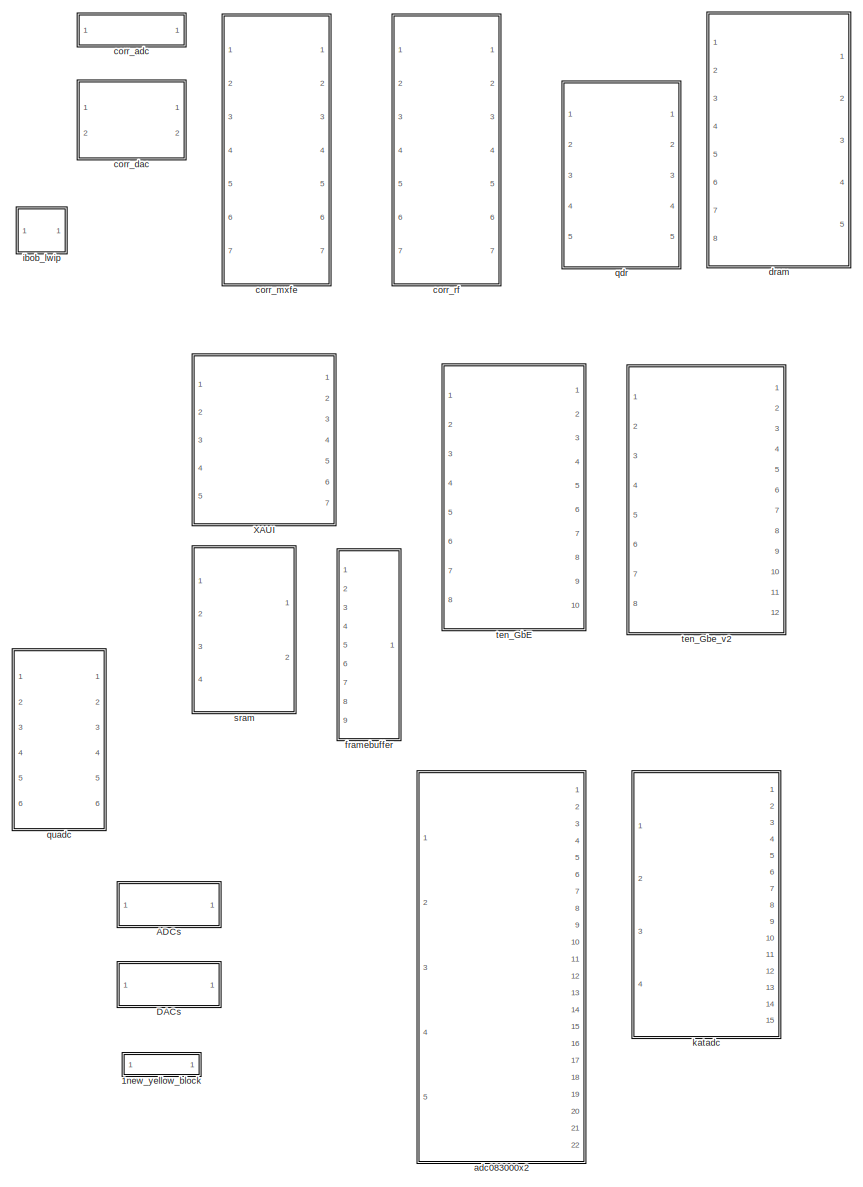
[diagram: root canvas - part 1/2, right side, full height]
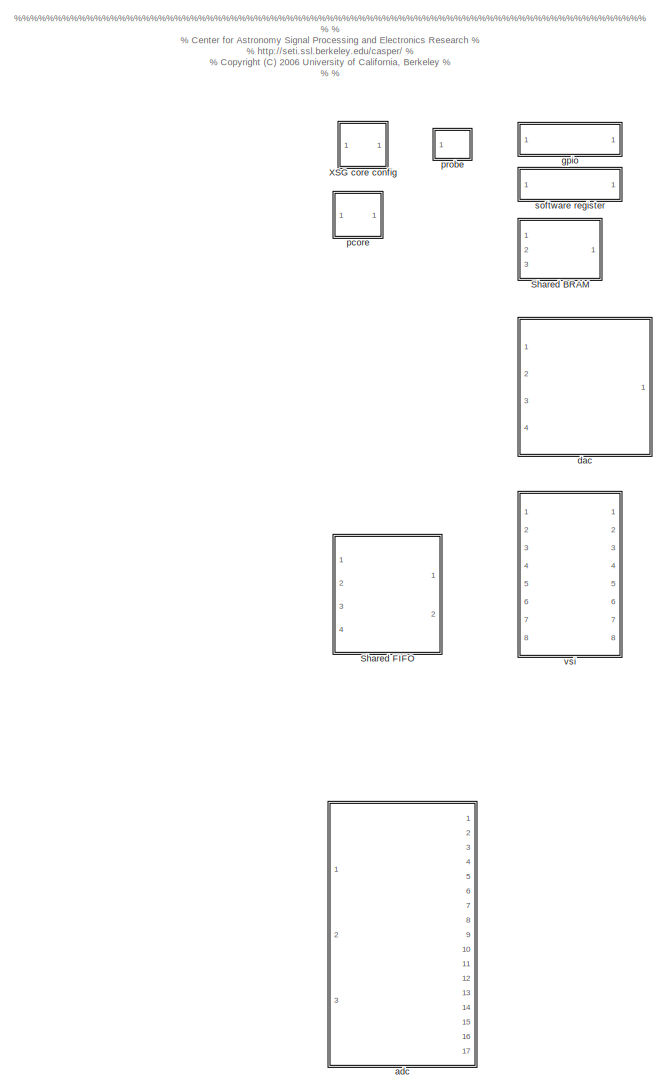
[diagram: root canvas - part 2/2, left side, full height]
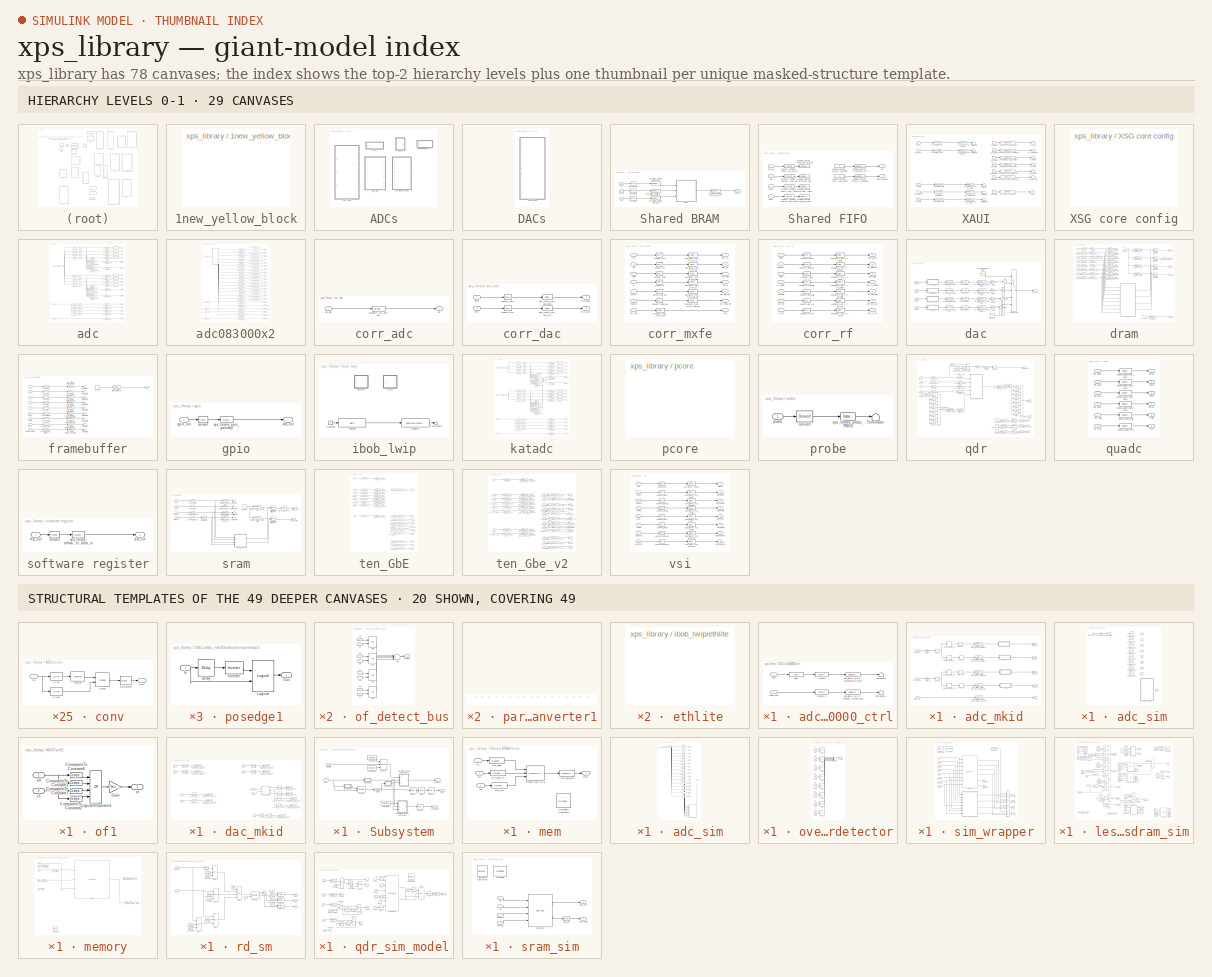
[diagram: thumbnail index - top-2 hierarchy levels (29 canvases) + 20 structural-template representatives of the remaining 49 canvases]
MODEL xps_library
KIND library
BLOCK [SubSystem] 1new_yellow_block
  FunctionWithSeparateData = off
  MinAlgLoopOccurrences = off
  Ports = []
  RTWSystemCode = Auto
  Tag = xps:block_name
BLOCK [SubSystem] ADCs
  FunctionWithSeparateData = off
  MinAlgLoopOccurrences = off
  Ports = []
  RTWSystemCode = Auto
BLOCK [SubSystem] ADCs/adc083000_ctrl
  FunctionWithSeparateData = off
  MaskIconFrame = on
  MaskIconOpaque = on
  MaskIconRotate = none
  MaskIconUnits = autoscale
  MaskInitialization = adc083000_ctrl_mask;
  MaskType = adc083000_ctrl
  MinAlgLoopOccurrences = off
  Ports = [2]
  RTWSystemCode = Auto
  Tag = xps:adc083000_ctrl
BLOCK [Reference] ADCs/adc083000_ctrl/Convert  REF=xbsIndex_r4/Convert
  Ports = [1, 1]
  SourceBlock = xbsIndex_r4/Convert
  SourceType = Xilinx Type Converter Block
  arith_type = Unsigned
  bin_pt = 0
  block_type = convert
  block_version = 11.4
  dbl_ovrd = off
  has_advanced_control = 0
  infoedit = Hardware notes: rounding and saturating require hardware resources; truncating and wrapping do not.
  latency = 2
  n_bits = 3
  overflow = Wrap
  pipeline = off
  quantization = Truncate
  sg_icon_stat = 55,20,1,1,white,blue,0,b1f514c1,right
  sg_mask_display = fprintf('','COMMENT: begin icon graphics');\npatch([0 45 45 0 ],[0 0 30 30 ],[0.77 0.82 0.91]);\npatch([15 10 17 10 15 23 25 27 35 28 22 17 23 17 22 28 35 27 25 23 15 ],[3 8 15 22 27 27 25 27 27 20 26 21 15 9 4 10 3 3 5 3 3 ],[0.98 0.96 0.92]);\nplot([0 45 45 0 0 ],[0 0 30 30 0 ]);\nfprintf('','COMMENT: end icon graphics');\nfprintf('','COMMENT: begin icon text');\ncolor('black');port_label('outpu...<+110ch>
  sggui_pos = 20,20,636,521
  xl_area = [0,0,0,0,0,0,0]
  xl_use_area = off
BLOCK [Reference] ADCs/adc083000_ctrl/Convert1  REF=xbsIndex_r4/Convert
  Ports = [1, 1]
  SourceBlock = xbsIndex_r4/Convert
  SourceType = Xilinx Type Converter Block
  arith_type = Unsigned
  bin_pt = 0
  block_type = convert
  block_version = 11.4
  dbl_ovrd = off
  has_advanced_control = 0
  infoedit = Hardware notes: rounding and saturating require hardware resources; truncating and wrapping do not.
  latency = 2
  n_bits = 32
  overflow = Wrap
  pipeline = off
  quantization = Truncate
  sg_icon_stat = 55,20,1,1,white,blue,0,b1f514c1,right
  sg_mask_display = fprintf('','COMMENT: begin icon graphics');\npatch([0 45 45 0 ],[0 0 30 30 ],[0.77 0.82 0.91]);\npatch([15 10 17 10 15 23 25 27 35 28 22 17 23 17 22 28 35 27 25 23 15 ],[3 8 15 22 27 27 25 27 27 20 26 21 15 9 4 10 3 3 5 3 3 ],[0.98 0.96 0.92]);\nplot([0 45 45 0 0 ],[0 0 30 30 0 ]);\nfprintf('','COMMENT: end icon graphics');\nfprintf('','COMMENT: begin icon text');\ncolor('black');port_label('outpu...<+110ch>
  sggui_pos = 0,0,636,521
  xl_area = [0,0,0,0,0,0,0]
  xl_use_area = off
BLOCK [Reference] ADCs/adc083000_ctrl/Slice  REF=xbsIndex_r4/Slice
  Ports = [1, 1]
  SourceBlock = xbsIndex_r4/Slice
  SourceType = Xilinx Bit Slice Extractor Block
  base0 = LSB of Input
  base1 = MSB of Input
  bit0 = 0
  bit1 = 0
  block_type = slice
  block_version = 11.4
  boolean_output = off
  dbl_ovrd = off
  has_advanced_control = 0
  infoedit = Extracts a given range of bits from each input sample and presents it at the output.  The output type is ordinarily unsigned with binary point at zero, but can be Boolean when the slice is one bit wide.<br><br>Hardware notes: In hardware this block costs nothing.
  mode = Lower Bit Location + Width
  nbits = 3
  sg_icon_stat = 60,20,1,1,white,blue,0,b1026674,right
  sg_mask_display = fprintf('','COMMENT: begin icon graphics');\npatch([0 60 60 0 ],[0 0 30 30 ],[0.77 0.82 0.91]);\npatch([22 17 24 17 22 30 32 34 42 35 29 24 30 24 29 35 42 34 32 30 22 ],[3 8 15 22 27 27 25 27 27 20 26 21 15 9 4 10 3 3 5 3 3 ],[0.98 0.96 0.92]);\nplot([0 60 60 0 0 ],[0 0 30 30 0 ]);\nfprintf('','COMMENT: end icon graphics');\nfprintf('','COMMENT: begin icon text');\ncolor('black');port_label('outpu...<+55ch>  <repeated x54 — deduplicated; at blocks: Slice, Slice1, lsbs, msbs, ibyte0, ibyte1, ibyte2, ibyte3, ipar0, ipar1, ipar2, ipar3, obyte0, obyte1, obyte2, obyte3, +4 more>
  sggui_pos = 20,20,631,621
BLOCK [Terminator] ADCs/adc083000_ctrl/Terminator
BLOCK [Terminator] ADCs/adc083000_ctrl/Terminator1
BLOCK [Inport] ADCs/adc083000_ctrl/conf
  IconDisplay = Port number
  OutDataType = fixdt(1, 16)
  OutScaling = 2^0
BLOCK [Inport] ADCs/adc083000_ctrl/sdata_bus
  IconDisplay = Port number
  OutDataType = fixdt(1, 16)
  OutScaling = 2^0
  Port = 2
BLOCK [Reference] ADCs/adc083000_ctrl/xps_library_ADCs_adc083000_ctrl_conf  REF=xbsIndex_r4/Gateway Out
  LOCs = {}
  Ports = [1, 1]
  SourceBlock = xbsIndex_r4/Gateway Out
  SourceType = Xilinx Gateway Out Block
  block_type = gatewayout
  block_version = 11.4
  has_advanced_control = 0
  hdl_port = on
  infoedit = Gateway out block.  Converts Xilinx fixed point inputs into ouputs of type Simulink integer, double, or fixed point.<br><br>Hardware notes:  In hardware these blocks become top level output ports or are discarded, depending on how they are configured.
  locs_specified = off
  sg_icon_stat = 60,20,1,1,white,yellow,0,38220381,right
  sg_mask_display = fprintf('','COMMENT: begin icon graphics');\npatch([0 60 60 0 ],[0 0 20 20 ],[0.95 0.93 0.65]);\npatch([24 21 26 21 24 29 30 31 37 33 29 26 31 26 29 33 37 31 30 29 24 ],[2 5 10 15 18 18 17 18 18 14 18 15 10 5 2 6 2 2 3 2 2 ],[0.98 0.96 0.92]);\nplot([0 60 60 0 0 ],[0 0 20 20 0 ]);\nfprintf('','COMMENT: end icon graphics');\nfprintf('','COMMENT: begin icon text');\ncolor('black');port_label('input'...<+132ch>  <repeated x13 — deduplicated; at blocks: xps_library_ADCs_adc083000_ctrl_conf, xps_library_ADCs_adc083000_ctrl_sdata_bus, xps_library_DACs_dac_mkid_dac_data_i0, xps_library_DACs_dac_mkid_dac_data_i1, xps_library_DACs_dac_mkid_dac_data_q0, xps_library_DACs_dac_mkid_dac_data_q1, xps_library_DACs_dac_mkid_dac_sync_i, xps_library_DACs_dac_mkid_dac_sync_q, xps_library_DACs_dac_mkid_not_reset, xps_library_DACs_dac_mkid_not_sdenb_i, xps_library_DACs_dac_mkid_not_sdenb_q, xps_library_DACs_dac_mkid_sclk, xps_library_DACs_dac_mkid_sdi>
  sggui_pos = -1,-1,-1,-1
  timing_constraint = None
  xl_area = [0,0,0,0,0,0,0]
  xl_use_area = off
BLOCK [Reference] ADCs/adc083000_ctrl/xps_library_ADCs_adc083000_ctrl_sdata_bus  REF=xbsIndex_r4/Gateway Out
  LOCs = {}
  Ports = [1, 1]
  SourceBlock = xbsIndex_r4/Gateway Out
  SourceType = Xilinx Gateway Out Block
  block_type = gatewayout
  block_version = 11.4
  has_advanced_control = 0
  hdl_port = on
  infoedit = Gateway out block.  Converts Xilinx fixed point inputs into ouputs of type Simulink integer, double, or fixed point.<br><br>Hardware notes:  In hardware these blocks become top level output ports or are discarded, depending on how they are configured.
  locs_specified = off
  sg_icon_stat = 60,20,1,1,white,yellow,0,38220381,right
  sggui_pos = -1,-1,-1,-1
  timing_constraint = None
  xl_area = [0,0,0,0,0,0,0]
  xl_use_area = off
BLOCK [SubSystem] ADCs/adc_mkid
  FunctionWithSeparateData = off
  MaskCallbackString = |
  MaskDescription = Interface block for the MKID 12-bits 550 MHz ADC board (2xADS54RF63).
  MaskEnableString = on,on
  MaskIconFrame = on
  MaskIconOpaque = on
  MaskIconRotate = none
  MaskIconUnits = autoscale
  MaskInitialization = adc_mkid_mask;
  MaskPromptString = ADC Board|ADC Clock Rate (MHz)
  MaskSelfModifiable = on
  MaskStyleString = popup(0|1),edit
  MaskTabNameString = ,
  MaskToolTipString = on,on
  MaskTunableValueString = off,off
  MaskType = MKID ADC Interface Block
  MaskValueString = 1|512
  MaskVarAliasString = ,
  MaskVariables = adc_brd=@1;adc_clk_rate=@2;
  MaskVisibilityString = on,on
  MinAlgLoopOccurrences = off
  Ports = [3, 5]
  RTWSystemCode = Auto
  Tag = xps:adc_mkid
BLOCK [S-Function] ADCs/adc_mkid/Downsample_i0
  FunctionName = sdspdsamp2
  MaskCallbackString = ||||
  MaskDescription = Downsample by an integer  factor.  Optional sample offset must be an integer value in range (0, K-1).
  MaskDisplay = plot(x,y);\ntext(.6,.4,s);
  MaskEnableString = on,on,on,on,on
  MaskHelp = eval('blocksethelp');
  MaskIconFrame = on
  MaskIconOpaque = on
  MaskIconRotate = none
  MaskIconUnits = autoscale
  MaskInitialization = [s,x,y] = dspblkdsamp2('icon',N, &1);
  MaskPromptString = Downsample factor, K:|Sample offset (0 to K-1):|Initial condition:|Sample-based mode:|Frame-based mode:
  MaskSelfModifiable = on
  MaskStyleString = edit,edit,edit,popup(Allow multirate|Force single rate),popup(Maintain input frame size|Maintain input frame rate)
  MaskTabNameString = ,,,,
  MaskToolTipString = on,on,on,on,on
  MaskTunableValueString = off,off,off,off,off
  MaskType = Downsample
  MaskValueString = 2|0|0|Allow multirate|Maintain input frame size
  MaskVarAliasString = ,,,,
  MaskVariables = N=@1;phase=@2;ic=@3;smode=@4;fmode=@5;
  MaskVisibilityString = on,on,on,on,on
  Parameters = N,phase,ic,smode,fmode
  Ports = [1, 1]
BLOCK [S-Function] ADCs/adc_mkid/Downsample_i1
  FunctionName = sdspdsamp2
  MaskCallbackString = ||||
  MaskDescription = Downsample by an integer  factor.  Optional sample offset must be an integer value in range (0, K-1).
  MaskDisplay = plot(x,y);\ntext(.6,.4,s);
  MaskEnableString = on,on,on,on,on
  MaskHelp = eval('blocksethelp');
  MaskIconFrame = on
  MaskIconOpaque = on
  MaskIconRotate = none
  MaskIconUnits = autoscale
  MaskInitialization = [s,x,y] = dspblkdsamp2('icon',N, &1);
  MaskPromptString = Downsample factor, K:|Sample offset (0 to K-1):|Initial condition:|Sample-based mode:|Frame-based mode:
  MaskSelfModifiable = on
  MaskStyleString = edit,edit,edit,popup(Allow multirate|Force single rate),popup(Maintain input frame size|Maintain input frame rate)
  MaskTabNameString = ,,,,
  MaskToolTipString = on,on,on,on,on
  MaskTunableValueString = off,off,off,off,off
  MaskType = Downsample
  MaskValueString = 2|1|0|Allow multirate|Maintain input frame size
  MaskVarAliasString = ,,,,
  MaskVariables = N=@1;phase=@2;ic=@3;smode=@4;fmode=@5;
  MaskVisibilityString = on,on,on,on,on
  Parameters = N,phase,ic,smode,fmode
  Ports = [1, 1]
BLOCK [S-Function] ADCs/adc_mkid/Downsample_q0
  FunctionName = sdspdsamp2
  MaskCallbackString = ||||
  MaskDescription = Downsample by an integer  factor.  Optional sample offset must be an integer value in range (0, K-1).
  MaskDisplay = plot(x,y);\ntext(.6,.4,s);
  MaskEnableString = on,on,on,on,on
  MaskHelp = eval('blocksethelp');
  MaskIconFrame = on
  MaskIconOpaque = on
  MaskIconRotate = none
  MaskIconUnits = autoscale
  MaskInitialization = [s,x,y] = dspblkdsamp2('icon',N, &1);
  MaskPromptString = Downsample factor, K:|Sample offset (0 to K-1):|Initial condition:|Sample-based mode:|Frame-based mode:
  MaskSelfModifiable = on
  MaskStyleString = edit,edit,edit,popup(Allow multirate|Force single rate),popup(Maintain input frame size|Maintain input frame rate)
  MaskTabNameString = ,,,,
  MaskToolTipString = on,on,on,on,on
  MaskTunableValueString = off,off,off,off,off
  MaskType = Downsample
  MaskValueString = 2|0|0|Allow multirate|Maintain input frame size
  MaskVarAliasString = ,,,,
  MaskVariables = N=@1;phase=@2;ic=@3;smode=@4;fmode=@5;
  MaskVisibilityString = on,on,on,on,on
  Parameters = N,phase,ic,smode,fmode
  Ports = [1, 1]
BLOCK [S-Function] ADCs/adc_mkid/Downsample_q1
  FunctionName = sdspdsamp2
  MaskCallbackString = ||||
  MaskDescription = Downsample by an integer  factor.  Optional sample offset must be an integer value in range (0, K-1).
  MaskDisplay = plot(x,y);\ntext(.6,.4,s);
  MaskEnableString = on,on,on,on,on
  MaskHelp = eval('blocksethelp');
  MaskIconFrame = on
  MaskIconOpaque = on
  MaskIconRotate = none
  MaskIconUnits = autoscale
  MaskInitialization = [s,x,y] = dspblkdsamp2('icon',N, &1);
  MaskPromptString = Downsample factor, K:|Sample offset (0 to K-1):|Initial condition:|Sample-based mode:|Frame-based mode:
  MaskSelfModifiable = on
  MaskStyleString = edit,edit,edit,popup(Allow multirate|Force single rate),popup(Maintain input frame size|Maintain input frame rate)
  MaskTabNameString = ,,,,
  MaskToolTipString = on,on,on,on,on
  MaskTunableValueString = off,off,off,off,off
  MaskType = Downsample
  MaskValueString = 2|1|0|Allow multirate|Maintain input frame size
  MaskVarAliasString = ,,,,
  MaskVariables = N=@1;phase=@2;ic=@3;smode=@4;fmode=@5;
  MaskVisibilityString = on,on,on,on,on
  Parameters = N,phase,ic,smode,fmode
  Ports = [1, 1]
BLOCK [Bias] ADCs/adc_mkid/bias_i
  Bias = 2047
BLOCK [Bias] ADCs/adc_mkid/bias_q
  Bias = 2047
BLOCK [SubSystem] ADCs/adc_mkid/conv
  FunctionWithSeparateData = off
  MaskDescription = Converts an (12-bit) unsigned number to 2's complement.\nThis block should eventually be able to handle arbitrary \nwidth inputs.
  MaskIconFrame = on
  MaskIconOpaque = on
  MaskIconRotate = none
  MaskIconUnits = autoscale
  MinAlgLoopOccurrences = off
  Ports = [1, 1]
  RTWSystemCode = Auto
BLOCK [Reference] ADCs/adc_mkid/conv/Concat  REF=xbsIndex_r4/Concat
  Ports = [2, 1]
  SourceBlock = xbsIndex_r4/Concat
  SourceType = Xilinx Bus Concatenator Block
  block_type = concat
  block_version = 8.2.02
  dbl_ovrd = off
  has_advanced_control = 0
  infoedit = Concatenates two or more inputs.  Output will be cast to an unsigned value with the binary point at zero.
  num_inputs = 2
  sg_icon_stat = 50,51,1,1,white,blue,0,df1e5aba,right
  sg_mask_display = fprintf('','COMMENT: begin icon graphics');\npatch([0 60 60 0 ],[0 0 60 60 ],[0.77 0.82 0.91]);\npatch([14 4 18 4 14 30 34 38 55 42 29 20 35 20 29 42 55 38 34 30 14 ],[6 16 30 44 54 54 50 54 54 41 54 45 30 15 6 19 6 6 10 6 6 ],[0.98 0.96 0.92]);\nplot([0 60 60 0 0 ],[0 0 60 60 0 ]);\nfprintf('','COMMENT: end icon graphics');\nfprintf('','COMMENT: begin icon text');\ncolor('black');port_label('inpu...<+96ch>  <repeated x23 — deduplicated; at blocks: Concat, Concat1, di_cat, di_cat1>
  sggui_pos = 20,20,336,162
BLOCK [Inport] ADCs/adc_mkid/conv/In1
  IconDisplay = Port number
  OutDataType = sfix(16)
  OutScaling = 2^0
BLOCK [Reference] ADCs/adc_mkid/conv/Inverter  REF=xbsIndex_r4/Inverter
  Ports = [1, 1]
  SourceBlock = xbsIndex_r4/Inverter
  SourceType = Xilinx Inverter Block
  block_type = inv
  block_version = 8.2.02
  dbl_ovrd = off
  en = off
  has_advanced_control = 0
  infoedit = Bitwise logical negation (one's complement) operator.
  latency = 0
  sg_icon_stat = 50,34,1,1,white,blue,0,1ab4a85f,right
  sg_mask_display = fprintf('','COMMENT: begin icon graphics');\npatch([0 55 55 0 ],[0 0 58 58 ],[0.77 0.82 0.91]);\npatch([13 4 17 4 13 28 32 36 52 40 28 19 32 19 28 40 52 36 32 28 13 ],[7 16 29 42 51 51 47 51 51 39 51 42 29 16 7 19 7 7 11 7 7 ],[0.98 0.96 0.92]);\nplot([0 55 55 0 0 ],[0 0 58 58 0 ]);\nfprintf('','COMMENT: end icon graphics');\nfprintf('','COMMENT: begin icon text');\ncolor('black');disp('not');\nfp...<+37ch>  <repeated x18 — deduplicated; at blocks: Inverter, Inverter3, Inverter4, Inverter2, Inverter1>
  sggui_pos = -1,-1,-1,-1
  xl_area = [0, 0, 0, 0, 0, 0, 0]
  xl_use_area = off
BLOCK [Outport] ADCs/adc_mkid/conv/Out1
  IconDisplay = Port number
  OutDataType = sfix(16)
  OutScaling = 2^0
BLOCK [Reference] ADCs/adc_mkid/conv/Reinterpret  REF=xbsIndex_r4/Reinterpret
  Ports = [1, 1]
  SourceBlock = xbsIndex_r4/Reinterpret
  SourceType = Xilinx Type Reinterpreter Block
  arith_type = Signed  (2's comp)
  bin_pt = 11
  block_type = reinterpret
  block_version = 8.2.02
  force_arith_type = on
  force_bin_pt = on
  has_advanced_control = 0
  infoedit = Changes signal type without altering the binary representation.   You can changed the signal between signed and unsigned, and relocate the binary point.<P><P>Hardware notes: In hardware this block costs nothing.<P><P>Example:  Suppose the input is 6 bits wide, signed, with 2 fractional bits, and the output is forced to unsigned with 0 fractional bits.  Then an input of -2.0 (1110.00 in binary 2's ...<+55ch>  <repeated x33 — deduplicated; at blocks: Reinterpret, force_data_in, force_rd_dout, Reinterpret_data_in, force_ack, force_cal_fail, force_data_out, force_phy_ready>
  sg_icon_stat = 40,32,1,1,white,blue,0,8982c1db,right
  sg_mask_display = fprintf('','COMMENT: begin icon graphics');\npatch([0 50 50 0 ],[0 0 32 32 ],[0.77 0.82 0.91]);\npatch([16 11 18 11 16 24 26 28 37 30 23 18 25 18 23 30 37 28 26 24 16 ],[3 8 15 22 27 27 25 27 27 20 27 22 15 8 3 10 3 3 5 3 3 ],[0.98 0.96 0.92]);\nplot([0 50 50 0 0 ],[0 0 32 32 0 ]);\nfprintf('','COMMENT: end icon graphics');\nfprintf('','COMMENT: begin icon text');\ncolor('black');disp('reinterpret...<+44ch>  <repeated x12 — deduplicated; at blocks: Reinterpret, force_data_in, force_rd_dout, Reinterpret_data_in, force_ack, force_cal_fail, force_data_out, force_phy_ready>
  sggui_pos = 20,20,356,312
BLOCK [Reference] ADCs/adc_mkid/conv/Slice  REF=xbsIndex_r4/Slice
  Ports = [1, 1]
  SourceBlock = xbsIndex_r4/Slice
  SourceType = Xilinx Bit Slice Extractor Block
  base0 = LSB of Input
  base1 = MSB of Input
  bit0 = 0
  bit1 = 0
  block_type = slice
  block_version = 8.2.02
  boolean_output = off
  dbl_ovrd = off
  has_advanced_control = 0
  infoedit = Extracts a given range of bits from each input sample and presents it at the output.  The output type is ordinarily unsigned with binary point at zero, but can be Boolean when the slice is one bit wide.<P><P>Hardware notes: In hardware this block costs nothing.  <repeated x68 — deduplicated; at blocks: Slice, Slice1, lsbs, msbs, ibyte0, ibyte1, ibyte2, ibyte3, ipar0, ipar1, ipar2, ipar3, obyte0, obyte1, obyte2, obyte3, +4 more>
  mode = Upper Bit Location + Width
  nbits = 1
  sg_icon_stat = 45,28,1,1,white,blue,0,b1026674,right
  sggui_pos = 20,20,460,407
BLOCK [Reference] ADCs/adc_mkid/conv/Slice1  REF=xbsIndex_r4/Slice
  Ports = [1, 1]
  SourceBlock = xbsIndex_r4/Slice
  SourceType = Xilinx Bit Slice Extractor Block
  base0 = LSB of Input
  base1 = MSB of Input
  bit0 = 0
  bit1 = 0
  block_type = slice
  block_version = 8.2.02
  boolean_output = off
  dbl_ovrd = off
  has_advanced_control = 0
  mode = Lower Bit Location + Width
  nbits = 11
  sg_icon_stat = 45,28,1,1,white,blue,0,b1026674,right
  sggui_pos = 20,20,460,407
BLOCK [SubSystem] ADCs/adc_mkid/conv1
  FunctionWithSeparateData = off
  MaskDescription = Converts an (12-bit) unsigned number to 2's complement.\nThis block should eventually be able to handle arbitrary \nwidth inputs.
  MaskIconFrame = on
  MaskIconOpaque = on
  MaskIconRotate = none
  MaskIconUnits = autoscale
  MinAlgLoopOccurrences = off
  Ports = [1, 1]
  RTWSystemCode = Auto
BLOCK [Reference] ADCs/adc_mkid/conv1/Concat  REF=xbsIndex_r4/Concat
  Ports = [2, 1]
  SourceBlock = xbsIndex_r4/Concat
  SourceType = Xilinx Bus Concatenator Block
  block_type = concat
  block_version = 8.2.02
  dbl_ovrd = off
  has_advanced_control = 0
  infoedit = Concatenates two or more inputs.  Output will be cast to an unsigned value with the binary point at zero.
  num_inputs = 2
  sg_icon_stat = 50,51,1,1,white,blue,0,df1e5aba,right
  sggui_pos = 20,20,336,162
BLOCK [Inport] ADCs/adc_mkid/conv1/In1
  IconDisplay = Port number
  OutDataType = sfix(16)
  OutScaling = 2^0
BLOCK [Reference] ADCs/adc_mkid/conv1/Inverter  REF=xbsIndex_r4/Inverter
  Ports = [1, 1]
  SourceBlock = xbsIndex_r4/Inverter
  SourceType = Xilinx Inverter Block
  block_type = inv
  block_version = 8.2.02
  dbl_ovrd = off
  en = off
  has_advanced_control = 0
  infoedit = Bitwise logical negation (one's complement) operator.
  latency = 0
  sg_icon_stat = 50,34,1,1,white,blue,0,1ab4a85f,right
  sggui_pos = -1,-1,-1,-1
  xl_area = [0, 0, 0, 0, 0, 0, 0]
  xl_use_area = off
BLOCK [Outport] ADCs/adc_mkid/conv1/Out1
  IconDisplay = Port number
  OutDataType = sfix(16)
  OutScaling = 2^0
BLOCK [Reference] ADCs/adc_mkid/conv1/Reinterpret  REF=xbsIndex_r4/Reinterpret
  Ports = [1, 1]
  SourceBlock = xbsIndex_r4/Reinterpret
  SourceType = Xilinx Type Reinterpreter Block
  arith_type = Signed  (2's comp)
  bin_pt = 11
  block_type = reinterpret
  block_version = 8.2.02
  force_arith_type = on
  force_bin_pt = on
  has_advanced_control = 0
  sg_icon_stat = 40,32,1,1,white,blue,0,8982c1db,right
  sggui_pos = 20,20,356,312
BLOCK [Reference] ADCs/adc_mkid/conv1/Slice  REF=xbsIndex_r4/Slice
  Ports = [1, 1]
  SourceBlock = xbsIndex_r4/Slice
  SourceType = Xilinx Bit Slice Extractor Block
  base0 = LSB of Input
  base1 = MSB of Input
  bit0 = 0
  bit1 = 0
  block_type = slice
  block_version = 8.2.02
  boolean_output = off
  dbl_ovrd = off
  has_advanced_control = 0
  mode = Upper Bit Location + Width
  nbits = 1
  sg_icon_stat = 45,28,1,1,white,blue,0,b1026674,right
  sggui_pos = 20,20,460,407
BLOCK [Reference] ADCs/adc_mkid/conv1/Slice1  REF=xbsIndex_r4/Slice
  Ports = [1, 1]
  SourceBlock = xbsIndex_r4/Slice
  SourceType = Xilinx Bit Slice Extractor Block
  base0 = LSB of Input
  base1 = MSB of Input
  bit0 = 0
  bit1 = 0
  block_type = slice
  block_version = 8.2.02
  boolean_output = off
  dbl_ovrd = off
  has_advanced_control = 0
  mode = Lower Bit Location + Width
  nbits = 11
  sg_icon_stat = 45,28,1,1,white,blue,0,b1026674,right
  sggui_pos = 20,20,460,407
BLOCK [SubSystem] ADCs/adc_mkid/conv2
  FunctionWithSeparateData = off
  MaskDescription = Converts an (12-bit) unsigned number to 2's complement.\nThis block should eventually be able to handle arbitrary \nwidth inputs.
  MaskIconFrame = on
  MaskIconOpaque = on
  MaskIconRotate = none
  MaskIconUnits = autoscale
  MinAlgLoopOccurrences = off
  Ports = [1, 1]
  RTWSystemCode = Auto
BLOCK [Reference] ADCs/adc_mkid/conv2/Concat  REF=xbsIndex_r4/Concat
  Ports = [2, 1]
  SourceBlock = xbsIndex_r4/Concat
  SourceType = Xilinx Bus Concatenator Block
  block_type = concat
  block_version = 8.2.02
  dbl_ovrd = off
  has_advanced_control = 0
  infoedit = Concatenates two or more inputs.  Output will be cast to an unsigned value with the binary point at zero.
  num_inputs = 2
  sg_icon_stat = 50,51,1,1,white,blue,0,df1e5aba,right
  sggui_pos = 20,20,336,162
BLOCK [Inport] ADCs/adc_mkid/conv2/In1
  IconDisplay = Port number
  OutDataType = sfix(16)
  OutScaling = 2^0
BLOCK [Reference] ADCs/adc_mkid/conv2/Inverter  REF=xbsIndex_r4/Inverter
  Ports = [1, 1]
  SourceBlock = xbsIndex_r4/Inverter
  SourceType = Xilinx Inverter Block
  block_type = inv
  block_version = 8.2.02
  dbl_ovrd = off
  en = off
  has_advanced_control = 0
  infoedit = Bitwise logical negation (one's complement) operator.
  latency = 0
  sg_icon_stat = 50,34,1,1,white,blue,0,1ab4a85f,right
  sggui_pos = -1,-1,-1,-1
  xl_area = [0, 0, 0, 0, 0, 0, 0]
  xl_use_area = off
BLOCK [Outport] ADCs/adc_mkid/conv2/Out1
  IconDisplay = Port number
  OutDataType = sfix(16)
  OutScaling = 2^0
BLOCK [Reference] ADCs/adc_mkid/conv2/Reinterpret  REF=xbsIndex_r4/Reinterpret
  Ports = [1, 1]
  SourceBlock = xbsIndex_r4/Reinterpret
  SourceType = Xilinx Type Reinterpreter Block
  arith_type = Signed  (2's comp)
  bin_pt = 11
  block_type = reinterpret
  block_version = 8.2.02
  force_arith_type = on
  force_bin_pt = on
  has_advanced_control = 0
  sg_icon_stat = 40,32,1,1,white,blue,0,8982c1db,right
  sggui_pos = 20,20,356,312
BLOCK [Reference] ADCs/adc_mkid/conv2/Slice  REF=xbsIndex_r4/Slice
  Ports = [1, 1]
  SourceBlock = xbsIndex_r4/Slice
  SourceType = Xilinx Bit Slice Extractor Block
  base0 = LSB of Input
  base1 = MSB of Input
  bit0 = 0
  bit1 = 0
  block_type = slice
  block_version = 8.2.02
  boolean_output = off
  dbl_ovrd = off
  has_advanced_control = 0
  mode = Upper Bit Location + Width
  nbits = 1
  sg_icon_stat = 45,28,1,1,white,blue,0,b1026674,right
  sggui_pos = 20,20,460,407
BLOCK [Reference] ADCs/adc_mkid/conv2/Slice1  REF=xbsIndex_r4/Slice
  Ports = [1, 1]
  SourceBlock = xbsIndex_r4/Slice
  SourceType = Xilinx Bit Slice Extractor Block
  base0 = LSB of Input
  base1 = MSB of Input
  bit0 = 0
  bit1 = 0
  block_type = slice
  block_version = 8.2.02
  boolean_output = off
  dbl_ovrd = off
  has_advanced_control = 0
  mode = Lower Bit Location + Width
  nbits = 11
  sg_icon_stat = 45,28,1,1,white,blue,0,b1026674,right
  sggui_pos = 20,20,460,407
BLOCK [SubSystem] ADCs/adc_mkid/conv3
  FunctionWithSeparateData = off
  MaskDescription = Converts an (12-bit) unsigned number to 2's complement.\nThis block should eventually be able to handle arbitrary \nwidth inputs.
  MaskIconFrame = on
  MaskIconOpaque = on
  MaskIconRotate = none
  MaskIconUnits = autoscale
  MinAlgLoopOccurrences = off
  Ports = [1, 1]
  RTWSystemCode = Auto
BLOCK [Reference] ADCs/adc_mkid/conv3/Concat  REF=xbsIndex_r4/Concat
  Ports = [2, 1]
  SourceBlock = xbsIndex_r4/Concat
  SourceType = Xilinx Bus Concatenator Block
  block_type = concat
  block_version = 8.2.02
  dbl_ovrd = off
  has_advanced_control = 0
  infoedit = Concatenates two or more inputs.  Output will be cast to an unsigned value with the binary point at zero.
  num_inputs = 2
  sg_icon_stat = 50,51,1,1,white,blue,0,df1e5aba,right
  sggui_pos = 20,20,336,162
BLOCK [Inport] ADCs/adc_mkid/conv3/In1
  IconDisplay = Port number
  OutDataType = sfix(16)
  OutScaling = 2^0
BLOCK [Reference] ADCs/adc_mkid/conv3/Inverter  REF=xbsIndex_r4/Inverter
  Ports = [1, 1]
  SourceBlock = xbsIndex_r4/Inverter
  SourceType = Xilinx Inverter Block
  block_type = inv
  block_version = 8.2.02
  dbl_ovrd = off
  en = off
  has_advanced_control = 0
  infoedit = Bitwise logical negation (one's complement) operator.
  latency = 0
  sg_icon_stat = 50,34,1,1,white,blue,0,1ab4a85f,right
  sggui_pos = -1,-1,-1,-1
  xl_area = [0, 0, 0, 0, 0, 0, 0]
  xl_use_area = off
BLOCK [Outport] ADCs/adc_mkid/conv3/Out1
  IconDisplay = Port number
  OutDataType = sfix(16)
  OutScaling = 2^0
BLOCK [Reference] ADCs/adc_mkid/conv3/Reinterpret  REF=xbsIndex_r4/Reinterpret
  Ports = [1, 1]
  SourceBlock = xbsIndex_r4/Reinterpret
  SourceType = Xilinx Type Reinterpreter Block
  arith_type = Signed  (2's comp)
  bin_pt = 11
  block_type = reinterpret
  block_version = 8.2.02
  force_arith_type = on
  force_bin_pt = on
  has_advanced_control = 0
  sg_icon_stat = 40,32,1,1,white,blue,0,8982c1db,right
  sggui_pos = 20,20,356,312
BLOCK [Reference] ADCs/adc_mkid/conv3/Slice  REF=xbsIndex_r4/Slice
  Ports = [1, 1]
  SourceBlock = xbsIndex_r4/Slice
  SourceType = Xilinx Bit Slice Extractor Block
  base0 = LSB of Input
  base1 = MSB of Input
  bit0 = 0
  bit1 = 0
  block_type = slice
  block_version = 8.2.02
  boolean_output = off
  dbl_ovrd = off
  has_advanced_control = 0
  mode = Upper Bit Location + Width
  nbits = 1
  sg_icon_stat = 45,28,1,1,white,blue,0,b1026674,right
  sggui_pos = 20,20,460,407
BLOCK [Reference] ADCs/adc_mkid/conv3/Slice1  REF=xbsIndex_r4/Slice
  Ports = [1, 1]
  SourceBlock = xbsIndex_r4/Slice
  SourceType = Xilinx Bit Slice Extractor Block
  base0 = LSB of Input
  base1 = MSB of Input
  bit0 = 0
  bit1 = 0
  block_type = slice
  block_version = 8.2.02
  boolean_output = off
  dbl_ovrd = off
  has_advanced_control = 0
  mode = Lower Bit Location + Width
  nbits = 11
  sg_icon_stat = 45,28,1,1,white,blue,0,b1026674,right
  sggui_pos = 20,20,460,407
BLOCK [Outport] ADCs/adc_mkid/data_i0
  IconDisplay = Port number
  OutDataType = sfix(16)
  OutScaling = 2^0
BLOCK [Outport] ADCs/adc_mkid/data_i1
  IconDisplay = Port number
  OutDataType = sfix(16)
  OutScaling = 2^0
  Port = 2
BLOCK [Outport] ADCs/adc_mkid/data_q0
  IconDisplay = Port number
  OutDataType = sfix(16)
  OutScaling = 2^0
  Port = 3
BLOCK [Outport] ADCs/adc_mkid/data_q1
  IconDisplay = Port number
  OutDataType = sfix(16)
  OutScaling = 2^0
  Port = 4
BLOCK [S-Function] ADCs/adc_mkid/delay_i0
  FunctionName = sfix_udelay
  MaskCallbackString = ||
  MaskCapabilities = slmaskedcaps(gcbh)
  MaskDescription = Delay a signal N sample periods.
  MaskDisplay = fprintf(' %d\\nZ   ',-1*(NumDelays))
  MaskEnableString = on,on,on
  MaskIconFrame = on
  MaskIconOpaque = on
  MaskIconRotate = none
  MaskIconUnits = normalized
  MaskInitialization = if isempty(NumDelays)\n   NumDelays = 1;\nend
  MaskPromptString = Initial condition:|Sample time:|Number of delays:
  MaskSelfModifiable = on
  MaskStyleString = edit,edit,edit
  MaskTabNameString = ,,
  MaskToolTipString = on,on,on
  MaskTunableValueString = on,off,off
  MaskType = Integer Delay
  MaskValueString = 0.0|-1|2
  MaskVarAliasString = ,,
  MaskVariables = vinit=@1;samptime=@2;NumDelays=@3;
  MaskVisibilityString = on,on,on
  Parameters = samptime,vinit,NumDelays,1,1,0
  Ports = [1, 1]
BLOCK [S-Function] ADCs/adc_mkid/delay_i1
  FunctionName = sfix_udelay
  MaskCallbackString = ||
  MaskCapabilities = slmaskedcaps(gcbh)
  MaskDescription = Delay a signal N sample periods.
  MaskDisplay = fprintf(' %d\\nZ   ',-1*(NumDelays))
  MaskEnableString = on,on,on
  MaskIconFrame = on
  MaskIconOpaque = on
  MaskIconRotate = none
  MaskIconUnits = normalized
  MaskInitialization = if isempty(NumDelays)\n   NumDelays = 1;\nend
  MaskPromptString = Initial condition:|Sample time:|Number of delays:
  MaskSelfModifiable = on
  MaskStyleString = edit,edit,edit
  MaskTabNameString = ,,
  MaskToolTipString = on,on,on
  MaskTunableValueString = on,off,off
  MaskType = Integer Delay
  MaskValueString = 0.0|-1|1
  MaskVarAliasString = ,,
  MaskVariables = vinit=@1;samptime=@2;NumDelays=@3;
  MaskVisibilityString = on,on,on
  Parameters = samptime,vinit,NumDelays,1,1,0
  Ports = [1, 1]
BLOCK [S-Function] ADCs/adc_mkid/delay_q0
  FunctionName = sfix_udelay
  MaskCallbackString = ||
  MaskCapabilities = slmaskedcaps(gcbh)
  MaskDescription = Delay a signal N sample periods.
  MaskDisplay = fprintf(' %d\\nZ   ',-1*(NumDelays))
  MaskEnableString = on,on,on
  MaskIconFrame = on
  MaskIconOpaque = on
  MaskIconRotate = none
  MaskIconUnits = normalized
  MaskInitialization = if isempty(NumDelays)\n   NumDelays = 1;\nend
  MaskPromptString = Initial condition:|Sample time:|Number of delays:
  MaskSelfModifiable = on
  MaskStyleString = edit,edit,edit
  MaskTabNameString = ,,
  MaskToolTipString = on,on,on
  MaskTunableValueString = on,off,off
  MaskType = Integer Delay
  MaskValueString = 0.0|-1|2
  MaskVarAliasString = ,,
  MaskVariables = vinit=@1;samptime=@2;NumDelays=@3;
  MaskVisibilityString = on,on,on
  Parameters = samptime,vinit,NumDelays,1,1,0
  Ports = [1, 1]
BLOCK [S-Function] ADCs/adc_mkid/delay_q1
  FunctionName = sfix_udelay
  MaskCallbackString = ||
  MaskCapabilities = slmaskedcaps(gcbh)
  MaskDescription = Delay a signal N sample periods.
  MaskDisplay = fprintf(' %d\\nZ   ',-1*(NumDelays))
  MaskEnableString = on,on,on
  MaskIconFrame = on
  MaskIconOpaque = on
  MaskIconRotate = none
  MaskIconUnits = normalized
  MaskInitialization = if isempty(NumDelays)\n   NumDelays = 1;\nend
  MaskPromptString = Initial condition:|Sample time:|Number of delays:
  MaskSelfModifiable = on
  MaskStyleString = edit,edit,edit
  MaskTabNameString = ,,
  MaskToolTipString = on,on,on
  MaskTunableValueString = on,off,off
  MaskType = Integer Delay
  MaskValueString = 0.0|-1|1
  MaskVarAliasString = ,,
  MaskVariables = vinit=@1;samptime=@2;NumDelays=@3;
  MaskVisibilityString = on,on,on
  Parameters = samptime,vinit,NumDelays,1,1,0
  Ports = [1, 1]
BLOCK [Gain] ADCs/adc_mkid/gain_i
  Gain = 2047
BLOCK [Gain] ADCs/adc_mkid/gain_q
  Gain = 2047
BLOCK [Inport] ADCs/adc_mkid/sim_data_i
  IconDisplay = Port number
  OutDataType = sfix(16)
  OutScaling = 2^0
BLOCK [Inport] ADCs/adc_mkid/sim_data_q
  IconDisplay = Port number
  OutDataType = sfix(16)
  OutScaling = 2^0
  Port = 2
BLOCK [Inport] ADCs/adc_mkid/sim_sync
  IconDisplay = Port number
  OutDataType = sfix(16)
  OutScaling = 2^0
  Port = 3
BLOCK [Outport] ADCs/adc_mkid/sync
  IconDisplay = Port number
  OutDataType = sfix(16)
  OutScaling = 2^0
  Port = 5
BLOCK [Reference] ADCs/adc_mkid/xps_library_ADCs_adc_mkid_user_data_i0  REF=xbsIndex_r4/Gateway In
  LOCs = {}
  Ports = [1, 1]
  SourceBlock = xbsIndex_r4/Gateway In
  SourceType = Xilinx Gateway In Block
  arith_type = Unsigned
  bin_pt = 0
  block_type = gatewayin
  block_version = 10.1.3
  dbl_ovrd = off
  has_advanced_control = 0
  infoedit = Gateway in block.  Converts inputs of type Simulink integer, double and fixed point to  Xilinx fixed point type.<P><P>Hardware notes:  In hardware these blocks become top level input ports.  <repeated x96 — deduplicated; at blocks: xps_library_ADCs_adc_mkid_user_data_i0, xps_library_ADCs_adc_mkid_user_data_i1, xps_library_ADCs_adc_mkid_user_data_q0, xps_library_ADCs_adc_mkid_user_data_q1, xps_library_ADCs_adc_mkid_user_sync, sim_addr, sim_data_in, sim_we, xps_library_Shared_BRAM_data_out, untitled_Shared_FIFO_user_full, untitled_Shared_FIFO_user_level_reached, r_xaui_test_XAUI_rx_almost_full, r_xaui_test_XAUI_rx_data, r_xaui_test_XAUI_rx_empty, r_xaui_test_XAUI_rx_linkdown, r_xaui_test_XAUI_rx_outofband, +78 more>
  locs_specified = off
  n_bits = 12
  overflow = Wrap
  period = 1
  quantization = Truncate
  sg_icon_stat = 55,22,1,1,white,yellow,0,bc55d28f,right
  sg_mask_display = fprintf('','COMMENT: begin icon graphics');\npatch([0 65 65 0 ],[0 0 20 20 ],[0.95 0.93 0.65]);\npatch([27 24 29 24 27 32 33 34 40 36 32 29 34 29 32 36 40 34 33 32 27 ],[2 5 10 15 18 18 17 18 18 14 18 15 10 5 2 6 2 2 3 2 2 ],[0.98 0.96 0.92]);\nplot([0 65 65 0 0 ],[0 0 20 20 0 ]);\nfprintf('','COMMENT: end icon graphics');\nfprintf('','COMMENT: begin icon text');\ncolor('black');port_label('input'...<+131ch>  <repeated x68 — deduplicated; at blocks: xps_library_ADCs_adc_mkid_user_data_i0, xps_library_ADCs_adc_mkid_user_data_i1, xps_library_ADCs_adc_mkid_user_data_q0, xps_library_ADCs_adc_mkid_user_data_q1, xps_library_ADCs_adc_mkid_user_sync, untitled_Shared_FIFO_user_full, untitled_Shared_FIFO_user_level_reached, r_xaui_test_XAUI_rx_almost_full, r_xaui_test_XAUI_rx_data, r_xaui_test_XAUI_rx_empty, r_xaui_test_XAUI_rx_linkdown, r_xaui_test_XAUI_rx_outofband, r_xaui_test_XAUI_rx_valid, r_xaui_test_XAUI_tx_full, xps_library_adc_user_data_valid, xps_library_adc_user_datai0, +52 more>
  sggui_pos = 20,20,348,408
  timing_constraint = None
  xl_area = [0, 0, 0, 0, 0, 0, 0]
  xl_use_area = off
BLOCK [Reference] ADCs/adc_mkid/xps_library_ADCs_adc_mkid_user_data_i1  REF=xbsIndex_r4/Gateway In
  LOCs = {}
  Ports = [1, 1]
  SourceBlock = xbsIndex_r4/Gateway In
  SourceType = Xilinx Gateway In Block
  arith_type = Unsigned
  bin_pt = 0
  block_type = gatewayin
  block_version = 10.1.3
  dbl_ovrd = off
  has_advanced_control = 0
  locs_specified = off
  n_bits = 12
  overflow = Wrap
  period = 1
  quantization = Truncate
  sg_icon_stat = 55,22,1,1,white,yellow,0,bc55d28f,right
  sggui_pos = 20,20,348,406
  timing_constraint = None
  xl_area = [0, 0, 0, 0, 0, 0, 0]
  xl_use_area = off
BLOCK [Reference] ADCs/adc_mkid/xps_library_ADCs_adc_mkid_user_data_q0  REF=xbsIndex_r4/Gateway In
  LOCs = {}
  Ports = [1, 1]
  SourceBlock = xbsIndex_r4/Gateway In
  SourceType = Xilinx Gateway In Block
  arith_type = Unsigned
  bin_pt = 0
  block_type = gatewayin
  block_version = 10.1.3
  dbl_ovrd = off
  has_advanced_control = 0
  locs_specified = off
  n_bits = 12
  overflow = Wrap
  period = 1
  quantization = Truncate
  sg_icon_stat = 55,22,1,1,white,yellow,0,bc55d28f,right
  sggui_pos = 20,20,348,406
  timing_constraint = None
  xl_area = [0, 0, 0, 0, 0, 0, 0]
  xl_use_area = off
BLOCK [Reference] ADCs/adc_mkid/xps_library_ADCs_adc_mkid_user_data_q1  REF=xbsIndex_r4/Gateway In
  LOCs = {}
  Ports = [1, 1]
  SourceBlock = xbsIndex_r4/Gateway In
  SourceType = Xilinx Gateway In Block
  arith_type = Unsigned
  bin_pt = 0
  block_type = gatewayin
  block_version = 10.1.3
  dbl_ovrd = off
  has_advanced_control = 0
  locs_specified = off
  n_bits = 12
  overflow = Wrap
  period = 1
  quantization = Truncate
  sg_icon_stat = 55,22,1,1,white,yellow,0,bc55d28f,right
  sggui_pos = 20,20,348,406
  timing_constraint = None
  xl_area = [0, 0, 0, 0, 0, 0, 0]
  xl_use_area = off
BLOCK [Reference] ADCs/adc_mkid/xps_library_ADCs_adc_mkid_user_sync  REF=xbsIndex_r4/Gateway In
  LOCs = {}
  Ports = [1, 1]
  SourceBlock = xbsIndex_r4/Gateway In
  SourceType = Xilinx Gateway In Block
  arith_type = Boolean
  bin_pt = 0
  block_type = gatewayin
  block_version = 10.1.3
  dbl_ovrd = off
  has_advanced_control = 0
  locs_specified = off
  n_bits = 1
  overflow = Wrap
  period = 1
  quantization = Truncate
  sg_icon_stat = 55,22,1,1,white,yellow,0,bc55d28f,right
  sggui_pos = 20,20,348,408
  timing_constraint = None
  xl_area = [0, 0, 0, 0, 0, 0, 0]
  xl_use_area = off
BLOCK [SubSystem] ADCs/adc_sim
  FunctionWithSeparateData = off
  MaskCallbackString = |
  MaskDescription = This block simulates the behavior of a demuxed ADC, which takes\nas input a waveform and returns digital samples in parallel at\na slower rate.  \n\nThis block is used to simulate the behavior
  MaskEnableString = on,on
  MaskIconFrame = on
  MaskIconOpaque = on
  MaskIconRotate = none
  MaskIconUnits = autoscale
  MaskInitialization = adc_sim_init(gcb, ...\n    'nStreams', nStreams, ...\n    'bit_width', bit_width);
  MaskPromptString = Number of Output Streams|Sample Bit Width
  MaskStyleString = edit,edit
  MaskTabNameString = ,
  MaskToolTipString = on,on
  MaskTunableValueString = on,on
  MaskType = adc_sim
  MaskValueString = 8|8
  MaskVarAliasString = ,
  MaskVariables = nStreams=@1;bit_width=@2;
  MaskVisibilityString = on,on
  MinAlgLoopOccurrences = off
  Ports = [1, 9]
  RTWSystemCode = Auto
BLOCK [Bias] ADCs/adc_sim/adc_bias
  Bias = 128
BLOCK [Gain] ADCs/adc_sim/adc_gain
  Gain = 128
  OutDataType = sfix(16)
  OutDataTypeMode = Inherit via internal rule
  OutScaling = 2^0
  ParameterDataType = sfix(16)
  ParameterDataTypeMode = Inherit via internal rule
  ParameterScaling = 2^0
  SaturateOnIntegerOverflow = off
BLOCK [Outport] ADCs/adc_sim/of
  IconDisplay = Port number
  OutDataType = sfix(16)
  OutScaling = 2^0
  Port = 9
BLOCK [SubSystem] ADCs/adc_sim/overflow_detector
  AncestorBlock = casper_library/Misc/of_detect_bus
  FunctionWithSeparateData = off
  MaskCallbackString = |
  MaskEnableString = on,on
  MaskIconFrame = on
  MaskIconOpaque = on
  MaskIconRotate = none
  MaskIconUnits = autoscale
  MaskInitialization = adc_overflow_detector_init(gcb, ...\n    'nStreams', nStreams, ...\n    'bit_width', bit_width);
  MaskPromptString = Number of Streams|Bit Width
  MaskStyleString = edit,edit
  MaskTabNameString = ,
  MaskToolTipString = on,on
  MaskTunableValueString = on,on
  MaskType = of_detect_bus
  MaskValueString = 8|8
  MaskVarAliasString = ,
  MaskVariables = nStreams=@1;bit_width=@2;
  MaskVisibilityString = on,on
  MinAlgLoopOccurrences = off
  Ports = [8, 1]
  RTWSystemCode = Auto
BLOCK [Sum] ADCs/adc_sim/overflow_detector/Add
  CollapseMode = All dimensions
  InputSameDT = off
  Inputs = ++++
  OutDataType = fixdt(1, 16)
  OutDataTypeMode = Inherit via internal rule
  OutScaling = 2^-10
  Ports = [4, 1]
  SaturateOnIntegerOverflow = off
BLOCK [Reference] ADCs/adc_sim/overflow_detector/of0  REF=casper_library/Misc/of1  (lib defined in mdl_138b2fc3435f, mdl_4ed325b712b3, +2 more)
  FunctionWithSeparateData = off
  Ports = [2, 1]
  RTWMemSecDataConstants = Inherit from model
  RTWMemSecDataInternal = Inherit from model
  RTWMemSecDataParameters = Inherit from model
  RTWMemSecFuncExecute = Inherit from model
  RTWMemSecFuncInitTerm = Inherit from model
  ShowPortLabels = FromPortIcon
  SourceBlock = casper_library/Misc/of1
  SourceType = of
  SystemSampleTime = -1
  bit_num = 0
  n_adc_bits = 8
BLOCK [Reference] ADCs/adc_sim/overflow_detector/of1  REF=casper_library/Misc/of1  (lib defined in mdl_138b2fc3435f, mdl_4ed325b712b3, +2 more)
  FunctionWithSeparateData = off
  Ports = [2, 1]
  RTWMemSecDataConstants = Inherit from model
  RTWMemSecDataInternal = Inherit from model
  RTWMemSecDataParameters = Inherit from model
  RTWMemSecFuncExecute = Inherit from model
  RTWMemSecFuncInitTerm = Inherit from model
  ShowPortLabels = FromPortIcon
  SourceBlock = casper_library/Misc/of1
  SourceType = of
  SystemSampleTime = -1
  bit_num = 0
  n_adc_bits = 8
BLOCK [Reference] ADCs/adc_sim/overflow_detector/of2  REF=casper_library/Misc/of1  (lib defined in mdl_138b2fc3435f, mdl_4ed325b712b3, +2 more)
  FunctionWithSeparateData = off
  Ports = [2, 1]
  RTWMemSecDataConstants = Inherit from model
  RTWMemSecDataInternal = Inherit from model
  RTWMemSecDataParameters = Inherit from model
  RTWMemSecFuncExecute = Inherit from model
  RTWMemSecFuncInitTerm = Inherit from model
  ShowPortLabels = FromPortIcon
  SourceBlock = casper_library/Misc/of1
  SourceType = of
  SystemSampleTime = -1
  bit_num = 0
  n_adc_bits = 8
BLOCK [Reference] ADCs/adc_sim/overflow_detector/of3  REF=casper_library/Misc/of1  (lib defined in mdl_138b2fc3435f, mdl_4ed325b712b3, +2 more)
  FunctionWithSeparateData = off
  Ports = [2, 1]
  RTWMemSecDataConstants = Inherit from model
  RTWMemSecDataInternal = Inherit from model
  RTWMemSecDataParameters = Inherit from model
  RTWMemSecFuncExecute = Inherit from model
  RTWMemSecFuncInitTerm = Inherit from model
  ShowPortLabels = FromPortIcon
  SourceBlock = casper_library/Misc/of1
  SourceType = of
  SystemSampleTime = -1
  bit_num = 0
  n_adc_bits = 8
BLOCK [Outport] ADCs/adc_sim/overflow_detector/overflow
  IconDisplay = Port number
  OutDataType = fixdt(1, 16)
  OutScaling = 2^0
BLOCK [Inport] ADCs/adc_sim/overflow_detector/s0
  IconDisplay = Port number
  OutDataType = fixdt(1, 16)
  OutScaling = 2^0
BLOCK [Inport] ADCs/adc_sim/overflow_detector/s1
  IconDisplay = Port number
  OutDataType = fixdt(1, 16)
  OutScaling = 2^0
  Port = 2
BLOCK [Inport] ADCs/adc_sim/overflow_detector/s2
  IconDisplay = Port number
  OutDataType = fixdt(1, 16)
  OutScaling = 2^0
  Port = 3
BLOCK [Inport] ADCs/adc_sim/overflow_detector/s3
  IconDisplay = Port number
  OutDataType = fixdt(1, 16)
  OutScaling = 2^0
  Port = 4
BLOCK [Inport] ADCs/adc_sim/overflow_detector/s4
  IconDisplay = Port number
  OutDataType = fixdt(1, 16)
  OutScaling = 2^0
  Port = 5
BLOCK [Inport] ADCs/adc_sim/overflow_detector/s5
  IconDisplay = Port number
  OutDataType = fixdt(1, 16)
  OutScaling = 2^0
  Port = 6
BLOCK [Inport] ADCs/adc_sim/overflow_detector/s6
  IconDisplay = Port number
  OutDataType = fixdt(1, 16)
  OutScaling = 2^0
  Port = 7
BLOCK [Inport] ADCs/adc_sim/overflow_detector/s7
  IconDisplay = Port number
  OutDataType = fixdt(1, 16)
  OutScaling = 2^0
  Port = 8
BLOCK [Outport] ADCs/adc_sim/s0
  IconDisplay = Port number
  OutDataType = sfix(16)
  OutScaling = 2^0
BLOCK [Outport] ADCs/adc_sim/s1
  IconDisplay = Port number
  OutDataType = sfix(16)
  OutScaling = 2^0
  Port = 2
BLOCK [Outport] ADCs/adc_sim/s2
  IconDisplay = Port number
  OutDataType = sfix(16)
  OutScaling = 2^0
  Port = 3
BLOCK [Outport] ADCs/adc_sim/s3
  IconDisplay = Port number
  OutDataType = sfix(16)
  OutScaling = 2^0
  Port = 4
BLOCK [Outport] ADCs/adc_sim/s4
  IconDisplay = Port number
  OutDataType = sfix(16)
  OutScaling = 2^0
  Port = 5
BLOCK [Outport] ADCs/adc_sim/s5
  IconDisplay = Port number
  OutDataType = sfix(16)
  OutScaling = 2^0
  Port = 6
BLOCK [Outport] ADCs/adc_sim/s6
  IconDisplay = Port number
  OutDataType = sfix(16)
  OutScaling = 2^0
  Port = 7
BLOCK [Outport] ADCs/adc_sim/s7
  IconDisplay = Port number
  OutDataType = sfix(16)
  OutScaling = 2^0
  Port = 8
BLOCK [Reference] ADCs/adc_sim/sample0_ds  REF=dspsigops/Downsample
  N = 8
  Ports = [1, 1]
  SourceBlock = dspsigops/Downsample
  SourceType = Downsample
  fmode = Maintain input frame size
  ic = 0
  phase = 1
  smode = Allow multirate
BLOCK [Reference] ADCs/adc_sim/sample1_ds  REF=dspsigops/Downsample
  N = 8
  Ports = [1, 1]
  SourceBlock = dspsigops/Downsample
  SourceType = Downsample
  fmode = Maintain input frame size
  ic = 0
  phase = 2
  smode = Allow multirate
BLOCK [Reference] ADCs/adc_sim/sample2_ds  REF=dspsigops/Downsample
  N = 8
  Ports = [1, 1]
  SourceBlock = dspsigops/Downsample
  SourceType = Downsample
  fmode = Maintain input frame size
  ic = 0
  phase = 3
  smode = Allow multirate
BLOCK [Reference] ADCs/adc_sim/sample3_ds  REF=dspsigops/Downsample
  N = 8
  Ports = [1, 1]
  SourceBlock = dspsigops/Downsample
  SourceType = Downsample
  fmode = Maintain input frame size
  ic = 0
  phase = 4
  smode = Allow multirate
BLOCK [Reference] ADCs/adc_sim/sample4_ds  REF=dspsigops/Downsample
  N = 8
  Ports = [1, 1]
  SourceBlock = dspsigops/Downsample
  SourceType = Downsample
  fmode = Maintain input frame size
  ic = 0
  phase = 5
  smode = Allow multirate
BLOCK [Reference] ADCs/adc_sim/sample5_ds  REF=dspsigops/Downsample
  N = 8
  Ports = [1, 1]
  SourceBlock = dspsigops/Downsample
  SourceType = Downsample
  fmode = Maintain input frame size
  ic = 0
  phase = 6
  smode = Allow multirate
BLOCK [Reference] ADCs/adc_sim/sample6_ds  REF=dspsigops/Downsample
  N = 8
  Ports = [1, 1]
  SourceBlock = dspsigops/Downsample
  SourceType = Downsample
  fmode = Maintain input frame size
  ic = 0
  phase = 7
  smode = Allow multirate
BLOCK [Reference] ADCs/adc_sim/sample7_ds  REF=dspsigops/Downsample
  N = 8
  Ports = [1, 1]
  SourceBlock = dspsigops/Downsample
  SourceType = Downsample
  fmode = Maintain input frame size
  ic = 0
  phase = 0
  smode = Allow multirate
BLOCK [Inport] ADCs/adc_sim/sim_adc_data_in
  IconDisplay = Port number
  OutDataType = sfix(16)
  OutScaling = 2^0
BLOCK [SubSystem] ADCs/conv
  FunctionWithSeparateData = off
  MaskDescription = Converts an (8-bit) unsigned number to 2's complement.\nThis block should eventually be able to handle arbitrary \nwidth inputs.
  MaskEnableString = on
  MaskIconFrame = on
  MaskIconOpaque = on
  MaskIconRotate = none
  MaskIconUnits = autoscale
  MaskInitialization = % set_param([gcb, '/Slice1'], 'nbits', num2str(bit_width-1));\n% set_param([gcb, '/Reinterpret'], 'bin_pt', num2str(bit_width-1));\n
  MaskPromptString = Bit Width
  MaskStyleString = edit
  MaskToolTipString = on
  MaskTunableValueString = on
  MaskValueString = 8
  MaskVariables = bit_width=@1;
  MaskVisibilityString = on
  MinAlgLoopOccurrences = off
  Ports = [1, 1]
  RTWSystemCode = Auto
BLOCK [Reference] ADCs/conv/Concat  REF=xbsIndex_r4/Concat
  Ports = [2, 1]
  SourceBlock = xbsIndex_r4/Concat
  SourceType = Xilinx Bus Concatenator Block
  block_type = concat
  block_version = 8.2.02
  dbl_ovrd = off
  has_advanced_control = 0
  infoedit = Concatenates two or more inputs.  Output will be cast to an unsigned value with the binary point at zero.
  num_inputs = 2
  sg_icon_stat = 50,51,2,1,white,blue,0,df1e5aba,right
  sggui_pos = -1,-1,-1,-1
BLOCK [Inport] ADCs/conv/In1
  IconDisplay = Port number
  OutDataType = sfix(16)
  OutScaling = 2^0
BLOCK [Reference] ADCs/conv/Inverter  REF=xbsIndex_r4/Inverter
  Ports = [1, 1]
  SourceBlock = xbsIndex_r4/Inverter
  SourceType = Xilinx Inverter Block
  block_type = inv
  block_version = 8.2.02
  dbl_ovrd = off
  en = off
  has_advanced_control = 0
  infoedit = Bitwise logical negation (one's complement) operator.
  latency = 0
  sg_icon_stat = 50,34,1,1,white,blue,0,1ab4a85f,right
  sggui_pos = -1,-1,-1,-1
  xl_area = [0, 0, 0, 0, 0, 0, 0]
  xl_use_area = off
BLOCK [Outport] ADCs/conv/Out1
  IconDisplay = Port number
  OutDataType = sfix(16)
  OutScaling = 2^0
BLOCK [Reference] ADCs/conv/Reinterpret  REF=xbsIndex_r4/Reinterpret
  Ports = [1, 1]
  SourceBlock = xbsIndex_r4/Reinterpret
  SourceType = Xilinx Type Reinterpreter Block
  arith_type = Signed  (2's comp)
  bin_pt = bit_width-1
  block_type = reinterpret
  block_version = 8.2.02
  force_arith_type = on
  force_bin_pt = on
  has_advanced_control = 0
  infoedit = Changes signal type without altering the binary representation.   You can changed the signal between signed and unsigned, and relocate the binary point.<br><br>Hardware notes: In hardware this block costs nothing.<br><br>Example:  Suppose the input is 6 bits wide, signed, with 2 fractional bits, and the output is forced to unsigned with 0 fractional bits.  Then an input of -2.0 (1110.00 in binary ...<+59ch>
  sg_icon_stat = 40,32,1,1,white,blue,0,8982c1db,right
  sggui_pos = 15,25,372,364
BLOCK [Reference] ADCs/conv/Slice  REF=xbsIndex_r4/Slice
  Ports = [1, 1]
  SourceBlock = xbsIndex_r4/Slice
  SourceType = Xilinx Bit Slice Extractor Block
  base0 = LSB of Input
  base1 = MSB of Input
  bit0 = 0
  bit1 = 0
  block_type = slice
  block_version = 8.2.02
  boolean_output = off
  dbl_ovrd = off
  has_advanced_control = 0
  mode = Upper Bit Location + Width
  nbits = 1
  sg_icon_stat = 45,28,1,1,white,blue,0,b1026674,right
  sggui_pos = 20,20,442,407
BLOCK [Reference] ADCs/conv/Slice1  REF=xbsIndex_r4/Slice
  Ports = [1, 1]
  SourceBlock = xbsIndex_r4/Slice
  SourceType = Xilinx Bit Slice Extractor Block
  base0 = LSB of Input
  base1 = MSB of Input
  bit0 = 0
  bit1 = 0
  block_type = slice
  block_version = 8.2.02
  boolean_output = off
  dbl_ovrd = off
  has_advanced_control = 0
  infoedit = Extracts a given range of bits from each input sample and presents it at the output.  The output type is ordinarily unsigned with binary point at zero, but can be Boolean when the slice is one bit wide.<br><br>Hardware notes: In hardware this block costs nothing.
  mode = Lower Bit Location + Width
  nbits = bit_width-1
  sg_icon_stat = 45,28,1,1,white,blue,0,b1026674,right
  sggui_pos = 0,0,537,482
BLOCK [SubSystem] ADCs/of1
  FunctionWithSeparateData = off
  MaskCallbackString = |
  MaskDescription = 1-cycle overflow detector for an n-bit ADC outputs (simulation only)
  MaskEnableString = on,on
  MaskIconFrame = on
  MaskIconOpaque = on
  MaskIconRotate = none
  MaskIconUnits = autoscale
  MaskPromptString = Bit index of overflow detection bus:|Number of bits in ADC
  MaskStyleString = edit,edit
  MaskTabNameString = ,
  MaskToolTipString = on,on
  MaskTunableValueString = on,on
  MaskType = of
  MaskValueString = 0|8
  MaskVarAliasString = ,
  MaskVariables = bit_num=@1;n_adc_bits=@2;
  MaskVisibilityString = on,on
  MinAlgLoopOccurrences = off
  Ports = [2, 1]
  RTWSystemCode = Auto
BLOCK [Reference] ADCs/of1/Compare\nTo Constant1  REF=simulink/Logic and Bit\nOperations/Compare\nTo Constant
  FunctionWithSeparateData = off
  LogicOutDataTypeMode = boolean
  Ports = [1, 1]
  RTWMemSecDataConstants = Inherit from model
  RTWMemSecDataInternal = Inherit from model
  RTWMemSecDataParameters = Inherit from model
  RTWMemSecFuncExecute = Inherit from model
  RTWMemSecFuncInitTerm = Inherit from model
  SID = 47
  ShowPortLabels = FromPortIcon
  SourceBlock = simulink/Logic and Bit\nOperations/Compare\nTo Constant
  SourceType = Compare To Constant
  SystemSampleTime = -1
  ZeroCross = off
  const = 2^n_adc_bits-1
  relop = >
BLOCK [Reference] ADCs/of1/Compare\nTo Constant2  REF=simulink/Logic and Bit\nOperations/Compare\nTo Constant
  FunctionWithSeparateData = off
  LogicOutDataTypeMode = boolean
  Ports = [1, 1]
  RTWMemSecDataConstants = Inherit from model
  RTWMemSecDataInternal = Inherit from model
  RTWMemSecDataParameters = Inherit from model
  RTWMemSecFuncExecute = Inherit from model
  RTWMemSecFuncInitTerm = Inherit from model
  SID = 48
  ShowPortLabels = FromPortIcon
  SourceBlock = simulink/Logic and Bit\nOperations/Compare\nTo Constant
  SourceType = Compare To Constant
  SystemSampleTime = -1
  ZeroCross = off
  const = 2^n_adc_bits-1
  relop = >
BLOCK [Reference] ADCs/of1/Compare\nTo Constant6  REF=simulink/Logic and Bit\nOperations/Compare\nTo Constant
  FunctionWithSeparateData = off
  LogicOutDataTypeMode = boolean
  Ports = [1, 1]
  RTWMemSecDataConstants = Inherit from model
  RTWMemSecDataInternal = Inherit from model
  RTWMemSecDataParameters = Inherit from model
  RTWMemSecFuncExecute = Inherit from model
  RTWMemSecFuncInitTerm = Inherit from model
  SID = 49
  ShowPortLabels = FromPortIcon
  SourceBlock = simulink/Logic and Bit\nOperations/Compare\nTo Constant
  SourceType = Compare To Constant
  SystemSampleTime = -1
  ZeroCross = off
  const = 0
  relop = <
BLOCK [Reference] ADCs/of1/Compare\nTo Constant7  REF=simulink/Logic and Bit\nOperations/Compare\nTo Constant
  FunctionWithSeparateData = off
  LogicOutDataTypeMode = boolean
  Ports = [1, 1]
  RTWMemSecDataConstants = Inherit from model
  RTWMemSecDataInternal = Inherit from model
  RTWMemSecDataParameters = Inherit from model
  RTWMemSecFuncExecute = Inherit from model
  RTWMemSecFuncInitTerm = Inherit from model
  SID = 50
  ShowPortLabels = FromPortIcon
  SourceBlock = simulink/Logic and Bit\nOperations/Compare\nTo Constant
  SourceType = Compare To Constant
  SystemSampleTime = -1
  ZeroCross = off
  const = 0
  relop = <
BLOCK [Gain] ADCs/of1/Gain
  Gain = 2^(bit_num)
  OutDataType = sfix(16)
  OutDataTypeMode = Inherit via internal rule
  OutScaling = 2^0
  ParameterDataType = sfix(16)
  ParameterDataTypeMode = Inherit via internal rule
  ParameterScaling = 2^0
  SaturateOnIntegerOverflow = off
BLOCK [Logic] ADCs/of1/Logical\nOperator1
  AllPortsSameDT = off
  Inputs = 4
  Operator = OR
  OutDataTypeMode = boolean
  Ports = [4, 1]
BLOCK [Outport] ADCs/of1/of
  IconDisplay = Port number
BLOCK [Inport] ADCs/of1/s0
  IconDisplay = Port number
BLOCK [Inport] ADCs/of1/s1
  IconDisplay = Port number
  Port = 2
BLOCK [SubSystem] ADCs/of_detect_bus
  FunctionWithSeparateData = off
  MaskCallbackString = |
  MaskEnableString = on,on
  MaskIconFrame = on
  MaskIconOpaque = on
  MaskIconRotate = none
  MaskIconUnits = autoscale
  MaskInitialization = of_detect_bus_init(gcb, ...\n    'nStreams', nStreams, ...\n    'bit_width', bit_width);
  MaskPromptString = Number of Streams|Bit Width
  MaskStyleString = edit,edit
  MaskTabNameString = ,
  MaskToolTipString = on,on
  MaskTunableValueString = on,on
  MaskType = of_detect_bus
  MaskValueString = 8|8
  MaskVarAliasString = ,
  MaskVariables = nStreams=@1;bit_width=@2;
  MaskVisibilityString = on,on
  MinAlgLoopOccurrences = off
  Ports = [8, 1]
  RTWSystemCode = Auto
BLOCK [Sum] ADCs/of_detect_bus/Add
  CollapseMode = All dimensions
  InputSameDT = off
  Inputs = ++++
  OutDataType = fixdt(1, 16)
  OutDataTypeMode = Inherit via internal rule
  OutScaling = 2^-10
  Ports = [4, 1]
  SaturateOnIntegerOverflow = off
BLOCK [Reference] ADCs/of_detect_bus/of0  REF=casper_library/Misc/of1  (lib defined in mdl_138b2fc3435f, mdl_4ed325b712b3, +2 more)
  FunctionWithSeparateData = off
  Ports = [2, 1]
  RTWMemSecDataConstants = Inherit from model
  RTWMemSecDataInternal = Inherit from model
  RTWMemSecDataParameters = Inherit from model
  RTWMemSecFuncExecute = Inherit from model
  RTWMemSecFuncInitTerm = Inherit from model
  SID = 64
  ShowPortLabels = FromPortIcon
  SourceBlock = casper_library/Misc/of1
  SourceType = of
  SystemSampleTime = -1
  bit_num = 0
  n_adc_bits = 8
BLOCK [Reference] ADCs/of_detect_bus/of1  REF=casper_library/Misc/of1  (lib defined in mdl_138b2fc3435f, mdl_4ed325b712b3, +2 more)
  FunctionWithSeparateData = off
  Ports = [2, 1]
  RTWMemSecDataConstants = Inherit from model
  RTWMemSecDataInternal = Inherit from model
  RTWMemSecDataParameters = Inherit from model
  RTWMemSecFuncExecute = Inherit from model
  RTWMemSecFuncInitTerm = Inherit from model
  SID = 65
  ShowPortLabels = FromPortIcon
  SourceBlock = casper_library/Misc/of1
  SourceType = of
  SystemSampleTime = -1
  bit_num = 0
  n_adc_bits = 8
BLOCK [Reference] ADCs/of_detect_bus/of2  REF=casper_library/Misc/of1  (lib defined in mdl_138b2fc3435f, mdl_4ed325b712b3, +2 more)
  FunctionWithSeparateData = off
  Ports = [2, 1]
  RTWMemSecDataConstants = Inherit from model
  RTWMemSecDataInternal = Inherit from model
  RTWMemSecDataParameters = Inherit from model
  RTWMemSecFuncExecute = Inherit from model
  RTWMemSecFuncInitTerm = Inherit from model
  SID = 66
  ShowPortLabels = FromPortIcon
  SourceBlock = casper_library/Misc/of1
  SourceType = of
  SystemSampleTime = -1
  bit_num = 0
  n_adc_bits = 8
BLOCK [Reference] ADCs/of_detect_bus/of3  REF=casper_library/Misc/of1  (lib defined in mdl_138b2fc3435f, mdl_4ed325b712b3, +2 more)
  FunctionWithSeparateData = off
  Ports = [2, 1]
  RTWMemSecDataConstants = Inherit from model
  RTWMemSecDataInternal = Inherit from model
  RTWMemSecDataParameters = Inherit from model
  RTWMemSecFuncExecute = Inherit from model
  RTWMemSecFuncInitTerm = Inherit from model
  SID = 67
  ShowPortLabels = FromPortIcon
  SourceBlock = casper_library/Misc/of1
  SourceType = of
  SystemSampleTime = -1
  bit_num = 0
  n_adc_bits = 8
BLOCK [Outport] ADCs/of_detect_bus/overflow
  IconDisplay = Port number
  OutDataType = fixdt(1, 16)
  OutScaling = 2^0
BLOCK [Inport] ADCs/of_detect_bus/s0
  IconDisplay = Port number
  OutDataType = fixdt(1, 16)
  OutScaling = 2^0
BLOCK [Inport] ADCs/of_detect_bus/s1
  IconDisplay = Port number
  OutDataType = fixdt(1, 16)
  OutScaling = 2^0
  Port = 2
BLOCK [Inport] ADCs/of_detect_bus/s2
  IconDisplay = Port number
  OutDataType = fixdt(1, 16)
  OutScaling = 2^0
  Port = 3
BLOCK [Inport] ADCs/of_detect_bus/s3
  IconDisplay = Port number
  OutDataType = fixdt(1, 16)
  OutScaling = 2^0
  Port = 4
BLOCK [Inport] ADCs/of_detect_bus/s4
  IconDisplay = Port number
  OutDataType = fixdt(1, 16)
  OutScaling = 2^0
  Port = 5
BLOCK [Inport] ADCs/of_detect_bus/s5
  IconDisplay = Port number
  OutDataType = fixdt(1, 16)
  OutScaling = 2^0
  Port = 6
BLOCK [Inport] ADCs/of_detect_bus/s6
  IconDisplay = Port number
  OutDataType = fixdt(1, 16)
  OutScaling = 2^0
  Port = 7
BLOCK [Inport] ADCs/of_detect_bus/s7
  IconDisplay = Port number
  OutDataType = fixdt(1, 16)
  OutScaling = 2^0
  Port = 8
BLOCK [SubSystem] DACs
  FunctionWithSeparateData = off
  MinAlgLoopOccurrences = off
  Ports = []
  RTWSystemCode = Auto
BLOCK [SubSystem] DACs/dac_mkid
  FunctionWithSeparateData = off
  MaskCallbackString = ||
  MaskDescription = Interface block for the MKID 16-bits DAC board (2xDAC5681)
  MaskEnableString = on,on,on
  MaskIconFrame = on
  MaskIconOpaque = on
  MaskIconRotate = none
  MaskIconUnits = autoscale
  MaskInitialization = dac_mkid_mask;
  MaskPromptString = DAC board|DAC external clock rate (MHz)|Sample period
  MaskSelfModifiable = on
  MaskStyleString = popup(0|1),edit,edit
  MaskTabNameString = ,,
  MaskToolTipString = on,on,on
  MaskTunableValueString = off,on,on
  MaskType = MKID DAC Interface Block
  MaskValueString = 0|512|1
  MaskVarAliasString = ,,
  MaskVariables = dac_brd=@1;dac_clk_rate=@2;sample_period=@3;
  MaskVisibilityString = on,on,on
  MinAlgLoopOccurrences = off
  Ports = [9]
  RTWSystemCode = Auto
  Tag = xps:dac_mkid
BLOCK [Reference] DACs/dac_mkid/Convert  REF=xbsIndex_r4/Convert
  Ports = [1, 1]
  SourceBlock = xbsIndex_r4/Convert
  SourceType = Xilinx Type Converter Block
  arith_type = Signed  (2's comp)
  bin_pt = 15
  block_type = convert
  block_version = 10.1.3
  dbl_ovrd = off
  has_advanced_control = 0
  infoedit = Hardware notes: rounding and saturating require hardware resources; truncating and wrapping do not.
  latency = 0
  n_bits = 16
  overflow = Wrap
  pipeline = off
  quantization = Truncate
  sg_icon_stat = 45,26,1,1,white,blue,0,74901e60,right
  sg_mask_display = fprintf('','COMMENT: begin icon graphics');\npatch([0 45 45 0 ],[0 0 30 30 ],[0.77 0.82 0.91]);\npatch([15 10 17 10 15 23 25 27 35 28 22 17 23 17 22 28 35 27 25 23 15 ],[3 8 15 22 27 27 25 27 27 20 26 21 15 9 4 10 3 3 5 3 3 ],[0.98 0.96 0.92]);\nplot([0 45 45 0 0 ],[0 0 30 30 0 ]);\nfprintf('','COMMENT: end icon graphics');\nfprintf('','COMMENT: begin icon text');\ncolor('black');port_label('outpu...<+54ch>  <repeated x108 — deduplicated; at blocks: Convert, Convert1, Convert2, Convert3, convert_not_reset, convert_not_sdenb_i, convert_not_sdenb_q, convert_sclk, convert_sdi, convert_sync_i, convert_sync_q, convert_untitled_Shared_FIFO_user_data_in, convert_untitled_Shared_FIFO_user_level, convert_untitled_Shared_FIFO_user_reset, convert_untitled_Shared_FIFO_user_we, convert_rx_get, +72 more>
  sggui_pos = 20,20,470,336
  xl_area = [0,0,0,0,0,0,0]
  xl_use_area = off
BLOCK [Reference] DACs/dac_mkid/Convert1  REF=xbsIndex_r4/Convert
  Ports = [1, 1]
  SourceBlock = xbsIndex_r4/Convert
  SourceType = Xilinx Type Converter Block
  arith_type = Signed  (2's comp)
  bin_pt = 15
  block_type = convert
  block_version = 10.1.3
  dbl_ovrd = off
  has_advanced_control = 0
  infoedit = Hardware notes: rounding and saturating require hardware resources; truncating and wrapping do not.
  latency = 0
  n_bits = 16
  overflow = Wrap
  pipeline = off
  quantization = Truncate
  sg_icon_stat = 45,26,1,1,white,blue,0,74901e60,right
  sggui_pos = 20,20,470,336
  xl_area = [0,0,0,0,0,0,0]
  xl_use_area = off
BLOCK [Reference] DACs/dac_mkid/Convert2  REF=xbsIndex_r4/Convert
  Ports = [1, 1]
  SourceBlock = xbsIndex_r4/Convert
  SourceType = Xilinx Type Converter Block
  arith_type = Signed  (2's comp)
  bin_pt = 15
  block_type = convert
  block_version = 10.1.3
  dbl_ovrd = off
  has_advanced_control = 0
  infoedit = Hardware notes: rounding and saturating require hardware resources; truncating and wrapping do not.
  latency = 0
  n_bits = 16
  overflow = Wrap
  pipeline = off
  quantization = Truncate
  sg_icon_stat = 45,26,1,1,white,blue,0,74901e60,right
  sggui_pos = 20,20,470,336
  xl_area = [0,0,0,0,0,0,0]
  xl_use_area = off
BLOCK [Reference] DACs/dac_mkid/Convert3  REF=xbsIndex_r4/Convert
  Ports = [1, 1]
  SourceBlock = xbsIndex_r4/Convert
  SourceType = Xilinx Type Converter Block
  arith_type = Signed  (2's comp)
  bin_pt = 15
  block_type = convert
  block_version = 10.1.3
  dbl_ovrd = off
  has_advanced_control = 0
  infoedit = Hardware notes: rounding and saturating require hardware resources; truncating and wrapping do not.
  latency = 0
  n_bits = 16
  overflow = Wrap
  pipeline = off
  quantization = Truncate
  sg_icon_stat = 45,26,1,1,white,blue,0,74901e60,right
  sggui_pos = 20,20,470,336
  xl_area = [0,0,0,0,0,0,0]
  xl_use_area = off
BLOCK [Reference] DACs/dac_mkid/Inverter  REF=xbsIndex_r4/Inverter
  Ports = [1, 1]
  SourceBlock = xbsIndex_r4/Inverter
  SourceType = Xilinx Inverter Block
  block_type = inv
  block_version = 10.1.3
  dbl_ovrd = off
  en = off
  has_advanced_control = 0
  infoedit = Bitwise logical negation (one's complement) operator.
  latency = 0
  sg_icon_stat = 45,26,1,1,white,blue,0,1ab4a85f,right
  sggui_pos = -1,-1,-1,-1
  xl_area = [0,0,0,0,0,0,0]
  xl_use_area = off
BLOCK [SubSystem] DACs/dac_mkid/Subsystem
  FunctionWithSeparateData = off
  MinAlgLoopOccurrences = off
  Ports = [2, 3]
  RTWSystemCode = Auto
BLOCK [Reference] DACs/dac_mkid/Subsystem/Concat  REF=xbsIndex_r4/Concat
  Ports = [3, 1]
  SourceBlock = xbsIndex_r4/Concat
  SourceType = Xilinx Bus Concatenator Block
  block_type = concat
  block_version = 10.1.3
  dbl_ovrd = off
  has_advanced_control = 0
  infoedit = Concatenates two or more inputs.  Output will be cast to an unsigned value with the binary point at zero.
  num_inputs = 3
  sg_icon_stat = 40,62,3,1,white,blue,0,97cf21e1,right
  sggui_pos = 20,20,336,162
BLOCK [Reference] DACs/dac_mkid/Subsystem/Constant3  REF=xbsIndex_r4/Constant
  Ports = [0, 1]
  SourceBlock = xbsIndex_r4/Constant
  SourceType = Xilinx Constant Block Block
  arith_type = Unsigned
  bin_pt = 0
  block_type = constant
  block_version = 10.1.3
  carry = CIN
  const = 0
  dbl_ovrd = off
  dsp48_infoedit = The use of this block for DSP48 instructions is deprecated.  Please use the Opmode block.
  equ = P=C
  explicit_period = on
  has_advanced_control = 0
  inp1 = P
  inp2 = PCIN>>17
  n_bits = 4
  opr = +
  opselect = C
  period = 1
  sg_icon_stat = 55,26,0,1,white,blue,0,72d575a1,right
  sg_mask_display = fprintf('','COMMENT: begin icon graphics');\npatch([0 55 55 0 ],[0 0 26 26 ],[0.77 0.82 0.91]);\npatch([20 16 22 16 20 27 29 31 38 32 26 22 28 22 26 32 38 31 29 27 20 ],[3 7 13 19 23 23 21 23 23 17 23 19 13 7 3 9 3 3 5 3 3 ],[0.98 0.96 0.92]);\nplot([0 55 55 0 0 ],[0 0 26 26 0 ]);\nfprintf('','COMMENT: end icon graphics');\nfprintf('','COMMENT: begin icon text');\ncolor('black');port_label('output...<+50ch>  <repeated x19 — deduplicated; at blocks: Constant3, filler, Constant, half_burst, Constant1, Constant2, Constant4, Constant5, Constant6, Constant7, Constant8, Constant9, wide_bus, use_sim>
  sggui_pos = 20,20,414,344
BLOCK [Reference] DACs/dac_mkid/Subsystem/Constant4  REF=xbsIndex_r4/Constant
  Ports = [0, 1]
  SourceBlock = xbsIndex_r4/Constant
  SourceType = Xilinx Constant Block Block
  arith_type = Unsigned
  bin_pt = 0
  block_type = constant
  block_version = 10.1.3
  carry = CIN
  const = 2^1+2^3+2^5
  dbl_ovrd = off
  dsp48_infoedit = The use of this block for DSP48 instructions is deprecated.  Please use the Opmode block.
  equ = P=C
  explicit_period = on
  has_advanced_control = 0
  inp1 = P
  inp2 = PCIN>>17
  n_bits = 9
  opr = +
  opselect = C
  period = 1
  sg_icon_stat = 55,26,0,1,white,blue,0,c839d4ab,right
  sg_mask_display = fprintf('','COMMENT: begin icon graphics');\npatch([0 55 55 0 ],[0 0 26 26 ],[0.77 0.82 0.91]);\npatch([20 16 22 16 20 27 29 31 38 32 26 22 28 22 26 32 38 31 29 27 20 ],[3 7 13 19 23 23 21 23 23 17 23 19 13 7 3 9 3 3 5 3 3 ],[0.98 0.96 0.92]);\nplot([0 55 55 0 0 ],[0 0 26 26 0 ]);\nfprintf('','COMMENT: end icon graphics');\nfprintf('','COMMENT: begin icon text');\ncolor('black');port_label('output...<+51ch>
  sggui_pos = 20,20,414,344
BLOCK [Reference] DACs/dac_mkid/Subsystem/Constant8  REF=xbsIndex_r4/Constant
  Ports = [0, 1]
  SourceBlock = xbsIndex_r4/Constant
  SourceType = Xilinx Constant Block Block
  arith_type = Unsigned
  bin_pt = 0
  block_type = constant
  block_version = 10.1.3
  carry = CIN
  const = 2^17-1
  dbl_ovrd = off
  dsp48_infoedit = The use of this block for DSP48 instructions is deprecated.  Please use the Opmode block.
  equ = P=C
  explicit_period = on
  has_advanced_control = 0
  inp1 = P
  inp2 = PCIN>>17
  n_bits = 17
  opr = +
  opselect = C
  period = 1
  sg_icon_stat = 55,26,0,1,white,blue,0,1730c2ef,right
  sg_mask_display = fprintf('','COMMENT: begin icon graphics');\npatch([0 55 55 0 ],[0 0 26 26 ],[0.77 0.82 0.91]);\npatch([20 16 22 16 20 27 29 31 38 32 26 22 28 22 26 32 38 31 29 27 20 ],[3 7 13 19 23 23 21 23 23 17 23 19 13 7 3 9 3 3 5 3 3 ],[0.98 0.96 0.92]);\nplot([0 55 55 0 0 ],[0 0 26 26 0 ]);\nfprintf('','COMMENT: end icon graphics');\nfprintf('','COMMENT: begin icon text');\ncolor('black');port_label('output...<+55ch>
  sggui_pos = 392,325,414,344
BLOCK [Reference] DACs/dac_mkid/Subsystem/Counter  REF=xbsIndex_r4/Counter
  Ports = [2, 1]
  SourceBlock = xbsIndex_r4/Counter
  SourceType = Xilinx Counter Block
  arith_type = Unsigned
  bin_pt = 0
  block_type = counter
  block_version = 10.1.3
  cnt_by_val = 1
  cnt_to = 2048
  cnt_type = Free Running
  dbl_ovrd = off
  en = on
  explicit_period = on
  has_advanced_control = 0
  implementation = Fabric
  infoedit = Hardware notes: Free running counters are the least expensive in hardware.  A count limited counter is implemented by combining a counter with a comparator.
  load_pin = off
  n_bits = 7
  operation = Up
  period = 1
  rst = on
  sg_icon_stat = 45,35,2,1,white,blue,0,46c73e85,right
  sg_mask_display = fprintf('','COMMENT: begin icon graphics');\npatch([0 45 45 0 ],[0 0 35 35 ],[0.77 0.82 0.91]);\npatch([13 7 15 7 13 22 25 28 38 30 23 18 26 18 23 30 38 28 25 22 13 ],[4 10 18 26 32 32 29 32 32 24 31 26 18 10 5 12 4 4 7 4 4 ],[0.98 0.96 0.92]);\nplot([0 45 45 0 0 ],[0 0 35 35 0 ]);\nfprintf('','COMMENT: end icon graphics');\nfprintf('','COMMENT: begin icon text');\ncolor('black');port_label('input...<+142ch>
  sggui_pos = 461,275,348,618
  start_count = 0
  use_behavioral_HDL = off
  use_rpm = off
  xl_area = [0,0,0,0,0,0,0]
  xl_use_area = off
BLOCK [Reference] DACs/dac_mkid/Subsystem/Delay  REF=xbsIndex_r4/Delay
  Ports = [1, 1]
  SourceBlock = xbsIndex_r4/Delay
  SourceType = Xilinx Delay Block
  block_type = delay
  block_version = 10.1.3
  dbl_ovrd = off
  en = off
  has_advanced_control = 0
  infoedit = Hardware notes: A delay line is a chain, each link of which is an SRL16 followed by a flip-flop.
  latency = 15
  reg_retiming = off
  sg_icon_stat = 35,32,1,1,white,blue,0,dcf2a881,right
  sg_mask_display = fprintf('','COMMENT: begin icon graphics');\npatch([0 60 60 0 ],[0 0 56 56 ],[0.77 0.82 0.91]);\npatch([15 6 19 6 15 30 34 38 54 41 29 20 32 20 29 41 54 38 34 30 15 ],[6 15 28 41 50 50 46 50 50 37 49 40 28 16 7 19 6 6 10 6 6 ],[0.98 0.96 0.92]);\nplot([0 60 60 0 0 ],[0 0 56 56 0 ]);\nfprintf('','COMMENT: end icon graphics');\nfprintf('','COMMENT: begin icon text');\ncolor('black');disp('z^{-15}','...<+56ch>  <repeated x3 — deduplicated; at blocks: Delay, Delay1, Delay2>
  sggui_pos = 20,20,348,254
  xl_area = [0,0,0,0,0,0,0]
  xl_use_area = off
BLOCK [Reference] DACs/dac_mkid/Subsystem/Delay1  REF=xbsIndex_r4/Delay
  Ports = [1, 1]
  SourceBlock = xbsIndex_r4/Delay
  SourceType = Xilinx Delay Block
  block_type = delay
  block_version = 10.1.3
  dbl_ovrd = off
  en = off
  has_advanced_control = 0
  infoedit = Hardware notes: A delay line is a chain, each link of which is an SRL16 followed by a flip-flop.
  latency = 15
  reg_retiming = off
  sg_icon_stat = 35,32,1,1,white,blue,0,dcf2a881,right
  sggui_pos = 20,20,348,254
  xl_area = [0,0,0,0,0,0,0]
  xl_use_area = off
BLOCK [Reference] DACs/dac_mkid/Subsystem/Delay2  REF=xbsIndex_r4/Delay
  Ports = [1, 1]
  SourceBlock = xbsIndex_r4/Delay
  SourceType = Xilinx Delay Block
  block_type = delay
  block_version = 10.1.3
  dbl_ovrd = off
  en = off
  has_advanced_control = 0
  infoedit = Hardware notes: A delay line is a chain, each link of which is an SRL16 followed by a flip-flop.
  latency = 15
  reg_retiming = off
  sg_icon_stat = 35,32,1,1,white,blue,0,dcf2a881,right
  sggui_pos = 20,20,348,254
  xl_area = [0,0,0,0,0,0,0]
  xl_use_area = off
BLOCK [Reference] DACs/dac_mkid/Subsystem/Inverter  REF=xbsIndex_r4/Inverter
  Ports = [1, 1]
  SourceBlock = xbsIndex_r4/Inverter
  SourceType = Xilinx Inverter Block
  block_type = inv
  block_version = 10.1.3
  dbl_ovrd = off
  en = off
  has_advanced_control = 0
  infoedit = Bitwise logical negation (one's complement) operator.
  latency = 0
  sg_icon_stat = 35,28,1,1,white,blue,0,1ab4a85f,right
  sggui_pos = -1,-1,-1,-1
  xl_area = [0,0,0,0,0,0,0]
  xl_use_area = off
BLOCK [Reference] DACs/dac_mkid/Subsystem/Slice1  REF=xbsIndex_r4/Slice
  Ports = [1, 1]
  SourceBlock = xbsIndex_r4/Slice
  SourceType = Xilinx Bit Slice Extractor Block
  base0 = MSB of Input
  base1 = MSB of Input
  bit0 = 0
  bit1 = 0
  block_type = slice
  block_version = 10.1.3
  boolean_output = on
  dbl_ovrd = off
  has_advanced_control = 0
  mode = Lower Bit Location + Width
  nbits = 7
  sg_icon_stat = 45,14,1,1,white,blue,0,b1026674,right
  sggui_pos = 258,52,460,380
BLOCK [Outport] DACs/dac_mkid/Subsystem/enableOut
  IconDisplay = Port number
  Port = 2
BLOCK [Inport] DACs/dac_mkid/Subsystem/pDataIn
  IconDisplay = Port number
BLOCK [SubSystem] DACs/dac_mkid/Subsystem/parallel_to_serial_converter1
  FunctionWithSeparateData = off
  MaskCallbackString = |
  MaskDescription = This block takes as input a parallel bus of specified width. \nWhen the load signal 'ld' is asserted, this data is broken into \npieces of width specified by the serial output width and \nstored into different registers chained to form a shift register.\nIf the 'shift' input is subsequently asserted, the shift register\nreturns as output a new piece of data of width sout_width.  This data\nis the ...<+333ch>
  MaskEnableString = on,on
  MaskIconFrame = on
  MaskIconOpaque = on
  MaskIconRotate = none
  MaskIconUnits = autoscale
  MaskInitialization = parallel_to_serial_converter_init(gcb, ...\n    'pin_width', pin_width, ...\n    'sout_width', sout_width);
  MaskPromptString = Parallel Input Width|Serial Output Width
  MaskStyleString = edit,edit
  MaskTabNameString = ,
  MaskToolTipString = on,on
  MaskTunableValueString = on,on
  MaskType = parallel_to_serial_converter
  MaskValueString = 17|1
  MaskVarAliasString = ,
  MaskVariables = pin_width=@1;sout_width=@2;
  MaskVisibilityString = on,on
  MinAlgLoopOccurrences = off
  Ports = [3, 1]
  RTWSystemCode = Auto
  UserData = DataTag0
  UserDataPersistent = on
BLOCK [Reference] DACs/dac_mkid/Subsystem/parallel_to_serial_converter1/Logical  REF=xbsIndex_r4/Logical
  Ports = [2, 1]
  SourceBlock = xbsIndex_r4/Logical
  SourceType = Xilinx Logical Block Block
  align_bp = on
  arith_type = Unsigned
  bin_pt = 0
  block_type = logical
  block_version = 10.1.3
  dbl_ovrd = off
  en = off
  has_advanced_control = 0
  inputs = 2
  latency = 0
  logical_function = OR
  n_bits = 16
  precision = Full
  sg_icon_stat = 25,31,2,1,white,blue,0,f4a65842,right
  sg_mask_display = fprintf('','COMMENT: begin icon graphics');\npatch([0 55 55 0 ],[0 0 60 60 ],[0.77 0.82 0.91]);\npatch([13 4 17 4 13 28 32 36 52 40 28 19 32 19 28 40 52 36 32 28 13 ],[8 17 30 43 52 52 48 52 52 40 52 43 30 17 8 20 8 8 12 8 8 ],[0.98 0.96 0.92]);\nplot([0 55 55 0 0 ],[0 0 60 60 0 ]);\nfprintf('','COMMENT: end icon graphics');\nfprintf('','COMMENT: begin icon text');\ncolor('black');disp('\\newlineo...<+75ch>  <repeated x8 — deduplicated; at blocks: Logical, Logical10, Logical2, Logical5, Logical6, Logical7, Logical1>
  sggui_pos = 20,20,348,261
  xl_area = [0,0,0,0,0,0,0]
  xl_use_area = off
BLOCK [Reference] DACs/dac_mkid/Subsystem/parallel_to_serial_converter1/filler  REF=xbsIndex_r4/Constant
  Ports = [0, 1]
  SourceBlock = xbsIndex_r4/Constant
  SourceType = Xilinx Constant Block Block
  arith_type = Unsigned
  bin_pt = 0
  block_type = constant
  block_version = 10.1.3
  carry = CIN
  const = 0
  dbl_ovrd = off
  dsp48_infoedit = The use of this block for DSP48 instructions is deprecated.  Please use the Opmode block.
  equ = P=C
  explicit_period = on
  has_advanced_control = 0
  inp1 = P
  inp2 = PCIN>>17
  n_bits = sout_width
  opr = +
  opselect = C
  period = 1
  sg_icon_stat = 55,26,0,1,white,blue,0,72d575a1,right
  sggui_pos = 20,20,400,346
BLOCK [Inport] DACs/dac_mkid/Subsystem/parallel_to_serial_converter1/ld
  IconDisplay = Port number
  Port = 2
BLOCK [Inport] DACs/dac_mkid/Subsystem/parallel_to_serial_converter1/pin
  IconDisplay = Port number
BLOCK [Inport] DACs/dac_mkid/Subsystem/parallel_to_serial_converter1/shift
  IconDisplay = Port number
  Port = 3
BLOCK [Reference] DACs/dac_mkid/Subsystem/parallel_to_serial_converter1/shifter_unit1  REF=casper_library/Flow_Control/shifter_unit  (lib defined in mdl_138b2fc3435f, mdl_4ed325b712b3, +2 more)
  FunctionWithSeparateData = off
  Ports = [4, 1]
  RTWMemSecDataConstants = Inherit from model
  RTWMemSecDataInternal = Inherit from model
  RTWMemSecDataParameters = Inherit from model
  RTWMemSecFuncExecute = Inherit from model
  RTWMemSecFuncInitTerm = Inherit from model
  ShowPortLabels = FromPortIcon
  SourceBlock = casper_library/Flow_Control/shifter_unit
  SourceType = shifter_unit
  SystemSampleTime = -1
  data_width = 1
  pin_offset = 0
BLOCK [Reference] DACs/dac_mkid/Subsystem/parallel_to_serial_converter1/shifter_unit10  REF=casper_library/Flow_Control/shifter_unit  (lib defined in mdl_138b2fc3435f, mdl_4ed325b712b3, +2 more)
  FunctionWithSeparateData = off
  Ports = [4, 1]
  RTWMemSecDataConstants = Inherit from model
  RTWMemSecDataInternal = Inherit from model
  RTWMemSecDataParameters = Inherit from model
  RTWMemSecFuncExecute = Inherit from model
  RTWMemSecFuncInitTerm = Inherit from model
  ShowPortLabels = FromPortIcon
  SourceBlock = casper_library/Flow_Control/shifter_unit
  SourceType = shifter_unit
  SystemSampleTime = -1
  data_width = 1
  pin_offset = 9
BLOCK [Reference] DACs/dac_mkid/Subsystem/parallel_to_serial_converter1/shifter_unit11  REF=casper_library/Flow_Control/shifter_unit  (lib defined in mdl_138b2fc3435f, mdl_4ed325b712b3, +2 more)
  FunctionWithSeparateData = off
  Ports = [4, 1]
  RTWMemSecDataConstants = Inherit from model
  RTWMemSecDataInternal = Inherit from model
  RTWMemSecDataParameters = Inherit from model
  RTWMemSecFuncExecute = Inherit from model
  RTWMemSecFuncInitTerm = Inherit from model
  ShowPortLabels = FromPortIcon
  SourceBlock = casper_library/Flow_Control/shifter_unit
  SourceType = shifter_unit
  SystemSampleTime = -1
  data_width = 1
  pin_offset = 10
BLOCK [Reference] DACs/dac_mkid/Subsystem/parallel_to_serial_converter1/shifter_unit12  REF=casper_library/Flow_Control/shifter_unit  (lib defined in mdl_138b2fc3435f, mdl_4ed325b712b3, +2 more)
  FunctionWithSeparateData = off
  Ports = [4, 1]
  RTWMemSecDataConstants = Inherit from model
  RTWMemSecDataInternal = Inherit from model
  RTWMemSecDataParameters = Inherit from model
  RTWMemSecFuncExecute = Inherit from model
  RTWMemSecFuncInitTerm = Inherit from model
  ShowPortLabels = FromPortIcon
  SourceBlock = casper_library/Flow_Control/shifter_unit
  SourceType = shifter_unit
  SystemSampleTime = -1
  data_width = 1
  pin_offset = 11
BLOCK [Reference] DACs/dac_mkid/Subsystem/parallel_to_serial_converter1/shifter_unit13  REF=casper_library/Flow_Control/shifter_unit  (lib defined in mdl_138b2fc3435f, mdl_4ed325b712b3, +2 more)
  FunctionWithSeparateData = off
  Ports = [4, 1]
  RTWMemSecDataConstants = Inherit from model
  RTWMemSecDataInternal = Inherit from model
  RTWMemSecDataParameters = Inherit from model
  RTWMemSecFuncExecute = Inherit from model
  RTWMemSecFuncInitTerm = Inherit from model
  ShowPortLabels = FromPortIcon
  SourceBlock = casper_library/Flow_Control/shifter_unit
  SourceType = shifter_unit
  SystemSampleTime = -1
  data_width = 1
  pin_offset = 12
BLOCK [Reference] DACs/dac_mkid/Subsystem/parallel_to_serial_converter1/shifter_unit14  REF=casper_library/Flow_Control/shifter_unit  (lib defined in mdl_138b2fc3435f, mdl_4ed325b712b3, +2 more)
  FunctionWithSeparateData = off
  Ports = [4, 1]
  RTWMemSecDataConstants = Inherit from model
  RTWMemSecDataInternal = Inherit from model
  RTWMemSecDataParameters = Inherit from model
  RTWMemSecFuncExecute = Inherit from model
  RTWMemSecFuncInitTerm = Inherit from model
  ShowPortLabels = FromPortIcon
  SourceBlock = casper_library/Flow_Control/shifter_unit
  SourceType = shifter_unit
  SystemSampleTime = -1
  data_width = 1
  pin_offset = 13
BLOCK [Reference] DACs/dac_mkid/Subsystem/parallel_to_serial_converter1/shifter_unit15  REF=casper_library/Flow_Control/shifter_unit  (lib defined in mdl_138b2fc3435f, mdl_4ed325b712b3, +2 more)
  FunctionWithSeparateData = off
  Ports = [4, 1]
  RTWMemSecDataConstants = Inherit from model
  RTWMemSecDataInternal = Inherit from model
  RTWMemSecDataParameters = Inherit from model
  RTWMemSecFuncExecute = Inherit from model
  RTWMemSecFuncInitTerm = Inherit from model
  ShowPortLabels = FromPortIcon
  SourceBlock = casper_library/Flow_Control/shifter_unit
  SourceType = shifter_unit
  SystemSampleTime = -1
  data_width = 1
  pin_offset = 14
BLOCK [Reference] DACs/dac_mkid/Subsystem/parallel_to_serial_converter1/shifter_unit16  REF=casper_library/Flow_Control/shifter_unit  (lib defined in mdl_138b2fc3435f, mdl_4ed325b712b3, +2 more)
  FunctionWithSeparateData = off
  Ports = [4, 1]
  RTWMemSecDataConstants = Inherit from model
  RTWMemSecDataInternal = Inherit from model
  RTWMemSecDataParameters = Inherit from model
  RTWMemSecFuncExecute = Inherit from model
  RTWMemSecFuncInitTerm = Inherit from model
  ShowPortLabels = FromPortIcon
  SourceBlock = casper_library/Flow_Control/shifter_unit
  SourceType = shifter_unit
  SystemSampleTime = -1
  data_width = 1
  pin_offset = 15
BLOCK [Reference] DACs/dac_mkid/Subsystem/parallel_to_serial_converter1/shifter_unit17  REF=casper_library/Flow_Control/shifter_unit  (lib defined in mdl_138b2fc3435f, mdl_4ed325b712b3, +2 more)
  FunctionWithSeparateData = off
  Ports = [4, 1]
  RTWMemSecDataConstants = Inherit from model
  RTWMemSecDataInternal = Inherit from model
  RTWMemSecDataParameters = Inherit from model
  RTWMemSecFuncExecute = Inherit from model
  RTWMemSecFuncInitTerm = Inherit from model
  ShowPortLabels = FromPortIcon
  SourceBlock = casper_library/Flow_Control/shifter_unit
  SourceType = shifter_unit
  SystemSampleTime = -1
  data_width = 1
  pin_offset = 16
BLOCK [Reference] DACs/dac_mkid/Subsystem/parallel_to_serial_converter1/shifter_unit2  REF=casper_library/Flow_Control/shifter_unit  (lib defined in mdl_138b2fc3435f, mdl_4ed325b712b3, +2 more)
  FunctionWithSeparateData = off
  Ports = [4, 1]
  RTWMemSecDataConstants = Inherit from model
  RTWMemSecDataInternal = Inherit from model
  RTWMemSecDataParameters = Inherit from model
  RTWMemSecFuncExecute = Inherit from model
  RTWMemSecFuncInitTerm = Inherit from model
  ShowPortLabels = FromPortIcon
  SourceBlock = casper_library/Flow_Control/shifter_unit
  SourceType = shifter_unit
  SystemSampleTime = -1
  data_width = 1
  pin_offset = 1
BLOCK [Reference] DACs/dac_mkid/Subsystem/parallel_to_serial_converter1/shifter_unit3  REF=casper_library/Flow_Control/shifter_unit  (lib defined in mdl_138b2fc3435f, mdl_4ed325b712b3, +2 more)
  FunctionWithSeparateData = off
  Ports = [4, 1]
  RTWMemSecDataConstants = Inherit from model
  RTWMemSecDataInternal = Inherit from model
  RTWMemSecDataParameters = Inherit from model
  RTWMemSecFuncExecute = Inherit from model
  RTWMemSecFuncInitTerm = Inherit from model
  ShowPortLabels = FromPortIcon
  SourceBlock = casper_library/Flow_Control/shifter_unit
  SourceType = shifter_unit
  SystemSampleTime = -1
  data_width = 1
  pin_offset = 2
BLOCK [Reference] DACs/dac_mkid/Subsystem/parallel_to_serial_converter1/shifter_unit4  REF=casper_library/Flow_Control/shifter_unit  (lib defined in mdl_138b2fc3435f, mdl_4ed325b712b3, +2 more)
  FunctionWithSeparateData = off
  Ports = [4, 1]
  RTWMemSecDataConstants = Inherit from model
  RTWMemSecDataInternal = Inherit from model
  RTWMemSecDataParameters = Inherit from model
  RTWMemSecFuncExecute = Inherit from model
  RTWMemSecFuncInitTerm = Inherit from model
  ShowPortLabels = FromPortIcon
  SourceBlock = casper_library/Flow_Control/shifter_unit
  SourceType = shifter_unit
  SystemSampleTime = -1
  data_width = 1
  pin_offset = 3
BLOCK [Reference] DACs/dac_mkid/Subsystem/parallel_to_serial_converter1/shifter_unit5  REF=casper_library/Flow_Control/shifter_unit  (lib defined in mdl_138b2fc3435f, mdl_4ed325b712b3, +2 more)
  FunctionWithSeparateData = off
  Ports = [4, 1]
  RTWMemSecDataConstants = Inherit from model
  RTWMemSecDataInternal = Inherit from model
  RTWMemSecDataParameters = Inherit from model
  RTWMemSecFuncExecute = Inherit from model
  RTWMemSecFuncInitTerm = Inherit from model
  ShowPortLabels = FromPortIcon
  SourceBlock = casper_library/Flow_Control/shifter_unit
  SourceType = shifter_unit
  SystemSampleTime = -1
  data_width = 1
  pin_offset = 4
BLOCK [Reference] DACs/dac_mkid/Subsystem/parallel_to_serial_converter1/shifter_unit6  REF=casper_library/Flow_Control/shifter_unit  (lib defined in mdl_138b2fc3435f, mdl_4ed325b712b3, +2 more)
  FunctionWithSeparateData = off
  Ports = [4, 1]
  RTWMemSecDataConstants = Inherit from model
  RTWMemSecDataInternal = Inherit from model
  RTWMemSecDataParameters = Inherit from model
  RTWMemSecFuncExecute = Inherit from model
  RTWMemSecFuncInitTerm = Inherit from model
  ShowPortLabels = FromPortIcon
  SourceBlock = casper_library/Flow_Control/shifter_unit
  SourceType = shifter_unit
  SystemSampleTime = -1
  data_width = 1
  pin_offset = 5
BLOCK [Reference] DACs/dac_mkid/Subsystem/parallel_to_serial_converter1/shifter_unit7  REF=casper_library/Flow_Control/shifter_unit  (lib defined in mdl_138b2fc3435f, mdl_4ed325b712b3, +2 more)
  FunctionWithSeparateData = off
  Ports = [4, 1]
  RTWMemSecDataConstants = Inherit from model
  RTWMemSecDataInternal = Inherit from model
  RTWMemSecDataParameters = Inherit from model
  RTWMemSecFuncExecute = Inherit from model
  RTWMemSecFuncInitTerm = Inherit from model
  ShowPortLabels = FromPortIcon
  SourceBlock = casper_library/Flow_Control/shifter_unit
  SourceType = shifter_unit
  SystemSampleTime = -1
  data_width = 1
  pin_offset = 6
BLOCK [Reference] DACs/dac_mkid/Subsystem/parallel_to_serial_converter1/shifter_unit8  REF=casper_library/Flow_Control/shifter_unit  (lib defined in mdl_138b2fc3435f, mdl_4ed325b712b3, +2 more)
  FunctionWithSeparateData = off
  Ports = [4, 1]
  RTWMemSecDataConstants = Inherit from model
  RTWMemSecDataInternal = Inherit from model
  RTWMemSecDataParameters = Inherit from model
  RTWMemSecFuncExecute = Inherit from model
  RTWMemSecFuncInitTerm = Inherit from model
  ShowPortLabels = FromPortIcon
  SourceBlock = casper_library/Flow_Control/shifter_unit
  SourceType = shifter_unit
  SystemSampleTime = -1
  data_width = 1
  pin_offset = 7
BLOCK [Reference] DACs/dac_mkid/Subsystem/parallel_to_serial_converter1/shifter_unit9  REF=casper_library/Flow_Control/shifter_unit  (lib defined in mdl_138b2fc3435f, mdl_4ed325b712b3, +2 more)
  FunctionWithSeparateData = off
  Ports = [4, 1]
  RTWMemSecDataConstants = Inherit from model
  RTWMemSecDataInternal = Inherit from model
  RTWMemSecDataParameters = Inherit from model
  RTWMemSecFuncExecute = Inherit from model
  RTWMemSecFuncInitTerm = Inherit from model
  ShowPortLabels = FromPortIcon
  SourceBlock = casper_library/Flow_Control/shifter_unit
  SourceType = shifter_unit
  SystemSampleTime = -1
  data_width = 1
  pin_offset = 8
BLOCK [Outport] DACs/dac_mkid/Subsystem/parallel_to_serial_converter1/sout
  IconDisplay = Port number
  OutDataType = sfix(16)
  OutScaling = 2^0
BLOCK [SubSystem] DACs/dac_mkid/Subsystem/parallel_to_serial_converter2
  FunctionWithSeparateData = off
  MaskCallbackString = |
  MaskDescription = This block takes as input a parallel bus of specified width. \nWhen the load signal 'ld' is asserted, this data is broken into \npieces of width specified by the serial output width and \nstored into different registers chained to form a shift register.\nIf the 'shift' input is subsequently asserted, the shift register\nreturns as output a new piece of data of width sout_width.  This data\nis the ...<+333ch>
  MaskEnableString = on,on
  MaskIconFrame = on
  MaskIconOpaque = on
  MaskIconRotate = none
  MaskIconUnits = autoscale
  MaskInitialization = parallel_to_serial_converter_init(gcb, ...\n    'pin_width', pin_width, ...\n    'sout_width', sout_width);
  MaskPromptString = Parallel Input Width|Serial Output Width
  MaskStyleString = edit,edit
  MaskTabNameString = ,
  MaskToolTipString = on,on
  MaskTunableValueString = on,on
  MaskType = parallel_to_serial_converter
  MaskValueString = 17|1
  MaskVarAliasString = ,
  MaskVariables = pin_width=@1;sout_width=@2;
  MaskVisibilityString = on,on
  MinAlgLoopOccurrences = off
  Ports = [3, 1]
  RTWSystemCode = Auto
  UserData = DataTag1
  UserDataPersistent = on
BLOCK [Reference] DACs/dac_mkid/Subsystem/parallel_to_serial_converter2/Logical  REF=xbsIndex_r4/Logical
  Ports = [2, 1]
  SourceBlock = xbsIndex_r4/Logical
  SourceType = Xilinx Logical Block Block
  align_bp = on
  arith_type = Unsigned
  bin_pt = 0
  block_type = logical
  block_version = 10.1.3
  dbl_ovrd = off
  en = off
  has_advanced_control = 0
  inputs = 2
  latency = 0
  logical_function = OR
  n_bits = 16
  precision = Full
  sg_icon_stat = 25,31,1,1,white,blue,0,f4a65842,right
  sggui_pos = 20,20,348,261
  xl_area = [0,0,0,0,0,0,0]
  xl_use_area = off
BLOCK [Reference] DACs/dac_mkid/Subsystem/parallel_to_serial_converter2/filler  REF=xbsIndex_r4/Constant
  Ports = [0, 1]
  SourceBlock = xbsIndex_r4/Constant
  SourceType = Xilinx Constant Block Block
  arith_type = Unsigned
  bin_pt = 0
  block_type = constant
  block_version = 10.1.3
  carry = CIN
  const = 0
  dbl_ovrd = off
  dsp48_infoedit = The use of this block for DSP48 instructions is deprecated.  Please use the Opmode block.
  equ = P=C
  explicit_period = on
  has_advanced_control = 0
  inp1 = P
  inp2 = PCIN>>17
  n_bits = sout_width
  opr = +
  opselect = C
  period = 1
  sg_icon_stat = 55,26,1,1,white,blue,0,72d575a1,right
  sggui_pos = 20,20,400,346
BLOCK [Inport] DACs/dac_mkid/Subsystem/parallel_to_serial_converter2/ld
  IconDisplay = Port number
  Port = 2
BLOCK [Inport] DACs/dac_mkid/Subsystem/parallel_to_serial_converter2/pin
  IconDisplay = Port number
BLOCK [Inport] DACs/dac_mkid/Subsystem/parallel_to_serial_converter2/shift
  IconDisplay = Port number
  Port = 3
BLOCK [Reference] DACs/dac_mkid/Subsystem/parallel_to_serial_converter2/shifter_unit1  REF=casper_library/Flow_Control/shifter_unit  (lib defined in mdl_138b2fc3435f, mdl_4ed325b712b3, +2 more)
  FunctionWithSeparateData = off
  Ports = [4, 1]
  RTWMemSecDataConstants = Inherit from model
  RTWMemSecDataInternal = Inherit from model
  RTWMemSecDataParameters = Inherit from model
  RTWMemSecFuncExecute = Inherit from model
  RTWMemSecFuncInitTerm = Inherit from model
  ShowPortLabels = FromPortIcon
  SourceBlock = casper_library/Flow_Control/shifter_unit
  SourceType = shifter_unit
  SystemSampleTime = -1
  data_width = 1
  pin_offset = 0
BLOCK [Reference] DACs/dac_mkid/Subsystem/parallel_to_serial_converter2/shifter_unit10  REF=casper_library/Flow_Control/shifter_unit  (lib defined in mdl_138b2fc3435f, mdl_4ed325b712b3, +2 more)
  FunctionWithSeparateData = off
  Ports = [4, 1]
  RTWMemSecDataConstants = Inherit from model
  RTWMemSecDataInternal = Inherit from model
  RTWMemSecDataParameters = Inherit from model
  RTWMemSecFuncExecute = Inherit from model
  RTWMemSecFuncInitTerm = Inherit from model
  ShowPortLabels = FromPortIcon
  SourceBlock = casper_library/Flow_Control/shifter_unit
  SourceType = shifter_unit
  SystemSampleTime = -1
  data_width = 1
  pin_offset = 9
BLOCK [Reference] DACs/dac_mkid/Subsystem/parallel_to_serial_converter2/shifter_unit11  REF=casper_library/Flow_Control/shifter_unit  (lib defined in mdl_138b2fc3435f, mdl_4ed325b712b3, +2 more)
  FunctionWithSeparateData = off
  Ports = [4, 1]
  RTWMemSecDataConstants = Inherit from model
  RTWMemSecDataInternal = Inherit from model
  RTWMemSecDataParameters = Inherit from model
  RTWMemSecFuncExecute = Inherit from model
  RTWMemSecFuncInitTerm = Inherit from model
  ShowPortLabels = FromPortIcon
  SourceBlock = casper_library/Flow_Control/shifter_unit
  SourceType = shifter_unit
  SystemSampleTime = -1
  data_width = 1
  pin_offset = 10
BLOCK [Reference] DACs/dac_mkid/Subsystem/parallel_to_serial_converter2/shifter_unit12  REF=casper_library/Flow_Control/shifter_unit  (lib defined in mdl_138b2fc3435f, mdl_4ed325b712b3, +2 more)
  FunctionWithSeparateData = off
  Ports = [4, 1]
  RTWMemSecDataConstants = Inherit from model
  RTWMemSecDataInternal = Inherit from model
  RTWMemSecDataParameters = Inherit from model
  RTWMemSecFuncExecute = Inherit from model
  RTWMemSecFuncInitTerm = Inherit from model
  ShowPortLabels = FromPortIcon
  SourceBlock = casper_library/Flow_Control/shifter_unit
  SourceType = shifter_unit
  SystemSampleTime = -1
  data_width = 1
  pin_offset = 11
BLOCK [Reference] DACs/dac_mkid/Subsystem/parallel_to_serial_converter2/shifter_unit13  REF=casper_library/Flow_Control/shifter_unit  (lib defined in mdl_138b2fc3435f, mdl_4ed325b712b3, +2 more)
  FunctionWithSeparateData = off
  Ports = [4, 1]
  RTWMemSecDataConstants = Inherit from model
  RTWMemSecDataInternal = Inherit from model
  RTWMemSecDataParameters = Inherit from model
  RTWMemSecFuncExecute = Inherit from model
  RTWMemSecFuncInitTerm = Inherit from model
  ShowPortLabels = FromPortIcon
  SourceBlock = casper_library/Flow_Control/shifter_unit
  SourceType = shifter_unit
  SystemSampleTime = -1
  data_width = 1
  pin_offset = 12
BLOCK [Reference] DACs/dac_mkid/Subsystem/parallel_to_serial_converter2/shifter_unit14  REF=casper_library/Flow_Control/shifter_unit  (lib defined in mdl_138b2fc3435f, mdl_4ed325b712b3, +2 more)
  FunctionWithSeparateData = off
  Ports = [4, 1]
  RTWMemSecDataConstants = Inherit from model
  RTWMemSecDataInternal = Inherit from model
  RTWMemSecDataParameters = Inherit from model
  RTWMemSecFuncExecute = Inherit from model
  RTWMemSecFuncInitTerm = Inherit from model
  ShowPortLabels = FromPortIcon
  SourceBlock = casper_library/Flow_Control/shifter_unit
  SourceType = shifter_unit
  SystemSampleTime = -1
  data_width = 1
  pin_offset = 13
BLOCK [Reference] DACs/dac_mkid/Subsystem/parallel_to_serial_converter2/shifter_unit15  REF=casper_library/Flow_Control/shifter_unit  (lib defined in mdl_138b2fc3435f, mdl_4ed325b712b3, +2 more)
  FunctionWithSeparateData = off
  Ports = [4, 1]
  RTWMemSecDataConstants = Inherit from model
  RTWMemSecDataInternal = Inherit from model
  RTWMemSecDataParameters = Inherit from model
  RTWMemSecFuncExecute = Inherit from model
  RTWMemSecFuncInitTerm = Inherit from model
  ShowPortLabels = FromPortIcon
  SourceBlock = casper_library/Flow_Control/shifter_unit
  SourceType = shifter_unit
  SystemSampleTime = -1
  data_width = 1
  pin_offset = 14
BLOCK [Reference] DACs/dac_mkid/Subsystem/parallel_to_serial_converter2/shifter_unit16  REF=casper_library/Flow_Control/shifter_unit  (lib defined in mdl_138b2fc3435f, mdl_4ed325b712b3, +2 more)
  FunctionWithSeparateData = off
  Ports = [4, 1]
  RTWMemSecDataConstants = Inherit from model
  RTWMemSecDataInternal = Inherit from model
  RTWMemSecDataParameters = Inherit from model
  RTWMemSecFuncExecute = Inherit from model
  RTWMemSecFuncInitTerm = Inherit from model
  ShowPortLabels = FromPortIcon
  SourceBlock = casper_library/Flow_Control/shifter_unit
  SourceType = shifter_unit
  SystemSampleTime = -1
  data_width = 1
  pin_offset = 15
BLOCK [Reference] DACs/dac_mkid/Subsystem/parallel_to_serial_converter2/shifter_unit17  REF=casper_library/Flow_Control/shifter_unit  (lib defined in mdl_138b2fc3435f, mdl_4ed325b712b3, +2 more)
  FunctionWithSeparateData = off
  Ports = [4, 1]
  RTWMemSecDataConstants = Inherit from model
  RTWMemSecDataInternal = Inherit from model
  RTWMemSecDataParameters = Inherit from model
  RTWMemSecFuncExecute = Inherit from model
  RTWMemSecFuncInitTerm = Inherit from model
  ShowPortLabels = FromPortIcon
  SourceBlock = casper_library/Flow_Control/shifter_unit
  SourceType = shifter_unit
  SystemSampleTime = -1
  data_width = 1
  pin_offset = 16
BLOCK [Reference] DACs/dac_mkid/Subsystem/parallel_to_serial_converter2/shifter_unit2  REF=casper_library/Flow_Control/shifter_unit  (lib defined in mdl_138b2fc3435f, mdl_4ed325b712b3, +2 more)
  FunctionWithSeparateData = off
  Ports = [4, 1]
  RTWMemSecDataConstants = Inherit from model
  RTWMemSecDataInternal = Inherit from model
  RTWMemSecDataParameters = Inherit from model
  RTWMemSecFuncExecute = Inherit from model
  RTWMemSecFuncInitTerm = Inherit from model
  ShowPortLabels = FromPortIcon
  SourceBlock = casper_library/Flow_Control/shifter_unit
  SourceType = shifter_unit
  SystemSampleTime = -1
  data_width = 1
  pin_offset = 1
BLOCK [Reference] DACs/dac_mkid/Subsystem/parallel_to_serial_converter2/shifter_unit3  REF=casper_library/Flow_Control/shifter_unit  (lib defined in mdl_138b2fc3435f, mdl_4ed325b712b3, +2 more)
  FunctionWithSeparateData = off
  Ports = [4, 1]
  RTWMemSecDataConstants = Inherit from model
  RTWMemSecDataInternal = Inherit from model
  RTWMemSecDataParameters = Inherit from model
  RTWMemSecFuncExecute = Inherit from model
  RTWMemSecFuncInitTerm = Inherit from model
  ShowPortLabels = FromPortIcon
  SourceBlock = casper_library/Flow_Control/shifter_unit
  SourceType = shifter_unit
  SystemSampleTime = -1
  data_width = 1
  pin_offset = 2
BLOCK [Reference] DACs/dac_mkid/Subsystem/parallel_to_serial_converter2/shifter_unit4  REF=casper_library/Flow_Control/shifter_unit  (lib defined in mdl_138b2fc3435f, mdl_4ed325b712b3, +2 more)
  FunctionWithSeparateData = off
  Ports = [4, 1]
  RTWMemSecDataConstants = Inherit from model
  RTWMemSecDataInternal = Inherit from model
  RTWMemSecDataParameters = Inherit from model
  RTWMemSecFuncExecute = Inherit from model
  RTWMemSecFuncInitTerm = Inherit from model
  ShowPortLabels = FromPortIcon
  SourceBlock = casper_library/Flow_Control/shifter_unit
  SourceType = shifter_unit
  SystemSampleTime = -1
  data_width = 1
  pin_offset = 3
BLOCK [Reference] DACs/dac_mkid/Subsystem/parallel_to_serial_converter2/shifter_unit5  REF=casper_library/Flow_Control/shifter_unit  (lib defined in mdl_138b2fc3435f, mdl_4ed325b712b3, +2 more)
  FunctionWithSeparateData = off
  Ports = [4, 1]
  RTWMemSecDataConstants = Inherit from model
  RTWMemSecDataInternal = Inherit from model
  RTWMemSecDataParameters = Inherit from model
  RTWMemSecFuncExecute = Inherit from model
  RTWMemSecFuncInitTerm = Inherit from model
  ShowPortLabels = FromPortIcon
  SourceBlock = casper_library/Flow_Control/shifter_unit
  SourceType = shifter_unit
  SystemSampleTime = -1
  data_width = 1
  pin_offset = 4
BLOCK [Reference] DACs/dac_mkid/Subsystem/parallel_to_serial_converter2/shifter_unit6  REF=casper_library/Flow_Control/shifter_unit  (lib defined in mdl_138b2fc3435f, mdl_4ed325b712b3, +2 more)
  FunctionWithSeparateData = off
  Ports = [4, 1]
  RTWMemSecDataConstants = Inherit from model
  RTWMemSecDataInternal = Inherit from model
  RTWMemSecDataParameters = Inherit from model
  RTWMemSecFuncExecute = Inherit from model
  RTWMemSecFuncInitTerm = Inherit from model
  ShowPortLabels = FromPortIcon
  SourceBlock = casper_library/Flow_Control/shifter_unit
  SourceType = shifter_unit
  SystemSampleTime = -1
  data_width = 1
  pin_offset = 5
BLOCK [Reference] DACs/dac_mkid/Subsystem/parallel_to_serial_converter2/shifter_unit7  REF=casper_library/Flow_Control/shifter_unit  (lib defined in mdl_138b2fc3435f, mdl_4ed325b712b3, +2 more)
  FunctionWithSeparateData = off
  Ports = [4, 1]
  RTWMemSecDataConstants = Inherit from model
  RTWMemSecDataInternal = Inherit from model
  RTWMemSecDataParameters = Inherit from model
  RTWMemSecFuncExecute = Inherit from model
  RTWMemSecFuncInitTerm = Inherit from model
  ShowPortLabels = FromPortIcon
  SourceBlock = casper_library/Flow_Control/shifter_unit
  SourceType = shifter_unit
  SystemSampleTime = -1
  data_width = 1
  pin_offset = 6
BLOCK [Reference] DACs/dac_mkid/Subsystem/parallel_to_serial_converter2/shifter_unit8  REF=casper_library/Flow_Control/shifter_unit  (lib defined in mdl_138b2fc3435f, mdl_4ed325b712b3, +2 more)
  FunctionWithSeparateData = off
  Ports = [4, 1]
  RTWMemSecDataConstants = Inherit from model
  RTWMemSecDataInternal = Inherit from model
  RTWMemSecDataParameters = Inherit from model
  RTWMemSecFuncExecute = Inherit from model
  RTWMemSecFuncInitTerm = Inherit from model
  ShowPortLabels = FromPortIcon
  SourceBlock = casper_library/Flow_Control/shifter_unit
  SourceType = shifter_unit
  SystemSampleTime = -1
  data_width = 1
  pin_offset = 7
BLOCK [Reference] DACs/dac_mkid/Subsystem/parallel_to_serial_converter2/shifter_unit9  REF=casper_library/Flow_Control/shifter_unit  (lib defined in mdl_138b2fc3435f, mdl_4ed325b712b3, +2 more)
  FunctionWithSeparateData = off
  Ports = [4, 1]
  RTWMemSecDataConstants = Inherit from model
  RTWMemSecDataInternal = Inherit from model
  RTWMemSecDataParameters = Inherit from model
  RTWMemSecFuncExecute = Inherit from model
  RTWMemSecFuncInitTerm = Inherit from model
  ShowPortLabels = FromPortIcon
  SourceBlock = casper_library/Flow_Control/shifter_unit
  SourceType = shifter_unit
  SystemSampleTime = -1
  data_width = 1
  pin_offset = 8
BLOCK [Outport] DACs/dac_mkid/Subsystem/parallel_to_serial_converter2/sout
  IconDisplay = Port number
  OutDataType = sfix(16)
  OutScaling = 2^0
BLOCK [SubSystem] DACs/dac_mkid/Subsystem/posedge1
  FunctionWithSeparateData = off
  MaskDescription = Outputs true if a boolean input signal is true this clock and was false last clock.
  MaskHelp = eval('xlWeb([getenv(''MLIB_ROOT''), ''<path>''])')
  MaskIconFrame = on
  MaskIconOpaque = on
  MaskIconRotate = none
  MaskIconUnits = autoscale
  MaskType = posedge
  MinAlgLoopOccurrences = off
  Ports = [1, 1]
  RTWSystemCode = Auto
  Tag = Rising Edge Detector
BLOCK [Reference] DACs/dac_mkid/Subsystem/posedge1/Delay  REF=xbsIndex_r4/Delay
  Ports = [1, 1]
  SourceBlock = xbsIndex_r4/Delay
  SourceType = Xilinx Delay Block
  block_type = delay
  block_version = 9.1.01
  dbl_ovrd = off
  en = off
  has_advanced_control = 0
  infoedit = Hardware notes: A delay line is a chain, each link of which is an SRL16 followed by a flip-flop.
  latency = 1
  reg_retiming = off
  sg_icon_stat = 45,46,1,1,white,blue,0,fc531c0e,right
  sg_mask_display = fprintf('','COMMENT: begin icon graphics');\npatch([0 60 60 0 ],[0 0 56 56 ],[0.77 0.82 0.91]);\npatch([15 6 19 6 15 30 34 38 54 41 29 20 32 20 29 41 54 38 34 30 15 ],[6 15 28 41 50 50 46 50 50 37 49 40 28 16 7 19 6 6 10 6 6 ],[0.98 0.96 0.92]);\nplot([0 60 60 0 0 ],[0 0 56 56 0 ]);\nfprintf('','COMMENT: end icon graphics');\nfprintf('','COMMENT: begin icon text');\ncolor('black');disp('z^{-1}','t...<+55ch>  <repeated x8 — deduplicated; at blocks: Delay, Delay1, Delay2, Delay3>
  sggui_pos = -1,-1,-1,-1
  xl_area = [0, 0, 0, 0, 0, 0, 0]
  xl_use_area = off
BLOCK [Inport] DACs/dac_mkid/Subsystem/posedge1/In
  IconDisplay = Port number
  OutDataType = sfix(16)
  OutScaling = 2^0
BLOCK [Reference] DACs/dac_mkid/Subsystem/posedge1/Inverter  REF=xbsIndex_r4/Inverter
  Ports = [1, 1]
  SourceBlock = xbsIndex_r4/Inverter
  SourceType = Xilinx Inverter Block
  block_type = inv
  block_version = 9.1.01
  dbl_ovrd = off
  en = off
  has_advanced_control = 0
  infoedit = Bitwise logical negation (one's complement) operator.
  latency = 0
  sg_icon_stat = 50,34,1,1,white,blue,0,1ab4a85f,right
  sggui_pos = -1,-1,-1,-1
  xl_area = [0, 0, 0, 0, 0, 0, 0]
  xl_use_area = off
BLOCK [Reference] DACs/dac_mkid/Subsystem/posedge1/Logical  REF=xbsIndex_r4/Logical
  Ports = [2, 1]
  SourceBlock = xbsIndex_r4/Logical
  SourceType = Xilinx Logical Block Block
  align_bp = on
  arith_type = Unsigned
  bin_pt = 2
  block_type = logical
  block_version = 9.1.01
  dbl_ovrd = off
  en = off
  has_advanced_control = 0
  inputs = 2
  latency = 0
  logical_function = AND
  n_bits = 8
  precision = Full
  sg_icon_stat = 60,87,1,1,white,blue,0,087b5522,right
  sg_mask_display = fprintf('','COMMENT: begin icon graphics');\npatch([0 55 55 0 ],[0 0 60 60 ],[0.77 0.82 0.91]);\npatch([13 4 17 4 13 28 32 36 52 40 28 19 32 19 28 40 52 36 32 28 13 ],[8 17 30 43 52 52 48 52 52 40 52 43 30 17 8 20 8 8 12 8 8 ],[0.98 0.96 0.92]);\nplot([0 55 55 0 0 ],[0 0 60 60 0 ]);\nfprintf('','COMMENT: end icon graphics');\nfprintf('','COMMENT: begin icon text');\ncolor('black');disp('\\newlinea...<+76ch>  <repeated x11 — deduplicated; at blocks: Logical, Logical1, Logical4, Logical8, Logical2>
  sggui_pos = -1,-1,-1,-1
  xl_area = [0, 0, 0, 0, 0, 0, 0]
  xl_use_area = off
BLOCK [Outport] DACs/dac_mkid/Subsystem/posedge1/Out
  IconDisplay = Port number
  OutDataType = sfix(16)
  OutScaling = 2^0
BLOCK [SubSystem] DACs/dac_mkid/Subsystem/posedge2
  FunctionWithSeparateData = off
  MaskDescription = Outputs true if a boolean input signal is true this clock and was false last clock.
  MaskHelp = eval('xlWeb([getenv(''MLIB_ROOT''), ''<path>''])')
  MaskIconFrame = on
  MaskIconOpaque = on
  MaskIconRotate = none
  MaskIconUnits = autoscale
  MaskType = posedge
  MinAlgLoopOccurrences = off
  Ports = [1, 1]
  RTWSystemCode = Auto
  Tag = Rising Edge Detector
BLOCK [Reference] DACs/dac_mkid/Subsystem/posedge2/Delay  REF=xbsIndex_r4/Delay
  Ports = [1, 1]
  SourceBlock = xbsIndex_r4/Delay
  SourceType = Xilinx Delay Block
  block_type = delay
  block_version = 9.1.01
  dbl_ovrd = off
  en = off
  has_advanced_control = 0
  infoedit = Hardware notes: A delay line is a chain, each link of which is an SRL16 followed by a flip-flop.
  latency = 1
  reg_retiming = off
  sg_icon_stat = 45,46,1,1,white,blue,0,fc531c0e,right
  sggui_pos = -1,-1,-1,-1
  xl_area = [0, 0, 0, 0, 0, 0, 0]
  xl_use_area = off
BLOCK [Inport] DACs/dac_mkid/Subsystem/posedge2/In
  IconDisplay = Port number
  OutDataType = sfix(16)
  OutScaling = 2^0
BLOCK [Reference] DACs/dac_mkid/Subsystem/posedge2/Inverter  REF=xbsIndex_r4/Inverter
  Ports = [1, 1]
  SourceBlock = xbsIndex_r4/Inverter
  SourceType = Xilinx Inverter Block
  block_type = inv
  block_version = 9.1.01
  dbl_ovrd = off
  en = off
  has_advanced_control = 0
  infoedit = Bitwise logical negation (one's complement) operator.
  latency = 0
  sg_icon_stat = 50,34,1,1,white,blue,0,1ab4a85f,right
  sggui_pos = -1,-1,-1,-1
  xl_area = [0, 0, 0, 0, 0, 0, 0]
  xl_use_area = off
BLOCK [Reference] DACs/dac_mkid/Subsystem/posedge2/Logical  REF=xbsIndex_r4/Logical
  Ports = [2, 1]
  SourceBlock = xbsIndex_r4/Logical
  SourceType = Xilinx Logical Block Block
  align_bp = on
  arith_type = Unsigned
  bin_pt = 2
  block_type = logical
  block_version = 9.1.01
  dbl_ovrd = off
  en = off
  has_advanced_control = 0
  inputs = 2
  latency = 0
  logical_function = AND
  n_bits = 8
  precision = Full
  sg_icon_stat = 60,87,1,1,white,blue,0,087b5522,right
  sggui_pos = -1,-1,-1,-1
  xl_area = [0, 0, 0, 0, 0, 0, 0]
  xl_use_area = off
BLOCK [Outport] DACs/dac_mkid/Subsystem/posedge2/Out
  IconDisplay = Port number
  OutDataType = sfix(16)
  OutScaling = 2^0
BLOCK [SubSystem] DACs/dac_mkid/Subsystem/posedge3
  FunctionWithSeparateData = off
  MaskDescription = Outputs true if a boolean input signal is true this clock and was false last clock.
  MaskHelp = eval('xlWeb([getenv(''MLIB_ROOT''), ''<path>''])')
  MaskIconFrame = on
  MaskIconOpaque = on
  MaskIconRotate = none
  MaskIconUnits = autoscale
  MaskType = posedge
  MinAlgLoopOccurrences = off
  Ports = [1, 1]
  RTWSystemCode = Auto
  Tag = Rising Edge Detector
BLOCK [Reference] DACs/dac_mkid/Subsystem/posedge3/Delay  REF=xbsIndex_r4/Delay
  Ports = [1, 1]
  SourceBlock = xbsIndex_r4/Delay
  SourceType = Xilinx Delay Block
  block_type = delay
  block_version = 9.1.01
  dbl_ovrd = off
  en = off
  has_advanced_control = 0
  infoedit = Hardware notes: A delay line is a chain, each link of which is an SRL16 followed by a flip-flop.
  latency = 1
  reg_retiming = off
  sg_icon_stat = 45,46,1,1,white,blue,0,fc531c0e,right
  sggui_pos = -1,-1,-1,-1
  xl_area = [0, 0, 0, 0, 0, 0, 0]
  xl_use_area = off
BLOCK [Inport] DACs/dac_mkid/Subsystem/posedge3/In
  IconDisplay = Port number
  OutDataType = sfix(16)
  OutScaling = 2^0
BLOCK [Reference] DACs/dac_mkid/Subsystem/posedge3/Inverter  REF=xbsIndex_r4/Inverter
  Ports = [1, 1]
  SourceBlock = xbsIndex_r4/Inverter
  SourceType = Xilinx Inverter Block
  block_type = inv
  block_version = 9.1.01
  dbl_ovrd = off
  en = off
  has_advanced_control = 0
  infoedit = Bitwise logical negation (one's complement) operator.
  latency = 0
  sg_icon_stat = 50,34,1,1,white,blue,0,1ab4a85f,right
  sggui_pos = -1,-1,-1,-1
  xl_area = [0, 0, 0, 0, 0, 0, 0]
  xl_use_area = off
BLOCK [Reference] DACs/dac_mkid/Subsystem/posedge3/Logical  REF=xbsIndex_r4/Logical
  Ports = [2, 1]
  SourceBlock = xbsIndex_r4/Logical
  SourceType = Xilinx Logical Block Block
  align_bp = on
  arith_type = Unsigned
  bin_pt = 2
  block_type = logical
  block_version = 9.1.01
  dbl_ovrd = off
  en = off
  has_advanced_control = 0
  inputs = 2
  latency = 0
  logical_function = AND
  n_bits = 8
  precision = Full
  sg_icon_stat = 60,87,1,1,white,blue,0,087b5522,right
  sggui_pos = -1,-1,-1,-1
  xl_area = [0, 0, 0, 0, 0, 0, 0]
  xl_use_area = off
BLOCK [Outport] DACs/dac_mkid/Subsystem/posedge3/Out
  IconDisplay = Port number
  OutDataType = sfix(16)
  OutScaling = 2^0
BLOCK [Outport] DACs/dac_mkid/Subsystem/sDataOut
  IconDisplay = Port number
BLOCK [Outport] DACs/dac_mkid/Subsystem/sclk
  IconDisplay = Port number
  Port = 3
BLOCK [Inport] DACs/dac_mkid/Subsystem/start
  IconDisplay = Port number
  Port = 2
BLOCK [Inport] DACs/dac_mkid/config10Data
  IconDisplay = Port number
  OutDataType = sfix(16)
  OutScaling = 2^0
  Port = 8
BLOCK [Reference] DACs/dac_mkid/convert_not_reset  REF=xbsIndex_r4/Convert
  Ports = [1, 1]
  SourceBlock = xbsIndex_r4/Convert
  SourceType = Xilinx Type Converter Block
  arith_type = Boolean
  bin_pt = 0
  block_type = convert
  block_version = 10.1.3
  dbl_ovrd = off
  has_advanced_control = 0
  infoedit = Hardware notes: rounding and saturating require hardware resources; truncating and wrapping do not.
  latency = 0
  n_bits = 16
  overflow = Wrap
  pipeline = off
  quantization = Truncate
  sg_icon_stat = 45,30,1,1,white,blue,0,74901e60,right
  sggui_pos = 20,20,470,336
  xl_area = [0,0,0,0,0,0,0]
  xl_use_area = off
BLOCK [Reference] DACs/dac_mkid/convert_not_sdenb_i  REF=xbsIndex_r4/Convert
  Ports = [1, 1]
  SourceBlock = xbsIndex_r4/Convert
  SourceType = Xilinx Type Converter Block
  arith_type = Boolean
  bin_pt = 0
  block_type = convert
  block_version = 10.1.3
  dbl_ovrd = off
  has_advanced_control = 0
  infoedit = Hardware notes: rounding and saturating require hardware resources; truncating and wrapping do not.
  latency = 0
  n_bits = 16
  overflow = Wrap
  pipeline = off
  quantization = Truncate
  sg_icon_stat = 45,30,1,1,white,blue,0,74901e60,right
  sggui_pos = 20,20,470,336
  xl_area = [0,0,0,0,0,0,0]
  xl_use_area = off
BLOCK [Reference] DACs/dac_mkid/convert_not_sdenb_q  REF=xbsIndex_r4/Convert
  Ports = [1, 1]
  SourceBlock = xbsIndex_r4/Convert
  SourceType = Xilinx Type Converter Block
  arith_type = Boolean
  bin_pt = 0
  block_type = convert
  block_version = 10.1.3
  dbl_ovrd = off
  has_advanced_control = 0
  infoedit = Hardware notes: rounding and saturating require hardware resources; truncating and wrapping do not.
  latency = 0
  n_bits = 16
  overflow = Wrap
  pipeline = off
  quantization = Truncate
  sg_icon_stat = 45,30,1,1,white,blue,0,74901e60,right
  sggui_pos = 20,20,470,336
  xl_area = [0,0,0,0,0,0,0]
  xl_use_area = off
BLOCK [Reference] DACs/dac_mkid/convert_sclk  REF=xbsIndex_r4/Convert
  Ports = [1, 1]
  SourceBlock = xbsIndex_r4/Convert
  SourceType = Xilinx Type Converter Block
  arith_type = Boolean
  bin_pt = 0
  block_type = convert
  block_version = 10.1.3
  dbl_ovrd = off
  has_advanced_control = 0
  infoedit = Hardware notes: rounding and saturating require hardware resources; truncating and wrapping do not.
  latency = 0
  n_bits = 16
  overflow = Wrap
  pipeline = off
  quantization = Truncate
  sg_icon_stat = 45,30,1,1,white,blue,0,74901e60,right
  sggui_pos = 20,20,470,336
  xl_area = [0,0,0,0,0,0,0]
  xl_use_area = off
BLOCK [Reference] DACs/dac_mkid/convert_sdi  REF=xbsIndex_r4/Convert
  Ports = [1, 1]
  SourceBlock = xbsIndex_r4/Convert
  SourceType = Xilinx Type Converter Block
  arith_type = Boolean
  bin_pt = 0
  block_type = convert
  block_version = 10.1.3
  dbl_ovrd = off
  has_advanced_control = 0
  infoedit = Hardware notes: rounding and saturating require hardware resources; truncating and wrapping do not.
  latency = 0
  n_bits = 16
  overflow = Wrap
  pipeline = off
  quantization = Truncate
  sg_icon_stat = 45,30,1,1,white,blue,0,74901e60,right
  sggui_pos = 20,20,470,336
  xl_area = [0,0,0,0,0,0,0]
  xl_use_area = off
BLOCK [Reference] DACs/dac_mkid/convert_sync_i  REF=xbsIndex_r4/Convert
  Ports = [1, 1]
  SourceBlock = xbsIndex_r4/Convert
  SourceType = Xilinx Type Converter Block
  arith_type = Boolean
  bin_pt = 0
  block_type = convert
  block_version = 10.1.3
  dbl_ovrd = off
  has_advanced_control = 0
  infoedit = Hardware notes: rounding and saturating require hardware resources; truncating and wrapping do not.
  latency = 0
  n_bits = 16
  overflow = Wrap
  pipeline = off
  quantization = Truncate
  sg_icon_stat = 45,30,1,1,white,blue,0,74901e60,right
  sggui_pos = 20,20,470,336
  xl_area = [0,0,0,0,0,0,0]
  xl_use_area = off
BLOCK [Reference] DACs/dac_mkid/convert_sync_q  REF=xbsIndex_r4/Convert
  Ports = [1, 1]
  SourceBlock = xbsIndex_r4/Convert
  SourceType = Xilinx Type Converter Block
  arith_type = Boolean
  bin_pt = 0
  block_type = convert
  block_version = 10.1.3
  dbl_ovrd = off
  has_advanced_control = 0
  infoedit = Hardware notes: rounding and saturating require hardware resources; truncating and wrapping do not.
  latency = 0
  n_bits = 16
  overflow = Wrap
  pipeline = off
  quantization = Truncate
  sg_icon_stat = 45,30,1,1,white,blue,0,74901e60,right
  sggui_pos = 20,20,470,336
  xl_area = [0,0,0,0,0,0,0]
  xl_use_area = off
BLOCK [Inport] DACs/dac_mkid/data_i0
  IconDisplay = Port number
  OutDataType = sfix(16)
  OutScaling = 2^0
BLOCK [Inport] DACs/dac_mkid/data_i1
  IconDisplay = Port number
  OutDataType = sfix(16)
  OutScaling = 2^0
  Port = 2
BLOCK [Inport] DACs/dac_mkid/data_q0
  IconDisplay = Port number
  OutDataType = sfix(16)
  OutScaling = 2^0
  Port = 3
BLOCK [Inport] DACs/dac_mkid/data_q1
  IconDisplay = Port number
  OutDataType = sfix(16)
  OutScaling = 2^0
  Port = 4
BLOCK [Inport] DACs/dac_mkid/reset
  IconDisplay = Port number
  OutDataType = sfix(16)
  OutScaling = 2^0
  Port = 9
BLOCK [Inport] DACs/dac_mkid/sdenb
  IconDisplay = Port number
  OutDataType = sfix(16)
  OutScaling = 2^0
  Port = 7
BLOCK [Inport] DACs/dac_mkid/sync_i
  IconDisplay = Port number
  OutDataType = sfix(16)
  OutScaling = 2^0
  Port = 5
BLOCK [Inport] DACs/dac_mkid/sync_q
  IconDisplay = Port number
  OutDataType = sfix(16)
  OutScaling = 2^0
  Port = 6
BLOCK [Reference] DACs/dac_mkid/xps_library_DACs_dac_mkid_dac_data_i0  REF=xbsIndex_r4/Gateway Out
  LOCs = {}
  Ports = [1, 1]
  SourceBlock = xbsIndex_r4/Gateway Out
  SourceType = Xilinx Gateway Out Block
  block_type = gatewayout
  block_version = 10.1.3
  has_advanced_control = 0
  hdl_port = on
  infoedit = Gateway out block.  Converts Xilinx fixed point inputs into ouputs of type Simulink integer, double, or fixed point.<P><P>Hardware notes:  In hardware these blocks become top level output ports or are discarded, depending on how they are configured.  <repeated x96 — deduplicated; at blocks: xps_library_DACs_dac_mkid_dac_data_i0, xps_library_DACs_dac_mkid_dac_data_i1, xps_library_DACs_dac_mkid_dac_data_q0, xps_library_DACs_dac_mkid_dac_data_q1, xps_library_DACs_dac_mkid_dac_sync_i, xps_library_DACs_dac_mkid_dac_sync_q, xps_library_DACs_dac_mkid_not_reset, xps_library_DACs_dac_mkid_not_sdenb_i, xps_library_DACs_dac_mkid_not_sdenb_q, xps_library_DACs_dac_mkid_sclk, xps_library_DACs_dac_mkid_sdi, sim_data_out, xps_library_Shared_BRAM_addr, xps_library_Shared_BRAM_data_in, xps_library_Shared_BRAM_we, untitled_Shared_FIFO_user_data_in, +79 more>
  locs_specified = off
  sg_icon_stat = 60,20,1,1,white,yellow,0,38220381,right
  sggui_pos = 1158,308,336,386
  timing_constraint = None
  xl_area = [0,0,0,0,0,0,0]
  xl_use_area = off
BLOCK [Reference] DACs/dac_mkid/xps_library_DACs_dac_mkid_dac_data_i1  REF=xbsIndex_r4/Gateway Out
  LOCs = {}
  Ports = [1, 1]
  SourceBlock = xbsIndex_r4/Gateway Out
  SourceType = Xilinx Gateway Out Block
  block_type = gatewayout
  block_version = 10.1.3
  has_advanced_control = 0
  hdl_port = on
  locs_specified = off
  sg_icon_stat = 60,20,1,1,white,yellow,0,38220381,right
  sggui_pos = 20,20,336,386
  timing_constraint = None
  xl_area = [0,0,0,0,0,0,0]
  xl_use_area = off
BLOCK [Reference] DACs/dac_mkid/xps_library_DACs_dac_mkid_dac_data_q0  REF=xbsIndex_r4/Gateway Out
  LOCs = {}
  Ports = [1, 1]
  SourceBlock = xbsIndex_r4/Gateway Out
  SourceType = Xilinx Gateway Out Block
  block_type = gatewayout
  block_version = 10.1.3
  has_advanced_control = 0
  hdl_port = on
  locs_specified = off
  sg_icon_stat = 60,20,1,1,white,yellow,0,38220381,right
  sggui_pos = 1158,308,336,386
  timing_constraint = None
  xl_area = [0,0,0,0,0,0,0]
  xl_use_area = off
BLOCK [Reference] DACs/dac_mkid/xps_library_DACs_dac_mkid_dac_data_q1  REF=xbsIndex_r4/Gateway Out
  LOCs = {}
  Ports = [1, 1]
  SourceBlock = xbsIndex_r4/Gateway Out
  SourceType = Xilinx Gateway Out Block
  block_type = gatewayout
  block_version = 10.1.3
  has_advanced_control = 0
  hdl_port = on
  locs_specified = off
  sg_icon_stat = 60,20,1,1,white,yellow,0,38220381,right
  sggui_pos = 20,20,336,386
  timing_constraint = None
  xl_area = [0,0,0,0,0,0,0]
  xl_use_area = off
BLOCK [Reference] DACs/dac_mkid/xps_library_DACs_dac_mkid_dac_sync_i  REF=xbsIndex_r4/Gateway Out
  LOCs = {}
  Ports = [1, 1]
  SourceBlock = xbsIndex_r4/Gateway Out
  SourceType = Xilinx Gateway Out Block
  block_type = gatewayout
  block_version = 10.1.3
  has_advanced_control = 0
  hdl_port = on
  locs_specified = off
  sg_icon_stat = 60,20,1,1,white,yellow,0,38220381,right
  sggui_pos = 20,20,336,386
  timing_constraint = None
  xl_area = [0,0,0,0,0,0,0]
  xl_use_area = off
BLOCK [Reference] DACs/dac_mkid/xps_library_DACs_dac_mkid_dac_sync_q  REF=xbsIndex_r4/Gateway Out
  LOCs = {}
  Ports = [1, 1]
  SourceBlock = xbsIndex_r4/Gateway Out
  SourceType = Xilinx Gateway Out Block
  block_type = gatewayout
  block_version = 10.1.3
  has_advanced_control = 0
  hdl_port = on
  locs_specified = off
  sg_icon_stat = 60,20,1,1,white,yellow,0,38220381,right
  sggui_pos = 20,20,336,386
  timing_constraint = None
  xl_area = [0,0,0,0,0,0,0]
  xl_use_area = off
BLOCK [Reference] DACs/dac_mkid/xps_library_DACs_dac_mkid_not_reset  REF=xbsIndex_r4/Gateway Out
  LOCs = {}
  Ports = [1, 1]
  SourceBlock = xbsIndex_r4/Gateway Out
  SourceType = Xilinx Gateway Out Block
  block_type = gatewayout
  block_version = 10.1.3
  has_advanced_control = 0
  hdl_port = on
  locs_specified = off
  sg_icon_stat = 60,20,1,1,white,yellow,0,38220381,right
  sggui_pos = 20,20,336,386
  timing_constraint = None
  xl_area = [0,0,0,0,0,0,0]
  xl_use_area = off
BLOCK [Reference] DACs/dac_mkid/xps_library_DACs_dac_mkid_not_sdenb_i  REF=xbsIndex_r4/Gateway Out
  LOCs = {}
  Ports = [1, 1]
  SourceBlock = xbsIndex_r4/Gateway Out
  SourceType = Xilinx Gateway Out Block
  block_type = gatewayout
  block_version = 10.1.3
  has_advanced_control = 0
  hdl_port = on
  locs_specified = off
  sg_icon_stat = 60,20,1,1,white,yellow,0,38220381,right
  sggui_pos = 20,20,336,386
  timing_constraint = None
  xl_area = [0,0,0,0,0,0,0]
  xl_use_area = off
BLOCK [Reference] DACs/dac_mkid/xps_library_DACs_dac_mkid_not_sdenb_q  REF=xbsIndex_r4/Gateway Out
  LOCs = {}
  Ports = [1, 1]
  SourceBlock = xbsIndex_r4/Gateway Out
  SourceType = Xilinx Gateway Out Block
  block_type = gatewayout
  block_version = 10.1.3
  has_advanced_control = 0
  hdl_port = on
  locs_specified = off
  sg_icon_stat = 60,20,1,1,white,yellow,0,38220381,right
  sggui_pos = 20,20,336,386
  timing_constraint = None
  xl_area = [0,0,0,0,0,0,0]
  xl_use_area = off
BLOCK [Reference] DACs/dac_mkid/xps_library_DACs_dac_mkid_sclk  REF=xbsIndex_r4/Gateway Out
  LOCs = {}
  Ports = [1, 1]
  SourceBlock = xbsIndex_r4/Gateway Out
  SourceType = Xilinx Gateway Out Block
  block_type = gatewayout
  block_version = 10.1.3
  has_advanced_control = 0
  hdl_port = on
  locs_specified = off
  sg_icon_stat = 60,20,1,1,white,yellow,0,38220381,right
  sggui_pos = 20,20,336,386
  timing_constraint = None
  xl_area = [0,0,0,0,0,0,0]
  xl_use_area = off
BLOCK [Reference] DACs/dac_mkid/xps_library_DACs_dac_mkid_sdi  REF=xbsIndex_r4/Gateway Out
  LOCs = {}
  Ports = [1, 1]
  SourceBlock = xbsIndex_r4/Gateway Out
  SourceType = Xilinx Gateway Out Block
  block_type = gatewayout
  block_version = 10.1.3
  has_advanced_control = 0
  hdl_port = on
  locs_specified = off
  sg_icon_stat = 60,20,1,1,white,yellow,0,38220381,right
  sggui_pos = 20,20,336,386
  timing_constraint = None
  xl_area = [0,0,0,0,0,0,0]
  xl_use_area = off
BLOCK [SubSystem] Shared BRAM
  FunctionWithSeparateData = off
  MaskCallbackString = |||||
  MaskEnableString = on,on,off,on,on,on
  MaskIconFrame = on
  MaskIconOpaque = on
  MaskIconRotate = none
  MaskIconUnits = pixels
  MaskInitialization = shared_bram_mask;
  MaskPromptString = Output Data Type|Address width|Data Width|Data Binary Point|Initial values (simulation only)|Sample rate
  MaskSelfModifiable = on
  MaskStyleString = popup(Unsigned|Signed  (2's comp)),edit,edit,edit,edit,edit
  MaskTabNameString = ,,,,,
  MaskToolTipString = on,on,on,on,on,on
  MaskTunableValueString = on,on,on,on,on,on
  MaskValueString = Signed  (2's comp)|11|32|0|[1:2^11]|1
  MaskVarAliasString = ,,,,,
  MaskVariables = arith_type=@1;addr_width=@2;data_width=@3;data_bin_pt=@4;init_vals=@5;sample_rate=@6;
  MaskVisibilityString = on,on,on,on,on,on
  MinAlgLoopOccurrences = off
  Ports = [3, 1]
  RTWSystemCode = Auto
  Tag = xps:bram
BLOCK [Inport] Shared BRAM/addr
  IconDisplay = Port number
  OutDataType = sfix(16)
  OutScaling = 2^0
BLOCK [Reference] Shared BRAM/convert_addr  REF=xbsIndex_r4/Convert
  Ports = [1, 1]
  SID = 4
  SourceBlock = xbsIndex_r4/Convert
  SourceType = Xilinx Type Converter Block
  arith_type = Unsigned
  bin_pt = 0
  block_type = convert
  block_version = 9.1.01
  dbl_ovrd = off
  has_advanced_control = 0
  infoedit = Hardware notes: rounding and saturating require hardware resources; truncating and wrapping do not.
  latency = 0
  n_bits = addr_width
  overflow = Wrap
  pipeline = off
  quantization = Truncate
  sg_icon_stat = 35,24,1,1,white,blue,0,edca21da,right,
  sg_mask_display = fprintf('','COMMENT: begin icon graphics');\npatch([0 1 1 0 ],[0 0 1 1 ],[0.77 0.82 0.91]);\npatch([0.314286 0.2 0.371429 0.2 0.314286 0.485714 0.542857 0.6 0.8 0.657143 0.514286 0.4 0.571429 0.4 0.514286 0.657143 0.8 0.6 0.542857 0.485714 0.314286 ],[0.125 0.291667 0.541667 0.791667 0.958333 0.958333 0.875 0.958333 0.958333 0.75 0.958333 0.791667 0.541667 0.291667 0.125 0.333333 0.125 0.125 0.208...<+242ch>  <repeated x3 — deduplicated; at blocks: convert_addr, convert_din, convert_we>
  sggui_pos = 20,20,636,521
  xl_area = [0, 0, 0, 0, 0, 0, 0]
  xl_use_area = off
BLOCK [Reference] Shared BRAM/convert_din  REF=xbsIndex_r4/Convert
  Ports = [1, 1]
  SID = 5
  SourceBlock = xbsIndex_r4/Convert
  SourceType = Xilinx Type Converter Block
  arith_type = Signed  (2's comp)
  bin_pt = data_bin_pt
  block_type = convert
  block_version = 9.1.01
  dbl_ovrd = off
  has_advanced_control = 0
  infoedit = Hardware notes: rounding and saturating require hardware resources; truncating and wrapping do not.
  latency = 0
  n_bits = data_width
  overflow = Wrap
  pipeline = off
  quantization = Truncate
  sg_icon_stat = 35,24,1,1,white,blue,0,edca21da,right,
  sggui_pos = 20,20,636,521
  xl_area = [0, 0, 0, 0, 0, 0, 0]
  xl_use_area = off
BLOCK [Reference] Shared BRAM/convert_we  REF=xbsIndex_r4/Convert
  Ports = [1, 1]
  SID = 6
  SourceBlock = xbsIndex_r4/Convert
  SourceType = Xilinx Type Converter Block
  arith_type = Unsigned
  bin_pt = 0
  block_type = convert
  block_version = 9.1.01
  dbl_ovrd = off
  has_advanced_control = 0
  infoedit = Hardware notes: rounding and saturating require hardware resources; truncating and wrapping do not.
  latency = 0
  n_bits = 1
  overflow = Wrap
  pipeline = off
  quantization = Truncate
  sg_icon_stat = 35,24,1,1,white,blue,0,edca21da,right,
  sggui_pos = 20,20,636,521
  xl_area = [0, 0, 0, 0, 0, 0, 0]
  xl_use_area = off
BLOCK [Inport] Shared BRAM/data_in
  IconDisplay = Port number
  OutDataType = sfix(16)
  OutScaling = 2^0
  Port = 2
BLOCK [Outport] Shared BRAM/data_out
  IconDisplay = Port number
  OutDataType = sfix(16)
  OutScaling = 2^0
BLOCK [SubSystem] Shared BRAM/mem
  FunctionWithSeparateData = off
  MinAlgLoopOccurrences = off
  Ports = [3, 1]
  RTWSystemCode = Auto
BLOCK [Reference] Shared BRAM/mem/Disregard Subsystem  REF=xbsIndex_r4/Disregard Subsystem
  AttributesFormatString = Disregard Subsystem\\nFor Generation
  Ports = []
  SID = 11
  SourceBlock = xbsIndex_r4/Disregard Subsystem
  SourceType = Xilinx Disregard Subsystem For Generation Block
  Tag = discardX
  block_type = disregard
  block_version = 9.1.01
  has_advanced_control = 0
  infoedit = Place this block into a subsystem to have System Generator ignore the subsystem during code generation. This block can be used in combination with the Simulation Multiplexer block to provide an alternative simulation model for another subsystem (e.g., to provide a simulation model for a black box).  <repeated x6 — deduplicated; at blocks: Disregard Subsystem>
  sg_icon_stat = 51,50,-1,-1,darkgray,black,0,0,right
  sg_mask_display = fprintf('','COMMENT: begin icon graphics');\npatch([0 51 51 0 ],[0 0 50 50 ],[0.1 0.1 0.1]);\npatch([12 4 16 4 12 25 29 33 47 36 25 17 29 17 25 36 47 33 29 25 12 ],[5 13 25 37 45 45 41 45 45 34 45 37 25 13 5 16 5 5 9 5 5 ],[0.33 0.33 0.33]);\nplot([0 0 51 51 0 ],[0 50 50 0 0 ]);\nfprintf('','COMMENT: end icon graphics');\nfprintf('','COMMENT: begin icon text');\nfprintf('','COMMENT: end icon text'...<+4ch>  <repeated x6 — deduplicated; at blocks: Disregard Subsystem>
  sggui_pos = -1,-1,-1,-1
BLOCK [Inport] Shared BRAM/mem/In1
  IconDisplay = Port number
  OutDataType = sfix(16)
  OutScaling = 2^0
BLOCK [Inport] Shared BRAM/mem/In2
  IconDisplay = Port number
  OutDataType = sfix(16)
  OutScaling = 2^0
  Port = 2
BLOCK [Inport] Shared BRAM/mem/In3
  IconDisplay = Port number
  OutDataType = sfix(16)
  OutScaling = 2^0
  Port = 3
BLOCK [Outport] Shared BRAM/mem/Out1
  IconDisplay = Port number
  OutDataType = sfix(16)
  OutScaling = 2^0
BLOCK [Reference] Shared BRAM/mem/Single Port RAM  REF=xbsIndex_r4/Single Port RAM
  Ports = [3, 1]
  SID = 12
  SourceBlock = xbsIndex_r4/Single Port RAM
  SourceType = Xilinx Single Port Random Access Memory Block
  block_type = spram
  block_version = 9.1.01
  dbl_ovrd = off
  depth = 2^addr_width
  distributed_mem = Block RAM
  en = off
  has_advanced_control = 0
  initVector = init_vals
  init_reg = 0
  latency = 1
  optimize = Area
  rst = off
  sg_icon_stat = 65,52,3,1,white,blue,0,90951842
  sg_mask_display = fprintf('','COMMENT: begin icon graphics');\npatch([0 65 65 0 ],[0 0 52 52 ],[0.77 0.82 0.91]);\npatch([19 10 22 10 19 33 37 41 56 44 33 25 37 25 33 44 56 41 37 33 19 ],[6 15 27 39 48 48 44 48 48 36 47 39 27 15 7 18 6 6 10 6 6 ],[0.98 0.96 0.92]);\nplot([0 0 65 65 0 ],[0 52 52 0 0 ]);\nfprintf('','COMMENT: end icon graphics');\nfprintf('','COMMENT: begin icon text');\ncolor('black');port_label('in...<+193ch>
  sggui_pos = -1,-1,-1,-1
  use_rpm = off
  write_mode = Read After Write
  xl_area = [0, 0, 0, 0, 0, 0, 0]
  xl_use_area = off
BLOCK [Reference] Shared BRAM/mem/sim_addr  REF=xbsIndex_r4/Gateway In
  LOCs = {}
  Ports = [1, 1]
  SID = 13
  SourceBlock = xbsIndex_r4/Gateway In
  SourceType = Xilinx Gateway In Block
  arith_type = Unsigned
  bin_pt = 0
  block_type = gatewayin
  block_version = 9.1.01
  dbl_ovrd = off
  has_advanced_control = 0
  locs_specified = off
  n_bits = addr_width
  overflow = Wrap
  period = sample_rate
  quantization = Truncate
  sg_icon_stat = 55,20,1,1,white,yellow,0,4bb76ffd
  sg_mask_display = fprintf('','COMMENT: begin icon graphics');\npatch([0 55 55 0 ],[0 0 20 20 ],[0.95 0.93 0.65]);\npatch([22 19 24 19 22 27 28 29 35 31 27 24 29 24 27 31 35 29 28 27 22 ],[2 5 10 15 18 18 17 18 18 14 18 15 10 5 2 6 2 2 3 2 2 ],[0.98 0.96 0.92]);\nplot([0 0 55 55 0 ],[0 20 20 0 0 ]);\nfprintf('','COMMENT: end icon graphics');\nfprintf('','COMMENT: begin icon text');\ncolor('black');port_label('input'...<+131ch>
  sggui_pos = -1,-1,-1,-1
  sginterface = {'Nallatech'=>{'xdspkit'=>{'non_memory_mapped_port'=>'sim_addr'}},'Xilinx'=>{'jtaghwcosim'=>{'non_memory_mapped_port'=>'sim_addr'},'xdspkit'=>{'non_memory_mapped_port'=>'sim_addr'}}}
  timing_constraint = None
  xl_area = [0, 0, 0, 0, 0, 0, 0]
  xl_use_area = off
BLOCK [Reference] Shared BRAM/mem/sim_data_in  REF=xbsIndex_r4/Gateway In
  LOCs = {}
  Ports = [1, 1]
  SID = 14
  SourceBlock = xbsIndex_r4/Gateway In
  SourceType = Xilinx Gateway In Block
  arith_type = Signed  (2's comp)
  bin_pt = data_bin_pt
  block_type = gatewayin
  block_version = 9.1.01
  dbl_ovrd = off
  has_advanced_control = 0
  locs_specified = off
  n_bits = data_width
  overflow = Wrap
  period = sample_rate
  quantization = Truncate
  sg_icon_stat = 55,20,1,1,white,yellow,0,00d3666e,right,
  sg_mask_display = fprintf('','COMMENT: begin icon graphics');\npatch([0 1 1 0 ],[0 0 1 1 ],[0.95 0.93 0.65]);\npatch([0.4 0.345455 0.436364 0.345455 0.4 0.490909 0.509091 0.527273 0.636364 0.563636 0.490909 0.436364 0.527273 0.436364 0.490909 0.563636 0.636364 0.527273 0.509091 0.490909 0.4 ],[0.1 0.25 0.5 0.75 0.9 0.9 0.85 0.9 0.9 0.7 0.9 0.75 0.5 0.25 0.1 0.3 0.1 0.1 0.15 0.1 0.1 ],[0.98 0.96 0.92]);\nplot([0 1 1...<+271ch>
  sggui_pos = -1,-1,-1,-1
  sginterface = {'Nallatech'=>{'xdspkit'=>{'non_memory_mapped_port'=>'sim_data_in'}},'Xilinx'=>{'jtaghwcosim'=>{'non_memory_mapped_port'=>'sim_data_in'},'xdspkit'=>{'non_memory_mapped_port'=>'sim_data_in'}}}  <repeated x3 — deduplicated; at blocks: sim_data_in, sim_rd_en, sim_wr_en>
  timing_constraint = None
  xl_area = [0, 0, 0, 0, 0, 0, 0]
  xl_use_area = off
BLOCK [Reference] Shared BRAM/mem/sim_data_out  REF=xbsIndex_r4/Gateway Out
  LOCs = {'B21','B22','A22','B23','B19','C19','A20','A21','A23','B24','A24','A25','E18','D18','C18','B18'}
  Ports = [1, 1]
  SID = 15
  SourceBlock = xbsIndex_r4/Gateway Out
  SourceType = Xilinx Gateway Out Block
  block_type = gatewayout
  block_version = 9.1.01
  has_advanced_control = 0
  hdl_port = on
  locs_specified = off
  sg_icon_stat = 55,22,1,1,white,yellow,0,38220381,right
  sg_mask_display = fprintf('','COMMENT: begin icon graphics');\npatch([0 55 55 0 ],[0 0 22 22 ],[0.95 0.93 0.65]);\npatch([22 18 23 18 22 28 30 32 38 33 28 25 31 25 28 33 38 32 30 28 22 ],[2 6 11 16 20 20 18 20 20 15 20 17 11 5 2 7 2 2 4 2 2 ],[0.98 0.96 0.92]);\nplot([0 55 55 0 0 ],[0 0 22 22 0 ]);\nfprintf('','COMMENT: end icon graphics');\nfprintf('','COMMENT: begin icon text');\ncolor('black');port_label('input'...<+132ch>  <repeated x6 — deduplicated; at blocks: sim_data_out, xps_library_dac_user_data_a, xps_library_dac_user_data_b, xps_library_dac_user_data_c, xps_library_dac_user_data_d>
  sggui_pos = -1,-1,-1,-1
  sginterface = {'Nallatech'=>{'xdspkit'=>{'non_memory_mapped_port'=>'sim_data_out'}},'Xilinx'=>{'jtaghwcosim'=>{'non_memory_mapped_port'=>'sim_data_out'},'xdspkit'=>{'non_memory_mapped_port'=>'sim_data_out'}}}
  timing_constraint = None
  xl_area = [0, 0, 0, 0, 0, 0, 0]
  xl_use_area = off
BLOCK [Reference] Shared BRAM/mem/sim_we  REF=xbsIndex_r4/Gateway In
  LOCs = {}
  Ports = [1, 1]
  SID = 16
  SourceBlock = xbsIndex_r4/Gateway In
  SourceType = Xilinx Gateway In Block
  arith_type = Boolean
  bin_pt = data_bin_pt
  block_type = gatewayin
  block_version = 9.1.01
  dbl_ovrd = off
  has_advanced_control = 0
  locs_specified = off
  n_bits = data_width
  overflow = Wrap
  period = sample_rate
  quantization = Truncate
  sg_icon_stat = 55,20,1,1,white,yellow,0,4bb76ffd
  sg_mask_display = fprintf('','COMMENT: begin icon graphics');\npatch([0 55 55 0 ],[0 0 20 20 ],[0.95 0.93 0.65]);\npatch([22 19 24 19 22 27 28 29 35 31 27 24 29 24 27 31 35 29 28 27 22 ],[2 5 10 15 18 18 17 18 18 14 18 15 10 5 2 6 2 2 3 2 2 ],[0.98 0.96 0.92]);\nplot([0 0 55 55 0 ],[0 20 20 0 0 ]);\nfprintf('','COMMENT: end icon graphics');\nfprintf('','COMMENT: begin icon text');\ncolor('black');port_label('input'...<+131ch>
  sggui_pos = -1,-1,-1,-1
  sginterface = {'Nallatech'=>{'xdspkit'=>{'non_memory_mapped_port'=>'sim_we'}},'Xilinx'=>{'jtaghwcosim'=>{'non_memory_mapped_port'=>'sim_we'},'xdspkit'=>{'non_memory_mapped_port'=>'sim_we'}}}
  timing_constraint = None
  xl_area = [0, 0, 0, 0, 0, 0, 0]
  xl_use_area = off
BLOCK [Inport] Shared BRAM/we
  IconDisplay = Port number
  OutDataType = sfix(16)
  OutScaling = 2^0
  Port = 3
BLOCK [Reference] Shared BRAM/xps_library_Shared_BRAM_addr  REF=xbsIndex_r4/Gateway Out
  LOCs = {'A5','B9','A9','C1','A3','G6','E9','A6','A7','A8','B8','B1','B3','D9','B5','B4','B6','C2'}
  Ports = [1, 1]
  SID = 18
  SourceBlock = xbsIndex_r4/Gateway Out
  SourceType = Xilinx Gateway Out Block
  block_type = gatewayout
  block_version = 9.1.01
  has_advanced_control = 0
  hdl_port = on
  locs_specified = off
  sg_icon_stat = 55,22,1,1,white,yellow,0,cc31b7ac,right,
  sg_mask_display = fprintf('','COMMENT: begin icon graphics');\npatch([0 1 1 0 ],[0 0 1 1 ],[0.95 0.93 0.65]);\npatch([0.4 0.327273 0.418182 0.327273 0.4 0.509091 0.545455 0.581818 0.690909 0.6 0.509091 0.454545 0.563636 0.454545 0.509091 0.6 0.690909 0.581818 0.545455 0.509091 0.4 ],[0.0909091 0.272727 0.5 0.727273 0.909091 0.909091 0.818182 0.909091 0.909091 0.681818 0.909091 0.772727 0.5 0.227273 0.0909091 0.3181...<+357ch>  <repeated x3 — deduplicated; at blocks: xps_library_Shared_BRAM_addr, xps_library_Shared_BRAM_data_in, xps_library_Shared_BRAM_we>
  sggui_pos = -1,-1,-1,-1
  sginterface = {'Nallatech'=>{'xdspkit'=>{'non_memory_mapped_port'=>'uprev_Shared_BRAM_addr'}},'Xilinx'=>{'jtaghwcosim'=>{'non_memory_mapped_port'=>'uprev_Shared_BRAM_addr'},'xdspkit'=>{'non_memory_mapped_port'=>'uprev_Shared_BRAM_addr'}}}
  timing_constraint = None
  xl_area = [0, 0, 0, 0, 0, 0, 0]
  xl_use_area = off
BLOCK [Reference] Shared BRAM/xps_library_Shared_BRAM_data_in  REF=xbsIndex_r4/Gateway Out
  LOCs = {'B21','B22','A22','B23','B19','C19','A20','A21','A23','B24','A24','A25','E18','D18','C18','B18'}
  Ports = [1, 1]
  SID = 19
  SourceBlock = xbsIndex_r4/Gateway Out
  SourceType = Xilinx Gateway Out Block
  block_type = gatewayout
  block_version = 9.1.01
  has_advanced_control = 0
  hdl_port = on
  locs_specified = off
  sg_icon_stat = 55,22,1,1,white,yellow,0,cc31b7ac,right,
  sggui_pos = -1,-1,-1,-1
  sginterface = {'Nallatech'=>{'xdspkit'=>{'non_memory_mapped_port'=>'uprev_Shared_BRAM_data_in'}},'Xilinx'=>{'jtaghwcosim'=>{'non_memory_mapped_port'=>'uprev_Shared_BRAM_data_in'},'xdspkit'=>{'non_memory_mapped_port'=>'uprev_Shared_BRAM_data_in'}}}
  timing_constraint = None
  xl_area = [0, 0, 0, 0, 0, 0, 0]
  xl_use_area = off
BLOCK [Reference] Shared BRAM/xps_library_Shared_BRAM_data_out  REF=xbsIndex_r4/Gateway In
  LOCs = {}
  Ports = [1, 1]
  SID = 20
  SourceBlock = xbsIndex_r4/Gateway In
  SourceType = Xilinx Gateway In Block
  arith_type = Signed  (2's comp)
  bin_pt = data_bin_pt
  block_type = gatewayin
  block_version = 9.1.01
  dbl_ovrd = off
  has_advanced_control = 0
  locs_specified = off
  n_bits = data_width
  overflow = Wrap
  period = sample_rate
  quantization = Truncate
  sg_icon_stat = 55,20,1,1,white,yellow,0,00d3666e,right,
  sg_mask_display = fprintf('','COMMENT: begin icon graphics');\npatch([0 1 1 0 ],[0 0 1 1 ],[0.95 0.93 0.65]);\npatch([0.4 0.345455 0.436364 0.345455 0.4 0.490909 0.509091 0.527273 0.636364 0.563636 0.490909 0.436364 0.527273 0.436364 0.490909 0.563636 0.636364 0.527273 0.509091 0.490909 0.4 ],[0.1 0.25 0.5 0.75 0.9 0.9 0.85 0.9 0.9 0.7 0.9 0.75 0.5 0.25 0.1 0.3 0.1 0.1 0.15 0.1 0.1 ],[0.98 0.96 0.92]);\nplot([0 1 1...<+271ch>
  sggui_pos = -1,-1,-1,-1
  sginterface = {'Nallatech'=>{'xdspkit'=>{'non_memory_mapped_port'=>'uprev_Shared_BRAM_data_out'}},'Xilinx'=>{'jtaghwcosim'=>{'non_memory_mapped_port'=>'uprev_Shared_BRAM_data_out'},'xdspkit'=>{'non_memory_mapped_port'=>'uprev_Shared_BRAM_data_out'}}}
  timing_constraint = None
  xl_area = [0, 0, 0, 0, 0, 0, 0]
  xl_use_area = off
BLOCK [Reference] Shared BRAM/xps_library_Shared_BRAM_we  REF=xbsIndex_r4/Gateway Out
  LOCs = {'A14'}
  Ports = [1, 1]
  SID = 21
  SourceBlock = xbsIndex_r4/Gateway Out
  SourceType = Xilinx Gateway Out Block
  block_type = gatewayout
  block_version = 9.1.01
  has_advanced_control = 0
  hdl_port = on
  locs_specified = off
  sg_icon_stat = 55,22,1,1,white,yellow,0,cc31b7ac,right,
  sggui_pos = -1,-1,-1,-1
  sginterface = {'Nallatech'=>{'xdspkit'=>{'non_memory_mapped_port'=>'uprev_Shared_BRAM_we'}},'Xilinx'=>{'jtaghwcosim'=>{'non_memory_mapped_port'=>'uprev_Shared_BRAM_we'},'xdspkit'=>{'non_memory_mapped_port'=>'uprev_Shared_BRAM_we'}}}
  timing_constraint = None
  xl_area = [0, 0, 0, 0, 0, 0, 0]
  xl_use_area = off
BLOCK [SubSystem] Shared FIFO
  FunctionWithSeparateData = off
  MaskCallbackString = ||||
  MaskEnableString = on,on,on,on,on
  MaskIconFrame = on
  MaskIconOpaque = on
  MaskIconRotate = none
  MaskIconUnits = autoscale
  MaskInitialization = fifo_mask;
  MaskPromptString = I/O Direction:|Data Type:|Data Width:|Data Binary Point:|Depth:
  MaskSelfModifiable = on
  MaskStyleString = popup(From Processor|To Processor),popup(Unsigned|Signed  (2's comp)),popup(4|8|16|32|64|128|256),edit,popup(512|1024|2048|4096|8192|16384|32768|65536)
  MaskTabNameString = ,,,,
  MaskToolTipString = on,on,on,on,on
  MaskTunableValueString = on,on,on,on,on
  MaskValueString = To Processor|Unsigned|32|0|512
  MaskVarAliasString = ,,,,
  MaskVariables = io_dir=@1;arith_type=&2;data_width=@3;data_bin_pt=@4;fifo_length=&5;
  MaskVisibilityString = on,on,on,on,on
  MinAlgLoopOccurrences = off
  Ports = [4, 2]
  RTWSystemCode = Auto
  Tag = xps:fifo
BLOCK [Reference] Shared FIFO/convert_untitled_Shared_FIFO_user_data_in  REF=xbsIndex_r4/Convert
  Ports = [1, 1]
  SID = 5
  SourceBlock = xbsIndex_r4/Convert
  SourceType = Xilinx Type Converter Block
  arith_type = Unsigned
  bin_pt = 0
  block_type = convert
  block_version = 9.1.01
  dbl_ovrd = off
  has_advanced_control = 0
  infoedit = Hardware notes: rounding and saturating require hardware resources; truncating and wrapping do not.
  latency = 0
  n_bits = 32
  overflow = Wrap
  pipeline = off
  quantization = Truncate
  sg_icon_stat = 50,16,1,1,white,blue,0,74901e60,right
  sggui_pos = -1,-1,-1,-1
  xl_area = [0,0,0,0,0,0,0]
  xl_use_area = off
BLOCK [Reference] Shared FIFO/convert_untitled_Shared_FIFO_user_level  REF=xbsIndex_r4/Convert
  Ports = [1, 1]
  SID = 6
  SourceBlock = xbsIndex_r4/Convert
  SourceType = Xilinx Type Converter Block
  arith_type = Unsigned
  bin_pt = 0
  block_type = convert
  block_version = 9.1.01
  dbl_ovrd = off
  has_advanced_control = 0
  infoedit = Hardware notes: rounding and saturating require hardware resources; truncating and wrapping do not.
  latency = 0
  n_bits = 16
  overflow = Wrap
  pipeline = off
  quantization = Truncate
  sg_icon_stat = 50,16,1,1,white,blue,0,74901e60,right
  sggui_pos = -1,-1,-1,-1
  xl_area = [0,0,0,0,0,0,0]
  xl_use_area = off
BLOCK [Reference] Shared FIFO/convert_untitled_Shared_FIFO_user_reset  REF=xbsIndex_r4/Convert
  Ports = [1, 1]
  SID = 7
  SourceBlock = xbsIndex_r4/Convert
  SourceType = Xilinx Type Converter Block
  arith_type = Unsigned
  bin_pt = 0
  block_type = convert
  block_version = 9.1.01
  dbl_ovrd = off
  has_advanced_control = 0
  infoedit = Hardware notes: rounding and saturating require hardware resources; truncating and wrapping do not.
  latency = 0
  n_bits = 1
  overflow = Wrap
  pipeline = off
  quantization = Truncate
  sg_icon_stat = 50,16,1,1,white,blue,0,74901e60,right
  sggui_pos = -1,-1,-1,-1
  xl_area = [0,0,0,0,0,0,0]
  xl_use_area = off
BLOCK [Reference] Shared FIFO/convert_untitled_Shared_FIFO_user_we  REF=xbsIndex_r4/Convert
  Ports = [1, 1]
  SID = 8
  SourceBlock = xbsIndex_r4/Convert
  SourceType = Xilinx Type Converter Block
  arith_type = Unsigned
  bin_pt = 0
  block_type = convert
  block_version = 9.1.01
  dbl_ovrd = off
  has_advanced_control = 0
  infoedit = Hardware notes: rounding and saturating require hardware resources; truncating and wrapping do not.
  latency = 0
  n_bits = 1
  overflow = Wrap
  pipeline = off
  quantization = Truncate
  sg_icon_stat = 50,16,1,1,white,blue,0,74901e60,right
  sggui_pos = -1,-1,-1,-1
  xl_area = [0,0,0,0,0,0,0]
  xl_use_area = off
BLOCK [Inport] Shared FIFO/data_in
  IconDisplay = Port number
  OutDataType = sfix(16)
  OutScaling = 2^0
BLOCK [Outport] Shared FIFO/full
  IconDisplay = Port number
  OutDataType = sfix(16)
  OutScaling = 2^0
BLOCK [Inport] Shared FIFO/level
  IconDisplay = Port number
  OutDataType = sfix(16)
  OutScaling = 2^0
  Port = 4
BLOCK [Outport] Shared FIFO/level_reached
  IconDisplay = Port number
  OutDataType = sfix(16)
  OutScaling = 2^0
  Port = 2
BLOCK [Inport] Shared FIFO/reset
  IconDisplay = Port number
  OutDataType = sfix(16)
  OutScaling = 2^0
  Port = 3
BLOCK [Reference] Shared FIFO/untitled_Shared_FIFO_user_data_in  REF=xbsIndex_r4/Gateway Out
  LOCs = {}
  Ports = [1, 1]
  SID = 9
  SourceBlock = xbsIndex_r4/Gateway Out
  SourceType = Xilinx Gateway Out Block
  block_type = gatewayout
  block_version = 9.1.01
  has_advanced_control = 0
  hdl_port = on
  locs_specified = off
  sg_icon_stat = 50,16,1,1,white,yellow,0,38220381,right
  sg_mask_display = fprintf('','COMMENT: begin icon graphics');\npatch([0 50 50 0 ],[0 0 16 16 ],[0.95 0.93 0.65]);\npatch([21 18 22 18 21 25 26 27 32 28 25 23 27 23 25 28 32 27 26 25 21 ],[2 5 9 13 16 16 15 16 16 12 15 13 9 5 3 6 2 2 3 2 2 ],[0.98 0.96 0.92]);\nplot([0 50 50 0 0 ],[0 0 16 16 0 ]);\nfprintf('','COMMENT: end icon graphics');\nfprintf('','COMMENT: begin icon text');\ncolor('black');port_label('input',1...<+130ch>  <repeated x25 — deduplicated; at blocks: untitled_Shared_FIFO_user_data_in, untitled_Shared_FIFO_user_level, untitled_Shared_FIFO_user_reset, untitled_Shared_FIFO_user_we, r_xaui_test_XAUI_rx_get, r_xaui_test_XAUI_rx_reset, r_xaui_test_XAUI_tx_data, r_xaui_test_XAUI_tx_outofband, r_xaui_test_XAUI_tx_valid, xps_library_ten_GbE_rst, xps_library_ten_GbE_rx_ack, xps_library_ten_GbE_tx_data, xps_library_ten_GbE_tx_dest_ip, xps_library_ten_GbE_tx_dest_port, xps_library_ten_GbE_tx_discard, xps_library_ten_GbE_tx_end_of_frame, +9 more>
  sggui_pos = -1,-1,-1,-1
  timing_constraint = None
  xl_area = [0,0,0,0,0,0,0]
  xl_use_area = off
BLOCK [Reference] Shared FIFO/untitled_Shared_FIFO_user_full  REF=xbsIndex_r4/Gateway In
  LOCs = {}
  Ports = [1, 1]
  SID = 10
  SourceBlock = xbsIndex_r4/Gateway In
  SourceType = Xilinx Gateway In Block
  arith_type = Unsigned
  bin_pt = 0
  block_type = gatewayin
  block_version = 9.1.01
  dbl_ovrd = off
  has_advanced_control = 0
  locs_specified = off
  n_bits = 1
  overflow = Saturate
  period = 1
  quantization = Round  (unbiased: +/- Inf)
  sg_icon_stat = 50,16,1,1,white,yellow,0,bc55d28f,right
  sggui_pos = -1,-1,-1,-1
  timing_constraint = None
  xl_area = [0,0,0,0,0,0,0]
  xl_use_area = off
BLOCK [Constant] Shared FIFO/untitled_Shared_FIFO_user_full_const
  OutDataType = sfix(16)
  OutScaling = 2^0
  Value = 0
BLOCK [Reference] Shared FIFO/untitled_Shared_FIFO_user_level  REF=xbsIndex_r4/Gateway Out
  LOCs = {}
  Ports = [1, 1]
  SID = 12
  SourceBlock = xbsIndex_r4/Gateway Out
  SourceType = Xilinx Gateway Out Block
  block_type = gatewayout
  block_version = 9.1.01
  has_advanced_control = 0
  hdl_port = on
  locs_specified = off
  sg_icon_stat = 50,16,1,1,white,yellow,0,38220381,right
  sggui_pos = -1,-1,-1,-1
  timing_constraint = None
  xl_area = [0,0,0,0,0,0,0]
  xl_use_area = off
BLOCK [Reference] Shared FIFO/untitled_Shared_FIFO_user_level_reached  REF=xbsIndex_r4/Gateway In
  LOCs = {}
  Ports = [1, 1]
  SID = 13
  SourceBlock = xbsIndex_r4/Gateway In
  SourceType = Xilinx Gateway In Block
  arith_type = Unsigned
  bin_pt = 0
  block_type = gatewayin
  block_version = 9.1.01
  dbl_ovrd = off
  has_advanced_control = 0
  locs_specified = off
  n_bits = 1
  overflow = Saturate
  period = 1
  quantization = Round  (unbiased: +/- Inf)
  sg_icon_stat = 50,16,1,1,white,yellow,0,bc55d28f,right
  sggui_pos = -1,-1,-1,-1
  timing_constraint = None
  xl_area = [0,0,0,0,0,0,0]
  xl_use_area = off
BLOCK [Constant] Shared FIFO/untitled_Shared_FIFO_user_level_reached_const
  OutDataType = sfix(16)
  OutScaling = 2^0
  Value = 0
BLOCK [Reference] Shared FIFO/untitled_Shared_FIFO_user_reset  REF=xbsIndex_r4/Gateway Out
  LOCs = {}
  Ports = [1, 1]
  SID = 15
  SourceBlock = xbsIndex_r4/Gateway Out
  SourceType = Xilinx Gateway Out Block
  block_type = gatewayout
  block_version = 9.1.01
  has_advanced_control = 0
  hdl_port = on
  locs_specified = off
  sg_icon_stat = 50,16,1,1,white,yellow,0,38220381,right
  sggui_pos = -1,-1,-1,-1
  timing_constraint = None
  xl_area = [0,0,0,0,0,0,0]
  xl_use_area = off
BLOCK [Reference] Shared FIFO/untitled_Shared_FIFO_user_we  REF=xbsIndex_r4/Gateway Out
  LOCs = {}
  Ports = [1, 1]
  SID = 16
  SourceBlock = xbsIndex_r4/Gateway Out
  SourceType = Xilinx Gateway Out Block
  block_type = gatewayout
  block_version = 9.1.01
  has_advanced_control = 0
  hdl_port = on
  locs_specified = off
  sg_icon_stat = 50,16,1,1,white,yellow,0,38220381,right
  sggui_pos = -1,-1,-1,-1
  timing_constraint = None
  xl_area = [0,0,0,0,0,0,0]
  xl_use_area = off
BLOCK [Inport] Shared FIFO/we
  IconDisplay = Port number
  OutDataType = sfix(16)
  OutScaling = 2^0
  Port = 2
BLOCK [SubSystem] XAUI
  FunctionWithSeparateData = off
  MaskCallbackString = |||myname=gcb;\nif strcmp(get_param(myname, 'show_param'), 'on')\n    set_param(myname, 'MaskVisibilities', {'on','on','on','on','on','on'});\nelse\n    set_param(myname, 'MaskVisibilities', {'on','on','on','on','off','off'});\nend||
  MaskDescription = XAUI block for sending and receiving point-to-point, streaming data over the BEE2 and iBOB's CX4 connectors. NOTE: A new version of this block is in development.
  MaskEnableString = on,on,on,on,on,on
  MaskHelp = eval('xlWeb([getenv(''MLIB_ROOT''), ''<path>''])')
  MaskIconFrame = on
  MaskIconOpaque = on
  MaskIconRotate = none
  MaskIconUnits = autoscale
  MaskInitialization = xaui_mask;
  MaskPromptString = Demux|Port|Use KAT open PHY|---------------------- Show Implementation Parameters -----------------------------------------------------------------------------------|Pre-emphasis|Differential swing
  MaskSelfModifiable = on
  MaskStyleString = popup(1|2),popup(iBOB:0|iBOB:1|BEE2_ctrl:0|BEE2_ctrl:1|BEE2_usr:0|BEE2_usr:1|BEE2_usr:2|BEE2_usr:3|CORR:0|ROACH:0|ROACH:1|ROACH:2|ROACH:3),checkbox,checkbox,popup(0|1|2|3),popup(400|500|600|700|800)
  MaskTabNameString = ,,,,,
  MaskToolTipString = on,on,on,on,on,on
  MaskTunableValueString = off,off,off,off,off,off
  MaskType = xaui
  MaskValueString = 1|ROACH:0|on|off|3|800
  MaskVarAliasString = ,,,,,
  MaskVariables = demux=@1;port=@2;open_phy=@3;show_param=&4;pre_emph=@5;swing=@6;
  MaskVisibilityString = on,on,on,on,off,off
  MinAlgLoopOccurrences = off
  Ports = [5, 7]
  RTWSystemCode = Auto
  Tag = xps:xaui
BLOCK [Constant] XAUI/Constant1
  OutDataType = sfix(16)
  OutScaling = 2^0
  Value = 0
BLOCK [Constant] XAUI/Constant2
  OutDataType = sfix(16)
  OutScaling = 2^0
  Value = 0
BLOCK [Constant] XAUI/Constant3
  OutDataType = sfix(16)
  OutScaling = 2^0
  Value = 0
BLOCK [Constant] XAUI/Constant4
  OutDataType = sfix(16)
  OutScaling = 2^0
  Value = 0
BLOCK [Constant] XAUI/Constant5
  OutDataType = sfix(16)
  OutScaling = 2^0
  Value = 0
BLOCK [Constant] XAUI/Constant6
  OutDataType = sfix(16)
  OutScaling = 2^0
  Value = 0
BLOCK [Constant] XAUI/Constant7
  OutDataType = sfix(16)
  OutScaling = 2^0
  Value = 0
BLOCK [Terminator] XAUI/Terminator
BLOCK [Terminator] XAUI/Terminator1
BLOCK [Terminator] XAUI/Terminator2
BLOCK [Terminator] XAUI/Terminator3
BLOCK [Terminator] XAUI/Terminator4
BLOCK [Reference] XAUI/convert_rx_get  REF=xbsIndex_r4/Convert
  Ports = [1, 1]
  SID = 18
  SourceBlock = xbsIndex_r4/Convert
  SourceType = Xilinx Type Converter Block
  arith_type = Boolean
  bin_pt = 0
  block_type = convert
  block_version = 9.1.01
  dbl_ovrd = off
  has_advanced_control = 0
  infoedit = Hardware notes: rounding and saturating require hardware resources; truncating and wrapping do not.
  latency = 0
  n_bits = 64
  overflow = Wrap
  pipeline = off
  quantization = Truncate
  sg_icon_stat = 50,16,1,1,white,blue,0,74901e60,right
  sggui_pos = -1,-1,-1,-1
  xl_area = [0, 0, 0, 0, 0, 0, 0]
  xl_use_area = off
BLOCK [Reference] XAUI/convert_rx_reset  REF=xbsIndex_r4/Convert
  Ports = [1, 1]
  SID = 19
  SourceBlock = xbsIndex_r4/Convert
  SourceType = Xilinx Type Converter Block
  arith_type = Boolean
  bin_pt = 0
  block_type = convert
  block_version = 9.1.01
  dbl_ovrd = off
  has_advanced_control = 0
  infoedit = Hardware notes: rounding and saturating require hardware resources; truncating and wrapping do not.
  latency = 0
  n_bits = 1
  overflow = Wrap
  pipeline = off
  quantization = Truncate
  sg_icon_stat = 50,16,1,1,white,blue,0,74901e60,right
  sggui_pos = -1,-1,-1,-1
  xl_area = [0, 0, 0, 0, 0, 0, 0]
  xl_use_area = off
BLOCK [Reference] XAUI/convert_tx_data  REF=xbsIndex_r4/Convert
  Ports = [1, 1]
  SID = 20
  SourceBlock = xbsIndex_r4/Convert
  SourceType = Xilinx Type Converter Block
  arith_type = Unsigned
  bin_pt = 0
  block_type = convert
  block_version = 9.1.01
  dbl_ovrd = off
  has_advanced_control = 0
  infoedit = Hardware notes: rounding and saturating require hardware resources; truncating and wrapping do not.
  latency = 0
  n_bits = 64
  overflow = Wrap
  pipeline = off
  quantization = Truncate
  sg_icon_stat = 50,16,1,1,white,blue,0,74901e60,right
  sggui_pos = 20,20,374,375
  xl_area = [0, 0, 0, 0, 0, 0, 0]
  xl_use_area = off
BLOCK [Reference] XAUI/convert_tx_outofband  REF=xbsIndex_r4/Convert
  Ports = [1, 1]
  SID = 21
  SourceBlock = xbsIndex_r4/Convert
  SourceType = Xilinx Type Converter Block
  arith_type = Unsigned
  bin_pt = 0
  block_type = convert
  block_version = 9.1.01
  dbl_ovrd = off
  has_advanced_control = 0
  infoedit = Hardware notes: rounding and saturating require hardware resources; truncating and wrapping do not.
  latency = 0
  n_bits = 8
  overflow = Wrap
  pipeline = off
  quantization = Truncate
  sg_icon_stat = 50,16,1,1,white,blue,0,74901e60,right
  sggui_pos = 20,20,374,375
  xl_area = [0, 0, 0, 0, 0, 0, 0]
  xl_use_area = off
BLOCK [Reference] XAUI/convert_tx_valid  REF=xbsIndex_r4/Convert
  Ports = [1, 1]
  SID = 22
  SourceBlock = xbsIndex_r4/Convert
  SourceType = Xilinx Type Converter Block
  arith_type = Boolean
  bin_pt = 0
  block_type = convert
  block_version = 9.1.01
  dbl_ovrd = off
  has_advanced_control = 0
  infoedit = Hardware notes: rounding and saturating require hardware resources; truncating and wrapping do not.
  latency = 0
  n_bits = 1
  overflow = Wrap
  pipeline = off
  quantization = Truncate
  sg_icon_stat = 50,16,1,1,white,blue,0,74901e60,right
  sggui_pos = -1,-1,-1,-1
  xl_area = [0, 0, 0, 0, 0, 0, 0]
  xl_use_area = off
BLOCK [Reference] XAUI/r_xaui_test_XAUI_rx_almost_full  REF=xbsIndex_r4/Gateway In
  LOCs = {}
  Ports = [1, 1]
  SID = 23
  SourceBlock = xbsIndex_r4/Gateway In
  SourceType = Xilinx Gateway In Block
  arith_type = Boolean
  bin_pt = 0
  block_type = gatewayin
  block_version = 9.1.01
  dbl_ovrd = off
  has_advanced_control = 0
  locs_specified = off
  n_bits = 1
  overflow = Wrap
  period = 1
  quantization = Truncate
  sg_icon_stat = 100,16,1,1,white,yellow,0,bc55d28f,right
  sggui_pos = -1,-1,-1,-1
  timing_constraint = None
  xl_area = [0, 0, 0, 0, 0, 0, 0]
  xl_use_area = off
BLOCK [Reference] XAUI/r_xaui_test_XAUI_rx_data  REF=xbsIndex_r4/Gateway In
  LOCs = {}
  Ports = [1, 1]
  SID = 24
  SourceBlock = xbsIndex_r4/Gateway In
  SourceType = Xilinx Gateway In Block
  arith_type = Unsigned
  bin_pt = 0
  block_type = gatewayin
  block_version = 9.1.01
  dbl_ovrd = off
  has_advanced_control = 0
  locs_specified = off
  n_bits = 64
  overflow = Wrap
  period = 1
  quantization = Truncate
  sg_icon_stat = 100,16,1,1,white,yellow,0,bc55d28f,right
  sggui_pos = 20,20,356,432
  timing_constraint = None
  xl_area = [0, 0, 0, 0, 0, 0, 0]
  xl_use_area = off
BLOCK [Reference] XAUI/r_xaui_test_XAUI_rx_empty  REF=xbsIndex_r4/Gateway In
  LOCs = {}
  Ports = [1, 1]
  SID = 25
  SourceBlock = xbsIndex_r4/Gateway In
  SourceType = Xilinx Gateway In Block
  arith_type = Boolean
  bin_pt = 0
  block_type = gatewayin
  block_version = 9.1.01
  dbl_ovrd = off
  has_advanced_control = 0
  locs_specified = off
  n_bits = 1
  overflow = Wrap
  period = 1
  quantization = Truncate
  sg_icon_stat = 100,16,1,1,white,yellow,0,bc55d28f,right
  sggui_pos = -1,-1,-1,-1
  timing_constraint = None
  xl_area = [0, 0, 0, 0, 0, 0, 0]
  xl_use_area = off
BLOCK [Reference] XAUI/r_xaui_test_XAUI_rx_get  REF=xbsIndex_r4/Gateway Out
  LOCs = {}
  Ports = [1, 1]
  SID = 26
  SourceBlock = xbsIndex_r4/Gateway Out
  SourceType = Xilinx Gateway Out Block
  block_type = gatewayout
  block_version = 9.1.01
  has_advanced_control = 0
  hdl_port = on
  locs_specified = off
  sg_icon_stat = 50,16,1,1,white,yellow,0,38220381,right
  sggui_pos = -1,-1,-1,-1
  timing_constraint = None
  xl_area = [0, 0, 0, 0, 0, 0, 0]
  xl_use_area = off
BLOCK [Reference] XAUI/r_xaui_test_XAUI_rx_linkdown  REF=xbsIndex_r4/Gateway In
  LOCs = {}
  Ports = [1, 1]
  SID = 27
  SourceBlock = xbsIndex_r4/Gateway In
  SourceType = Xilinx Gateway In Block
  arith_type = Boolean
  bin_pt = 0
  block_type = gatewayin
  block_version = 9.1.01
  dbl_ovrd = off
  has_advanced_control = 0
  locs_specified = off
  n_bits = 1
  overflow = Wrap
  period = 1
  quantization = Truncate
  sg_icon_stat = 100,16,1,1,white,yellow,0,bc55d28f,right
  sggui_pos = -1,-1,-1,-1
  timing_constraint = None
  xl_area = [0, 0, 0, 0, 0, 0, 0]
  xl_use_area = off
BLOCK [Reference] XAUI/r_xaui_test_XAUI_rx_outofband  REF=xbsIndex_r4/Gateway In
  LOCs = {}
  Ports = [1, 1]
  SID = 28
  SourceBlock = xbsIndex_r4/Gateway In
  SourceType = Xilinx Gateway In Block
  arith_type = Unsigned
  bin_pt = 0
  block_type = gatewayin
  block_version = 9.1.01
  dbl_ovrd = off
  has_advanced_control = 0
  locs_specified = off
  n_bits = 8
  overflow = Wrap
  period = 1
  quantization = Truncate
  sg_icon_stat = 100,16,1,1,white,yellow,0,bc55d28f,right
  sggui_pos = -1,-1,-1,-1
  timing_constraint = None
  xl_area = [0, 0, 0, 0, 0, 0, 0]
  xl_use_area = off
BLOCK [Reference] XAUI/r_xaui_test_XAUI_rx_reset  REF=xbsIndex_r4/Gateway Out
  LOCs = {}
  Ports = [1, 1]
  SID = 29
  SourceBlock = xbsIndex_r4/Gateway Out
  SourceType = Xilinx Gateway Out Block
  block_type = gatewayout
  block_version = 9.1.01
  has_advanced_control = 0
  hdl_port = on
  locs_specified = off
  sg_icon_stat = 50,16,1,1,white,yellow,0,38220381,right
  sggui_pos = -1,-1,-1,-1
  timing_constraint = None
  xl_area = [0, 0, 0, 0, 0, 0, 0]
  xl_use_area = off
BLOCK [Reference] XAUI/r_xaui_test_XAUI_rx_valid  REF=xbsIndex_r4/Gateway In
  LOCs = {}
  Ports = [1, 1]
  SID = 30
  SourceBlock = xbsIndex_r4/Gateway In
  SourceType = Xilinx Gateway In Block
  arith_type = Boolean
  bin_pt = 0
  block_type = gatewayin
  block_version = 9.1.01
  dbl_ovrd = off
  has_advanced_control = 0
  locs_specified = off
  n_bits = 1
  overflow = Wrap
  period = 1
  quantization = Truncate
  sg_icon_stat = 100,16,1,1,white,yellow,0,bc55d28f,right
  sggui_pos = -1,-1,-1,-1
  timing_constraint = None
  xl_area = [0, 0, 0, 0, 0, 0, 0]
  xl_use_area = off
BLOCK [Reference] XAUI/r_xaui_test_XAUI_tx_data  REF=xbsIndex_r4/Gateway Out
  LOCs = {}
  Ports = [1, 1]
  SID = 31
  SourceBlock = xbsIndex_r4/Gateway Out
  SourceType = Xilinx Gateway Out Block
  block_type = gatewayout
  block_version = 9.1.01
  has_advanced_control = 0
  hdl_port = on
  locs_specified = off
  sg_icon_stat = 50,16,1,1,white,yellow,0,38220381,right
  sggui_pos = -1,-1,-1,-1
  timing_constraint = None
  xl_area = [0, 0, 0, 0, 0, 0, 0]
  xl_use_area = off
BLOCK [Reference] XAUI/r_xaui_test_XAUI_tx_full  REF=xbsIndex_r4/Gateway In
  LOCs = {}
  Ports = [1, 1]
  SID = 32
  SourceBlock = xbsIndex_r4/Gateway In
  SourceType = Xilinx Gateway In Block
  arith_type = Boolean
  bin_pt = 0
  block_type = gatewayin
  block_version = 9.1.01
  dbl_ovrd = off
  has_advanced_control = 0
  locs_specified = off
  n_bits = 1
  overflow = Wrap
  period = 1
  quantization = Truncate
  sg_icon_stat = 100,16,1,1,white,yellow,0,bc55d28f,right
  sggui_pos = -1,-1,-1,-1
  timing_constraint = None
  xl_area = [0, 0, 0, 0, 0, 0, 0]
  xl_use_area = off
BLOCK [Reference] XAUI/r_xaui_test_XAUI_tx_outofband  REF=xbsIndex_r4/Gateway Out
  LOCs = {}
  Ports = [1, 1]
  SID = 33
  SourceBlock = xbsIndex_r4/Gateway Out
  SourceType = Xilinx Gateway Out Block
  block_type = gatewayout
  block_version = 9.1.01
  has_advanced_control = 0
  hdl_port = on
  locs_specified = off
  sg_icon_stat = 50,16,1,1,white,yellow,0,38220381,right
  sggui_pos = -1,-1,-1,-1
  timing_constraint = None
  xl_area = [0, 0, 0, 0, 0, 0, 0]
  xl_use_area = off
BLOCK [Reference] XAUI/r_xaui_test_XAUI_tx_valid  REF=xbsIndex_r4/Gateway Out
  LOCs = {}
  Ports = [1, 1]
  SID = 34
  SourceBlock = xbsIndex_r4/Gateway Out
  SourceType = Xilinx Gateway Out Block
  block_type = gatewayout
  block_version = 9.1.01
  has_advanced_control = 0
  hdl_port = on
  locs_specified = off
  sg_icon_stat = 50,16,1,1,white,yellow,0,38220381,right
  sggui_pos = -1,-1,-1,-1
  timing_constraint = None
  xl_area = [0, 0, 0, 0, 0, 0, 0]
  xl_use_area = off
BLOCK [Outport] XAUI/rx_almost_full
  IconDisplay = Port number
  OutDataType = sfix(16)
  OutScaling = 2^0
  Port = 7
BLOCK [Outport] XAUI/rx_data
  IconDisplay = Port number
  OutDataType = sfix(16)
  OutScaling = 2^0
BLOCK [Outport] XAUI/rx_empty
  IconDisplay = Port number
  OutDataType = sfix(16)
  OutScaling = 2^0
  Port = 3
BLOCK [Inport] XAUI/rx_get
  IconDisplay = Port number
  OutDataType = sfix(16)
  OutScaling = 2^0
BLOCK [Outport] XAUI/rx_linkdown
  IconDisplay = Port number
  OutDataType = sfix(16)
  OutScaling = 2^0
  Port = 5
BLOCK [Outport] XAUI/rx_outofband
  IconDisplay = Port number
  OutDataType = sfix(16)
  OutScaling = 2^0
  Port = 2
BLOCK [Inport] XAUI/rx_reset
  IconDisplay = Port number
  OutDataType = sfix(16)
  OutScaling = 2^0
  Port = 2
BLOCK [Outport] XAUI/rx_valid
  IconDisplay = Port number
  OutDataType = sfix(16)
  OutScaling = 2^0
  Port = 4
BLOCK [Inport] XAUI/tx_data
  IconDisplay = Port number
  OutDataType = sfix(16)
  OutScaling = 2^0
  Port = 3
BLOCK [Outport] XAUI/tx_full
  IconDisplay = Port number
  OutDataType = sfix(16)
  OutScaling = 2^0
  Port = 6
BLOCK [Inport] XAUI/tx_outofband
  IconDisplay = Port number
  OutDataType = sfix(16)
  OutScaling = 2^0
  Port = 4
BLOCK [Inport] XAUI/tx_valid
  IconDisplay = Port number
  OutDataType = sfix(16)
  OutScaling = 2^0
  Port = 5
BLOCK [SubSystem] XSG core config
  FunctionWithSeparateData = off
  MaskCallbackString = xps_xsg_conf_callback;|||xps_xsg_conf_callback;|xps_xsg_conf_callback;|xps_xsg_conf_callback;|xps_xsg_conf_callback;|xps_xsg_conf_callback;||||||
  MaskDescription = The XSG Core Config block is used to configure the System Generator design\nfor the bee_xps toolflow. Settings here are used to configure the\nXilinx System Generator block parameters automatically, and control toolflow\nscript  execution. It needs to be at the top level of all designs being compiled\nwith the bee_xps toolflow.
  MaskDisplay = fprintf(['MSSGE\\n', hw_sys]);\n
  MaskEnableString = on,on,on,on,on,on,on,on,on,on,off,on,on,on
  MaskHelp = eval('xlWeb([getenv(''MLIB_ROOT''), ''<path>''])')
  MaskIconFrame = on
  MaskIconOpaque = on
  MaskIconRotate = none
  MaskIconUnits = autoscale
  MaskInitialization = xps_xsg_conf_mask;
  MaskPromptString = Hardware Platform|Include Linux add-on board support|User IP Clock source|User IP Clock source|User IP Clock Source|User IP Clock Source|User IP Clock Source|User IP Clock Source|GPIO Clock Pin I/O group|GPIO Clock Pin bit index|User IP Clock Rate (MHz)|Sample Period|Synthesis Tool:|Processor:
  MaskSelfModifiable = on
  MaskStyleString = popup(iBOB|BEE2_ctrl|BEE2_usr|ROACH:sx95t|ROACH:lx110t|CORR),checkbox,edit,popup(sys_clk|sys_clk2x|usr_clk|usr_clk2x|adc0_clk|adc1_clk|dac0_clk|dac1_clk),popup(sys_clk|sys_clk2x|usr_clk|usr_clk2x),popup(sys_clk|sys_clk2x|usr_clk|usr_clk2x),popup(sys_clk|sys_clk2x|arb_clk|aux0_clk|aux0_clk2x|aux1_clk|aux1_clk2x|adc0_clk|adc1_clk|dac0_clk|dac1_clk),popup(sys_clk|sys_clk2x|usr_clk|usr_clk2x),popup(iB...<+153ch>
  MaskTabNameString = ,,,,,,,,,,,,,
  MaskToolTipString = on,on,on,on,on,on,on,on,on,on,on,on,on,on
  MaskTunableValueString = off,off,off,off,off,off,off,off,off,off,off,off,off,off
  MaskType = xsg core config
  MaskValueString = iBOB|off|sys_clk|sys_clk|sys_clk|sys_clk|sys_clk|sys_clk|iBOB:sma|0|100|1|XST|powerpc405
  MaskVarAliasString = ,,,,,,,,,,,,,
  MaskVariables = hw_sys=@1;ibob_linux=@2;clk_src=@3;iBOB_clk_src=@4;BEE2_ctrl_clk_src=@5;BEE2_usr_clk_src=@6;ROACH_clk_src=@7;CORR_clk_src=@8;gpio_clk_io_group=@9;gpio_clk_bit_index=@10;clk_rate=@11;sample_period=@12;synthesis_tool=@13;mpc_type=@14;
  MaskVisibilityString = on,on,off,on,off,off,off,off,off,off,on,on,on,off
  MinAlgLoopOccurrences = off
  Ports = []
  RTWSystemCode = Auto
  Tag = xps:xsg
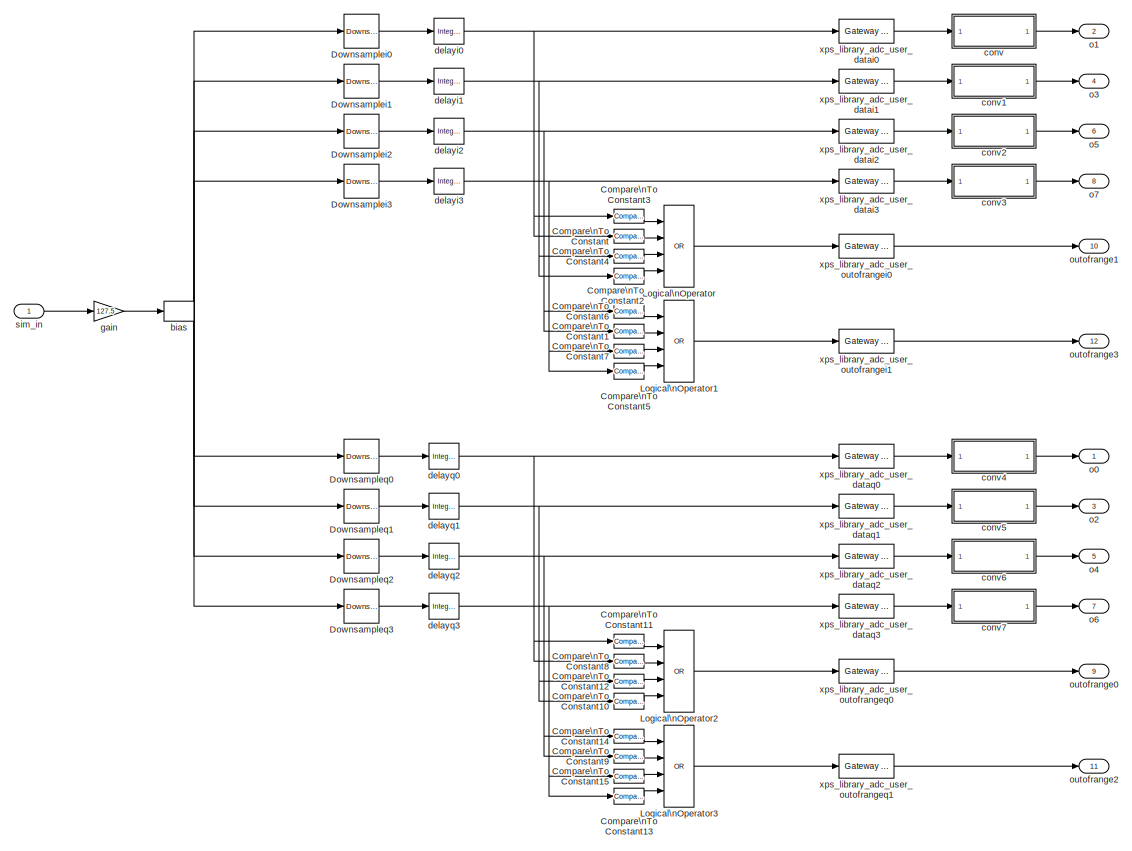
[diagram: adc - part 1/2, full width, middle band]
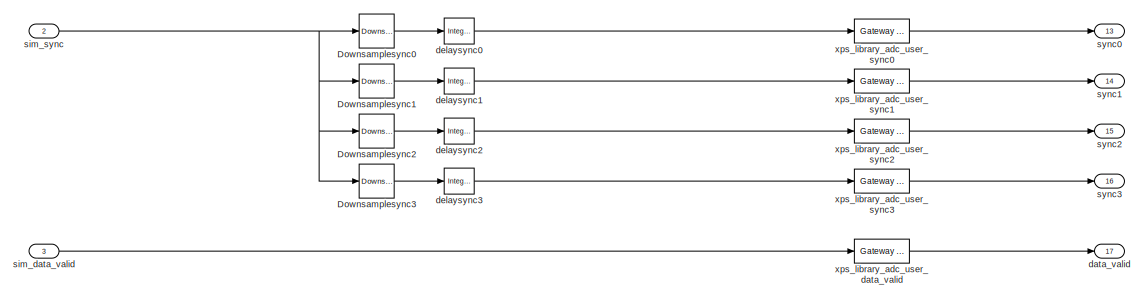
[diagram: adc - part 2/2, full width, bottom band]
BLOCK [SubSystem] adc
  FunctionWithSeparateData = off
  MaskCallbackString = |||
  MaskDescription = The ADC block converts analog inputs to digital outputs. Every clock cycle, the inputs are sampled and digitized to 8 bit binary point numbers in the range of [-1, 1) and are then output by the adc.
  MaskDisplay = \n
  MaskEnableString = on,on,on,on
  MaskHelp = eval('xlWeb([getenv(''MLIB_ROOT''), ''<path>''])')
  MaskIconFrame = on
  MaskIconOpaque = on
  MaskIconRotate = none
  MaskIconUnits = autoscale
  MaskInitialization = adc_mask;
  MaskPromptString = ADC board|ADC clock rate (MHz)|ADC interleave mode|Sample period
  MaskSelfModifiable = on
  MaskStyleString = popup(adc0|adc1),edit,checkbox,edit
  MaskTabNameString = ,,,
  MaskToolTipString = on,on,on,on
  MaskTunableValueString = on,on,on,on
  MaskType = adc
  MaskValueString = adc0|800|on|1
  MaskVarAliasString = ,,,
  MaskVariables = adc_brd=@1;adc_clk_rate=@2;adc_interleave=@3;sample_period=@4;
  MaskVisibilityString = on,on,on,on
  MinAlgLoopOccurrences = off
  Ports = [3, 17]
  RTWSystemCode = Auto
  Tag = xps:adc
BLOCK [Reference] adc/Compare\nTo Constant  REF=simulink/Logic and Bit\nOperations/Compare\nTo Constant
  FunctionWithSeparateData = off
  LogicOutDataTypeMode = boolean
  Ports = [1, 1]
  RTWMemSecDataConstants = Inherit from model
  RTWMemSecDataInternal = Inherit from model
  RTWMemSecDataParameters = Inherit from model
  RTWMemSecFuncExecute = Inherit from model
  RTWMemSecFuncInitTerm = Inherit from model
  SID = 4
  ShowPortLabels = FromPortIcon
  SourceBlock = simulink/Logic and Bit\nOperations/Compare\nTo Constant
  SourceType = Compare To Constant
  SystemSampleTime = -1
  ZeroCross = off
  const = 255
  relop = >
BLOCK [Reference] adc/Compare\nTo Constant1  REF=simulink/Logic and Bit\nOperations/Compare\nTo Constant
  FunctionWithSeparateData = off
  LogicOutDataTypeMode = boolean
  Ports = [1, 1]
  RTWMemSecDataConstants = Inherit from model
  RTWMemSecDataInternal = Inherit from model
  RTWMemSecDataParameters = Inherit from model
  RTWMemSecFuncExecute = Inherit from model
  RTWMemSecFuncInitTerm = Inherit from model
  SID = 5
  ShowPortLabels = FromPortIcon
  SourceBlock = simulink/Logic and Bit\nOperations/Compare\nTo Constant
  SourceType = Compare To Constant
  SystemSampleTime = -1
  ZeroCross = off
  const = 255
  relop = >
BLOCK [Reference] adc/Compare\nTo Constant10  REF=simulink/Logic and Bit\nOperations/Compare\nTo Constant
  FunctionWithSeparateData = off
  LogicOutDataTypeMode = boolean
  Ports = [1, 1]
  RTWMemSecDataConstants = Inherit from model
  RTWMemSecDataInternal = Inherit from model
  RTWMemSecDataParameters = Inherit from model
  RTWMemSecFuncExecute = Inherit from model
  RTWMemSecFuncInitTerm = Inherit from model
  SID = 6
  ShowPortLabels = FromPortIcon
  SourceBlock = simulink/Logic and Bit\nOperations/Compare\nTo Constant
  SourceType = Compare To Constant
  SystemSampleTime = -1
  ZeroCross = off
  const = 255
  relop = >
BLOCK [Reference] adc/Compare\nTo Constant11  REF=simulink/Logic and Bit\nOperations/Compare\nTo Constant
  FunctionWithSeparateData = off
  LogicOutDataTypeMode = boolean
  Ports = [1, 1]
  RTWMemSecDataConstants = Inherit from model
  RTWMemSecDataInternal = Inherit from model
  RTWMemSecDataParameters = Inherit from model
  RTWMemSecFuncExecute = Inherit from model
  RTWMemSecFuncInitTerm = Inherit from model
  SID = 7
  ShowPortLabels = FromPortIcon
  SourceBlock = simulink/Logic and Bit\nOperations/Compare\nTo Constant
  SourceType = Compare To Constant
  SystemSampleTime = -1
  ZeroCross = off
  const = 0
  relop = <
BLOCK [Reference] adc/Compare\nTo Constant12  REF=simulink/Logic and Bit\nOperations/Compare\nTo Constant
  FunctionWithSeparateData = off
  LogicOutDataTypeMode = boolean
  Ports = [1, 1]
  RTWMemSecDataConstants = Inherit from model
  RTWMemSecDataInternal = Inherit from model
  RTWMemSecDataParameters = Inherit from model
  RTWMemSecFuncExecute = Inherit from model
  RTWMemSecFuncInitTerm = Inherit from model
  SID = 8
  ShowPortLabels = FromPortIcon
  SourceBlock = simulink/Logic and Bit\nOperations/Compare\nTo Constant
  SourceType = Compare To Constant
  SystemSampleTime = -1
  ZeroCross = off
  const = 0
  relop = <
BLOCK [Reference] adc/Compare\nTo Constant13  REF=simulink/Logic and Bit\nOperations/Compare\nTo Constant
  FunctionWithSeparateData = off
  LogicOutDataTypeMode = boolean
  Ports = [1, 1]
  RTWMemSecDataConstants = Inherit from model
  RTWMemSecDataInternal = Inherit from model
  RTWMemSecDataParameters = Inherit from model
  RTWMemSecFuncExecute = Inherit from model
  RTWMemSecFuncInitTerm = Inherit from model
  SID = 9
  ShowPortLabels = FromPortIcon
  SourceBlock = simulink/Logic and Bit\nOperations/Compare\nTo Constant
  SourceType = Compare To Constant
  SystemSampleTime = -1
  ZeroCross = off
  const = 255
  relop = >
BLOCK [Reference] adc/Compare\nTo Constant14  REF=simulink/Logic and Bit\nOperations/Compare\nTo Constant
  FunctionWithSeparateData = off
  LogicOutDataTypeMode = boolean
  Ports = [1, 1]
  RTWMemSecDataConstants = Inherit from model
  RTWMemSecDataInternal = Inherit from model
  RTWMemSecDataParameters = Inherit from model
  RTWMemSecFuncExecute = Inherit from model
  RTWMemSecFuncInitTerm = Inherit from model
  SID = 10
  ShowPortLabels = FromPortIcon
  SourceBlock = simulink/Logic and Bit\nOperations/Compare\nTo Constant
  SourceType = Compare To Constant
  SystemSampleTime = -1
  ZeroCross = off
  const = 0
  relop = <
BLOCK [Reference] adc/Compare\nTo Constant15  REF=simulink/Logic and Bit\nOperations/Compare\nTo Constant
  FunctionWithSeparateData = off
  LogicOutDataTypeMode = boolean
  Ports = [1, 1]
  RTWMemSecDataConstants = Inherit from model
  RTWMemSecDataInternal = Inherit from model
  RTWMemSecDataParameters = Inherit from model
  RTWMemSecFuncExecute = Inherit from model
  RTWMemSecFuncInitTerm = Inherit from model
  SID = 11
  ShowPortLabels = FromPortIcon
  SourceBlock = simulink/Logic and Bit\nOperations/Compare\nTo Constant
  SourceType = Compare To Constant
  SystemSampleTime = -1
  ZeroCross = off
  const = 0
  relop = <
BLOCK [Reference] adc/Compare\nTo Constant2  REF=simulink/Logic and Bit\nOperations/Compare\nTo Constant
  FunctionWithSeparateData = off
  LogicOutDataTypeMode = boolean
  Ports = [1, 1]
  RTWMemSecDataConstants = Inherit from model
  RTWMemSecDataInternal = Inherit from model
  RTWMemSecDataParameters = Inherit from model
  RTWMemSecFuncExecute = Inherit from model
  RTWMemSecFuncInitTerm = Inherit from model
  SID = 12
  ShowPortLabels = FromPortIcon
  SourceBlock = simulink/Logic and Bit\nOperations/Compare\nTo Constant
  SourceType = Compare To Constant
  SystemSampleTime = -1
  ZeroCross = off
  const = 255
  relop = >
BLOCK [Reference] adc/Compare\nTo Constant3  REF=simulink/Logic and Bit\nOperations/Compare\nTo Constant
  FunctionWithSeparateData = off
  LogicOutDataTypeMode = boolean
  Ports = [1, 1]
  RTWMemSecDataConstants = Inherit from model
  RTWMemSecDataInternal = Inherit from model
  RTWMemSecDataParameters = Inherit from model
  RTWMemSecFuncExecute = Inherit from model
  RTWMemSecFuncInitTerm = Inherit from model
  SID = 13
  ShowPortLabels = FromPortIcon
  SourceBlock = simulink/Logic and Bit\nOperations/Compare\nTo Constant
  SourceType = Compare To Constant
  SystemSampleTime = -1
  ZeroCross = off
  const = 0
  relop = <
BLOCK [Reference] adc/Compare\nTo Constant4  REF=simulink/Logic and Bit\nOperations/Compare\nTo Constant
  FunctionWithSeparateData = off
  LogicOutDataTypeMode = boolean
  Ports = [1, 1]
  RTWMemSecDataConstants = Inherit from model
  RTWMemSecDataInternal = Inherit from model
  RTWMemSecDataParameters = Inherit from model
  RTWMemSecFuncExecute = Inherit from model
  RTWMemSecFuncInitTerm = Inherit from model
  SID = 14
  ShowPortLabels = FromPortIcon
  SourceBlock = simulink/Logic and Bit\nOperations/Compare\nTo Constant
  SourceType = Compare To Constant
  SystemSampleTime = -1
  ZeroCross = off
  const = 0
  relop = <
BLOCK [Reference] adc/Compare\nTo Constant5  REF=simulink/Logic and Bit\nOperations/Compare\nTo Constant
  FunctionWithSeparateData = off
  LogicOutDataTypeMode = boolean
  Ports = [1, 1]
  RTWMemSecDataConstants = Inherit from model
  RTWMemSecDataInternal = Inherit from model
  RTWMemSecDataParameters = Inherit from model
  RTWMemSecFuncExecute = Inherit from model
  RTWMemSecFuncInitTerm = Inherit from model
  SID = 15
  ShowPortLabels = FromPortIcon
  SourceBlock = simulink/Logic and Bit\nOperations/Compare\nTo Constant
  SourceType = Compare To Constant
  SystemSampleTime = -1
  ZeroCross = off
  const = 255
  relop = >
BLOCK [Reference] adc/Compare\nTo Constant6  REF=simulink/Logic and Bit\nOperations/Compare\nTo Constant
  FunctionWithSeparateData = off
  LogicOutDataTypeMode = boolean
  Ports = [1, 1]
  RTWMemSecDataConstants = Inherit from model
  RTWMemSecDataInternal = Inherit from model
  RTWMemSecDataParameters = Inherit from model
  RTWMemSecFuncExecute = Inherit from model
  RTWMemSecFuncInitTerm = Inherit from model
  SID = 16
  ShowPortLabels = FromPortIcon
  SourceBlock = simulink/Logic and Bit\nOperations/Compare\nTo Constant
  SourceType = Compare To Constant
  SystemSampleTime = -1
  ZeroCross = off
  const = 0
  relop = <
BLOCK [Reference] adc/Compare\nTo Constant7  REF=simulink/Logic and Bit\nOperations/Compare\nTo Constant
  FunctionWithSeparateData = off
  LogicOutDataTypeMode = boolean
  Ports = [1, 1]
  RTWMemSecDataConstants = Inherit from model
  RTWMemSecDataInternal = Inherit from model
  RTWMemSecDataParameters = Inherit from model
  RTWMemSecFuncExecute = Inherit from model
  RTWMemSecFuncInitTerm = Inherit from model
  SID = 17
  ShowPortLabels = FromPortIcon
  SourceBlock = simulink/Logic and Bit\nOperations/Compare\nTo Constant
  SourceType = Compare To Constant
  SystemSampleTime = -1
  ZeroCross = off
  const = 0
  relop = <
BLOCK [Reference] adc/Compare\nTo Constant8  REF=simulink/Logic and Bit\nOperations/Compare\nTo Constant
  FunctionWithSeparateData = off
  LogicOutDataTypeMode = boolean
  Ports = [1, 1]
  RTWMemSecDataConstants = Inherit from model
  RTWMemSecDataInternal = Inherit from model
  RTWMemSecDataParameters = Inherit from model
  RTWMemSecFuncExecute = Inherit from model
  RTWMemSecFuncInitTerm = Inherit from model
  SID = 18
  ShowPortLabels = FromPortIcon
  SourceBlock = simulink/Logic and Bit\nOperations/Compare\nTo Constant
  SourceType = Compare To Constant
  SystemSampleTime = -1
  ZeroCross = off
  const = 255
  relop = >
BLOCK [Reference] adc/Compare\nTo Constant9  REF=simulink/Logic and Bit\nOperations/Compare\nTo Constant
  FunctionWithSeparateData = off
  LogicOutDataTypeMode = boolean
  Ports = [1, 1]
  RTWMemSecDataConstants = Inherit from model
  RTWMemSecDataInternal = Inherit from model
  RTWMemSecDataParameters = Inherit from model
  RTWMemSecFuncExecute = Inherit from model
  RTWMemSecFuncInitTerm = Inherit from model
  SID = 19
  ShowPortLabels = FromPortIcon
  SourceBlock = simulink/Logic and Bit\nOperations/Compare\nTo Constant
  SourceType = Compare To Constant
  SystemSampleTime = -1
  ZeroCross = off
  const = 255
  relop = >
BLOCK [Reference] adc/Downsamplei0  REF=dspsigops/Downsample
  N = 8
  Ports = [1, 1]
  SID = 20
  SourceBlock = dspsigops/Downsample
  SourceType = Downsample
  fmode = Maintain input frame size
  ic = 0
  phase = 1
  smode = Allow multirate
BLOCK [Reference] adc/Downsamplei1  REF=dspsigops/Downsample
  N = 8
  Ports = [1, 1]
  SID = 21
  SourceBlock = dspsigops/Downsample
  SourceType = Downsample
  fmode = Maintain input frame size
  ic = 0
  phase = 3
  smode = Allow multirate
BLOCK [Reference] adc/Downsamplei2  REF=dspsigops/Downsample
  N = 8
  Ports = [1, 1]
  SID = 22
  SourceBlock = dspsigops/Downsample
  SourceType = Downsample
  fmode = Maintain input frame size
  ic = 0
  phase = 5
  smode = Allow multirate
BLOCK [Reference] adc/Downsamplei3  REF=dspsigops/Downsample
  N = 8
  Ports = [1, 1]
  SID = 23
  SourceBlock = dspsigops/Downsample
  SourceType = Downsample
  fmode = Maintain input frame size
  ic = 0
  phase = 7
  smode = Allow multirate
BLOCK [Reference] adc/Downsampleq0  REF=dspsigops/Downsample
  N = 8
  Ports = [1, 1]
  SID = 24
  SourceBlock = dspsigops/Downsample
  SourceType = Downsample
  fmode = Maintain input frame size
  ic = 0
  phase = 0
  smode = Allow multirate
BLOCK [Reference] adc/Downsampleq1  REF=dspsigops/Downsample
  N = 8
  Ports = [1, 1]
  SID = 25
  SourceBlock = dspsigops/Downsample
  SourceType = Downsample
  fmode = Maintain input frame size
  ic = 0
  phase = 2
  smode = Allow multirate
BLOCK [Reference] adc/Downsampleq2  REF=dspsigops/Downsample
  N = 8
  Ports = [1, 1]
  SID = 26
  SourceBlock = dspsigops/Downsample
  SourceType = Downsample
  fmode = Maintain input frame size
  ic = 0
  phase = 4
  smode = Allow multirate
BLOCK [Reference] adc/Downsampleq3  REF=dspsigops/Downsample
  N = 8
  Ports = [1, 1]
  SID = 27
  SourceBlock = dspsigops/Downsample
  SourceType = Downsample
  fmode = Maintain input frame size
  ic = 0
  phase = 6
  smode = Allow multirate
BLOCK [Reference] adc/Downsamplesync0  REF=dspsigops/Downsample
  N = 8
  Ports = [1, 1]
  SID = 28
  SourceBlock = dspsigops/Downsample
  SourceType = Downsample
  fmode = Maintain input frame size
  ic = 0
  phase = 0
  smode = Allow multirate
BLOCK [Reference] adc/Downsamplesync1  REF=dspsigops/Downsample
  N = 8
  Ports = [1, 1]
  SID = 29
  SourceBlock = dspsigops/Downsample
  SourceType = Downsample
  fmode = Maintain input frame size
  ic = 0
  phase = 2
  smode = Allow multirate
BLOCK [Reference] adc/Downsamplesync2  REF=dspsigops/Downsample
  N = 8
  Ports = [1, 1]
  SID = 30
  SourceBlock = dspsigops/Downsample
  SourceType = Downsample
  fmode = Maintain input frame size
  ic = 0
  phase = 4
  smode = Allow multirate
BLOCK [Reference] adc/Downsamplesync3  REF=dspsigops/Downsample
  N = 8
  Ports = [1, 1]
  SID = 31
  SourceBlock = dspsigops/Downsample
  SourceType = Downsample
  fmode = Maintain input frame size
  ic = 0
  phase = 6
  smode = Allow multirate
BLOCK [Logic] adc/Logical\nOperator
  AllPortsSameDT = off
  Inputs = 4
  Operator = OR
  OutDataTypeMode = boolean
  Ports = [4, 1]
BLOCK [Logic] adc/Logical\nOperator1
  AllPortsSameDT = off
  Inputs = 4
  Operator = OR
  OutDataTypeMode = boolean
  Ports = [4, 1]
BLOCK [Logic] adc/Logical\nOperator2
  AllPortsSameDT = off
  Inputs = 4
  Operator = OR
  OutDataTypeMode = boolean
  Ports = [4, 1]
BLOCK [Logic] adc/Logical\nOperator3
  AllPortsSameDT = off
  Inputs = 4
  Operator = OR
  OutDataTypeMode = boolean
  Ports = [4, 1]
BLOCK [Bias] adc/bias
  Bias = 127.5
BLOCK [SubSystem] adc/conv
  FunctionWithSeparateData = off
  MinAlgLoopOccurrences = off
  Ports = [1, 1]
  RTWSystemCode = Auto
BLOCK [Reference] adc/conv/Concat  REF=xbsIndex_r4/Concat
  Ports = [2, 1]
  SID = 39
  SourceBlock = xbsIndex_r4/Concat
  SourceType = Xilinx Bus Concatenator Block
  block_type = concat
  block_version = 8.2.02
  dbl_ovrd = off
  has_advanced_control = 0
  infoedit = Concatenates two or more inputs.  Output will be cast to an unsigned value with the binary point at zero.
  num_inputs = 2
  sg_icon_stat = 50,51,2,1,white,blue,0,df1e5aba,right
  sggui_pos = -1,-1,-1,-1
BLOCK [Inport] adc/conv/In1
  IconDisplay = Port number
  OutDataType = sfix(16)
  OutScaling = 2^0
BLOCK [Reference] adc/conv/Inverter  REF=xbsIndex_r4/Inverter
  Ports = [1, 1]
  SID = 40
  SourceBlock = xbsIndex_r4/Inverter
  SourceType = Xilinx Inverter Block
  block_type = inv
  block_version = 8.2.02
  dbl_ovrd = off
  en = off
  has_advanced_control = 0
  infoedit = Bitwise logical negation (one's complement) operator.
  latency = 0
  sg_icon_stat = 50,34,1,1,white,blue,0,1ab4a85f,right
  sg_mask_display = fprintf('','COMMENT: begin icon graphics');\npatch([0 50 50 0 ],[0 0 34 34 ],[0.77 0.82 0.91]);\npatch([16 10 18 10 16 25 27 29 39 31 24 19 27 19 24 31 39 29 27 25 16 ],[4 10 18 26 32 32 30 32 32 24 31 26 18 10 5 12 4 4 6 4 4 ],[0.98 0.96 0.92]);\nplot([0 0 50 50 0 ],[0 34 34 0 0 ]);\nfprintf('','COMMENT: end icon graphics');\nfprintf('','COMMENT: begin icon text');\ncolor('black');disp('not');\nf...<+38ch>  <repeated x12 — deduplicated; at blocks: Inverter>
  sggui_pos = -1,-1,-1,-1
  xl_area = [0, 0, 0, 0, 0, 0, 0]
  xl_use_area = off
BLOCK [Outport] adc/conv/Out1
  IconDisplay = Port number
  OutDataType = sfix(16)
  OutScaling = 2^0
BLOCK [Reference] adc/conv/Reinterpret  REF=xbsIndex_r4/Reinterpret
  Ports = [1, 1]
  SID = 41
  SourceBlock = xbsIndex_r4/Reinterpret
  SourceType = Xilinx Type Reinterpreter Block
  arith_type = Signed  (2's comp)
  bin_pt = 7
  block_type = reinterpret
  block_version = 8.2.02
  force_arith_type = on
  force_bin_pt = on
  has_advanced_control = 0
  sg_icon_stat = 40,32,1,1,white,blue,0,8982c1db,right
  sg_mask_display = fprintf('','COMMENT: begin icon graphics');\npatch([0 40 40 0 ],[0 0 32 32 ],[0.77 0.82 0.91]);\npatch([11 6 13 6 11 19 21 23 32 25 18 13 20 13 18 25 32 23 21 19 11 ],[3 8 15 22 27 27 25 27 27 20 27 22 15 8 3 10 3 3 5 3 3 ],[0.98 0.96 0.92]);\nplot([0 0 40 40 0 ],[0 32 32 0 0 ]);\nfprintf('','COMMENT: end icon graphics');\nfprintf('','COMMENT: begin icon text');\ncolor('black');disp('reinterpret')...<+42ch>  <repeated x13 — deduplicated; at blocks: Reinterpret, force_data_out>
  sggui_pos = 20,20,356,309
BLOCK [Reference] adc/conv/Slice  REF=xbsIndex_r4/Slice
  Ports = [1, 1]
  SID = 42
  SourceBlock = xbsIndex_r4/Slice
  SourceType = Xilinx Bit Slice Extractor Block
  base0 = LSB of Input
  base1 = MSB of Input
  bit0 = 0
  bit1 = 0
  block_type = slice
  block_version = 8.2.02
  boolean_output = off
  dbl_ovrd = off
  has_advanced_control = 0
  mode = Upper Bit Location + Width
  nbits = 1
  sg_icon_stat = 45,28,1,1,white,blue,0,b1026674,right
  sggui_pos = 20,20,442,407
BLOCK [Reference] adc/conv/Slice1  REF=xbsIndex_r4/Slice
  Ports = [1, 1]
  SID = 43
  SourceBlock = xbsIndex_r4/Slice
  SourceType = Xilinx Bit Slice Extractor Block
  base0 = LSB of Input
  base1 = MSB of Input
  bit0 = 0
  bit1 = 0
  block_type = slice
  block_version = 8.2.02
  boolean_output = off
  dbl_ovrd = off
  has_advanced_control = 0
  mode = Lower Bit Location + Width
  nbits = 7
  sg_icon_stat = 45,28,1,1,white,blue,0,b1026674,right
  sggui_pos = 20,20,442,407
BLOCK [SubSystem] adc/conv1
  FunctionWithSeparateData = off
  MinAlgLoopOccurrences = off
  Ports = [1, 1]
  RTWSystemCode = Auto
BLOCK [Reference] adc/conv1/Concat  REF=xbsIndex_r4/Concat
  Ports = [2, 1]
  SID = 47
  SourceBlock = xbsIndex_r4/Concat
  SourceType = Xilinx Bus Concatenator Block
  block_type = concat
  block_version = 8.2.02
  dbl_ovrd = off
  has_advanced_control = 0
  infoedit = Concatenates two or more inputs.  Output will be cast to an unsigned value with the binary point at zero.
  num_inputs = 2
  sg_icon_stat = 50,51,2,1,white,blue,0,df1e5aba,right
  sggui_pos = -1,-1,-1,-1
BLOCK [Inport] adc/conv1/In1
  IconDisplay = Port number
  OutDataType = sfix(16)
  OutScaling = 2^0
BLOCK [Reference] adc/conv1/Inverter  REF=xbsIndex_r4/Inverter
  Ports = [1, 1]
  SID = 48
  SourceBlock = xbsIndex_r4/Inverter
  SourceType = Xilinx Inverter Block
  block_type = inv
  block_version = 8.2.02
  dbl_ovrd = off
  en = off
  has_advanced_control = 0
  infoedit = Bitwise logical negation (one's complement) operator.
  latency = 0
  sg_icon_stat = 50,34,1,1,white,blue,0,1ab4a85f,right
  sggui_pos = -1,-1,-1,-1
  xl_area = [0, 0, 0, 0, 0, 0, 0]
  xl_use_area = off
BLOCK [Outport] adc/conv1/Out1
  IconDisplay = Port number
  OutDataType = sfix(16)
  OutScaling = 2^0
BLOCK [Reference] adc/conv1/Reinterpret  REF=xbsIndex_r4/Reinterpret
  Ports = [1, 1]
  SID = 49
  SourceBlock = xbsIndex_r4/Reinterpret
  SourceType = Xilinx Type Reinterpreter Block
  arith_type = Signed  (2's comp)
  bin_pt = 7
  block_type = reinterpret
  block_version = 8.2.02
  force_arith_type = on
  force_bin_pt = on
  has_advanced_control = 0
  sg_icon_stat = 40,32,1,1,white,blue,0,8982c1db,right
  sggui_pos = -1,-1,-1,-1
BLOCK [Reference] adc/conv1/Slice  REF=xbsIndex_r4/Slice
  Ports = [1, 1]
  SID = 50
  SourceBlock = xbsIndex_r4/Slice
  SourceType = Xilinx Bit Slice Extractor Block
  base0 = LSB of Input
  base1 = MSB of Input
  bit0 = 0
  bit1 = 0
  block_type = slice
  block_version = 8.2.02
  boolean_output = off
  dbl_ovrd = off
  has_advanced_control = 0
  mode = Upper Bit Location + Width
  nbits = 1
  sg_icon_stat = 45,28,1,1,white,blue,0,b1026674,right
  sggui_pos = -1,-1,-1,-1
BLOCK [Reference] adc/conv1/Slice1  REF=xbsIndex_r4/Slice
  Ports = [1, 1]
  SID = 51
  SourceBlock = xbsIndex_r4/Slice
  SourceType = Xilinx Bit Slice Extractor Block
  base0 = LSB of Input
  base1 = MSB of Input
  bit0 = 0
  bit1 = 0
  block_type = slice
  block_version = 8.2.02
  boolean_output = off
  dbl_ovrd = off
  has_advanced_control = 0
  mode = Lower Bit Location + Width
  nbits = 7
  sg_icon_stat = 45,28,1,1,white,blue,0,b1026674,right
  sggui_pos = -1,-1,-1,-1
BLOCK [SubSystem] adc/conv2
  FunctionWithSeparateData = off
  MinAlgLoopOccurrences = off
  Ports = [1, 1]
  RTWSystemCode = Auto
BLOCK [Reference] adc/conv2/Concat  REF=xbsIndex_r4/Concat
  Ports = [2, 1]
  SID = 55
  SourceBlock = xbsIndex_r4/Concat
  SourceType = Xilinx Bus Concatenator Block
  block_type = concat
  block_version = 8.2.02
  dbl_ovrd = off
  has_advanced_control = 0
  infoedit = Concatenates two or more inputs.  Output will be cast to an unsigned value with the binary point at zero.
  num_inputs = 2
  sg_icon_stat = 50,51,2,1,white,blue,0,df1e5aba,right
  sggui_pos = -1,-1,-1,-1
BLOCK [Inport] adc/conv2/In1
  IconDisplay = Port number
  OutDataType = sfix(16)
  OutScaling = 2^0
BLOCK [Reference] adc/conv2/Inverter  REF=xbsIndex_r4/Inverter
  Ports = [1, 1]
  SID = 56
  SourceBlock = xbsIndex_r4/Inverter
  SourceType = Xilinx Inverter Block
  block_type = inv
  block_version = 8.2.02
  dbl_ovrd = off
  en = off
  has_advanced_control = 0
  infoedit = Bitwise logical negation (one's complement) operator.
  latency = 0
  sg_icon_stat = 50,34,1,1,white,blue,0,1ab4a85f,right
  sggui_pos = -1,-1,-1,-1
  xl_area = [0, 0, 0, 0, 0, 0, 0]
  xl_use_area = off
BLOCK [Outport] adc/conv2/Out1
  IconDisplay = Port number
  OutDataType = sfix(16)
  OutScaling = 2^0
BLOCK [Reference] adc/conv2/Reinterpret  REF=xbsIndex_r4/Reinterpret
  Ports = [1, 1]
  SID = 57
  SourceBlock = xbsIndex_r4/Reinterpret
  SourceType = Xilinx Type Reinterpreter Block
  arith_type = Signed  (2's comp)
  bin_pt = 7
  block_type = reinterpret
  block_version = 8.2.02
  force_arith_type = on
  force_bin_pt = on
  has_advanced_control = 0
  sg_icon_stat = 40,32,1,1,white,blue,0,8982c1db,right
  sggui_pos = -1,-1,-1,-1
BLOCK [Reference] adc/conv2/Slice  REF=xbsIndex_r4/Slice
  Ports = [1, 1]
  SID = 58
  SourceBlock = xbsIndex_r4/Slice
  SourceType = Xilinx Bit Slice Extractor Block
  base0 = LSB of Input
  base1 = MSB of Input
  bit0 = 0
  bit1 = 0
  block_type = slice
  block_version = 8.2.02
  boolean_output = off
  dbl_ovrd = off
  has_advanced_control = 0
  mode = Upper Bit Location + Width
  nbits = 1
  sg_icon_stat = 45,28,1,1,white,blue,0,b1026674,right
  sggui_pos = -1,-1,-1,-1
BLOCK [Reference] adc/conv2/Slice1  REF=xbsIndex_r4/Slice
  Ports = [1, 1]
  SID = 59
  SourceBlock = xbsIndex_r4/Slice
  SourceType = Xilinx Bit Slice Extractor Block
  base0 = LSB of Input
  base1 = MSB of Input
  bit0 = 0
  bit1 = 0
  block_type = slice
  block_version = 8.2.02
  boolean_output = off
  dbl_ovrd = off
  has_advanced_control = 0
  mode = Lower Bit Location + Width
  nbits = 7
  sg_icon_stat = 45,28,1,1,white,blue,0,b1026674,right
  sggui_pos = -1,-1,-1,-1
BLOCK [SubSystem] adc/conv3
  FunctionWithSeparateData = off
  MinAlgLoopOccurrences = off
  Ports = [1, 1]
  RTWSystemCode = Auto
BLOCK [Reference] adc/conv3/Concat  REF=xbsIndex_r4/Concat
  Ports = [2, 1]
  SID = 63
  SourceBlock = xbsIndex_r4/Concat
  SourceType = Xilinx Bus Concatenator Block
  block_type = concat
  block_version = 8.2.02
  dbl_ovrd = off
  has_advanced_control = 0
  infoedit = Concatenates two or more inputs.  Output will be cast to an unsigned value with the binary point at zero.
  num_inputs = 2
  sg_icon_stat = 50,51,2,1,white,blue,0,df1e5aba,right
  sggui_pos = -1,-1,-1,-1
BLOCK [Inport] adc/conv3/In1
  IconDisplay = Port number
  OutDataType = sfix(16)
  OutScaling = 2^0
BLOCK [Reference] adc/conv3/Inverter  REF=xbsIndex_r4/Inverter
  Ports = [1, 1]
  SID = 64
  SourceBlock = xbsIndex_r4/Inverter
  SourceType = Xilinx Inverter Block
  block_type = inv
  block_version = 8.2.02
  dbl_ovrd = off
  en = off
  has_advanced_control = 0
  infoedit = Bitwise logical negation (one's complement) operator.
  latency = 0
  sg_icon_stat = 50,34,1,1,white,blue,0,1ab4a85f,right
  sggui_pos = -1,-1,-1,-1
  xl_area = [0, 0, 0, 0, 0, 0, 0]
  xl_use_area = off
BLOCK [Outport] adc/conv3/Out1
  IconDisplay = Port number
  OutDataType = sfix(16)
  OutScaling = 2^0
BLOCK [Reference] adc/conv3/Reinterpret  REF=xbsIndex_r4/Reinterpret
  Ports = [1, 1]
  SID = 65
  SourceBlock = xbsIndex_r4/Reinterpret
  SourceType = Xilinx Type Reinterpreter Block
  arith_type = Signed  (2's comp)
  bin_pt = 7
  block_type = reinterpret
  block_version = 8.2.02
  force_arith_type = on
  force_bin_pt = on
  has_advanced_control = 0
  sg_icon_stat = 40,32,1,1,white,blue,0,8982c1db,right
  sggui_pos = -1,-1,-1,-1
BLOCK [Reference] adc/conv3/Slice  REF=xbsIndex_r4/Slice
  Ports = [1, 1]
  SID = 66
  SourceBlock = xbsIndex_r4/Slice
  SourceType = Xilinx Bit Slice Extractor Block
  base0 = LSB of Input
  base1 = MSB of Input
  bit0 = 0
  bit1 = 0
  block_type = slice
  block_version = 8.2.02
  boolean_output = off
  dbl_ovrd = off
  has_advanced_control = 0
  mode = Upper Bit Location + Width
  nbits = 1
  sg_icon_stat = 45,28,1,1,white,blue,0,b1026674,right
  sggui_pos = -1,-1,-1,-1
BLOCK [Reference] adc/conv3/Slice1  REF=xbsIndex_r4/Slice
  Ports = [1, 1]
  SID = 67
  SourceBlock = xbsIndex_r4/Slice
  SourceType = Xilinx Bit Slice Extractor Block
  base0 = LSB of Input
  base1 = MSB of Input
  bit0 = 0
  bit1 = 0
  block_type = slice
  block_version = 8.2.02
  boolean_output = off
  dbl_ovrd = off
  has_advanced_control = 0
  mode = Lower Bit Location + Width
  nbits = 7
  sg_icon_stat = 45,28,1,1,white,blue,0,b1026674,right
  sggui_pos = -1,-1,-1,-1
BLOCK [SubSystem] adc/conv4
  FunctionWithSeparateData = off
  MinAlgLoopOccurrences = off
  Ports = [1, 1]
  RTWSystemCode = Auto
BLOCK [Reference] adc/conv4/Concat  REF=xbsIndex_r4/Concat
  Ports = [2, 1]
  SID = 71
  SourceBlock = xbsIndex_r4/Concat
  SourceType = Xilinx Bus Concatenator Block
  block_type = concat
  block_version = 8.2.02
  dbl_ovrd = off
  has_advanced_control = 0
  infoedit = Concatenates two or more inputs.  Output will be cast to an unsigned value with the binary point at zero.
  num_inputs = 2
  sg_icon_stat = 50,51,2,1,white,blue,0,df1e5aba,right
  sggui_pos = -1,-1,-1,-1
BLOCK [Inport] adc/conv4/In1
  IconDisplay = Port number
  OutDataType = sfix(16)
  OutScaling = 2^0
BLOCK [Reference] adc/conv4/Inverter  REF=xbsIndex_r4/Inverter
  Ports = [1, 1]
  SID = 72
  SourceBlock = xbsIndex_r4/Inverter
  SourceType = Xilinx Inverter Block
  block_type = inv
  block_version = 8.2.02
  dbl_ovrd = off
  en = off
  has_advanced_control = 0
  infoedit = Bitwise logical negation (one's complement) operator.
  latency = 0
  sg_icon_stat = 50,34,1,1,white,blue,0,1ab4a85f,right
  sggui_pos = -1,-1,-1,-1
  xl_area = [0, 0, 0, 0, 0, 0, 0]
  xl_use_area = off
BLOCK [Outport] adc/conv4/Out1
  IconDisplay = Port number
  OutDataType = sfix(16)
  OutScaling = 2^0
BLOCK [Reference] adc/conv4/Reinterpret  REF=xbsIndex_r4/Reinterpret
  Ports = [1, 1]
  SID = 73
  SourceBlock = xbsIndex_r4/Reinterpret
  SourceType = Xilinx Type Reinterpreter Block
  arith_type = Signed  (2's comp)
  bin_pt = 7
  block_type = reinterpret
  block_version = 8.2.02
  force_arith_type = on
  force_bin_pt = on
  has_advanced_control = 0
  sg_icon_stat = 40,32,1,1,white,blue,0,8982c1db,right
  sggui_pos = -1,-1,-1,-1
BLOCK [Reference] adc/conv4/Slice  REF=xbsIndex_r4/Slice
  Ports = [1, 1]
  SID = 74
  SourceBlock = xbsIndex_r4/Slice
  SourceType = Xilinx Bit Slice Extractor Block
  base0 = LSB of Input
  base1 = MSB of Input
  bit0 = 0
  bit1 = 0
  block_type = slice
  block_version = 8.2.02
  boolean_output = off
  dbl_ovrd = off
  has_advanced_control = 0
  mode = Upper Bit Location + Width
  nbits = 1
  sg_icon_stat = 45,28,1,1,white,blue,0,b1026674,right
  sggui_pos = -1,-1,-1,-1
BLOCK [Reference] adc/conv4/Slice1  REF=xbsIndex_r4/Slice
  Ports = [1, 1]
  SID = 75
  SourceBlock = xbsIndex_r4/Slice
  SourceType = Xilinx Bit Slice Extractor Block
  base0 = LSB of Input
  base1 = MSB of Input
  bit0 = 0
  bit1 = 0
  block_type = slice
  block_version = 8.2.02
  boolean_output = off
  dbl_ovrd = off
  has_advanced_control = 0
  mode = Lower Bit Location + Width
  nbits = 7
  sg_icon_stat = 45,28,1,1,white,blue,0,b1026674,right
  sggui_pos = -1,-1,-1,-1
BLOCK [SubSystem] adc/conv5
  FunctionWithSeparateData = off
  MinAlgLoopOccurrences = off
  Ports = [1, 1]
  RTWSystemCode = Auto
BLOCK [Reference] adc/conv5/Concat  REF=xbsIndex_r4/Concat
  Ports = [2, 1]
  SID = 79
  SourceBlock = xbsIndex_r4/Concat
  SourceType = Xilinx Bus Concatenator Block
  block_type = concat
  block_version = 8.2.02
  dbl_ovrd = off
  has_advanced_control = 0
  infoedit = Concatenates two or more inputs.  Output will be cast to an unsigned value with the binary point at zero.
  num_inputs = 2
  sg_icon_stat = 50,51,2,1,white,blue,0,df1e5aba,right
  sggui_pos = -1,-1,-1,-1
BLOCK [Inport] adc/conv5/In1
  IconDisplay = Port number
  OutDataType = sfix(16)
  OutScaling = 2^0
BLOCK [Reference] adc/conv5/Inverter  REF=xbsIndex_r4/Inverter
  Ports = [1, 1]
  SID = 80
  SourceBlock = xbsIndex_r4/Inverter
  SourceType = Xilinx Inverter Block
  block_type = inv
  block_version = 8.2.02
  dbl_ovrd = off
  en = off
  has_advanced_control = 0
  infoedit = Bitwise logical negation (one's complement) operator.
  latency = 0
  sg_icon_stat = 50,34,1,1,white,blue,0,1ab4a85f,right
  sggui_pos = -1,-1,-1,-1
  xl_area = [0, 0, 0, 0, 0, 0, 0]
  xl_use_area = off
BLOCK [Outport] adc/conv5/Out1
  IconDisplay = Port number
  OutDataType = sfix(16)
  OutScaling = 2^0
BLOCK [Reference] adc/conv5/Reinterpret  REF=xbsIndex_r4/Reinterpret
  Ports = [1, 1]
  SID = 81
  SourceBlock = xbsIndex_r4/Reinterpret
  SourceType = Xilinx Type Reinterpreter Block
  arith_type = Signed  (2's comp)
  bin_pt = 7
  block_type = reinterpret
  block_version = 8.2.02
  force_arith_type = on
  force_bin_pt = on
  has_advanced_control = 0
  sg_icon_stat = 40,32,1,1,white,blue,0,8982c1db,right
  sggui_pos = -1,-1,-1,-1
BLOCK [Reference] adc/conv5/Slice  REF=xbsIndex_r4/Slice
  Ports = [1, 1]
  SID = 82
  SourceBlock = xbsIndex_r4/Slice
  SourceType = Xilinx Bit Slice Extractor Block
  base0 = LSB of Input
  base1 = MSB of Input
  bit0 = 0
  bit1 = 0
  block_type = slice
  block_version = 8.2.02
  boolean_output = off
  dbl_ovrd = off
  has_advanced_control = 0
  mode = Upper Bit Location + Width
  nbits = 1
  sg_icon_stat = 45,28,1,1,white,blue,0,b1026674,right
  sggui_pos = -1,-1,-1,-1
BLOCK [Reference] adc/conv5/Slice1  REF=xbsIndex_r4/Slice
  Ports = [1, 1]
  SID = 83
  SourceBlock = xbsIndex_r4/Slice
  SourceType = Xilinx Bit Slice Extractor Block
  base0 = LSB of Input
  base1 = MSB of Input
  bit0 = 0
  bit1 = 0
  block_type = slice
  block_version = 8.2.02
  boolean_output = off
  dbl_ovrd = off
  has_advanced_control = 0
  mode = Lower Bit Location + Width
  nbits = 7
  sg_icon_stat = 45,28,1,1,white,blue,0,b1026674,right
  sggui_pos = -1,-1,-1,-1
BLOCK [SubSystem] adc/conv6
  FunctionWithSeparateData = off
  MinAlgLoopOccurrences = off
  Ports = [1, 1]
  RTWSystemCode = Auto
BLOCK [Reference] adc/conv6/Concat  REF=xbsIndex_r4/Concat
  Ports = [2, 1]
  SID = 87
  SourceBlock = xbsIndex_r4/Concat
  SourceType = Xilinx Bus Concatenator Block
  block_type = concat
  block_version = 8.2.02
  dbl_ovrd = off
  has_advanced_control = 0
  infoedit = Concatenates two or more inputs.  Output will be cast to an unsigned value with the binary point at zero.
  num_inputs = 2
  sg_icon_stat = 50,51,2,1,white,blue,0,df1e5aba,right
  sggui_pos = -1,-1,-1,-1
BLOCK [Inport] adc/conv6/In1
  IconDisplay = Port number
  OutDataType = sfix(16)
  OutScaling = 2^0
BLOCK [Reference] adc/conv6/Inverter  REF=xbsIndex_r4/Inverter
  Ports = [1, 1]
  SID = 88
  SourceBlock = xbsIndex_r4/Inverter
  SourceType = Xilinx Inverter Block
  block_type = inv
  block_version = 8.2.02
  dbl_ovrd = off
  en = off
  has_advanced_control = 0
  infoedit = Bitwise logical negation (one's complement) operator.
  latency = 0
  sg_icon_stat = 50,34,1,1,white,blue,0,1ab4a85f,right
  sggui_pos = -1,-1,-1,-1
  xl_area = [0, 0, 0, 0, 0, 0, 0]
  xl_use_area = off
BLOCK [Outport] adc/conv6/Out1
  IconDisplay = Port number
  OutDataType = sfix(16)
  OutScaling = 2^0
BLOCK [Reference] adc/conv6/Reinterpret  REF=xbsIndex_r4/Reinterpret
  Ports = [1, 1]
  SID = 89
  SourceBlock = xbsIndex_r4/Reinterpret
  SourceType = Xilinx Type Reinterpreter Block
  arith_type = Signed  (2's comp)
  bin_pt = 7
  block_type = reinterpret
  block_version = 8.2.02
  force_arith_type = on
  force_bin_pt = on
  has_advanced_control = 0
  sg_icon_stat = 40,32,1,1,white,blue,0,8982c1db,right
  sggui_pos = -1,-1,-1,-1
BLOCK [Reference] adc/conv6/Slice  REF=xbsIndex_r4/Slice
  Ports = [1, 1]
  SID = 90
  SourceBlock = xbsIndex_r4/Slice
  SourceType = Xilinx Bit Slice Extractor Block
  base0 = LSB of Input
  base1 = MSB of Input
  bit0 = 0
  bit1 = 0
  block_type = slice
  block_version = 8.2.02
  boolean_output = off
  dbl_ovrd = off
  has_advanced_control = 0
  mode = Upper Bit Location + Width
  nbits = 1
  sg_icon_stat = 45,28,1,1,white,blue,0,b1026674,right
  sggui_pos = -1,-1,-1,-1
BLOCK [Reference] adc/conv6/Slice1  REF=xbsIndex_r4/Slice
  Ports = [1, 1]
  SID = 91
  SourceBlock = xbsIndex_r4/Slice
  SourceType = Xilinx Bit Slice Extractor Block
  base0 = LSB of Input
  base1 = MSB of Input
  bit0 = 0
  bit1 = 0
  block_type = slice
  block_version = 8.2.02
  boolean_output = off
  dbl_ovrd = off
  has_advanced_control = 0
  mode = Lower Bit Location + Width
  nbits = 7
  sg_icon_stat = 45,28,1,1,white,blue,0,b1026674,right
  sggui_pos = -1,-1,-1,-1
BLOCK [SubSystem] adc/conv7
  FunctionWithSeparateData = off
  MinAlgLoopOccurrences = off
  Ports = [1, 1]
  RTWSystemCode = Auto
BLOCK [Reference] adc/conv7/Concat  REF=xbsIndex_r4/Concat
  Ports = [2, 1]
  SID = 95
  SourceBlock = xbsIndex_r4/Concat
  SourceType = Xilinx Bus Concatenator Block
  block_type = concat
  block_version = 8.2.02
  dbl_ovrd = off
  has_advanced_control = 0
  infoedit = Concatenates two or more inputs.  Output will be cast to an unsigned value with the binary point at zero.
  num_inputs = 2
  sg_icon_stat = 50,51,2,1,white,blue,0,df1e5aba,right
  sggui_pos = -1,-1,-1,-1
BLOCK [Inport] adc/conv7/In1
  IconDisplay = Port number
  OutDataType = sfix(16)
  OutScaling = 2^0
BLOCK [Reference] adc/conv7/Inverter  REF=xbsIndex_r4/Inverter
  Ports = [1, 1]
  SID = 96
  SourceBlock = xbsIndex_r4/Inverter
  SourceType = Xilinx Inverter Block
  block_type = inv
  block_version = 8.2.02
  dbl_ovrd = off
  en = off
  has_advanced_control = 0
  infoedit = Bitwise logical negation (one's complement) operator.
  latency = 0
  sg_icon_stat = 50,34,1,1,white,blue,0,1ab4a85f,right
  sggui_pos = -1,-1,-1,-1
  xl_area = [0, 0, 0, 0, 0, 0, 0]
  xl_use_area = off
BLOCK [Outport] adc/conv7/Out1
  IconDisplay = Port number
  OutDataType = sfix(16)
  OutScaling = 2^0
BLOCK [Reference] adc/conv7/Reinterpret  REF=xbsIndex_r4/Reinterpret
  Ports = [1, 1]
  SID = 97
  SourceBlock = xbsIndex_r4/Reinterpret
  SourceType = Xilinx Type Reinterpreter Block
  arith_type = Signed  (2's comp)
  bin_pt = 7
  block_type = reinterpret
  block_version = 8.2.02
  force_arith_type = on
  force_bin_pt = on
  has_advanced_control = 0
  sg_icon_stat = 40,32,1,1,white,blue,0,8982c1db,right
  sggui_pos = -1,-1,-1,-1
BLOCK [Reference] adc/conv7/Slice  REF=xbsIndex_r4/Slice
  Ports = [1, 1]
  SID = 98
  SourceBlock = xbsIndex_r4/Slice
  SourceType = Xilinx Bit Slice Extractor Block
  base0 = LSB of Input
  base1 = MSB of Input
  bit0 = 0
  bit1 = 0
  block_type = slice
  block_version = 8.2.02
  boolean_output = off
  dbl_ovrd = off
  has_advanced_control = 0
  mode = Upper Bit Location + Width
  nbits = 1
  sg_icon_stat = 45,28,1,1,white,blue,0,b1026674,right
  sggui_pos = -1,-1,-1,-1
BLOCK [Reference] adc/conv7/Slice1  REF=xbsIndex_r4/Slice
  Ports = [1, 1]
  SID = 99
  SourceBlock = xbsIndex_r4/Slice
  SourceType = Xilinx Bit Slice Extractor Block
  base0 = LSB of Input
  base1 = MSB of Input
  bit0 = 0
  bit1 = 0
  block_type = slice
  block_version = 8.2.02
  boolean_output = off
  dbl_ovrd = off
  has_advanced_control = 0
  mode = Lower Bit Location + Width
  nbits = 7
  sg_icon_stat = 45,28,1,1,white,blue,0,b1026674,right
  sggui_pos = -1,-1,-1,-1
BLOCK [Outport] adc/data_valid
  IconDisplay = Port number
  OutDataType = sfix(16)
  OutScaling = 2^0
  Port = 17
BLOCK [Reference] adc/delayi0  REF=simulink/Discrete/Integer Delay
  NumDelays = 1
  Ports = [1, 1]
  SID = 101
  SourceBlock = simulink/Discrete/Integer Delay
  SourceType = Integer Delay
  samptime = -1
  vinit = 0.0
BLOCK [Reference] adc/delayi1  REF=simulink/Discrete/Integer Delay
  NumDelays = 1
  Ports = [1, 1]
  SID = 102
  SourceBlock = simulink/Discrete/Integer Delay
  SourceType = Integer Delay
  samptime = -1
  vinit = 0.0
BLOCK [Reference] adc/delayi2  REF=simulink/Discrete/Integer Delay
  NumDelays = 1
  Ports = [1, 1]
  SID = 103
  SourceBlock = simulink/Discrete/Integer Delay
  SourceType = Integer Delay
  samptime = -1
  vinit = 0.0
BLOCK [Reference] adc/delayi3  REF=simulink/Discrete/Integer Delay
  NumDelays = 1
  Ports = [1, 1]
  SID = 104
  SourceBlock = simulink/Discrete/Integer Delay
  SourceType = Integer Delay
  samptime = -1
  vinit = 0.0
BLOCK [Reference] adc/delayq0  REF=simulink/Discrete/Integer Delay
  NumDelays = 2
  Ports = [1, 1]
  SID = 105
  SourceBlock = simulink/Discrete/Integer Delay
  SourceType = Integer Delay
  samptime = -1
  vinit = 0.0
BLOCK [Reference] adc/delayq1  REF=simulink/Discrete/Integer Delay
  NumDelays = 1
  Ports = [1, 1]
  SID = 106
  SourceBlock = simulink/Discrete/Integer Delay
  SourceType = Integer Delay
  samptime = -1
  vinit = 0.0
BLOCK [Reference] adc/delayq2  REF=simulink/Discrete/Integer Delay
  NumDelays = 1
  Ports = [1, 1]
  SID = 107
  SourceBlock = simulink/Discrete/Integer Delay
  SourceType = Integer Delay
  samptime = -1
  vinit = 0.0
BLOCK [Reference] adc/delayq3  REF=simulink/Discrete/Integer Delay
  NumDelays = 1
  Ports = [1, 1]
  SID = 108
  SourceBlock = simulink/Discrete/Integer Delay
  SourceType = Integer Delay
  samptime = -1
  vinit = 0.0
BLOCK [Reference] adc/delaysync0  REF=simulink/Discrete/Integer Delay
  NumDelays = 2
  Ports = [1, 1]
  SID = 109
  SourceBlock = simulink/Discrete/Integer Delay
  SourceType = Integer Delay
  samptime = -1
  vinit = 0.0
BLOCK [Reference] adc/delaysync1  REF=simulink/Discrete/Integer Delay
  NumDelays = 1
  Ports = [1, 1]
  SID = 110
  SourceBlock = simulink/Discrete/Integer Delay
  SourceType = Integer Delay
  samptime = -1
  vinit = 0.0
BLOCK [Reference] adc/delaysync2  REF=simulink/Discrete/Integer Delay
  NumDelays = 1
  Ports = [1, 1]
  SID = 111
  SourceBlock = simulink/Discrete/Integer Delay
  SourceType = Integer Delay
  samptime = -1
  vinit = 0.0
BLOCK [Reference] adc/delaysync3  REF=simulink/Discrete/Integer Delay
  NumDelays = 1
  Ports = [1, 1]
  SID = 112
  SourceBlock = simulink/Discrete/Integer Delay
  SourceType = Integer Delay
  samptime = -1
  vinit = 0.0
BLOCK [Gain] adc/gain
  Gain = 127.5
  OutDataType = sfix(16)
  OutScaling = 2^0
  ParameterDataType = sfix(16)
  ParameterScaling = 2^0
BLOCK [Outport] adc/o0
  IconDisplay = Port number
  OutDataType = sfix(16)
  OutScaling = 2^0
BLOCK [Outport] adc/o1
  IconDisplay = Port number
  OutDataType = sfix(16)
  OutScaling = 2^0
  Port = 2
BLOCK [Outport] adc/o2
  IconDisplay = Port number
  OutDataType = sfix(16)
  OutScaling = 2^0
  Port = 3
BLOCK [Outport] adc/o3
  IconDisplay = Port number
  OutDataType = sfix(16)
  OutScaling = 2^0
  Port = 4
BLOCK [Outport] adc/o4
  IconDisplay = Port number
  OutDataType = sfix(16)
  OutScaling = 2^0
  Port = 5
BLOCK [Outport] adc/o5
  IconDisplay = Port number
  OutDataType = sfix(16)
  OutScaling = 2^0
  Port = 6
BLOCK [Outport] adc/o6
  IconDisplay = Port number
  OutDataType = sfix(16)
  OutScaling = 2^0
  Port = 7
BLOCK [Outport] adc/o7
  IconDisplay = Port number
  OutDataType = sfix(16)
  OutScaling = 2^0
  Port = 8
BLOCK [Outport] adc/outofrange0
  IconDisplay = Port number
  OutDataType = sfix(16)
  OutScaling = 2^0
  Port = 9
BLOCK [Outport] adc/outofrange1
  IconDisplay = Port number
  OutDataType = sfix(16)
  OutScaling = 2^0
  Port = 10
BLOCK [Outport] adc/outofrange2
  IconDisplay = Port number
  OutDataType = sfix(16)
  OutScaling = 2^0
  Port = 11
BLOCK [Outport] adc/outofrange3
  IconDisplay = Port number
  OutDataType = sfix(16)
  OutScaling = 2^0
  Port = 12
BLOCK [Inport] adc/sim_data_valid
  IconDisplay = Port number
  OutDataType = sfix(16)
  OutScaling = 2^0
  Port = 3
  SampleTime = sample_period/4
BLOCK [Inport] adc/sim_in
  IconDisplay = Port number
  OutDataType = sfix(16)
  OutScaling = 2^0
  SampleTime = sample_period/8
BLOCK [Inport] adc/sim_sync
  IconDisplay = Port number
  OutDataType = sfix(16)
  OutScaling = 2^0
  Port = 2
  SampleTime = sample_period/8
BLOCK [Outport] adc/sync0
  IconDisplay = Port number
  OutDataType = sfix(16)
  OutScaling = 2^0
  Port = 13
BLOCK [Outport] adc/sync1
  IconDisplay = Port number
  OutDataType = sfix(16)
  OutScaling = 2^0
  Port = 14
BLOCK [Outport] adc/sync2
  IconDisplay = Port number
  OutDataType = sfix(16)
  OutScaling = 2^0
  Port = 15
BLOCK [Outport] adc/sync3
  IconDisplay = Port number
  OutDataType = sfix(16)
  OutScaling = 2^0
  Port = 16
BLOCK [Reference] adc/xps_library_adc_user_data_valid  REF=xbsIndex_r4/Gateway In
  LOCs = {}
  Ports = [1, 1]
  SID = 114
  SourceBlock = xbsIndex_r4/Gateway In
  SourceType = Xilinx Gateway In Block
  arith_type = Boolean
  bin_pt = 0
  block_type = gatewayin
  block_version = 8.2.02
  dbl_ovrd = off
  has_advanced_control = 0
  locs_specified = off
  n_bits = 8
  overflow = Saturate
  period = sample_period
  quantization = Round  (unbiased: +/- Inf)
  sg_icon_stat = 55,24,1,1,white,yellow,0,bc55d28f,right
  sggui_pos = -1,-1,-1,-1
  timing_constraint = None
  xl_area = [0 0 0 0 8 0 0]
  xl_use_area = off
BLOCK [Reference] adc/xps_library_adc_user_datai0  REF=xbsIndex_r4/Gateway In
  LOCs = {}
  Ports = [1, 1]
  SID = 115
  SourceBlock = xbsIndex_r4/Gateway In
  SourceType = Xilinx Gateway In Block
  arith_type = Unsigned
  bin_pt = 0
  block_type = gatewayin
  block_version = 8.2.02
  dbl_ovrd = off
  has_advanced_control = 0
  locs_specified = off
  n_bits = 8
  overflow = Saturate
  period = sample_period
  quantization = Round  (unbiased: +/- Inf)
  sg_icon_stat = 55,24,1,1,white,yellow,0,bc55d28f,right
  sggui_pos = 20,20,356,432
  timing_constraint = None
  xl_area = [0 0 0 0 8 0 0]
  xl_use_area = off
BLOCK [Reference] adc/xps_library_adc_user_datai1  REF=xbsIndex_r4/Gateway In
  LOCs = {}
  Ports = [1, 1]
  SID = 116
  SourceBlock = xbsIndex_r4/Gateway In
  SourceType = Xilinx Gateway In Block
  arith_type = Unsigned
  bin_pt = 0
  block_type = gatewayin
  block_version = 8.2.02
  dbl_ovrd = off
  has_advanced_control = 0
  locs_specified = off
  n_bits = 8
  overflow = Saturate
  period = sample_period
  quantization = Round  (unbiased: +/- Inf)
  sg_icon_stat = 55,24,1,1,white,yellow,0,bc55d28f,right
  sggui_pos = 20,20,356,432
  timing_constraint = None
  xl_area = [0 0 0 0 8 0 0]
  xl_use_area = off
BLOCK [Reference] adc/xps_library_adc_user_datai2  REF=xbsIndex_r4/Gateway In
  LOCs = {}
  Ports = [1, 1]
  SID = 117
  SourceBlock = xbsIndex_r4/Gateway In
  SourceType = Xilinx Gateway In Block
  arith_type = Unsigned
  bin_pt = 0
  block_type = gatewayin
  block_version = 8.2.02
  dbl_ovrd = off
  has_advanced_control = 0
  locs_specified = off
  n_bits = 8
  overflow = Saturate
  period = sample_period
  quantization = Round  (unbiased: +/- Inf)
  sg_icon_stat = 55,24,1,1,white,yellow,0,bc55d28f,right
  sggui_pos = -1,-1,-1,-1
  timing_constraint = None
  xl_area = [0 0 0 0 8 0 0]
  xl_use_area = off
BLOCK [Reference] adc/xps_library_adc_user_datai3  REF=xbsIndex_r4/Gateway In
  LOCs = {}
  Ports = [1, 1]
  SID = 118
  SourceBlock = xbsIndex_r4/Gateway In
  SourceType = Xilinx Gateway In Block
  arith_type = Unsigned
  bin_pt = 0
  block_type = gatewayin
  block_version = 8.2.02
  dbl_ovrd = off
  has_advanced_control = 0
  locs_specified = off
  n_bits = 8
  overflow = Saturate
  period = sample_period
  quantization = Round  (unbiased: +/- Inf)
  sg_icon_stat = 55,24,1,1,white,yellow,0,bc55d28f,right
  sggui_pos = -1,-1,-1,-1
  timing_constraint = None
  xl_area = [0 0 0 0 8 0 0]
  xl_use_area = off
BLOCK [Reference] adc/xps_library_adc_user_dataq0  REF=xbsIndex_r4/Gateway In
  LOCs = {}
  Ports = [1, 1]
  SID = 119
  SourceBlock = xbsIndex_r4/Gateway In
  SourceType = Xilinx Gateway In Block
  arith_type = Unsigned
  bin_pt = 0
  block_type = gatewayin
  block_version = 8.2.02
  dbl_ovrd = off
  has_advanced_control = 0
  locs_specified = off
  n_bits = 8
  overflow = Saturate
  period = sample_period
  quantization = Round  (unbiased: +/- Inf)
  sg_icon_stat = 55,24,1,1,white,yellow,0,bc55d28f,right
  sggui_pos = -1,-1,-1,-1
  timing_constraint = None
  xl_area = [0 0 0 0 8 0 0]
  xl_use_area = off
BLOCK [Reference] adc/xps_library_adc_user_dataq1  REF=xbsIndex_r4/Gateway In
  LOCs = {}
  Ports = [1, 1]
  SID = 120
  SourceBlock = xbsIndex_r4/Gateway In
  SourceType = Xilinx Gateway In Block
  arith_type = Unsigned
  bin_pt = 0
  block_type = gatewayin
  block_version = 8.2.02
  dbl_ovrd = off
  has_advanced_control = 0
  locs_specified = off
  n_bits = 8
  overflow = Saturate
  period = sample_period
  quantization = Round  (unbiased: +/- Inf)
  sg_icon_stat = 55,24,1,1,white,yellow,0,bc55d28f,right
  sggui_pos = -1,-1,-1,-1
  timing_constraint = None
  xl_area = [0 0 0 0 8 0 0]
  xl_use_area = off
BLOCK [Reference] adc/xps_library_adc_user_dataq2  REF=xbsIndex_r4/Gateway In
  LOCs = {}
  Ports = [1, 1]
  SID = 121
  SourceBlock = xbsIndex_r4/Gateway In
  SourceType = Xilinx Gateway In Block
  arith_type = Unsigned
  bin_pt = 0
  block_type = gatewayin
  block_version = 8.2.02
  dbl_ovrd = off
  has_advanced_control = 0
  locs_specified = off
  n_bits = 8
  overflow = Saturate
  period = sample_period
  quantization = Round  (unbiased: +/- Inf)
  sg_icon_stat = 55,24,1,1,white,yellow,0,bc55d28f,right
  sggui_pos = -1,-1,-1,-1
  timing_constraint = None
  xl_area = [0 0 0 0 8 0 0]
  xl_use_area = off
BLOCK [Reference] adc/xps_library_adc_user_dataq3  REF=xbsIndex_r4/Gateway In
  LOCs = {}
  Ports = [1, 1]
  SID = 122
  SourceBlock = xbsIndex_r4/Gateway In
  SourceType = Xilinx Gateway In Block
  arith_type = Unsigned
  bin_pt = 0
  block_type = gatewayin
  block_version = 8.2.02
  dbl_ovrd = off
  has_advanced_control = 0
  locs_specified = off
  n_bits = 8
  overflow = Saturate
  period = sample_period
  quantization = Round  (unbiased: +/- Inf)
  sg_icon_stat = 55,24,1,1,white,yellow,0,bc55d28f,right
  sggui_pos = -1,-1,-1,-1
  timing_constraint = None
  xl_area = [0 0 0 0 8 0 0]
  xl_use_area = off
BLOCK [Reference] adc/xps_library_adc_user_outofrangei0  REF=xbsIndex_r4/Gateway In
  LOCs = {}
  Ports = [1, 1]
  SID = 123
  SourceBlock = xbsIndex_r4/Gateway In
  SourceType = Xilinx Gateway In Block
  arith_type = Boolean
  bin_pt = 0
  block_type = gatewayin
  block_version = 8.2.02
  dbl_ovrd = off
  has_advanced_control = 0
  locs_specified = off
  n_bits = 8
  overflow = Saturate
  period = sample_period
  quantization = Round  (unbiased: +/- Inf)
  sg_icon_stat = 55,24,1,1,white,yellow,0,bc55d28f,right
  sggui_pos = -1,-1,-1,-1
  timing_constraint = None
  xl_area = [0 0 0 0 8 0 0]
  xl_use_area = off
BLOCK [Reference] adc/xps_library_adc_user_outofrangei1  REF=xbsIndex_r4/Gateway In
  LOCs = {}
  Ports = [1, 1]
  SID = 124
  SourceBlock = xbsIndex_r4/Gateway In
  SourceType = Xilinx Gateway In Block
  arith_type = Boolean
  bin_pt = 0
  block_type = gatewayin
  block_version = 8.2.02
  dbl_ovrd = off
  has_advanced_control = 0
  locs_specified = off
  n_bits = 8
  overflow = Saturate
  period = sample_period
  quantization = Round  (unbiased: +/- Inf)
  sg_icon_stat = 55,24,1,1,white,yellow,0,bc55d28f,right
  sggui_pos = -1,-1,-1,-1
  timing_constraint = None
  xl_area = [0 0 0 0 8 0 0]
  xl_use_area = off
BLOCK [Reference] adc/xps_library_adc_user_outofrangeq0  REF=xbsIndex_r4/Gateway In
  LOCs = {}
  Ports = [1, 1]
  SID = 125
  SourceBlock = xbsIndex_r4/Gateway In
  SourceType = Xilinx Gateway In Block
  arith_type = Boolean
  bin_pt = 0
  block_type = gatewayin
  block_version = 8.2.02
  dbl_ovrd = off
  has_advanced_control = 0
  locs_specified = off
  n_bits = 8
  overflow = Saturate
  period = sample_period
  quantization = Round  (unbiased: +/- Inf)
  sg_icon_stat = 55,24,1,1,white,yellow,0,bc55d28f,right
  sggui_pos = -1,-1,-1,-1
  timing_constraint = None
  xl_area = [0 0 0 0 8 0 0]
  xl_use_area = off
BLOCK [Reference] adc/xps_library_adc_user_outofrangeq1  REF=xbsIndex_r4/Gateway In
  LOCs = {}
  Ports = [1, 1]
  SID = 126
  SourceBlock = xbsIndex_r4/Gateway In
  SourceType = Xilinx Gateway In Block
  arith_type = Boolean
  bin_pt = 0
  block_type = gatewayin
  block_version = 8.2.02
  dbl_ovrd = off
  has_advanced_control = 0
  locs_specified = off
  n_bits = 8
  overflow = Saturate
  period = sample_period
  quantization = Round  (unbiased: +/- Inf)
  sg_icon_stat = 55,24,1,1,white,yellow,0,bc55d28f,right
  sggui_pos = -1,-1,-1,-1
  timing_constraint = None
  xl_area = [0 0 0 0 8 0 0]
  xl_use_area = off
BLOCK [Reference] adc/xps_library_adc_user_sync0  REF=xbsIndex_r4/Gateway In
  LOCs = {}
  Ports = [1, 1]
  SID = 127
  SourceBlock = xbsIndex_r4/Gateway In
  SourceType = Xilinx Gateway In Block
  arith_type = Boolean
  bin_pt = 0
  block_type = gatewayin
  block_version = 8.2.02
  dbl_ovrd = off
  has_advanced_control = 0
  locs_specified = off
  n_bits = 8
  overflow = Saturate
  period = sample_period
  quantization = Round  (unbiased: +/- Inf)
  sg_icon_stat = 55,24,1,1,white,yellow,0,bc55d28f,right
  sggui_pos = -1,-1,-1,-1
  timing_constraint = None
  xl_area = [0 0 0 0 8 0 0]
  xl_use_area = off
BLOCK [Reference] adc/xps_library_adc_user_sync1  REF=xbsIndex_r4/Gateway In
  LOCs = {}
  Ports = [1, 1]
  SID = 128
  SourceBlock = xbsIndex_r4/Gateway In
  SourceType = Xilinx Gateway In Block
  arith_type = Boolean
  bin_pt = 0
  block_type = gatewayin
  block_version = 8.2.02
  dbl_ovrd = off
  has_advanced_control = 0
  locs_specified = off
  n_bits = 8
  overflow = Saturate
  period = sample_period
  quantization = Round  (unbiased: +/- Inf)
  sg_icon_stat = 55,24,1,1,white,yellow,0,bc55d28f,right
  sggui_pos = -1,-1,-1,-1
  timing_constraint = None
  xl_area = [0 0 0 0 8 0 0]
  xl_use_area = off
BLOCK [Reference] adc/xps_library_adc_user_sync2  REF=xbsIndex_r4/Gateway In
  LOCs = {}
  Ports = [1, 1]
  SID = 129
  SourceBlock = xbsIndex_r4/Gateway In
  SourceType = Xilinx Gateway In Block
  arith_type = Boolean
  bin_pt = 0
  block_type = gatewayin
  block_version = 8.2.02
  dbl_ovrd = off
  has_advanced_control = 0
  locs_specified = off
  n_bits = 8
  overflow = Saturate
  period = sample_period
  quantization = Round  (unbiased: +/- Inf)
  sg_icon_stat = 55,24,1,1,white,yellow,0,bc55d28f,right
  sggui_pos = -1,-1,-1,-1
  timing_constraint = None
  xl_area = [0 0 0 0 8 0 0]
  xl_use_area = off
BLOCK [Reference] adc/xps_library_adc_user_sync3  REF=xbsIndex_r4/Gateway In
  LOCs = {}
  Ports = [1, 1]
  SID = 130
  SourceBlock = xbsIndex_r4/Gateway In
  SourceType = Xilinx Gateway In Block
  arith_type = Boolean
  bin_pt = 0
  block_type = gatewayin
  block_version = 8.2.02
  dbl_ovrd = off
  has_advanced_control = 0
  locs_specified = off
  n_bits = 8
  overflow = Saturate
  period = sample_period
  quantization = Round  (unbiased: +/- Inf)
  sg_icon_stat = 55,24,1,1,white,yellow,0,bc55d28f,right
  sggui_pos = -1,-1,-1,-1
  timing_constraint = None
  xl_area = [0 0 0 0 8 0 0]
  xl_use_area = off
BLOCK [SubSystem] adc083000x2
  FunctionWithSeparateData = off
  MaskCallbackString = ||||||||
  MaskDescription = The ADC block converts analog inputs to digital outputs. \nEvery clock cycle, the inputs are sampled and digitized to \n8 bit binary point numbers in the range of [-1, 1).  \n\nOnline block-specific documentation: http://casper.berkeley.edu/wiki/Adc083000
  MaskDisplay = \n
  MaskEnableString = on,on,on,on,on,on,on,on,on
  MaskHelp = eval('xlWeb([getenv(''MLIB_ROOT''), ''<path>''])')
  MaskIconFrame = on
  MaskIconOpaque = on
  MaskIconRotate = none
  MaskIconUnits = autoscale
  MaskInitialization = adc083000_mask;
  MaskPromptString = Use ZD0K0?|Use ZDOK1?|Demux ADCs by 2?|Interleave 2 ADC boards?|Verbose Block Creation?|Add ports for control registers?|ADC clock rate (MHz)|Sample Period|Output Bit Width
  MaskSelfModifiable = on
  MaskStyleString = checkbox,checkbox,checkbox,checkbox,checkbox,checkbox,edit,edit,edit
  MaskTabNameString = ,,,,,,,,
  MaskToolTipString = on,on,on,on,on,on,on,on,on
  MaskTunableValueString = on,on,on,on,on,on,on,on,on
  MaskType = adc_083000x2
  MaskValueString = on|on|off|on|off|on|1000|1|8
  MaskVarAliasString = ,,,,,,,,
  MaskVariables = use_adc0=@1;use_adc1=@2;demux_adc=@3;clock_sync=@4;verbose=@5;using_ctrl=@6;adc_clk_rate=@7;sample_period=@8;bit_width=@9;
  MaskVisibilityString = on,on,on,on,on,on,on,on,on
  MinAlgLoopOccurrences = off
  Ports = [5, 22]
  RTWSystemCode = Auto
  Tag = xps:adc083000x2
BLOCK [Outport] adc083000x2/adc0_data_valid
  IconDisplay = Port number
  OutDataType = sfix(16)
  OutScaling = 2^0
  Port = 19
BLOCK [Inport] adc083000x2/adc0_data_valid_sim
  IconDisplay = Port number
  OutDataType = sfix(16)
  OutScaling = 2^0
  Port = 2
BLOCK [Outport] adc083000x2/adc0_outofrange
  IconDisplay = Port number
  OutDataType = fixdt(1, 16)
  OutScaling = 2^0
  Port = 18
BLOCK [Outport] adc083000x2/adc0_s0
  IconDisplay = Port number
  OutDataType = fixdt(1, 16)
  OutScaling = 2^0
BLOCK [Outport] adc083000x2/adc0_s1
  IconDisplay = Port number
  OutDataType = fixdt(1, 16)
  OutScaling = 2^0
  Port = 3
BLOCK [Outport] adc083000x2/adc0_s2
  IconDisplay = Port number
  OutDataType = fixdt(1, 16)
  OutScaling = 2^0
  Port = 5
BLOCK [Outport] adc083000x2/adc0_s3
  IconDisplay = Port number
  OutDataType = fixdt(1, 16)
  OutScaling = 2^0
  Port = 7
BLOCK [Outport] adc083000x2/adc0_s4
  IconDisplay = Port number
  OutDataType = fixdt(1, 16)
  OutScaling = 2^0
  Port = 9
BLOCK [Outport] adc083000x2/adc0_s5
  IconDisplay = Port number
  OutDataType = fixdt(1, 16)
  OutScaling = 2^0
  Port = 11
BLOCK [Outport] adc083000x2/adc0_s6
  IconDisplay = Port number
  OutDataType = fixdt(1, 16)
  OutScaling = 2^0
  Port = 13
BLOCK [Outport] adc083000x2/adc0_s7
  IconDisplay = Port number
  OutDataType = fixdt(1, 16)
  OutScaling = 2^0
  Port = 15
BLOCK [Outport] adc083000x2/adc0_sync
  IconDisplay = Port number
  OutDataType = sfix(16)
  OutScaling = 2^0
  Port = 17
BLOCK [Inport] adc083000x2/adc0_sync_sim
  IconDisplay = Port number
  OutDataType = sfix(16)
  OutScaling = 2^0
BLOCK [Outport] adc083000x2/adc1_data_valid
  IconDisplay = Port number
  OutDataType = fixdt(1, 16)
  OutScaling = 2^0
  Port = 22
BLOCK [Inport] adc083000x2/adc1_data_valid_sim
  IconDisplay = Port number
  OutDataType = fixdt(1, 16)
  OutScaling = 2^0
  Port = 5
BLOCK [Outport] adc083000x2/adc1_outofrange
  IconDisplay = Port number
  OutDataType = fixdt(1, 16)
  OutScaling = 2^0
  Port = 21
BLOCK [Outport] adc083000x2/adc1_s0
  IconDisplay = Port number
  OutDataType = fixdt(1, 16)
  OutScaling = 2^0
  Port = 2
BLOCK [Outport] adc083000x2/adc1_s1
  IconDisplay = Port number
  OutDataType = fixdt(1, 16)
  OutScaling = 2^0
  Port = 4
BLOCK [Outport] adc083000x2/adc1_s2
  IconDisplay = Port number
  OutDataType = fixdt(1, 16)
  OutScaling = 2^0
  Port = 6
BLOCK [Outport] adc083000x2/adc1_s3
  IconDisplay = Port number
  OutDataType = fixdt(1, 16)
  OutScaling = 2^0
  Port = 8
BLOCK [Outport] adc083000x2/adc1_s4
  IconDisplay = Port number
  OutDataType = fixdt(1, 16)
  OutScaling = 2^0
  Port = 10
BLOCK [Outport] adc083000x2/adc1_s5
  IconDisplay = Port number
  OutDataType = fixdt(1, 16)
  OutScaling = 2^0
  Port = 12
BLOCK [Outport] adc083000x2/adc1_s6
  IconDisplay = Port number
  OutDataType = fixdt(1, 16)
  OutScaling = 2^0
  Port = 14
BLOCK [Outport] adc083000x2/adc1_s7
  IconDisplay = Port number
  OutDataType = fixdt(1, 16)
  OutScaling = 2^0
  Port = 16
BLOCK [Outport] adc083000x2/adc1_sync
  IconDisplay = Port number
  OutDataType = fixdt(1, 16)
  OutScaling = 2^0
  Port = 20
BLOCK [Inport] adc083000x2/adc1_sync_sim
  IconDisplay = Port number
  OutDataType = fixdt(1, 16)
  OutScaling = 2^0
  Port = 4
BLOCK [SubSystem] adc083000x2/adc_sim
  AncestorBlock = xps_library/ADCs/adc_sim
  FunctionWithSeparateData = off
  MaskCallbackString = |
  MaskDescription = This block simulates the behavior of a demuxed ADC, which takes\nas input a waveform and returns digital samples in parallel at\na slower rate.  \n\nThis block is used to simulate the behavior
  MaskEnableString = on,on
  MaskIconFrame = on
  MaskIconOpaque = on
  MaskIconRotate = none
  MaskIconUnits = autoscale
  MaskInitialization = adc_sim_init(gcb, ...\n    'nStreams', nStreams, ...\n    'bit_width', bit_width);
  MaskPromptString = Number of Output Streams|Sample Bit Width
  MaskStyleString = edit,edit
  MaskTabNameString = ,
  MaskToolTipString = on,on
  MaskTunableValueString = on,on
  MaskType = adc_sim
  MaskValueString = 16|8
  MaskVarAliasString = ,
  MaskVariables = nStreams=@1;bit_width=@2;
  MaskVisibilityString = on,on
  MinAlgLoopOccurrences = off
  Ports = [1, 17]
  RTWSystemCode = Auto
BLOCK [Bias] adc083000x2/adc_sim/adc_bias
  Bias = 128
BLOCK [Gain] adc083000x2/adc_sim/adc_gain
  Gain = 128
  OutDataType = sfix(16)
  OutDataTypeMode = Inherit via internal rule
  OutScaling = 2^0
  ParameterDataType = sfix(16)
  ParameterDataTypeMode = Inherit via internal rule
  ParameterScaling = 2^0
  SaturateOnIntegerOverflow = off
BLOCK [Outport] adc083000x2/adc_sim/of
  IconDisplay = Port number
  OutDataType = sfix(16)
  OutScaling = 2^0
  Port = 17
BLOCK [SubSystem] adc083000x2/adc_sim/overflow_detector
  AncestorBlock = casper_library/Misc/of_detect_bus
  FunctionWithSeparateData = off
  MaskCallbackString = |
  MaskEnableString = on,on
  MaskIconFrame = on
  MaskIconOpaque = on
  MaskIconRotate = none
  MaskIconUnits = autoscale
  MaskInitialization = adc_overflow_detector_init(gcb, ...\n    'nStreams', nStreams, ...\n    'bit_width', bit_width);
  MaskPromptString = Number of Streams|Bit Width
  MaskStyleString = edit,edit
  MaskTabNameString = ,
  MaskToolTipString = on,on
  MaskTunableValueString = on,on
  MaskType = of_detect_bus
  MaskValueString = 16|8
  MaskVarAliasString = ,
  MaskVariables = nStreams=@1;bit_width=@2;
  MaskVisibilityString = on,on
  MinAlgLoopOccurrences = off
  Ports = [16, 1]
  RTWSystemCode = Auto
BLOCK [Sum] adc083000x2/adc_sim/overflow_detector/Add
  CollapseMode = All dimensions
  InputSameDT = off
  Inputs = ++++++++
  OutDataType = fixdt(1, 16)
  OutDataTypeMode = Inherit via internal rule
  OutScaling = 2^-10
  Ports = [8, 1]
  SaturateOnIntegerOverflow = off
BLOCK [Reference] adc083000x2/adc_sim/overflow_detector/of0  REF=casper_library/Misc/of1  (lib defined in mdl_138b2fc3435f, mdl_4ed325b712b3, +2 more)
  FunctionWithSeparateData = off
  Ports = [2, 1]
  RTWMemSecDataConstants = Inherit from model
  RTWMemSecDataInternal = Inherit from model
  RTWMemSecDataParameters = Inherit from model
  RTWMemSecFuncExecute = Inherit from model
  RTWMemSecFuncInitTerm = Inherit from model
  SID = 18
  ShowPortLabels = FromPortIcon
  SourceBlock = casper_library/Misc/of1
  SourceType = of
  SystemSampleTime = -1
  bit_num = 0
  n_adc_bits = 8
BLOCK [Reference] adc083000x2/adc_sim/overflow_detector/of1  REF=casper_library/Misc/of1  (lib defined in mdl_138b2fc3435f, mdl_4ed325b712b3, +2 more)
  FunctionWithSeparateData = off
  Ports = [2, 1]
  RTWMemSecDataConstants = Inherit from model
  RTWMemSecDataInternal = Inherit from model
  RTWMemSecDataParameters = Inherit from model
  RTWMemSecFuncExecute = Inherit from model
  RTWMemSecFuncInitTerm = Inherit from model
  SID = 19
  ShowPortLabels = FromPortIcon
  SourceBlock = casper_library/Misc/of1
  SourceType = of
  SystemSampleTime = -1
  bit_num = 0
  n_adc_bits = 8
BLOCK [Reference] adc083000x2/adc_sim/overflow_detector/of2  REF=casper_library/Misc/of1  (lib defined in mdl_138b2fc3435f, mdl_4ed325b712b3, +2 more)
  FunctionWithSeparateData = off
  Ports = [2, 1]
  RTWMemSecDataConstants = Inherit from model
  RTWMemSecDataInternal = Inherit from model
  RTWMemSecDataParameters = Inherit from model
  RTWMemSecFuncExecute = Inherit from model
  RTWMemSecFuncInitTerm = Inherit from model
  SID = 20
  ShowPortLabels = FromPortIcon
  SourceBlock = casper_library/Misc/of1
  SourceType = of
  SystemSampleTime = -1
  bit_num = 0
  n_adc_bits = 8
BLOCK [Reference] adc083000x2/adc_sim/overflow_detector/of3  REF=casper_library/Misc/of1  (lib defined in mdl_138b2fc3435f, mdl_4ed325b712b3, +2 more)
  FunctionWithSeparateData = off
  Ports = [2, 1]
  RTWMemSecDataConstants = Inherit from model
  RTWMemSecDataInternal = Inherit from model
  RTWMemSecDataParameters = Inherit from model
  RTWMemSecFuncExecute = Inherit from model
  RTWMemSecFuncInitTerm = Inherit from model
  SID = 21
  ShowPortLabels = FromPortIcon
  SourceBlock = casper_library/Misc/of1
  SourceType = of
  SystemSampleTime = -1
  bit_num = 0
  n_adc_bits = 8
BLOCK [Reference] adc083000x2/adc_sim/overflow_detector/of4  REF=casper_library/Misc/of1  (lib defined in mdl_138b2fc3435f, mdl_4ed325b712b3, +2 more)
  FunctionWithSeparateData = off
  Ports = [2, 1]
  RTWMemSecDataConstants = Inherit from model
  RTWMemSecDataInternal = Inherit from model
  RTWMemSecDataParameters = Inherit from model
  RTWMemSecFuncExecute = Inherit from model
  RTWMemSecFuncInitTerm = Inherit from model
  SID = 22
  ShowPortLabels = FromPortIcon
  SourceBlock = casper_library/Misc/of1
  SourceType = of
  SystemSampleTime = -1
  bit_num = 0
  n_adc_bits = 8
BLOCK [Reference] adc083000x2/adc_sim/overflow_detector/of5  REF=casper_library/Misc/of1  (lib defined in mdl_138b2fc3435f, mdl_4ed325b712b3, +2 more)
  FunctionWithSeparateData = off
  Ports = [2, 1]
  RTWMemSecDataConstants = Inherit from model
  RTWMemSecDataInternal = Inherit from model
  RTWMemSecDataParameters = Inherit from model
  RTWMemSecFuncExecute = Inherit from model
  RTWMemSecFuncInitTerm = Inherit from model
  SID = 23
  ShowPortLabels = FromPortIcon
  SourceBlock = casper_library/Misc/of1
  SourceType = of
  SystemSampleTime = -1
  bit_num = 0
  n_adc_bits = 8
BLOCK [Reference] adc083000x2/adc_sim/overflow_detector/of6  REF=casper_library/Misc/of1  (lib defined in mdl_138b2fc3435f, mdl_4ed325b712b3, +2 more)
  FunctionWithSeparateData = off
  Ports = [2, 1]
  RTWMemSecDataConstants = Inherit from model
  RTWMemSecDataInternal = Inherit from model
  RTWMemSecDataParameters = Inherit from model
  RTWMemSecFuncExecute = Inherit from model
  RTWMemSecFuncInitTerm = Inherit from model
  SID = 24
  ShowPortLabels = FromPortIcon
  SourceBlock = casper_library/Misc/of1
  SourceType = of
  SystemSampleTime = -1
  bit_num = 0
  n_adc_bits = 8
BLOCK [Reference] adc083000x2/adc_sim/overflow_detector/of7  REF=casper_library/Misc/of1  (lib defined in mdl_138b2fc3435f, mdl_4ed325b712b3, +2 more)
  FunctionWithSeparateData = off
  Ports = [2, 1]
  RTWMemSecDataConstants = Inherit from model
  RTWMemSecDataInternal = Inherit from model
  RTWMemSecDataParameters = Inherit from model
  RTWMemSecFuncExecute = Inherit from model
  RTWMemSecFuncInitTerm = Inherit from model
  SID = 25
  ShowPortLabels = FromPortIcon
  SourceBlock = casper_library/Misc/of1
  SourceType = of
  SystemSampleTime = -1
  bit_num = 0
  n_adc_bits = 8
BLOCK [Outport] adc083000x2/adc_sim/overflow_detector/overflow
  IconDisplay = Port number
  OutDataType = fixdt(1, 16)
  OutScaling = 2^0
BLOCK [Inport] adc083000x2/adc_sim/overflow_detector/s0
  IconDisplay = Port number
  OutDataType = fixdt(1, 16)
  OutScaling = 2^0
BLOCK [Inport] adc083000x2/adc_sim/overflow_detector/s1
  IconDisplay = Port number
  OutDataType = fixdt(1, 16)
  OutScaling = 2^0
  Port = 2
BLOCK [Inport] adc083000x2/adc_sim/overflow_detector/s10
  IconDisplay = Port number
  OutDataType = fixdt(1, 16)
  OutScaling = 2^0
  Port = 11
BLOCK [Inport] adc083000x2/adc_sim/overflow_detector/s11
  IconDisplay = Port number
  OutDataType = fixdt(1, 16)
  OutScaling = 2^0
  Port = 12
BLOCK [Inport] adc083000x2/adc_sim/overflow_detector/s12
  IconDisplay = Port number
  OutDataType = fixdt(1, 16)
  OutScaling = 2^0
  Port = 13
BLOCK [Inport] adc083000x2/adc_sim/overflow_detector/s13
  IconDisplay = Port number
  OutDataType = fixdt(1, 16)
  OutScaling = 2^0
  Port = 14
BLOCK [Inport] adc083000x2/adc_sim/overflow_detector/s14
  IconDisplay = Port number
  OutDataType = fixdt(1, 16)
  OutScaling = 2^0
  Port = 15
BLOCK [Inport] adc083000x2/adc_sim/overflow_detector/s15
  IconDisplay = Port number
  OutDataType = fixdt(1, 16)
  OutScaling = 2^0
  Port = 16
BLOCK [Inport] adc083000x2/adc_sim/overflow_detector/s2
  IconDisplay = Port number
  OutDataType = fixdt(1, 16)
  OutScaling = 2^0
  Port = 3
BLOCK [Inport] adc083000x2/adc_sim/overflow_detector/s3
  IconDisplay = Port number
  OutDataType = fixdt(1, 16)
  OutScaling = 2^0
  Port = 4
BLOCK [Inport] adc083000x2/adc_sim/overflow_detector/s4
  IconDisplay = Port number
  OutDataType = fixdt(1, 16)
  OutScaling = 2^0
  Port = 5
BLOCK [Inport] adc083000x2/adc_sim/overflow_detector/s5
  IconDisplay = Port number
  OutDataType = fixdt(1, 16)
  OutScaling = 2^0
  Port = 6
BLOCK [Inport] adc083000x2/adc_sim/overflow_detector/s6
  IconDisplay = Port number
  OutDataType = fixdt(1, 16)
  OutScaling = 2^0
  Port = 7
BLOCK [Inport] adc083000x2/adc_sim/overflow_detector/s7
  IconDisplay = Port number
  OutDataType = fixdt(1, 16)
  OutScaling = 2^0
  Port = 8
BLOCK [Inport] adc083000x2/adc_sim/overflow_detector/s8
  IconDisplay = Port number
  OutDataType = fixdt(1, 16)
  OutScaling = 2^0
  Port = 9
BLOCK [Inport] adc083000x2/adc_sim/overflow_detector/s9
  IconDisplay = Port number
  OutDataType = fixdt(1, 16)
  OutScaling = 2^0
  Port = 10
BLOCK [Outport] adc083000x2/adc_sim/s0
  IconDisplay = Port number
  OutDataType = sfix(16)
  OutScaling = 2^0
BLOCK [Outport] adc083000x2/adc_sim/s1
  IconDisplay = Port number
  OutDataType = sfix(16)
  OutScaling = 2^0
  Port = 2
BLOCK [Outport] adc083000x2/adc_sim/s10
  IconDisplay = Port number
  OutDataType = fixdt(1, 16)
  OutScaling = 2^0
  Port = 11
BLOCK [Outport] adc083000x2/adc_sim/s11
  IconDisplay = Port number
  OutDataType = fixdt(1, 16)
  OutScaling = 2^0
  Port = 12
BLOCK [Outport] adc083000x2/adc_sim/s12
  IconDisplay = Port number
  OutDataType = fixdt(1, 16)
  OutScaling = 2^0
  Port = 13
BLOCK [Outport] adc083000x2/adc_sim/s13
  IconDisplay = Port number
  OutDataType = fixdt(1, 16)
  OutScaling = 2^0
  Port = 14
BLOCK [Outport] adc083000x2/adc_sim/s14
  IconDisplay = Port number
  OutDataType = fixdt(1, 16)
  OutScaling = 2^0
  Port = 15
BLOCK [Outport] adc083000x2/adc_sim/s15
  IconDisplay = Port number
  OutDataType = fixdt(1, 16)
  OutScaling = 2^0
  Port = 16
BLOCK [Outport] adc083000x2/adc_sim/s2
  IconDisplay = Port number
  OutDataType = sfix(16)
  OutScaling = 2^0
  Port = 3
BLOCK [Outport] adc083000x2/adc_sim/s3
  IconDisplay = Port number
  OutDataType = sfix(16)
  OutScaling = 2^0
  Port = 4
BLOCK [Outport] adc083000x2/adc_sim/s4
  IconDisplay = Port number
  OutDataType = sfix(16)
  OutScaling = 2^0
  Port = 5
BLOCK [Outport] adc083000x2/adc_sim/s5
  IconDisplay = Port number
  OutDataType = sfix(16)
  OutScaling = 2^0
  Port = 6
BLOCK [Outport] adc083000x2/adc_sim/s6
  IconDisplay = Port number
  OutDataType = sfix(16)
  OutScaling = 2^0
  Port = 7
BLOCK [Outport] adc083000x2/adc_sim/s7
  IconDisplay = Port number
  OutDataType = sfix(16)
  OutScaling = 2^0
  Port = 8
BLOCK [Outport] adc083000x2/adc_sim/s8
  IconDisplay = Port number
  OutDataType = fixdt(1, 16)
  OutScaling = 2^0
  Port = 9
BLOCK [Outport] adc083000x2/adc_sim/s9
  IconDisplay = Port number
  OutDataType = fixdt(1, 16)
  OutScaling = 2^0
  Port = 10
BLOCK [Reference] adc083000x2/adc_sim/sample0_ds  REF=dspsigops/Downsample
  N = 16
  Ports = [1, 1]
  SID = 5
  SourceBlock = dspsigops/Downsample
  SourceType = Downsample
  fmode = Maintain input frame size
  ic = 0
  phase = 1
  smode = Force single rate
BLOCK [Reference] adc083000x2/adc_sim/sample10_ds  REF=dspsigops/Downsample
  N = 16
  Ports = [1, 1]
  SID = 6
  SourceBlock = dspsigops/Downsample
  SourceType = Downsample
  fmode = Maintain input frame size
  ic = 0
  phase = 11
  smode = Force single rate
BLOCK [Reference] adc083000x2/adc_sim/sample11_ds  REF=dspsigops/Downsample
  N = 16
  Ports = [1, 1]
  SID = 7
  SourceBlock = dspsigops/Downsample
  SourceType = Downsample
  fmode = Maintain input frame size
  ic = 0
  phase = 12
  smode = Force single rate
BLOCK [Reference] adc083000x2/adc_sim/sample12_ds  REF=dspsigops/Downsample
  N = 16
  Ports = [1, 1]
  SID = 8
  SourceBlock = dspsigops/Downsample
  SourceType = Downsample
  fmode = Maintain input frame size
  ic = 0
  phase = 13
  smode = Force single rate
BLOCK [Reference] adc083000x2/adc_sim/sample13_ds  REF=dspsigops/Downsample
  N = 16
  Ports = [1, 1]
  SID = 9
  SourceBlock = dspsigops/Downsample
  SourceType = Downsample
  fmode = Maintain input frame size
  ic = 0
  phase = 14
  smode = Force single rate
BLOCK [Reference] adc083000x2/adc_sim/sample14_ds  REF=dspsigops/Downsample
  N = 16
  Ports = [1, 1]
  SID = 10
  SourceBlock = dspsigops/Downsample
  SourceType = Downsample
  fmode = Maintain input frame size
  ic = 0
  phase = 15
  smode = Force single rate
BLOCK [Reference] adc083000x2/adc_sim/sample15_ds  REF=dspsigops/Downsample
  N = 16
  Ports = [1, 1]
  SID = 11
  SourceBlock = dspsigops/Downsample
  SourceType = Downsample
  fmode = Maintain input frame size
  ic = 0
  phase = 0
  smode = Force single rate
BLOCK [Reference] adc083000x2/adc_sim/sample1_ds  REF=dspsigops/Downsample
  N = 16
  Ports = [1, 1]
  SID = 12
  SourceBlock = dspsigops/Downsample
  SourceType = Downsample
  fmode = Maintain input frame size
  ic = 0
  phase = 2
  smode = Force single rate
BLOCK [Reference] adc083000x2/adc_sim/sample2_ds  REF=dspsigops/Downsample
  N = 16
  Ports = [1, 1]
  SID = 13
  SourceBlock = dspsigops/Downsample
  SourceType = Downsample
  fmode = Maintain input frame size
  ic = 0
  phase = 3
  smode = Force single rate
BLOCK [Reference] adc083000x2/adc_sim/sample3_ds  REF=dspsigops/Downsample
  N = 16
  Ports = [1, 1]
  SID = 14
  SourceBlock = dspsigops/Downsample
  SourceType = Downsample
  fmode = Maintain input frame size
  ic = 0
  phase = 4
  smode = Force single rate
BLOCK [Reference] adc083000x2/adc_sim/sample4_ds  REF=dspsigops/Downsample
  N = 16
  Ports = [1, 1]
  SID = 15
  SourceBlock = dspsigops/Downsample
  SourceType = Downsample
  fmode = Maintain input frame size
  ic = 0
  phase = 5
  smode = Force single rate
BLOCK [Reference] adc083000x2/adc_sim/sample5_ds  REF=dspsigops/Downsample
  N = 16
  Ports = [1, 1]
  SID = 16
  SourceBlock = dspsigops/Downsample
  SourceType = Downsample
  fmode = Maintain input frame size
  ic = 0
  phase = 6
  smode = Force single rate
BLOCK [Reference] adc083000x2/adc_sim/sample6_ds  REF=dspsigops/Downsample
  N = 16
  Ports = [1, 1]
  SID = 17
  SourceBlock = dspsigops/Downsample
  SourceType = Downsample
  fmode = Maintain input frame size
  ic = 0
  phase = 7
  smode = Force single rate
BLOCK [Reference] adc083000x2/adc_sim/sample7_ds  REF=dspsigops/Downsample
  N = 16
  Ports = [1, 1]
  SID = 18
  SourceBlock = dspsigops/Downsample
  SourceType = Downsample
  fmode = Maintain input frame size
  ic = 0
  phase = 8
  smode = Force single rate
BLOCK [Reference] adc083000x2/adc_sim/sample8_ds  REF=dspsigops/Downsample
  N = 16
  Ports = [1, 1]
  SID = 19
  SourceBlock = dspsigops/Downsample
  SourceType = Downsample
  fmode = Maintain input frame size
  ic = 0
  phase = 9
  smode = Force single rate
BLOCK [Reference] adc083000x2/adc_sim/sample9_ds  REF=dspsigops/Downsample
  N = 16
  Ports = [1, 1]
  SID = 20
  SourceBlock = dspsigops/Downsample
  SourceType = Downsample
  fmode = Maintain input frame size
  ic = 0
  phase = 10
  smode = Force single rate
BLOCK [Inport] adc083000x2/adc_sim/sim_adc_data_in
  IconDisplay = Port number
  OutDataType = sfix(16)
  OutScaling = 2^0
BLOCK [Inport] adc083000x2/sim_adc_data_in
  IconDisplay = Port number
  OutDataType = fixdt(1, 16)
  OutScaling = 2^0
  Port = 3
BLOCK [Reference] adc083000x2/xps_library_adc083000x2_adc0_user_data_valid  REF=xbsIndex_r4/Gateway In
  LOCs = {}
  Ports = [1, 1]
  SID = 7
  SourceBlock = xbsIndex_r4/Gateway In
  SourceType = Xilinx Gateway In Block
  arith_type = Unsigned
  bin_pt = 0
  block_type = gatewayin
  block_version = 11.3
  dbl_ovrd = off
  has_advanced_control = 0
  infoedit = Gateway in block.  Converts inputs of type Simulink integer, double and fixed point to  Xilinx fixed point type.<br><br>Hardware notes:  In hardware these blocks become top level input ports.  <repeated x22 — deduplicated; at blocks: xps_library_adc083000x2_adc0_user_data_valid, xps_library_adc083000x2_adc0_user_outofrange, xps_library_adc083000x2_adc0_user_s0, xps_library_adc083000x2_adc0_user_s1, xps_library_adc083000x2_adc0_user_s2, xps_library_adc083000x2_adc0_user_s3, xps_library_adc083000x2_adc0_user_s4, xps_library_adc083000x2_adc0_user_s5, xps_library_adc083000x2_adc0_user_s6, xps_library_adc083000x2_adc0_user_s7, xps_library_adc083000x2_adc0_user_sync, xps_library_adc083000x2_adc1_user_data_valid, xps_library_adc083000x2_adc1_user_outofrange, xps_library_adc083000x2_adc1_user_s0, xps_library_adc083000x2_adc1_user_s1, xps_library_adc083000x2_adc1_user_s2, +6 more>
  locs_specified = off
  n_bits = 1
  overflow = Saturate
  period = 1
  quantization = Round  (unbiased: +/- Inf)
  sg_icon_stat = 55,24,1,1,white,yellow,0,00d3666e,right,
  sg_mask_display = fprintf('','COMMENT: begin icon graphics');\npatch([0 1 1 0 ],[0 0 1 1 ],[0.95 0.93 0.65]);\npatch([0.381818 0.309091 0.418182 0.309091 0.381818 0.490909 0.527273 0.563636 0.690909 0.6 0.509091 0.436364 0.545455 0.436364 0.509091 0.6 0.690909 0.563636 0.527273 0.490909 0.381818 ],[0.125 0.291667 0.541667 0.791667 0.958333 0.958333 0.875 0.958333 0.958333 0.75 0.958333 0.791667 0.541667 0.291667 0....<+350ch>  <repeated x37 — deduplicated; at blocks: xps_library_adc083000x2_adc0_user_data_valid, xps_library_adc083000x2_adc0_user_outofrange, xps_library_adc083000x2_adc0_user_s0, xps_library_adc083000x2_adc0_user_s1, xps_library_adc083000x2_adc0_user_s2, xps_library_adc083000x2_adc0_user_s3, xps_library_adc083000x2_adc0_user_s4, xps_library_adc083000x2_adc0_user_s5, xps_library_adc083000x2_adc0_user_s6, xps_library_adc083000x2_adc0_user_s7, xps_library_adc083000x2_adc0_user_sync, xps_library_adc083000x2_adc1_user_data_valid, xps_library_adc083000x2_adc1_user_outofrange, xps_library_adc083000x2_adc1_user_s0, xps_library_adc083000x2_adc1_user_s1, xps_library_adc083000x2_adc1_user_s2, +21 more>
  sggui_pos = -1,-1,-1,-1
  timing_constraint = None
  xl_area = [0,0,0,0,0,0,0]
  xl_use_area = off
BLOCK [Reference] adc083000x2/xps_library_adc083000x2_adc0_user_outofrange  REF=xbsIndex_r4/Gateway In
  LOCs = {}
  Ports = [1, 1]
  SID = 8
  SourceBlock = xbsIndex_r4/Gateway In
  SourceType = Xilinx Gateway In Block
  arith_type = Unsigned
  bin_pt = 0
  block_type = gatewayin
  block_version = 11.3
  dbl_ovrd = off
  has_advanced_control = 0
  locs_specified = off
  n_bits = 4
  overflow = Saturate
  period = 1
  quantization = Round  (unbiased: +/- Inf)
  sg_icon_stat = 55,24,1,1,white,yellow,0,00d3666e,right,
  sggui_pos = -1,-1,-1,-1
  timing_constraint = None
  xl_area = [0,0,0,0,0,0,0]
  xl_use_area = off
BLOCK [Reference] adc083000x2/xps_library_adc083000x2_adc0_user_s0  REF=xbsIndex_r4/Gateway In
  LOCs = {}
  Ports = [1, 1]
  SID = 9
  SourceBlock = xbsIndex_r4/Gateway In
  SourceType = Xilinx Gateway In Block
  arith_type = Unsigned
  bin_pt = 0
  block_type = gatewayin
  block_version = 11.3
  dbl_ovrd = off
  has_advanced_control = 0
  locs_specified = off
  n_bits = 8
  overflow = Saturate
  period = 1
  quantization = Round  (unbiased: +/- Inf)
  sg_icon_stat = 55,24,1,1,white,yellow,0,00d3666e,right,
  sggui_pos = -1,-1,-1,-1
  timing_constraint = None
  xl_area = [0,0,0,0,0,0,0]
  xl_use_area = off
BLOCK [Reference] adc083000x2/xps_library_adc083000x2_adc0_user_s0_conv  REF=xps_library/ADCs/conv  (lib defined in mdl_00b5cec29cd0, mdl_02ab6ecaa3d1, +5 more)
  FunctionWithSeparateData = off
  Ports = [1, 1]
  RTWMemSecDataConstants = Inherit from model
  RTWMemSecDataInternal = Inherit from model
  RTWMemSecDataParameters = Inherit from model
  RTWMemSecFuncExecute = Inherit from model
  RTWMemSecFuncInitTerm = Inherit from model
  SID = 10
  ShowPortLabels = FromPortIcon
  SourceBlock = xps_library/ADCs/conv
  SourceType = Unknown
  SystemSampleTime = -1
  bit_width = 8
BLOCK [Reference] adc083000x2/xps_library_adc083000x2_adc0_user_s1  REF=xbsIndex_r4/Gateway In
  LOCs = {}
  Ports = [1, 1]
  SID = 11
  SourceBlock = xbsIndex_r4/Gateway In
  SourceType = Xilinx Gateway In Block
  arith_type = Unsigned
  bin_pt = 0
  block_type = gatewayin
  block_version = 11.3
  dbl_ovrd = off
  has_advanced_control = 0
  locs_specified = off
  n_bits = 8
  overflow = Saturate
  period = 1
  quantization = Round  (unbiased: +/- Inf)
  sg_icon_stat = 55,24,1,1,white,yellow,0,00d3666e,right,
  sggui_pos = -1,-1,-1,-1
  timing_constraint = None
  xl_area = [0,0,0,0,0,0,0]
  xl_use_area = off
BLOCK [Reference] adc083000x2/xps_library_adc083000x2_adc0_user_s1_conv  REF=xps_library/ADCs/conv  (lib defined in mdl_00b5cec29cd0, mdl_02ab6ecaa3d1, +5 more)
  FunctionWithSeparateData = off
  Ports = [1, 1]
  RTWMemSecDataConstants = Inherit from model
  RTWMemSecDataInternal = Inherit from model
  RTWMemSecDataParameters = Inherit from model
  RTWMemSecFuncExecute = Inherit from model
  RTWMemSecFuncInitTerm = Inherit from model
  SID = 12
  ShowPortLabels = FromPortIcon
  SourceBlock = xps_library/ADCs/conv
  SourceType = Unknown
  SystemSampleTime = -1
  bit_width = 8
BLOCK [Reference] adc083000x2/xps_library_adc083000x2_adc0_user_s2  REF=xbsIndex_r4/Gateway In
  LOCs = {}
  Ports = [1, 1]
  SID = 13
  SourceBlock = xbsIndex_r4/Gateway In
  SourceType = Xilinx Gateway In Block
  arith_type = Unsigned
  bin_pt = 0
  block_type = gatewayin
  block_version = 11.3
  dbl_ovrd = off
  has_advanced_control = 0
  locs_specified = off
  n_bits = 8
  overflow = Saturate
  period = 1
  quantization = Round  (unbiased: +/- Inf)
  sg_icon_stat = 55,24,1,1,white,yellow,0,00d3666e,right,
  sggui_pos = -1,-1,-1,-1
  timing_constraint = None
  xl_area = [0,0,0,0,0,0,0]
  xl_use_area = off
BLOCK [Reference] adc083000x2/xps_library_adc083000x2_adc0_user_s2_conv  REF=xps_library/ADCs/conv  (lib defined in mdl_00b5cec29cd0, mdl_02ab6ecaa3d1, +5 more)
  FunctionWithSeparateData = off
  Ports = [1, 1]
  RTWMemSecDataConstants = Inherit from model
  RTWMemSecDataInternal = Inherit from model
  RTWMemSecDataParameters = Inherit from model
  RTWMemSecFuncExecute = Inherit from model
  RTWMemSecFuncInitTerm = Inherit from model
  SID = 14
  ShowPortLabels = FromPortIcon
  SourceBlock = xps_library/ADCs/conv
  SourceType = Unknown
  SystemSampleTime = -1
  bit_width = 8
BLOCK [Reference] adc083000x2/xps_library_adc083000x2_adc0_user_s3  REF=xbsIndex_r4/Gateway In
  LOCs = {}
  Ports = [1, 1]
  SID = 15
  SourceBlock = xbsIndex_r4/Gateway In
  SourceType = Xilinx Gateway In Block
  arith_type = Unsigned
  bin_pt = 0
  block_type = gatewayin
  block_version = 11.3
  dbl_ovrd = off
  has_advanced_control = 0
  locs_specified = off
  n_bits = 8
  overflow = Saturate
  period = 1
  quantization = Round  (unbiased: +/- Inf)
  sg_icon_stat = 55,24,1,1,white,yellow,0,00d3666e,right,
  sggui_pos = -1,-1,-1,-1
  timing_constraint = None
  xl_area = [0,0,0,0,0,0,0]
  xl_use_area = off
BLOCK [Reference] adc083000x2/xps_library_adc083000x2_adc0_user_s3_conv  REF=xps_library/ADCs/conv  (lib defined in mdl_00b5cec29cd0, mdl_02ab6ecaa3d1, +5 more)
  FunctionWithSeparateData = off
  Ports = [1, 1]
  RTWMemSecDataConstants = Inherit from model
  RTWMemSecDataInternal = Inherit from model
  RTWMemSecDataParameters = Inherit from model
  RTWMemSecFuncExecute = Inherit from model
  RTWMemSecFuncInitTerm = Inherit from model
  SID = 16
  ShowPortLabels = FromPortIcon
  SourceBlock = xps_library/ADCs/conv
  SourceType = Unknown
  SystemSampleTime = -1
  bit_width = 8
BLOCK [Reference] adc083000x2/xps_library_adc083000x2_adc0_user_s4  REF=xbsIndex_r4/Gateway In
  LOCs = {}
  Ports = [1, 1]
  SID = 17
  SourceBlock = xbsIndex_r4/Gateway In
  SourceType = Xilinx Gateway In Block
  arith_type = Unsigned
  bin_pt = 0
  block_type = gatewayin
  block_version = 11.3
  dbl_ovrd = off
  has_advanced_control = 0
  locs_specified = off
  n_bits = 8
  overflow = Saturate
  period = 1
  quantization = Round  (unbiased: +/- Inf)
  sg_icon_stat = 55,24,1,1,white,yellow,0,00d3666e,right,
  sggui_pos = -1,-1,-1,-1
  timing_constraint = None
  xl_area = [0,0,0,0,0,0,0]
  xl_use_area = off
BLOCK [Reference] adc083000x2/xps_library_adc083000x2_adc0_user_s4_conv  REF=xps_library/ADCs/conv  (lib defined in mdl_00b5cec29cd0, mdl_02ab6ecaa3d1, +5 more)
  FunctionWithSeparateData = off
  Ports = [1, 1]
  RTWMemSecDataConstants = Inherit from model
  RTWMemSecDataInternal = Inherit from model
  RTWMemSecDataParameters = Inherit from model
  RTWMemSecFuncExecute = Inherit from model
  RTWMemSecFuncInitTerm = Inherit from model
  SID = 18
  ShowPortLabels = FromPortIcon
  SourceBlock = xps_library/ADCs/conv
  SourceType = Unknown
  SystemSampleTime = -1
  bit_width = 8
BLOCK [Reference] adc083000x2/xps_library_adc083000x2_adc0_user_s5  REF=xbsIndex_r4/Gateway In
  LOCs = {}
  Ports = [1, 1]
  SID = 19
  SourceBlock = xbsIndex_r4/Gateway In
  SourceType = Xilinx Gateway In Block
  arith_type = Unsigned
  bin_pt = 0
  block_type = gatewayin
  block_version = 11.3
  dbl_ovrd = off
  has_advanced_control = 0
  locs_specified = off
  n_bits = 8
  overflow = Saturate
  period = 1
  quantization = Round  (unbiased: +/- Inf)
  sg_icon_stat = 55,24,1,1,white,yellow,0,00d3666e,right,
  sggui_pos = -1,-1,-1,-1
  timing_constraint = None
  xl_area = [0,0,0,0,0,0,0]
  xl_use_area = off
BLOCK [Reference] adc083000x2/xps_library_adc083000x2_adc0_user_s5_conv  REF=xps_library/ADCs/conv  (lib defined in mdl_00b5cec29cd0, mdl_02ab6ecaa3d1, +5 more)
  FunctionWithSeparateData = off
  Ports = [1, 1]
  RTWMemSecDataConstants = Inherit from model
  RTWMemSecDataInternal = Inherit from model
  RTWMemSecDataParameters = Inherit from model
  RTWMemSecFuncExecute = Inherit from model
  RTWMemSecFuncInitTerm = Inherit from model
  SID = 20
  ShowPortLabels = FromPortIcon
  SourceBlock = xps_library/ADCs/conv
  SourceType = Unknown
  SystemSampleTime = -1
  bit_width = 8
BLOCK [Reference] adc083000x2/xps_library_adc083000x2_adc0_user_s6  REF=xbsIndex_r4/Gateway In
  LOCs = {}
  Ports = [1, 1]
  SID = 21
  SourceBlock = xbsIndex_r4/Gateway In
  SourceType = Xilinx Gateway In Block
  arith_type = Unsigned
  bin_pt = 0
  block_type = gatewayin
  block_version = 11.3
  dbl_ovrd = off
  has_advanced_control = 0
  locs_specified = off
  n_bits = 8
  overflow = Saturate
  period = 1
  quantization = Round  (unbiased: +/- Inf)
  sg_icon_stat = 55,24,1,1,white,yellow,0,00d3666e,right,
  sggui_pos = -1,-1,-1,-1
  timing_constraint = None
  xl_area = [0,0,0,0,0,0,0]
  xl_use_area = off
BLOCK [Reference] adc083000x2/xps_library_adc083000x2_adc0_user_s6_conv  REF=xps_library/ADCs/conv  (lib defined in mdl_00b5cec29cd0, mdl_02ab6ecaa3d1, +5 more)
  FunctionWithSeparateData = off
  Ports = [1, 1]
  RTWMemSecDataConstants = Inherit from model
  RTWMemSecDataInternal = Inherit from model
  RTWMemSecDataParameters = Inherit from model
  RTWMemSecFuncExecute = Inherit from model
  RTWMemSecFuncInitTerm = Inherit from model
  SID = 22
  ShowPortLabels = FromPortIcon
  SourceBlock = xps_library/ADCs/conv
  SourceType = Unknown
  SystemSampleTime = -1
  bit_width = 8
BLOCK [Reference] adc083000x2/xps_library_adc083000x2_adc0_user_s7  REF=xbsIndex_r4/Gateway In
  LOCs = {}
  Ports = [1, 1]
  SID = 23
  SourceBlock = xbsIndex_r4/Gateway In
  SourceType = Xilinx Gateway In Block
  arith_type = Unsigned
  bin_pt = 0
  block_type = gatewayin
  block_version = 11.3
  dbl_ovrd = off
  has_advanced_control = 0
  locs_specified = off
  n_bits = 8
  overflow = Saturate
  period = 1
  quantization = Round  (unbiased: +/- Inf)
  sg_icon_stat = 55,24,1,1,white,yellow,0,00d3666e,right,
  sggui_pos = -1,-1,-1,-1
  timing_constraint = None
  xl_area = [0,0,0,0,0,0,0]
  xl_use_area = off
BLOCK [Reference] adc083000x2/xps_library_adc083000x2_adc0_user_s7_conv  REF=xps_library/ADCs/conv  (lib defined in mdl_00b5cec29cd0, mdl_02ab6ecaa3d1, +5 more)
  FunctionWithSeparateData = off
  Ports = [1, 1]
  RTWMemSecDataConstants = Inherit from model
  RTWMemSecDataInternal = Inherit from model
  RTWMemSecDataParameters = Inherit from model
  RTWMemSecFuncExecute = Inherit from model
  RTWMemSecFuncInitTerm = Inherit from model
  SID = 24
  ShowPortLabels = FromPortIcon
  SourceBlock = xps_library/ADCs/conv
  SourceType = Unknown
  SystemSampleTime = -1
  bit_width = 8
BLOCK [Reference] adc083000x2/xps_library_adc083000x2_adc0_user_sync  REF=xbsIndex_r4/Gateway In
  LOCs = {}
  Ports = [1, 1]
  SID = 25
  SourceBlock = xbsIndex_r4/Gateway In
  SourceType = Xilinx Gateway In Block
  arith_type = Unsigned
  bin_pt = 0
  block_type = gatewayin
  block_version = 11.3
  dbl_ovrd = off
  has_advanced_control = 0
  locs_specified = off
  n_bits = 4
  overflow = Saturate
  period = 1
  quantization = Round  (unbiased: +/- Inf)
  sg_icon_stat = 55,24,1,1,white,yellow,0,00d3666e,right,
  sggui_pos = -1,-1,-1,-1
  timing_constraint = None
  xl_area = [0,0,0,0,0,0,0]
  xl_use_area = off
BLOCK [Reference] adc083000x2/xps_library_adc083000x2_adc1_user_data_valid  REF=xbsIndex_r4/Gateway In
  LOCs = {}
  Ports = [1, 1]
  SID = 26
  SourceBlock = xbsIndex_r4/Gateway In
  SourceType = Xilinx Gateway In Block
  arith_type = Unsigned
  bin_pt = 0
  block_type = gatewayin
  block_version = 11.3
  dbl_ovrd = off
  has_advanced_control = 0
  locs_specified = off
  n_bits = 1
  overflow = Saturate
  period = 1
  quantization = Round  (unbiased: +/- Inf)
  sg_icon_stat = 55,24,1,1,white,yellow,0,00d3666e,right,
  sggui_pos = -1,-1,-1,-1
  timing_constraint = None
  xl_area = [0,0,0,0,0,0,0]
  xl_use_area = off
BLOCK [Reference] adc083000x2/xps_library_adc083000x2_adc1_user_outofrange  REF=xbsIndex_r4/Gateway In
  LOCs = {}
  Ports = [1, 1]
  SID = 27
  SourceBlock = xbsIndex_r4/Gateway In
  SourceType = Xilinx Gateway In Block
  arith_type = Unsigned
  bin_pt = 0
  block_type = gatewayin
  block_version = 11.3
  dbl_ovrd = off
  has_advanced_control = 0
  locs_specified = off
  n_bits = 4
  overflow = Saturate
  period = 1
  quantization = Round  (unbiased: +/- Inf)
  sg_icon_stat = 55,24,1,1,white,yellow,0,00d3666e,right,
  sggui_pos = -1,-1,-1,-1
  timing_constraint = None
  xl_area = [0,0,0,0,0,0,0]
  xl_use_area = off
BLOCK [Reference] adc083000x2/xps_library_adc083000x2_adc1_user_s0  REF=xbsIndex_r4/Gateway In
  LOCs = {}
  Ports = [1, 1]
  SID = 28
  SourceBlock = xbsIndex_r4/Gateway In
  SourceType = Xilinx Gateway In Block
  arith_type = Unsigned
  bin_pt = 0
  block_type = gatewayin
  block_version = 11.3
  dbl_ovrd = off
  has_advanced_control = 0
  locs_specified = off
  n_bits = 8
  overflow = Saturate
  period = 1
  quantization = Round  (unbiased: +/- Inf)
  sg_icon_stat = 55,24,1,1,white,yellow,0,00d3666e,right,
  sggui_pos = -1,-1,-1,-1
  timing_constraint = None
  xl_area = [0,0,0,0,0,0,0]
  xl_use_area = off
BLOCK [Reference] adc083000x2/xps_library_adc083000x2_adc1_user_s0_conv  REF=xps_library/ADCs/conv  (lib defined in mdl_00b5cec29cd0, mdl_02ab6ecaa3d1, +5 more)
  FunctionWithSeparateData = off
  Ports = [1, 1]
  RTWMemSecDataConstants = Inherit from model
  RTWMemSecDataInternal = Inherit from model
  RTWMemSecDataParameters = Inherit from model
  RTWMemSecFuncExecute = Inherit from model
  RTWMemSecFuncInitTerm = Inherit from model
  SID = 29
  ShowPortLabels = FromPortIcon
  SourceBlock = xps_library/ADCs/conv
  SourceType = Unknown
  SystemSampleTime = -1
  bit_width = 8
BLOCK [Reference] adc083000x2/xps_library_adc083000x2_adc1_user_s1  REF=xbsIndex_r4/Gateway In
  LOCs = {}
  Ports = [1, 1]
  SID = 30
  SourceBlock = xbsIndex_r4/Gateway In
  SourceType = Xilinx Gateway In Block
  arith_type = Unsigned
  bin_pt = 0
  block_type = gatewayin
  block_version = 11.3
  dbl_ovrd = off
  has_advanced_control = 0
  locs_specified = off
  n_bits = 8
  overflow = Saturate
  period = 1
  quantization = Round  (unbiased: +/- Inf)
  sg_icon_stat = 55,24,1,1,white,yellow,0,00d3666e,right,
  sggui_pos = -1,-1,-1,-1
  timing_constraint = None
  xl_area = [0,0,0,0,0,0,0]
  xl_use_area = off
BLOCK [Reference] adc083000x2/xps_library_adc083000x2_adc1_user_s1_conv  REF=xps_library/ADCs/conv  (lib defined in mdl_00b5cec29cd0, mdl_02ab6ecaa3d1, +5 more)
  FunctionWithSeparateData = off
  Ports = [1, 1]
  RTWMemSecDataConstants = Inherit from model
  RTWMemSecDataInternal = Inherit from model
  RTWMemSecDataParameters = Inherit from model
  RTWMemSecFuncExecute = Inherit from model
  RTWMemSecFuncInitTerm = Inherit from model
  SID = 31
  ShowPortLabels = FromPortIcon
  SourceBlock = xps_library/ADCs/conv
  SourceType = Unknown
  SystemSampleTime = -1
  bit_width = 8
BLOCK [Reference] adc083000x2/xps_library_adc083000x2_adc1_user_s2  REF=xbsIndex_r4/Gateway In
  LOCs = {}
  Ports = [1, 1]
  SID = 32
  SourceBlock = xbsIndex_r4/Gateway In
  SourceType = Xilinx Gateway In Block
  arith_type = Unsigned
  bin_pt = 0
  block_type = gatewayin
  block_version = 11.3
  dbl_ovrd = off
  has_advanced_control = 0
  locs_specified = off
  n_bits = 8
  overflow = Saturate
  period = 1
  quantization = Round  (unbiased: +/- Inf)
  sg_icon_stat = 55,24,1,1,white,yellow,0,00d3666e,right,
  sggui_pos = -1,-1,-1,-1
  timing_constraint = None
  xl_area = [0,0,0,0,0,0,0]
  xl_use_area = off
BLOCK [Reference] adc083000x2/xps_library_adc083000x2_adc1_user_s2_conv  REF=xps_library/ADCs/conv  (lib defined in mdl_00b5cec29cd0, mdl_02ab6ecaa3d1, +5 more)
  FunctionWithSeparateData = off
  Ports = [1, 1]
  RTWMemSecDataConstants = Inherit from model
  RTWMemSecDataInternal = Inherit from model
  RTWMemSecDataParameters = Inherit from model
  RTWMemSecFuncExecute = Inherit from model
  RTWMemSecFuncInitTerm = Inherit from model
  SID = 33
  ShowPortLabels = FromPortIcon
  SourceBlock = xps_library/ADCs/conv
  SourceType = Unknown
  SystemSampleTime = -1
  bit_width = 8
BLOCK [Reference] adc083000x2/xps_library_adc083000x2_adc1_user_s3  REF=xbsIndex_r4/Gateway In
  LOCs = {}
  Ports = [1, 1]
  SID = 34
  SourceBlock = xbsIndex_r4/Gateway In
  SourceType = Xilinx Gateway In Block
  arith_type = Unsigned
  bin_pt = 0
  block_type = gatewayin
  block_version = 11.3
  dbl_ovrd = off
  has_advanced_control = 0
  locs_specified = off
  n_bits = 8
  overflow = Saturate
  period = 1
  quantization = Round  (unbiased: +/- Inf)
  sg_icon_stat = 55,24,1,1,white,yellow,0,00d3666e,right,
  sggui_pos = -1,-1,-1,-1
  timing_constraint = None
  xl_area = [0,0,0,0,0,0,0]
  xl_use_area = off
BLOCK [Reference] adc083000x2/xps_library_adc083000x2_adc1_user_s3_conv  REF=xps_library/ADCs/conv  (lib defined in mdl_00b5cec29cd0, mdl_02ab6ecaa3d1, +5 more)
  FunctionWithSeparateData = off
  Ports = [1, 1]
  RTWMemSecDataConstants = Inherit from model
  RTWMemSecDataInternal = Inherit from model
  RTWMemSecDataParameters = Inherit from model
  RTWMemSecFuncExecute = Inherit from model
  RTWMemSecFuncInitTerm = Inherit from model
  SID = 35
  ShowPortLabels = FromPortIcon
  SourceBlock = xps_library/ADCs/conv
  SourceType = Unknown
  SystemSampleTime = -1
  bit_width = 8
BLOCK [Reference] adc083000x2/xps_library_adc083000x2_adc1_user_s4  REF=xbsIndex_r4/Gateway In
  LOCs = {}
  Ports = [1, 1]
  SID = 36
  SourceBlock = xbsIndex_r4/Gateway In
  SourceType = Xilinx Gateway In Block
  arith_type = Unsigned
  bin_pt = 0
  block_type = gatewayin
  block_version = 11.3
  dbl_ovrd = off
  has_advanced_control = 0
  locs_specified = off
  n_bits = 8
  overflow = Saturate
  period = 1
  quantization = Round  (unbiased: +/- Inf)
  sg_icon_stat = 55,24,1,1,white,yellow,0,00d3666e,right,
  sggui_pos = -1,-1,-1,-1
  timing_constraint = None
  xl_area = [0,0,0,0,0,0,0]
  xl_use_area = off
BLOCK [Reference] adc083000x2/xps_library_adc083000x2_adc1_user_s4_conv  REF=xps_library/ADCs/conv  (lib defined in mdl_00b5cec29cd0, mdl_02ab6ecaa3d1, +5 more)
  FunctionWithSeparateData = off
  Ports = [1, 1]
  RTWMemSecDataConstants = Inherit from model
  RTWMemSecDataInternal = Inherit from model
  RTWMemSecDataParameters = Inherit from model
  RTWMemSecFuncExecute = Inherit from model
  RTWMemSecFuncInitTerm = Inherit from model
  SID = 37
  ShowPortLabels = FromPortIcon
  SourceBlock = xps_library/ADCs/conv
  SourceType = Unknown
  SystemSampleTime = -1
  bit_width = 8
BLOCK [Reference] adc083000x2/xps_library_adc083000x2_adc1_user_s5  REF=xbsIndex_r4/Gateway In
  LOCs = {}
  Ports = [1, 1]
  SID = 38
  SourceBlock = xbsIndex_r4/Gateway In
  SourceType = Xilinx Gateway In Block
  arith_type = Unsigned
  bin_pt = 0
  block_type = gatewayin
  block_version = 11.3
  dbl_ovrd = off
  has_advanced_control = 0
  locs_specified = off
  n_bits = 8
  overflow = Saturate
  period = 1
  quantization = Round  (unbiased: +/- Inf)
  sg_icon_stat = 55,24,1,1,white,yellow,0,00d3666e,right,
  sggui_pos = -1,-1,-1,-1
  timing_constraint = None
  xl_area = [0,0,0,0,0,0,0]
  xl_use_area = off
BLOCK [Reference] adc083000x2/xps_library_adc083000x2_adc1_user_s5_conv  REF=xps_library/ADCs/conv  (lib defined in mdl_00b5cec29cd0, mdl_02ab6ecaa3d1, +5 more)
  FunctionWithSeparateData = off
  Ports = [1, 1]
  RTWMemSecDataConstants = Inherit from model
  RTWMemSecDataInternal = Inherit from model
  RTWMemSecDataParameters = Inherit from model
  RTWMemSecFuncExecute = Inherit from model
  RTWMemSecFuncInitTerm = Inherit from model
  SID = 39
  ShowPortLabels = FromPortIcon
  SourceBlock = xps_library/ADCs/conv
  SourceType = Unknown
  SystemSampleTime = -1
  bit_width = 8
BLOCK [Reference] adc083000x2/xps_library_adc083000x2_adc1_user_s6  REF=xbsIndex_r4/Gateway In
  LOCs = {}
  Ports = [1, 1]
  SID = 40
  SourceBlock = xbsIndex_r4/Gateway In
  SourceType = Xilinx Gateway In Block
  arith_type = Unsigned
  bin_pt = 0
  block_type = gatewayin
  block_version = 11.3
  dbl_ovrd = off
  has_advanced_control = 0
  locs_specified = off
  n_bits = 8
  overflow = Saturate
  period = 1
  quantization = Round  (unbiased: +/- Inf)
  sg_icon_stat = 55,24,1,1,white,yellow,0,00d3666e,right,
  sggui_pos = -1,-1,-1,-1
  timing_constraint = None
  xl_area = [0,0,0,0,0,0,0]
  xl_use_area = off
BLOCK [Reference] adc083000x2/xps_library_adc083000x2_adc1_user_s6_conv  REF=xps_library/ADCs/conv  (lib defined in mdl_00b5cec29cd0, mdl_02ab6ecaa3d1, +5 more)
  FunctionWithSeparateData = off
  Ports = [1, 1]
  RTWMemSecDataConstants = Inherit from model
  RTWMemSecDataInternal = Inherit from model
  RTWMemSecDataParameters = Inherit from model
  RTWMemSecFuncExecute = Inherit from model
  RTWMemSecFuncInitTerm = Inherit from model
  SID = 41
  ShowPortLabels = FromPortIcon
  SourceBlock = xps_library/ADCs/conv
  SourceType = Unknown
  SystemSampleTime = -1
  bit_width = 8
BLOCK [Reference] adc083000x2/xps_library_adc083000x2_adc1_user_s7  REF=xbsIndex_r4/Gateway In
  LOCs = {}
  Ports = [1, 1]
  SID = 42
  SourceBlock = xbsIndex_r4/Gateway In
  SourceType = Xilinx Gateway In Block
  arith_type = Unsigned
  bin_pt = 0
  block_type = gatewayin
  block_version = 11.3
  dbl_ovrd = off
  has_advanced_control = 0
  locs_specified = off
  n_bits = 8
  overflow = Saturate
  period = 1
  quantization = Round  (unbiased: +/- Inf)
  sg_icon_stat = 55,24,1,1,white,yellow,0,00d3666e,right,
  sggui_pos = -1,-1,-1,-1
  timing_constraint = None
  xl_area = [0,0,0,0,0,0,0]
  xl_use_area = off
BLOCK [Reference] adc083000x2/xps_library_adc083000x2_adc1_user_s7_conv  REF=xps_library/ADCs/conv  (lib defined in mdl_00b5cec29cd0, mdl_02ab6ecaa3d1, +5 more)
  FunctionWithSeparateData = off
  Ports = [1, 1]
  RTWMemSecDataConstants = Inherit from model
  RTWMemSecDataInternal = Inherit from model
  RTWMemSecDataParameters = Inherit from model
  RTWMemSecFuncExecute = Inherit from model
  RTWMemSecFuncInitTerm = Inherit from model
  SID = 43
  ShowPortLabels = FromPortIcon
  SourceBlock = xps_library/ADCs/conv
  SourceType = Unknown
  SystemSampleTime = -1
  bit_width = 8
BLOCK [Reference] adc083000x2/xps_library_adc083000x2_adc1_user_sync  REF=xbsIndex_r4/Gateway In
  LOCs = {}
  Ports = [1, 1]
  SID = 44
  SourceBlock = xbsIndex_r4/Gateway In
  SourceType = Xilinx Gateway In Block
  arith_type = Unsigned
  bin_pt = 0
  block_type = gatewayin
  block_version = 11.3
  dbl_ovrd = off
  has_advanced_control = 0
  locs_specified = off
  n_bits = 4
  overflow = Saturate
  period = 1
  quantization = Round  (unbiased: +/- Inf)
  sg_icon_stat = 55,24,1,1,white,yellow,0,00d3666e,right,
  sggui_pos = -1,-1,-1,-1
  timing_constraint = None
  xl_area = [0,0,0,0,0,0,0]
  xl_use_area = off
BLOCK [SubSystem] corr_adc
  FunctionWithSeparateData = off
  MaskCallbackString = ||||
  MaskEnableString = on,on,on,on,on
  MaskIconFrame = on
  MaskIconOpaque = on
  MaskIconRotate = none
  MaskIconUnits = autoscale
  MaskInitialization = corr_adc_mask;
  MaskPromptString = ADC:|Data type:|Binary point:|Input sample clock phase:|Sample period:
  MaskSelfModifiable = on
  MaskStyleString = popup(CORR:adc_i|CORR:adc_q),popup(Unsigned|Signed  (2's comp)),edit,popup(0|90|180|270),edit
  MaskTabNameString = ,,,,
  MaskToolTipString = on,on,on,on,on
  MaskTunableValueString = on,on,on,on,on
  MaskValueString = CORR:adc_i|Signed  (2's comp)|11|0|1
  MaskVarAliasString = ,,,,
  MaskVariables = adc_brd=@1;arith_type=@2;data_bin_pt=@3;reg_clk_phase=@4;sample_period=@5;
  MaskVisibilityString = on,on,on,on,on
  MinAlgLoopOccurrences = off
  Ports = [1, 1]
  RTWSystemCode = Auto
  Tag = xps:corr_adc
BLOCK [Outport] corr_adc/din
  IconDisplay = Port number
  OutDataType = sfix(16)
  OutScaling = 2^0
BLOCK [Inport] corr_adc/sim_din
  IconDisplay = Port number
  OutDataType = sfix(16)
  OutScaling = 2^0
BLOCK [Reference] corr_adc/xps_library_corr_adc_din  REF=xbsIndex_r4/Gateway In
  LOCs = {}
  Ports = [1, 1]
  SID = 2
  SourceBlock = xbsIndex_r4/Gateway In
  SourceType = Xilinx Gateway In Block
  arith_type = Signed  (2's comp)
  bin_pt = data_bin_pt
  block_type = gatewayin
  block_version = 8.2.02
  dbl_ovrd = off
  has_advanced_control = 0
  locs_specified = off
  n_bits = 12
  overflow = Wrap
  period = sample_period
  quantization = Truncate
  sg_icon_stat = 55,22,1,1,white,yellow,0,4bb76ffd
  sg_mask_display = fprintf('','COMMENT: begin icon graphics');\npatch([0 55 55 0 ],[0 0 22 22 ],[0.95 0.93 0.65]);\npatch([22 18 23 18 22 28 30 32 38 33 28 25 31 25 28 33 38 32 30 28 22 ],[2 6 11 16 20 20 18 20 20 15 20 17 11 5 2 7 2 2 4 2 2 ],[0.98 0.96 0.92]);\nplot([0 0 55 55 0 ],[0 22 22 0 0 ]);\nfprintf('','COMMENT: end icon graphics');\nfprintf('','COMMENT: begin icon text');\ncolor('black');port_label('input'...<+131ch>
  sggui_pos = 20,20,356,432
  timing_constraint = None
  xl_area = [0, 0, 0, 0, 0, 0, 0]
  xl_use_area = off
BLOCK [SubSystem] corr_dac
  FunctionWithSeparateData = off
  MaskCallbackString = |||
  MaskEnableString = on,on,on,on
  MaskIconFrame = on
  MaskIconOpaque = on
  MaskIconRotate = none
  MaskIconUnits = autoscale
  MaskInitialization = corr_dac_mask;
  MaskPromptString = Data Type:|Data binary point (14-bit data):|Output sample clock phase:|Sample period:
  MaskSelfModifiable = on
  MaskStyleString = popup(Boolean|Unsigned|Signed  (2's comp)),edit,popup(0|90|180|270),edit
  MaskTabNameString = ,,,
  MaskToolTipString = on,on,on,on
  MaskTunableValueString = on,on,on,on
  MaskValueString = Unsigned|12|0|1
  MaskVarAliasString = ,,,
  MaskVariables = arith_type=@1;bin_pt=@2;reg_clk_phase=@3;sample_period=@4;
  MaskVisibilityString = on,on,on,on
  MinAlgLoopOccurrences = off
  Ports = [2, 2]
  RTWSystemCode = Auto
  Tag = xps:corr_dac
BLOCK [Reference] corr_dac/convert_data  REF=xbsIndex_r4/Convert
  Ports = [1, 1]
  SID = 3
  SourceBlock = xbsIndex_r4/Convert
  SourceType = Xilinx Type Converter Block
  arith_type = Unsigned
  bin_pt = bin_pt
  block_type = convert
  block_version = 8.2.02
  dbl_ovrd = off
  has_advanced_control = 0
  infoedit = Hardware notes: rounding and saturating require hardware resources; truncating and wrapping do not.
  latency = 0
  n_bits = 14
  overflow = Wrap
  pipeline = off
  quantization = Truncate
  sg_icon_stat = 30,20,1,1,white,blue,0,0eb6e735
  sg_mask_display = fprintf('','COMMENT: begin icon graphics');\npatch([0 30 30 0 ],[0 0 20 20 ],[0.77 0.82 0.91]);\npatch([9 6 11 6 9 14 15 16 22 18 14 11 16 11 14 18 22 16 15 14 9 ],[2 5 10 15 18 18 17 18 18 14 18 15 10 5 2 6 2 2 3 2 2 ],[0.98 0.96 0.92]);\nplot([0 0 30 30 0 ],[0 20 20 0 0 ]);\nfprintf('','COMMENT: end icon graphics');\nfprintf('','COMMENT: begin icon text');\ncolor('black');port_label('output',1,'...<+48ch>
  sggui_pos = -1,-1,-1,-1
  xl_area = [0, 0, 0, 0, 0, 0, 0]
  xl_use_area = off
BLOCK [Reference] corr_dac/convert_sync  REF=xbsIndex_r4/Convert
  Ports = [1, 1]
  SID = 4
  SourceBlock = xbsIndex_r4/Convert
  SourceType = Xilinx Type Converter Block
  arith_type = Unsigned
  bin_pt = 0
  block_type = convert
  block_version = 8.2.02
  dbl_ovrd = off
  has_advanced_control = 0
  infoedit = Hardware notes: rounding and saturating require hardware resources; truncating and wrapping do not.
  latency = 0
  n_bits = 1
  overflow = Wrap
  pipeline = off
  quantization = Truncate
  sg_icon_stat = 30,20,1,1,white,blue,0,74901e60,right
  sggui_pos = -1,-1,-1,-1
  xl_area = [0, 0, 0, 0, 0, 0, 0]
  xl_use_area = off
BLOCK [Inport] corr_dac/data
  IconDisplay = Port number
  OutDataType = sfix(16)
  OutScaling = 2^0
BLOCK [Outport] corr_dac/sim_data
  IconDisplay = Port number
  OutDataType = sfix(16)
  OutScaling = 2^0
BLOCK [Outport] corr_dac/sim_sync
  IconDisplay = Port number
  OutDataType = sfix(16)
  OutScaling = 2^0
  Port = 2
BLOCK [Inport] corr_dac/sync
  IconDisplay = Port number
  OutDataType = sfix(16)
  OutScaling = 2^0
  Port = 2
BLOCK [Reference] corr_dac/xps_library_corr_dac_data  REF=xbsIndex_r4/Gateway Out
  LOCs = {}
  Ports = [1, 1]
  SID = 5
  SourceBlock = xbsIndex_r4/Gateway Out
  SourceType = Xilinx Gateway Out Block
  block_type = gatewayout
  block_version = 8.2.02
  has_advanced_control = 0
  hdl_port = on
  locs_specified = off
  sg_icon_stat = 40,20,1,1,white,yellow,0,38220381,right
  sg_mask_display = fprintf('','COMMENT: begin icon graphics');\npatch([0 40 40 0 ],[0 0 20 20 ],[0.95 0.93 0.65]);\npatch([14 11 16 11 14 19 20 21 27 23 19 16 21 16 19 23 27 21 20 19 14 ],[2 5 10 15 18 18 17 18 18 14 18 15 10 5 2 6 2 2 3 2 2 ],[0.98 0.96 0.92]);\nplot([0 40 40 0 0 ],[0 0 20 20 0 ]);\nfprintf('','COMMENT: end icon graphics');\nfprintf('','COMMENT: begin icon text');\ncolor('black');port_label('input'...<+132ch>  <repeated x51 — deduplicated; at blocks: xps_library_corr_dac_data, xps_library_corr_dac_sync, xps_library_corr_mxfe_clk, xps_library_corr_mxfe_clk_sel, xps_library_corr_mxfe_fpga_clk, xps_library_corr_mxfe_le, xps_library_corr_mxfe_rst, xps_library_corr_mxfe_sdio, xps_library_corr_rf_ant_sel, xps_library_corr_rf_lna_gain, xps_library_corr_rf_pll_clk, xps_library_corr_rf_pll_data, xps_library_corr_rf_pll_le, xps_library_corr_rf_tx_on, xps_library_corr_rf_tx_power, xps_library_dram_Mem_Cmd_Address, +35 more>
  sggui_pos = -1,-1,-1,-1
  timing_constraint = None
  xl_area = [0, 0, 0, 0, 0, 0, 0]
  xl_use_area = off
BLOCK [Reference] corr_dac/xps_library_corr_dac_sync  REF=xbsIndex_r4/Gateway Out
  LOCs = {}
  Ports = [1, 1]
  SID = 6
  SourceBlock = xbsIndex_r4/Gateway Out
  SourceType = Xilinx Gateway Out Block
  block_type = gatewayout
  block_version = 8.2.02
  has_advanced_control = 0
  hdl_port = on
  locs_specified = off
  sg_icon_stat = 40,20,1,1,white,yellow,0,38220381,right
  sggui_pos = -1,-1,-1,-1
  timing_constraint = None
  xl_area = [0, 0, 0, 0, 0, 0, 0]
  xl_use_area = off
BLOCK [SubSystem] corr_mxfe
  FunctionWithSeparateData = off
  MaskCallbackString = |
  MaskEnableString = on,on
  MaskIconFrame = on
  MaskIconOpaque = on
  MaskIconRotate = none
  MaskIconUnits = autoscale
  MaskInitialization = corr_mxfe_mask;
  MaskPromptString = Input sample clock phase:|Sample period:
  MaskSelfModifiable = on
  MaskStyleString = popup(0|90|180|270),edit
  MaskTabNameString = ,
  MaskToolTipString = on,on
  MaskTunableValueString = on,on
  MaskValueString = 0|1
  MaskVarAliasString = ,
  MaskVariables = reg_clk_phase=@1;sample_period=@2;
  MaskVisibilityString = on,on
  MinAlgLoopOccurrences = off
  Ports = [7, 7]
  RTWSystemCode = Auto
  Tag = xps:corr_mxfe
BLOCK [Inport] corr_mxfe/clk
  IconDisplay = Port number
  OutDataType = sfix(16)
  OutScaling = 2^0
  Port = 2
BLOCK [Inport] corr_mxfe/clk_sel
  IconDisplay = Port number
  OutDataType = sfix(16)
  OutScaling = 2^0
  Port = 5
BLOCK [Reference] corr_mxfe/convert_clk  REF=xbsIndex_r4/Convert
  Ports = [1, 1]
  SID = 8
  SourceBlock = xbsIndex_r4/Convert
  SourceType = Xilinx Type Converter Block
  arith_type = Unsigned
  bin_pt = 0
  block_type = convert
  block_version = 8.2.02
  dbl_ovrd = off
  has_advanced_control = 0
  infoedit = Hardware notes: rounding and saturating require hardware resources; truncating and wrapping do not.
  latency = 0
  n_bits = 1
  overflow = Wrap
  pipeline = off
  quantization = Truncate
  sg_icon_stat = 30,20,1,1,white,blue,0,74901e60,right
  sggui_pos = -1,-1,-1,-1
  xl_area = [0, 0, 0, 0, 0, 0, 0]
  xl_use_area = off
BLOCK [Reference] corr_mxfe/convert_clk_sel  REF=xbsIndex_r4/Convert
  Ports = [1, 1]
  SID = 9
  SourceBlock = xbsIndex_r4/Convert
  SourceType = Xilinx Type Converter Block
  arith_type = Unsigned
  bin_pt = 0
  block_type = convert
  block_version = 8.2.02
  dbl_ovrd = off
  has_advanced_control = 0
  infoedit = Hardware notes: rounding and saturating require hardware resources; truncating and wrapping do not.
  latency = 0
  n_bits = 1
  overflow = Wrap
  pipeline = off
  quantization = Truncate
  sg_icon_stat = 30,20,1,1,white,blue,0,74901e60,right
  sggui_pos = -1,-1,-1,-1
  xl_area = [0, 0, 0, 0, 0, 0, 0]
  xl_use_area = off
BLOCK [Reference] corr_mxfe/convert_fpga_clk  REF=xbsIndex_r4/Convert
  Ports = [1, 1]
  SID = 10
  SourceBlock = xbsIndex_r4/Convert
  SourceType = Xilinx Type Converter Block
  arith_type = Unsigned
  bin_pt = 0
  block_type = convert
  block_version = 8.2.02
  dbl_ovrd = off
  has_advanced_control = 0
  infoedit = Hardware notes: rounding and saturating require hardware resources; truncating and wrapping do not.
  latency = 0
  n_bits = 1
  overflow = Wrap
  pipeline = off
  quantization = Truncate
  sg_icon_stat = 30,20,1,1,white,blue,0,74901e60,right
  sggui_pos = -1,-1,-1,-1
  xl_area = [0, 0, 0, 0, 0, 0, 0]
  xl_use_area = off
BLOCK [Reference] corr_mxfe/convert_le  REF=xbsIndex_r4/Convert
  Ports = [1, 1]
  SID = 11
  SourceBlock = xbsIndex_r4/Convert
  SourceType = Xilinx Type Converter Block
  arith_type = Unsigned
  bin_pt = 0
  block_type = convert
  block_version = 8.2.02
  dbl_ovrd = off
  has_advanced_control = 0
  infoedit = Hardware notes: rounding and saturating require hardware resources; truncating and wrapping do not.
  latency = 0
  n_bits = 1
  overflow = Wrap
  pipeline = off
  quantization = Truncate
  sg_icon_stat = 30,20,1,1,white,blue,0,74901e60,right
  sggui_pos = -1,-1,-1,-1
  xl_area = [0, 0, 0, 0, 0, 0, 0]
  xl_use_area = off
BLOCK [Reference] corr_mxfe/convert_rst  REF=xbsIndex_r4/Convert
  Ports = [1, 1]
  SID = 12
  SourceBlock = xbsIndex_r4/Convert
  SourceType = Xilinx Type Converter Block
  arith_type = Unsigned
  bin_pt = 0
  block_type = convert
  block_version = 8.2.02
  dbl_ovrd = off
  has_advanced_control = 0
  infoedit = Hardware notes: rounding and saturating require hardware resources; truncating and wrapping do not.
  latency = 0
  n_bits = 1
  overflow = Wrap
  pipeline = off
  quantization = Truncate
  sg_icon_stat = 30,20,1,1,white,blue,0,74901e60,right
  sggui_pos = -1,-1,-1,-1
  xl_area = [0, 0, 0, 0, 0, 0, 0]
  xl_use_area = off
BLOCK [Reference] corr_mxfe/convert_sdio  REF=xbsIndex_r4/Convert
  Ports = [1, 1]
  SID = 13
  SourceBlock = xbsIndex_r4/Convert
  SourceType = Xilinx Type Converter Block
  arith_type = Unsigned
  bin_pt = 0
  block_type = convert
  block_version = 8.2.02
  dbl_ovrd = off
  has_advanced_control = 0
  infoedit = Hardware notes: rounding and saturating require hardware resources; truncating and wrapping do not.
  latency = 0
  n_bits = 1
  overflow = Wrap
  pipeline = off
  quantization = Truncate
  sg_icon_stat = 30,20,1,1,white,blue,0,74901e60,right
  sggui_pos = -1,-1,-1,-1
  xl_area = [0, 0, 0, 0, 0, 0, 0]
  xl_use_area = off
BLOCK [Inport] corr_mxfe/fpga_clk
  IconDisplay = Port number
  OutDataType = sfix(16)
  OutScaling = 2^0
  Port = 6
BLOCK [Inport] corr_mxfe/le
  IconDisplay = Port number
  OutDataType = sfix(16)
  OutScaling = 2^0
  Port = 4
BLOCK [Inport] corr_mxfe/rst
  IconDisplay = Port number
  OutDataType = sfix(16)
  OutScaling = 2^0
BLOCK [Inport] corr_mxfe/sdio
  IconDisplay = Port number
  OutDataType = sfix(16)
  OutScaling = 2^0
  Port = 3
BLOCK [Outport] corr_mxfe/sdo
  IconDisplay = Port number
  OutDataType = sfix(16)
  OutScaling = 2^0
  Port = 7
BLOCK [Outport] corr_mxfe/sim_clk
  IconDisplay = Port number
  OutDataType = sfix(16)
  OutScaling = 2^0
  Port = 2
BLOCK [Outport] corr_mxfe/sim_clk_sel
  IconDisplay = Port number
  OutDataType = sfix(16)
  OutScaling = 2^0
  Port = 5
BLOCK [Outport] corr_mxfe/sim_fpga_clk
  IconDisplay = Port number
  OutDataType = sfix(16)
  OutScaling = 2^0
  Port = 6
BLOCK [Outport] corr_mxfe/sim_le
  IconDisplay = Port number
  OutDataType = sfix(16)
  OutScaling = 2^0
  Port = 4
BLOCK [Outport] corr_mxfe/sim_rst
  IconDisplay = Port number
  OutDataType = sfix(16)
  OutScaling = 2^0
BLOCK [Outport] corr_mxfe/sim_sdio
  IconDisplay = Port number
  OutDataType = sfix(16)
  OutScaling = 2^0
  Port = 3
BLOCK [Inport] corr_mxfe/sim_sdo
  IconDisplay = Port number
  OutDataType = sfix(16)
  OutScaling = 2^0
  Port = 7
BLOCK [Reference] corr_mxfe/xps_library_corr_mxfe_clk  REF=xbsIndex_r4/Gateway Out
  LOCs = {}
  Ports = [1, 1]
  SID = 14
  SourceBlock = xbsIndex_r4/Gateway Out
  SourceType = Xilinx Gateway Out Block
  block_type = gatewayout
  block_version = 8.2.02
  has_advanced_control = 0
  hdl_port = on
  locs_specified = off
  sg_icon_stat = 40,20,1,1,white,yellow,0,38220381,right
  sggui_pos = -1,-1,-1,-1
  timing_constraint = None
  xl_area = [0, 0, 0, 0, 0, 0, 0]
  xl_use_area = off
BLOCK [Reference] corr_mxfe/xps_library_corr_mxfe_clk_sel  REF=xbsIndex_r4/Gateway Out
  LOCs = {}
  Ports = [1, 1]
  SID = 15
  SourceBlock = xbsIndex_r4/Gateway Out
  SourceType = Xilinx Gateway Out Block
  block_type = gatewayout
  block_version = 8.2.02
  has_advanced_control = 0
  hdl_port = on
  locs_specified = off
  sg_icon_stat = 40,20,1,1,white,yellow,0,38220381,right
  sggui_pos = -1,-1,-1,-1
  timing_constraint = None
  xl_area = [0, 0, 0, 0, 0, 0, 0]
  xl_use_area = off
BLOCK [Reference] corr_mxfe/xps_library_corr_mxfe_fpga_clk  REF=xbsIndex_r4/Gateway Out
  LOCs = {}
  Ports = [1, 1]
  SID = 16
  SourceBlock = xbsIndex_r4/Gateway Out
  SourceType = Xilinx Gateway Out Block
  block_type = gatewayout
  block_version = 8.2.02
  has_advanced_control = 0
  hdl_port = on
  locs_specified = off
  sg_icon_stat = 40,20,1,1,white,yellow,0,38220381,right
  sggui_pos = -1,-1,-1,-1
  timing_constraint = None
  xl_area = [0, 0, 0, 0, 0, 0, 0]
  xl_use_area = off
BLOCK [Reference] corr_mxfe/xps_library_corr_mxfe_le  REF=xbsIndex_r4/Gateway Out
  LOCs = {}
  Ports = [1, 1]
  SID = 17
  SourceBlock = xbsIndex_r4/Gateway Out
  SourceType = Xilinx Gateway Out Block
  block_type = gatewayout
  block_version = 8.2.02
  has_advanced_control = 0
  hdl_port = on
  locs_specified = off
  sg_icon_stat = 40,20,1,1,white,yellow,0,38220381,right
  sggui_pos = -1,-1,-1,-1
  timing_constraint = None
  xl_area = [0, 0, 0, 0, 0, 0, 0]
  xl_use_area = off
BLOCK [Reference] corr_mxfe/xps_library_corr_mxfe_rst  REF=xbsIndex_r4/Gateway Out
  LOCs = {}
  Ports = [1, 1]
  SID = 18
  SourceBlock = xbsIndex_r4/Gateway Out
  SourceType = Xilinx Gateway Out Block
  block_type = gatewayout
  block_version = 8.2.02
  has_advanced_control = 0
  hdl_port = on
  locs_specified = off
  sg_icon_stat = 40,20,1,1,white,yellow,0,38220381,right
  sggui_pos = -1,-1,-1,-1
  timing_constraint = None
  xl_area = [0, 0, 0, 0, 0, 0, 0]
  xl_use_area = off
BLOCK [Reference] corr_mxfe/xps_library_corr_mxfe_sdio  REF=xbsIndex_r4/Gateway Out
  LOCs = {}
  Ports = [1, 1]
  SID = 19
  SourceBlock = xbsIndex_r4/Gateway Out
  SourceType = Xilinx Gateway Out Block
  block_type = gatewayout
  block_version = 8.2.02
  has_advanced_control = 0
  hdl_port = on
  locs_specified = off
  sg_icon_stat = 40,20,1,1,white,yellow,0,38220381,right
  sggui_pos = -1,-1,-1,-1
  timing_constraint = None
  xl_area = [0, 0, 0, 0, 0, 0, 0]
  xl_use_area = off
BLOCK [Reference] corr_mxfe/xps_library_corr_mxfe_sdo  REF=xbsIndex_r4/Gateway In
  LOCs = {}
  Ports = [1, 1]
  SID = 20
  SourceBlock = xbsIndex_r4/Gateway In
  SourceType = Xilinx Gateway In Block
  arith_type = Unsigned
  bin_pt = 0
  block_type = gatewayin
  block_version = 8.2.02
  dbl_ovrd = off
  has_advanced_control = 0
  locs_specified = off
  n_bits = 1
  overflow = Wrap
  period = sample_period
  quantization = Truncate
  sg_icon_stat = 40,20,1,1,white,yellow,0,4bb76ffd
  sg_mask_display = fprintf('','COMMENT: begin icon graphics');\npatch([0 40 40 0 ],[0 0 20 20 ],[0.95 0.93 0.65]);\npatch([14 11 16 11 14 19 20 21 27 23 19 16 21 16 19 23 27 21 20 19 14 ],[2 5 10 15 18 18 17 18 18 14 18 15 10 5 2 6 2 2 3 2 2 ],[0.98 0.96 0.92]);\nplot([0 0 40 40 0 ],[0 20 20 0 0 ]);\nfprintf('','COMMENT: end icon graphics');\nfprintf('','COMMENT: begin icon text');\ncolor('black');port_label('input'...<+131ch>
  sggui_pos = -1,-1,-1,-1
  timing_constraint = None
  xl_area = [0, 0, 0, 0, 0, 0, 0]
  xl_use_area = off
BLOCK [SubSystem] corr_rf
  FunctionWithSeparateData = off
  MaskCallbackString = ||
  MaskEnableString = on,on,on
  MaskIconFrame = on
  MaskIconOpaque = on
  MaskIconRotate = none
  MaskIconUnits = autoscale
  MaskInitialization = corr_rf_mask;
  MaskPromptString = TX power data type:|TX power binary point (3-bit data):|Sample period:
  MaskSelfModifiable = on
  MaskStyleString = popup(Boolean|Unsigned|Signed  (2's comp)),edit,edit
  MaskTabNameString = ,,
  MaskToolTipString = on,on,on
  MaskTunableValueString = on,on,on
  MaskValueString = Unsigned|0|1
  MaskVarAliasString = ,,
  MaskVariables = arith_type=@1;bin_pt=@2;sample_period=@3;
  MaskVisibilityString = on,on,on
  MinAlgLoopOccurrences = off
  Ports = [7, 7]
  RTWSystemCode = Auto
  Tag = xps:corr_rf
BLOCK [Inport] corr_rf/ant_sel
  IconDisplay = Port number
  OutDataType = sfix(16)
  OutScaling = 2^0
  Port = 6
BLOCK [Reference] corr_rf/convert_ant_sel  REF=xbsIndex_r4/Convert
  Ports = [1, 1]
  SID = 8
  SourceBlock = xbsIndex_r4/Convert
  SourceType = Xilinx Type Converter Block
  arith_type = Unsigned
  bin_pt = 0
  block_type = convert
  block_version = 8.2.02
  dbl_ovrd = off
  has_advanced_control = 0
  infoedit = Hardware notes: rounding and saturating require hardware resources; truncating and wrapping do not.
  latency = 0
  n_bits = 1
  overflow = Wrap
  pipeline = off
  quantization = Truncate
  sg_icon_stat = 30,20,1,1,white,blue,0,74901e60,right
  sggui_pos = -1,-1,-1,-1
  xl_area = [0, 0, 0, 0, 0, 0, 0]
  xl_use_area = off
BLOCK [Reference] corr_rf/convert_lna_gain  REF=xbsIndex_r4/Convert
  Ports = [1, 1]
  SID = 9
  SourceBlock = xbsIndex_r4/Convert
  SourceType = Xilinx Type Converter Block
  arith_type = Unsigned
  bin_pt = 0
  block_type = convert
  block_version = 8.2.02
  dbl_ovrd = off
  has_advanced_control = 0
  infoedit = Hardware notes: rounding and saturating require hardware resources; truncating and wrapping do not.
  latency = 0
  n_bits = 1
  overflow = Wrap
  pipeline = off
  quantization = Truncate
  sg_icon_stat = 30,20,1,1,white,blue,0,74901e60,right
  sggui_pos = -1,-1,-1,-1
  xl_area = [0, 0, 0, 0, 0, 0, 0]
  xl_use_area = off
BLOCK [Reference] corr_rf/convert_pll_clk  REF=xbsIndex_r4/Convert
  Ports = [1, 1]
  SID = 10
  SourceBlock = xbsIndex_r4/Convert
  SourceType = Xilinx Type Converter Block
  arith_type = Unsigned
  bin_pt = 0
  block_type = convert
  block_version = 8.2.02
  dbl_ovrd = off
  has_advanced_control = 0
  infoedit = Hardware notes: rounding and saturating require hardware resources; truncating and wrapping do not.
  latency = 0
  n_bits = 1
  overflow = Wrap
  pipeline = off
  quantization = Truncate
  sg_icon_stat = 30,20,1,1,white,blue,0,74901e60,right
  sggui_pos = 20,20,374,375
  xl_area = [0, 0, 0, 0, 0, 0, 0]
  xl_use_area = off
BLOCK [Reference] corr_rf/convert_pll_data  REF=xbsIndex_r4/Convert
  Ports = [1, 1]
  SID = 11
  SourceBlock = xbsIndex_r4/Convert
  SourceType = Xilinx Type Converter Block
  arith_type = Unsigned
  bin_pt = 0
  block_type = convert
  block_version = 8.2.02
  dbl_ovrd = off
  has_advanced_control = 0
  infoedit = Hardware notes: rounding and saturating require hardware resources; truncating and wrapping do not.
  latency = 0
  n_bits = 1
  overflow = Wrap
  pipeline = off
  quantization = Truncate
  sg_icon_stat = 30,20,1,1,white,blue,0,74901e60,right
  sggui_pos = 20,20,374,375
  xl_area = [0, 0, 0, 0, 0, 0, 0]
  xl_use_area = off
BLOCK [Reference] corr_rf/convert_pll_le  REF=xbsIndex_r4/Convert
  Ports = [1, 1]
  SID = 12
  SourceBlock = xbsIndex_r4/Convert
  SourceType = Xilinx Type Converter Block
  arith_type = Unsigned
  bin_pt = 0
  block_type = convert
  block_version = 8.2.02
  dbl_ovrd = off
  has_advanced_control = 0
  infoedit = Hardware notes: rounding and saturating require hardware resources; truncating and wrapping do not.
  latency = 0
  n_bits = 1
  overflow = Wrap
  pipeline = off
  quantization = Truncate
  sg_icon_stat = 30,20,1,1,white,blue,0,74901e60,right
  sggui_pos = 20,20,374,375
  xl_area = [0, 0, 0, 0, 0, 0, 0]
  xl_use_area = off
BLOCK [Reference] corr_rf/convert_tx_on  REF=xbsIndex_r4/Convert
  Ports = [1, 1]
  SID = 13
  SourceBlock = xbsIndex_r4/Convert
  SourceType = Xilinx Type Converter Block
  arith_type = Unsigned
  bin_pt = 0
  block_type = convert
  block_version = 8.2.02
  dbl_ovrd = off
  has_advanced_control = 0
  infoedit = Hardware notes: rounding and saturating require hardware resources; truncating and wrapping do not.
  latency = 0
  n_bits = 1
  overflow = Wrap
  pipeline = off
  quantization = Truncate
  sg_icon_stat = 30,20,1,1,white,blue,0,74901e60,right
  sggui_pos = -1,-1,-1,-1
  xl_area = [0, 0, 0, 0, 0, 0, 0]
  xl_use_area = off
BLOCK [Reference] corr_rf/convert_tx_power  REF=xbsIndex_r4/Convert
  Ports = [1, 1]
  SID = 14
  SourceBlock = xbsIndex_r4/Convert
  SourceType = Xilinx Type Converter Block
  arith_type = Unsigned
  bin_pt = bin_pt
  block_type = convert
  block_version = 8.2.02
  dbl_ovrd = off
  has_advanced_control = 0
  infoedit = Hardware notes: rounding and saturating require hardware resources; truncating and wrapping do not.
  latency = 0
  n_bits = 3
  overflow = Wrap
  pipeline = off
  quantization = Truncate
  sg_icon_stat = 30,20,1,1,white,blue,0,0eb6e735
  sg_mask_display = fprintf('','COMMENT: begin icon graphics');\npatch([0 30 30 0 ],[0 0 20 20 ],[0.77 0.82 0.91]);\npatch([9 6 11 6 9 14 15 16 22 18 14 11 16 11 14 18 22 16 15 14 9 ],[2 5 10 15 18 18 17 18 18 14 18 15 10 5 2 6 2 2 3 2 2 ],[0.98 0.96 0.92]);\nplot([0 0 30 30 0 ],[0 20 20 0 0 ]);\nfprintf('','COMMENT: end icon graphics');\nfprintf('','COMMENT: begin icon text');\ncolor('black');port_label('output',1,'...<+48ch>
  sggui_pos = -1,-1,-1,-1
  xl_area = [0, 0, 0, 0, 0, 0, 0]
  xl_use_area = off
BLOCK [Inport] corr_rf/lna_gain
  IconDisplay = Port number
  OutDataType = sfix(16)
  OutScaling = 2^0
  Port = 5
BLOCK [Inport] corr_rf/pll_clk
  IconDisplay = Port number
  OutDataType = sfix(16)
  OutScaling = 2^0
BLOCK [Inport] corr_rf/pll_data
  IconDisplay = Port number
  OutDataType = sfix(16)
  OutScaling = 2^0
  Port = 2
BLOCK [Inport] corr_rf/pll_le
  IconDisplay = Port number
  OutDataType = sfix(16)
  OutScaling = 2^0
  Port = 3
BLOCK [Outport] corr_rf/sim_ant_sel
  IconDisplay = Port number
  OutDataType = sfix(16)
  OutScaling = 2^0
  Port = 6
BLOCK [Outport] corr_rf/sim_lna_gain
  IconDisplay = Port number
  OutDataType = sfix(16)
  OutScaling = 2^0
  Port = 5
BLOCK [Outport] corr_rf/sim_pll_clk
  IconDisplay = Port number
  OutDataType = sfix(16)
  OutScaling = 2^0
BLOCK [Outport] corr_rf/sim_pll_data
  IconDisplay = Port number
  OutDataType = sfix(16)
  OutScaling = 2^0
  Port = 2
BLOCK [Outport] corr_rf/sim_pll_le
  IconDisplay = Port number
  OutDataType = sfix(16)
  OutScaling = 2^0
  Port = 3
BLOCK [Outport] corr_rf/sim_tx_on
  IconDisplay = Port number
  OutDataType = sfix(16)
  OutScaling = 2^0
  Port = 7
BLOCK [Outport] corr_rf/sim_tx_power
  IconDisplay = Port number
  OutDataType = sfix(16)
  OutScaling = 2^0
  Port = 4
BLOCK [Inport] corr_rf/tx_on
  IconDisplay = Port number
  OutDataType = sfix(16)
  OutScaling = 2^0
  Port = 7
BLOCK [Inport] corr_rf/tx_power
  IconDisplay = Port number
  OutDataType = sfix(16)
  OutScaling = 2^0
  Port = 4
BLOCK [Reference] corr_rf/xps_library_corr_rf_ant_sel  REF=xbsIndex_r4/Gateway Out
  LOCs = {}
  Ports = [1, 1]
  SID = 15
  SourceBlock = xbsIndex_r4/Gateway Out
  SourceType = Xilinx Gateway Out Block
  block_type = gatewayout
  block_version = 8.2.02
  has_advanced_control = 0
  hdl_port = on
  locs_specified = off
  sg_icon_stat = 40,20,1,1,white,yellow,0,38220381,right
  sggui_pos = -1,-1,-1,-1
  timing_constraint = None
  xl_area = [0, 0, 0, 0, 0, 0, 0]
  xl_use_area = off
BLOCK [Reference] corr_rf/xps_library_corr_rf_lna_gain  REF=xbsIndex_r4/Gateway Out
  LOCs = {}
  Ports = [1, 1]
  SID = 16
  SourceBlock = xbsIndex_r4/Gateway Out
  SourceType = Xilinx Gateway Out Block
  block_type = gatewayout
  block_version = 8.2.02
  has_advanced_control = 0
  hdl_port = on
  locs_specified = off
  sg_icon_stat = 40,20,1,1,white,yellow,0,38220381,right
  sggui_pos = -1,-1,-1,-1
  timing_constraint = None
  xl_area = [0, 0, 0, 0, 0, 0, 0]
  xl_use_area = off
BLOCK [Reference] corr_rf/xps_library_corr_rf_pll_clk  REF=xbsIndex_r4/Gateway Out
  LOCs = {}
  Ports = [1, 1]
  SID = 17
  SourceBlock = xbsIndex_r4/Gateway Out
  SourceType = Xilinx Gateway Out Block
  block_type = gatewayout
  block_version = 8.2.02
  has_advanced_control = 0
  hdl_port = on
  locs_specified = off
  sg_icon_stat = 40,20,1,1,white,yellow,0,38220381,right
  sggui_pos = -1,-1,-1,-1
  timing_constraint = None
  xl_area = [0, 0, 0, 0, 0, 0, 0]
  xl_use_area = off
BLOCK [Reference] corr_rf/xps_library_corr_rf_pll_data  REF=xbsIndex_r4/Gateway Out
  LOCs = {}
  Ports = [1, 1]
  SID = 18
  SourceBlock = xbsIndex_r4/Gateway Out
  SourceType = Xilinx Gateway Out Block
  block_type = gatewayout
  block_version = 8.2.02
  has_advanced_control = 0
  hdl_port = on
  locs_specified = off
  sg_icon_stat = 40,20,1,1,white,yellow,0,38220381,right
  sggui_pos = 20,20,356,335
  timing_constraint = None
  xl_area = [0, 0, 0, 0, 0, 0, 0]
  xl_use_area = off
BLOCK [Reference] corr_rf/xps_library_corr_rf_pll_le  REF=xbsIndex_r4/Gateway Out
  LOCs = {}
  Ports = [1, 1]
  SID = 19
  SourceBlock = xbsIndex_r4/Gateway Out
  SourceType = Xilinx Gateway Out Block
  block_type = gatewayout
  block_version = 8.2.02
  has_advanced_control = 0
  hdl_port = on
  locs_specified = off
  sg_icon_stat = 40,20,1,1,white,yellow,0,38220381,right
  sggui_pos = -1,-1,-1,-1
  timing_constraint = None
  xl_area = [0, 0, 0, 0, 0, 0, 0]
  xl_use_area = off
BLOCK [Reference] corr_rf/xps_library_corr_rf_tx_on  REF=xbsIndex_r4/Gateway Out
  LOCs = {}
  Ports = [1, 1]
  SID = 20
  SourceBlock = xbsIndex_r4/Gateway Out
  SourceType = Xilinx Gateway Out Block
  block_type = gatewayout
  block_version = 8.2.02
  has_advanced_control = 0
  hdl_port = on
  locs_specified = off
  sg_icon_stat = 40,20,1,1,white,yellow,0,38220381,right
  sggui_pos = -1,-1,-1,-1
  timing_constraint = None
  xl_area = [0, 0, 0, 0, 0, 0, 0]
  xl_use_area = off
BLOCK [Reference] corr_rf/xps_library_corr_rf_tx_power  REF=xbsIndex_r4/Gateway Out
  LOCs = {}
  Ports = [1, 1]
  SID = 21
  SourceBlock = xbsIndex_r4/Gateway Out
  SourceType = Xilinx Gateway Out Block
  block_type = gatewayout
  block_version = 8.2.02
  has_advanced_control = 0
  hdl_port = on
  locs_specified = off
  sg_icon_stat = 40,20,1,1,white,yellow,0,38220381,right
  sggui_pos = -1,-1,-1,-1
  timing_constraint = None
  xl_area = [0, 0, 0, 0, 0, 0, 0]
  xl_use_area = off
BLOCK [SubSystem] dac
  FunctionWithSeparateData = off
  MaskCallbackString = |||myname=gcb;\nif strcmp(get_param(myname, 'show_param'), 'on')\n    set_param(myname, 'MaskVisibilities', {'on','on','on','on','on'});\nelse\n    set_param(myname, 'MaskVisibilities', {'on','on','on','on','off'});\nend|
  MaskDescription = Interface to SiBeam single Atmel TS86101G2B DAC board. The DAC block converts 4 digital inputs to 1 analog output. The dac runs at 4x FPGA clock frequency, outputting analog converted samples 0 through 3 each FPGA clock cycle.
  MaskDisplay = \n
  MaskEnableString = on,on,on,on,on
  MaskHelp = eval('xlWeb([getenv(''MLIB_ROOT''), ''<path>''])')
  MaskIconFrame = on
  MaskIconOpaque = on
  MaskIconRotate = none
  MaskIconUnits = autoscale
  MaskInitialization = dac_mask;
  MaskPromptString = DAC board|DAC clock rate (MHz)|Sample period|---------------------- Show Implementation Parameters -----------------------------------------------------------------------------------|Invert output clock phase
  MaskSelfModifiable = on
  MaskStyleString = popup(iBOB:dac0|iBOB:dac1),edit,edit,checkbox,checkbox
  MaskTabNameString = ,,,,
  MaskToolTipString = on,on,on,on,on
  MaskTunableValueString = off,off,off,off,off
  MaskType = dac
  MaskValueString = iBOB:dac0|800|1|off|off
  MaskVarAliasString = ,,,,
  MaskVariables = dac_brd=@1;dac_clk_rate=@2;sample_period=@3;show_param=&4;invert_clock=&5;
  MaskVisibilityString = on,on,on,on,off
  MinAlgLoopOccurrences = off
  Ports = [4, 1]
  RTWSystemCode = Auto
  Tag = xps:dac
BLOCK [Constant] dac/Constant
  OutDataType = sfix(16)
  OutScaling = 2^0
BLOCK [Reference] dac/Counter\nFree-Running  REF=simulink/Sources/Counter\nFree-Running
  FunctionWithSeparateData = off
  NumBits = 2
  Ports = [0, 1]
  RTWMemSecDataConstants = Inherit from model
  RTWMemSecDataInternal = Inherit from model
  RTWMemSecDataParameters = Inherit from model
  RTWMemSecFuncExecute = Inherit from model
  RTWMemSecFuncInitTerm = Inherit from model
  SID = 6
  ShowPortLabels = FromPortIcon
  SourceBlock = simulink/Sources/Counter\nFree-Running
  SourceType = Counter Free-Running
  SystemSampleTime = -1
  tsamp = sample_period/4
BLOCK [Gain] dac/Gain
  Gain = 1/256
  OutDataType = sfix(16)
  OutDataTypeMode = Inherit via internal rule
  OutScaling = 2^0
  ParameterDataType = sfix(16)
  ParameterDataTypeMode = Inherit via internal rule
  ParameterScaling = 2^0
  SaturateOnIntegerOverflow = off
BLOCK [Gain] dac/Gain1
  Gain = 1/256
  OutDataType = sfix(16)
  OutDataTypeMode = Inherit via internal rule
  OutScaling = 2^0
  ParameterDataType = sfix(16)
  ParameterDataTypeMode = Inherit via internal rule
  ParameterScaling = 2^0
  SaturateOnIntegerOverflow = off
BLOCK [Gain] dac/Gain2
  Gain = 1/256
  OutDataType = sfix(16)
  OutDataTypeMode = Inherit via internal rule
  OutScaling = 2^0
  ParameterDataType = sfix(16)
  ParameterDataTypeMode = Inherit via internal rule
  ParameterScaling = 2^0
  SaturateOnIntegerOverflow = off
BLOCK [Gain] dac/Gain3
  Gain = 1/256
  OutDataType = sfix(16)
  OutDataTypeMode = Inherit via internal rule
  OutScaling = 2^0
  ParameterDataType = sfix(16)
  ParameterDataTypeMode = Inherit via internal rule
  ParameterScaling = 2^0
  SaturateOnIntegerOverflow = off
BLOCK [MultiPortSwitch] dac/Multiport\nSwitch
  InputSameDT = off
  Inputs = 3
  Ports = [5, 1]
  SaturateOnIntegerOverflow = off
  zeroidx = on
BLOCK [Sum] dac/Sum
  CollapseMode = All dimensions
  IconShape = round
  InputSameDT = off
  Inputs = |+-
  OutDataType = sfix(16)
  OutDataTypeMode = Inherit via internal rule
  OutScaling = 2^0
  Ports = [2, 1]
  SaturateOnIntegerOverflow = off
BLOCK [Sum] dac/Sum1
  CollapseMode = All dimensions
  IconShape = round
  InputSameDT = off
  Inputs = |+-
  OutDataType = sfix(16)
  OutDataTypeMode = Inherit via internal rule
  OutScaling = 2^0
  Ports = [2, 1]
  SaturateOnIntegerOverflow = off
BLOCK [Sum] dac/Sum2
  CollapseMode = All dimensions
  IconShape = round
  InputSameDT = off
  Inputs = |+-
  OutDataType = sfix(16)
  OutDataTypeMode = Inherit via internal rule
  OutScaling = 2^0
  Ports = [2, 1]
  SaturateOnIntegerOverflow = off
BLOCK [Sum] dac/Sum3
  CollapseMode = All dimensions
  IconShape = round
  InputSameDT = off
  Inputs = |+-
  OutDataType = sfix(16)
  OutDataTypeMode = Inherit via internal rule
  OutScaling = 2^0
  Ports = [2, 1]
  SaturateOnIntegerOverflow = off
BLOCK [Reference] dac/assert_data_a  REF=xbsIndex_r4/Assert
  Ports = [1, 1]
  SID = 16
  SourceBlock = xbsIndex_r4/Assert
  SourceType = Xilinx Assert Block
  arith_type = Signed  (2's comp)
  assert_rate = on
  assert_type = off
  bin_pt = 14
  block_type = assert
  block_version = 8.2.02
  has_advanced_control = 0
  infoedit = Asserts a user-defined sample rate and/or type on a signal.<P><P>Hardware notes: In hardware this block costs nothing.
  n_bits = 16
  output_port = on
  period = sample_period
  rate_source = Explicitly
  sg_icon_stat = 45,22,1,1,white,blue,0,f7732e52
  sg_mask_display = fprintf('','COMMENT: begin icon graphics');\npatch([0 45 45 0 ],[0 0 22 22 ],[0.77 0.82 0.91]);\npatch([17 13 18 13 17 23 25 27 33 28 23 20 26 20 23 28 33 27 25 23 17 ],[2 6 11 16 20 20 18 20 20 15 20 17 11 5 2 7 2 2 4 2 2 ],[0.98 0.96 0.92]);\nplot([0 0 45 45 0 ],[0 22 22 0 0 ]);\nfprintf('','COMMENT: end icon graphics');\nfprintf('','COMMENT: begin icon text');\ncolor('black');disp('Assert');\nf...<+38ch>  <repeated x4 — deduplicated; at blocks: assert_data_a, assert_data_b, assert_data_c, assert_data_d>
  sggui_pos = 20,20,356,432
  type_source = Explicitly
BLOCK [Reference] dac/assert_data_b  REF=xbsIndex_r4/Assert
  Ports = [1, 1]
  SID = 17
  SourceBlock = xbsIndex_r4/Assert
  SourceType = Xilinx Assert Block
  arith_type = Signed  (2's comp)
  assert_rate = on
  assert_type = off
  bin_pt = 14
  block_type = assert
  block_version = 8.2.02
  has_advanced_control = 0
  infoedit = Asserts a user-defined sample rate and/or type on a signal.<P><P>Hardware notes: In hardware this block costs nothing.
  n_bits = 16
  output_port = on
  period = sample_period
  rate_source = Explicitly
  sg_icon_stat = 45,22,1,1,white,blue,0,f7732e52
  sggui_pos = 20,20,356,432
  type_source = Explicitly
BLOCK [Reference] dac/assert_data_c  REF=xbsIndex_r4/Assert
  Ports = [1, 1]
  SID = 18
  SourceBlock = xbsIndex_r4/Assert
  SourceType = Xilinx Assert Block
  arith_type = Signed  (2's comp)
  assert_rate = on
  assert_type = off
  bin_pt = 14
  block_type = assert
  block_version = 8.2.02
  has_advanced_control = 0
  infoedit = Asserts a user-defined sample rate and/or type on a signal.<P><P>Hardware notes: In hardware this block costs nothing.
  n_bits = 16
  output_port = on
  period = sample_period
  rate_source = Explicitly
  sg_icon_stat = 45,22,1,1,white,blue,0,f7732e52
  sggui_pos = 20,20,356,432
  type_source = Explicitly
BLOCK [Reference] dac/assert_data_d  REF=xbsIndex_r4/Assert
  Ports = [1, 1]
  SID = 19
  SourceBlock = xbsIndex_r4/Assert
  SourceType = Xilinx Assert Block
  arith_type = Signed  (2's comp)
  assert_rate = on
  assert_type = off
  bin_pt = 14
  block_type = assert
  block_version = 8.2.02
  has_advanced_control = 0
  infoedit = Asserts a user-defined sample rate and/or type on a signal.<P><P>Hardware notes: In hardware this block costs nothing.
  n_bits = 16
  output_port = on
  period = sample_period
  rate_source = Explicitly
  sg_icon_stat = 45,22,1,1,white,blue,0,f7732e52
  sggui_pos = 20,20,356,432
  type_source = Explicitly
BLOCK [SubSystem] dac/conv_a
  FunctionWithSeparateData = off
  MinAlgLoopOccurrences = off
  Ports = [1, 1]
  RTWSystemCode = Auto
BLOCK [Reference] dac/conv_a/Concat  REF=xbsIndex_r4/Concat
  Ports = [2, 1]
  SID = 22
  SourceBlock = xbsIndex_r4/Concat
  SourceType = Xilinx Bus Concatenator Block
  block_type = concat
  block_version = 8.2.02
  dbl_ovrd = off
  has_advanced_control = 0
  infoedit = Concatenates two or more inputs.  Output will be cast to an unsigned value with the binary point at zero.
  num_inputs = 2
  sg_icon_stat = 50,51,2,1,white,blue,0,df1e5aba,right
  sggui_pos = -1,-1,-1,-1
BLOCK [Reference] dac/conv_a/Inverter  REF=xbsIndex_r4/Inverter
  Ports = [1, 1]
  SID = 23
  SourceBlock = xbsIndex_r4/Inverter
  SourceType = Xilinx Inverter Block
  block_type = inv
  block_version = 8.2.02
  dbl_ovrd = off
  en = off
  has_advanced_control = 0
  infoedit = Bitwise logical negation (one's complement) operator.
  latency = 0
  sg_icon_stat = 50,34,1,1,white,blue,0,1ab4a85f,right
  sggui_pos = -1,-1,-1,-1
  xl_area = [0, 0, 0, 0, 0, 0, 0]
  xl_use_area = off
BLOCK [Reference] dac/conv_a/Reinterpret  REF=xbsIndex_r4/Reinterpret
  Ports = [1, 1]
  SID = 24
  SourceBlock = xbsIndex_r4/Reinterpret
  SourceType = Xilinx Type Reinterpreter Block
  arith_type = Unsigned
  bin_pt = 0
  block_type = reinterpret
  block_version = 8.2.02
  force_arith_type = on
  force_bin_pt = on
  has_advanced_control = 0
  sg_icon_stat = 40,32,1,1,white,blue,0,8982c1db,right
  sggui_pos = -1,-1,-1,-1
BLOCK [Reference] dac/conv_a/Slice  REF=xbsIndex_r4/Slice
  Ports = [1, 1]
  SID = 25
  SourceBlock = xbsIndex_r4/Slice
  SourceType = Xilinx Bit Slice Extractor Block
  base0 = LSB of Input
  base1 = MSB of Input
  bit0 = 0
  bit1 = 0
  block_type = slice
  block_version = 8.2.02
  boolean_output = off
  dbl_ovrd = off
  has_advanced_control = 0
  mode = Upper Bit Location + Width
  nbits = 1
  sg_icon_stat = 45,28,1,1,white,blue,0,b1026674,right
  sggui_pos = -1,-1,-1,-1
BLOCK [Reference] dac/conv_a/Slice1  REF=xbsIndex_r4/Slice
  Ports = [1, 1]
  SID = 26
  SourceBlock = xbsIndex_r4/Slice
  SourceType = Xilinx Bit Slice Extractor Block
  base0 = LSB of Input
  base1 = MSB of Input
  bit0 = 0
  bit1 = 0
  block_type = slice
  block_version = 8.2.02
  boolean_output = off
  dbl_ovrd = off
  has_advanced_control = 0
  mode = Lower Bit Location + Width
  nbits = 8
  sg_icon_stat = 45,28,1,1,white,blue,0,b1026674,right
  sggui_pos = -1,-1,-1,-1
BLOCK [Inport] dac/conv_a/in
  IconDisplay = Port number
  OutDataType = sfix(16)
  OutScaling = 2^0
BLOCK [Outport] dac/conv_a/out
  IconDisplay = Port number
  OutDataType = sfix(16)
  OutScaling = 2^0
BLOCK [SubSystem] dac/conv_b
  FunctionWithSeparateData = off
  MinAlgLoopOccurrences = off
  Ports = [1, 1]
  RTWSystemCode = Auto
BLOCK [Reference] dac/conv_b/Concat  REF=xbsIndex_r4/Concat
  Ports = [2, 1]
  SID = 30
  SourceBlock = xbsIndex_r4/Concat
  SourceType = Xilinx Bus Concatenator Block
  block_type = concat
  block_version = 8.2.02
  dbl_ovrd = off
  has_advanced_control = 0
  infoedit = Concatenates two or more inputs.  Output will be cast to an unsigned value with the binary point at zero.
  num_inputs = 2
  sg_icon_stat = 50,51,2,1,white,blue,0,df1e5aba,right
  sggui_pos = -1,-1,-1,-1
BLOCK [Reference] dac/conv_b/Inverter  REF=xbsIndex_r4/Inverter
  Ports = [1, 1]
  SID = 31
  SourceBlock = xbsIndex_r4/Inverter
  SourceType = Xilinx Inverter Block
  block_type = inv
  block_version = 8.2.02
  dbl_ovrd = off
  en = off
  has_advanced_control = 0
  infoedit = Bitwise logical negation (one's complement) operator.
  latency = 0
  sg_icon_stat = 50,34,1,1,white,blue,0,1ab4a85f,right
  sggui_pos = -1,-1,-1,-1
  xl_area = [0, 0, 0, 0, 0, 0, 0]
  xl_use_area = off
BLOCK [Reference] dac/conv_b/Reinterpret  REF=xbsIndex_r4/Reinterpret
  Ports = [1, 1]
  SID = 32
  SourceBlock = xbsIndex_r4/Reinterpret
  SourceType = Xilinx Type Reinterpreter Block
  arith_type = Unsigned
  bin_pt = 0
  block_type = reinterpret
  block_version = 8.2.02
  force_arith_type = on
  force_bin_pt = on
  has_advanced_control = 0
  sg_icon_stat = 40,32,1,1,white,blue,0,8982c1db,right
  sggui_pos = -1,-1,-1,-1
BLOCK [Reference] dac/conv_b/Slice  REF=xbsIndex_r4/Slice
  Ports = [1, 1]
  SID = 33
  SourceBlock = xbsIndex_r4/Slice
  SourceType = Xilinx Bit Slice Extractor Block
  base0 = LSB of Input
  base1 = MSB of Input
  bit0 = 0
  bit1 = 0
  block_type = slice
  block_version = 8.2.02
  boolean_output = off
  dbl_ovrd = off
  has_advanced_control = 0
  mode = Upper Bit Location + Width
  nbits = 1
  sg_icon_stat = 45,28,1,1,white,blue,0,b1026674,right
  sggui_pos = -1,-1,-1,-1
BLOCK [Reference] dac/conv_b/Slice1  REF=xbsIndex_r4/Slice
  Ports = [1, 1]
  SID = 34
  SourceBlock = xbsIndex_r4/Slice
  SourceType = Xilinx Bit Slice Extractor Block
  base0 = LSB of Input
  base1 = MSB of Input
  bit0 = 0
  bit1 = 0
  block_type = slice
  block_version = 8.2.02
  boolean_output = off
  dbl_ovrd = off
  has_advanced_control = 0
  mode = Lower Bit Location + Width
  nbits = 8
  sg_icon_stat = 45,28,1,1,white,blue,0,b1026674,right
  sggui_pos = -1,-1,-1,-1
BLOCK [Inport] dac/conv_b/in
  IconDisplay = Port number
  OutDataType = sfix(16)
  OutScaling = 2^0
BLOCK [Outport] dac/conv_b/out
  IconDisplay = Port number
  OutDataType = sfix(16)
  OutScaling = 2^0
BLOCK [SubSystem] dac/conv_c
  FunctionWithSeparateData = off
  MinAlgLoopOccurrences = off
  Ports = [1, 1]
  RTWSystemCode = Auto
BLOCK [Reference] dac/conv_c/Concat  REF=xbsIndex_r4/Concat
  Ports = [2, 1]
  SID = 38
  SourceBlock = xbsIndex_r4/Concat
  SourceType = Xilinx Bus Concatenator Block
  block_type = concat
  block_version = 8.2.02
  dbl_ovrd = off
  has_advanced_control = 0
  infoedit = Concatenates two or more inputs.  Output will be cast to an unsigned value with the binary point at zero.
  num_inputs = 2
  sg_icon_stat = 50,51,2,1,white,blue,0,df1e5aba,right
  sggui_pos = -1,-1,-1,-1
BLOCK [Reference] dac/conv_c/Inverter  REF=xbsIndex_r4/Inverter
  Ports = [1, 1]
  SID = 39
  SourceBlock = xbsIndex_r4/Inverter
  SourceType = Xilinx Inverter Block
  block_type = inv
  block_version = 8.2.02
  dbl_ovrd = off
  en = off
  has_advanced_control = 0
  infoedit = Bitwise logical negation (one's complement) operator.
  latency = 0
  sg_icon_stat = 50,34,1,1,white,blue,0,1ab4a85f,right
  sggui_pos = -1,-1,-1,-1
  xl_area = [0, 0, 0, 0, 0, 0, 0]
  xl_use_area = off
BLOCK [Reference] dac/conv_c/Reinterpret  REF=xbsIndex_r4/Reinterpret
  Ports = [1, 1]
  SID = 40
  SourceBlock = xbsIndex_r4/Reinterpret
  SourceType = Xilinx Type Reinterpreter Block
  arith_type = Unsigned
  bin_pt = 0
  block_type = reinterpret
  block_version = 8.2.02
  force_arith_type = on
  force_bin_pt = on
  has_advanced_control = 0
  sg_icon_stat = 40,32,1,1,white,blue,0,8982c1db,right
  sggui_pos = -1,-1,-1,-1
BLOCK [Reference] dac/conv_c/Slice  REF=xbsIndex_r4/Slice
  Ports = [1, 1]
  SID = 41
  SourceBlock = xbsIndex_r4/Slice
  SourceType = Xilinx Bit Slice Extractor Block
  base0 = LSB of Input
  base1 = MSB of Input
  bit0 = 0
  bit1 = 0
  block_type = slice
  block_version = 8.2.02
  boolean_output = off
  dbl_ovrd = off
  has_advanced_control = 0
  mode = Upper Bit Location + Width
  nbits = 1
  sg_icon_stat = 45,28,1,1,white,blue,0,b1026674,right
  sggui_pos = -1,-1,-1,-1
BLOCK [Reference] dac/conv_c/Slice1  REF=xbsIndex_r4/Slice
  Ports = [1, 1]
  SID = 42
  SourceBlock = xbsIndex_r4/Slice
  SourceType = Xilinx Bit Slice Extractor Block
  base0 = LSB of Input
  base1 = MSB of Input
  bit0 = 0
  bit1 = 0
  block_type = slice
  block_version = 8.2.02
  boolean_output = off
  dbl_ovrd = off
  has_advanced_control = 0
  mode = Lower Bit Location + Width
  nbits = 8
  sg_icon_stat = 45,28,1,1,white,blue,0,b1026674,right
  sggui_pos = -1,-1,-1,-1
BLOCK [Inport] dac/conv_c/in
  IconDisplay = Port number
  OutDataType = sfix(16)
  OutScaling = 2^0
BLOCK [Outport] dac/conv_c/out
  IconDisplay = Port number
  OutDataType = sfix(16)
  OutScaling = 2^0
BLOCK [SubSystem] dac/conv_d
  FunctionWithSeparateData = off
  MinAlgLoopOccurrences = off
  Ports = [1, 1]
  RTWSystemCode = Auto
BLOCK [Reference] dac/conv_d/Concat  REF=xbsIndex_r4/Concat
  Ports = [2, 1]
  SID = 46
  SourceBlock = xbsIndex_r4/Concat
  SourceType = Xilinx Bus Concatenator Block
  block_type = concat
  block_version = 8.2.02
  dbl_ovrd = off
  has_advanced_control = 0
  infoedit = Concatenates two or more inputs.  Output will be cast to an unsigned value with the binary point at zero.
  num_inputs = 2
  sg_icon_stat = 50,51,2,1,white,blue,0,df1e5aba,right
  sggui_pos = -1,-1,-1,-1
BLOCK [Reference] dac/conv_d/Inverter  REF=xbsIndex_r4/Inverter
  Ports = [1, 1]
  SID = 47
  SourceBlock = xbsIndex_r4/Inverter
  SourceType = Xilinx Inverter Block
  block_type = inv
  block_version = 8.2.02
  dbl_ovrd = off
  en = off
  has_advanced_control = 0
  infoedit = Bitwise logical negation (one's complement) operator.
  latency = 0
  sg_icon_stat = 50,34,1,1,white,blue,0,1ab4a85f,right
  sggui_pos = -1,-1,-1,-1
  xl_area = [0, 0, 0, 0, 0, 0, 0]
  xl_use_area = off
BLOCK [Reference] dac/conv_d/Reinterpret  REF=xbsIndex_r4/Reinterpret
  Ports = [1, 1]
  SID = 48
  SourceBlock = xbsIndex_r4/Reinterpret
  SourceType = Xilinx Type Reinterpreter Block
  arith_type = Unsigned
  bin_pt = 0
  block_type = reinterpret
  block_version = 8.2.02
  force_arith_type = on
  force_bin_pt = on
  has_advanced_control = 0
  sg_icon_stat = 40,32,1,1,white,blue,0,8982c1db,right
  sggui_pos = -1,-1,-1,-1
BLOCK [Reference] dac/conv_d/Slice  REF=xbsIndex_r4/Slice
  Ports = [1, 1]
  SID = 49
  SourceBlock = xbsIndex_r4/Slice
  SourceType = Xilinx Bit Slice Extractor Block
  base0 = LSB of Input
  base1 = MSB of Input
  bit0 = 0
  bit1 = 0
  block_type = slice
  block_version = 8.2.02
  boolean_output = off
  dbl_ovrd = off
  has_advanced_control = 0
  mode = Upper Bit Location + Width
  nbits = 1
  sg_icon_stat = 45,28,1,1,white,blue,0,b1026674,right
  sggui_pos = -1,-1,-1,-1
BLOCK [Reference] dac/conv_d/Slice1  REF=xbsIndex_r4/Slice
  Ports = [1, 1]
  SID = 50
  SourceBlock = xbsIndex_r4/Slice
  SourceType = Xilinx Bit Slice Extractor Block
  base0 = LSB of Input
  base1 = MSB of Input
  bit0 = 0
  bit1 = 0
  block_type = slice
  block_version = 8.2.02
  boolean_output = off
  dbl_ovrd = off
  has_advanced_control = 0
  mode = Lower Bit Location + Width
  nbits = 8
  sg_icon_stat = 45,28,1,1,white,blue,0,b1026674,right
  sggui_pos = -1,-1,-1,-1
BLOCK [Inport] dac/conv_d/in
  IconDisplay = Port number
  OutDataType = sfix(16)
  OutScaling = 2^0
BLOCK [Outport] dac/conv_d/out
  IconDisplay = Port number
  OutDataType = sfix(16)
  OutScaling = 2^0
BLOCK [Reference] dac/convert_user_data_a  REF=xbsIndex_r4/Convert
  Ports = [1, 1]
  SID = 52
  SourceBlock = xbsIndex_r4/Convert
  SourceType = Xilinx Type Converter Block
  arith_type = Unsigned
  bin_pt = 0
  block_type = convert
  block_version = 8.2.02
  dbl_ovrd = off
  has_advanced_control = 0
  infoedit = Hardware notes: rounding and saturating require hardware resources; truncating and wrapping do not.
  latency = 0
  n_bits = 9
  overflow = Wrap
  pipeline = on
  quantization = Truncate
  sg_icon_stat = 45,24,1,1,white,blue,0,74901e60,right
  sggui_pos = 20,20,374,375
  xl_area = [0, 0, 0, 0, 0, 0, 0]
  xl_use_area = off
BLOCK [Reference] dac/convert_user_data_b  REF=xbsIndex_r4/Convert
  Ports = [1, 1]
  SID = 53
  SourceBlock = xbsIndex_r4/Convert
  SourceType = Xilinx Type Converter Block
  arith_type = Unsigned
  bin_pt = 0
  block_type = convert
  block_version = 8.2.02
  dbl_ovrd = off
  has_advanced_control = 0
  infoedit = Hardware notes: rounding and saturating require hardware resources; truncating and wrapping do not.
  latency = 0
  n_bits = 9
  overflow = Wrap
  pipeline = on
  quantization = Truncate
  sg_icon_stat = 45,24,1,1,white,blue,0,74901e60,right
  sggui_pos = -1,-1,-1,-1
  xl_area = [0, 0, 0, 0, 0, 0, 0]
  xl_use_area = off
BLOCK [Reference] dac/convert_user_data_c  REF=xbsIndex_r4/Convert
  Ports = [1, 1]
  SID = 54
  SourceBlock = xbsIndex_r4/Convert
  SourceType = Xilinx Type Converter Block
  arith_type = Unsigned
  bin_pt = 0
  block_type = convert
  block_version = 8.2.02
  dbl_ovrd = off
  has_advanced_control = 0
  infoedit = Hardware notes: rounding and saturating require hardware resources; truncating and wrapping do not.
  latency = 0
  n_bits = 9
  overflow = Wrap
  pipeline = on
  quantization = Truncate
  sg_icon_stat = 45,24,1,1,white,blue,0,74901e60,right
  sggui_pos = -1,-1,-1,-1
  xl_area = [0, 0, 0, 0, 0, 0, 0]
  xl_use_area = off
BLOCK [Reference] dac/convert_user_data_d  REF=xbsIndex_r4/Convert
  Ports = [1, 1]
  SID = 55
  SourceBlock = xbsIndex_r4/Convert
  SourceType = Xilinx Type Converter Block
  arith_type = Unsigned
  bin_pt = 0
  block_type = convert
  block_version = 8.2.02
  dbl_ovrd = off
  has_advanced_control = 0
  infoedit = Hardware notes: rounding and saturating require hardware resources; truncating and wrapping do not.
  latency = 0
  n_bits = 9
  overflow = Wrap
  pipeline = on
  quantization = Truncate
  sg_icon_stat = 45,24,1,1,white,blue,0,74901e60,right
  sggui_pos = -1,-1,-1,-1
  xl_area = [0, 0, 0, 0, 0, 0, 0]
  xl_use_area = off
BLOCK [Inport] dac/data0
  IconDisplay = Port number
  OutDataType = sfix(16)
  OutScaling = 2^0
BLOCK [Inport] dac/data1
  IconDisplay = Port number
  OutDataType = sfix(16)
  OutScaling = 2^0
  Port = 2
BLOCK [Inport] dac/data2
  IconDisplay = Port number
  OutDataType = sfix(16)
  OutScaling = 2^0
  Port = 3
BLOCK [Inport] dac/data3
  IconDisplay = Port number
  OutDataType = sfix(16)
  OutScaling = 2^0
  Port = 4
BLOCK [Outport] dac/sim_out
  IconDisplay = Port number
  OutDataType = sfix(16)
  OutScaling = 2^0
BLOCK [Reference] dac/xps_library_dac_user_data_a  REF=xbsIndex_r4/Gateway Out
  LOCs = {}
  Ports = [1, 1]
  SID = 56
  SourceBlock = xbsIndex_r4/Gateway Out
  SourceType = Xilinx Gateway Out Block
  block_type = gatewayout
  block_version = 8.2.02
  has_advanced_control = 0
  hdl_port = on
  locs_specified = off
  sg_icon_stat = 55,22,1,1,white,yellow,0,38220381,right
  sggui_pos = 20,20,356,335
  timing_constraint = None
  xl_area = [0, 0, 0, 0, 0, 0, 0]
  xl_use_area = off
BLOCK [Reference] dac/xps_library_dac_user_data_b  REF=xbsIndex_r4/Gateway Out
  LOCs = {}
  Ports = [1, 1]
  SID = 57
  SourceBlock = xbsIndex_r4/Gateway Out
  SourceType = Xilinx Gateway Out Block
  block_type = gatewayout
  block_version = 8.2.02
  has_advanced_control = 0
  hdl_port = on
  locs_specified = off
  sg_icon_stat = 55,22,1,1,white,yellow,0,38220381,right
  sggui_pos = -1,-1,-1,-1
  timing_constraint = None
  xl_area = [0, 0, 0, 0, 0, 0, 0]
  xl_use_area = off
BLOCK [Reference] dac/xps_library_dac_user_data_c  REF=xbsIndex_r4/Gateway Out
  LOCs = {}
  Ports = [1, 1]
  SID = 58
  SourceBlock = xbsIndex_r4/Gateway Out
  SourceType = Xilinx Gateway Out Block
  block_type = gatewayout
  block_version = 8.2.02
  has_advanced_control = 0
  hdl_port = on
  locs_specified = off
  sg_icon_stat = 55,22,1,1,white,yellow,0,38220381,right
  sggui_pos = -1,-1,-1,-1
  timing_constraint = None
  xl_area = [0, 0, 0, 0, 0, 0, 0]
  xl_use_area = off
BLOCK [Reference] dac/xps_library_dac_user_data_d  REF=xbsIndex_r4/Gateway Out
  LOCs = {}
  Ports = [1, 1]
  SID = 59
  SourceBlock = xbsIndex_r4/Gateway Out
  SourceType = Xilinx Gateway Out Block
  block_type = gatewayout
  block_version = 8.2.02
  has_advanced_control = 0
  hdl_port = on
  locs_specified = off
  sg_icon_stat = 55,22,1,1,white,yellow,0,38220381,right
  sggui_pos = -1,-1,-1,-1
  timing_constraint = None
  xl_area = [0, 0, 0, 0, 0, 0, 0]
  xl_use_area = off
BLOCK [SubSystem] dram
  FunctionWithSeparateData = off
  MaskCallbackString = |||||||myname=gcb;\nif strcmp(get_param(myname, 'use_sim'), 'off')\n    masks = get_param(myname, 'MaskEnables');\n    masks{9} = 'on';\n    set_param(myname, 'MaskEnables', masks);\nelse\n    masks = get_param(myname, 'MaskEnables');\n    masks{9} = 'off';\n    set_param(myname, 'MaskEnables', masks);\nend|||myname=gcb;\nif strcmp(get_param(myname, 'wide_data'), 'off')\n    masks = get_param(myna...<+263ch>
  MaskDescription = Interface to 1GB DDR2 DIMMs on BEE2.\n\nTo simulate using ModelSim, place a ModelSim block named 'ModelSim' (case-sensitive) in the top level of the design.\n\nCommands that are clocked-in are executed with an unknown delay, however, execution order is maintained.
  MaskEnableString = on,on,on,on,on,on,on,on,on,on,on,on,on
  MaskHelp = eval('xlWeb([getenv(''MLIB_ROOT''), ''<path>''])')
  MaskIconFrame = on
  MaskIconOpaque = on
  MaskIconRotate = none
  MaskIconUnits = autoscale
  MaskInitialization = dram_mask(gcb, use_sim, wide_data);
  MaskPromptString = DIMM|Data Type|Data binary point|Datapath clock rate (MHz)|Sample period|Use BRAM FIFOs|Disable tag FIFO|Simulate DRAM using ModelSim|Lesser simulation address width|Enable bank management|Use wide data bus (288 bits)|Use half-burst|Include CPU Interface
  MaskSelfModifiable = on
  MaskStyleString = popup(1|2|3|4),popup(Boolean|Unsigned|Signed  (2's comp)),edit,edit,edit,checkbox,checkbox,checkbox,edit,checkbox,checkbox,checkbox,checkbox
  MaskTabNameString = ,,,,,,,,,,,,
  MaskToolTipString = on,on,on,on,on,on,on,on,on,on,on,on,on
  MaskTunableValueString = on,on,on,on,on,on,on,on,on,on,on,on,on
  MaskType = dram
  MaskValueString = 1|Unsigned|0|200|1|off|off|off|18|off|off|off|off
  MaskVarAliasString = ,,,,,,,,,,,,
  MaskVariables = dimm=@1;arith_type=@2;bin_pt=@3;ip_clock=@4;sample_period=@5;bram_fifos=@6;disable_tag=@7;use_sim=&8;ram_depth=@9;bank_mgt=&10;wide_data=&11;half_burst=&12;use_sniffer=@13;
  MaskVisibilityString = on,on,on,on,on,on,on,on,on,on,on,on,on
  MinAlgLoopOccurrences = off
  Ports = [8, 5]
  RTWSystemCode = Auto
  Tag = xps:dram
BLOCK [Constant] dram/Constant
  OutDataType = sfix(16)
  OutScaling = 2^0
  Value = 0
BLOCK [Constant] dram/Constant1
  OutDataType = sfix(16)
  OutScaling = 2^0
BLOCK [Inport] dram/RWn
  IconDisplay = Port number
  OutDataType = sfix(16)
  OutScaling = 2^0
  Port = 5
BLOCK [Reference] dram/Simulation Multiplexer  REF=xbsIndex_r4/Simulation Multiplexer
  Ports = [2, 1]
  SID = 11
  SourceBlock = xbsIndex_r4/Simulation Multiplexer
  SourceType = Xilinx Simulation Multiplexer Block
  block_type = simmux
  block_version = 9.1.01
  has_advanced_control = 0
  hw_sel = 1
  infoedit = Distinguish input subsystems as \"simulation only\" and \"generation only\".  The input specified For Simulation will be used during Simulink simulation.  The input specified For Generation will be used during code generation.  This block will typically be used on the output of a HW Co-Simulation, Black Box, or ModelSim subsystem.<P><P>Hardware Notes: This block costs nothing.  <repeated x6 — deduplicated; at blocks: Simulation Multiplexer, Simulation Multiplexer1, Simulation Multiplexer2, Simulation Multiplexer3>
  sg_icon_stat = 45,36,2,1,white,blue,0,c4f98ccb,right
  sg_mask_display = fprintf('','COMMENT: begin icon graphics');\npatch([0 50 50 0 ],[0 0 51 51 ],[0.77 0.82 0.91]);\npatch([11 3 15 3 11 24 28 32 46 35 24 16 28 16 24 35 46 32 28 24 11 ],[6 14 26 38 46 46 42 46 46 35 46 38 26 14 6 17 6 6 10 6 6 ],[0.98 0.96 0.92]);\nplot([0 50 50 0 0 ],[0 0 51 51 0 ]);\nfprintf('','COMMENT: end icon graphics');\nfprintf('','COMMENT: begin icon text');\n\nfprintf('','COMMENT: end icon...<+95ch>  <repeated x6 — deduplicated; at blocks: Simulation Multiplexer, Simulation Multiplexer1, Simulation Multiplexer2, Simulation Multiplexer3>
  sggui_pos = -1,-1,-1,-1
  sim_sel = 2
BLOCK [Reference] dram/Simulation Multiplexer1  REF=xbsIndex_r4/Simulation Multiplexer
  Ports = [2, 1]
  SID = 12
  SourceBlock = xbsIndex_r4/Simulation Multiplexer
  SourceType = Xilinx Simulation Multiplexer Block
  block_type = simmux
  block_version = 9.1.01
  has_advanced_control = 0
  hw_sel = 1
  sg_icon_stat = 45,36,2,1,white,blue,0,c4f98ccb,right
  sggui_pos = -1,-1,-1,-1
  sim_sel = 2
BLOCK [Reference] dram/Simulation Multiplexer2  REF=xbsIndex_r4/Simulation Multiplexer
  Ports = [2, 1]
  SID = 13
  SourceBlock = xbsIndex_r4/Simulation Multiplexer
  SourceType = Xilinx Simulation Multiplexer Block
  block_type = simmux
  block_version = 9.1.01
  has_advanced_control = 0
  hw_sel = 1
  sg_icon_stat = 45,36,2,1,white,blue,0,c4f98ccb,right
  sggui_pos = -1,-1,-1,-1
  sim_sel = 2
BLOCK [Reference] dram/Simulation Multiplexer3  REF=xbsIndex_r4/Simulation Multiplexer
  Ports = [2, 1]
  SID = 14
  SourceBlock = xbsIndex_r4/Simulation Multiplexer
  SourceType = Xilinx Simulation Multiplexer Block
  block_type = simmux
  block_version = 9.1.01
  has_advanced_control = 0
  hw_sel = 1
  sg_icon_stat = 45,36,2,1,white,blue,0,c4f98ccb,right
  sggui_pos = -1,-1,-1,-1
  sim_sel = 2
BLOCK [Terminator] dram/Terminator
BLOCK [Terminator] dram/Terminator1
BLOCK [Terminator] dram/Terminator2
BLOCK [Terminator] dram/Terminator3
BLOCK [Terminator] dram/Terminator4
BLOCK [Terminator] dram/Terminator5
BLOCK [Terminator] dram/Terminator6
BLOCK [Terminator] dram/Terminator7
BLOCK [Inport] dram/address
  IconDisplay = Port number
  OutDataType = sfix(16)
  OutScaling = 2^0
  Port = 2
BLOCK [Reference] dram/assert_cmd_addr  REF=xbsIndex_r4/Assert
  Ports = [1, 1]
  SID = 23
  SourceBlock = xbsIndex_r4/Assert
  SourceType = Xilinx Assert Block
  arith_type = Signed  (2's comp)
  assert_rate = on
  assert_type = off
  bin_pt = 14
  block_type = assert
  block_version = 9.1.01
  has_advanced_control = 0
  infoedit = Asserts a user-defined sample rate and/or type on a signal.<P><P>Hardware notes: In hardware this block costs nothing.
  n_bits = 16
  output_port = on
  period = sample_period
  rate_source = Explicitly
  sg_icon_stat = 35,20,1,1,white,blue,0,f7732e52,right
  sg_mask_display = fprintf('','COMMENT: begin icon graphics');\npatch([0 60 60 0 ],[0 0 30 30 ],[0.77 0.82 0.91]);\npatch([22 17 24 17 22 30 32 34 42 35 29 24 30 24 29 35 42 34 32 30 22 ],[3 8 15 22 27 27 25 27 27 20 26 21 15 9 4 10 3 3 5 3 3 ],[0.98 0.96 0.92]);\nplot([0 60 60 0 0 ],[0 0 30 30 0 ]);\nfprintf('','COMMENT: end icon graphics');\nfprintf('','COMMENT: begin icon text');\ncolor('black');disp('Assert');\n...<+39ch>  <repeated x8 — deduplicated; at blocks: assert_cmd_addr, assert_cmd_rnw, assert_cmd_tag, assert_cmd_valid, assert_rd_ack, assert_rst, assert_wr_be, assert_wr_din>
  sggui_pos = 20,20,356,432
  type_source = Explicitly
BLOCK [Reference] dram/assert_cmd_rnw  REF=xbsIndex_r4/Assert
  Ports = [1, 1]
  SID = 24
  SourceBlock = xbsIndex_r4/Assert
  SourceType = Xilinx Assert Block
  arith_type = Signed  (2's comp)
  assert_rate = on
  assert_type = off
  bin_pt = 14
  block_type = assert
  block_version = 9.1.01
  has_advanced_control = 0
  infoedit = Asserts a user-defined sample rate and/or type on a signal.<P><P>Hardware notes: In hardware this block costs nothing.
  n_bits = 16
  output_port = on
  period = sample_period
  rate_source = Explicitly
  sg_icon_stat = 35,20,1,1,white,blue,0,f7732e52,right
  sggui_pos = 20,20,356,432
  type_source = Explicitly
BLOCK [Reference] dram/assert_cmd_tag  REF=xbsIndex_r4/Assert
  Ports = [1, 1]
  SID = 25
  SourceBlock = xbsIndex_r4/Assert
  SourceType = Xilinx Assert Block
  arith_type = Signed  (2's comp)
  assert_rate = on
  assert_type = off
  bin_pt = 14
  block_type = assert
  block_version = 9.1.01
  has_advanced_control = 0
  infoedit = Asserts a user-defined sample rate and/or type on a signal.<P><P>Hardware notes: In hardware this block costs nothing.
  n_bits = 16
  output_port = on
  period = sample_period
  rate_source = Explicitly
  sg_icon_stat = 35,20,1,1,white,blue,0,f7732e52,right
  sggui_pos = 20,20,356,432
  type_source = Explicitly
BLOCK [Reference] dram/assert_cmd_valid  REF=xbsIndex_r4/Assert
  Ports = [1, 1]
  SID = 26
  SourceBlock = xbsIndex_r4/Assert
  SourceType = Xilinx Assert Block
  arith_type = Signed  (2's comp)
  assert_rate = on
  assert_type = off
  bin_pt = 14
  block_type = assert
  block_version = 9.1.01
  has_advanced_control = 0
  infoedit = Asserts a user-defined sample rate and/or type on a signal.<P><P>Hardware notes: In hardware this block costs nothing.
  n_bits = 16
  output_port = on
  period = sample_period
  rate_source = Explicitly
  sg_icon_stat = 35,20,1,1,white,blue,0,f7732e52,right
  sggui_pos = 20,20,356,432
  type_source = Explicitly
BLOCK [Reference] dram/assert_rd_ack  REF=xbsIndex_r4/Assert
  Ports = [1, 1]
  SID = 27
  SourceBlock = xbsIndex_r4/Assert
  SourceType = Xilinx Assert Block
  arith_type = Signed  (2's comp)
  assert_rate = on
  assert_type = off
  bin_pt = 14
  block_type = assert
  block_version = 9.1.01
  has_advanced_control = 0
  infoedit = Asserts a user-defined sample rate and/or type on a signal.<P><P>Hardware notes: In hardware this block costs nothing.
  n_bits = 16
  output_port = on
  period = sample_period
  rate_source = Explicitly
  sg_icon_stat = 35,20,1,1,white,blue,0,f7732e52,right
  sggui_pos = 20,20,356,432
  type_source = Explicitly
BLOCK [Reference] dram/assert_rst  REF=xbsIndex_r4/Assert
  Ports = [1, 1]
  SID = 28
  SourceBlock = xbsIndex_r4/Assert
  SourceType = Xilinx Assert Block
  arith_type = Signed  (2's comp)
  assert_rate = on
  assert_type = off
  bin_pt = 14
  block_type = assert
  block_version = 9.1.01
  has_advanced_control = 0
  infoedit = Asserts a user-defined sample rate and/or type on a signal.<P><P>Hardware notes: In hardware this block costs nothing.
  n_bits = 16
  output_port = on
  period = sample_period
  rate_source = Explicitly
  sg_icon_stat = 35,20,1,1,white,blue,0,f7732e52,right
  sggui_pos = 20,20,356,436
  type_source = Explicitly
BLOCK [Reference] dram/assert_wr_be  REF=xbsIndex_r4/Assert
  Ports = [1, 1]
  SID = 29
  SourceBlock = xbsIndex_r4/Assert
  SourceType = Xilinx Assert Block
  arith_type = Signed  (2's comp)
  assert_rate = on
  assert_type = off
  bin_pt = 14
  block_type = assert
  block_version = 9.1.01
  has_advanced_control = 0
  infoedit = Asserts a user-defined sample rate and/or type on a signal.<P><P>Hardware notes: In hardware this block costs nothing.
  n_bits = 16
  output_port = on
  period = sample_period
  rate_source = Explicitly
  sg_icon_stat = 35,20,1,1,white,blue,0,f7732e52,right
  sggui_pos = 20,20,356,432
  type_source = Explicitly
BLOCK [Reference] dram/assert_wr_din  REF=xbsIndex_r4/Assert
  Ports = [1, 1]
  SID = 30
  SourceBlock = xbsIndex_r4/Assert
  SourceType = Xilinx Assert Block
  arith_type = Signed  (2's comp)
  assert_rate = on
  assert_type = off
  bin_pt = 14
  block_type = assert
  block_version = 9.1.01
  has_advanced_control = 0
  infoedit = Asserts a user-defined sample rate and/or type on a signal.<P><P>Hardware notes: In hardware this block costs nothing.
  n_bits = 16
  output_port = on
  period = sample_period
  rate_source = Explicitly
  sg_icon_stat = 35,20,1,1,white,blue,0,f7732e52,right
  sggui_pos = 20,20,356,432
  type_source = Explicitly
BLOCK [Outport] dram/cmd_ack
  IconDisplay = Port number
  OutDataType = sfix(16)
  OutScaling = 2^0
BLOCK [Inport] dram/cmd_tag
  IconDisplay = Port number
  OutDataType = sfix(16)
  OutScaling = 2^0
  Port = 6
BLOCK [Inport] dram/cmd_valid
  IconDisplay = Port number
  OutDataType = sfix(16)
  OutScaling = 2^0
  Port = 7
BLOCK [Reference] dram/convert_address  REF=xbsIndex_r4/Convert
  Ports = [1, 1]
  SID = 31
  SourceBlock = xbsIndex_r4/Convert
  SourceType = Xilinx Type Converter Block
  arith_type = Unsigned
  bin_pt = 0
  block_type = convert
  block_version = 9.1.01
  dbl_ovrd = off
  has_advanced_control = 0
  infoedit = Hardware notes: rounding and saturating require hardware resources; truncating and wrapping do not.
  latency = 0
  n_bits = 32
  overflow = Wrap
  pipeline = off
  quantization = Truncate
  sg_icon_stat = 35,20,1,1,white,blue,0,74901e60,right
  sggui_pos = -1,-1,-1,-1
  xl_area = [0, 0, 0, 0, 0, 0, 0]
  xl_use_area = off
BLOCK [Reference] dram/convert_cmd_tag  REF=xbsIndex_r4/Convert
  Ports = [1, 1]
  SID = 32
  SourceBlock = xbsIndex_r4/Convert
  SourceType = Xilinx Type Converter Block
  arith_type = Unsigned
  bin_pt = 0
  block_type = convert
  block_version = 9.1.01
  dbl_ovrd = off
  has_advanced_control = 0
  infoedit = Hardware notes: rounding and saturating require hardware resources; truncating and wrapping do not.
  latency = 0
  n_bits = 32
  overflow = Wrap
  pipeline = off
  quantization = Truncate
  sg_icon_stat = 35,20,1,1,white,blue,0,74901e60,right
  sggui_pos = -1,-1,-1,-1
  xl_area = [0, 0, 0, 0, 0, 0, 0]
  xl_use_area = off
BLOCK [Reference] dram/convert_cmd_valid  REF=xbsIndex_r4/Convert
  Ports = [1, 1]
  SID = 33
  SourceBlock = xbsIndex_r4/Convert
  SourceType = Xilinx Type Converter Block
  arith_type = Unsigned
  bin_pt = 0
  block_type = convert
  block_version = 9.1.01
  dbl_ovrd = off
  has_advanced_control = 0
  infoedit = Hardware notes: rounding and saturating require hardware resources; truncating and wrapping do not.
  latency = 0
  n_bits = 1
  overflow = Wrap
  pipeline = off
  quantization = Truncate
  sg_icon_stat = 35,20,1,1,white,blue,0,74901e60,right
  sggui_pos = -1,-1,-1,-1
  xl_area = [0, 0, 0, 0, 0, 0, 0]
  xl_use_area = off
BLOCK [Reference] dram/convert_data_in  REF=xbsIndex_r4/Convert
  Ports = [1, 1]
  SID = 34
  SourceBlock = xbsIndex_r4/Convert
  SourceType = Xilinx Type Converter Block
  arith_type = Unsigned
  bin_pt = 0
  block_type = convert
  block_version = 9.1.01
  dbl_ovrd = off
  has_advanced_control = 0
  infoedit = Hardware notes: rounding and saturating require hardware resources; truncating and wrapping do not.
  latency = 0
  n_bits = 144
  overflow = Wrap
  pipeline = off
  quantization = Truncate
  sg_icon_stat = 35,20,1,1,white,blue,0,74901e60,right
  sggui_pos = 20,20,461,334
  xl_area = [0, 0, 0, 0, 0, 0, 0]
  xl_use_area = off
BLOCK [Reference] dram/convert_rd_ack  REF=xbsIndex_r4/Convert
  Ports = [1, 1]
  SID = 35
  SourceBlock = xbsIndex_r4/Convert
  SourceType = Xilinx Type Converter Block
  arith_type = Unsigned
  bin_pt = 0
  block_type = convert
  block_version = 9.1.01
  dbl_ovrd = off
  has_advanced_control = 0
  infoedit = Hardware notes: rounding and saturating require hardware resources; truncating and wrapping do not.
  latency = 0
  n_bits = 1
  overflow = Wrap
  pipeline = off
  quantization = Truncate
  sg_icon_stat = 35,20,1,1,white,blue,0,74901e60,right
  sggui_pos = -1,-1,-1,-1
  xl_area = [0, 0, 0, 0, 0, 0, 0]
  xl_use_area = off
BLOCK [Reference] dram/convert_rst  REF=xbsIndex_r4/Convert
  Ports = [1, 1]
  SID = 36
  SourceBlock = xbsIndex_r4/Convert
  SourceType = Xilinx Type Converter Block
  arith_type = Unsigned
  bin_pt = 0
  block_type = convert
  block_version = 9.1.01
  dbl_ovrd = off
  has_advanced_control = 0
  infoedit = Hardware notes: rounding and saturating require hardware resources; truncating and wrapping do not.
  latency = 0
  n_bits = 1
  overflow = Wrap
  pipeline = off
  quantization = Truncate
  sg_icon_stat = 35,20,1,1,white,blue,0,74901e60,right
  sggui_pos = -1,-1,-1,-1
  xl_area = [0, 0, 0, 0, 0, 0, 0]
  xl_use_area = off
BLOCK [Reference] dram/convert_rwn  REF=xbsIndex_r4/Convert
  Ports = [1, 1]
  SID = 37
  SourceBlock = xbsIndex_r4/Convert
  SourceType = Xilinx Type Converter Block
  arith_type = Unsigned
  bin_pt = 0
  block_type = convert
  block_version = 9.1.01
  dbl_ovrd = off
  has_advanced_control = 0
  infoedit = Hardware notes: rounding and saturating require hardware resources; truncating and wrapping do not.
  latency = 0
  n_bits = 1
  overflow = Wrap
  pipeline = off
  quantization = Truncate
  sg_icon_stat = 35,20,1,1,white,blue,0,74901e60,right
  sggui_pos = 20,20,461,334
  xl_area = [0, 0, 0, 0, 0, 0, 0]
  xl_use_area = off
BLOCK [Reference] dram/convert_wr_be  REF=xbsIndex_r4/Convert
  Ports = [1, 1]
  SID = 38
  SourceBlock = xbsIndex_r4/Convert
  SourceType = Xilinx Type Converter Block
  arith_type = Unsigned
  bin_pt = 0
  block_type = convert
  block_version = 9.1.01
  dbl_ovrd = off
  has_advanced_control = 0
  infoedit = Hardware notes: rounding and saturating require hardware resources; truncating and wrapping do not.
  latency = 0
  n_bits = 18
  overflow = Wrap
  pipeline = off
  quantization = Truncate
  sg_icon_stat = 35,20,1,1,white,blue,0,74901e60,right
  sggui_pos = -1,-1,-1,-1
  xl_area = [0, 0, 0, 0, 0, 0, 0]
  xl_use_area = off
BLOCK [Inport] dram/data_in
  IconDisplay = Port number
  OutDataType = sfix(16)
  OutScaling = 2^0
  Port = 3
BLOCK [Outport] dram/data_out
  IconDisplay = Port number
  OutDataType = sfix(16)
  OutScaling = 2^0
  Port = 2
BLOCK [Reference] dram/force_data_in  REF=xbsIndex_r4/Reinterpret
  Ports = [1, 1]
  SID = 39
  SourceBlock = xbsIndex_r4/Reinterpret
  SourceType = Xilinx Type Reinterpreter Block
  arith_type = Unsigned
  bin_pt = 0
  block_type = reinterpret
  block_version = 9.1.01
  force_arith_type = on
  force_bin_pt = on
  has_advanced_control = 0
  sg_icon_stat = 35,20,1,1,white,blue,0,8982c1db,right
  sggui_pos = 20,20,336,312
BLOCK [Reference] dram/force_rd_dout  REF=xbsIndex_r4/Reinterpret
  Ports = [1, 1]
  SID = 40
  SourceBlock = xbsIndex_r4/Reinterpret
  SourceType = Xilinx Type Reinterpreter Block
  arith_type = Unsigned
  bin_pt = 0
  block_type = reinterpret
  block_version = 9.1.01
  force_arith_type = on
  force_bin_pt = on
  has_advanced_control = 0
  sg_icon_stat = 35,20,1,1,white,blue,0,8982c1db,right
  sggui_pos = -1,-1,-1,-1
BLOCK [Outport] dram/phy_ready
  IconDisplay = Port number
  OutDataType = sfix(16)
  OutScaling = 2^0
  Port = 5
BLOCK [Inport] dram/rd_ack
  IconDisplay = Port number
  OutDataType = sfix(16)
  OutScaling = 2^0
  Port = 8
BLOCK [Outport] dram/rd_tag
  IconDisplay = Port number
  OutDataType = sfix(16)
  OutScaling = 2^0
  Port = 3
BLOCK [Outport] dram/rd_valid
  IconDisplay = Port number
  OutDataType = sfix(16)
  OutScaling = 2^0
  Port = 4
BLOCK [Inport] dram/rst
  IconDisplay = Port number
  OutDataType = sfix(16)
  OutScaling = 2^0
BLOCK [SubSystem] dram/sim_wrapper
  FunctionWithSeparateData = off
  MinAlgLoopOccurrences = off
  Ports = [8, 4]
  RTWSystemCode = Auto
BLOCK [Reference] dram/sim_wrapper/Disregard Subsystem  REF=xbsIndex_r4/Disregard Subsystem
  AttributesFormatString = Disregard Subsystem\\nFor Generation
  Ports = []
  SID = 50
  SourceBlock = xbsIndex_r4/Disregard Subsystem
  SourceType = Xilinx Disregard Subsystem For Generation Block
  Tag = discardX
  block_type = disregard
  block_version = 9.1.01
  has_advanced_control = 0
  sg_icon_stat = 51,50,-1,-1,darkgray,black,0,0,right
  sggui_pos = 20,20,170,217
BLOCK [Reference] dram/sim_wrapper/ModelSim  REF=xbsIndex_r4/ModelSim
  Ports = []
  SID = 51
  SourceBlock = xbsIndex_r4/ModelSim
  SourceType = ModelSim HDL Co-Simulation Interface Block
  block_type = hdlcosim
  block_version = 9.1.01
  custom_scripts = off
  dir = ./modelsim
  has_advanced_control = 0
  infoedit = Allow other blocks to schedule HDL co-simulation tasks.<P><P>Note that selecting \"Skip compilation\" when inappropriate can cause simulation errors and failures. Please refer to the block help for details.
  leave_open = on
  post_vsim_script = dram_sim.do
  sg_icon_stat = 65,48,1,1,blue,white,0,30303992,right
  sg_mask_display = fprintf('','COMMENT: begin icon graphics');\npatch([0 65 65 0 ],[0 0 56 56 ],[0.98 0.96 0.92]);\npatch([17 8 21 8 17 32 36 40 56 43 31 22 34 22 31 43 56 40 36 32 17 ],[6 15 28 41 50 50 46 50 50 37 49 40 28 16 7 19 6 6 10 6 6 ],[0.77 0.82 0.91]);\nplot([0 65 65 0 0 ],[0 0 56 56 0 ]);\nfprintf('','COMMENT: end icon graphics');\nfprintf('','COMMENT: begin icon text');\n\nfprintf('','COMMENT: end icon...<+32ch>
  sggui_pos = 20,20,336,297
  skip_compile = off
  startup_timeout = 600
  use_unisim = off
  waveform = on
BLOCK [Reference] dram/sim_wrapper/Mux  REF=xbsIndex_r4/Mux
  Ports = [3, 1]
  SID = 52
  SourceBlock = xbsIndex_r4/Mux
  SourceType = Xilinx Bus Multiplexer Block
  arith_type = Unsigned
  bin_pt = 14
  block_type = mux
  block_version = 10.1.3
  dbl_ovrd = off
  en = off
  has_advanced_control = 0
  inputs = 2
  latency = 0
  n_bits = 16
  overflow = Wrap
  precision = Full
  quantization = Truncate
  sg_icon_stat = 25,60,1,1,white,blue,3,613f58e1,right
  sg_mask_display = fprintf('','COMMENT: begin icon graphics');\npatch([0 45 45 0 ],[0 14.8571 89.1429 104 ],[0.77 0.82 0.91]);\npatch([10 3 14 3 10 22 25 28 41 31 21 14 25 14 21 31 41 28 25 22 10 ],[34 41 52 63 70 70 67 70 70 60 70 63 52 41 34 44 34 34 37 34 34 ],[0.98 0.96 0.92]);\nplot([0 45 45 0 0 ],[0 14.8571 89.1429 104 0 ]);\nfprintf('','COMMENT: end icon graphics');\nfprintf('','COMMENT: begin icon text');\nc...<+218ch>  <repeated x13 — deduplicated; at blocks: Mux, Mux1, Mux2, Mux3, Mux4>
  sggui_pos = -1,-1,-1,-1
  xl_area = [0,0,0,0,0,0,0]
  xl_use_area = off
BLOCK [Reference] dram/sim_wrapper/Mux1  REF=xbsIndex_r4/Mux
  Ports = [3, 1]
  SID = 53
  SourceBlock = xbsIndex_r4/Mux
  SourceType = Xilinx Bus Multiplexer Block
  arith_type = Unsigned
  bin_pt = 14
  block_type = mux
  block_version = 10.1.3
  dbl_ovrd = off
  en = off
  has_advanced_control = 0
  inputs = 2
  latency = 0
  n_bits = 16
  overflow = Wrap
  precision = Full
  quantization = Truncate
  sg_icon_stat = 25,60,1,1,white,blue,3,613f58e1,right
  sggui_pos = -1,-1,-1,-1
  xl_area = [0,0,0,0,0,0,0]
  xl_use_area = off
BLOCK [Reference] dram/sim_wrapper/Mux2  REF=xbsIndex_r4/Mux
  Ports = [3, 1]
  SID = 54
  SourceBlock = xbsIndex_r4/Mux
  SourceType = Xilinx Bus Multiplexer Block
  arith_type = Unsigned
  bin_pt = 14
  block_type = mux
  block_version = 10.1.3
  dbl_ovrd = off
  en = off
  has_advanced_control = 0
  inputs = 2
  latency = 0
  n_bits = 16
  overflow = Wrap
  precision = Full
  quantization = Truncate
  sg_icon_stat = 25,60,1,1,white,blue,3,613f58e1,right
  sggui_pos = -1,-1,-1,-1
  xl_area = [0,0,0,0,0,0,0]
  xl_use_area = off
BLOCK [Reference] dram/sim_wrapper/Mux3  REF=xbsIndex_r4/Mux
  Ports = [3, 1]
  SID = 55
  SourceBlock = xbsIndex_r4/Mux
  SourceType = Xilinx Bus Multiplexer Block
  arith_type = Unsigned
  bin_pt = 14
  block_type = mux
  block_version = 10.1.3
  dbl_ovrd = off
  en = off
  has_advanced_control = 0
  inputs = 2
  latency = 0
  n_bits = 16
  overflow = Wrap
  precision = Full
  quantization = Truncate
  sg_icon_stat = 25,60,1,1,white,blue,3,613f58e1,right
  sggui_pos = -1,-1,-1,-1
  xl_area = [0,0,0,0,0,0,0]
  xl_use_area = off
BLOCK [Inport] dram/sim_wrapper/RWn
  IconDisplay = Port number
  OutDataType = sfix(16)
  OutScaling = 2^0
  Port = 5
BLOCK [Terminator] dram/sim_wrapper/Terminator
BLOCK [Terminator] dram/sim_wrapper/Terminator1
BLOCK [Inport] dram/sim_wrapper/address
  IconDisplay = Port number
  OutDataType = sfix(16)
  OutScaling = 2^0
  Port = 2
BLOCK [Outport] dram/sim_wrapper/cmd_ack
  IconDisplay = Port number
  OutDataType = sfix(16)
  OutScaling = 2^0
BLOCK [Inport] dram/sim_wrapper/cmd_tag
  IconDisplay = Port number
  OutDataType = sfix(16)
  OutScaling = 2^0
  Port = 6
BLOCK [Inport] dram/sim_wrapper/cmd_valid
  IconDisplay = Port number
  OutDataType = sfix(16)
  OutScaling = 2^0
  Port = 7
BLOCK [Inport] dram/sim_wrapper/data_in
  IconDisplay = Port number
  OutDataType = sfix(16)
  OutScaling = 2^0
  Port = 3
BLOCK [Outport] dram/sim_wrapper/data_out
  IconDisplay = Port number
  OutDataType = sfix(16)
  OutScaling = 2^0
  Port = 2
BLOCK [Reference] dram/sim_wrapper/dram_sim  REF=xbsIndex_r4/Black Box
  Ports = [8, 6]
  SID = 58
  SourceBlock = xbsIndex_r4/Black Box
  SourceType = Xilinx Black Box Block
  block_type = blackbox2
  block_version = 9.1.01
  engine_block = ModelSim
  has_advanced_control = 0
  infoedit = Incorporates black box HDL and simulation model into a System Generator design.<P><P>You must supply a Black Box with certain information about the HDL component you would like to bring into System Generator. This information is provided through a Matlab function.<P><P>When \"Simulation mode\" is set to \"Inactive\", you will typically want to provide a separate simulation model by using a Simulat...<+129ch>
  init_code = dram_sim
  sg_icon_stat = 155,320,1,1,white,blue,0,66f27896,right
  sg_mask_display = fprintf('','COMMENT: begin icon graphics');\npatch([0 55 55 0 ],[0 0 56 56 ],[0.77 0.82 0.91]);\npatch([13 4 17 4 13 28 32 36 52 40 28 19 32 19 28 40 52 36 32 28 13 ],[6 15 28 41 50 50 46 50 50 38 50 41 28 15 6 18 6 6 10 6 6 ],[0.98 0.96 0.92]);\nplot([0 55 55 0 0 ],[0 0 56 56 0 ]);\nfprintf('','COMMENT: end icon graphics');\nfprintf('','COMMENT: begin icon text');\ncolor('black');port_label('inpu...<+698ch>
  sggui_pos = 20,20,356,373
  sim_method = Inactive
  xl_area = [0, 0, 0, 0, 0, 0, 0]
  xl_use_area = off
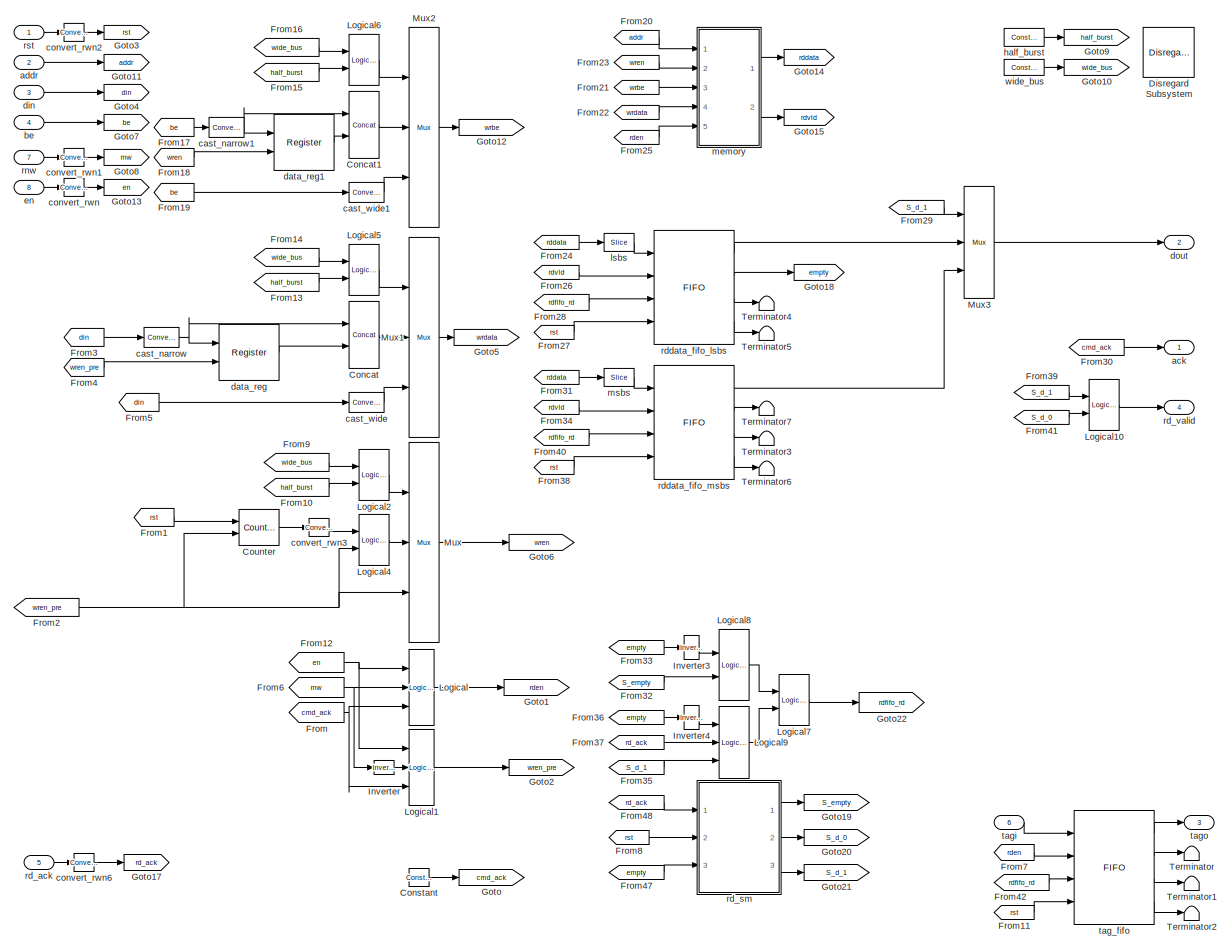
[diagram: dram/sim_wrapper/lesser_dram_sim - part 1/1, most of the canvas]
BLOCK [SubSystem] dram/sim_wrapper/lesser_dram_sim
  FunctionWithSeparateData = off
  MinAlgLoopOccurrences = off
  Ports = [8, 4]
  RTWSystemCode = Auto
BLOCK [Reference] dram/sim_wrapper/lesser_dram_sim/Concat  REF=xbsIndex_r4/Concat
  Ports = [2, 1]
  SID = 68
  SourceBlock = xbsIndex_r4/Concat
  SourceType = Xilinx Bus Concatenator Block
  block_type = concat
  block_version = 10.1.3
  dbl_ovrd = off
  has_advanced_control = 0
  infoedit = Concatenates two or more inputs.  Output will be cast to an unsigned value with the binary point at zero.
  num_inputs = 2
  sg_icon_stat = 30,67,1,1,white,blue,0,df1e5aba,right
  sggui_pos = -1,-1,-1,-1
BLOCK [Reference] dram/sim_wrapper/lesser_dram_sim/Concat1  REF=xbsIndex_r4/Concat
  Ports = [2, 1]
  SID = 69
  SourceBlock = xbsIndex_r4/Concat
  SourceType = Xilinx Bus Concatenator Block
  block_type = concat
  block_version = 10.1.3
  dbl_ovrd = off
  has_advanced_control = 0
  infoedit = Concatenates two or more inputs.  Output will be cast to an unsigned value with the binary point at zero.
  num_inputs = 2
  sg_icon_stat = 30,67,1,1,white,blue,0,df1e5aba,right
  sggui_pos = -1,-1,-1,-1
BLOCK [Reference] dram/sim_wrapper/lesser_dram_sim/Constant  REF=xbsIndex_r4/Constant
  Ports = [0, 1]
  SID = 70
  SourceBlock = xbsIndex_r4/Constant
  SourceType = Xilinx Constant Block Block
  arith_type = Boolean
  bin_pt = 14
  block_type = constant
  block_version = 10.1.3
  carry = CIN
  const = 1
  dbl_ovrd = off
  dsp48_infoedit = The use of this block for DSP48 instructions is deprecated.  Please use the Opmode block.
  equ = P=C
  explicit_period = on
  has_advanced_control = 0
  inp1 = P
  inp2 = PCIN>>17
  n_bits = 16
  opr = +
  opselect = C
  period = 1
  sg_icon_stat = 20,18,1,1,white,blue,0,06094819,right
  sggui_pos = 20,20,400,346
BLOCK [Reference] dram/sim_wrapper/lesser_dram_sim/Counter  REF=xbsIndex_r4/Counter
  Ports = [2, 1]
  SID = 71
  SourceBlock = xbsIndex_r4/Counter
  SourceType = Xilinx Counter Block
  arith_type = Unsigned
  bin_pt = 0
  block_type = counter
  block_version = 10.1.3
  cnt_by_val = 1
  cnt_to = Inf
  cnt_type = Free Running
  dbl_ovrd = off
  en = on
  explicit_period = on
  has_advanced_control = 0
  implementation = Fabric
  infoedit = Hardware notes: Free running counters are the least expensive in hardware.  A count limited counter is implemented by combining a counter with a comparator.
  load_pin = off
  n_bits = 1
  operation = Up
  period = 1
  rst = on
  sg_icon_stat = 40,36,1,1,white,blue,0,46c73e85,right
  sg_mask_display = fprintf('','COMMENT: begin icon graphics');\npatch([0 60 60 0 ],[0 0 60 60 ],[0.77 0.82 0.91]);\npatch([14 4 18 4 14 30 34 38 55 42 29 20 35 20 29 42 55 38 34 30 14 ],[6 16 30 44 54 54 50 54 54 41 54 45 30 15 6 19 6 6 10 6 6 ],[0.98 0.96 0.92]);\nplot([0 60 60 0 0 ],[0 0 60 60 0 ]);\nfprintf('','COMMENT: end icon graphics');\nfprintf('','COMMENT: begin icon text');\ncolor('black');port_label('inpu...<+143ch>
  sggui_pos = 20,20,348,619
  start_count = 0
  use_behavioral_HDL = off
  use_rpm = off
  xl_area = [0,0,0,0,0,0,0]
  xl_use_area = off
BLOCK [Reference] dram/sim_wrapper/lesser_dram_sim/Disregard Subsystem  REF=xbsIndex_r4/Disregard Subsystem
  AttributesFormatString = Disregard Subsystem\\nFor Generation
  Ports = []
  SID = 72
  SourceBlock = xbsIndex_r4/Disregard Subsystem
  SourceType = Xilinx Disregard Subsystem For Generation Block
  Tag = discardX
  block_type = disregard
  block_version = 9.1.01
  has_advanced_control = 0
  sg_icon_stat = 51,50,-1,-1,darkgray,black,0,0,right
  sggui_pos = 20,20,170,217
BLOCK [From] dram/sim_wrapper/lesser_dram_sim/From
  CloseFcn = tagdialog Close
  GotoTag = cmd_ack
BLOCK [From] dram/sim_wrapper/lesser_dram_sim/From1
  CloseFcn = tagdialog Close
  GotoTag = rst
BLOCK [From] dram/sim_wrapper/lesser_dram_sim/From10
  CloseFcn = tagdialog Close
  GotoTag = half_burst
BLOCK [From] dram/sim_wrapper/lesser_dram_sim/From11
  CloseFcn = tagdialog Close
  GotoTag = rst
BLOCK [From] dram/sim_wrapper/lesser_dram_sim/From12
  CloseFcn = tagdialog Close
  GotoTag = en
BLOCK [From] dram/sim_wrapper/lesser_dram_sim/From13
  CloseFcn = tagdialog Close
  GotoTag = half_burst
BLOCK [From] dram/sim_wrapper/lesser_dram_sim/From14
  CloseFcn = tagdialog Close
  GotoTag = wide_bus
BLOCK [From] dram/sim_wrapper/lesser_dram_sim/From15
  CloseFcn = tagdialog Close
  GotoTag = half_burst
BLOCK [From] dram/sim_wrapper/lesser_dram_sim/From16
  CloseFcn = tagdialog Close
  GotoTag = wide_bus
BLOCK [From] dram/sim_wrapper/lesser_dram_sim/From17
  CloseFcn = tagdialog Close
  GotoTag = be
BLOCK [From] dram/sim_wrapper/lesser_dram_sim/From18
  CloseFcn = tagdialog Close
  GotoTag = wren
BLOCK [From] dram/sim_wrapper/lesser_dram_sim/From19
  CloseFcn = tagdialog Close
  GotoTag = be
BLOCK [From] dram/sim_wrapper/lesser_dram_sim/From2
  CloseFcn = tagdialog Close
  GotoTag = wren_pre
BLOCK [From] dram/sim_wrapper/lesser_dram_sim/From20
  CloseFcn = tagdialog Close
  GotoTag = addr
BLOCK [From] dram/sim_wrapper/lesser_dram_sim/From21
  CloseFcn = tagdialog Close
  GotoTag = wrbe
BLOCK [From] dram/sim_wrapper/lesser_dram_sim/From22
  CloseFcn = tagdialog Close
  GotoTag = wrdata
BLOCK [From] dram/sim_wrapper/lesser_dram_sim/From23
  CloseFcn = tagdialog Close
  GotoTag = wren
BLOCK [From] dram/sim_wrapper/lesser_dram_sim/From24
  CloseFcn = tagdialog Close
  GotoTag = rddata
BLOCK [From] dram/sim_wrapper/lesser_dram_sim/From25
  CloseFcn = tagdialog Close
  GotoTag = rden
BLOCK [From] dram/sim_wrapper/lesser_dram_sim/From26
  CloseFcn = tagdialog Close
  GotoTag = rdvld
BLOCK [From] dram/sim_wrapper/lesser_dram_sim/From27
  CloseFcn = tagdialog Close
  GotoTag = rst
BLOCK [From] dram/sim_wrapper/lesser_dram_sim/From28
  CloseFcn = tagdialog Close
  GotoTag = rdfifo_rd
BLOCK [From] dram/sim_wrapper/lesser_dram_sim/From29
  CloseFcn = tagdialog Close
  GotoTag = S_d_1
BLOCK [From] dram/sim_wrapper/lesser_dram_sim/From3
  CloseFcn = tagdialog Close
  GotoTag = din
BLOCK [From] dram/sim_wrapper/lesser_dram_sim/From30
  CloseFcn = tagdialog Close
  GotoTag = cmd_ack
BLOCK [From] dram/sim_wrapper/lesser_dram_sim/From31
  CloseFcn = tagdialog Close
  GotoTag = rddata
BLOCK [From] dram/sim_wrapper/lesser_dram_sim/From32
  CloseFcn = tagdialog Close
  GotoTag = S_empty
BLOCK [From] dram/sim_wrapper/lesser_dram_sim/From33
  CloseFcn = tagdialog Close
  GotoTag = empty
BLOCK [From] dram/sim_wrapper/lesser_dram_sim/From34
  CloseFcn = tagdialog Close
  GotoTag = rdvld
BLOCK [From] dram/sim_wrapper/lesser_dram_sim/From35
  CloseFcn = tagdialog Close
  GotoTag = S_d_1
BLOCK [From] dram/sim_wrapper/lesser_dram_sim/From36
  CloseFcn = tagdialog Close
  GotoTag = empty
BLOCK [From] dram/sim_wrapper/lesser_dram_sim/From37
  CloseFcn = tagdialog Close
  GotoTag = rd_ack
BLOCK [From] dram/sim_wrapper/lesser_dram_sim/From38
  CloseFcn = tagdialog Close
  GotoTag = rst
BLOCK [From] dram/sim_wrapper/lesser_dram_sim/From39
  CloseFcn = tagdialog Close
  GotoTag = S_d_1
BLOCK [From] dram/sim_wrapper/lesser_dram_sim/From4
  CloseFcn = tagdialog Close
  GotoTag = wren_pre
BLOCK [From] dram/sim_wrapper/lesser_dram_sim/From40
  CloseFcn = tagdialog Close
  GotoTag = rdfifo_rd
BLOCK [From] dram/sim_wrapper/lesser_dram_sim/From41
  CloseFcn = tagdialog Close
  GotoTag = S_d_0
BLOCK [From] dram/sim_wrapper/lesser_dram_sim/From42
  CloseFcn = tagdialog Close
  GotoTag = rdfifo_rd
BLOCK [From] dram/sim_wrapper/lesser_dram_sim/From47
  CloseFcn = tagdialog Close
  GotoTag = empty
BLOCK [From] dram/sim_wrapper/lesser_dram_sim/From48
  CloseFcn = tagdialog Close
  GotoTag = rd_ack
BLOCK [From] dram/sim_wrapper/lesser_dram_sim/From5
  CloseFcn = tagdialog Close
  GotoTag = din
BLOCK [From] dram/sim_wrapper/lesser_dram_sim/From6
  CloseFcn = tagdialog Close
  GotoTag = rnw
BLOCK [From] dram/sim_wrapper/lesser_dram_sim/From7
  CloseFcn = tagdialog Close
  GotoTag = rden
BLOCK [From] dram/sim_wrapper/lesser_dram_sim/From8
  CloseFcn = tagdialog Close
  GotoTag = rst
BLOCK [From] dram/sim_wrapper/lesser_dram_sim/From9
  CloseFcn = tagdialog Close
  GotoTag = wide_bus
BLOCK [Goto] dram/sim_wrapper/lesser_dram_sim/Goto
  GotoTag = cmd_ack
  TagVisibility = local
BLOCK [Goto] dram/sim_wrapper/lesser_dram_sim/Goto1
  GotoTag = rden
  TagVisibility = local
BLOCK [Goto] dram/sim_wrapper/lesser_dram_sim/Goto10
  GotoTag = wide_bus
  TagVisibility = local
BLOCK [Goto] dram/sim_wrapper/lesser_dram_sim/Goto11
  GotoTag = addr
  TagVisibility = local
BLOCK [Goto] dram/sim_wrapper/lesser_dram_sim/Goto12
  GotoTag = wrbe
  TagVisibility = local
BLOCK [Goto] dram/sim_wrapper/lesser_dram_sim/Goto13
  GotoTag = en
  TagVisibility = local
BLOCK [Goto] dram/sim_wrapper/lesser_dram_sim/Goto14
  GotoTag = rddata
  TagVisibility = local
BLOCK [Goto] dram/sim_wrapper/lesser_dram_sim/Goto15
  GotoTag = rdvld
  TagVisibility = local
BLOCK [Goto] dram/sim_wrapper/lesser_dram_sim/Goto17
  GotoTag = rd_ack
  TagVisibility = local
BLOCK [Goto] dram/sim_wrapper/lesser_dram_sim/Goto18
  GotoTag = empty
  TagVisibility = local
BLOCK [Goto] dram/sim_wrapper/lesser_dram_sim/Goto19
  GotoTag = S_empty
  TagVisibility = local
BLOCK [Goto] dram/sim_wrapper/lesser_dram_sim/Goto2
  GotoTag = wren_pre
  TagVisibility = local
BLOCK [Goto] dram/sim_wrapper/lesser_dram_sim/Goto20
  GotoTag = S_d_0
  TagVisibility = local
BLOCK [Goto] dram/sim_wrapper/lesser_dram_sim/Goto21
  GotoTag = S_d_1
  TagVisibility = local
BLOCK [Goto] dram/sim_wrapper/lesser_dram_sim/Goto22
  GotoTag = rdfifo_rd
  TagVisibility = local
BLOCK [Goto] dram/sim_wrapper/lesser_dram_sim/Goto3
  GotoTag = rst
  TagVisibility = local
BLOCK [Goto] dram/sim_wrapper/lesser_dram_sim/Goto4
  GotoTag = din
  TagVisibility = local
BLOCK [Goto] dram/sim_wrapper/lesser_dram_sim/Goto5
  GotoTag = wrdata
  TagVisibility = local
BLOCK [Goto] dram/sim_wrapper/lesser_dram_sim/Goto6
  GotoTag = wren
  TagVisibility = local
BLOCK [Goto] dram/sim_wrapper/lesser_dram_sim/Goto7
  GotoTag = be
  TagVisibility = local
BLOCK [Goto] dram/sim_wrapper/lesser_dram_sim/Goto8
  GotoTag = rnw
  TagVisibility = local
BLOCK [Goto] dram/sim_wrapper/lesser_dram_sim/Goto9
  GotoTag = half_burst
  TagVisibility = local
BLOCK [Reference] dram/sim_wrapper/lesser_dram_sim/Inverter  REF=xbsIndex_r4/Inverter
  Ports = [1, 1]
  SID = 140
  SourceBlock = xbsIndex_r4/Inverter
  SourceType = Xilinx Inverter Block
  block_type = inv
  block_version = 10.1.3
  dbl_ovrd = off
  en = off
  has_advanced_control = 0
  infoedit = Bitwise logical negation (one's complement) operator.
  latency = 0
  sg_icon_stat = 20,14,1,1,white,blue,0,1ab4a85f,right
  sggui_pos = -1,-1,-1,-1
  xl_area = [0,0,0,0,0,0,0]
  xl_use_area = off
BLOCK [Reference] dram/sim_wrapper/lesser_dram_sim/Inverter3  REF=xbsIndex_r4/Inverter
  Ports = [1, 1]
  SID = 141
  SourceBlock = xbsIndex_r4/Inverter
  SourceType = Xilinx Inverter Block
  block_type = inv
  block_version = 10.1.3
  dbl_ovrd = off
  en = off
  has_advanced_control = 0
  infoedit = Bitwise logical negation (one's complement) operator.
  latency = 0
  sg_icon_stat = 15,24,1,1,white,blue,0,1ab4a85f,right
  sggui_pos = 20,20,348,251
  xl_area = [0,0,0,0,0,0,0]
  xl_use_area = off
BLOCK [Reference] dram/sim_wrapper/lesser_dram_sim/Inverter4  REF=xbsIndex_r4/Inverter
  Ports = [1, 1]
  SID = 142
  SourceBlock = xbsIndex_r4/Inverter
  SourceType = Xilinx Inverter Block
  block_type = inv
  block_version = 10.1.3
  dbl_ovrd = off
  en = off
  has_advanced_control = 0
  infoedit = Bitwise logical negation (one's complement) operator.
  latency = 0
  sg_icon_stat = 15,24,1,1,white,blue,0,1ab4a85f,right
  sggui_pos = 20,20,348,251
  xl_area = [0,0,0,0,0,0,0]
  xl_use_area = off
BLOCK [Reference] dram/sim_wrapper/lesser_dram_sim/Logical  REF=xbsIndex_r4/Logical
  Ports = [3, 1]
  SID = 143
  SourceBlock = xbsIndex_r4/Logical
  SourceType = Xilinx Logical Block Block
  align_bp = on
  arith_type = Unsigned
  bin_pt = 0
  block_type = logical
  block_version = 10.1.3
  dbl_ovrd = off
  en = off
  has_advanced_control = 0
  inputs = 3
  latency = 0
  logical_function = AND
  n_bits = 16
  precision = Full
  sg_icon_stat = 25,76,1,1,white,blue,0,5c2bfaa2,right
  sggui_pos = 20,20,348,261
  xl_area = [0,0,0,0,0,0,0]
  xl_use_area = off
BLOCK [Reference] dram/sim_wrapper/lesser_dram_sim/Logical1  REF=xbsIndex_r4/Logical
  Ports = [3, 1]
  SID = 144
  SourceBlock = xbsIndex_r4/Logical
  SourceType = Xilinx Logical Block Block
  align_bp = on
  arith_type = Unsigned
  bin_pt = 0
  block_type = logical
  block_version = 10.1.3
  dbl_ovrd = off
  en = off
  has_advanced_control = 0
  inputs = 3
  latency = 0
  logical_function = AND
  n_bits = 16
  precision = Full
  sg_icon_stat = 25,76,1,1,white,blue,0,5c2bfaa2,right
  sggui_pos = 20,20,348,261
  xl_area = [0,0,0,0,0,0,0]
  xl_use_area = off
BLOCK [Reference] dram/sim_wrapper/lesser_dram_sim/Logical10  REF=xbsIndex_r4/Logical
  Ports = [2, 1]
  SID = 145
  SourceBlock = xbsIndex_r4/Logical
  SourceType = Xilinx Logical Block Block
  align_bp = on
  arith_type = Unsigned
  bin_pt = 0
  block_type = logical
  block_version = 10.1.3
  dbl_ovrd = off
  en = off
  has_advanced_control = 0
  inputs = 2
  latency = 0
  logical_function = OR
  n_bits = 16
  precision = Full
  sg_icon_stat = 30,51,1,1,white,blue,0,f4a65842,right
  sggui_pos = 20,20,348,261
  xl_area = [0,0,0,0,0,0,0]
  xl_use_area = off
BLOCK [Reference] dram/sim_wrapper/lesser_dram_sim/Logical2  REF=xbsIndex_r4/Logical
  Ports = [2, 1]
  SID = 146
  SourceBlock = xbsIndex_r4/Logical
  SourceType = Xilinx Logical Block Block
  align_bp = on
  arith_type = Unsigned
  bin_pt = 0
  block_type = logical
  block_version = 10.1.3
  dbl_ovrd = off
  en = off
  has_advanced_control = 0
  inputs = 2
  latency = 0
  logical_function = OR
  n_bits = 16
  precision = Full
  sg_icon_stat = 30,51,1,1,white,blue,0,f4a65842,right
  sggui_pos = 20,20,348,261
  xl_area = [0,0,0,0,0,0,0]
  xl_use_area = off
BLOCK [Reference] dram/sim_wrapper/lesser_dram_sim/Logical4  REF=xbsIndex_r4/Logical
  Ports = [2, 1]
  SID = 147
  SourceBlock = xbsIndex_r4/Logical
  SourceType = Xilinx Logical Block Block
  align_bp = on
  arith_type = Unsigned
  bin_pt = 0
  block_type = logical
  block_version = 10.1.3
  dbl_ovrd = off
  en = off
  has_advanced_control = 0
  inputs = 2
  latency = 0
  logical_function = AND
  n_bits = 16
  precision = Full
  sg_icon_stat = 30,51,1,1,white,blue,0,087b5522,right
  sggui_pos = 20,20,348,261
  xl_area = [0,0,0,0,0,0,0]
  xl_use_area = off
BLOCK [Reference] dram/sim_wrapper/lesser_dram_sim/Logical5  REF=xbsIndex_r4/Logical
  Ports = [2, 1]
  SID = 148
  SourceBlock = xbsIndex_r4/Logical
  SourceType = Xilinx Logical Block Block
  align_bp = on
  arith_type = Unsigned
  bin_pt = 0
  block_type = logical
  block_version = 10.1.3
  dbl_ovrd = off
  en = off
  has_advanced_control = 0
  inputs = 2
  latency = 0
  logical_function = OR
  n_bits = 16
  precision = Full
  sg_icon_stat = 30,51,1,1,white,blue,0,f4a65842,right
  sggui_pos = 20,20,348,261
  xl_area = [0,0,0,0,0,0,0]
  xl_use_area = off
BLOCK [Reference] dram/sim_wrapper/lesser_dram_sim/Logical6  REF=xbsIndex_r4/Logical
  Ports = [2, 1]
  SID = 149
  SourceBlock = xbsIndex_r4/Logical
  SourceType = Xilinx Logical Block Block
  align_bp = on
  arith_type = Unsigned
  bin_pt = 0
  block_type = logical
  block_version = 10.1.3
  dbl_ovrd = off
  en = off
  has_advanced_control = 0
  inputs = 2
  latency = 0
  logical_function = OR
  n_bits = 16
  precision = Full
  sg_icon_stat = 30,51,1,1,white,blue,0,f4a65842,right
  sggui_pos = 20,20,348,261
  xl_area = [0,0,0,0,0,0,0]
  xl_use_area = off
BLOCK [Reference] dram/sim_wrapper/lesser_dram_sim/Logical7  REF=xbsIndex_r4/Logical
  Ports = [2, 1]
  SID = 150
  SourceBlock = xbsIndex_r4/Logical
  SourceType = Xilinx Logical Block Block
  align_bp = on
  arith_type = Unsigned
  bin_pt = 0
  block_type = logical
  block_version = 10.1.3
  dbl_ovrd = off
  en = off
  has_advanced_control = 0
  inputs = 2
  latency = 0
  logical_function = OR
  n_bits = 16
  precision = Full
  sg_icon_stat = 30,51,1,1,white,blue,0,f4a65842,right
  sggui_pos = 20,20,348,261
  xl_area = [0,0,0,0,0,0,0]
  xl_use_area = off
BLOCK [Reference] dram/sim_wrapper/lesser_dram_sim/Logical8  REF=xbsIndex_r4/Logical
  Ports = [2, 1]
  SID = 151
  SourceBlock = xbsIndex_r4/Logical
  SourceType = Xilinx Logical Block Block
  align_bp = on
  arith_type = Unsigned
  bin_pt = 0
  block_type = logical
  block_version = 10.1.3
  dbl_ovrd = off
  en = off
  has_advanced_control = 0
  inputs = 2
  latency = 0
  logical_function = AND
  n_bits = 16
  precision = Full
  sg_icon_stat = 30,71,1,1,white,blue,0,087b5522,right
  sggui_pos = 20,20,348,261
  xl_area = [0,0,0,0,0,0,0]
  xl_use_area = off
BLOCK [Reference] dram/sim_wrapper/lesser_dram_sim/Logical9  REF=xbsIndex_r4/Logical
  Ports = [3, 1]
  SID = 152
  SourceBlock = xbsIndex_r4/Logical
  SourceType = Xilinx Logical Block Block
  align_bp = on
  arith_type = Unsigned
  bin_pt = 0
  block_type = logical
  block_version = 10.1.3
  dbl_ovrd = off
  en = off
  has_advanced_control = 0
  inputs = 3
  latency = 0
  logical_function = AND
  n_bits = 16
  precision = Full
  sg_icon_stat = 30,72,1,1,white,blue,0,5c2bfaa2,right
  sg_mask_display = fprintf('','COMMENT: begin icon graphics');\npatch([0 30 30 0 ],[0 0 72 72 ],[0.77 0.82 0.91]);\npatch([7 2 9 2 7 15 17 19 27 20 14 9 15 9 14 20 27 19 17 15 7 ],[24 29 36 43 48 48 46 48 48 41 47 42 36 30 25 31 24 24 26 24 24 ],[0.98 0.96 0.92]);\nplot([0 30 30 0 0 ],[0 0 72 72 0 ]);\nfprintf('','COMMENT: end icon graphics');\nfprintf('','COMMENT: begin icon text');\ncolor('black');disp('\\newlinea...<+76ch>
  sggui_pos = 20,20,348,261
  xl_area = [0,0,0,0,0,0,0]
  xl_use_area = off
BLOCK [Reference] dram/sim_wrapper/lesser_dram_sim/Mux  REF=xbsIndex_r4/Mux
  Ports = [3, 1]
  SID = 153
  SourceBlock = xbsIndex_r4/Mux
  SourceType = Xilinx Bus Multiplexer Block
  arith_type = Unsigned
  bin_pt = 14
  block_type = mux
  block_version = 10.1.3
  dbl_ovrd = off
  en = off
  has_advanced_control = 0
  inputs = 2
  latency = 0
  n_bits = 16
  overflow = Wrap
  precision = Full
  quantization = Truncate
  sg_icon_stat = 30,200,1,1,white,blue,3,613f58e1,right
  sggui_pos = -1,-1,-1,-1
  xl_area = [0,0,0,0,0,0,0]
  xl_use_area = off
BLOCK [Reference] dram/sim_wrapper/lesser_dram_sim/Mux1  REF=xbsIndex_r4/Mux
  Ports = [3, 1]
  SID = 154
  SourceBlock = xbsIndex_r4/Mux
  SourceType = Xilinx Bus Multiplexer Block
  arith_type = Unsigned
  bin_pt = 14
  block_type = mux
  block_version = 10.1.3
  dbl_ovrd = off
  en = off
  has_advanced_control = 0
  inputs = 2
  latency = 0
  n_bits = 16
  overflow = Wrap
  precision = Full
  quantization = Truncate
  sg_icon_stat = 30,200,1,1,white,blue,3,613f58e1,right
  sggui_pos = -1,-1,-1,-1
  xl_area = [0,0,0,0,0,0,0]
  xl_use_area = off
BLOCK [Reference] dram/sim_wrapper/lesser_dram_sim/Mux2  REF=xbsIndex_r4/Mux
  Ports = [3, 1]
  SID = 155
  SourceBlock = xbsIndex_r4/Mux
  SourceType = Xilinx Bus Multiplexer Block
  arith_type = Unsigned
  bin_pt = 14
  block_type = mux
  block_version = 10.1.3
  dbl_ovrd = off
  en = off
  has_advanced_control = 0
  inputs = 2
  latency = 0
  n_bits = 16
  overflow = Wrap
  precision = Full
  quantization = Truncate
  sg_icon_stat = 30,200,1,1,white,blue,3,613f58e1,right
  sggui_pos = -1,-1,-1,-1
  xl_area = [0,0,0,0,0,0,0]
  xl_use_area = off
BLOCK [Reference] dram/sim_wrapper/lesser_dram_sim/Mux3  REF=xbsIndex_r4/Mux
  Ports = [3, 1]
  SID = 156
  SourceBlock = xbsIndex_r4/Mux
  SourceType = Xilinx Bus Multiplexer Block
  arith_type = Unsigned
  bin_pt = 14
  block_type = mux
  block_version = 10.1.3
  dbl_ovrd = off
  en = off
  has_advanced_control = 0
  inputs = 2
  latency = 0
  n_bits = 16
  overflow = Wrap
  precision = Full
  quantization = Truncate
  sg_icon_stat = 30,112,1,1,white,blue,3,613f58e1,right
  sggui_pos = 20,20,348,303
  xl_area = [0,0,0,0,0,0,0]
  xl_use_area = off
BLOCK [Terminator] dram/sim_wrapper/lesser_dram_sim/Terminator
BLOCK [Terminator] dram/sim_wrapper/lesser_dram_sim/Terminator1
BLOCK [Terminator] dram/sim_wrapper/lesser_dram_sim/Terminator2
BLOCK [Terminator] dram/sim_wrapper/lesser_dram_sim/Terminator3
BLOCK [Terminator] dram/sim_wrapper/lesser_dram_sim/Terminator4
BLOCK [Terminator] dram/sim_wrapper/lesser_dram_sim/Terminator5
BLOCK [Terminator] dram/sim_wrapper/lesser_dram_sim/Terminator6
BLOCK [Terminator] dram/sim_wrapper/lesser_dram_sim/Terminator7
BLOCK [Outport] dram/sim_wrapper/lesser_dram_sim/ack
  IconDisplay = Port number
BLOCK [Inport] dram/sim_wrapper/lesser_dram_sim/addr
  IconDisplay = Port number
  Port = 2
BLOCK [Inport] dram/sim_wrapper/lesser_dram_sim/be
  IconDisplay = Port number
  Port = 4
BLOCK [Reference] dram/sim_wrapper/lesser_dram_sim/cast_narrow  REF=xbsIndex_r4/Convert
  Ports = [1, 1]
  SID = 165
  SourceBlock = xbsIndex_r4/Convert
  SourceType = Xilinx Type Converter Block
  arith_type = Unsigned
  bin_pt = 0
  block_type = convert
  block_version = 9.1.01
  dbl_ovrd = off
  has_advanced_control = 0
  infoedit = Hardware notes: rounding and saturating require hardware resources; truncating and wrapping do not.
  latency = 0
  n_bits = 144
  overflow = Wrap
  pipeline = off
  quantization = Truncate
  sg_icon_stat = 35,20,1,1,white,blue,0,74901e60,right
  sggui_pos = 20,20,461,334
  xl_area = [0, 0, 0, 0, 0, 0, 0]
  xl_use_area = off
BLOCK [Reference] dram/sim_wrapper/lesser_dram_sim/cast_narrow1  REF=xbsIndex_r4/Convert
  Ports = [1, 1]
  SID = 166
  SourceBlock = xbsIndex_r4/Convert
  SourceType = Xilinx Type Converter Block
  arith_type = Unsigned
  bin_pt = 0
  block_type = convert
  block_version = 9.1.01
  dbl_ovrd = off
  has_advanced_control = 0
  infoedit = Hardware notes: rounding and saturating require hardware resources; truncating and wrapping do not.
  latency = 0
  n_bits = 18
  overflow = Wrap
  pipeline = off
  quantization = Truncate
  sg_icon_stat = 35,20,1,1,white,blue,0,74901e60,right
  sggui_pos = 20,20,461,334
  xl_area = [0, 0, 0, 0, 0, 0, 0]
  xl_use_area = off
BLOCK [Reference] dram/sim_wrapper/lesser_dram_sim/cast_wide  REF=xbsIndex_r4/Convert
  Ports = [1, 1]
  SID = 167
  SourceBlock = xbsIndex_r4/Convert
  SourceType = Xilinx Type Converter Block
  arith_type = Unsigned
  bin_pt = 0
  block_type = convert
  block_version = 9.1.01
  dbl_ovrd = off
  has_advanced_control = 0
  infoedit = Hardware notes: rounding and saturating require hardware resources; truncating and wrapping do not.
  latency = 0
  n_bits = 288
  overflow = Wrap
  pipeline = off
  quantization = Truncate
  sg_icon_stat = 35,20,1,1,white,blue,0,74901e60,right
  sggui_pos = 20,20,461,334
  xl_area = [0, 0, 0, 0, 0, 0, 0]
  xl_use_area = off
BLOCK [Reference] dram/sim_wrapper/lesser_dram_sim/cast_wide1  REF=xbsIndex_r4/Convert
  Ports = [1, 1]
  SID = 168
  SourceBlock = xbsIndex_r4/Convert
  SourceType = Xilinx Type Converter Block
  arith_type = Unsigned
  bin_pt = 0
  block_type = convert
  block_version = 9.1.01
  dbl_ovrd = off
  has_advanced_control = 0
  infoedit = Hardware notes: rounding and saturating require hardware resources; truncating and wrapping do not.
  latency = 0
  n_bits = 36
  overflow = Wrap
  pipeline = off
  quantization = Truncate
  sg_icon_stat = 35,20,1,1,white,blue,0,74901e60,right
  sggui_pos = 20,20,461,334
  xl_area = [0, 0, 0, 0, 0, 0, 0]
  xl_use_area = off
BLOCK [Reference] dram/sim_wrapper/lesser_dram_sim/convert_rwn  REF=xbsIndex_r4/Convert
  Ports = [1, 1]
  SID = 169
  SourceBlock = xbsIndex_r4/Convert
  SourceType = Xilinx Type Converter Block
  arith_type = Boolean
  bin_pt = 0
  block_type = convert
  block_version = 9.1.01
  dbl_ovrd = off
  has_advanced_control = 0
  infoedit = Hardware notes: rounding and saturating require hardware resources; truncating and wrapping do not.
  latency = 0
  n_bits = 1
  overflow = Wrap
  pipeline = off
  quantization = Truncate
  sg_icon_stat = 20,18,1,1,white,blue,0,74901e60,right
  sggui_pos = 20,20,461,334
  xl_area = [0, 0, 0, 0, 0, 0, 0]
  xl_use_area = off
BLOCK [Reference] dram/sim_wrapper/lesser_dram_sim/convert_rwn1  REF=xbsIndex_r4/Convert
  Ports = [1, 1]
  SID = 170
  SourceBlock = xbsIndex_r4/Convert
  SourceType = Xilinx Type Converter Block
  arith_type = Boolean
  bin_pt = 0
  block_type = convert
  block_version = 9.1.01
  dbl_ovrd = off
  has_advanced_control = 0
  infoedit = Hardware notes: rounding and saturating require hardware resources; truncating and wrapping do not.
  latency = 0
  n_bits = 1
  overflow = Wrap
  pipeline = off
  quantization = Truncate
  sg_icon_stat = 20,18,1,1,white,blue,0,74901e60,right
  sggui_pos = 20,20,461,334
  xl_area = [0, 0, 0, 0, 0, 0, 0]
  xl_use_area = off
BLOCK [Reference] dram/sim_wrapper/lesser_dram_sim/convert_rwn2  REF=xbsIndex_r4/Convert
  Ports = [1, 1]
  SID = 171
  SourceBlock = xbsIndex_r4/Convert
  SourceType = Xilinx Type Converter Block
  arith_type = Boolean
  bin_pt = 0
  block_type = convert
  block_version = 9.1.01
  dbl_ovrd = off
  has_advanced_control = 0
  infoedit = Hardware notes: rounding and saturating require hardware resources; truncating and wrapping do not.
  latency = 0
  n_bits = 1
  overflow = Wrap
  pipeline = off
  quantization = Truncate
  sg_icon_stat = 20,18,1,1,white,blue,0,74901e60,right
  sggui_pos = 20,20,461,334
  xl_area = [0, 0, 0, 0, 0, 0, 0]
  xl_use_area = off
BLOCK [Reference] dram/sim_wrapper/lesser_dram_sim/convert_rwn3  REF=xbsIndex_r4/Convert
  Ports = [1, 1]
  SID = 172
  SourceBlock = xbsIndex_r4/Convert
  SourceType = Xilinx Type Converter Block
  arith_type = Boolean
  bin_pt = 0
  block_type = convert
  block_version = 9.1.01
  dbl_ovrd = off
  has_advanced_control = 0
  infoedit = Hardware notes: rounding and saturating require hardware resources; truncating and wrapping do not.
  latency = 0
  n_bits = 1
  overflow = Wrap
  pipeline = off
  quantization = Truncate
  sg_icon_stat = 20,18,1,1,white,blue,0,74901e60,right
  sggui_pos = 20,20,461,334
  xl_area = [0, 0, 0, 0, 0, 0, 0]
  xl_use_area = off
BLOCK [Reference] dram/sim_wrapper/lesser_dram_sim/convert_rwn6  REF=xbsIndex_r4/Convert
  Ports = [1, 1]
  SID = 173
  SourceBlock = xbsIndex_r4/Convert
  SourceType = Xilinx Type Converter Block
  arith_type = Boolean
  bin_pt = 0
  block_type = convert
  block_version = 9.1.01
  dbl_ovrd = off
  has_advanced_control = 0
  infoedit = Hardware notes: rounding and saturating require hardware resources; truncating and wrapping do not.
  latency = 0
  n_bits = 1
  overflow = Wrap
  pipeline = off
  quantization = Truncate
  sg_icon_stat = 20,18,1,1,white,blue,0,74901e60,right
  sggui_pos = 20,20,461,334
  xl_area = [0, 0, 0, 0, 0, 0, 0]
  xl_use_area = off
BLOCK [Reference] dram/sim_wrapper/lesser_dram_sim/data_reg  REF=xbsIndex_r4/Register
  Ports = [2, 1]
  SID = 174
  SourceBlock = xbsIndex_r4/Register
  SourceType = Xilinx Register Block
  block_type = register
  block_version = 10.1.3
  dbl_ovrd = off
  en = on
  has_advanced_control = 0
  init = 0
  rst = off
  sg_icon_stat = 60,56,1,1,white,blue,0,cc3303a0,right
  sg_mask_display = fprintf('','COMMENT: begin icon graphics');\npatch([0 60 60 0 ],[0 0 56 56 ],[0.77 0.82 0.91]);\npatch([15 6 19 6 15 30 34 38 54 41 29 20 32 20 29 41 54 38 34 30 15 ],[6 15 28 41 50 50 46 50 50 37 49 40 28 16 7 19 6 6 10 6 6 ],[0.98 0.96 0.92]);\nplot([0 60 60 0 0 ],[0 0 56 56 0 ]);\nfprintf('','COMMENT: end icon graphics');\nfprintf('','COMMENT: begin icon text');\ncolor('black');port_label('inpu...<+192ch>
  sggui_pos = 20,20,348,193
  xl_area = [0,0,0,0,0,0,0]
  xl_use_area = off
BLOCK [Reference] dram/sim_wrapper/lesser_dram_sim/data_reg1  REF=xbsIndex_r4/Register
  Ports = [2, 1]
  SID = 175
  SourceBlock = xbsIndex_r4/Register
  SourceType = Xilinx Register Block
  block_type = register
  block_version = 10.1.3
  dbl_ovrd = off
  en = on
  has_advanced_control = 0
  init = 0
  rst = off
  sg_icon_stat = 60,56,1,1,white,blue,0,cc3303a0,right
  sg_mask_display = fprintf('','COMMENT: begin icon graphics');\npatch([0 60 60 0 ],[0 0 56 56 ],[0.77 0.82 0.91]);\npatch([15 6 19 6 15 30 34 38 54 41 29 20 32 20 29 41 54 38 34 30 15 ],[6 15 28 41 50 50 46 50 50 37 49 40 28 16 7 19 6 6 10 6 6 ],[0.98 0.96 0.92]);\nplot([0 60 60 0 0 ],[0 0 56 56 0 ]);\nfprintf('','COMMENT: end icon graphics');\nfprintf('','COMMENT: begin icon text');\ncolor('black');port_label('inpu...<+192ch>
  sggui_pos = 20,20,348,193
  xl_area = [0,0,0,0,0,0,0]
  xl_use_area = off
BLOCK [Inport] dram/sim_wrapper/lesser_dram_sim/din
  IconDisplay = Port number
  Port = 3
BLOCK [Outport] dram/sim_wrapper/lesser_dram_sim/dout
  IconDisplay = Port number
  Port = 2
BLOCK [Inport] dram/sim_wrapper/lesser_dram_sim/en
  IconDisplay = Port number
  Port = 8
BLOCK [Reference] dram/sim_wrapper/lesser_dram_sim/half_burst  REF=xbsIndex_r4/Constant
  Ports = [0, 1]
  SID = 176
  SourceBlock = xbsIndex_r4/Constant
  SourceType = Xilinx Constant Block Block
  arith_type = Boolean
  bin_pt = 14
  block_type = constant
  block_version = 10.1.3
  carry = CIN
  const = 0
  dbl_ovrd = off
  dsp48_infoedit = The use of this block for DSP48 instructions is deprecated.  Please use the Opmode block.
  equ = P=C
  explicit_period = on
  has_advanced_control = 0
  inp1 = P
  inp2 = PCIN>>17
  n_bits = 16
  opr = +
  opselect = C
  period = 1
  sg_icon_stat = 40,18,1,1,white,blue,0,72d575a1,right
  sggui_pos = 20,20,400,346
BLOCK [Reference] dram/sim_wrapper/lesser_dram_sim/lsbs  REF=xbsIndex_r4/Slice
  Ports = [1, 1]
  SID = 177
  SourceBlock = xbsIndex_r4/Slice
  SourceType = Xilinx Bit Slice Extractor Block
  base0 = LSB of Input
  base1 = MSB of Input
  bit0 = 0
  bit1 = 0
  block_type = slice
  block_version = 10.1.3
  boolean_output = off
  dbl_ovrd = off
  has_advanced_control = 0
  mode = Lower Bit Location + Width
  nbits = 144
  sg_icon_stat = 30,18,1,1,white,blue,0,b1026674,right
  sggui_pos = 20,20,449,376
BLOCK [SubSystem] dram/sim_wrapper/lesser_dram_sim/memory
  FunctionWithSeparateData = off
  MinAlgLoopOccurrences = off
  Ports = [5, 2]
  RTWSystemCode = Auto
BLOCK [Reference] dram/sim_wrapper/lesser_dram_sim/memory/Delay  REF=xbsIndex_r4/Delay
  Ports = [1, 1]
  SID = 184
  SourceBlock = xbsIndex_r4/Delay
  SourceType = Xilinx Delay Block
  block_type = delay
  block_version = 10.1.3
  dbl_ovrd = off
  en = off
  has_advanced_control = 0
  infoedit = Hardware notes: A delay line is a chain, each link of which is an SRL16 followed by a flip-flop.
  latency = 1
  reg_retiming = off
  sg_icon_stat = 20,18,1,1,white,blue,0,fc531c0e,right
  sggui_pos = -1,-1,-1,-1
  xl_area = [0,0,0,0,0,0,0]
  xl_use_area = off
BLOCK [Reference] dram/sim_wrapper/lesser_dram_sim/memory/Delay1  REF=xbsIndex_r4/Delay
  Ports = [1, 1]
  SID = 185
  SourceBlock = xbsIndex_r4/Delay
  SourceType = Xilinx Delay Block
  block_type = delay
  block_version = 10.1.3
  dbl_ovrd = off
  en = off
  has_advanced_control = 0
  infoedit = Hardware notes: A delay line is a chain, each link of which is an SRL16 followed by a flip-flop.
  latency = 7
  reg_retiming = off
  sg_icon_stat = 20,20,1,1,white,blue,0,4c76d8d2,right
  sg_mask_display = fprintf('','COMMENT: begin icon graphics');\npatch([0 60 60 0 ],[0 0 56 56 ],[0.77 0.82 0.91]);\npatch([15 6 19 6 15 30 34 38 54 41 29 20 32 20 29 41 54 38 34 30 15 ],[6 15 28 41 50 50 46 50 50 37 49 40 28 16 7 19 6 6 10 6 6 ],[0.98 0.96 0.92]);\nplot([0 60 60 0 0 ],[0 0 56 56 0 ]);\nfprintf('','COMMENT: end icon graphics');\nfprintf('','COMMENT: begin icon text');\ncolor('black');disp('z^{-7}','t...<+55ch>
  sggui_pos = 20,20,348,255
  xl_area = [0,0,0,0,0,0,0]
  xl_use_area = off
BLOCK [Reference] dram/sim_wrapper/lesser_dram_sim/memory/Delay2  REF=xbsIndex_r4/Delay
  Ports = [1, 1]
  SID = 186
  SourceBlock = xbsIndex_r4/Delay
  SourceType = Xilinx Delay Block
  block_type = delay
  block_version = 10.1.3
  dbl_ovrd = off
  en = off
  has_advanced_control = 0
  infoedit = Hardware notes: A delay line is a chain, each link of which is an SRL16 followed by a flip-flop.
  latency = 7
  reg_retiming = off
  sg_icon_stat = 20,20,1,1,white,blue,0,4c76d8d2,right
  sg_mask_display = fprintf('','COMMENT: begin icon graphics');\npatch([0 60 60 0 ],[0 0 56 56 ],[0.77 0.82 0.91]);\npatch([15 6 19 6 15 30 34 38 54 41 29 20 32 20 29 41 54 38 34 30 15 ],[6 15 28 41 50 50 46 50 50 37 49 40 28 16 7 19 6 6 10 6 6 ],[0.98 0.96 0.92]);\nplot([0 60 60 0 0 ],[0 0 56 56 0 ]);\nfprintf('','COMMENT: end icon graphics');\nfprintf('','COMMENT: begin icon text');\ncolor('black');disp('z^{-7}','t...<+55ch>
  sggui_pos = 20,20,348,255
  xl_area = [0,0,0,0,0,0,0]
  xl_use_area = off
BLOCK [Reference] dram/sim_wrapper/lesser_dram_sim/memory/Disregard Subsystem  REF=xbsIndex_r4/Disregard Subsystem
  AttributesFormatString = Disregard Subsystem\\nFor Generation
  Ports = []
  SID = 187
  SourceBlock = xbsIndex_r4/Disregard Subsystem
  SourceType = Xilinx Disregard Subsystem For Generation Block
  Tag = discardX
  block_type = disregard
  block_version = 9.1.01
  has_advanced_control = 0
  sg_icon_stat = 51,50,-1,-1,darkgray,black,0,0,right
  sggui_pos = 20,20,170,217
BLOCK [From] dram/sim_wrapper/lesser_dram_sim/memory/From4
  CloseFcn = tagdialog Close
  GotoTag = r
BLOCK [Goto] dram/sim_wrapper/lesser_dram_sim/memory/Goto1
  GotoTag = b
  TagVisibility = local
BLOCK [Goto] dram/sim_wrapper/lesser_dram_sim/memory/Goto3
  GotoTag = r
  TagVisibility = local
BLOCK [Inport] dram/sim_wrapper/lesser_dram_sim/memory/addr
  IconDisplay = Port number
BLOCK [Reference] dram/sim_wrapper/lesser_dram_sim/memory/cast_narrow1  REF=xbsIndex_r4/Convert
  Ports = [1, 1]
  SID = 191
  SourceBlock = xbsIndex_r4/Convert
  SourceType = Xilinx Type Converter Block
  arith_type = Unsigned
  bin_pt = 0
  block_type = convert
  block_version = 9.1.01
  dbl_ovrd = off
  has_advanced_control = 0
  infoedit = Hardware notes: rounding and saturating require hardware resources; truncating and wrapping do not.
  latency = 0
  n_bits = 36
  overflow = Wrap
  pipeline = off
  quantization = Truncate
  sg_icon_stat = 35,20,1,1,white,blue,0,74901e60,right
  sggui_pos = 20,20,461,334
  xl_area = [0, 0, 0, 0, 0, 0, 0]
  xl_use_area = off
BLOCK [Reference] dram/sim_wrapper/lesser_dram_sim/memory/cast_narrow2  REF=xbsIndex_r4/Convert
  Ports = [1, 1]
  SID = 192
  SourceBlock = xbsIndex_r4/Convert
  SourceType = Xilinx Type Converter Block
  arith_type = Unsigned
  bin_pt = 0
  block_type = convert
  block_version = 9.1.01
  dbl_ovrd = off
  has_advanced_control = 0
  infoedit = Hardware notes: rounding and saturating require hardware resources; truncating and wrapping do not.
  latency = 0
  n_bits = 288
  overflow = Wrap
  pipeline = off
  quantization = Truncate
  sg_icon_stat = 35,20,1,1,white,blue,0,74901e60,right
  sggui_pos = 20,20,461,334
  xl_area = [0, 0, 0, 0, 0, 0, 0]
  xl_use_area = off
BLOCK [Reference] dram/sim_wrapper/lesser_dram_sim/memory/cast_narrow3  REF=xbsIndex_r4/Convert
  Ports = [1, 1]
  SID = 193
  SourceBlock = xbsIndex_r4/Convert
  SourceType = Xilinx Type Converter Block
  arith_type = Unsigned
  bin_pt = 0
  block_type = convert
  block_version = 9.1.01
  dbl_ovrd = off
  has_advanced_control = 0
  infoedit = Hardware notes: rounding and saturating require hardware resources; truncating and wrapping do not.
  latency = 0
  n_bits = 288
  overflow = Wrap
  pipeline = off
  quantization = Truncate
  sg_icon_stat = 25,18,1,1,white,blue,0,74901e60,right
  sggui_pos = 20,20,461,334
  xl_area = [0, 0, 0, 0, 0, 0, 0]
  xl_use_area = off
BLOCK [Reference] dram/sim_wrapper/lesser_dram_sim/memory/cast_narrow4  REF=xbsIndex_r4/Convert
  Ports = [1, 1]
  SID = 194
  SourceBlock = xbsIndex_r4/Convert
  SourceType = Xilinx Type Converter Block
  arith_type = Unsigned
  bin_pt = 0
  block_type = convert
  block_version = 9.1.01
  dbl_ovrd = off
  has_advanced_control = 0
  infoedit = Hardware notes: rounding and saturating require hardware resources; truncating and wrapping do not.
  latency = 0
  n_bits = ram_depth
  overflow = Wrap
  pipeline = off
  quantization = Truncate
  sg_icon_stat = 35,20,1,1,white,blue,0,74901e60,right
  sggui_pos = 20,20,461,334
  xl_area = [0, 0, 0, 0, 0, 0, 0]
  xl_use_area = off
BLOCK [Reference] dram/sim_wrapper/lesser_dram_sim/memory/ram0  REF=xbsIndex_r4/Single Port RAM
  Ports = [3, 1]
  SID = 195
  SourceBlock = xbsIndex_r4/Single Port RAM
  SourceType = Xilinx Single Port Random Access Memory Block
  block_type = spram
  block_version = 10.1.3
  dbl_ovrd = off
  depth = 2^ram_depth
  distributed_mem = Block RAM
  en = off
  has_advanced_control = 0
  initVector = sin(pi*(0:15)/2^ram_depth)
  init_reg = 0
  latency = 1
  optimize = Area
  rst = off
  sg_icon_stat = 385,408,1,1,white,blue,0,90951842,right
  sg_mask_display = fprintf('','COMMENT: begin icon graphics');\npatch([0 60 60 0 ],[0 0 54 54 ],[0.77 0.82 0.91]);\npatch([16 7 20 7 16 30 34 38 53 41 29 21 35 21 29 41 53 38 34 30 16 ],[6 15 28 41 50 50 46 50 50 38 50 42 28 14 6 18 6 6 10 6 6 ],[0.98 0.96 0.92]);\nplot([0 60 60 0 0 ],[0 0 54 54 0 ]);\nfprintf('','COMMENT: end icon graphics');\nfprintf('','COMMENT: begin icon text');\ncolor('black');port_label('inpu...<+191ch>
  sggui_pos = 20,20,368,345
  use_rpm = on
  write_mode = Read After Write
  xl_area = [0,0,0,0,0,0,0]
  xl_use_area = off
BLOCK [Outport] dram/sim_wrapper/lesser_dram_sim/memory/rddata
  IconDisplay = Port number
BLOCK [Inport] dram/sim_wrapper/lesser_dram_sim/memory/rden
  IconDisplay = Port number
  Port = 5
BLOCK [Outport] dram/sim_wrapper/lesser_dram_sim/memory/rdvld
  IconDisplay = Port number
  Port = 2
BLOCK [Inport] dram/sim_wrapper/lesser_dram_sim/memory/wrbe
  IconDisplay = Port number
  Port = 3
BLOCK [Inport] dram/sim_wrapper/lesser_dram_sim/memory/wrdata
  IconDisplay = Port number
  Port = 4
BLOCK [Inport] dram/sim_wrapper/lesser_dram_sim/memory/wren
  IconDisplay = Port number
  Port = 2
BLOCK [Reference] dram/sim_wrapper/lesser_dram_sim/msbs  REF=xbsIndex_r4/Slice
  Ports = [1, 1]
  SID = 198
  SourceBlock = xbsIndex_r4/Slice
  SourceType = Xilinx Bit Slice Extractor Block
  base0 = LSB of Input
  base1 = MSB of Input
  bit0 = 144
  bit1 = 0
  block_type = slice
  block_version = 10.1.3
  boolean_output = off
  dbl_ovrd = off
  has_advanced_control = 0
  mode = Lower Bit Location + Width
  nbits = 144
  sg_icon_stat = 30,18,1,1,white,blue,0,b1026674,right
  sggui_pos = 20,20,449,376
BLOCK [Inport] dram/sim_wrapper/lesser_dram_sim/rd_ack
  IconDisplay = Port number
  Port = 5
BLOCK [SubSystem] dram/sim_wrapper/lesser_dram_sim/rd_sm
  FunctionWithSeparateData = off
  MinAlgLoopOccurrences = off
  Ports = [3, 3]
  RTWSystemCode = Auto
BLOCK [Reference] dram/sim_wrapper/lesser_dram_sim/rd_sm/Constant  REF=xbsIndex_r4/Constant
  Ports = [0, 1]
  SID = 203
  SourceBlock = xbsIndex_r4/Constant
  SourceType = Xilinx Constant Block Block
  arith_type = Unsigned
  bin_pt = 0
  block_type = constant
  block_version = 10.1.3
  carry = CIN
  const = 0
  dbl_ovrd = off
  dsp48_infoedit = The use of this block for DSP48 instructions is deprecated.  Please use the Opmode block.
  equ = P=C
  explicit_period = off
  has_advanced_control = 0
  inp1 = P
  inp2 = PCIN>>17
  n_bits = 2
  opr = +
  opselect = C
  period = 1
  sg_icon_stat = 30,18,1,1,white,blue,0,72d575a1,right
  sggui_pos = 20,20,400,346
BLOCK [Reference] dram/sim_wrapper/lesser_dram_sim/rd_sm/Constant1  REF=xbsIndex_r4/Constant
  Ports = [0, 1]
  SID = 204
  SourceBlock = xbsIndex_r4/Constant
  SourceType = Xilinx Constant Block Block
  arith_type = Unsigned
  bin_pt = 0
  block_type = constant
  block_version = 10.1.3
  carry = CIN
  const = 1
  dbl_ovrd = off
  dsp48_infoedit = The use of this block for DSP48 instructions is deprecated.  Please use the Opmode block.
  equ = P=C
  explicit_period = off
  has_advanced_control = 0
  inp1 = P
  inp2 = PCIN>>17
  n_bits = 2
  opr = +
  opselect = C
  period = 1
  sg_icon_stat = 30,18,1,1,white,blue,0,06094819,right
  sggui_pos = 20,20,400,346
BLOCK [Reference] dram/sim_wrapper/lesser_dram_sim/rd_sm/Constant2  REF=xbsIndex_r4/Constant
  Ports = [0, 1]
  SID = 205
  SourceBlock = xbsIndex_r4/Constant
  SourceType = Xilinx Constant Block Block
  arith_type = Unsigned
  bin_pt = 0
  block_type = constant
  block_version = 10.1.3
  carry = CIN
  const = 2
  dbl_ovrd = off
  dsp48_infoedit = The use of this block for DSP48 instructions is deprecated.  Please use the Opmode block.
  equ = P=C
  explicit_period = off
  has_advanced_control = 0
  inp1 = P
  inp2 = PCIN>>17
  n_bits = 2
  opr = +
  opselect = C
  period = 1
  sg_icon_stat = 30,18,1,1,white,blue,0,702e86fb,right
  sggui_pos = 20,20,400,346
BLOCK [Reference] dram/sim_wrapper/lesser_dram_sim/rd_sm/Constant3  REF=xbsIndex_r4/Constant
  Ports = [0, 1]
  SID = 206
  SourceBlock = xbsIndex_r4/Constant
  SourceType = Xilinx Constant Block Block
  arith_type = Unsigned
  bin_pt = 0
  block_type = constant
  block_version = 10.1.3
  carry = CIN
  const = 0
  dbl_ovrd = off
  dsp48_infoedit = The use of this block for DSP48 instructions is deprecated.  Please use the Opmode block.
  equ = P=C
  explicit_period = off
  has_advanced_control = 0
  inp1 = P
  inp2 = PCIN>>17
  n_bits = 2
  opr = +
  opselect = C
  period = 1
  sg_icon_stat = 30,18,1,1,white,blue,0,72d575a1,right
  sggui_pos = 20,20,400,346
BLOCK [Reference] dram/sim_wrapper/lesser_dram_sim/rd_sm/Constant4  REF=xbsIndex_r4/Constant
  Ports = [0, 1]
  SID = 207
  SourceBlock = xbsIndex_r4/Constant
  SourceType = Xilinx Constant Block Block
  arith_type = Unsigned
  bin_pt = 0
  block_type = constant
  block_version = 10.1.3
  carry = CIN
  const = 1
  dbl_ovrd = off
  dsp48_infoedit = The use of this block for DSP48 instructions is deprecated.  Please use the Opmode block.
  equ = P=C
  explicit_period = off
  has_advanced_control = 0
  inp1 = P
  inp2 = PCIN>>17
  n_bits = 2
  opr = +
  opselect = C
  period = 1
  sg_icon_stat = 30,18,1,1,white,blue,0,06094819,right
  sggui_pos = 20,20,400,346
BLOCK [Reference] dram/sim_wrapper/lesser_dram_sim/rd_sm/Constant5  REF=xbsIndex_r4/Constant
  Ports = [0, 1]
  SID = 208
  SourceBlock = xbsIndex_r4/Constant
  SourceType = Xilinx Constant Block Block
  arith_type = Unsigned
  bin_pt = 0
  block_type = constant
  block_version = 10.1.3
  carry = CIN
  const = 1
  dbl_ovrd = off
  dsp48_infoedit = The use of this block for DSP48 instructions is deprecated.  Please use the Opmode block.
  equ = P=C
  explicit_period = off
  has_advanced_control = 0
  inp1 = P
  inp2 = PCIN>>17
  n_bits = 2
  opr = +
  opselect = C
  period = 1
  sg_icon_stat = 30,18,1,1,white,blue,0,06094819,right
  sggui_pos = 20,20,400,346
BLOCK [Reference] dram/sim_wrapper/lesser_dram_sim/rd_sm/Constant6  REF=xbsIndex_r4/Constant
  Ports = [0, 1]
  SID = 209
  SourceBlock = xbsIndex_r4/Constant
  SourceType = Xilinx Constant Block Block
  arith_type = Unsigned
  bin_pt = 0
  block_type = constant
  block_version = 10.1.3
  carry = CIN
  const = 2
  dbl_ovrd = off
  dsp48_infoedit = The use of this block for DSP48 instructions is deprecated.  Please use the Opmode block.
  equ = P=C
  explicit_period = off
  has_advanced_control = 0
  inp1 = P
  inp2 = PCIN>>17
  n_bits = 2
  opr = +
  opselect = C
  period = 1
  sg_icon_stat = 30,18,1,1,white,blue,0,702e86fb,right
  sggui_pos = 20,20,400,346
BLOCK [Reference] dram/sim_wrapper/lesser_dram_sim/rd_sm/Constant7  REF=xbsIndex_r4/Constant
  Ports = [0, 1]
  SID = 210
  SourceBlock = xbsIndex_r4/Constant
  SourceType = Xilinx Constant Block Block
  arith_type = Unsigned
  bin_pt = 0
  block_type = constant
  block_version = 10.1.3
  carry = CIN
  const = 2
  dbl_ovrd = off
  dsp48_infoedit = The use of this block for DSP48 instructions is deprecated.  Please use the Opmode block.
  equ = P=C
  explicit_period = off
  has_advanced_control = 0
  inp1 = P
  inp2 = PCIN>>17
  n_bits = 2
  opr = +
  opselect = C
  period = 1
  sg_icon_stat = 30,18,1,1,white,blue,0,702e86fb,right
  sggui_pos = 20,20,400,346
BLOCK [Reference] dram/sim_wrapper/lesser_dram_sim/rd_sm/Constant8  REF=xbsIndex_r4/Constant
  Ports = [0, 1]
  SID = 211
  SourceBlock = xbsIndex_r4/Constant
  SourceType = Xilinx Constant Block Block
  arith_type = Unsigned
  bin_pt = 0
  block_type = constant
  block_version = 10.1.3
  carry = CIN
  const = 1
  dbl_ovrd = off
  dsp48_infoedit = The use of this block for DSP48 instructions is deprecated.  Please use the Opmode block.
  equ = P=C
  explicit_period = off
  has_advanced_control = 0
  inp1 = P
  inp2 = PCIN>>17
  n_bits = 2
  opr = +
  opselect = C
  period = 1
  sg_icon_stat = 30,18,1,1,white,blue,0,06094819,right
  sggui_pos = 20,20,400,346
BLOCK [Reference] dram/sim_wrapper/lesser_dram_sim/rd_sm/Constant9  REF=xbsIndex_r4/Constant
  Ports = [0, 1]
  SID = 212
  SourceBlock = xbsIndex_r4/Constant
  SourceType = Xilinx Constant Block Block
  arith_type = Unsigned
  bin_pt = 0
  block_type = constant
  block_version = 10.1.3
  carry = CIN
  const = 0
  dbl_ovrd = off
  dsp48_infoedit = The use of this block for DSP48 instructions is deprecated.  Please use the Opmode block.
  equ = P=C
  explicit_period = off
  has_advanced_control = 0
  inp1 = P
  inp2 = PCIN>>17
  n_bits = 2
  opr = +
  opselect = C
  period = 1
  sg_icon_stat = 30,18,1,1,white,blue,0,72d575a1,right
  sggui_pos = 20,20,400,346
BLOCK [From] dram/sim_wrapper/lesser_dram_sim/rd_sm/From48
  CloseFcn = tagdialog Close
  GotoTag = S
BLOCK [Goto] dram/sim_wrapper/lesser_dram_sim/rd_sm/Goto19
  GotoTag = S
  TagVisibility = local
BLOCK [Reference] dram/sim_wrapper/lesser_dram_sim/rd_sm/Inverter  REF=xbsIndex_r4/Inverter
  Ports = [1, 1]
  SID = 215
  SourceBlock = xbsIndex_r4/Inverter
  SourceType = Xilinx Inverter Block
  block_type = inv
  block_version = 10.1.3
  dbl_ovrd = off
  en = off
  has_advanced_control = 0
  infoedit = Bitwise logical negation (one's complement) operator.
  latency = 0
  sg_icon_stat = 30,20,1,1,white,blue,0,1ab4a85f,right
  sggui_pos = -1,-1,-1,-1
  xl_area = [0,0,0,0,0,0,0]
  xl_use_area = off
BLOCK [Reference] dram/sim_wrapper/lesser_dram_sim/rd_sm/Mux  REF=xbsIndex_r4/Mux
  Ports = [4, 1]
  SID = 216
  SourceBlock = xbsIndex_r4/Mux
  SourceType = Xilinx Bus Multiplexer Block
  arith_type = Unsigned
  bin_pt = 14
  block_type = mux
  block_version = 10.1.3
  dbl_ovrd = off
  en = off
  has_advanced_control = 0
  inputs = 3
  latency = 0
  n_bits = 16
  overflow = Wrap
  precision = Full
  quantization = Truncate
  sg_icon_stat = 35,103,1,1,white,blue,3,f9706ab4,right
  sg_mask_display = fprintf('','COMMENT: begin icon graphics');\npatch([0 35 35 0 ],[0 14.7143 88.2857 103 ],[0.77 0.82 0.91]);\npatch([8 2 10 2 8 17 20 23 33 25 18 13 21 13 18 25 33 23 20 17 8 ],[38 44 52 60 66 66 63 66 66 58 65 60 52 44 39 46 38 38 41 38 38 ],[0.98 0.96 0.92]);\nplot([0 35 35 0 0 ],[0 14.7143 88.2857 103 0 ]);\nfprintf('','COMMENT: end icon graphics');\nfprintf('','COMMENT: begin icon text');\ncolo...<+259ch>
  sggui_pos = 20,20,348,303
  xl_area = [0,0,0,0,0,0,0]
  xl_use_area = off
BLOCK [Reference] dram/sim_wrapper/lesser_dram_sim/rd_sm/Mux1  REF=xbsIndex_r4/Mux
  Ports = [3, 1]
  SID = 217
  SourceBlock = xbsIndex_r4/Mux
  SourceType = Xilinx Bus Multiplexer Block
  arith_type = Unsigned
  bin_pt = 14
  block_type = mux
  block_version = 10.1.3
  dbl_ovrd = off
  en = off
  has_advanced_control = 0
  inputs = 2
  latency = 0
  n_bits = 16
  overflow = Wrap
  precision = Full
  quantization = Truncate
  sg_icon_stat = 35,104,1,1,white,blue,3,613f58e1,right
  sggui_pos = 20,20,348,303
  xl_area = [0,0,0,0,0,0,0]
  xl_use_area = off
BLOCK [Reference] dram/sim_wrapper/lesser_dram_sim/rd_sm/Mux2  REF=xbsIndex_r4/Mux
  Ports = [3, 1]
  SID = 218
  SourceBlock = xbsIndex_r4/Mux
  SourceType = Xilinx Bus Multiplexer Block
  arith_type = Unsigned
  bin_pt = 14
  block_type = mux
  block_version = 10.1.3
  dbl_ovrd = off
  en = off
  has_advanced_control = 0
  inputs = 2
  latency = 0
  n_bits = 16
  overflow = Wrap
  precision = Full
  quantization = Truncate
  sg_icon_stat = 35,104,1,1,white,blue,3,613f58e1,right
  sggui_pos = 20,20,348,303
  xl_area = [0,0,0,0,0,0,0]
  xl_use_area = off
BLOCK [Reference] dram/sim_wrapper/lesser_dram_sim/rd_sm/Mux3  REF=xbsIndex_r4/Mux
  Ports = [3, 1]
  SID = 219
  SourceBlock = xbsIndex_r4/Mux
  SourceType = Xilinx Bus Multiplexer Block
  arith_type = Unsigned
  bin_pt = 14
  block_type = mux
  block_version = 10.1.3
  dbl_ovrd = off
  en = off
  has_advanced_control = 0
  inputs = 2
  latency = 0
  n_bits = 16
  overflow = Wrap
  precision = Full
  quantization = Truncate
  sg_icon_stat = 35,104,1,1,white,blue,3,613f58e1,right
  sggui_pos = 20,20,348,303
  xl_area = [0,0,0,0,0,0,0]
  xl_use_area = off
BLOCK [Reference] dram/sim_wrapper/lesser_dram_sim/rd_sm/Mux4  REF=xbsIndex_r4/Mux
  Ports = [3, 1]
  SID = 220
  SourceBlock = xbsIndex_r4/Mux
  SourceType = Xilinx Bus Multiplexer Block
  arith_type = Unsigned
  bin_pt = 14
  block_type = mux
  block_version = 10.1.3
  dbl_ovrd = off
  en = off
  has_advanced_control = 0
  inputs = 2
  latency = 0
  n_bits = 16
  overflow = Wrap
  precision = Full
  quantization = Truncate
  sg_icon_stat = 35,104,1,1,white,blue,3,613f58e1,right
  sggui_pos = 20,20,348,303
  xl_area = [0,0,0,0,0,0,0]
  xl_use_area = off
BLOCK [Reference] dram/sim_wrapper/lesser_dram_sim/rd_sm/Register  REF=xbsIndex_r4/Register
  Ports = [2, 1]
  SID = 221
  SourceBlock = xbsIndex_r4/Register
  SourceType = Xilinx Register Block
  block_type = register
  block_version = 10.1.3
  dbl_ovrd = off
  en = off
  has_advanced_control = 0
  init = 0
  rst = on
  sg_icon_stat = 60,56,1,1,white,blue,0,b6caf0d3,right
  sg_mask_display = fprintf('','COMMENT: begin icon graphics');\npatch([0 60 60 0 ],[0 0 56 56 ],[0.77 0.82 0.91]);\npatch([15 6 19 6 15 30 34 38 54 41 29 20 32 20 29 41 54 38 34 30 15 ],[6 15 28 41 50 50 46 50 50 37 49 40 28 16 7 19 6 6 10 6 6 ],[0.98 0.96 0.92]);\nplot([0 60 60 0 0 ],[0 0 56 56 0 ]);\nfprintf('','COMMENT: end icon graphics');\nfprintf('','COMMENT: begin icon text');\ncolor('black');port_label('inpu...<+193ch>
  sggui_pos = 20,20,348,193
  xl_area = [0,0,0,0,0,0,0]
  xl_use_area = off
BLOCK [Reference] dram/sim_wrapper/lesser_dram_sim/rd_sm/Relational  REF=xbsIndex_r4/Relational
  Ports = [2, 1]
  SID = 222
  SourceBlock = xbsIndex_r4/Relational
  SourceType = Xilinx Arithmetic Relational Operator Block
  block_type = relational
  block_version = 10.1.3
  dbl_ovrd = off
  en = off
  has_advanced_control = 0
  latency = 0
  mode = a=b
  sg_icon_stat = 50,31,1,1,white,blue,0,1b68ef8e,right
  sg_mask_display = fprintf('','COMMENT: begin icon graphics');\npatch([0 55 55 0 ],[0 0 56 56 ],[0.77 0.82 0.91]);\npatch([13 4 17 4 13 28 32 36 52 40 28 19 32 19 28 40 52 36 32 28 13 ],[6 15 28 41 50 50 46 50 50 38 50 41 28 15 6 18 6 6 10 6 6 ],[0.98 0.96 0.92]);\nplot([0 55 55 0 0 ],[0 0 56 56 0 ]);\nfprintf('','COMMENT: end icon graphics');\nfprintf('','COMMENT: begin icon text');\ncolor('black');port_label('inpu...<+168ch>  <repeated x3 — deduplicated; at blocks: Relational, Relational1, Relational2>
  sggui_pos = 20,20,348,193
  xl_area = [0,0,0,0,0,0,0]
  xl_use_area = off
BLOCK [Reference] dram/sim_wrapper/lesser_dram_sim/rd_sm/Relational1  REF=xbsIndex_r4/Relational
  Ports = [2, 1]
  SID = 223
  SourceBlock = xbsIndex_r4/Relational
  SourceType = Xilinx Arithmetic Relational Operator Block
  block_type = relational
  block_version = 10.1.3
  dbl_ovrd = off
  en = off
  has_advanced_control = 0
  latency = 0
  mode = a=b
  sg_icon_stat = 50,31,1,1,white,blue,0,1b68ef8e,right
  sggui_pos = 20,20,348,193
  xl_area = [0,0,0,0,0,0,0]
  xl_use_area = off
BLOCK [Reference] dram/sim_wrapper/lesser_dram_sim/rd_sm/Relational2  REF=xbsIndex_r4/Relational
  Ports = [2, 1]
  SID = 224
  SourceBlock = xbsIndex_r4/Relational
  SourceType = Xilinx Arithmetic Relational Operator Block
  block_type = relational
  block_version = 10.1.3
  dbl_ovrd = off
  en = off
  has_advanced_control = 0
  latency = 0
  mode = a=b
  sg_icon_stat = 50,31,1,1,white,blue,0,1b68ef8e,right
  sggui_pos = 20,20,348,193
  xl_area = [0,0,0,0,0,0,0]
  xl_use_area = off
BLOCK [Outport] dram/sim_wrapper/lesser_dram_sim/rd_sm/d0
  IconDisplay = Port number
  Port = 2
BLOCK [Outport] dram/sim_wrapper/lesser_dram_sim/rd_sm/d1
  IconDisplay = Port number
  Port = 3
BLOCK [Outport] dram/sim_wrapper/lesser_dram_sim/rd_sm/empty
  IconDisplay = Port number
BLOCK [Inport] dram/sim_wrapper/lesser_dram_sim/rd_sm/fifo_empty
  IconDisplay = Port number
  Port = 3
BLOCK [Inport] dram/sim_wrapper/lesser_dram_sim/rd_sm/rd_ack
  IconDisplay = Port number
BLOCK [Inport] dram/sim_wrapper/lesser_dram_sim/rd_sm/rst
  IconDisplay = Port number
  Port = 2
BLOCK [Outport] dram/sim_wrapper/lesser_dram_sim/rd_valid
  IconDisplay = Port number
  Port = 4
BLOCK [Reference] dram/sim_wrapper/lesser_dram_sim/rddata_fifo_lsbs  REF=xbsIndex_r4/FIFO
  Ports = [4, 4]
  SID = 228
  SourceBlock = xbsIndex_r4/FIFO
  SourceType = Xilinx FIFO Block Block
  almost_empty_thresh = 2
  almost_full_thresh = 14
  block_type = fifo
  block_version = 10.1.3
  dbl_ovrd = off
  depth = 1K
  en = off
  has_advanced_control = 0
  mem_type = Block RAM
  percent_nbits = 1
  rst = on
  sg_icon_stat = 80,114,1,1,white,blue,0,a325e44c,right
  sg_mask_display = fprintf('','COMMENT: begin icon graphics');\npatch([0 80 80 0 ],[0 0 114 114 ],[0.77 0.82 0.91]);\npatch([18 5 24 5 18 39 45 51 74 56 39 27 46 27 39 56 74 51 45 39 18 ],[26 39 58 77 90 90 84 90 90 72 89 77 58 39 27 44 26 26 32 26 26 ],[0.98 0.96 0.92]);\nplot([0 80 80 0 0 ],[0 0 114 114 0 ]);\nfprintf('','COMMENT: end icon graphics');\nfprintf('','COMMENT: begin icon text');\ncolor('black');port_l...<+386ch>  <repeated x3 — deduplicated; at blocks: rddata_fifo_lsbs, rddata_fifo_msbs, tag_fifo>
  sggui_pos = 20,20,348,419
  use_almost_empty = off
  use_almost_full = off
  use_dcount = off
  xl_area = [0,0,0,0,0,0,0]
  xl_use_area = off
BLOCK [Reference] dram/sim_wrapper/lesser_dram_sim/rddata_fifo_msbs  REF=xbsIndex_r4/FIFO
  Ports = [4, 4]
  SID = 229
  SourceBlock = xbsIndex_r4/FIFO
  SourceType = Xilinx FIFO Block Block
  almost_empty_thresh = 2
  almost_full_thresh = 14
  block_type = fifo
  block_version = 10.1.3
  dbl_ovrd = off
  depth = 1K
  en = off
  has_advanced_control = 0
  mem_type = Block RAM
  percent_nbits = 1
  rst = on
  sg_icon_stat = 80,114,1,1,white,blue,0,a325e44c,right
  sggui_pos = 20,20,348,419
  use_almost_empty = off
  use_almost_full = off
  use_dcount = off
  xl_area = [0,0,0,0,0,0,0]
  xl_use_area = off
BLOCK [Inport] dram/sim_wrapper/lesser_dram_sim/rnw
  IconDisplay = Port number
  Port = 7
BLOCK [Inport] dram/sim_wrapper/lesser_dram_sim/rst
  IconDisplay = Port number
BLOCK [Reference] dram/sim_wrapper/lesser_dram_sim/tag_fifo  REF=xbsIndex_r4/FIFO
  Ports = [4, 4]
  SID = 230
  SourceBlock = xbsIndex_r4/FIFO
  SourceType = Xilinx FIFO Block Block
  almost_empty_thresh = 2
  almost_full_thresh = 14
  block_type = fifo
  block_version = 10.1.3
  dbl_ovrd = off
  depth = 64K
  en = off
  has_advanced_control = 0
  mem_type = Block RAM
  percent_nbits = 1
  rst = on
  sg_icon_stat = 80,114,1,1,white,blue,0,a325e44c,right
  sggui_pos = 20,20,348,419
  use_almost_empty = off
  use_almost_full = off
  use_dcount = off
  xl_area = [0,0,0,0,0,0,0]
  xl_use_area = off
BLOCK [Inport] dram/sim_wrapper/lesser_dram_sim/tagi
  IconDisplay = Port number
  Port = 6
BLOCK [Outport] dram/sim_wrapper/lesser_dram_sim/tago
  IconDisplay = Port number
  Port = 3
BLOCK [Reference] dram/sim_wrapper/lesser_dram_sim/wide_bus  REF=xbsIndex_r4/Constant
  Ports = [0, 1]
  SID = 231
  SourceBlock = xbsIndex_r4/Constant
  SourceType = Xilinx Constant Block Block
  arith_type = Boolean
  bin_pt = 14
  block_type = constant
  block_version = 10.1.3
  carry = CIN
  const = 0
  dbl_ovrd = off
  dsp48_infoedit = The use of this block for DSP48 instructions is deprecated.  Please use the Opmode block.
  equ = P=C
  explicit_period = on
  has_advanced_control = 0
  inp1 = P
  inp2 = PCIN>>17
  n_bits = 16
  opr = +
  opselect = C
  period = 1
  sg_icon_stat = 40,16,1,1,white,blue,0,72d575a1,right
  sggui_pos = 20,20,400,346
BLOCK [Inport] dram/sim_wrapper/rd_ack
  IconDisplay = Port number
  OutDataType = sfix(16)
  OutScaling = 2^0
  Port = 8
BLOCK [Outport] dram/sim_wrapper/rd_tag
  IconDisplay = Port number
  OutDataType = sfix(16)
  OutScaling = 2^0
  Port = 3
BLOCK [Outport] dram/sim_wrapper/rd_valid
  IconDisplay = Port number
  OutDataType = sfix(16)
  OutScaling = 2^0
  Port = 4
BLOCK [Inport] dram/sim_wrapper/rst
  IconDisplay = Port number
  OutDataType = sfix(16)
  OutScaling = 2^0
BLOCK [Reference] dram/sim_wrapper/use_sim  REF=xbsIndex_r4/Constant
  Ports = [0, 1]
  SID = 236
  SourceBlock = xbsIndex_r4/Constant
  SourceType = Xilinx Constant Block Block
  arith_type = Unsigned
  bin_pt = 0
  block_type = constant
  block_version = 10.1.3
  carry = CIN
  const = strcmp(use_sim,'on')
  dbl_ovrd = off
  dsp48_infoedit = The use of this block for DSP48 instructions is deprecated.  Please use the Opmode block.
  equ = P=C
  explicit_period = on
  has_advanced_control = 0
  inp1 = P
  inp2 = PCIN>>17
  n_bits = 1
  opr = +
  opselect = C
  period = 1
  sg_icon_stat = 55,26,1,1,white,blue,0,72d575a1,right
  sggui_pos = 20,20,400,346
BLOCK [Inport] dram/sim_wrapper/wr_be
  IconDisplay = Port number
  OutDataType = sfix(16)
  OutScaling = 2^0
  Port = 4
BLOCK [Inport] dram/wr_be
  IconDisplay = Port number
  OutDataType = sfix(16)
  OutScaling = 2^0
  Port = 4
BLOCK [Reference] dram/xps_library_dram_Mem_Cmd_Ack  REF=xbsIndex_r4/Gateway In
  LOCs = {}
  Ports = [1, 1]
  SID = 241
  SourceBlock = xbsIndex_r4/Gateway In
  SourceType = Xilinx Gateway In Block
  arith_type = Boolean
  bin_pt = 0
  block_type = gatewayin
  block_version = 9.1.01
  dbl_ovrd = off
  has_advanced_control = 0
  locs_specified = off
  n_bits = 1
  overflow = Wrap
  period = sample_period
  quantization = Truncate
  sg_icon_stat = 55,22,1,1,white,yellow,0,bc55d28f,right
  sggui_pos = 20,20,356,432
  timing_constraint = None
  xl_area = [0, 0, 0, 0, 0, 0, 0]
  xl_use_area = off
BLOCK [Reference] dram/xps_library_dram_Mem_Cmd_Address  REF=xbsIndex_r4/Gateway Out
  LOCs = {}
  Ports = [1, 1]
  SID = 242
  SourceBlock = xbsIndex_r4/Gateway Out
  SourceType = Xilinx Gateway Out Block
  block_type = gatewayout
  block_version = 9.1.01
  has_advanced_control = 0
  hdl_port = on
  locs_specified = off
  sg_icon_stat = 40,20,1,1,white,yellow,0,38220381,right
  sggui_pos = -1,-1,-1,-1
  timing_constraint = None
  xl_area = [0, 0, 0, 0, 0, 0, 0]
  xl_use_area = off
BLOCK [Reference] dram/xps_library_dram_Mem_Cmd_RNW  REF=xbsIndex_r4/Gateway Out
  LOCs = {}
  Ports = [1, 1]
  SID = 243
  SourceBlock = xbsIndex_r4/Gateway Out
  SourceType = Xilinx Gateway Out Block
  block_type = gatewayout
  block_version = 9.1.01
  has_advanced_control = 0
  hdl_port = on
  locs_specified = off
  sg_icon_stat = 40,20,1,1,white,yellow,0,38220381,right
  sggui_pos = -1,-1,-1,-1
  timing_constraint = None
  xl_area = [0, 0, 0, 0, 0, 0, 0]
  xl_use_area = off
BLOCK [Reference] dram/xps_library_dram_Mem_Cmd_Tag  REF=xbsIndex_r4/Gateway Out
  LOCs = {}
  Ports = [1, 1]
  SID = 244
  SourceBlock = xbsIndex_r4/Gateway Out
  SourceType = Xilinx Gateway Out Block
  block_type = gatewayout
  block_version = 9.1.01
  has_advanced_control = 0
  hdl_port = on
  locs_specified = off
  sg_icon_stat = 40,20,1,1,white,yellow,0,38220381,right
  sggui_pos = -1,-1,-1,-1
  timing_constraint = None
  xl_area = [0, 0, 0, 0, 0, 0, 0]
  xl_use_area = off
BLOCK [Reference] dram/xps_library_dram_Mem_Cmd_Valid  REF=xbsIndex_r4/Gateway Out
  LOCs = {}
  Ports = [1, 1]
  SID = 245
  SourceBlock = xbsIndex_r4/Gateway Out
  SourceType = Xilinx Gateway Out Block
  block_type = gatewayout
  block_version = 9.1.01
  has_advanced_control = 0
  hdl_port = on
  locs_specified = off
  sg_icon_stat = 40,20,1,1,white,yellow,0,38220381,right
  sggui_pos = -1,-1,-1,-1
  timing_constraint = None
  xl_area = [0, 0, 0, 0, 0, 0, 0]
  xl_use_area = off
BLOCK [Reference] dram/xps_library_dram_Mem_Rd_Ack  REF=xbsIndex_r4/Gateway Out
  LOCs = {}
  Ports = [1, 1]
  SID = 246
  SourceBlock = xbsIndex_r4/Gateway Out
  SourceType = Xilinx Gateway Out Block
  block_type = gatewayout
  block_version = 9.1.01
  has_advanced_control = 0
  hdl_port = on
  locs_specified = off
  sg_icon_stat = 40,20,1,1,white,yellow,0,38220381,right
  sggui_pos = -1,-1,-1,-1
  timing_constraint = None
  xl_area = [0, 0, 0, 0, 0, 0, 0]
  xl_use_area = off
BLOCK [Reference] dram/xps_library_dram_Mem_Rd_Dout  REF=xbsIndex_r4/Gateway In
  LOCs = {}
  Ports = [1, 1]
  SID = 247
  SourceBlock = xbsIndex_r4/Gateway In
  SourceType = Xilinx Gateway In Block
  arith_type = Unsigned
  bin_pt = 0
  block_type = gatewayin
  block_version = 9.1.01
  dbl_ovrd = off
  has_advanced_control = 0
  locs_specified = off
  n_bits = 144
  overflow = Wrap
  period = sample_period
  quantization = Truncate
  sg_icon_stat = 55,22,1,1,white,yellow,0,bc55d28f,right
  sggui_pos = -1,-1,-1,-1
  timing_constraint = None
  xl_area = [0, 0, 0, 0, 0, 0, 0]
  xl_use_area = off
BLOCK [Reference] dram/xps_library_dram_Mem_Rd_Tag  REF=xbsIndex_r4/Gateway In
  LOCs = {}
  Ports = [1, 1]
  SID = 248
  SourceBlock = xbsIndex_r4/Gateway In
  SourceType = Xilinx Gateway In Block
  arith_type = Unsigned
  bin_pt = 0
  block_type = gatewayin
  block_version = 9.1.01
  dbl_ovrd = off
  has_advanced_control = 0
  locs_specified = off
  n_bits = 32
  overflow = Wrap
  period = sample_period
  quantization = Truncate
  sg_icon_stat = 55,22,1,1,white,yellow,0,bc55d28f,right
  sggui_pos = -1,-1,-1,-1
  timing_constraint = None
  xl_area = [0, 0, 0, 0, 0, 0, 0]
  xl_use_area = off
BLOCK [Reference] dram/xps_library_dram_Mem_Rd_Valid  REF=xbsIndex_r4/Gateway In
  LOCs = {}
  Ports = [1, 1]
  SID = 249
  SourceBlock = xbsIndex_r4/Gateway In
  SourceType = Xilinx Gateway In Block
  arith_type = Boolean
  bin_pt = 0
  block_type = gatewayin
  block_version = 9.1.01
  dbl_ovrd = off
  has_advanced_control = 0
  locs_specified = off
  n_bits = 1
  overflow = Wrap
  period = sample_period
  quantization = Truncate
  sg_icon_stat = 55,22,1,1,white,yellow,0,bc55d28f,right
  sggui_pos = 20,20,356,432
  timing_constraint = None
  xl_area = [0, 0, 0, 0, 0, 0, 0]
  xl_use_area = off
BLOCK [Reference] dram/xps_library_dram_Mem_Rst  REF=xbsIndex_r4/Gateway Out
  LOCs = {}
  Ports = [1, 1]
  SID = 250
  SourceBlock = xbsIndex_r4/Gateway Out
  SourceType = Xilinx Gateway Out Block
  block_type = gatewayout
  block_version = 9.1.01
  has_advanced_control = 0
  hdl_port = on
  locs_specified = off
  sg_icon_stat = 40,20,1,1,white,yellow,0,38220381,right
  sggui_pos = -1,-1,-1,-1
  timing_constraint = None
  xl_area = [0, 0, 0, 0, 0, 0, 0]
  xl_use_area = off
BLOCK [Reference] dram/xps_library_dram_Mem_Wr_BE  REF=xbsIndex_r4/Gateway Out
  LOCs = {}
  Ports = [1, 1]
  SID = 251
  SourceBlock = xbsIndex_r4/Gateway Out
  SourceType = Xilinx Gateway Out Block
  block_type = gatewayout
  block_version = 9.1.01
  has_advanced_control = 0
  hdl_port = on
  locs_specified = off
  sg_icon_stat = 40,20,1,1,white,yellow,0,38220381,right
  sggui_pos = -1,-1,-1,-1
  timing_constraint = None
  xl_area = [0, 0, 0, 0, 0, 0, 0]
  xl_use_area = off
BLOCK [Reference] dram/xps_library_dram_Mem_Wr_Din  REF=xbsIndex_r4/Gateway Out
  LOCs = {}
  Ports = [1, 1]
  SID = 252
  SourceBlock = xbsIndex_r4/Gateway Out
  SourceType = Xilinx Gateway Out Block
  block_type = gatewayout
  block_version = 9.1.01
  has_advanced_control = 0
  hdl_port = on
  locs_specified = off
  sg_icon_stat = 40,20,1,1,white,yellow,0,38220381,right
  sggui_pos = -1,-1,-1,-1
  timing_constraint = None
  xl_area = [0, 0, 0, 0, 0, 0, 0]
  xl_use_area = off
BLOCK [Reference] dram/xps_library_dram_phy_ready  REF=xbsIndex_r4/Gateway In
  LOCs = {}
  Ports = [1, 1]
  SID = 253
  SourceBlock = xbsIndex_r4/Gateway In
  SourceType = Xilinx Gateway In Block
  arith_type = Boolean
  bin_pt = 0
  block_type = gatewayin
  block_version = 9.1.01
  dbl_ovrd = off
  has_advanced_control = 0
  locs_specified = off
  n_bits = 1
  overflow = Wrap
  period = sample_period
  quantization = Truncate
  sg_icon_stat = 55,22,1,1,white,yellow,0,bc55d28f,right
  sggui_pos = 20,20,356,432
  timing_constraint = None
  xl_area = [0, 0, 0, 0, 0, 0, 0]
  xl_use_area = off
BLOCK [SubSystem] framebuffer
  FunctionWithSeparateData = off
  MaskCallbackString = |
  MaskDescription = Interface to Framebuffer.\n
  MaskEnableString = on,on
  MaskIconFrame = on
  MaskIconOpaque = on
  MaskIconRotate = none
  MaskIconUnits = autoscale
  MaskInitialization = framebuffer_mask;
  MaskPromptString = DIMM|Sample period
  MaskSelfModifiable = on
  MaskStyleString = popup(2|3|4),edit
  MaskTabNameString = ,
  MaskToolTipString = on,on
  MaskTunableValueString = on,on
  MaskType = framebuffer
  MaskValueString = 2|1
  MaskVarAliasString = ,
  MaskVariables = dimm=@1;sample_period=@2;
  MaskVisibilityString = on,on
  MinAlgLoopOccurrences = off
  Ports = [9, 1]
  RTWSystemCode = Auto
  Tag = xps:framebuffer
BLOCK [Inport] framebuffer/B
  IconDisplay = Port number
  OutDataType = sfix(16)
  OutScaling = 2^0
  Port = 3
BLOCK [Constant] framebuffer/Constant
  OutDataType = sfix(16)
  OutScaling = 2^0
  Value = 0
BLOCK [Inport] framebuffer/G
  IconDisplay = Port number
  OutDataType = sfix(16)
  OutScaling = 2^0
  Port = 2
BLOCK [Inport] framebuffer/R
  IconDisplay = Port number
  OutDataType = sfix(16)
  OutScaling = 2^0
BLOCK [Terminator] framebuffer/Terminator
BLOCK [Terminator] framebuffer/Terminator1
BLOCK [Terminator] framebuffer/Terminator2
BLOCK [Terminator] framebuffer/Terminator3
BLOCK [Terminator] framebuffer/Terminator4
BLOCK [Terminator] framebuffer/Terminator5
BLOCK [Terminator] framebuffer/Terminator6
BLOCK [Terminator] framebuffer/Terminator7
BLOCK [Terminator] framebuffer/Terminator8
BLOCK [Inport] framebuffer/X
  IconDisplay = Port number
  OutDataType = sfix(16)
  OutScaling = 2^0
  Port = 4
BLOCK [Inport] framebuffer/Y
  IconDisplay = Port number
  OutDataType = sfix(16)
  OutScaling = 2^0
  Port = 5
BLOCK [Outport] framebuffer/ack
  IconDisplay = Port number
  OutDataType = sfix(16)
  OutScaling = 2^0
BLOCK [Inport] framebuffer/blank
  IconDisplay = Port number
  OutDataType = sfix(16)
  OutScaling = 2^0
  Port = 8
BLOCK [Reference] framebuffer/convert_B  REF=xbsIndex_r4/Convert
  Ports = [1, 1]
  SID = 20
  SourceBlock = xbsIndex_r4/Convert
  SourceType = Xilinx Type Converter Block
  arith_type = Unsigned
  bin_pt = 0
  block_type = convert
  block_version = 9.1.01
  dbl_ovrd = off
  has_advanced_control = 0
  infoedit = Hardware notes: rounding and saturating require hardware resources; truncating and wrapping do not.
  latency = 0
  n_bits = 8
  overflow = Wrap
  pipeline = off
  quantization = Truncate
  sg_icon_stat = 35,20,1,1,white,blue,0,74901e60,right
  sggui_pos = -1,-1,-1,-1
  xl_area = [0, 0, 0, 0, 0, 0, 0]
  xl_use_area = off
BLOCK [Reference] framebuffer/convert_G  REF=xbsIndex_r4/Convert
  Ports = [1, 1]
  SID = 21
  SourceBlock = xbsIndex_r4/Convert
  SourceType = Xilinx Type Converter Block
  arith_type = Unsigned
  bin_pt = 0
  block_type = convert
  block_version = 9.1.01
  dbl_ovrd = off
  has_advanced_control = 0
  infoedit = Hardware notes: rounding and saturating require hardware resources; truncating and wrapping do not.
  latency = 0
  n_bits = 8
  overflow = Wrap
  pipeline = off
  quantization = Truncate
  sg_icon_stat = 35,20,1,1,white,blue,0,74901e60,right
  sggui_pos = -1,-1,-1,-1
  xl_area = [0, 0, 0, 0, 0, 0, 0]
  xl_use_area = off
BLOCK [Reference] framebuffer/convert_R  REF=xbsIndex_r4/Convert
  Ports = [1, 1]
  SID = 22
  SourceBlock = xbsIndex_r4/Convert
  SourceType = Xilinx Type Converter Block
  arith_type = Unsigned
  bin_pt = 0
  block_type = convert
  block_version = 9.1.01
  dbl_ovrd = off
  has_advanced_control = 0
  infoedit = Hardware notes: rounding and saturating require hardware resources; truncating and wrapping do not.
  latency = 0
  n_bits = 8
  overflow = Wrap
  pipeline = off
  quantization = Truncate
  sg_icon_stat = 35,20,1,1,white,blue,0,74901e60,right
  sggui_pos = 20,20,374,375
  xl_area = [0, 0, 0, 0, 0, 0, 0]
  xl_use_area = off
BLOCK [Reference] framebuffer/convert_X  REF=xbsIndex_r4/Convert
  Ports = [1, 1]
  SID = 23
  SourceBlock = xbsIndex_r4/Convert
  SourceType = Xilinx Type Converter Block
  arith_type = Unsigned
  bin_pt = 0
  block_type = convert
  block_version = 9.1.01
  dbl_ovrd = off
  has_advanced_control = 0
  infoedit = Hardware notes: rounding and saturating require hardware resources; truncating and wrapping do not.
  latency = 0
  n_bits = 11
  overflow = Wrap
  pipeline = off
  quantization = Truncate
  sg_icon_stat = 35,20,1,1,white,blue,0,74901e60,right
  sggui_pos = -1,-1,-1,-1
  xl_area = [0, 0, 0, 0, 0, 0, 0]
  xl_use_area = off
BLOCK [Reference] framebuffer/convert_Y  REF=xbsIndex_r4/Convert
  Ports = [1, 1]
  SID = 24
  SourceBlock = xbsIndex_r4/Convert
  SourceType = Xilinx Type Converter Block
  arith_type = Unsigned
  bin_pt = 0
  block_type = convert
  block_version = 9.1.01
  dbl_ovrd = off
  has_advanced_control = 0
  infoedit = Hardware notes: rounding and saturating require hardware resources; truncating and wrapping do not.
  latency = 0
  n_bits = 10
  overflow = Wrap
  pipeline = off
  quantization = Truncate
  sg_icon_stat = 35,20,1,1,white,blue,0,74901e60,right
  sggui_pos = -1,-1,-1,-1
  xl_area = [0, 0, 0, 0, 0, 0, 0]
  xl_use_area = off
BLOCK [Reference] framebuffer/convert_blank  REF=xbsIndex_r4/Convert
  Ports = [1, 1]
  SID = 25
  SourceBlock = xbsIndex_r4/Convert
  SourceType = Xilinx Type Converter Block
  arith_type = Unsigned
  bin_pt = 0
  block_type = convert
  block_version = 9.1.01
  dbl_ovrd = off
  has_advanced_control = 0
  infoedit = Hardware notes: rounding and saturating require hardware resources; truncating and wrapping do not.
  latency = 0
  n_bits = 1
  overflow = Wrap
  pipeline = off
  quantization = Truncate
  sg_icon_stat = 35,20,1,1,white,blue,0,74901e60,right
  sggui_pos = -1,-1,-1,-1
  xl_area = [0, 0, 0, 0, 0, 0, 0]
  xl_use_area = off
BLOCK [Reference] framebuffer/convert_display_frame  REF=xbsIndex_r4/Convert
  Ports = [1, 1]
  SID = 26
  SourceBlock = xbsIndex_r4/Convert
  SourceType = Xilinx Type Converter Block
  arith_type = Unsigned
  bin_pt = 0
  block_type = convert
  block_version = 9.1.01
  dbl_ovrd = off
  has_advanced_control = 0
  infoedit = Hardware notes: rounding and saturating require hardware resources; truncating and wrapping do not.
  latency = 0
  n_bits = 8
  overflow = Wrap
  pipeline = off
  quantization = Truncate
  sg_icon_stat = 35,20,1,1,white,blue,0,74901e60,right
  sggui_pos = -1,-1,-1,-1
  xl_area = [0, 0, 0, 0, 0, 0, 0]
  xl_use_area = off
BLOCK [Reference] framebuffer/convert_frame  REF=xbsIndex_r4/Convert
  Ports = [1, 1]
  SID = 27
  SourceBlock = xbsIndex_r4/Convert
  SourceType = Xilinx Type Converter Block
  arith_type = Unsigned
  bin_pt = 0
  block_type = convert
  block_version = 9.1.01
  dbl_ovrd = off
  has_advanced_control = 0
  infoedit = Hardware notes: rounding and saturating require hardware resources; truncating and wrapping do not.
  latency = 0
  n_bits = 8
  overflow = Wrap
  pipeline = off
  quantization = Truncate
  sg_icon_stat = 35,20,1,1,white,blue,0,74901e60,right
  sggui_pos = -1,-1,-1,-1
  xl_area = [0, 0, 0, 0, 0, 0, 0]
  xl_use_area = off
BLOCK [Reference] framebuffer/convert_valid  REF=xbsIndex_r4/Convert
  Ports = [1, 1]
  SID = 28
  SourceBlock = xbsIndex_r4/Convert
  SourceType = Xilinx Type Converter Block
  arith_type = Unsigned
  bin_pt = 0
  block_type = convert
  block_version = 9.1.01
  dbl_ovrd = off
  has_advanced_control = 0
  infoedit = Hardware notes: rounding and saturating require hardware resources; truncating and wrapping do not.
  latency = 0
  n_bits = 1
  overflow = Wrap
  pipeline = off
  quantization = Truncate
  sg_icon_stat = 35,20,1,1,white,blue,0,74901e60,right
  sggui_pos = -1,-1,-1,-1
  xl_area = [0, 0, 0, 0, 0, 0, 0]
  xl_use_area = off
BLOCK [Inport] framebuffer/display_frame
  IconDisplay = Port number
  OutDataType = sfix(16)
  OutScaling = 2^0
  Port = 9
BLOCK [Inport] framebuffer/frame
  IconDisplay = Port number
  OutDataType = sfix(16)
  OutScaling = 2^0
  Port = 6
BLOCK [Inport] framebuffer/valid
  IconDisplay = Port number
  OutDataType = sfix(16)
  OutScaling = 2^0
  Port = 7
BLOCK [Reference] framebuffer/xps_library_framebuffer_B  REF=xbsIndex_r4/Gateway Out
  LOCs = {}
  Ports = [1, 1]
  SID = 29
  SourceBlock = xbsIndex_r4/Gateway Out
  SourceType = Xilinx Gateway Out Block
  block_type = gatewayout
  block_version = 9.1.01
  has_advanced_control = 0
  hdl_port = on
  locs_specified = off
  sg_icon_stat = 40,20,1,1,white,yellow,0,38220381,right
  sggui_pos = -1,-1,-1,-1
  timing_constraint = None
  xl_area = [0, 0, 0, 0, 0, 0, 0]
  xl_use_area = off
BLOCK [Reference] framebuffer/xps_library_framebuffer_G  REF=xbsIndex_r4/Gateway Out
  LOCs = {}
  Ports = [1, 1]
  SID = 30
  SourceBlock = xbsIndex_r4/Gateway Out
  SourceType = Xilinx Gateway Out Block
  block_type = gatewayout
  block_version = 9.1.01
  has_advanced_control = 0
  hdl_port = on
  locs_specified = off
  sg_icon_stat = 40,20,1,1,white,yellow,0,38220381,right
  sggui_pos = -1,-1,-1,-1
  timing_constraint = None
  xl_area = [0, 0, 0, 0, 0, 0, 0]
  xl_use_area = off
BLOCK [Reference] framebuffer/xps_library_framebuffer_R  REF=xbsIndex_r4/Gateway Out
  LOCs = {}
  Ports = [1, 1]
  SID = 31
  SourceBlock = xbsIndex_r4/Gateway Out
  SourceType = Xilinx Gateway Out Block
  block_type = gatewayout
  block_version = 9.1.01
  has_advanced_control = 0
  hdl_port = on
  locs_specified = off
  sg_icon_stat = 40,20,1,1,white,yellow,0,38220381,right
  sggui_pos = 20,20,356,352
  timing_constraint = None
  xl_area = [0, 0, 0, 0, 0, 0, 0]
  xl_use_area = off
BLOCK [Reference] framebuffer/xps_library_framebuffer_X  REF=xbsIndex_r4/Gateway Out
  LOCs = {}
  Ports = [1, 1]
  SID = 32
  SourceBlock = xbsIndex_r4/Gateway Out
  SourceType = Xilinx Gateway Out Block
  block_type = gatewayout
  block_version = 9.1.01
  has_advanced_control = 0
  hdl_port = on
  locs_specified = off
  sg_icon_stat = 40,20,1,1,white,yellow,0,38220381,right
  sggui_pos = -1,-1,-1,-1
  timing_constraint = None
  xl_area = [0, 0, 0, 0, 0, 0, 0]
  xl_use_area = off
BLOCK [Reference] framebuffer/xps_library_framebuffer_Y  REF=xbsIndex_r4/Gateway Out
  LOCs = {}
  Ports = [1, 1]
  SID = 33
  SourceBlock = xbsIndex_r4/Gateway Out
  SourceType = Xilinx Gateway Out Block
  block_type = gatewayout
  block_version = 9.1.01
  has_advanced_control = 0
  hdl_port = on
  locs_specified = off
  sg_icon_stat = 40,20,1,1,white,yellow,0,38220381,right
  sggui_pos = -1,-1,-1,-1
  timing_constraint = None
  xl_area = [0, 0, 0, 0, 0, 0, 0]
  xl_use_area = off
BLOCK [Reference] framebuffer/xps_library_framebuffer_ack  REF=xbsIndex_r4/Gateway In
  LOCs = {}
  Ports = [1, 1]
  SID = 34
  SourceBlock = xbsIndex_r4/Gateway In
  SourceType = Xilinx Gateway In Block
  arith_type = Unsigned
  bin_pt = 0
  block_type = gatewayin
  block_version = 9.1.01
  dbl_ovrd = off
  has_advanced_control = 0
  locs_specified = off
  n_bits = 1
  overflow = Wrap
  period = sample_period
  quantization = Truncate
  sg_icon_stat = 55,22,1,1,white,yellow,0,4bb76ffd
  sg_mask_display = fprintf('','COMMENT: begin icon graphics');\npatch([0 55 55 0 ],[0 0 22 22 ],[0.95 0.93 0.65]);\npatch([22 18 23 18 22 28 30 32 38 33 28 25 31 25 28 33 38 32 30 28 22 ],[2 6 11 16 20 20 18 20 20 15 20 17 11 5 2 7 2 2 4 2 2 ],[0.98 0.96 0.92]);\nplot([0 0 55 55 0 ],[0 22 22 0 0 ]);\nfprintf('','COMMENT: end icon graphics');\nfprintf('','COMMENT: begin icon text');\ncolor('black');port_label('input'...<+131ch>
  sggui_pos = 20,20,356,432
  timing_constraint = None
  xl_area = [0, 0, 0, 0, 0, 0, 0]
  xl_use_area = off
BLOCK [Reference] framebuffer/xps_library_framebuffer_blank  REF=xbsIndex_r4/Gateway Out
  LOCs = {}
  Ports = [1, 1]
  SID = 35
  SourceBlock = xbsIndex_r4/Gateway Out
  SourceType = Xilinx Gateway Out Block
  block_type = gatewayout
  block_version = 9.1.01
  has_advanced_control = 0
  hdl_port = on
  locs_specified = off
  sg_icon_stat = 40,20,1,1,white,yellow,0,38220381,right
  sggui_pos = -1,-1,-1,-1
  timing_constraint = None
  xl_area = [0, 0, 0, 0, 0, 0, 0]
  xl_use_area = off
BLOCK [Reference] framebuffer/xps_library_framebuffer_display_frame  REF=xbsIndex_r4/Gateway Out
  LOCs = {}
  Ports = [1, 1]
  SID = 36
  SourceBlock = xbsIndex_r4/Gateway Out
  SourceType = Xilinx Gateway Out Block
  block_type = gatewayout
  block_version = 9.1.01
  has_advanced_control = 0
  hdl_port = on
  locs_specified = off
  sg_icon_stat = 40,20,1,1,white,yellow,0,38220381,right
  sggui_pos = -1,-1,-1,-1
  timing_constraint = None
  xl_area = [0, 0, 0, 0, 0, 0, 0]
  xl_use_area = off
BLOCK [Reference] framebuffer/xps_library_framebuffer_frame  REF=xbsIndex_r4/Gateway Out
  LOCs = {}
  Ports = [1, 1]
  SID = 37
  SourceBlock = xbsIndex_r4/Gateway Out
  SourceType = Xilinx Gateway Out Block
  block_type = gatewayout
  block_version = 9.1.01
  has_advanced_control = 0
  hdl_port = on
  locs_specified = off
  sg_icon_stat = 40,20,1,1,white,yellow,0,38220381,right
  sggui_pos = -1,-1,-1,-1
  timing_constraint = None
  xl_area = [0, 0, 0, 0, 0, 0, 0]
  xl_use_area = off
BLOCK [Reference] framebuffer/xps_library_framebuffer_valid  REF=xbsIndex_r4/Gateway Out
  LOCs = {}
  Ports = [1, 1]
  SID = 38
  SourceBlock = xbsIndex_r4/Gateway Out
  SourceType = Xilinx Gateway Out Block
  block_type = gatewayout
  block_version = 9.1.01
  has_advanced_control = 0
  hdl_port = on
  locs_specified = off
  sg_icon_stat = 40,20,1,1,white,yellow,0,38220381,right
  sggui_pos = -1,-1,-1,-1
  timing_constraint = None
  xl_area = [0, 0, 0, 0, 0, 0, 0]
  xl_use_area = off
BLOCK [SubSystem] gpio
  FunctionWithSeparateData = off
  MaskCallbackString = if ~isempty(find(strcmp(get_param(gcb, 'io_group'), {'iBOB:zdok0' 'iBOB:zdok1' 'iBOB:mdr' 'ROACH:qsh' 'ROACH:zdok0' 'ROACH:zdok1'})))\n    set_param(gcb, 'MaskVisibilities', {'on','on','on','on','on','on','on','on','on','on','on','on'});\nelse\n    set_param(gcb, 'MaskVisibilities', {'on','on','on','on','on','on','on','off','on','on','on','on'});\nend||||||||if strcmp(get_param(gcb,'use_ddr'),'on'...<+248ch>
  MaskDescription = GPIO interfaces for BEE2, iBOB, ROACH and CORR boards.
  MaskEnableString = on,on,on,on,on,on,on,on,on,on,on,on
  MaskIconFrame = on
  MaskIconOpaque = on
  MaskIconRotate = none
  MaskIconUnits = autoscale
  MaskInitialization = gpio_mask;
  MaskPromptString = I/O group|I/O direction|Data Type|Data bitwidth|Data binary point|GPIO bit index|Sample period|Use as single-ended|Use DDR|Pack register in the pad|Register clock phase|Termination method
  MaskSelfModifiable = on
  MaskStyleString = popup(iBOB:led|iBOB:dipsw|iBOB:gpio0|iBOB:gpio1|iBOB:gpio2|iBOB:gpio3|iBOB:zdok0|iBOB:zdok1|iBOB:mdr|iBOB:sma|BEE2_ctrl:led|BEE2_ctrl:downlink1|BEE2_ctrl:downlink2|BEE2_ctrl:downlink3|BEE2_ctrl:downlink4|BEE2_usr:led|BEE2_usr:bus_ctrl|BEE2_usr:bus_data|BEE2_usr:uplink|BEE2_usr:leftlink|BEE2_usr:rightlink|ROACH:led|ROACH:gpioa|ROACH:gpioa_oe_n|ROACH:gpiob|ROACH:gpiob_oe_n|ROACH:qsh|ROACH:zdok0|ROAC...<+244ch>
  MaskTabNameString = ,,,,,,,,,,,
  MaskToolTipString = on,on,on,on,on,on,on,on,on,on,on,on
  MaskTunableValueString = off,off,off,off,off,off,off,off,off,off,off,off
  MaskType = gpio
  MaskValueString = iBOB:led|out|Boolean|1|0|1|1|off|off|on|0|None
  MaskVarAliasString = ,,,,,,,,,,,
  MaskVariables = io_group=@1;io_dir=@2;arith_type=@3;bitwidth=@4;bin_pt=@5;bit_index=@6;sample_period=@7;use_single_ended=@8;use_ddr=@9;reg_iob=@10;reg_clk_phase=@11;termination=@12;
  MaskVisibilityString = on,on,on,on,on,on,on,off,on,on,on,on
  MinAlgLoopOccurrences = off
  Ports = [1, 1]
  RTWSystemCode = Auto
  Tag = xps:gpio
BLOCK [Reference] gpio/convert  REF=xbsIndex_r4/Convert
  Ports = [1, 1]
  SID = 2
  SourceBlock = xbsIndex_r4/Convert
  SourceType = Xilinx Type Converter Block
  arith_type = Boolean
  bin_pt = 0
  block_type = convert
  block_version = 10.1.3
  dbl_ovrd = off
  has_advanced_control = 0
  infoedit = Hardware notes: rounding and saturating require hardware resources; truncating and wrapping do not.
  latency = 0
  n_bits = 1
  overflow = Wrap
  pipeline = off
  quantization = Truncate
  sg_icon_stat = 30,20,1,1,white,blue,0,74901e60,right
  sg_mask_display = fprintf('','COMMENT: begin icon graphics');\npatch([0 30 30 0 ],[0 0 20 20 ],[0.77 0.82 0.91]);\npatch([9 6 11 6 9 14 15 16 22 18 14 11 16 11 14 18 22 16 15 14 9 ],[2 5 10 15 18 18 17 18 18 14 18 15 10 5 2 6 2 2 3 2 2 ],[0.98 0.96 0.92]);\nplot([0 30 30 0 0 ],[0 0 20 20 0 ]);\nfprintf('','COMMENT: end icon graphics');\nfprintf('','COMMENT: begin icon text');\ncolor('black');port_label('output',1,'...<+48ch>
  sggui_pos = -1,-1,-1,-1
  xl_area = [0,0,0,0,0,0,0]
  xl_use_area = off
BLOCK [Inport] gpio/gpio_out
  IconDisplay = Port number
  OutDataType = sfix(16)
  OutScaling = 2^0
BLOCK [Outport] gpio/sim_out
  IconDisplay = Port number
  OutDataType = sfix(16)
  OutScaling = 2^0
BLOCK [Reference] gpio/xps_library_gpio_gateway  REF=xbsIndex_r4/Gateway Out
  LOCs = {}
  Ports = [1, 1]
  SID = 3
  SourceBlock = xbsIndex_r4/Gateway Out
  SourceType = Xilinx Gateway Out Block
  block_type = gatewayout
  block_version = 10.1.3
  has_advanced_control = 0
  hdl_port = on
  locs_specified = off
  sg_icon_stat = 40,20,1,1,white,yellow,0,38220381,right
  sggui_pos = -1,-1,-1,-1
  timing_constraint = None
  xl_area = [0,0,0,0,0,0,0]
  xl_use_area = off
BLOCK [SubSystem] ibob_lwip
  FunctionWithSeparateData = off
  MaskDescription = Attaches SRAM0 to the PLB bus and adds LWIP support.
  MaskDisplay = fprintf('IBOB\\nLWIP');
  MaskIconFrame = on
  MaskIconOpaque = on
  MaskIconRotate = none
  MaskIconUnits = autoscale
  MaskSelfModifiable = on
  MaskType = ibobethlite
  MinAlgLoopOccurrences = off
  Ports = []
  RTWSystemCode = Auto
BLOCK [Constant] ibob_lwip/Constant
  OutDataType = sfix(16)
  OutScaling = 2^0
  Value = 0
BLOCK [Terminator] ibob_lwip/Terminator
BLOCK [SubSystem] ibob_lwip/ethlite
  FunctionWithSeparateData = off
  MaskDescription = Instantiates an opb_ethernetlite core into the design.
  MaskDisplay = fprintf('ETHLITE');
  MaskIconFrame = on
  MaskIconOpaque = on
  MaskIconRotate = none
  MaskIconUnits = autoscale
  MaskSelfModifiable = on
  MaskType = ethlite
  MinAlgLoopOccurrences = off
  Ports = []
  RTWSystemCode = Auto
  Tag = xps:ethlite
BLOCK [SubSystem] ibob_lwip/lwip
  FunctionWithSeparateData = off
  MaskDescription = Attaches SRAM0 to the PLB bus and adds LWIP support.
  MaskDisplay = fprintf('LWIP');
  MaskIconFrame = on
  MaskIconOpaque = on
  MaskIconRotate = none
  MaskIconUnits = autoscale
  MaskSelfModifiable = on
  MaskType = lwip
  MinAlgLoopOccurrences = off
  Ports = []
  RTWSystemCode = Auto
  Tag = xps:lwip
BLOCK [Reference] ibob_lwip/macbits  REF=xps_library/software register  (lib defined in mdl_00b5cec29cd0, mdl_02ab6ecaa3d1, +5 more)
  FunctionWithSeparateData = off
  Ports = [1, 1]
  RTWMemSecDataConstants = Inherit from model
  RTWMemSecDataInternal = Inherit from model
  RTWMemSecDataParameters = Inherit from model
  RTWMemSecFuncExecute = Inherit from model
  RTWMemSecFuncInitTerm = Inherit from model
  SID = 5
  ShowPortLabels = FromPortIcon
  SourceBlock = xps_library/software register
  SourceType = Unknown
  SystemSampleTime = -1
  Tag = xps:sw_reg
  arith_type = Unsigned
  bin_pt = 0
  bitwidth = 32
  gw_name = xps_library_ibob_lwip_macbits_user_data_in
  io_dir = To Processor
  sample_period = 1
BLOCK [Reference] ibob_lwip/machdr  REF=xps_library/gpio  (lib defined in mdl_00b5cec29cd0, mdl_02ab6ecaa3d1, +5 more)
  FunctionWithSeparateData = off
  Ports = [1, 1]
  RTWMemSecDataConstants = Inherit from model
  RTWMemSecDataInternal = Inherit from model
  RTWMemSecDataParameters = Inherit from model
  RTWMemSecFuncExecute = Inherit from model
  RTWMemSecFuncInitTerm = Inherit from model
  SID = 6
  ShowPortLabels = FromPortIcon
  SourceBlock = xps_library/gpio
  SourceType = gpio
  SystemSampleTime = -1
  Tag = xps:gpio
  arith_type = Unsigned
  bin_pt = 0
  bit_index = [0:19]
  bitwidth = 20
  io_dir = in
  io_group = iBOB:gpio2
  reg_clk_phase = 0
  reg_iob = off
  sample_period = 1
  termination = Pullup
  use_ddr = off
BLOCK [SubSystem] katadc
  FunctionWithSeparateData = off
  MaskCallbackString = ||
  MaskDescription = The ADC block converts analog inputs to digital outputs. Every clock cycle, the inputs are sampled and digitized to 8 bit binary point numbers in the range of [-1, 1) and are then output by the adc.
  MaskDisplay = \n
  MaskEnableString = on,on,on
  MaskHelp = eval('xlWeb([getenv(''MLIB_ROOT''), ''<path>''])')
  MaskIconFrame = on
  MaskIconOpaque = on
  MaskIconRotate = none
  MaskIconUnits = autoscale
  MaskInitialization = katadc_mask;
  MaskPromptString = ADC board|ADC clock rate (MHz)|Sample period
  MaskSelfModifiable = on
  MaskStyleString = popup(adc0|adc1),edit,edit
  MaskTabNameString = ,,
  MaskToolTipString = on,on,on
  MaskTunableValueString = on,on,on
  MaskType = adc
  MaskValueString = adc0|1000|1
  MaskVarAliasString = ,,
  MaskVariables = adc_brd=@1;adc_clk_rate=@2;sample_period=@3;
  MaskVisibilityString = on,on,on
  MinAlgLoopOccurrences = off
  Ports = [4, 15]
  RTWSystemCode = Auto
  Tag = xps:katadc
BLOCK [Reference] katadc/Compare\nTo Constant  REF=simulink/Logic and Bit\nOperations/Compare\nTo Constant
  FunctionWithSeparateData = off
  LogicOutDataTypeMode = boolean
  Ports = [1, 1]
  RTWMemSecDataConstants = Inherit from model
  RTWMemSecDataInternal = Inherit from model
  RTWMemSecDataParameters = Inherit from model
  RTWMemSecFuncExecute = Inherit from model
  RTWMemSecFuncInitTerm = Inherit from model
  SID = 19
  ShowPortLabels = FromPortIcon
  SourceBlock = simulink/Logic and Bit\nOperations/Compare\nTo Constant
  SourceType = Compare To Constant
  SystemSampleTime = -1
  ZeroCross = off
  const = 255
  relop = >
BLOCK [Reference] katadc/Compare\nTo Constant1  REF=simulink/Logic and Bit\nOperations/Compare\nTo Constant
  FunctionWithSeparateData = off
  LogicOutDataTypeMode = boolean
  Ports = [1, 1]
  RTWMemSecDataConstants = Inherit from model
  RTWMemSecDataInternal = Inherit from model
  RTWMemSecDataParameters = Inherit from model
  RTWMemSecFuncExecute = Inherit from model
  RTWMemSecFuncInitTerm = Inherit from model
  SID = 20
  ShowPortLabels = FromPortIcon
  SourceBlock = simulink/Logic and Bit\nOperations/Compare\nTo Constant
  SourceType = Compare To Constant
  SystemSampleTime = -1
  ZeroCross = off
  const = 255
  relop = >
BLOCK [Reference] katadc/Compare\nTo Constant10  REF=simulink/Logic and Bit\nOperations/Compare\nTo Constant
  FunctionWithSeparateData = off
  LogicOutDataTypeMode = boolean
  Ports = [1, 1]
  RTWMemSecDataConstants = Inherit from model
  RTWMemSecDataInternal = Inherit from model
  RTWMemSecDataParameters = Inherit from model
  RTWMemSecFuncExecute = Inherit from model
  RTWMemSecFuncInitTerm = Inherit from model
  SID = 21
  ShowPortLabels = FromPortIcon
  SourceBlock = simulink/Logic and Bit\nOperations/Compare\nTo Constant
  SourceType = Compare To Constant
  SystemSampleTime = -1
  ZeroCross = off
  const = 255
  relop = >
BLOCK [Reference] katadc/Compare\nTo Constant11  REF=simulink/Logic and Bit\nOperations/Compare\nTo Constant
  FunctionWithSeparateData = off
  LogicOutDataTypeMode = boolean
  Ports = [1, 1]
  RTWMemSecDataConstants = Inherit from model
  RTWMemSecDataInternal = Inherit from model
  RTWMemSecDataParameters = Inherit from model
  RTWMemSecFuncExecute = Inherit from model
  RTWMemSecFuncInitTerm = Inherit from model
  SID = 22
  ShowPortLabels = FromPortIcon
  SourceBlock = simulink/Logic and Bit\nOperations/Compare\nTo Constant
  SourceType = Compare To Constant
  SystemSampleTime = -1
  ZeroCross = off
  const = 0
  relop = <
BLOCK [Reference] katadc/Compare\nTo Constant12  REF=simulink/Logic and Bit\nOperations/Compare\nTo Constant
  FunctionWithSeparateData = off
  LogicOutDataTypeMode = boolean
  Ports = [1, 1]
  RTWMemSecDataConstants = Inherit from model
  RTWMemSecDataInternal = Inherit from model
  RTWMemSecDataParameters = Inherit from model
  RTWMemSecFuncExecute = Inherit from model
  RTWMemSecFuncInitTerm = Inherit from model
  SID = 23
  ShowPortLabels = FromPortIcon
  SourceBlock = simulink/Logic and Bit\nOperations/Compare\nTo Constant
  SourceType = Compare To Constant
  SystemSampleTime = -1
  ZeroCross = off
  const = 0
  relop = <
BLOCK [Reference] katadc/Compare\nTo Constant13  REF=simulink/Logic and Bit\nOperations/Compare\nTo Constant
  FunctionWithSeparateData = off
  LogicOutDataTypeMode = boolean
  Ports = [1, 1]
  RTWMemSecDataConstants = Inherit from model
  RTWMemSecDataInternal = Inherit from model
  RTWMemSecDataParameters = Inherit from model
  RTWMemSecFuncExecute = Inherit from model
  RTWMemSecFuncInitTerm = Inherit from model
  SID = 24
  ShowPortLabels = FromPortIcon
  SourceBlock = simulink/Logic and Bit\nOperations/Compare\nTo Constant
  SourceType = Compare To Constant
  SystemSampleTime = -1
  ZeroCross = off
  const = 255
  relop = >
BLOCK [Reference] katadc/Compare\nTo Constant14  REF=simulink/Logic and Bit\nOperations/Compare\nTo Constant
  FunctionWithSeparateData = off
  LogicOutDataTypeMode = boolean
  Ports = [1, 1]
  RTWMemSecDataConstants = Inherit from model
  RTWMemSecDataInternal = Inherit from model
  RTWMemSecDataParameters = Inherit from model
  RTWMemSecFuncExecute = Inherit from model
  RTWMemSecFuncInitTerm = Inherit from model
  SID = 25
  ShowPortLabels = FromPortIcon
  SourceBlock = simulink/Logic and Bit\nOperations/Compare\nTo Constant
  SourceType = Compare To Constant
  SystemSampleTime = -1
  ZeroCross = off
  const = 0
  relop = <
BLOCK [Reference] katadc/Compare\nTo Constant15  REF=simulink/Logic and Bit\nOperations/Compare\nTo Constant
  FunctionWithSeparateData = off
  LogicOutDataTypeMode = boolean
  Ports = [1, 1]
  RTWMemSecDataConstants = Inherit from model
  RTWMemSecDataInternal = Inherit from model
  RTWMemSecDataParameters = Inherit from model
  RTWMemSecFuncExecute = Inherit from model
  RTWMemSecFuncInitTerm = Inherit from model
  SID = 26
  ShowPortLabels = FromPortIcon
  SourceBlock = simulink/Logic and Bit\nOperations/Compare\nTo Constant
  SourceType = Compare To Constant
  SystemSampleTime = -1
  ZeroCross = off
  const = 0
  relop = <
BLOCK [Reference] katadc/Compare\nTo Constant2  REF=simulink/Logic and Bit\nOperations/Compare\nTo Constant
  FunctionWithSeparateData = off
  LogicOutDataTypeMode = boolean
  Ports = [1, 1]
  RTWMemSecDataConstants = Inherit from model
  RTWMemSecDataInternal = Inherit from model
  RTWMemSecDataParameters = Inherit from model
  RTWMemSecFuncExecute = Inherit from model
  RTWMemSecFuncInitTerm = Inherit from model
  SID = 27
  ShowPortLabels = FromPortIcon
  SourceBlock = simulink/Logic and Bit\nOperations/Compare\nTo Constant
  SourceType = Compare To Constant
  SystemSampleTime = -1
  ZeroCross = off
  const = 255
  relop = >
BLOCK [Reference] katadc/Compare\nTo Constant3  REF=simulink/Logic and Bit\nOperations/Compare\nTo Constant
  FunctionWithSeparateData = off
  LogicOutDataTypeMode = boolean
  Ports = [1, 1]
  RTWMemSecDataConstants = Inherit from model
  RTWMemSecDataInternal = Inherit from model
  RTWMemSecDataParameters = Inherit from model
  RTWMemSecFuncExecute = Inherit from model
  RTWMemSecFuncInitTerm = Inherit from model
  SID = 28
  ShowPortLabels = FromPortIcon
  SourceBlock = simulink/Logic and Bit\nOperations/Compare\nTo Constant
  SourceType = Compare To Constant
  SystemSampleTime = -1
  ZeroCross = off
  const = 0
  relop = <
BLOCK [Reference] katadc/Compare\nTo Constant4  REF=simulink/Logic and Bit\nOperations/Compare\nTo Constant
  FunctionWithSeparateData = off
  LogicOutDataTypeMode = boolean
  Ports = [1, 1]
  RTWMemSecDataConstants = Inherit from model
  RTWMemSecDataInternal = Inherit from model
  RTWMemSecDataParameters = Inherit from model
  RTWMemSecFuncExecute = Inherit from model
  RTWMemSecFuncInitTerm = Inherit from model
  SID = 29
  ShowPortLabels = FromPortIcon
  SourceBlock = simulink/Logic and Bit\nOperations/Compare\nTo Constant
  SourceType = Compare To Constant
  SystemSampleTime = -1
  ZeroCross = off
  const = 0
  relop = <
BLOCK [Reference] katadc/Compare\nTo Constant5  REF=simulink/Logic and Bit\nOperations/Compare\nTo Constant
  FunctionWithSeparateData = off
  LogicOutDataTypeMode = boolean
  Ports = [1, 1]
  RTWMemSecDataConstants = Inherit from model
  RTWMemSecDataInternal = Inherit from model
  RTWMemSecDataParameters = Inherit from model
  RTWMemSecFuncExecute = Inherit from model
  RTWMemSecFuncInitTerm = Inherit from model
  SID = 30
  ShowPortLabels = FromPortIcon
  SourceBlock = simulink/Logic and Bit\nOperations/Compare\nTo Constant
  SourceType = Compare To Constant
  SystemSampleTime = -1
  ZeroCross = off
  const = 255
  relop = >
BLOCK [Reference] katadc/Compare\nTo Constant6  REF=simulink/Logic and Bit\nOperations/Compare\nTo Constant
  FunctionWithSeparateData = off
  LogicOutDataTypeMode = boolean
  Ports = [1, 1]
  RTWMemSecDataConstants = Inherit from model
  RTWMemSecDataInternal = Inherit from model
  RTWMemSecDataParameters = Inherit from model
  RTWMemSecFuncExecute = Inherit from model
  RTWMemSecFuncInitTerm = Inherit from model
  SID = 31
  ShowPortLabels = FromPortIcon
  SourceBlock = simulink/Logic and Bit\nOperations/Compare\nTo Constant
  SourceType = Compare To Constant
  SystemSampleTime = -1
  ZeroCross = off
  const = 0
  relop = <
BLOCK [Reference] katadc/Compare\nTo Constant7  REF=simulink/Logic and Bit\nOperations/Compare\nTo Constant
  FunctionWithSeparateData = off
  LogicOutDataTypeMode = boolean
  Ports = [1, 1]
  RTWMemSecDataConstants = Inherit from model
  RTWMemSecDataInternal = Inherit from model
  RTWMemSecDataParameters = Inherit from model
  RTWMemSecFuncExecute = Inherit from model
  RTWMemSecFuncInitTerm = Inherit from model
  SID = 32
  ShowPortLabels = FromPortIcon
  SourceBlock = simulink/Logic and Bit\nOperations/Compare\nTo Constant
  SourceType = Compare To Constant
  SystemSampleTime = -1
  ZeroCross = off
  const = 0
  relop = <
BLOCK [Reference] katadc/Compare\nTo Constant8  REF=simulink/Logic and Bit\nOperations/Compare\nTo Constant
  FunctionWithSeparateData = off
  LogicOutDataTypeMode = boolean
  Ports = [1, 1]
  RTWMemSecDataConstants = Inherit from model
  RTWMemSecDataInternal = Inherit from model
  RTWMemSecDataParameters = Inherit from model
  RTWMemSecFuncExecute = Inherit from model
  RTWMemSecFuncInitTerm = Inherit from model
  SID = 33
  ShowPortLabels = FromPortIcon
  SourceBlock = simulink/Logic and Bit\nOperations/Compare\nTo Constant
  SourceType = Compare To Constant
  SystemSampleTime = -1
  ZeroCross = off
  const = 255
  relop = >
BLOCK [Reference] katadc/Compare\nTo Constant9  REF=simulink/Logic and Bit\nOperations/Compare\nTo Constant
  FunctionWithSeparateData = off
  LogicOutDataTypeMode = boolean
  Ports = [1, 1]
  RTWMemSecDataConstants = Inherit from model
  RTWMemSecDataInternal = Inherit from model
  RTWMemSecDataParameters = Inherit from model
  RTWMemSecFuncExecute = Inherit from model
  RTWMemSecFuncInitTerm = Inherit from model
  SID = 34
  ShowPortLabels = FromPortIcon
  SourceBlock = simulink/Logic and Bit\nOperations/Compare\nTo Constant
  SourceType = Compare To Constant
  SystemSampleTime = -1
  ZeroCross = off
  const = 255
  relop = >
BLOCK [Reference] katadc/Downsamplei0  REF=dspsigops/Downsample
  N = 4
  Ports = [1, 1]
  SID = 35
  SourceBlock = dspsigops/Downsample
  SourceType = Downsample
  fmode = Maintain input frame size
  ic = 0
  phase = 0
  smode = Allow multirate
BLOCK [Reference] katadc/Downsamplei1  REF=dspsigops/Downsample
  N = 4
  Ports = [1, 1]
  SID = 36
  SourceBlock = dspsigops/Downsample
  SourceType = Downsample
  fmode = Maintain input frame size
  ic = 0
  phase = 1
  smode = Allow multirate
BLOCK [Reference] katadc/Downsamplei2  REF=dspsigops/Downsample
  N = 4
  Ports = [1, 1]
  SID = 37
  SourceBlock = dspsigops/Downsample
  SourceType = Downsample
  fmode = Maintain input frame size
  ic = 0
  phase = 2
  smode = Allow multirate
BLOCK [Reference] katadc/Downsamplei3  REF=dspsigops/Downsample
  N = 4
  Ports = [1, 1]
  SID = 38
  SourceBlock = dspsigops/Downsample
  SourceType = Downsample
  fmode = Maintain input frame size
  ic = 0
  phase = 3
  smode = Allow multirate
BLOCK [Reference] katadc/Downsampleq0  REF=dspsigops/Downsample
  N = 4
  Ports = [1, 1]
  SID = 39
  SourceBlock = dspsigops/Downsample
  SourceType = Downsample
  fmode = Maintain input frame size
  ic = 0
  phase = 0
  smode = Allow multirate
BLOCK [Reference] katadc/Downsampleq1  REF=dspsigops/Downsample
  N = 4
  Ports = [1, 1]
  SID = 40
  SourceBlock = dspsigops/Downsample
  SourceType = Downsample
  fmode = Maintain input frame size
  ic = 0
  phase = 1
  smode = Allow multirate
BLOCK [Reference] katadc/Downsampleq2  REF=dspsigops/Downsample
  N = 4
  Ports = [1, 1]
  SID = 41
  SourceBlock = dspsigops/Downsample
  SourceType = Downsample
  fmode = Maintain input frame size
  ic = 0
  phase = 2
  smode = Allow multirate
BLOCK [Reference] katadc/Downsampleq3  REF=dspsigops/Downsample
  N = 4
  Ports = [1, 1]
  SID = 42
  SourceBlock = dspsigops/Downsample
  SourceType = Downsample
  fmode = Maintain input frame size
  ic = 0
  phase = 3
  smode = Allow multirate
BLOCK [Reference] katadc/Downsamplesync0  REF=dspsigops/Downsample
  N = 4
  Ports = [1, 1]
  SID = 43
  SourceBlock = dspsigops/Downsample
  SourceType = Downsample
  fmode = Maintain input frame size
  ic = 0
  phase = 0
  smode = Allow multirate
BLOCK [Reference] katadc/Downsamplesync1  REF=dspsigops/Downsample
  N = 4
  Ports = [1, 1]
  SID = 44
  SourceBlock = dspsigops/Downsample
  SourceType = Downsample
  fmode = Maintain input frame size
  ic = 0
  phase = 1
  smode = Allow multirate
BLOCK [Reference] katadc/Downsamplesync2  REF=dspsigops/Downsample
  N = 4
  Ports = [1, 1]
  SID = 45
  SourceBlock = dspsigops/Downsample
  SourceType = Downsample
  fmode = Maintain input frame size
  ic = 0
  phase = 2
  smode = Allow multirate
BLOCK [Reference] katadc/Downsamplesync3  REF=dspsigops/Downsample
  N = 4
  Ports = [1, 1]
  SID = 46
  SourceBlock = dspsigops/Downsample
  SourceType = Downsample
  fmode = Maintain input frame size
  ic = 0
  phase = 3
  smode = Allow multirate
BLOCK [Logic] katadc/Logical\nOperator
  AllPortsSameDT = off
  Inputs = 4
  Operator = OR
  OutDataTypeMode = boolean
  Ports = [4, 1]
BLOCK [Logic] katadc/Logical\nOperator1
  AllPortsSameDT = off
  Inputs = 4
  Operator = OR
  OutDataTypeMode = boolean
  Ports = [4, 1]
BLOCK [Logic] katadc/Logical\nOperator2
  AllPortsSameDT = off
  Inputs = 4
  Operator = OR
  OutDataTypeMode = boolean
  Ports = [4, 1]
BLOCK [Logic] katadc/Logical\nOperator3
  AllPortsSameDT = off
  Inputs = 4
  Operator = OR
  OutDataTypeMode = boolean
  Ports = [4, 1]
BLOCK [Logic] katadc/Logical\nOperator4
  AllPortsSameDT = off
  Inputs = 4
  Operator = OR
  OutDataTypeMode = boolean
  Ports = [4, 1]
BLOCK [Bias] katadc/bias_i
  Bias = 127.5
BLOCK [Bias] katadc/bias_q
  Bias = 127.5
BLOCK [SubSystem] katadc/conv
  FunctionWithSeparateData = off
  MinAlgLoopOccurrences = off
  Ports = [1, 1]
  RTWSystemCode = Auto
BLOCK [Reference] katadc/conv/Concat  REF=xbsIndex_r4/Concat
  Ports = [2, 1]
  SID = 55
  SourceBlock = xbsIndex_r4/Concat
  SourceType = Xilinx Bus Concatenator Block
  block_type = concat
  block_version = 8.2.02
  dbl_ovrd = off
  has_advanced_control = 0
  infoedit = Concatenates two or more inputs.  Output will be cast to an unsigned value with the binary point at zero.
  num_inputs = 2
  sg_icon_stat = 50,51,2,1,white,blue,0,97b7e8d2,right,
  sg_mask_display = fprintf('','COMMENT: begin icon graphics');\npatch([0 1 1 0 ],[0 0 1 1 ],[0.77 0.82 0.91]);\npatch([0.22 0.06 0.3 0.06 0.22 0.48 0.56 0.64 0.92 0.7 0.48 0.32 0.56 0.32 0.48 0.7 0.92 0.64 0.56 0.48 0.22 ],[0.117647 0.27451 0.509804 0.745098 0.901961 0.901961 0.823529 0.901961 0.901961 0.686275 0.901961 0.745098 0.509804 0.27451 0.117647 0.333333 0.117647 0.117647 0.196078 0.117647 0.117647 ],[0.98 ...<+259ch>  <repeated x8 — deduplicated; at blocks: Concat>
  sggui_pos = -1,-1,-1,-1
BLOCK [Inport] katadc/conv/In1
  IconDisplay = Port number
  OutDataType = sfix(16)
  OutScaling = 2^0
BLOCK [Reference] katadc/conv/Inverter  REF=xbsIndex_r4/Inverter
  Ports = [1, 1]
  SID = 56
  SourceBlock = xbsIndex_r4/Inverter
  SourceType = Xilinx Inverter Block
  block_type = inv
  block_version = 8.2.02
  dbl_ovrd = off
  en = off
  has_advanced_control = 0
  infoedit = Bitwise logical negation (one's complement) operator.
  latency = 0
  sg_icon_stat = 50,34,1,1,white,blue,0,267846e5,right,
  sg_mask_display = fprintf('','COMMENT: begin icon graphics');\npatch([0 1 1 0 ],[0 0 1 1 ],[0.77 0.82 0.91]);\npatch([0.32 0.2 0.36 0.2 0.32 0.5 0.54 0.58 0.78 0.62 0.48 0.38 0.54 0.38 0.48 0.62 0.78 0.58 0.54 0.5 0.32 ],[0.117647 0.294118 0.529412 0.764706 0.941176 0.941176 0.882353 0.941176 0.941176 0.705882 0.911765 0.764706 0.529412 0.294118 0.147059 0.352941 0.117647 0.117647 0.176471 0.117647 0.117647 ],[0.98...<+201ch>  <repeated x8 — deduplicated; at blocks: Inverter>
  sggui_pos = -1,-1,-1,-1
  xl_area = [0, 0, 0, 0, 0, 0, 0]
  xl_use_area = off
BLOCK [Outport] katadc/conv/Out1
  IconDisplay = Port number
  OutDataType = sfix(16)
  OutScaling = 2^0
BLOCK [Reference] katadc/conv/Reinterpret  REF=xbsIndex_r4/Reinterpret
  Ports = [1, 1]
  SID = 57
  SourceBlock = xbsIndex_r4/Reinterpret
  SourceType = Xilinx Type Reinterpreter Block
  arith_type = Signed  (2's comp)
  bin_pt = 7
  block_type = reinterpret
  block_version = 8.2.02
  force_arith_type = on
  force_bin_pt = on
  has_advanced_control = 0
  sg_icon_stat = 40,32,1,1,white,blue,0,6b04d0b0,right,
  sg_mask_display = fprintf('','COMMENT: begin icon graphics');\npatch([0 1 1 0 ],[0 0 1 1 ],[0.77 0.82 0.91]);\npatch([0.275 0.15 0.325 0.15 0.275 0.475 0.525 0.575 0.8 0.625 0.45 0.325 0.5 0.325 0.45 0.625 0.8 0.575 0.525 0.475 0.275 ],[0.09375 0.25 0.46875 0.6875 0.84375 0.84375 0.78125 0.84375 0.84375 0.625 0.84375 0.6875 0.46875 0.25 0.09375 0.3125 0.09375 0.09375 0.15625 0.09375 0.09375 ],[0.98 0.96 0.92]);\npl...<+192ch>  <repeated x8 — deduplicated; at blocks: Reinterpret>
  sggui_pos = 20,20,356,309
BLOCK [Reference] katadc/conv/Slice  REF=xbsIndex_r4/Slice
  Ports = [1, 1]
  SID = 58
  SourceBlock = xbsIndex_r4/Slice
  SourceType = Xilinx Bit Slice Extractor Block
  base0 = LSB of Input
  base1 = MSB of Input
  bit0 = 0
  bit1 = 0
  block_type = slice
  block_version = 8.2.02
  boolean_output = off
  dbl_ovrd = off
  has_advanced_control = 0
  mode = Upper Bit Location + Width
  nbits = 1
  sg_icon_stat = 45,28,1,1,white,blue,0,1fd851a7,right,
  sg_mask_display = fprintf('','COMMENT: begin icon graphics');\npatch([0 1 1 0 ],[0 0 1 1 ],[0.77 0.82 0.91]);\npatch([0.333333 0.222222 0.377778 0.222222 0.333333 0.488889 0.533333 0.577778 0.755556 0.622222 0.488889 0.4 0.577778 0.4 0.488889 0.622222 0.755556 0.577778 0.533333 0.488889 0.333333 ],[0.107143 0.285714 0.535714 0.785714 0.964286 0.964286 0.892857 0.964286 0.964286 0.75 0.964286 0.821429 0.535714 0.25 ...<+290ch>  <repeated x16 — deduplicated; at blocks: Slice, Slice1>
  sggui_pos = 20,20,442,407
BLOCK [Reference] katadc/conv/Slice1  REF=xbsIndex_r4/Slice
  Ports = [1, 1]
  SID = 59
  SourceBlock = xbsIndex_r4/Slice
  SourceType = Xilinx Bit Slice Extractor Block
  base0 = LSB of Input
  base1 = MSB of Input
  bit0 = 0
  bit1 = 0
  block_type = slice
  block_version = 8.2.02
  boolean_output = off
  dbl_ovrd = off
  has_advanced_control = 0
  mode = Lower Bit Location + Width
  nbits = 7
  sg_icon_stat = 45,28,1,1,white,blue,0,1fd851a7,right,
  sggui_pos = 20,20,442,407
BLOCK [SubSystem] katadc/conv1
  FunctionWithSeparateData = off
  MinAlgLoopOccurrences = off
  Ports = [1, 1]
  RTWSystemCode = Auto
BLOCK [Reference] katadc/conv1/Concat  REF=xbsIndex_r4/Concat
  Ports = [2, 1]
  SID = 63
  SourceBlock = xbsIndex_r4/Concat
  SourceType = Xilinx Bus Concatenator Block
  block_type = concat
  block_version = 8.2.02
  dbl_ovrd = off
  has_advanced_control = 0
  infoedit = Concatenates two or more inputs.  Output will be cast to an unsigned value with the binary point at zero.
  num_inputs = 2
  sg_icon_stat = 50,51,2,1,white,blue,0,97b7e8d2,right,
  sggui_pos = -1,-1,-1,-1
BLOCK [Inport] katadc/conv1/In1
  IconDisplay = Port number
  OutDataType = sfix(16)
  OutScaling = 2^0
BLOCK [Reference] katadc/conv1/Inverter  REF=xbsIndex_r4/Inverter
  Ports = [1, 1]
  SID = 64
  SourceBlock = xbsIndex_r4/Inverter
  SourceType = Xilinx Inverter Block
  block_type = inv
  block_version = 8.2.02
  dbl_ovrd = off
  en = off
  has_advanced_control = 0
  infoedit = Bitwise logical negation (one's complement) operator.
  latency = 0
  sg_icon_stat = 50,34,1,1,white,blue,0,267846e5,right,
  sggui_pos = -1,-1,-1,-1
  xl_area = [0, 0, 0, 0, 0, 0, 0]
  xl_use_area = off
BLOCK [Outport] katadc/conv1/Out1
  IconDisplay = Port number
  OutDataType = sfix(16)
  OutScaling = 2^0
BLOCK [Reference] katadc/conv1/Reinterpret  REF=xbsIndex_r4/Reinterpret
  Ports = [1, 1]
  SID = 65
  SourceBlock = xbsIndex_r4/Reinterpret
  SourceType = Xilinx Type Reinterpreter Block
  arith_type = Signed  (2's comp)
  bin_pt = 7
  block_type = reinterpret
  block_version = 8.2.02
  force_arith_type = on
  force_bin_pt = on
  has_advanced_control = 0
  sg_icon_stat = 40,32,1,1,white,blue,0,6b04d0b0,right,
  sggui_pos = -1,-1,-1,-1
BLOCK [Reference] katadc/conv1/Slice  REF=xbsIndex_r4/Slice
  Ports = [1, 1]
  SID = 66
  SourceBlock = xbsIndex_r4/Slice
  SourceType = Xilinx Bit Slice Extractor Block
  base0 = LSB of Input
  base1 = MSB of Input
  bit0 = 0
  bit1 = 0
  block_type = slice
  block_version = 8.2.02
  boolean_output = off
  dbl_ovrd = off
  has_advanced_control = 0
  mode = Upper Bit Location + Width
  nbits = 1
  sg_icon_stat = 45,28,1,1,white,blue,0,1fd851a7,right,
  sggui_pos = -1,-1,-1,-1
BLOCK [Reference] katadc/conv1/Slice1  REF=xbsIndex_r4/Slice
  Ports = [1, 1]
  SID = 67
  SourceBlock = xbsIndex_r4/Slice
  SourceType = Xilinx Bit Slice Extractor Block
  base0 = LSB of Input
  base1 = MSB of Input
  bit0 = 0
  bit1 = 0
  block_type = slice
  block_version = 8.2.02
  boolean_output = off
  dbl_ovrd = off
  has_advanced_control = 0
  mode = Lower Bit Location + Width
  nbits = 7
  sg_icon_stat = 45,28,1,1,white,blue,0,1fd851a7,right,
  sggui_pos = -1,-1,-1,-1
BLOCK [SubSystem] katadc/conv2
  FunctionWithSeparateData = off
  MinAlgLoopOccurrences = off
  Ports = [1, 1]
  RTWSystemCode = Auto
BLOCK [Reference] katadc/conv2/Concat  REF=xbsIndex_r4/Concat
  Ports = [2, 1]
  SID = 71
  SourceBlock = xbsIndex_r4/Concat
  SourceType = Xilinx Bus Concatenator Block
  block_type = concat
  block_version = 8.2.02
  dbl_ovrd = off
  has_advanced_control = 0
  infoedit = Concatenates two or more inputs.  Output will be cast to an unsigned value with the binary point at zero.
  num_inputs = 2
  sg_icon_stat = 50,51,2,1,white,blue,0,97b7e8d2,right,
  sggui_pos = -1,-1,-1,-1
BLOCK [Inport] katadc/conv2/In1
  IconDisplay = Port number
  OutDataType = sfix(16)
  OutScaling = 2^0
BLOCK [Reference] katadc/conv2/Inverter  REF=xbsIndex_r4/Inverter
  Ports = [1, 1]
  SID = 72
  SourceBlock = xbsIndex_r4/Inverter
  SourceType = Xilinx Inverter Block
  block_type = inv
  block_version = 8.2.02
  dbl_ovrd = off
  en = off
  has_advanced_control = 0
  infoedit = Bitwise logical negation (one's complement) operator.
  latency = 0
  sg_icon_stat = 50,34,1,1,white,blue,0,267846e5,right,
  sggui_pos = -1,-1,-1,-1
  xl_area = [0, 0, 0, 0, 0, 0, 0]
  xl_use_area = off
BLOCK [Outport] katadc/conv2/Out1
  IconDisplay = Port number
  OutDataType = sfix(16)
  OutScaling = 2^0
BLOCK [Reference] katadc/conv2/Reinterpret  REF=xbsIndex_r4/Reinterpret
  Ports = [1, 1]
  SID = 73
  SourceBlock = xbsIndex_r4/Reinterpret
  SourceType = Xilinx Type Reinterpreter Block
  arith_type = Signed  (2's comp)
  bin_pt = 7
  block_type = reinterpret
  block_version = 8.2.02
  force_arith_type = on
  force_bin_pt = on
  has_advanced_control = 0
  sg_icon_stat = 40,32,1,1,white,blue,0,6b04d0b0,right,
  sggui_pos = -1,-1,-1,-1
BLOCK [Reference] katadc/conv2/Slice  REF=xbsIndex_r4/Slice
  Ports = [1, 1]
  SID = 74
  SourceBlock = xbsIndex_r4/Slice
  SourceType = Xilinx Bit Slice Extractor Block
  base0 = LSB of Input
  base1 = MSB of Input
  bit0 = 0
  bit1 = 0
  block_type = slice
  block_version = 8.2.02
  boolean_output = off
  dbl_ovrd = off
  has_advanced_control = 0
  mode = Upper Bit Location + Width
  nbits = 1
  sg_icon_stat = 45,28,1,1,white,blue,0,1fd851a7,right,
  sggui_pos = -1,-1,-1,-1
BLOCK [Reference] katadc/conv2/Slice1  REF=xbsIndex_r4/Slice
  Ports = [1, 1]
  SID = 75
  SourceBlock = xbsIndex_r4/Slice
  SourceType = Xilinx Bit Slice Extractor Block
  base0 = LSB of Input
  base1 = MSB of Input
  bit0 = 0
  bit1 = 0
  block_type = slice
  block_version = 8.2.02
  boolean_output = off
  dbl_ovrd = off
  has_advanced_control = 0
  mode = Lower Bit Location + Width
  nbits = 7
  sg_icon_stat = 45,28,1,1,white,blue,0,1fd851a7,right,
  sggui_pos = -1,-1,-1,-1
BLOCK [SubSystem] katadc/conv3
  FunctionWithSeparateData = off
  MinAlgLoopOccurrences = off
  Ports = [1, 1]
  RTWSystemCode = Auto
BLOCK [Reference] katadc/conv3/Concat  REF=xbsIndex_r4/Concat
  Ports = [2, 1]
  SID = 79
  SourceBlock = xbsIndex_r4/Concat
  SourceType = Xilinx Bus Concatenator Block
  block_type = concat
  block_version = 8.2.02
  dbl_ovrd = off
  has_advanced_control = 0
  infoedit = Concatenates two or more inputs.  Output will be cast to an unsigned value with the binary point at zero.
  num_inputs = 2
  sg_icon_stat = 50,51,2,1,white,blue,0,97b7e8d2,right,
  sggui_pos = -1,-1,-1,-1
BLOCK [Inport] katadc/conv3/In1
  IconDisplay = Port number
  OutDataType = sfix(16)
  OutScaling = 2^0
BLOCK [Reference] katadc/conv3/Inverter  REF=xbsIndex_r4/Inverter
  Ports = [1, 1]
  SID = 80
  SourceBlock = xbsIndex_r4/Inverter
  SourceType = Xilinx Inverter Block
  block_type = inv
  block_version = 8.2.02
  dbl_ovrd = off
  en = off
  has_advanced_control = 0
  infoedit = Bitwise logical negation (one's complement) operator.
  latency = 0
  sg_icon_stat = 50,34,1,1,white,blue,0,267846e5,right,
  sggui_pos = -1,-1,-1,-1
  xl_area = [0, 0, 0, 0, 0, 0, 0]
  xl_use_area = off
BLOCK [Outport] katadc/conv3/Out1
  IconDisplay = Port number
  OutDataType = sfix(16)
  OutScaling = 2^0
BLOCK [Reference] katadc/conv3/Reinterpret  REF=xbsIndex_r4/Reinterpret
  Ports = [1, 1]
  SID = 81
  SourceBlock = xbsIndex_r4/Reinterpret
  SourceType = Xilinx Type Reinterpreter Block
  arith_type = Signed  (2's comp)
  bin_pt = 7
  block_type = reinterpret
  block_version = 8.2.02
  force_arith_type = on
  force_bin_pt = on
  has_advanced_control = 0
  sg_icon_stat = 40,32,1,1,white,blue,0,6b04d0b0,right,
  sggui_pos = -1,-1,-1,-1
BLOCK [Reference] katadc/conv3/Slice  REF=xbsIndex_r4/Slice
  Ports = [1, 1]
  SID = 82
  SourceBlock = xbsIndex_r4/Slice
  SourceType = Xilinx Bit Slice Extractor Block
  base0 = LSB of Input
  base1 = MSB of Input
  bit0 = 0
  bit1 = 0
  block_type = slice
  block_version = 8.2.02
  boolean_output = off
  dbl_ovrd = off
  has_advanced_control = 0
  mode = Upper Bit Location + Width
  nbits = 1
  sg_icon_stat = 45,28,1,1,white,blue,0,1fd851a7,right,
  sggui_pos = -1,-1,-1,-1
BLOCK [Reference] katadc/conv3/Slice1  REF=xbsIndex_r4/Slice
  Ports = [1, 1]
  SID = 83
  SourceBlock = xbsIndex_r4/Slice
  SourceType = Xilinx Bit Slice Extractor Block
  base0 = LSB of Input
  base1 = MSB of Input
  bit0 = 0
  bit1 = 0
  block_type = slice
  block_version = 8.2.02
  boolean_output = off
  dbl_ovrd = off
  has_advanced_control = 0
  mode = Lower Bit Location + Width
  nbits = 7
  sg_icon_stat = 45,28,1,1,white,blue,0,1fd851a7,right,
  sggui_pos = -1,-1,-1,-1
BLOCK [SubSystem] katadc/conv4
  FunctionWithSeparateData = off
  MinAlgLoopOccurrences = off
  Ports = [1, 1]
  RTWSystemCode = Auto
BLOCK [Reference] katadc/conv4/Concat  REF=xbsIndex_r4/Concat
  Ports = [2, 1]
  SID = 87
  SourceBlock = xbsIndex_r4/Concat
  SourceType = Xilinx Bus Concatenator Block
  block_type = concat
  block_version = 8.2.02
  dbl_ovrd = off
  has_advanced_control = 0
  infoedit = Concatenates two or more inputs.  Output will be cast to an unsigned value with the binary point at zero.
  num_inputs = 2
  sg_icon_stat = 50,51,2,1,white,blue,0,97b7e8d2,right,
  sggui_pos = -1,-1,-1,-1
BLOCK [Inport] katadc/conv4/In1
  IconDisplay = Port number
  OutDataType = sfix(16)
  OutScaling = 2^0
BLOCK [Reference] katadc/conv4/Inverter  REF=xbsIndex_r4/Inverter
  Ports = [1, 1]
  SID = 88
  SourceBlock = xbsIndex_r4/Inverter
  SourceType = Xilinx Inverter Block
  block_type = inv
  block_version = 8.2.02
  dbl_ovrd = off
  en = off
  has_advanced_control = 0
  infoedit = Bitwise logical negation (one's complement) operator.
  latency = 0
  sg_icon_stat = 50,34,1,1,white,blue,0,267846e5,right,
  sggui_pos = -1,-1,-1,-1
  xl_area = [0, 0, 0, 0, 0, 0, 0]
  xl_use_area = off
BLOCK [Outport] katadc/conv4/Out1
  IconDisplay = Port number
  OutDataType = sfix(16)
  OutScaling = 2^0
BLOCK [Reference] katadc/conv4/Reinterpret  REF=xbsIndex_r4/Reinterpret
  Ports = [1, 1]
  SID = 89
  SourceBlock = xbsIndex_r4/Reinterpret
  SourceType = Xilinx Type Reinterpreter Block
  arith_type = Signed  (2's comp)
  bin_pt = 7
  block_type = reinterpret
  block_version = 8.2.02
  force_arith_type = on
  force_bin_pt = on
  has_advanced_control = 0
  sg_icon_stat = 40,32,1,1,white,blue,0,6b04d0b0,right,
  sggui_pos = -1,-1,-1,-1
BLOCK [Reference] katadc/conv4/Slice  REF=xbsIndex_r4/Slice
  Ports = [1, 1]
  SID = 90
  SourceBlock = xbsIndex_r4/Slice
  SourceType = Xilinx Bit Slice Extractor Block
  base0 = LSB of Input
  base1 = MSB of Input
  bit0 = 0
  bit1 = 0
  block_type = slice
  block_version = 8.2.02
  boolean_output = off
  dbl_ovrd = off
  has_advanced_control = 0
  mode = Upper Bit Location + Width
  nbits = 1
  sg_icon_stat = 45,28,1,1,white,blue,0,1fd851a7,right,
  sggui_pos = -1,-1,-1,-1
BLOCK [Reference] katadc/conv4/Slice1  REF=xbsIndex_r4/Slice
  Ports = [1, 1]
  SID = 91
  SourceBlock = xbsIndex_r4/Slice
  SourceType = Xilinx Bit Slice Extractor Block
  base0 = LSB of Input
  base1 = MSB of Input
  bit0 = 0
  bit1 = 0
  block_type = slice
  block_version = 8.2.02
  boolean_output = off
  dbl_ovrd = off
  has_advanced_control = 0
  mode = Lower Bit Location + Width
  nbits = 7
  sg_icon_stat = 45,28,1,1,white,blue,0,1fd851a7,right,
  sggui_pos = -1,-1,-1,-1
BLOCK [SubSystem] katadc/conv5
  FunctionWithSeparateData = off
  MinAlgLoopOccurrences = off
  Ports = [1, 1]
  RTWSystemCode = Auto
BLOCK [Reference] katadc/conv5/Concat  REF=xbsIndex_r4/Concat
  Ports = [2, 1]
  SID = 95
  SourceBlock = xbsIndex_r4/Concat
  SourceType = Xilinx Bus Concatenator Block
  block_type = concat
  block_version = 8.2.02
  dbl_ovrd = off
  has_advanced_control = 0
  infoedit = Concatenates two or more inputs.  Output will be cast to an unsigned value with the binary point at zero.
  num_inputs = 2
  sg_icon_stat = 50,51,2,1,white,blue,0,97b7e8d2,right,
  sggui_pos = -1,-1,-1,-1
BLOCK [Inport] katadc/conv5/In1
  IconDisplay = Port number
  OutDataType = sfix(16)
  OutScaling = 2^0
BLOCK [Reference] katadc/conv5/Inverter  REF=xbsIndex_r4/Inverter
  Ports = [1, 1]
  SID = 96
  SourceBlock = xbsIndex_r4/Inverter
  SourceType = Xilinx Inverter Block
  block_type = inv
  block_version = 8.2.02
  dbl_ovrd = off
  en = off
  has_advanced_control = 0
  infoedit = Bitwise logical negation (one's complement) operator.
  latency = 0
  sg_icon_stat = 50,34,1,1,white,blue,0,267846e5,right,
  sggui_pos = -1,-1,-1,-1
  xl_area = [0, 0, 0, 0, 0, 0, 0]
  xl_use_area = off
BLOCK [Outport] katadc/conv5/Out1
  IconDisplay = Port number
  OutDataType = sfix(16)
  OutScaling = 2^0
BLOCK [Reference] katadc/conv5/Reinterpret  REF=xbsIndex_r4/Reinterpret
  Ports = [1, 1]
  SID = 97
  SourceBlock = xbsIndex_r4/Reinterpret
  SourceType = Xilinx Type Reinterpreter Block
  arith_type = Signed  (2's comp)
  bin_pt = 7
  block_type = reinterpret
  block_version = 8.2.02
  force_arith_type = on
  force_bin_pt = on
  has_advanced_control = 0
  sg_icon_stat = 40,32,1,1,white,blue,0,6b04d0b0,right,
  sggui_pos = -1,-1,-1,-1
BLOCK [Reference] katadc/conv5/Slice  REF=xbsIndex_r4/Slice
  Ports = [1, 1]
  SID = 98
  SourceBlock = xbsIndex_r4/Slice
  SourceType = Xilinx Bit Slice Extractor Block
  base0 = LSB of Input
  base1 = MSB of Input
  bit0 = 0
  bit1 = 0
  block_type = slice
  block_version = 8.2.02
  boolean_output = off
  dbl_ovrd = off
  has_advanced_control = 0
  mode = Upper Bit Location + Width
  nbits = 1
  sg_icon_stat = 45,28,1,1,white,blue,0,1fd851a7,right,
  sggui_pos = -1,-1,-1,-1
BLOCK [Reference] katadc/conv5/Slice1  REF=xbsIndex_r4/Slice
  Ports = [1, 1]
  SID = 99
  SourceBlock = xbsIndex_r4/Slice
  SourceType = Xilinx Bit Slice Extractor Block
  base0 = LSB of Input
  base1 = MSB of Input
  bit0 = 0
  bit1 = 0
  block_type = slice
  block_version = 8.2.02
  boolean_output = off
  dbl_ovrd = off
  has_advanced_control = 0
  mode = Lower Bit Location + Width
  nbits = 7
  sg_icon_stat = 45,28,1,1,white,blue,0,1fd851a7,right,
  sggui_pos = -1,-1,-1,-1
BLOCK [SubSystem] katadc/conv6
  FunctionWithSeparateData = off
  MinAlgLoopOccurrences = off
  Ports = [1, 1]
  RTWSystemCode = Auto
BLOCK [Reference] katadc/conv6/Concat  REF=xbsIndex_r4/Concat
  Ports = [2, 1]
  SID = 103
  SourceBlock = xbsIndex_r4/Concat
  SourceType = Xilinx Bus Concatenator Block
  block_type = concat
  block_version = 8.2.02
  dbl_ovrd = off
  has_advanced_control = 0
  infoedit = Concatenates two or more inputs.  Output will be cast to an unsigned value with the binary point at zero.
  num_inputs = 2
  sg_icon_stat = 50,51,2,1,white,blue,0,97b7e8d2,right,
  sggui_pos = -1,-1,-1,-1
BLOCK [Inport] katadc/conv6/In1
  IconDisplay = Port number
  OutDataType = sfix(16)
  OutScaling = 2^0
BLOCK [Reference] katadc/conv6/Inverter  REF=xbsIndex_r4/Inverter
  Ports = [1, 1]
  SID = 104
  SourceBlock = xbsIndex_r4/Inverter
  SourceType = Xilinx Inverter Block
  block_type = inv
  block_version = 8.2.02
  dbl_ovrd = off
  en = off
  has_advanced_control = 0
  infoedit = Bitwise logical negation (one's complement) operator.
  latency = 0
  sg_icon_stat = 50,34,1,1,white,blue,0,267846e5,right,
  sggui_pos = -1,-1,-1,-1
  xl_area = [0, 0, 0, 0, 0, 0, 0]
  xl_use_area = off
BLOCK [Outport] katadc/conv6/Out1
  IconDisplay = Port number
  OutDataType = sfix(16)
  OutScaling = 2^0
BLOCK [Reference] katadc/conv6/Reinterpret  REF=xbsIndex_r4/Reinterpret
  Ports = [1, 1]
  SID = 105
  SourceBlock = xbsIndex_r4/Reinterpret
  SourceType = Xilinx Type Reinterpreter Block
  arith_type = Signed  (2's comp)
  bin_pt = 7
  block_type = reinterpret
  block_version = 8.2.02
  force_arith_type = on
  force_bin_pt = on
  has_advanced_control = 0
  sg_icon_stat = 40,32,1,1,white,blue,0,6b04d0b0,right,
  sggui_pos = -1,-1,-1,-1
BLOCK [Reference] katadc/conv6/Slice  REF=xbsIndex_r4/Slice
  Ports = [1, 1]
  SID = 106
  SourceBlock = xbsIndex_r4/Slice
  SourceType = Xilinx Bit Slice Extractor Block
  base0 = LSB of Input
  base1 = MSB of Input
  bit0 = 0
  bit1 = 0
  block_type = slice
  block_version = 8.2.02
  boolean_output = off
  dbl_ovrd = off
  has_advanced_control = 0
  mode = Upper Bit Location + Width
  nbits = 1
  sg_icon_stat = 45,28,1,1,white,blue,0,1fd851a7,right,
  sggui_pos = -1,-1,-1,-1
BLOCK [Reference] katadc/conv6/Slice1  REF=xbsIndex_r4/Slice
  Ports = [1, 1]
  SID = 107
  SourceBlock = xbsIndex_r4/Slice
  SourceType = Xilinx Bit Slice Extractor Block
  base0 = LSB of Input
  base1 = MSB of Input
  bit0 = 0
  bit1 = 0
  block_type = slice
  block_version = 8.2.02
  boolean_output = off
  dbl_ovrd = off
  has_advanced_control = 0
  mode = Lower Bit Location + Width
  nbits = 7
  sg_icon_stat = 45,28,1,1,white,blue,0,1fd851a7,right,
  sggui_pos = -1,-1,-1,-1
BLOCK [SubSystem] katadc/conv7
  FunctionWithSeparateData = off
  MinAlgLoopOccurrences = off
  Ports = [1, 1]
  RTWSystemCode = Auto
BLOCK [Reference] katadc/conv7/Concat  REF=xbsIndex_r4/Concat
  Ports = [2, 1]
  SID = 111
  SourceBlock = xbsIndex_r4/Concat
  SourceType = Xilinx Bus Concatenator Block
  block_type = concat
  block_version = 8.2.02
  dbl_ovrd = off
  has_advanced_control = 0
  infoedit = Concatenates two or more inputs.  Output will be cast to an unsigned value with the binary point at zero.
  num_inputs = 2
  sg_icon_stat = 50,51,2,1,white,blue,0,97b7e8d2,right,
  sggui_pos = -1,-1,-1,-1
BLOCK [Inport] katadc/conv7/In1
  IconDisplay = Port number
  OutDataType = sfix(16)
  OutScaling = 2^0
BLOCK [Reference] katadc/conv7/Inverter  REF=xbsIndex_r4/Inverter
  Ports = [1, 1]
  SID = 112
  SourceBlock = xbsIndex_r4/Inverter
  SourceType = Xilinx Inverter Block
  block_type = inv
  block_version = 8.2.02
  dbl_ovrd = off
  en = off
  has_advanced_control = 0
  infoedit = Bitwise logical negation (one's complement) operator.
  latency = 0
  sg_icon_stat = 50,34,1,1,white,blue,0,267846e5,right,
  sggui_pos = -1,-1,-1,-1
  xl_area = [0, 0, 0, 0, 0, 0, 0]
  xl_use_area = off
BLOCK [Outport] katadc/conv7/Out1
  IconDisplay = Port number
  OutDataType = sfix(16)
  OutScaling = 2^0
BLOCK [Reference] katadc/conv7/Reinterpret  REF=xbsIndex_r4/Reinterpret
  Ports = [1, 1]
  SID = 113
  SourceBlock = xbsIndex_r4/Reinterpret
  SourceType = Xilinx Type Reinterpreter Block
  arith_type = Signed  (2's comp)
  bin_pt = 7
  block_type = reinterpret
  block_version = 8.2.02
  force_arith_type = on
  force_bin_pt = on
  has_advanced_control = 0
  sg_icon_stat = 40,32,1,1,white,blue,0,6b04d0b0,right,
  sggui_pos = -1,-1,-1,-1
BLOCK [Reference] katadc/conv7/Slice  REF=xbsIndex_r4/Slice
  Ports = [1, 1]
  SID = 114
  SourceBlock = xbsIndex_r4/Slice
  SourceType = Xilinx Bit Slice Extractor Block
  base0 = LSB of Input
  base1 = MSB of Input
  bit0 = 0
  bit1 = 0
  block_type = slice
  block_version = 8.2.02
  boolean_output = off
  dbl_ovrd = off
  has_advanced_control = 0
  mode = Upper Bit Location + Width
  nbits = 1
  sg_icon_stat = 45,28,1,1,white,blue,0,1fd851a7,right,
  sggui_pos = -1,-1,-1,-1
BLOCK [Reference] katadc/conv7/Slice1  REF=xbsIndex_r4/Slice
  Ports = [1, 1]
  SID = 115
  SourceBlock = xbsIndex_r4/Slice
  SourceType = Xilinx Bit Slice Extractor Block
  base0 = LSB of Input
  base1 = MSB of Input
  bit0 = 0
  bit1 = 0
  block_type = slice
  block_version = 8.2.02
  boolean_output = off
  dbl_ovrd = off
  has_advanced_control = 0
  mode = Lower Bit Location + Width
  nbits = 7
  sg_icon_stat = 45,28,1,1,white,blue,0,1fd851a7,right,
  sggui_pos = -1,-1,-1,-1
BLOCK [Outport] katadc/data_valid
  IconDisplay = Port number
  OutDataType = sfix(16)
  OutScaling = 2^0
  Port = 15
BLOCK [Reference] katadc/delayi0  REF=simulink/Discrete/Integer Delay
  NumDelays = 2
  Ports = [1, 1]
  SID = 117
  SourceBlock = simulink/Discrete/Integer Delay
  SourceType = Integer Delay
  samptime = -1
  vinit = 0.0
BLOCK [Reference] katadc/delayi1  REF=simulink/Discrete/Integer Delay
  NumDelays = 1
  Ports = [1, 1]
  SID = 118
  SourceBlock = simulink/Discrete/Integer Delay
  SourceType = Integer Delay
  samptime = -1
  vinit = 0.0
BLOCK [Reference] katadc/delayi2  REF=simulink/Discrete/Integer Delay
  NumDelays = 1
  Ports = [1, 1]
  SID = 119
  SourceBlock = simulink/Discrete/Integer Delay
  SourceType = Integer Delay
  samptime = -1
  vinit = 0.0
BLOCK [Reference] katadc/delayi3  REF=simulink/Discrete/Integer Delay
  NumDelays = 1
  Ports = [1, 1]
  SID = 120
  SourceBlock = simulink/Discrete/Integer Delay
  SourceType = Integer Delay
  samptime = -1
  vinit = 0.0
BLOCK [Reference] katadc/delayq0  REF=simulink/Discrete/Integer Delay
  NumDelays = 2
  Ports = [1, 1]
  SID = 121
  SourceBlock = simulink/Discrete/Integer Delay
  SourceType = Integer Delay
  samptime = -1
  vinit = 0.0
BLOCK [Reference] katadc/delayq1  REF=simulink/Discrete/Integer Delay
  NumDelays = 1
  Ports = [1, 1]
  SID = 122
  SourceBlock = simulink/Discrete/Integer Delay
  SourceType = Integer Delay
  samptime = -1
  vinit = 0.0
BLOCK [Reference] katadc/delayq2  REF=simulink/Discrete/Integer Delay
  NumDelays = 1
  Ports = [1, 1]
  SID = 123
  SourceBlock = simulink/Discrete/Integer Delay
  SourceType = Integer Delay
  samptime = -1
  vinit = 0.0
BLOCK [Reference] katadc/delayq3  REF=simulink/Discrete/Integer Delay
  NumDelays = 1
  Ports = [1, 1]
  SID = 124
  SourceBlock = simulink/Discrete/Integer Delay
  SourceType = Integer Delay
  samptime = -1
  vinit = 0.0
BLOCK [Reference] katadc/delaysync0  REF=simulink/Discrete/Integer Delay
  NumDelays = 2
  Ports = [1, 1]
  SID = 125
  SourceBlock = simulink/Discrete/Integer Delay
  SourceType = Integer Delay
  samptime = -1
  vinit = 0.0
BLOCK [Reference] katadc/delaysync1  REF=simulink/Discrete/Integer Delay
  NumDelays = 1
  Ports = [1, 1]
  SID = 126
  SourceBlock = simulink/Discrete/Integer Delay
  SourceType = Integer Delay
  samptime = -1
  vinit = 0.0
BLOCK [Reference] katadc/delaysync2  REF=simulink/Discrete/Integer Delay
  NumDelays = 1
  Ports = [1, 1]
  SID = 127
  SourceBlock = simulink/Discrete/Integer Delay
  SourceType = Integer Delay
  samptime = -1
  vinit = 0.0
BLOCK [Reference] katadc/delaysync3  REF=simulink/Discrete/Integer Delay
  NumDelays = 1
  Ports = [1, 1]
  SID = 128
  SourceBlock = simulink/Discrete/Integer Delay
  SourceType = Integer Delay
  samptime = -1
  vinit = 0.0
BLOCK [Gain] katadc/gain_i
  Gain = 127.5
BLOCK [Gain] katadc/gain_q
  Gain = 127.5
BLOCK [Outport] katadc/i0
  IconDisplay = Port number
  OutDataType = sfix(16)
  OutScaling = 2^0
BLOCK [Outport] katadc/i1
  IconDisplay = Port number
  OutDataType = sfix(16)
  OutScaling = 2^0
  Port = 2
BLOCK [Outport] katadc/i2
  IconDisplay = Port number
  OutDataType = sfix(16)
  OutScaling = 2^0
  Port = 3
BLOCK [Outport] katadc/i3
  IconDisplay = Port number
  OutDataType = sfix(16)
  OutScaling = 2^0
  Port = 4
BLOCK [Reference] katadc/katadc_test_katadc_user_data_valid  REF=xbsIndex_r4/Gateway In
  LOCs = {}
  Ports = [1, 1]
  SID = 131
  SourceBlock = xbsIndex_r4/Gateway In
  SourceType = Xilinx Gateway In Block
  arith_type = Boolean
  bin_pt = 0
  block_type = gatewayin
  block_version = 8.2.02
  dbl_ovrd = off
  has_advanced_control = 0
  hdl_port = on
  locs_specified = off
  n_bits = 8
  overflow = Saturate
  period = sample_period
  quantization = Round  (unbiased: +/- Inf)
  sg_icon_stat = 55,24,1,1,white,yellow,0,00d3666e,right,
  sggui_pos = -1,-1,-1,-1
  timing_constraint = None
  xl_area = [0 0 0 0 8 0 0]
  xl_use_area = off
BLOCK [Reference] katadc/katadc_test_katadc_user_datai0  REF=xbsIndex_r4/Gateway In
  LOCs = {}
  Ports = [1, 1]
  SID = 132
  SourceBlock = xbsIndex_r4/Gateway In
  SourceType = Xilinx Gateway In Block
  arith_type = Unsigned
  bin_pt = 0
  block_type = gatewayin
  block_version = 8.2.02
  dbl_ovrd = off
  has_advanced_control = 0
  hdl_port = on
  locs_specified = off
  n_bits = 8
  overflow = Saturate
  period = sample_period
  quantization = Round  (unbiased: +/- Inf)
  sg_icon_stat = 55,24,1,1,white,yellow,0,00d3666e,right,
  sggui_pos = 20,20,356,432
  timing_constraint = None
  xl_area = [0 0 0 0 8 0 0]
  xl_use_area = off
BLOCK [Reference] katadc/katadc_test_katadc_user_datai1  REF=xbsIndex_r4/Gateway In
  LOCs = {}
  Ports = [1, 1]
  SID = 133
  SourceBlock = xbsIndex_r4/Gateway In
  SourceType = Xilinx Gateway In Block
  arith_type = Unsigned
  bin_pt = 0
  block_type = gatewayin
  block_version = 8.2.02
  dbl_ovrd = off
  has_advanced_control = 0
  hdl_port = on
  locs_specified = off
  n_bits = 8
  overflow = Saturate
  period = sample_period
  quantization = Round  (unbiased: +/- Inf)
  sg_icon_stat = 55,24,1,1,white,yellow,0,00d3666e,right,
  sggui_pos = 20,20,356,432
  timing_constraint = None
  xl_area = [0 0 0 0 8 0 0]
  xl_use_area = off
BLOCK [Reference] katadc/katadc_test_katadc_user_datai2  REF=xbsIndex_r4/Gateway In
  LOCs = {}
  Ports = [1, 1]
  SID = 134
  SourceBlock = xbsIndex_r4/Gateway In
  SourceType = Xilinx Gateway In Block
  arith_type = Unsigned
  bin_pt = 0
  block_type = gatewayin
  block_version = 8.2.02
  dbl_ovrd = off
  has_advanced_control = 0
  hdl_port = on
  locs_specified = off
  n_bits = 8
  overflow = Saturate
  period = sample_period
  quantization = Round  (unbiased: +/- Inf)
  sg_icon_stat = 55,24,1,1,white,yellow,0,00d3666e,right,
  sggui_pos = -1,-1,-1,-1
  timing_constraint = None
  xl_area = [0 0 0 0 8 0 0]
  xl_use_area = off
BLOCK [Reference] katadc/katadc_test_katadc_user_datai3  REF=xbsIndex_r4/Gateway In
  LOCs = {}
  Ports = [1, 1]
  SID = 135
  SourceBlock = xbsIndex_r4/Gateway In
  SourceType = Xilinx Gateway In Block
  arith_type = Unsigned
  bin_pt = 0
  block_type = gatewayin
  block_version = 8.2.02
  dbl_ovrd = off
  has_advanced_control = 0
  hdl_port = on
  locs_specified = off
  n_bits = 8
  overflow = Saturate
  period = sample_period
  quantization = Round  (unbiased: +/- Inf)
  sg_icon_stat = 55,24,1,1,white,yellow,0,00d3666e,right,
  sggui_pos = -1,-1,-1,-1
  timing_constraint = None
  xl_area = [0 0 0 0 8 0 0]
  xl_use_area = off
BLOCK [Reference] katadc/katadc_test_katadc_user_dataq0  REF=xbsIndex_r4/Gateway In
  LOCs = {}
  Ports = [1, 1]
  SID = 136
  SourceBlock = xbsIndex_r4/Gateway In
  SourceType = Xilinx Gateway In Block
  arith_type = Unsigned
  bin_pt = 0
  block_type = gatewayin
  block_version = 8.2.02
  dbl_ovrd = off
  has_advanced_control = 0
  hdl_port = on
  locs_specified = off
  n_bits = 8
  overflow = Saturate
  period = sample_period
  quantization = Round  (unbiased: +/- Inf)
  sg_icon_stat = 55,24,1,1,white,yellow,0,00d3666e,right,
  sggui_pos = -1,-1,-1,-1
  timing_constraint = None
  xl_area = [0 0 0 0 8 0 0]
  xl_use_area = off
BLOCK [Reference] katadc/katadc_test_katadc_user_dataq1  REF=xbsIndex_r4/Gateway In
  LOCs = {}
  Ports = [1, 1]
  SID = 137
  SourceBlock = xbsIndex_r4/Gateway In
  SourceType = Xilinx Gateway In Block
  arith_type = Unsigned
  bin_pt = 0
  block_type = gatewayin
  block_version = 8.2.02
  dbl_ovrd = off
  has_advanced_control = 0
  hdl_port = on
  locs_specified = off
  n_bits = 8
  overflow = Saturate
  period = sample_period
  quantization = Round  (unbiased: +/- Inf)
  sg_icon_stat = 55,24,1,1,white,yellow,0,00d3666e,right,
  sggui_pos = -1,-1,-1,-1
  timing_constraint = None
  xl_area = [0 0 0 0 8 0 0]
  xl_use_area = off
BLOCK [Reference] katadc/katadc_test_katadc_user_dataq2  REF=xbsIndex_r4/Gateway In
  LOCs = {}
  Ports = [1, 1]
  SID = 138
  SourceBlock = xbsIndex_r4/Gateway In
  SourceType = Xilinx Gateway In Block
  arith_type = Unsigned
  bin_pt = 0
  block_type = gatewayin
  block_version = 8.2.02
  dbl_ovrd = off
  has_advanced_control = 0
  hdl_port = on
  locs_specified = off
  n_bits = 8
  overflow = Saturate
  period = sample_period
  quantization = Round  (unbiased: +/- Inf)
  sg_icon_stat = 55,24,1,1,white,yellow,0,00d3666e,right,
  sggui_pos = -1,-1,-1,-1
  timing_constraint = None
  xl_area = [0 0 0 0 8 0 0]
  xl_use_area = off
BLOCK [Reference] katadc/katadc_test_katadc_user_dataq3  REF=xbsIndex_r4/Gateway In
  LOCs = {}
  Ports = [1, 1]
  SID = 139
  SourceBlock = xbsIndex_r4/Gateway In
  SourceType = Xilinx Gateway In Block
  arith_type = Unsigned
  bin_pt = 0
  block_type = gatewayin
  block_version = 8.2.02
  dbl_ovrd = off
  has_advanced_control = 0
  hdl_port = on
  locs_specified = off
  n_bits = 8
  overflow = Saturate
  period = sample_period
  quantization = Round  (unbiased: +/- Inf)
  sg_icon_stat = 55,24,1,1,white,yellow,0,00d3666e,right,
  sggui_pos = -1,-1,-1,-1
  timing_constraint = None
  xl_area = [0 0 0 0 8 0 0]
  xl_use_area = off
BLOCK [Reference] katadc/katadc_test_katadc_user_outofrange0  REF=xbsIndex_r4/Gateway In
  LOCs = {}
  Ports = [1, 1]
  SID = 140
  SourceBlock = xbsIndex_r4/Gateway In
  SourceType = Xilinx Gateway In Block
  arith_type = Boolean
  bin_pt = 0
  block_type = gatewayin
  block_version = 8.2.02
  dbl_ovrd = off
  has_advanced_control = 0
  hdl_port = on
  locs_specified = off
  n_bits = 8
  overflow = Saturate
  period = sample_period
  quantization = Round  (unbiased: +/- Inf)
  sg_icon_stat = 55,24,1,1,white,yellow,0,00d3666e,right,
  sggui_pos = -1,-1,-1,-1
  timing_constraint = None
  xl_area = [0 0 0 0 8 0 0]
  xl_use_area = off
BLOCK [Reference] katadc/katadc_test_katadc_user_outofrange1  REF=xbsIndex_r4/Gateway In
  LOCs = {}
  Ports = [1, 1]
  SID = 141
  SourceBlock = xbsIndex_r4/Gateway In
  SourceType = Xilinx Gateway In Block
  arith_type = Boolean
  bin_pt = 0
  block_type = gatewayin
  block_version = 8.2.02
  dbl_ovrd = off
  has_advanced_control = 0
  hdl_port = on
  locs_specified = off
  n_bits = 8
  overflow = Saturate
  period = sample_period
  quantization = Round  (unbiased: +/- Inf)
  sg_icon_stat = 55,24,1,1,white,yellow,0,00d3666e,right,
  sggui_pos = -1,-1,-1,-1
  timing_constraint = None
  xl_area = [0 0 0 0 8 0 0]
  xl_use_area = off
BLOCK [Reference] katadc/katadc_test_katadc_user_sync0  REF=xbsIndex_r4/Gateway In
  LOCs = {}
  Ports = [1, 1]
  SID = 144
  SourceBlock = xbsIndex_r4/Gateway In
  SourceType = Xilinx Gateway In Block
  arith_type = Boolean
  bin_pt = 0
  block_type = gatewayin
  block_version = 8.2.02
  dbl_ovrd = off
  has_advanced_control = 0
  hdl_port = on
  locs_specified = off
  n_bits = 8
  overflow = Saturate
  period = sample_period
  quantization = Round  (unbiased: +/- Inf)
  sg_icon_stat = 55,24,1,1,white,yellow,0,00d3666e,right,
  sggui_pos = -1,-1,-1,-1
  timing_constraint = None
  xl_area = [0 0 0 0 8 0 0]
  xl_use_area = off
BLOCK [Reference] katadc/katadc_test_katadc_user_sync1  REF=xbsIndex_r4/Gateway In
  LOCs = {}
  Ports = [1, 1]
  SID = 145
  SourceBlock = xbsIndex_r4/Gateway In
  SourceType = Xilinx Gateway In Block
  arith_type = Boolean
  bin_pt = 0
  block_type = gatewayin
  block_version = 8.2.02
  dbl_ovrd = off
  has_advanced_control = 0
  hdl_port = on
  locs_specified = off
  n_bits = 8
  overflow = Saturate
  period = sample_period
  quantization = Round  (unbiased: +/- Inf)
  sg_icon_stat = 55,24,1,1,white,yellow,0,00d3666e,right,
  sggui_pos = -1,-1,-1,-1
  timing_constraint = None
  xl_area = [0 0 0 0 8 0 0]
  xl_use_area = off
BLOCK [Reference] katadc/katadc_test_katadc_user_sync2  REF=xbsIndex_r4/Gateway In
  LOCs = {}
  Ports = [1, 1]
  SID = 146
  SourceBlock = xbsIndex_r4/Gateway In
  SourceType = Xilinx Gateway In Block
  arith_type = Boolean
  bin_pt = 0
  block_type = gatewayin
  block_version = 8.2.02
  dbl_ovrd = off
  has_advanced_control = 0
  hdl_port = on
  locs_specified = off
  n_bits = 8
  overflow = Saturate
  period = sample_period
  quantization = Round  (unbiased: +/- Inf)
  sg_icon_stat = 55,24,1,1,white,yellow,0,00d3666e,right,
  sggui_pos = -1,-1,-1,-1
  timing_constraint = None
  xl_area = [0 0 0 0 8 0 0]
  xl_use_area = off
BLOCK [Reference] katadc/katadc_test_katadc_user_sync3  REF=xbsIndex_r4/Gateway In
  LOCs = {}
  Ports = [1, 1]
  SID = 147
  SourceBlock = xbsIndex_r4/Gateway In
  SourceType = Xilinx Gateway In Block
  arith_type = Boolean
  bin_pt = 0
  block_type = gatewayin
  block_version = 8.2.02
  dbl_ovrd = off
  has_advanced_control = 0
  hdl_port = on
  locs_specified = off
  n_bits = 8
  overflow = Saturate
  period = sample_period
  quantization = Round  (unbiased: +/- Inf)
  sg_icon_stat = 55,24,1,1,white,yellow,0,00d3666e,right,
  sggui_pos = -1,-1,-1,-1
  timing_constraint = None
  xl_area = [0 0 0 0 8 0 0]
  xl_use_area = off
BLOCK [Outport] katadc/outofrange0
  IconDisplay = Port number
  OutDataType = sfix(16)
  OutScaling = 2^0
  Port = 9
BLOCK [Outport] katadc/outofrange1
  IconDisplay = Port number
  OutDataType = sfix(16)
  OutScaling = 2^0
  Port = 10
BLOCK [Outport] katadc/q0
  IconDisplay = Port number
  OutDataType = sfix(16)
  OutScaling = 2^0
  Port = 5
BLOCK [Outport] katadc/q1
  IconDisplay = Port number
  OutDataType = sfix(16)
  OutScaling = 2^0
  Port = 6
BLOCK [Outport] katadc/q2
  IconDisplay = Port number
  OutDataType = sfix(16)
  OutScaling = 2^0
  Port = 7
BLOCK [Outport] katadc/q3
  IconDisplay = Port number
  OutDataType = sfix(16)
  OutScaling = 2^0
  Port = 8
BLOCK [Inport] katadc/sim_data_valid
  IconDisplay = Port number
  OutDataType = sfix(16)
  OutScaling = 2^0
  Port = 4
  SampleTime = sample_period/4
BLOCK [Inport] katadc/sim_i
  IconDisplay = Port number
  SampleTime = sample_period/4
BLOCK [Inport] katadc/sim_q
  IconDisplay = Port number
  Port = 2
  SampleTime = sample_period/4
BLOCK [Inport] katadc/sim_sync
  IconDisplay = Port number
  OutDataType = sfix(16)
  OutScaling = 2^0
  Port = 3
  SampleTime = sample_period/4
BLOCK [Outport] katadc/sync0
  IconDisplay = Port number
  OutDataType = sfix(16)
  OutScaling = 2^0
  Port = 11
BLOCK [Outport] katadc/sync1
  IconDisplay = Port number
  OutDataType = sfix(16)
  OutScaling = 2^0
  Port = 12
BLOCK [Outport] katadc/sync2
  IconDisplay = Port number
  OutDataType = sfix(16)
  OutScaling = 2^0
  Port = 13
BLOCK [Outport] katadc/sync3
  IconDisplay = Port number
  OutDataType = sfix(16)
  OutScaling = 2^0
  Port = 14
BLOCK [SubSystem] pcore
  FunctionWithSeparateData = off
  MaskDescription = Allows insertion of custom EDK pcores not distributed with base systems.
  MaskDisplay = fprintf('PCORE');
  MaskEnableString = on
  MaskIconFrame = on
  MaskIconOpaque = on
  MaskIconRotate = none
  MaskIconUnits = autoscale
  MaskPromptString = Custom pcores path
  MaskSelfModifiable = on
  MaskStyleString = edit
  MaskToolTipString = on
  MaskTunableValueString = on
  MaskType = pcore
  MaskValueString = customlib/pcores
  MaskVariables = pcore_path=&1;
  MaskVisibilityString = on
  MinAlgLoopOccurrences = off
  Ports = []
  RTWSystemCode = Auto
  Tag = xps:pcore
BLOCK [SubSystem] probe
  FunctionWithSeparateData = off
  MaskCallbackString = ||||||
  MaskEnableString = on,on,on,on,on,on,on
  MaskIconFrame = on
  MaskIconOpaque = on
  MaskIconRotate = none
  MaskIconUnits = autoscale
  MaskInitialization = probe_mask;
  MaskPromptString = Chipscope ILA number|Match Unit Type|Match counter width|Probe capture depth|Data type|Data bit width|Data binary point
  MaskSelfModifiable = on
  MaskStyleString = popup(0|1|2|3|4|5|6|7|8|9|10|11|12|13|14),popup(basic|basic with edges|extended|extended with edges|range|range with edges),popup(0|8|16|24|32),popup(512|1024|2048|4096|8192|16384),popup(Boolean|Unsigned|Signed  (2's comp)),edit,edit
  MaskTabNameString = ,,,,,,
  MaskToolTipString = on,on,on,on,on,on,on
  MaskTunableValueString = off,off,off,on,off,off,off
  MaskValueString = 0|basic|8|512|Boolean|1|0
  MaskVarAliasString = ,,,,,,
  MaskVariables = ila_number=@1;match_type=@2;match_counter_width=@3;capture_depth=@4;arith_type=@5;bitwidth=@6;bin_pt=@7;
  MaskVisibilityString = on,on,on,on,on,on,on
  MinAlgLoopOccurrences = off
  Ports = [1]
  RTWSystemCode = Auto
  Tag = xps:probe
BLOCK [Reference] probe/Convert  REF=xbsIndex_r3/Convert
  Ports = [1, 1]
  SID = 2
  SourceBlock = xbsIndex_r3/Convert
  SourceType = Xilinx Converter Block
  arith_type = Boolean
  bin_pt = 0
  dbl_ovrd = off
  explicit_period = off
  inserted_by_tool = off
  latency = 0
  n_bits = 1
  overflow = Wrap
  period = 1
  pipeline = off
  quantization = Truncate
  show_param = off
  xl_area = [0, 0, 0, 0, 0, 0, 0]
  xl_use_area = off
BLOCK [Terminator] probe/Terminator
BLOCK [Inport] probe/probe
  IconDisplay = Port number
  OutDataType = sfix(16)
  OutScaling = 2^0
BLOCK [Reference] probe/xps_library_probe_TRIG0  REF=xbsIndex_r3/Gateway Out
  LOCs = {}
  Ports = [1, 1]
  SID = 4
  SourceBlock = xbsIndex_r3/Gateway Out
  SourceType = Xilinx Gateway Out
  arith_type = Boolean
  bin_pt = 6
  hdl_port = on
  locs_specified = off
  nbits = 8
  needs_fixed_name = off
  output_type = Double
  overflow = Wrap
  quantization = Truncate
  show_param = off
  timing_constraint = None
  xl_area = [0, 0, 0, 0, 0, 0, 0]
  xl_use_area = off
BLOCK [SubSystem] qdr
  FunctionWithSeparateData = off
  MaskCallbackString = ||
  MaskDescription = Interface to the QDR II SRAM device on ROACH
  MaskEnableString = on,on,on
  MaskIconFrame = on
  MaskIconOpaque = on
  MaskIconRotate = none
  MaskIconUnits = autoscale
  MaskInitialization = qdr_mask(gcb);
  MaskPromptString = QDR Chip|Simulation QDR address width|Include CPU Interface
  MaskSelfModifiable = on
  MaskStyleString = popup(qdr0|qdr1),edit,checkbox
  MaskTabNameString = ,,
  MaskToolTipString = on,on,on
  MaskTunableValueString = on,on,on
  MaskType = qdr
  MaskValueString = qdr0|12|off
  MaskVarAliasString = ,,
  MaskVariables = which_qdr=@1;qdr_awidth=@2;use_sniffer=@3;
  MaskVisibilityString = on,on,on
  MinAlgLoopOccurrences = off
  Ports = [5, 5]
  RTWSystemCode = Auto
  Tag = xps:qdr
BLOCK [Constant] qdr/Constant2
  OutDataType = sfix(16)
  OutScaling = 2^0
  Value = 0
BLOCK [Constant] qdr/Constant3
  OutDataType = sfix(16)
  OutScaling = 2^0
BLOCK [Reference] qdr/Delay  REF=xbsIndex_r4/Delay
  Ports = [1, 1]
  SID = 8
  SourceBlock = xbsIndex_r4/Delay
  SourceType = Xilinx Delay Block
  block_type = delay
  block_version = 10.1.3
  dbl_ovrd = off
  en = off
  has_advanced_control = 0
  infoedit = Hardware notes: A delay line is a chain, each link of which is an SRL16 followed by a flip-flop.
  latency = 10
  reg_retiming = off
  sg_icon_stat = 30,20,1,1,white,blue,0,fc1feff4,right
  sg_mask_display = fprintf('','COMMENT: begin icon graphics');\npatch([0 60 60 0 ],[0 0 56 56 ],[0.77 0.82 0.91]);\npatch([15 6 19 6 15 30 34 38 54 41 29 20 32 20 29 41 54 38 34 30 15 ],[6 15 28 41 50 50 46 50 50 37 49 40 28 16 7 19 6 6 10 6 6 ],[0.98 0.96 0.92]);\nplot([0 60 60 0 0 ],[0 0 56 56 0 ]);\nfprintf('','COMMENT: end icon graphics');\nfprintf('','COMMENT: begin icon text');\ncolor('black');disp('z^{-10}','...<+56ch>
  sggui_pos = 20,20,348,255
  xl_area = [0,0,0,0,0,0,0]
  xl_use_area = off
BLOCK [Reference] qdr/Delay1  REF=xbsIndex_r4/Delay
  Ports = [1, 1]
  SID = 9
  SourceBlock = xbsIndex_r4/Delay
  SourceType = Xilinx Delay Block
  block_type = delay
  block_version = 10.1.3
  dbl_ovrd = off
  en = off
  has_advanced_control = 0
  infoedit = Hardware notes: A delay line is a chain, each link of which is an SRL16 followed by a flip-flop.
  latency = 1
  reg_retiming = on
  sg_icon_stat = 30,20,1,1,white,blue,0,fc531c0e,right
  sggui_pos = 20,20,348,255
  xl_area = [0,0,0,0,0,0,0]
  xl_use_area = off
BLOCK [From] qdr/From
  CloseFcn = tagdialog Close
  GotoTag = ack
BLOCK [Goto] qdr/Goto
  GotoTag = ack
  TagVisibility = local
BLOCK [Reference] qdr/Inverter2  REF=xbsIndex_r4/Inverter
  Ports = [1, 1]
  SID = 12
  SourceBlock = xbsIndex_r4/Inverter
  SourceType = Xilinx Inverter Block
  block_type = inv
  block_version = 10.1.3
  dbl_ovrd = off
  en = off
  has_advanced_control = 0
  infoedit = Bitwise logical negation (one's complement) operator.
  latency = 0
  sg_icon_stat = 30,24,1,1,white,blue,0,1ab4a85f,right
  sggui_pos = -1,-1,-1,-1
  xl_area = [0,0,0,0,0,0,0]
  xl_use_area = off
BLOCK [Reference] qdr/Logical  REF=xbsIndex_r4/Logical
  Ports = [3, 1]
  SID = 13
  SourceBlock = xbsIndex_r4/Logical
  SourceType = Xilinx Logical Block Block
  align_bp = on
  arith_type = Unsigned
  bin_pt = 0
  block_type = logical
  block_version = 10.1.3
  dbl_ovrd = off
  en = off
  has_advanced_control = 0
  inputs = 3
  latency = 0
  logical_function = AND
  n_bits = 16
  precision = Full
  sg_icon_stat = 25,62,3,1,white,blue,0,5c2bfaa2,right
  sggui_pos = 20,20,348,261
  xl_area = [0,0,0,0,0,0,0]
  xl_use_area = off
BLOCK [Reference] qdr/Logical1  REF=xbsIndex_r4/Logical
  Ports = [2, 1]
  SID = 14
  SourceBlock = xbsIndex_r4/Logical
  SourceType = Xilinx Logical Block Block
  align_bp = on
  arith_type = Unsigned
  bin_pt = 0
  block_type = logical
  block_version = 10.1.3
  dbl_ovrd = off
  en = off
  has_advanced_control = 0
  inputs = 2
  latency = 0
  logical_function = OR
  n_bits = 16
  precision = Full
  sg_icon_stat = 35,33,2,1,white,blue,0,f4a65842,right
  sggui_pos = 20,20,348,262
  xl_area = [0,0,0,0,0,0,0]
  xl_use_area = off
BLOCK [Reference] qdr/Reinterpret_data_in  REF=xbsIndex_r4/Reinterpret
  Ports = [1, 1]
  SID = 15
  SourceBlock = xbsIndex_r4/Reinterpret
  SourceType = Xilinx Type Reinterpreter Block
  arith_type = Unsigned
  bin_pt = 0
  block_type = reinterpret
  block_version = 9.1.01
  force_arith_type = on
  force_bin_pt = on
  has_advanced_control = 0
  sg_icon_stat = 60,26,1,1,white,blue,0,8982c1db,right
  sggui_pos = 20,20,356,312
BLOCK [Outport] qdr/ack
  IconDisplay = Port number
  OutDataType = sfix(16)
  OutScaling = 2^0
  Port = 3
BLOCK [Inport] qdr/address
  IconDisplay = Port number
  OutDataType = sfix(16)
  OutScaling = 2^0
  Port = 4
BLOCK [Inport] qdr/be
  IconDisplay = Port number
  OutDataType = sfix(16)
  OutScaling = 2^0
  Port = 3
BLOCK [Outport] qdr/cal_fail
  IconDisplay = Port number
  OutDataType = sfix(16)
  OutScaling = 2^0
  Port = 5
BLOCK [Reference] qdr/convert_ack  REF=xbsIndex_r4/Convert
  Ports = [1, 1]
  SID = 16
  SourceBlock = xbsIndex_r4/Convert
  SourceType = Xilinx Type Converter Block
  arith_type = Boolean
  bin_pt = 0
  block_type = convert
  block_version = 9.1.01
  dbl_ovrd = off
  has_advanced_control = 0
  infoedit = Hardware notes: rounding and saturating require hardware resources; truncating and wrapping do not.
  latency = 0
  n_bits = 36
  overflow = Wrap
  pipeline = off
  quantization = Truncate
  sg_icon_stat = 30,20,1,1,white,blue,0,74901e60,right
  sggui_pos = 20,20,461,375
  xl_area = [0, 0, 0, 0, 0, 0, 0]
  xl_use_area = off
BLOCK [Reference] qdr/convert_address  REF=xbsIndex_r4/Convert
  Ports = [1, 1]
  SID = 17
  SourceBlock = xbsIndex_r4/Convert
  SourceType = Xilinx Type Converter Block
  arith_type = Unsigned
  bin_pt = 0
  block_type = convert
  block_version = 9.1.01
  dbl_ovrd = off
  has_advanced_control = 0
  infoedit = Hardware notes: rounding and saturating require hardware resources; truncating and wrapping do not.
  latency = 0
  n_bits = 32
  overflow = Wrap
  pipeline = off
  quantization = Truncate
  sg_icon_stat = 30,20,1,1,white,blue,0,74901e60,right
  sggui_pos = 20,20,461,375
  xl_area = [0, 0, 0, 0, 0, 0, 0]
  xl_use_area = off
BLOCK [Reference] qdr/convert_be  REF=xbsIndex_r4/Convert
  Ports = [1, 1]
  SID = 18
  SourceBlock = xbsIndex_r4/Convert
  SourceType = Xilinx Type Converter Block
  arith_type = Unsigned
  bin_pt = 0
  block_type = convert
  block_version = 9.1.01
  dbl_ovrd = off
  has_advanced_control = 0
  infoedit = Hardware notes: rounding and saturating require hardware resources; truncating and wrapping do not.
  latency = 0
  n_bits = 4
  overflow = Wrap
  pipeline = off
  quantization = Truncate
  sg_icon_stat = 30,20,1,1,white,blue,0,74901e60,right
  sggui_pos = 20,20,461,375
  xl_area = [0, 0, 0, 0, 0, 0, 0]
  xl_use_area = off
BLOCK [Reference] qdr/convert_cal_fail  REF=xbsIndex_r4/Convert
  Ports = [1, 1]
  SID = 19
  SourceBlock = xbsIndex_r4/Convert
  SourceType = Xilinx Type Converter Block
  arith_type = Boolean
  bin_pt = 0
  block_type = convert
  block_version = 9.1.01
  dbl_ovrd = off
  has_advanced_control = 0
  infoedit = Hardware notes: rounding and saturating require hardware resources; truncating and wrapping do not.
  latency = 0
  n_bits = 36
  overflow = Wrap
  pipeline = off
  quantization = Truncate
  sg_icon_stat = 30,20,1,1,white,blue,0,74901e60,right
  sggui_pos = 20,20,461,375
  xl_area = [0, 0, 0, 0, 0, 0, 0]
  xl_use_area = off
BLOCK [Reference] qdr/convert_data_in  REF=xbsIndex_r4/Convert
  Ports = [1, 1]
  SID = 20
  SourceBlock = xbsIndex_r4/Convert
  SourceType = Xilinx Type Converter Block
  arith_type = Unsigned
  bin_pt = 0
  block_type = convert
  block_version = 9.1.01
  dbl_ovrd = off
  has_advanced_control = 0
  infoedit = Hardware notes: rounding and saturating require hardware resources; truncating and wrapping do not.
  latency = 0
  n_bits = 36
  overflow = Wrap
  pipeline = off
  quantization = Truncate
  sg_icon_stat = 30,20,1,1,white,blue,0,74901e60,right
  sggui_pos = 20,20,461,375
  xl_area = [0, 0, 0, 0, 0, 0, 0]
  xl_use_area = off
BLOCK [Reference] qdr/convert_data_in1  REF=xbsIndex_r4/Convert
  Ports = [1, 1]
  SID = 21
  SourceBlock = xbsIndex_r4/Convert
  SourceType = Xilinx Type Converter Block
  arith_type = Unsigned
  bin_pt = 0
  block_type = convert
  block_version = 9.1.01
  dbl_ovrd = off
  has_advanced_control = 0
  infoedit = Hardware notes: rounding and saturating require hardware resources; truncating and wrapping do not.
  latency = 0
  n_bits = 36
  overflow = Wrap
  pipeline = off
  quantization = Truncate
  sg_icon_stat = 30,20,1,1,white,blue,0,74901e60,right
  sggui_pos = 20,20,461,375
  xl_area = [0, 0, 0, 0, 0, 0, 0]
  xl_use_area = off
BLOCK [Reference] qdr/convert_rd_en  REF=xbsIndex_r4/Convert
  Ports = [1, 1]
  SID = 22
  SourceBlock = xbsIndex_r4/Convert
  SourceType = Xilinx Type Converter Block
  arith_type = Boolean
  bin_pt = 0
  block_type = convert
  block_version = 9.1.01
  dbl_ovrd = off
  has_advanced_control = 0
  infoedit = Hardware notes: rounding and saturating require hardware resources; truncating and wrapping do not.
  latency = 0
  n_bits = 32
  overflow = Wrap
  pipeline = off
  quantization = Truncate
  sg_icon_stat = 30,20,1,1,white,blue,0,74901e60,right
  sggui_pos = 20,20,461,375
  xl_area = [0, 0, 0, 0, 0, 0, 0]
  xl_use_area = off
BLOCK [Reference] qdr/convert_ready  REF=xbsIndex_r4/Convert
  Ports = [1, 1]
  SID = 23
  SourceBlock = xbsIndex_r4/Convert
  SourceType = Xilinx Type Converter Block
  arith_type = Boolean
  bin_pt = 0
  block_type = convert
  block_version = 9.1.01
  dbl_ovrd = off
  has_advanced_control = 0
  infoedit = Hardware notes: rounding and saturating require hardware resources; truncating and wrapping do not.
  latency = 0
  n_bits = 36
  overflow = Wrap
  pipeline = off
  quantization = Truncate
  sg_icon_stat = 30,20,1,1,white,blue,0,74901e60,right
  sggui_pos = 20,20,461,375
  xl_area = [0, 0, 0, 0, 0, 0, 0]
  xl_use_area = off
BLOCK [Reference] qdr/convert_wr_en  REF=xbsIndex_r4/Convert
  Ports = [1, 1]
  SID = 24
  SourceBlock = xbsIndex_r4/Convert
  SourceType = Xilinx Type Converter Block
  arith_type = Boolean
  bin_pt = 0
  block_type = convert
  block_version = 9.1.01
  dbl_ovrd = off
  has_advanced_control = 0
  infoedit = Hardware notes: rounding and saturating require hardware resources; truncating and wrapping do not.
  latency = 0
  n_bits = 32
  overflow = Wrap
  pipeline = off
  quantization = Truncate
  sg_icon_stat = 30,20,1,1,white,blue,0,74901e60,right
  sggui_pos = 20,20,461,375
  xl_area = [0, 0, 0, 0, 0, 0, 0]
  xl_use_area = off
BLOCK [Inport] qdr/data_in
  IconDisplay = Port number
  OutDataType = sfix(16)
  OutScaling = 2^0
  Port = 5
BLOCK [Outport] qdr/data_out
  IconDisplay = Port number
  OutDataType = sfix(16)
  OutScaling = 2^0
BLOCK [Outport] qdr/data_valid
  IconDisplay = Port number
  OutDataType = sfix(16)
  OutScaling = 2^0
  Port = 2
BLOCK [Reference] qdr/di_cat  REF=xbsIndex_r4/Concat
  Ports = [8, 1]
  SID = 25
  SourceBlock = xbsIndex_r4/Concat
  SourceType = Xilinx Bus Concatenator Block
  block_type = concat
  block_version = 10.1.3
  dbl_ovrd = off
  has_advanced_control = 0
  infoedit = Concatenates two or more inputs.  Output will be cast to an unsigned value with the binary point at zero.
  num_inputs = 8
  sg_icon_stat = 25,304,8,1,white,blue,0,7ccc19ac,right
  sggui_pos = 20,20,336,165
BLOCK [Reference] qdr/di_cat1  REF=xbsIndex_r4/Concat
  Ports = [8, 1]
  SID = 26
  SourceBlock = xbsIndex_r4/Concat
  SourceType = Xilinx Bus Concatenator Block
  block_type = concat
  block_version = 10.1.3
  dbl_ovrd = off
  has_advanced_control = 0
  infoedit = Concatenates two or more inputs.  Output will be cast to an unsigned value with the binary point at zero.
  num_inputs = 8
  sg_icon_stat = 25,304,8,1,white,blue,0,7ccc19ac,right
  sggui_pos = 20,20,336,165
BLOCK [Reference] qdr/force_ack  REF=xbsIndex_r4/Reinterpret
  Ports = [1, 1]
  SID = 27
  SourceBlock = xbsIndex_r4/Reinterpret
  SourceType = Xilinx Type Reinterpreter Block
  arith_type = Unsigned
  bin_pt = 0
  block_type = reinterpret
  block_version = 9.1.01
  force_arith_type = on
  force_bin_pt = on
  has_advanced_control = 0
  sg_icon_stat = 40,32,1,1,white,blue,0,8982c1db,right
  sggui_pos = 20,20,356,312
BLOCK [Reference] qdr/force_cal_fail  REF=xbsIndex_r4/Reinterpret
  Ports = [1, 1]
  SID = 28
  SourceBlock = xbsIndex_r4/Reinterpret
  SourceType = Xilinx Type Reinterpreter Block
  arith_type = Unsigned
  bin_pt = 0
  block_type = reinterpret
  block_version = 9.1.01
  force_arith_type = on
  force_bin_pt = on
  has_advanced_control = 0
  sg_icon_stat = 40,32,1,1,white,blue,0,8982c1db,right
  sggui_pos = 20,20,356,312
BLOCK [Reference] qdr/force_data_out  REF=xbsIndex_r4/Reinterpret
  Ports = [1, 1]
  SID = 29
  SourceBlock = xbsIndex_r4/Reinterpret
  SourceType = Xilinx Type Reinterpreter Block
  arith_type = Unsigned
  bin_pt = 0
  block_type = reinterpret
  block_version = 9.1.01
  force_arith_type = on
  force_bin_pt = on
  has_advanced_control = 0
  sg_icon_stat = 55,22,1,1,white,blue,0,8982c1db,right
  sggui_pos = 20,20,356,312
BLOCK [Reference] qdr/force_phy_ready  REF=xbsIndex_r4/Reinterpret
  Ports = [1, 1]
  SID = 30
  SourceBlock = xbsIndex_r4/Reinterpret
  SourceType = Xilinx Type Reinterpreter Block
  arith_type = Unsigned
  bin_pt = 0
  block_type = reinterpret
  block_version = 9.1.01
  force_arith_type = on
  force_bin_pt = on
  has_advanced_control = 0
  sg_icon_stat = 40,32,1,1,white,blue,0,8982c1db,right
  sggui_pos = 20,20,356,312
BLOCK [Reference] qdr/ibyte0  REF=xbsIndex_r4/Slice
  Ports = [1, 1]
  SID = 31
  SourceBlock = xbsIndex_r4/Slice
  SourceType = Xilinx Bit Slice Extractor Block
  base0 = LSB of Input
  base1 = LSB of Input
  bit0 = 0
  bit1 = 0
  block_type = slice
  block_version = 10.1.3
  boolean_output = off
  dbl_ovrd = off
  has_advanced_control = 0
  mode = Lower Bit Location + Width
  nbits = 8
  sg_icon_stat = 45,16,1,1,white,blue,0,b1026674,right
  sggui_pos = 20,20,449,376
BLOCK [Reference] qdr/ibyte1  REF=xbsIndex_r4/Slice
  Ports = [1, 1]
  SID = 32
  SourceBlock = xbsIndex_r4/Slice
  SourceType = Xilinx Bit Slice Extractor Block
  base0 = LSB of Input
  base1 = LSB of Input
  bit0 = 8
  bit1 = 0
  block_type = slice
  block_version = 10.1.3
  boolean_output = off
  dbl_ovrd = off
  has_advanced_control = 0
  mode = Lower Bit Location + Width
  nbits = 8
  sg_icon_stat = 45,16,1,1,white,blue,0,b1026674,right
  sggui_pos = 20,20,449,376
BLOCK [Reference] qdr/ibyte2  REF=xbsIndex_r4/Slice
  Ports = [1, 1]
  SID = 33
  SourceBlock = xbsIndex_r4/Slice
  SourceType = Xilinx Bit Slice Extractor Block
  base0 = LSB of Input
  base1 = LSB of Input
  bit0 = 16
  bit1 = 0
  block_type = slice
  block_version = 10.1.3
  boolean_output = off
  dbl_ovrd = off
  has_advanced_control = 0
  mode = Lower Bit Location + Width
  nbits = 8
  sg_icon_stat = 45,16,1,1,white,blue,0,b1026674,right
  sggui_pos = 20,20,449,376
BLOCK [Reference] qdr/ibyte3  REF=xbsIndex_r4/Slice
  Ports = [1, 1]
  SID = 34
  SourceBlock = xbsIndex_r4/Slice
  SourceType = Xilinx Bit Slice Extractor Block
  base0 = LSB of Input
  base1 = LSB of Input
  bit0 = 24
  bit1 = 0
  block_type = slice
  block_version = 10.1.3
  boolean_output = off
  dbl_ovrd = off
  has_advanced_control = 0
  mode = Lower Bit Location + Width
  nbits = 8
  sg_icon_stat = 45,16,1,1,white,blue,0,b1026674,right
  sggui_pos = 20,20,449,376
BLOCK [Reference] qdr/ipar0  REF=xbsIndex_r4/Slice
  Ports = [1, 1]
  SID = 35
  SourceBlock = xbsIndex_r4/Slice
  SourceType = Xilinx Bit Slice Extractor Block
  base0 = LSB of Input
  base1 = LSB of Input
  bit0 = 32
  bit1 = 0
  block_type = slice
  block_version = 10.1.3
  boolean_output = off
  dbl_ovrd = off
  has_advanced_control = 0
  mode = Lower Bit Location + Width
  nbits = 1
  sg_icon_stat = 45,16,1,1,white,blue,0,b1026674,right
  sggui_pos = 20,20,449,376
BLOCK [Reference] qdr/ipar1  REF=xbsIndex_r4/Slice
  Ports = [1, 1]
  SID = 36
  SourceBlock = xbsIndex_r4/Slice
  SourceType = Xilinx Bit Slice Extractor Block
  base0 = LSB of Input
  base1 = LSB of Input
  bit0 = 33
  bit1 = 0
  block_type = slice
  block_version = 10.1.3
  boolean_output = off
  dbl_ovrd = off
  has_advanced_control = 0
  mode = Lower Bit Location + Width
  nbits = 1
  sg_icon_stat = 45,16,1,1,white,blue,0,b1026674,right
  sggui_pos = 20,20,449,376
BLOCK [Reference] qdr/ipar2  REF=xbsIndex_r4/Slice
  Ports = [1, 1]
  SID = 37
  SourceBlock = xbsIndex_r4/Slice
  SourceType = Xilinx Bit Slice Extractor Block
  base0 = LSB of Input
  base1 = LSB of Input
  bit0 = 34
  bit1 = 0
  block_type = slice
  block_version = 10.1.3
  boolean_output = off
  dbl_ovrd = off
  has_advanced_control = 0
  mode = Lower Bit Location + Width
  nbits = 1
  sg_icon_stat = 45,16,1,1,white,blue,0,b1026674,right
  sggui_pos = 20,20,449,376
BLOCK [Reference] qdr/ipar3  REF=xbsIndex_r4/Slice
  Ports = [1, 1]
  SID = 38
  SourceBlock = xbsIndex_r4/Slice
  SourceType = Xilinx Bit Slice Extractor Block
  base0 = LSB of Input
  base1 = LSB of Input
  bit0 = 35
  bit1 = 0
  block_type = slice
  block_version = 10.1.3
  boolean_output = off
  dbl_ovrd = off
  has_advanced_control = 0
  mode = Lower Bit Location + Width
  nbits = 1
  sg_icon_stat = 45,16,1,1,white,blue,0,b1026674,right
  sggui_pos = 20,20,449,376
BLOCK [Reference] qdr/obyte0  REF=xbsIndex_r4/Slice
  Ports = [1, 1]
  SID = 39
  SourceBlock = xbsIndex_r4/Slice
  SourceType = Xilinx Bit Slice Extractor Block
  base0 = LSB of Input
  base1 = LSB of Input
  bit0 = 0
  bit1 = 0
  block_type = slice
  block_version = 10.1.3
  boolean_output = off
  dbl_ovrd = off
  has_advanced_control = 0
  mode = Lower Bit Location + Width
  nbits = 8
  sg_icon_stat = 45,16,1,1,white,blue,0,b1026674,right
  sggui_pos = 20,20,449,376
BLOCK [Reference] qdr/obyte1  REF=xbsIndex_r4/Slice
  Ports = [1, 1]
  SID = 40
  SourceBlock = xbsIndex_r4/Slice
  SourceType = Xilinx Bit Slice Extractor Block
  base0 = LSB of Input
  base1 = LSB of Input
  bit0 = 9
  bit1 = 0
  block_type = slice
  block_version = 10.1.3
  boolean_output = off
  dbl_ovrd = off
  has_advanced_control = 0
  mode = Lower Bit Location + Width
  nbits = 8
  sg_icon_stat = 45,16,1,1,white,blue,0,b1026674,right
  sggui_pos = 20,20,449,376
BLOCK [Reference] qdr/obyte2  REF=xbsIndex_r4/Slice
  Ports = [1, 1]
  SID = 41
  SourceBlock = xbsIndex_r4/Slice
  SourceType = Xilinx Bit Slice Extractor Block
  base0 = LSB of Input
  base1 = LSB of Input
  bit0 = 18
  bit1 = 0
  block_type = slice
  block_version = 10.1.3
  boolean_output = off
  dbl_ovrd = off
  has_advanced_control = 0
  mode = Lower Bit Location + Width
  nbits = 8
  sg_icon_stat = 45,16,1,1,white,blue,0,b1026674,right
  sggui_pos = 20,20,449,376
BLOCK [Reference] qdr/obyte3  REF=xbsIndex_r4/Slice
  Ports = [1, 1]
  SID = 42
  SourceBlock = xbsIndex_r4/Slice
  SourceType = Xilinx Bit Slice Extractor Block
  base0 = LSB of Input
  base1 = LSB of Input
  bit0 = 27
  bit1 = 0
  block_type = slice
  block_version = 10.1.3
  boolean_output = off
  dbl_ovrd = off
  has_advanced_control = 0
  mode = Lower Bit Location + Width
  nbits = 8
  sg_icon_stat = 45,16,1,1,white,blue,0,b1026674,right
  sggui_pos = 20,20,449,376
BLOCK [Reference] qdr/opar0  REF=xbsIndex_r4/Slice
  Ports = [1, 1]
  SID = 43
  SourceBlock = xbsIndex_r4/Slice
  SourceType = Xilinx Bit Slice Extractor Block
  base0 = LSB of Input
  base1 = LSB of Input
  bit0 = 8
  bit1 = 0
  block_type = slice
  block_version = 10.1.3
  boolean_output = off
  dbl_ovrd = off
  has_advanced_control = 0
  mode = Lower Bit Location + Width
  nbits = 1
  sg_icon_stat = 45,16,1,1,white,blue,0,b1026674,right
  sggui_pos = 20,20,449,376
BLOCK [Reference] qdr/opar1  REF=xbsIndex_r4/Slice
  Ports = [1, 1]
  SID = 44
  SourceBlock = xbsIndex_r4/Slice
  SourceType = Xilinx Bit Slice Extractor Block
  base0 = LSB of Input
  base1 = LSB of Input
  bit0 = 17
  bit1 = 0
  block_type = slice
  block_version = 10.1.3
  boolean_output = off
  dbl_ovrd = off
  has_advanced_control = 0
  mode = Lower Bit Location + Width
  nbits = 1
  sg_icon_stat = 45,16,1,1,white,blue,0,b1026674,right
  sggui_pos = 20,20,449,376
BLOCK [Reference] qdr/opar2  REF=xbsIndex_r4/Slice
  Ports = [1, 1]
  SID = 45
  SourceBlock = xbsIndex_r4/Slice
  SourceType = Xilinx Bit Slice Extractor Block
  base0 = LSB of Input
  base1 = LSB of Input
  bit0 = 26
  bit1 = 0
  block_type = slice
  block_version = 10.1.3
  boolean_output = off
  dbl_ovrd = off
  has_advanced_control = 0
  mode = Lower Bit Location + Width
  nbits = 1
  sg_icon_stat = 45,16,1,1,white,blue,0,b1026674,right
  sggui_pos = 20,20,449,376
BLOCK [Reference] qdr/opar3  REF=xbsIndex_r4/Slice
  Ports = [1, 1]
  SID = 46
  SourceBlock = xbsIndex_r4/Slice
  SourceType = Xilinx Bit Slice Extractor Block
  base0 = LSB of Input
  base1 = LSB of Input
  bit0 = 35
  bit1 = 0
  block_type = slice
  block_version = 10.1.3
  boolean_output = off
  dbl_ovrd = off
  has_advanced_control = 0
  mode = Lower Bit Location + Width
  nbits = 1
  sg_icon_stat = 45,16,1,1,white,blue,0,b1026674,right
  sggui_pos = 20,20,449,376
BLOCK [Outport] qdr/phy_ready
  IconDisplay = Port number
  OutDataType = sfix(16)
  OutScaling = 2^0
  Port = 4
BLOCK [Reference] qdr/prev_rd  REF=xbsIndex_r4/Register
  Ports = [1, 1]
  SID = 47
  SourceBlock = xbsIndex_r4/Register
  SourceType = Xilinx Register Block
  block_type = register
  block_version = 10.1.3
  dbl_ovrd = off
  en = off
  has_advanced_control = 0
  init = 0
  rst = off
  sg_icon_stat = 40,30,1,1,white,blue,0,ac6b57db,right
  sg_mask_display = fprintf('','COMMENT: begin icon graphics');\npatch([0 60 60 0 ],[0 0 56 56 ],[0.77 0.82 0.91]);\npatch([15 6 19 6 15 30 34 38 54 41 29 20 32 20 29 41 54 38 34 30 15 ],[6 15 28 41 50 50 46 50 50 37 49 40 28 16 7 19 6 6 10 6 6 ],[0.98 0.96 0.92]);\nplot([0 60 60 0 0 ],[0 0 56 56 0 ]);\nfprintf('','COMMENT: end icon graphics');\nfprintf('','COMMENT: begin icon text');\ncolor('black');port_label('inpu...<+148ch>  <repeated x3 — deduplicated; at blocks: prev_rd, prev_w>
  sggui_pos = 20,20,348,193
  xl_area = [0,0,0,0,0,0,0]
  xl_use_area = off
BLOCK [SubSystem] qdr/qdr_sim_model
  FunctionWithSeparateData = off
  MinAlgLoopOccurrences = off
  Ports = [5, 1]
  RTWSystemCode = Auto
BLOCK [Reference] qdr/qdr_sim_model/AddSub  REF=xbsIndex_r4/AddSub
  Ports = [2, 1]
  SID = 54
  SourceBlock = xbsIndex_r4/AddSub
  SourceType = Xilinx Adder/Subtractor Block
  arith_type = Unsigned
  bin_pt = 14
  block_type = addsub
  block_version = 10.1.3
  dbl_ovrd = off
  en = off
  has_advanced_control = 0
  hw_selection = Fabric
  latency = 0
  mode = Addition
  n_bits = 16
  overflow = Wrap
  pipelined = off
  precision = Full
  quantization = Truncate
  sg_icon_stat = 30,62,2,1,white,blue,0,36a47907,right
  sg_mask_display = fprintf('','COMMENT: begin icon graphics');\npatch([0 60 60 0 ],[0 0 58 58 ],[0.77 0.82 0.91]);\npatch([15 5 19 5 15 30 34 38 54 41 29 20 34 20 29 41 54 38 34 30 15 ],[6 16 30 44 54 54 50 54 54 41 53 44 30 16 7 19 6 6 10 6 6 ],[0.98 0.96 0.92]);\nplot([0 60 60 0 0 ],[0 0 58 58 0 ]);\nfprintf('','COMMENT: end icon graphics');\nfprintf('','COMMENT: begin icon text');\ncolor('black');port_label('inpu...<+163ch>
  sggui_pos = 20,20,348,344
  use_behavioral_HDL = off
  use_carryin = off
  use_carryout = off
  use_rpm = on
  xl_area = [0,0,0,0,0,0,0]
  xl_use_area = off
BLOCK [Reference] qdr/qdr_sim_model/Concat  REF=xbsIndex_r4/Concat
  Ports = [2, 1]
  SID = 55
  SourceBlock = xbsIndex_r4/Concat
  SourceType = Xilinx Bus Concatenator Block
  block_type = concat
  block_version = 10.1.3
  dbl_ovrd = off
  has_advanced_control = 0
  infoedit = Concatenates two or more inputs.  Output will be cast to an unsigned value with the binary point at zero.
  num_inputs = 2
  sg_icon_stat = 20,91,2,1,white,blue,0,df1e5aba,right
  sggui_pos = -1,-1,-1,-1
BLOCK [Reference] qdr/qdr_sim_model/Constant1  REF=xbsIndex_r4/Constant
  Ports = [0, 1]
  SID = 56
  SourceBlock = xbsIndex_r4/Constant
  SourceType = Xilinx Constant Block Block
  arith_type = Unsigned
  bin_pt = 0
  block_type = constant
  block_version = 10.1.3
  carry = CIN
  const = 0
  dbl_ovrd = off
  dsp48_infoedit = The use of this block for DSP48 instructions is deprecated.  Please use the Opmode block.
  equ = P=C
  explicit_period = on
  has_advanced_control = 0
  inp1 = P
  inp2 = PCIN>>17
  n_bits = 1
  opr = +
  opselect = C
  period = 1
  sg_icon_stat = 20,24,0,1,white,blue,0,72d575a1,right
  sggui_pos = 20,20,400,346
BLOCK [Reference] qdr/qdr_sim_model/Constant2  REF=xbsIndex_r4/Constant
  Ports = [0, 1]
  SID = 57
  SourceBlock = xbsIndex_r4/Constant
  SourceType = Xilinx Constant Block Block
  arith_type = Unsigned
  bin_pt = 0
  block_type = constant
  block_version = 10.1.3
  carry = CIN
  const = 1
  dbl_ovrd = off
  dsp48_infoedit = The use of this block for DSP48 instructions is deprecated.  Please use the Opmode block.
  equ = P=C
  explicit_period = on
  has_advanced_control = 0
  inp1 = P
  inp2 = PCIN>>17
  n_bits = 33
  opr = +
  opselect = C
  period = 1
  sg_icon_stat = 20,24,0,1,white,blue,0,06094819,right
  sggui_pos = 20,20,400,346
BLOCK [Reference] qdr/qdr_sim_model/Delay  REF=xbsIndex_r4/Delay
  Ports = [1, 1]
  SID = 58
  SourceBlock = xbsIndex_r4/Delay
  SourceType = Xilinx Delay Block
  block_type = delay
  block_version = 10.1.3
  dbl_ovrd = off
  en = off
  has_advanced_control = 0
  infoedit = Hardware notes: A delay line is a chain, each link of which is an SRL16 followed by a flip-flop.
  latency = 9
  reg_retiming = off
  sg_icon_stat = 35,32,1,1,white,blue,0,45ffbd5e,right
  sg_mask_display = fprintf('','COMMENT: begin icon graphics');\npatch([0 60 60 0 ],[0 0 56 56 ],[0.77 0.82 0.91]);\npatch([15 6 19 6 15 30 34 38 54 41 29 20 32 20 29 41 54 38 34 30 15 ],[6 15 28 41 50 50 46 50 50 37 49 40 28 16 7 19 6 6 10 6 6 ],[0.98 0.96 0.92]);\nplot([0 60 60 0 0 ],[0 0 56 56 0 ]);\nfprintf('','COMMENT: end icon graphics');\nfprintf('','COMMENT: begin icon text');\ncolor('black');disp('z^{-9}','t...<+55ch>
  sggui_pos = 20,20,348,255
  xl_area = [0,0,0,0,0,0,0]
  xl_use_area = off
BLOCK [Reference] qdr/qdr_sim_model/Delay1  REF=xbsIndex_r4/Delay
  Ports = [1, 1]
  SID = 59
  SourceBlock = xbsIndex_r4/Delay
  SourceType = Xilinx Delay Block
  block_type = delay
  block_version = 10.1.3
  dbl_ovrd = off
  en = off
  has_advanced_control = 0
  infoedit = Hardware notes: A delay line is a chain, each link of which is an SRL16 followed by a flip-flop.
  latency = 1
  reg_retiming = off
  sg_icon_stat = 35,32,1,1,white,blue,0,fc531c0e,right
  sggui_pos = 20,20,348,255
  xl_area = [0,0,0,0,0,0,0]
  xl_use_area = off
BLOCK [Reference] qdr/qdr_sim_model/Delay2  REF=xbsIndex_r4/Delay
  Ports = [1, 1]
  SID = 60
  SourceBlock = xbsIndex_r4/Delay
  SourceType = Xilinx Delay Block
  block_type = delay
  block_version = 10.1.3
  dbl_ovrd = off
  en = off
  has_advanced_control = 0
  infoedit = Hardware notes: A delay line is a chain, each link of which is an SRL16 followed by a flip-flop.
  latency = 1
  reg_retiming = off
  sg_icon_stat = 35,32,1,1,white,blue,0,fc531c0e,right
  sggui_pos = 20,20,348,255
  xl_area = [0,0,0,0,0,0,0]
  xl_use_area = off
BLOCK [Reference] qdr/qdr_sim_model/Delay3  REF=xbsIndex_r4/Delay
  Ports = [1, 1]
  SID = 61
  SourceBlock = xbsIndex_r4/Delay
  SourceType = Xilinx Delay Block
  block_type = delay
  block_version = 10.1.3
  dbl_ovrd = off
  en = off
  has_advanced_control = 0
  infoedit = Hardware notes: A delay line is a chain, each link of which is an SRL16 followed by a flip-flop.
  latency = 1
  reg_retiming = off
  sg_icon_stat = 35,32,1,1,white,blue,0,fc531c0e,right
  sggui_pos = 20,20,348,255
  xl_area = [0,0,0,0,0,0,0]
  xl_use_area = off
BLOCK [Reference] qdr/qdr_sim_model/Disregard Subsystem  REF=xbsIndex_r4/Disregard Subsystem
  AttributesFormatString = Disregard Subsystem\\nFor Generation
  Ports = []
  SID = 62
  SourceBlock = xbsIndex_r4/Disregard Subsystem
  SourceType = Xilinx Disregard Subsystem For Generation Block
  Tag = discardX
  block_type = disregard
  block_version = 9.1.01
  has_advanced_control = 0
  sg_icon_stat = 51,50,-1,-1,darkgray,black,0,0,right
  sggui_pos = 20,20,170,217
BLOCK [Reference] qdr/qdr_sim_model/Dual Port RAM  REF=xbsIndex_r4/Dual Port RAM
  Ports = [6, 2]
  SID = 63
  SourceBlock = xbsIndex_r4/Dual Port RAM
  SourceType = Xilinx Dual Port Random Access Memory Block
  block_type = dpram
  block_version = 10.1.3
  dbl_ovrd = off
  depth = 2^qdr_awidth
  distributed_mem = Block RAM
  en_a = off
  en_b = off
  has_advanced_control = 0
  initVector = [1:2^qdr_awidth]
  init_a = 0
  init_b = 0
  latency = 1
  optimize = Area
  rst_a = off
  rst_b = off
  sg_icon_stat = 115,306,6,2,white,blue,0,f19ffcf5,right
  sg_mask_display = fprintf('','COMMENT: begin icon graphics');\npatch([0 75 75 0 ],[0 0 165 165 ],[0.77 0.82 0.91]);\npatch([17 5 23 5 17 37 42 47 68 51 35 23 40 23 35 51 68 47 42 37 17 ],[53 65 83 101 113 113 108 113 113 96 112 100 83 66 54 70 53 53 58 53 53 ],[0.98 0.96 0.92]);\nplot([0 75 75 0 0 ],[0 0 165 165 0 ]);\nfprintf('','COMMENT: end icon graphics');\nfprintf('','COMMENT: begin icon text');\ncolor('black'...<+390ch>
  sggui_pos = 20,20,384,398
  use_rpm = on
  write_mode_A = Read After Write
  write_mode_B = Read After Write
  xl_area = [0,0,0,0,0,0,0]
  xl_use_area = off
BLOCK [From] qdr/qdr_sim_model/From
  CloseFcn = tagdialog Close
  GotoTag = Az
BLOCK [From] qdr/qdr_sim_model/From1
  CloseFcn = tagdialog Close
  GotoTag = R
BLOCK [From] qdr/qdr_sim_model/From2
  CloseFcn = tagdialog Close
  GotoTag = W
BLOCK [From] qdr/qdr_sim_model/From3
  CloseFcn = tagdialog Close
  GotoTag = D
BLOCK [From] qdr/qdr_sim_model/From4
  CloseFcn = tagdialog Close
  GotoTag = D
BLOCK [From] qdr/qdr_sim_model/From5
  CloseFcn = tagdialog Close
  GotoTag = A
BLOCK [From] qdr/qdr_sim_model/From6
  CloseFcn = tagdialog Close
  GotoTag = W
BLOCK [From] qdr/qdr_sim_model/From7
  CloseFcn = tagdialog Close
  GotoTag = R
BLOCK [Goto] qdr/qdr_sim_model/Goto
  GotoTag = Az
  TagVisibility = local
BLOCK [Goto] qdr/qdr_sim_model/Goto1
  GotoTag = A
  TagVisibility = local
BLOCK [Goto] qdr/qdr_sim_model/Goto2
  GotoTag = R
  TagVisibility = local
BLOCK [Goto] qdr/qdr_sim_model/Goto3
  GotoTag = W
  TagVisibility = local
BLOCK [Goto] qdr/qdr_sim_model/Goto4
  GotoTag = D
  TagVisibility = local
BLOCK [Reference] qdr/qdr_sim_model/Inverter1  REF=xbsIndex_r4/Inverter
  Ports = [1, 1]
  SID = 77
  SourceBlock = xbsIndex_r4/Inverter
  SourceType = Xilinx Inverter Block
  block_type = inv
  block_version = 10.1.3
  dbl_ovrd = off
  en = off
  has_advanced_control = 0
  infoedit = Bitwise logical negation (one's complement) operator.
  latency = 0
  sg_icon_stat = 30,24,1,1,white,blue,0,1ab4a85f,right
  sggui_pos = -1,-1,-1,-1
  xl_area = [0,0,0,0,0,0,0]
  xl_use_area = off
BLOCK [Reference] qdr/qdr_sim_model/Inverter2  REF=xbsIndex_r4/Inverter
  Ports = [1, 1]
  SID = 78
  SourceBlock = xbsIndex_r4/Inverter
  SourceType = Xilinx Inverter Block
  block_type = inv
  block_version = 10.1.3
  dbl_ovrd = off
  en = off
  has_advanced_control = 0
  infoedit = Bitwise logical negation (one's complement) operator.
  latency = 0
  sg_icon_stat = 30,24,1,1,white,blue,0,1ab4a85f,right
  sggui_pos = -1,-1,-1,-1
  xl_area = [0,0,0,0,0,0,0]
  xl_use_area = off
BLOCK [Reference] qdr/qdr_sim_model/Inverter3  REF=xbsIndex_r4/Inverter
  Ports = [1, 1]
  SID = 79
  SourceBlock = xbsIndex_r4/Inverter
  SourceType = Xilinx Inverter Block
  block_type = inv
  block_version = 10.1.3
  dbl_ovrd = off
  en = off
  has_advanced_control = 0
  infoedit = Bitwise logical negation (one's complement) operator.
  latency = 0
  sg_icon_stat = 30,24,1,1,white,blue,0,1ab4a85f,right
  sggui_pos = -1,-1,-1,-1
  xl_area = [0,0,0,0,0,0,0]
  xl_use_area = off
BLOCK [Reference] qdr/qdr_sim_model/Logical  REF=xbsIndex_r4/Logical
  Ports = [2, 1]
  SID = 80
  SourceBlock = xbsIndex_r4/Logical
  SourceType = Xilinx Logical Block Block
  align_bp = on
  arith_type = Unsigned
  bin_pt = 0
  block_type = logical
  block_version = 10.1.3
  dbl_ovrd = off
  en = off
  has_advanced_control = 0
  inputs = 2
  latency = 0
  logical_function = AND
  n_bits = 16
  precision = Full
  sg_icon_stat = 25,62,2,1,white,blue,0,087b5522,right
  sggui_pos = 20,20,348,261
  xl_area = [0,0,0,0,0,0,0]
  xl_use_area = off
BLOCK [Reference] qdr/qdr_sim_model/Logical1  REF=xbsIndex_r4/Logical
  Ports = [2, 1]
  SID = 81
  SourceBlock = xbsIndex_r4/Logical
  SourceType = Xilinx Logical Block Block
  align_bp = on
  arith_type = Unsigned
  bin_pt = 0
  block_type = logical
  block_version = 10.1.3
  dbl_ovrd = off
  en = off
  has_advanced_control = 0
  inputs = 2
  latency = 0
  logical_function = AND
  n_bits = 16
  precision = Full
  sg_icon_stat = 25,62,2,1,white,blue,0,087b5522,right
  sggui_pos = 20,20,348,261
  xl_area = [0,0,0,0,0,0,0]
  xl_use_area = off
BLOCK [Reference] qdr/qdr_sim_model/Logical2  REF=xbsIndex_r4/Logical
  Ports = [2, 1]
  SID = 82
  SourceBlock = xbsIndex_r4/Logical
  SourceType = Xilinx Logical Block Block
  align_bp = on
  arith_type = Unsigned
  bin_pt = 0
  block_type = logical
  block_version = 10.1.3
  dbl_ovrd = off
  en = off
  has_advanced_control = 0
  inputs = 2
  latency = 0
  logical_function = AND
  n_bits = 16
  precision = Full
  sg_icon_stat = 25,62,2,1,white,blue,0,087b5522,right
  sggui_pos = 20,20,348,261
  xl_area = [0,0,0,0,0,0,0]
  xl_use_area = off
BLOCK [Reference] qdr/qdr_sim_model/Mux  REF=xbsIndex_r4/Mux
  Ports = [3, 1]
  SID = 83
  SourceBlock = xbsIndex_r4/Mux
  SourceType = Xilinx Bus Multiplexer Block
  arith_type = Unsigned
  bin_pt = 14
  block_type = mux
  block_version = 10.1.3
  dbl_ovrd = off
  en = off
  has_advanced_control = 0
  inputs = 2
  latency = 0
  n_bits = 16
  overflow = Wrap
  precision = Full
  quantization = Truncate
  sg_icon_stat = 45,104,3,1,white,blue,3,613f58e1,right
  sggui_pos = 20,20,348,303
  xl_area = [0,0,0,0,0,0,0]
  xl_use_area = off
BLOCK [Terminator] qdr/qdr_sim_model/Terminator
BLOCK [Inport] qdr/qdr_sim_model/addr
  IconDisplay = Port number
  Port = 4
BLOCK [Inport] qdr/qdr_sim_model/be
  IconDisplay = Port number
  Port = 3
BLOCK [Reference] qdr/qdr_sim_model/convert_address  REF=xbsIndex_r4/Convert
  Ports = [1, 1]
  SID = 85
  SourceBlock = xbsIndex_r4/Convert
  SourceType = Xilinx Type Converter Block
  arith_type = Unsigned
  bin_pt = 0
  block_type = convert
  block_version = 9.1.01
  dbl_ovrd = off
  has_advanced_control = 0
  infoedit = Hardware notes: rounding and saturating require hardware resources; truncating and wrapping do not.
  latency = 0
  n_bits = qdr_awidth
  overflow = Wrap
  pipeline = off
  quantization = Truncate
  sg_icon_stat = 30,20,1,1,white,blue,0,74901e60,right
  sggui_pos = 20,20,461,375
  xl_area = [0, 0, 0, 0, 0, 0, 0]
  xl_use_area = off
BLOCK [Reference] qdr/qdr_sim_model/convert_address1  REF=xbsIndex_r4/Convert
  Ports = [1, 1]
  SID = 86
  SourceBlock = xbsIndex_r4/Convert
  SourceType = Xilinx Type Converter Block
  arith_type = Unsigned
  bin_pt = 0
  block_type = convert
  block_version = 9.1.01
  dbl_ovrd = off
  has_advanced_control = 0
  infoedit = Hardware notes: rounding and saturating require hardware resources; truncating and wrapping do not.
  latency = 0
  n_bits = qdr_awidth
  overflow = Wrap
  pipeline = off
  quantization = Truncate
  sg_icon_stat = 25,20,1,1,white,blue,0,74901e60,right
  sggui_pos = 20,20,461,375
  xl_area = [0, 0, 0, 0, 0, 0, 0]
  xl_use_area = off
BLOCK [Inport] qdr/qdr_sim_model/data_in
  IconDisplay = Port number
  Port = 5
BLOCK [Outport] qdr/qdr_sim_model/data_out
  IconDisplay = Port number
BLOCK [Reference] qdr/qdr_sim_model/prev_rd  REF=xbsIndex_r4/Register
  Ports = [1, 1]
  SID = 87
  SourceBlock = xbsIndex_r4/Register
  SourceType = Xilinx Register Block
  block_type = register
  block_version = 10.1.3
  dbl_ovrd = off
  en = off
  has_advanced_control = 0
  init = 0
  rst = off
  sg_icon_stat = 40,30,1,1,white,blue,0,ac6b57db,right
  sggui_pos = 20,20,348,193
  xl_area = [0,0,0,0,0,0,0]
  xl_use_area = off
BLOCK [Reference] qdr/qdr_sim_model/prev_w  REF=xbsIndex_r4/Register
  Ports = [1, 1]
  SID = 88
  SourceBlock = xbsIndex_r4/Register
  SourceType = Xilinx Register Block
  block_type = register
  block_version = 10.1.3
  dbl_ovrd = off
  en = off
  has_advanced_control = 0
  init = 0
  rst = off
  sg_icon_stat = 40,30,1,1,white,blue,0,ac6b57db,right
  sggui_pos = 20,20,348,193
  xl_area = [0,0,0,0,0,0,0]
  xl_use_area = off
BLOCK [Inport] qdr/qdr_sim_model/rd_en
  IconDisplay = Port number
BLOCK [Reference] qdr/qdr_sim_model/sim_addr  REF=xbsIndex_r4/Gateway In
  LOCs = {}
  Ports = [1, 1]
  SID = 89
  SourceBlock = xbsIndex_r4/Gateway In
  SourceType = Xilinx Gateway In Block
  arith_type = Unsigned
  bin_pt = 0
  block_type = gatewayin
  block_version = 9.1.01
  dbl_ovrd = off
  has_advanced_control = 0
  locs_specified = off
  n_bits = 32
  overflow = Wrap
  period = 1
  quantization = Truncate
  sg_icon_stat = 55,20,1,1,white,yellow,0,bc55d28f,right
  sggui_pos = 20,20,348,406
  sginterface = {'Nallatech'=>{'xdspkit'=>{'non_memory_mapped_port'=>'sim_addr'}},'Xilinx'=>{'jtaghwcosim'=>{'non_memory_mapped_port'=>'sim_addr'},'xdspkit'=>{'non_memory_mapped_port'=>'sim_addr'}}}
  timing_constraint = None
  xl_area = [0, 0, 0, 0, 0, 0, 0]
  xl_use_area = off
BLOCK [Reference] qdr/qdr_sim_model/sim_data_in  REF=xbsIndex_r4/Gateway In
  LOCs = {}
  Ports = [1, 1]
  SID = 90
  SourceBlock = xbsIndex_r4/Gateway In
  SourceType = Xilinx Gateway In Block
  arith_type = Unsigned
  bin_pt = 0
  block_type = gatewayin
  block_version = 9.1.01
  dbl_ovrd = off
  has_advanced_control = 0
  locs_specified = off
  n_bits = 36
  overflow = Wrap
  period = 1
  quantization = Truncate
  sg_icon_stat = 55,20,1,1,white,yellow,0,bc55d28f,right
  sggui_pos = 20,20,348,406
  sginterface = {'Nallatech'=>{'xdspkit'=>{'non_memory_mapped_port'=>'sim_addr'}},'Xilinx'=>{'jtaghwcosim'=>{'non_memory_mapped_port'=>'sim_addr'},'xdspkit'=>{'non_memory_mapped_port'=>'sim_addr'}}}
  timing_constraint = None
  xl_area = [0, 0, 0, 0, 0, 0, 0]
  xl_use_area = off
BLOCK [Reference] qdr/qdr_sim_model/sim_data_out  REF=xbsIndex_r4/Gateway Out
  LOCs = {'B21','B22','A22','B23','B19','C19','A20','A21','A23','B24','A24','A25','E18','D18','C18','B18'}
  Ports = [1, 1]
  SID = 91
  SourceBlock = xbsIndex_r4/Gateway Out
  SourceType = Xilinx Gateway Out Block
  block_type = gatewayout
  block_version = 9.1.01
  has_advanced_control = 0
  hdl_port = on
  locs_specified = off
  sg_icon_stat = 55,22,1,1,white,yellow,0,38220381,right
  sggui_pos = 20,20,336,386
  sginterface = {'Nallatech'=>{'xdspkit'=>{'non_memory_mapped_port'=>'sim_data_out'}},'Xilinx'=>{'jtaghwcosim'=>{'non_memory_mapped_port'=>'sim_data_out'},'xdspkit'=>{'non_memory_mapped_port'=>'sim_data_out'}}}
  timing_constraint = None
  xl_area = [0, 0, 0, 0, 0, 0, 0]
  xl_use_area = off
BLOCK [Reference] qdr/qdr_sim_model/sim_rd_en  REF=xbsIndex_r4/Gateway In
  LOCs = {}
  Ports = [1, 1]
  SID = 92
  SourceBlock = xbsIndex_r4/Gateway In
  SourceType = Xilinx Gateway In Block
  arith_type = Boolean
  bin_pt = 0
  block_type = gatewayin
  block_version = 9.1.01
  dbl_ovrd = off
  has_advanced_control = 0
  locs_specified = off
  n_bits = 1
  overflow = Wrap
  period = 1
  quantization = Truncate
  sg_icon_stat = 55,20,1,1,white,yellow,0,bc55d28f,right
  sggui_pos = 20,20,348,406
  timing_constraint = None
  xl_area = [0, 0, 0, 0, 0, 0, 0]
  xl_use_area = off
BLOCK [Reference] qdr/qdr_sim_model/sim_wr_en  REF=xbsIndex_r4/Gateway In
  LOCs = {}
  Ports = [1, 1]
  SID = 93
  SourceBlock = xbsIndex_r4/Gateway In
  SourceType = Xilinx Gateway In Block
  arith_type = Boolean
  bin_pt = 0
  block_type = gatewayin
  block_version = 9.1.01
  dbl_ovrd = off
  has_advanced_control = 0
  locs_specified = off
  n_bits = 1
  overflow = Wrap
  period = 1
  quantization = Truncate
  sg_icon_stat = 55,20,1,1,white,yellow,0,bc55d28f,right
  sggui_pos = 20,20,348,406
  timing_constraint = None
  xl_area = [0, 0, 0, 0, 0, 0, 0]
  xl_use_area = off
BLOCK [Inport] qdr/qdr_sim_model/wr_en
  IconDisplay = Port number
  Port = 2
BLOCK [Inport] qdr/rd_en
  IconDisplay = Port number
  OutDataType = sfix(16)
  OutScaling = 2^0
BLOCK [Constant] qdr/ready_constant
  OutDataType = sfix(16)
  OutScaling = 2^0
BLOCK [Inport] qdr/wr_en
  IconDisplay = Port number
  OutDataType = sfix(16)
  OutScaling = 2^0
  Port = 2
BLOCK [Reference] qdr/xps_library_qdr_ack  REF=xbsIndex_r4/Gateway In
  LOCs = {}
  Ports = [1, 1]
  SID = 96
  SourceBlock = xbsIndex_r4/Gateway In
  SourceType = Xilinx Gateway In Block
  arith_type = Boolean
  bin_pt = 0
  block_type = gatewayin
  block_version = 9.1.01
  dbl_ovrd = off
  has_advanced_control = 0
  locs_specified = off
  n_bits = 1
  overflow = Wrap
  period = 1
  quantization = Truncate
  sg_icon_stat = 55,22,1,1,white,yellow,0,bc55d28f,right
  sggui_pos = 20,20,348,406
  timing_constraint = None
  xl_area = [0, 0, 0, 0, 0, 0, 0]
  xl_use_area = off
BLOCK [Reference] qdr/xps_library_qdr_address  REF=xbsIndex_r4/Gateway Out
  LOCs = {}
  Ports = [1, 1]
  SID = 97
  SourceBlock = xbsIndex_r4/Gateway Out
  SourceType = Xilinx Gateway Out Block
  block_type = gatewayout
  block_version = 9.1.01
  has_advanced_control = 0
  hdl_port = on
  locs_specified = off
  sg_icon_stat = 40,20,1,1,white,yellow,0,38220381,right
  sggui_pos = -1,-1,-1,-1
  timing_constraint = None
  xl_area = [0, 0, 0, 0, 0, 0, 0]
  xl_use_area = off
BLOCK [Reference] qdr/xps_library_qdr_be  REF=xbsIndex_r4/Gateway Out
  LOCs = {}
  Ports = [1, 1]
  SID = 98
  SourceBlock = xbsIndex_r4/Gateway Out
  SourceType = Xilinx Gateway Out Block
  block_type = gatewayout
  block_version = 9.1.01
  has_advanced_control = 0
  hdl_port = on
  locs_specified = off
  sg_icon_stat = 40,20,1,1,white,yellow,0,38220381,right
  sggui_pos = -1,-1,-1,-1
  timing_constraint = None
  xl_area = [0, 0, 0, 0, 0, 0, 0]
  xl_use_area = off
BLOCK [Reference] qdr/xps_library_qdr_cal_fail  REF=xbsIndex_r4/Gateway In
  LOCs = {}
  Ports = [1, 1]
  SID = 99
  SourceBlock = xbsIndex_r4/Gateway In
  SourceType = Xilinx Gateway In Block
  arith_type = Boolean
  bin_pt = 0
  block_type = gatewayin
  block_version = 9.1.01
  dbl_ovrd = off
  has_advanced_control = 0
  locs_specified = off
  n_bits = 1
  overflow = Wrap
  period = 1
  quantization = Truncate
  sg_icon_stat = 55,22,1,1,white,yellow,0,bc55d28f,right
  sggui_pos = 20,20,348,406
  timing_constraint = None
  xl_area = [0, 0, 0, 0, 0, 0, 0]
  xl_use_area = off
BLOCK [Reference] qdr/xps_library_qdr_data_in  REF=xbsIndex_r4/Gateway Out
  LOCs = {}
  Ports = [1, 1]
  SID = 100
  SourceBlock = xbsIndex_r4/Gateway Out
  SourceType = Xilinx Gateway Out Block
  block_type = gatewayout
  block_version = 9.1.01
  has_advanced_control = 0
  hdl_port = on
  locs_specified = off
  sg_icon_stat = 40,20,1,1,white,yellow,0,38220381,right
  sggui_pos = 20,20,336,386
  timing_constraint = None
  xl_area = [0, 0, 0, 0, 0, 0, 0]
  xl_use_area = off
BLOCK [Reference] qdr/xps_library_qdr_data_out  REF=xbsIndex_r4/Gateway In
  LOCs = {}
  Ports = [1, 1]
  SID = 101
  SourceBlock = xbsIndex_r4/Gateway In
  SourceType = Xilinx Gateway In Block
  arith_type = Unsigned
  bin_pt = 0
  block_type = gatewayin
  block_version = 9.1.01
  dbl_ovrd = off
  has_advanced_control = 0
  locs_specified = off
  n_bits = 36
  overflow = Wrap
  period = 1
  quantization = Truncate
  sg_icon_stat = 55,22,1,1,white,yellow,0,bc55d28f,right
  sggui_pos = 20,20,348,406
  timing_constraint = None
  xl_area = [0, 0, 0, 0, 0, 0, 0]
  xl_use_area = off
BLOCK [Reference] qdr/xps_library_qdr_phy_ready  REF=xbsIndex_r4/Gateway In
  LOCs = {}
  Ports = [1, 1]
  SID = 102
  SourceBlock = xbsIndex_r4/Gateway In
  SourceType = Xilinx Gateway In Block
  arith_type = Boolean
  bin_pt = 0
  block_type = gatewayin
  block_version = 9.1.01
  dbl_ovrd = off
  has_advanced_control = 0
  locs_specified = off
  n_bits = 36
  overflow = Wrap
  period = 1
  quantization = Truncate
  sg_icon_stat = 55,22,1,1,white,yellow,0,bc55d28f,right
  sggui_pos = 20,20,348,406
  timing_constraint = None
  xl_area = [0, 0, 0, 0, 0, 0, 0]
  xl_use_area = off
BLOCK [Reference] qdr/xps_library_qdr_rd_en  REF=xbsIndex_r4/Gateway Out
  LOCs = {}
  Ports = [1, 1]
  SID = 103
  SourceBlock = xbsIndex_r4/Gateway Out
  SourceType = Xilinx Gateway Out Block
  block_type = gatewayout
  block_version = 9.1.01
  has_advanced_control = 0
  hdl_port = on
  locs_specified = off
  sg_icon_stat = 40,20,1,1,white,yellow,0,38220381,right
  sggui_pos = -1,-1,-1,-1
  timing_constraint = None
  xl_area = [0, 0, 0, 0, 0, 0, 0]
  xl_use_area = off
BLOCK [Reference] qdr/xps_library_qdr_wr_en  REF=xbsIndex_r4/Gateway Out
  LOCs = {}
  Ports = [1, 1]
  SID = 104
  SourceBlock = xbsIndex_r4/Gateway Out
  SourceType = Xilinx Gateway Out Block
  block_type = gatewayout
  block_version = 9.1.01
  has_advanced_control = 0
  hdl_port = on
  locs_specified = off
  sg_icon_stat = 40,20,1,1,white,yellow,0,38220381,right
  sggui_pos = 20,20,336,386
  timing_constraint = None
  xl_area = [0, 0, 0, 0, 0, 0, 0]
  xl_use_area = off
BLOCK [SubSystem] quadc
  FunctionWithSeparateData = off
  MaskCallbackString = |
  MaskDescription = Interface block for the CASPER Quad ADC board (ADC4x250-8).
  MaskEnableString = on,on
  MaskIconFrame = on
  MaskIconOpaque = on
  MaskIconRotate = none
  MaskIconUnits = autoscale
  MaskInitialization = quadc_mask;
  MaskPromptString = ADC Board|ADC Clock Rate (MHz)
  MaskSelfModifiable = on
  MaskStyleString = popup(0|1),edit
  MaskTabNameString = ,
  MaskToolTipString = on,on
  MaskTunableValueString = off,off
  MaskType = CASPER QuADC Interface Block
  MaskValueString = 0|200
  MaskVarAliasString = ,
  MaskVariables = adc_brd=@1;adc_clk_rate=@2;
  MaskVisibilityString = on,on
  MinAlgLoopOccurrences = off
  Ports = [6, 6]
  RTWSystemCode = Auto
  Tag = xps:quadc
BLOCK [Outport] quadc/data0
  IconDisplay = Port number
  OutDataType = sfix(16)
  OutScaling = 2^0
BLOCK [Outport] quadc/data1
  IconDisplay = Port number
  OutDataType = sfix(16)
  OutScaling = 2^0
  Port = 2
BLOCK [Outport] quadc/data2
  IconDisplay = Port number
  OutDataType = sfix(16)
  OutScaling = 2^0
  Port = 3
BLOCK [Outport] quadc/data3
  IconDisplay = Port number
  OutDataType = sfix(16)
  OutScaling = 2^0
  Port = 4
BLOCK [Reference] quadc/quadc_quadc_adc0_data  REF=xbsIndex_r4/Gateway In
  LOCs = {}
  Ports = [1, 1]
  SID = 7
  SourceBlock = xbsIndex_r4/Gateway In
  SourceType = Xilinx Gateway In Block
  arith_type = Signed  (2's comp)
  bin_pt = 7
  block_type = gatewayin
  block_version = 10.1.3
  dbl_ovrd = off
  has_advanced_control = 0
  locs_specified = off
  n_bits = 8
  overflow = Wrap
  period = 1
  quantization = Truncate
  sg_icon_stat = 55,22,1,1,white,yellow,0,bc55d28f,right
  sg_mask_display = fprintf('','COMMENT: begin icon graphics');\npatch([0 55 55 0 ],[0 0 22 22 ],[0.95 0.93 0.65]);\npatch([22 18 23 18 22 28 30 32 38 33 28 25 31 25 28 33 38 32 30 28 22 ],[2 6 11 16 20 20 18 20 20 15 20 17 11 5 2 7 2 2 4 2 2 ],[0.98 0.96 0.92]);\nplot([0 55 55 0 0 ],[0 0 22 22 0 ]);\nfprintf('','COMMENT: end icon graphics');\nfprintf('','COMMENT: begin icon text');\ncolor('black');port_label('input'...<+131ch>  <repeated x6 — deduplicated; at blocks: quadc_quadc_adc0_data, quadc_quadc_adc1_data, quadc_quadc_adc2_data, quadc_quadc_adc3_data, quadc_quadc_sync, quadc_quadc_valid>
  sggui_pos = -1,-1,-1,-1
  timing_constraint = None
  xl_area = [0, 0, 0, 0, 0, 0, 0]
  xl_use_area = off
BLOCK [Reference] quadc/quadc_quadc_adc1_data  REF=xbsIndex_r4/Gateway In
  LOCs = {}
  Ports = [1, 1]
  SID = 8
  SourceBlock = xbsIndex_r4/Gateway In
  SourceType = Xilinx Gateway In Block
  arith_type = Signed  (2's comp)
  bin_pt = 7
  block_type = gatewayin
  block_version = 10.1.3
  dbl_ovrd = off
  has_advanced_control = 0
  locs_specified = off
  n_bits = 8
  overflow = Wrap
  period = 1
  quantization = Truncate
  sg_icon_stat = 55,22,1,1,white,yellow,0,bc55d28f,right
  sggui_pos = -1,-1,-1,-1
  timing_constraint = None
  xl_area = [0, 0, 0, 0, 0, 0, 0]
  xl_use_area = off
BLOCK [Reference] quadc/quadc_quadc_adc2_data  REF=xbsIndex_r4/Gateway In
  LOCs = {}
  Ports = [1, 1]
  SID = 9
  SourceBlock = xbsIndex_r4/Gateway In
  SourceType = Xilinx Gateway In Block
  arith_type = Signed  (2's comp)
  bin_pt = 7
  block_type = gatewayin
  block_version = 10.1.3
  dbl_ovrd = off
  has_advanced_control = 0
  locs_specified = off
  n_bits = 8
  overflow = Wrap
  period = 1
  quantization = Truncate
  sg_icon_stat = 55,22,1,1,white,yellow,0,bc55d28f,right
  sggui_pos = -1,-1,-1,-1
  timing_constraint = None
  xl_area = [0, 0, 0, 0, 0, 0, 0]
  xl_use_area = off
BLOCK [Reference] quadc/quadc_quadc_adc3_data  REF=xbsIndex_r4/Gateway In
  LOCs = {}
  Ports = [1, 1]
  SID = 10
  SourceBlock = xbsIndex_r4/Gateway In
  SourceType = Xilinx Gateway In Block
  arith_type = Signed  (2's comp)
  bin_pt = 7
  block_type = gatewayin
  block_version = 10.1.3
  dbl_ovrd = off
  has_advanced_control = 0
  locs_specified = off
  n_bits = 8
  overflow = Wrap
  period = 1
  quantization = Truncate
  sg_icon_stat = 55,22,1,1,white,yellow,0,bc55d28f,right
  sggui_pos = -1,-1,-1,-1
  timing_constraint = None
  xl_area = [0, 0, 0, 0, 0, 0, 0]
  xl_use_area = off
BLOCK [Reference] quadc/quadc_quadc_sync  REF=xbsIndex_r4/Gateway In
  LOCs = {}
  Ports = [1, 1]
  SID = 11
  SourceBlock = xbsIndex_r4/Gateway In
  SourceType = Xilinx Gateway In Block
  arith_type = Boolean
  bin_pt = 7
  block_type = gatewayin
  block_version = 10.1.3
  dbl_ovrd = off
  has_advanced_control = 0
  locs_specified = off
  n_bits = 8
  overflow = Wrap
  period = 1
  quantization = Truncate
  sg_icon_stat = 55,22,1,1,white,yellow,0,bc55d28f,right
  sggui_pos = -1,-1,-1,-1
  timing_constraint = None
  xl_area = [0, 0, 0, 0, 0, 0, 0]
  xl_use_area = off
BLOCK [Reference] quadc/quadc_quadc_valid  REF=xbsIndex_r4/Gateway In
  LOCs = {}
  Ports = [1, 1]
  SID = 12
  SourceBlock = xbsIndex_r4/Gateway In
  SourceType = Xilinx Gateway In Block
  arith_type = Boolean
  bin_pt = 7
  block_type = gatewayin
  block_version = 10.1.3
  dbl_ovrd = off
  has_advanced_control = 0
  locs_specified = off
  n_bits = 8
  overflow = Wrap
  period = 1
  quantization = Truncate
  sg_icon_stat = 55,22,1,1,white,yellow,0,bc55d28f,right
  sggui_pos = -1,-1,-1,-1
  timing_constraint = None
  xl_area = [0, 0, 0, 0, 0, 0, 0]
  xl_use_area = off
BLOCK [Inport] quadc/sim_adc0
  IconDisplay = Port number
  OutDataType = sfix(16)
  OutScaling = 2^0
BLOCK [Inport] quadc/sim_adc1
  IconDisplay = Port number
  OutDataType = sfix(16)
  OutScaling = 2^0
  Port = 2
BLOCK [Inport] quadc/sim_adc2
  IconDisplay = Port number
  OutDataType = sfix(16)
  OutScaling = 2^0
  Port = 3
BLOCK [Inport] quadc/sim_adc3
  IconDisplay = Port number
  OutDataType = sfix(16)
  OutScaling = 2^0
  Port = 4
BLOCK [Inport] quadc/sim_sync
  IconDisplay = Port number
  OutDataType = sfix(16)
  OutScaling = 2^0
  Port = 6
BLOCK [Inport] quadc/sim_valid
  IconDisplay = Port number
  OutDataType = sfix(16)
  OutScaling = 2^0
  Port = 5
BLOCK [Outport] quadc/sync
  IconDisplay = Port number
  OutDataType = sfix(16)
  OutScaling = 2^0
  Port = 6
BLOCK [Outport] quadc/valid
  IconDisplay = Port number
  OutDataType = sfix(16)
  OutScaling = 2^0
  Port = 5
BLOCK [SubSystem] software register
  FunctionWithSeparateData = off
  MaskCallbackString = |||||
  MaskEnableString = on,on,off,on,on,on
  MaskIconFrame = on
  MaskIconOpaque = on
  MaskIconRotate = none
  MaskIconUnits = autoscale
  MaskInitialization = register_mask;
  MaskPromptString = I/O direction|Data Type|Data bitwidth|Data binary point|Sample period|Mask Parameter 6:
  MaskSelfModifiable = on
  MaskStyleString = popup(From Processor|To Processor),popup(Unsigned|Signed  (2's comp)),edit,edit,edit,edit
  MaskTabNameString = ,,,,,
  MaskToolTipString = on,on,on,on,on,on
  MaskTunableValueString = on,on,on,on,on,on
  MaskValueString = To Processor|Unsigned|32|0|1|xps_library_software_register_user_data_in
  MaskVarAliasString = ,,,,,
  MaskVariables = io_dir=@1;arith_type=@2;bitwidth=@3;bin_pt=@4;sample_period=@5;gw_name=@6;
  MaskVisibilityString = on,on,on,on,on,off
  MinAlgLoopOccurrences = off
  Ports = [1, 1]
  RTWSystemCode = Auto
  Tag = xps:sw_reg
BLOCK [Reference] software register/convert  REF=xbsIndex_r4/Convert
  Ports = [1, 1]
  SID = 2
  SourceBlock = xbsIndex_r4/Convert
  SourceType = Xilinx Type Converter Block
  arith_type = Unsigned
  bin_pt = 0
  block_type = convert
  block_version = 8.2.02
  dbl_ovrd = off
  has_advanced_control = 0
  infoedit = Hardware notes: rounding and saturating require hardware resources; truncating and wrapping do not.
  latency = 0
  n_bits = 32
  overflow = Wrap
  pipeline = off
  quantization = Truncate
  sg_icon_stat = 30,20,1,1,white,blue,0,74901e60,right
  sggui_pos = 20,20,374,375
  xl_area = [0,0,0,0,0,0,0]
  xl_use_area = off
BLOCK [Inport] software register/reg_out
  IconDisplay = Port number
  OutDataType = sfix(16)
  OutScaling = 2^0
BLOCK [Outport] software register/sim_out
  IconDisplay = Port number
  OutDataType = sfix(16)
  OutScaling = 2^0
BLOCK [Reference] software register/xps_library_software_register_user_data_in  REF=xbsIndex_r4/Gateway Out
  LOCs = {}
  Ports = [1, 1]
  SID = 3
  SourceBlock = xbsIndex_r4/Gateway Out
  SourceType = Xilinx Gateway Out Block
  block_type = gatewayout
  block_version = 8.2.02
  has_advanced_control = 0
  hdl_port = on
  locs_specified = off
  sg_icon_stat = 40,20,1,1,white,yellow,0,38220381,right
  sggui_pos = -1,-1,-1,-1
  timing_constraint = None
  xl_area = [0,0,0,0,0,0,0]
  xl_use_area = off
BLOCK [SubSystem] sram
  FunctionWithSeparateData = off
  MaskCallbackString = ||||
  MaskDescription = Interface to CY7C1370DV25 36x512k SRAMs on IBOB.\n\nTo simulate using ModelSim, place a ModelSim block named 'ModelSim' (case-sensitive) in the top level of the design. \n\nThe sram block represents a 36x512k SRAM chip on the IBOB. It stores 36-bit words and requires 19 bits to access its address space.
  MaskEnableString = on,on,on,on,on
  MaskHelp = eval('xlWeb([getenv(''MLIB_ROOT''), ''<path>''])')
  MaskIconFrame = on
  MaskIconOpaque = on
  MaskIconRotate = none
  MaskIconUnits = autoscale
  MaskInitialization = sram_mask;
  MaskPromptString = SRAM|Data Type|Data binary point (bitwidth is 36)|Sample period|Simulate SRAM using ModelSim
  MaskSelfModifiable = on
  MaskStyleString = popup(0|1),popup(Boolean|Unsigned|Signed  (2's comp)),edit,edit,checkbox
  MaskTabNameString = ,,,,
  MaskToolTipString = on,on,on,on,on
  MaskTunableValueString = on,on,on,on,on
  MaskType = sram
  MaskValueString = 1|Unsigned|0|1|on
  MaskVarAliasString = ,,,,
  MaskVariables = sram=@1;arith_type=@2;bin_pt=@3;sample_period=@4;use_sim=&5;
  MaskVisibilityString = on,on,on,on,on
  MinAlgLoopOccurrences = off
  Ports = [4, 2]
  RTWSystemCode = Auto
  Tag = xps:sram
BLOCK [Constant] sram/Constant
  OutDataType = sfix(16)
  OutScaling = 2^0
  Value = 0
BLOCK [Reference] sram/Reinterpret  REF=xbsIndex_r4/Reinterpret
  Ports = [1, 1]
  SID = 6
  SourceBlock = xbsIndex_r4/Reinterpret
  SourceType = Xilinx Type Reinterpreter Block
  arith_type = Unsigned
  bin_pt = 0
  block_type = reinterpret
  block_version = 9.1.01
  force_arith_type = on
  force_bin_pt = on
  has_advanced_control = 0
  sg_icon_stat = 40,28,1,1,white,blue,0,8982c1db,right
  sg_mask_display = fprintf('','COMMENT: begin icon graphics');\npatch([0 40 40 0 ],[0 0 28 28 ],[0.77 0.82 0.91]);\npatch([13 8 15 8 13 20 22 24 32 26 20 16 24 16 20 26 32 24 22 20 13 ],[3 8 15 22 27 27 25 27 27 21 27 23 15 7 3 9 3 3 5 3 3 ],[0.98 0.96 0.92]);\nplot([0 0 40 40 0 ],[0 28 28 0 0 ]);\nfprintf('','COMMENT: end icon graphics');\nfprintf('','COMMENT: begin icon text');\ncolor('black');disp('reinterpret');...<+41ch>
  sggui_pos = 20,20,356,309
BLOCK [Reference] sram/Simulation Multiplexer  REF=xbsIndex_r4/Simulation Multiplexer
  Ports = [2, 1]
  SID = 7
  SourceBlock = xbsIndex_r4/Simulation Multiplexer
  SourceType = Xilinx Simulation Multiplexer Block
  block_type = simmux
  block_version = 9.1.01
  has_advanced_control = 0
  hw_sel = 1
  sg_icon_stat = 30,31,2,1,white,blue,0,c4f98ccb,right
  sggui_pos = 20,20,356,194
  sim_sel = 2
BLOCK [Reference] sram/Simulation Multiplexer1  REF=xbsIndex_r4/Simulation Multiplexer
  Ports = [2, 1]
  SID = 8
  SourceBlock = xbsIndex_r4/Simulation Multiplexer
  SourceType = Xilinx Simulation Multiplexer Block
  block_type = simmux
  block_version = 9.1.01
  has_advanced_control = 0
  hw_sel = 1
  sg_icon_stat = 30,31,2,1,white,blue,0,c4f98ccb,right
  sggui_pos = 20,20,356,194
  sim_sel = 2
BLOCK [Terminator] sram/Terminator
BLOCK [Terminator] sram/Terminator1
BLOCK [Terminator] sram/Terminator2
BLOCK [Terminator] sram/Terminator3
BLOCK [Inport] sram/address
  IconDisplay = Port number
  OutDataType = sfix(16)
  OutScaling = 2^0
  Port = 3
BLOCK [Inport] sram/be
  IconDisplay = Port number
  OutDataType = sfix(16)
  OutScaling = 2^0
  Port = 2
BLOCK [Reference] sram/convert_address  REF=xbsIndex_r4/Convert
  Ports = [1, 1]
  SID = 13
  SourceBlock = xbsIndex_r4/Convert
  SourceType = Xilinx Type Converter Block
  arith_type = Unsigned
  bin_pt = 0
  block_type = convert
  block_version = 9.1.01
  dbl_ovrd = off
  has_advanced_control = 0
  infoedit = Hardware notes: rounding and saturating require hardware resources; truncating and wrapping do not.
  latency = 0
  n_bits = 19
  overflow = Wrap
  pipeline = off
  quantization = Truncate
  sg_icon_stat = 30,20,1,1,white,blue,0,74901e60,right
  sggui_pos = 20,20,374,375
  xl_area = [0, 0, 0, 0, 0, 0, 0]
  xl_use_area = off
BLOCK [Reference] sram/convert_be  REF=xbsIndex_r4/Convert
  Ports = [1, 1]
  SID = 14
  SourceBlock = xbsIndex_r4/Convert
  SourceType = Xilinx Type Converter Block
  arith_type = Unsigned
  bin_pt = 0
  block_type = convert
  block_version = 9.1.01
  dbl_ovrd = off
  has_advanced_control = 0
  infoedit = Hardware notes: rounding and saturating require hardware resources; truncating and wrapping do not.
  latency = 0
  n_bits = 4
  overflow = Wrap
  pipeline = off
  quantization = Truncate
  sg_icon_stat = 30,20,1,1,white,blue,0,74901e60,right
  sggui_pos = 20,20,374,375
  xl_area = [0, 0, 0, 0, 0, 0, 0]
  xl_use_area = off
BLOCK [Reference] sram/convert_data_in  REF=xbsIndex_r4/Convert
  Ports = [1, 1]
  SID = 15
  SourceBlock = xbsIndex_r4/Convert
  SourceType = Xilinx Type Converter Block
  arith_type = Unsigned
  bin_pt = 0
  block_type = convert
  block_version = 9.1.01
  dbl_ovrd = off
  has_advanced_control = 0
  infoedit = Hardware notes: rounding and saturating require hardware resources; truncating and wrapping do not.
  latency = 0
  n_bits = 36
  overflow = Wrap
  pipeline = off
  quantization = Truncate
  sg_icon_stat = 30,20,1,1,white,blue,0,74901e60,right
  sggui_pos = 20,20,374,375
  xl_area = [0, 0, 0, 0, 0, 0, 0]
  xl_use_area = off
BLOCK [Reference] sram/convert_we  REF=xbsIndex_r4/Convert
  Ports = [1, 1]
  SID = 16
  SourceBlock = xbsIndex_r4/Convert
  SourceType = Xilinx Type Converter Block
  arith_type = Boolean
  bin_pt = 0
  block_type = convert
  block_version = 9.1.01
  dbl_ovrd = off
  has_advanced_control = 0
  infoedit = Hardware notes: rounding and saturating require hardware resources; truncating and wrapping do not.
  latency = 0
  n_bits = 32
  overflow = Wrap
  pipeline = off
  quantization = Truncate
  sg_icon_stat = 30,20,1,1,white,blue,0,74901e60,right
  sggui_pos = 20,20,374,375
  xl_area = [0, 0, 0, 0, 0, 0, 0]
  xl_use_area = off
BLOCK [Inport] sram/data_in
  IconDisplay = Port number
  OutDataType = sfix(16)
  OutScaling = 2^0
  Port = 4
BLOCK [Outport] sram/data_out
  IconDisplay = Port number
  OutDataType = sfix(16)
  OutScaling = 2^0
BLOCK [Outport] sram/data_valid
  IconDisplay = Port number
  OutDataType = sfix(16)
  OutScaling = 2^0
  Port = 2
BLOCK [Reference] sram/force_data_out  REF=xbsIndex_r4/Reinterpret
  Ports = [1, 1]
  SID = 17
  SourceBlock = xbsIndex_r4/Reinterpret
  SourceType = Xilinx Type Reinterpreter Block
  arith_type = Unsigned
  bin_pt = 0
  block_type = reinterpret
  block_version = 9.1.01
  force_arith_type = on
  force_bin_pt = on
  has_advanced_control = 0
  sg_icon_stat = 40,32,1,1,white,blue,0,8982c1db,right
  sggui_pos = 20,20,356,309
BLOCK [SubSystem] sram/sram_sim
  FunctionWithSeparateData = off
  MinAlgLoopOccurrences = off
  Ports = [4, 2]
  RTWSystemCode = Auto
BLOCK [Reference] sram/sram_sim/Convert  REF=xbsIndex_r4/Convert
  Ports = [1, 1]
  SID = 23
  SourceBlock = xbsIndex_r4/Convert
  SourceType = Xilinx Type Converter Block
  arith_type = Boolean
  bin_pt = 14
  block_type = convert
  block_version = 9.1.01
  dbl_ovrd = off
  has_advanced_control = 0
  infoedit = Hardware notes: rounding and saturating require hardware resources; truncating and wrapping do not.
  latency = 0
  n_bits = 16
  overflow = Wrap
  pipeline = on
  quantization = Truncate
  sg_icon_stat = 30,20,1,1,white,blue,0,74901e60,right
  sggui_pos = 20,20,374,375
  xl_area = [0,0,0,0,0,0,0]
  xl_use_area = off
BLOCK [Reference] sram/sram_sim/Disregard Subsystem  REF=xbsIndex_r4/Disregard Subsystem
  AttributesFormatString = Disregard Subsystem\\nFor Generation
  Ports = []
  SID = 24
  SourceBlock = xbsIndex_r4/Disregard Subsystem
  SourceType = Xilinx Disregard Subsystem For Generation Block
  Tag = discardX
  block_type = disregard
  block_version = 9.1.01
  has_advanced_control = 0
  sg_icon_stat = 51,50,-1,-1,darkgray,black,0,0,right
  sggui_pos = -1,-1,-1,-1
BLOCK [Reference] sram/sram_sim/ModelSim  REF=xbsIndex_r4/ModelSim
  Ports = []
  SID = 25
  SourceBlock = xbsIndex_r4/ModelSim
  SourceType = ModelSim HDL Co-Simulation Interface Block
  block_type = hdlcosim
  block_version = 9.1.01
  custom_scripts = off
  dir = ./modelsim
  has_advanced_control = 0
  infoedit = Allow other blocks to schedule HDL co-simulation tasks.<P><P>Note that selecting \"Skip compilation\" when inappropriate can cause simulation errors and failures. Please refer to the block help for details.
  leave_open = on
  sg_icon_stat = 65,48,0,0,blue,white,0,30303992,right
  sg_mask_display = fprintf('','COMMENT: begin icon graphics');\npatch([0 65 65 0 ],[0 0 56 56 ],[0.98 0.96 0.92]);\npatch([17 8 21 8 17 32 36 40 56 43 31 22 34 22 31 43 56 40 36 32 17 ],[6 15 28 41 50 50 46 50 50 37 49 40 28 16 7 19 6 6 10 6 6 ],[0.77 0.82 0.91]);\nplot([0 65 65 0 0 ],[0 0 56 56 0 ]);\nfprintf('','COMMENT: end icon graphics');\nfprintf('','COMMENT: begin icon text');\n\nfprintf('','COMMENT: end icon...<+32ch>
  sggui_pos = -1,-1,-1,-1
  skip_compile = off
  startup_timeout = 40
  use_unisim = off
  waveform = on
BLOCK [Inport] sram/sram_sim/address
  IconDisplay = Port number
  OutDataType = sfix(16)
  OutScaling = 2^0
  Port = 3
BLOCK [Inport] sram/sram_sim/be
  IconDisplay = Port number
  OutDataType = sfix(16)
  OutScaling = 2^0
  Port = 2
BLOCK [Inport] sram/sram_sim/data_in
  IconDisplay = Port number
  OutDataType = sfix(16)
  OutScaling = 2^0
  Port = 4
BLOCK [Outport] sram/sram_sim/data_out
  IconDisplay = Port number
  OutDataType = sfix(16)
  OutScaling = 2^0
BLOCK [Outport] sram/sram_sim/data_valid
  IconDisplay = Port number
  OutDataType = sfix(16)
  OutScaling = 2^0
  Port = 2
BLOCK [Reference] sram/sram_sim/sram_sim  REF=xbsIndex_r4/Black Box
  Ports = [4, 2]
  SID = 26
  SourceBlock = xbsIndex_r4/Black Box
  SourceType = Xilinx Black Box Block
  block_type = blackbox2
  block_version = 9.1.01
  engine_block = ../../ModelSim
  has_advanced_control = 0
  infoedit = Incorporates black box HDL and simulation model into a System Generator design.<P><P>You must supply a Black Box with certain information about the HDL component you would like to bring into System Generator. This information is provided through a Matlab function.<P><P>When \"Simulation mode\" is set to \"Inactive\", you will typically want to provide a separate simulation model by using a Simulat...<+129ch>
  init_code = sram_sim
  sg_icon_stat = 115,158,4,2,white,blue,0,032ef03f
  sg_mask_display = fprintf('','COMMENT: begin icon graphics');\npatch([0 115 115 0 ],[0 0 158 158 ],[0.77 0.82 0.91]);\npatch([27 8 35 8 27 57 65 73 106 80 55 37 64 37 55 80 106 73 65 57 27 ],[34 53 80 107 126 126 118 126 126 100 125 107 80 53 35 60 34 34 42 34 34 ],[0.98 0.96 0.92]);\nplot([0 0 115 115 0 ],[0 158 158 0 0 ]);\nfprintf('','COMMENT: end icon graphics');\nfprintf('','COMMENT: begin icon text');\ncolor(...<+323ch>
  sggui_pos = 20,20,356,367
  sim_method = External co-simulator
  xl_area = [0, 0, 0, 0, 0, 0, 0]
  xl_use_area = off
BLOCK [Inport] sram/sram_sim/we
  IconDisplay = Port number
  OutDataType = sfix(16)
  OutScaling = 2^0
BLOCK [Reference] sram/sramtest_sram1_address  REF=xbsIndex_r4/Gateway Out
  LOCs = {}
  Ports = [1, 1]
  SID = 29
  SourceBlock = xbsIndex_r4/Gateway Out
  SourceType = Xilinx Gateway Out Block
  block_type = gatewayout
  block_version = 9.1.01
  has_advanced_control = 0
  hdl_port = on
  locs_specified = off
  sg_icon_stat = 40,20,1,1,white,yellow,0,38220381,right
  sggui_pos = -1,-1,-1,-1
  timing_constraint = None
  xl_area = [0, 0, 0, 0, 0, 0, 0]
  xl_use_area = off
BLOCK [Reference] sram/sramtest_sram1_be  REF=xbsIndex_r4/Gateway Out
  LOCs = {}
  Ports = [1, 1]
  SID = 30
  SourceBlock = xbsIndex_r4/Gateway Out
  SourceType = Xilinx Gateway Out Block
  block_type = gatewayout
  block_version = 9.1.01
  has_advanced_control = 0
  hdl_port = on
  locs_specified = off
  sg_icon_stat = 40,20,1,1,white,yellow,0,38220381,right
  sggui_pos = -1,-1,-1,-1
  timing_constraint = None
  xl_area = [0, 0, 0, 0, 0, 0, 0]
  xl_use_area = off
BLOCK [Reference] sram/sramtest_sram1_data_in  REF=xbsIndex_r4/Gateway Out
  LOCs = {}
  Ports = [1, 1]
  SID = 31
  SourceBlock = xbsIndex_r4/Gateway Out
  SourceType = Xilinx Gateway Out Block
  block_type = gatewayout
  block_version = 9.1.01
  has_advanced_control = 0
  hdl_port = on
  locs_specified = off
  sg_icon_stat = 40,20,1,1,white,yellow,0,38220381,right
  sggui_pos = -1,-1,-1,-1
  timing_constraint = None
  xl_area = [0, 0, 0, 0, 0, 0, 0]
  xl_use_area = off
BLOCK [Reference] sram/sramtest_sram1_data_out  REF=xbsIndex_r4/Gateway In
  LOCs = {}
  Ports = [1, 1]
  SID = 32
  SourceBlock = xbsIndex_r4/Gateway In
  SourceType = Xilinx Gateway In Block
  arith_type = Unsigned
  bin_pt = 0
  block_type = gatewayin
  block_version = 9.1.01
  dbl_ovrd = off
  has_advanced_control = 0
  locs_specified = off
  n_bits = 36
  overflow = Wrap
  period = 1
  quantization = Truncate
  sg_icon_stat = 55,22,1,1,white,yellow,0,bc55d28f,right
  sggui_pos = -1,-1,-1,-1
  timing_constraint = None
  xl_area = [0, 0, 0, 0, 0, 0, 0]
  xl_use_area = off
BLOCK [Reference] sram/sramtest_sram1_data_valid  REF=xbsIndex_r4/Gateway In
  LOCs = {}
  Ports = [1, 1]
  SID = 33
  SourceBlock = xbsIndex_r4/Gateway In
  SourceType = Xilinx Gateway In Block
  arith_type = Boolean
  bin_pt = 0
  block_type = gatewayin
  block_version = 9.1.01
  dbl_ovrd = off
  has_advanced_control = 0
  locs_specified = off
  n_bits = 1
  overflow = Wrap
  period = 1
  quantization = Truncate
  sg_icon_stat = 55,22,1,1,white,yellow,0,bc55d28f,right
  sggui_pos = 20,20,356,432
  timing_constraint = None
  xl_area = [0, 0, 0, 0, 0, 0, 0]
  xl_use_area = off
BLOCK [Reference] sram/sramtest_sram1_we  REF=xbsIndex_r4/Gateway Out
  LOCs = {}
  Ports = [1, 1]
  SID = 34
  SourceBlock = xbsIndex_r4/Gateway Out
  SourceType = Xilinx Gateway Out Block
  block_type = gatewayout
  block_version = 9.1.01
  has_advanced_control = 0
  hdl_port = on
  locs_specified = off
  sg_icon_stat = 40,20,1,1,white,yellow,0,38220381,right
  sggui_pos = -1,-1,-1,-1
  timing_constraint = None
  xl_area = [0, 0, 0, 0, 0, 0, 0]
  xl_use_area = off
BLOCK [Inport] sram/we
  IconDisplay = Port number
  OutDataType = sfix(16)
  OutScaling = 2^0
BLOCK [SubSystem] ten_GbE
  FunctionWithSeparateData = off
  MaskCallbackString = |||myname=gcb;\nif strcmp(get_param(myname, 'show_param'), 'on')\n    set_param(myname, 'MaskVisibilities', {'on','on','on','on','on', 'on','on','on','on','on', 'on',});\nelse\n    set_param(myname, 'MaskVisibilities', {'on','on','on','on','off','off','off','off','off','off','off'});\nend|||||||
  MaskDescription = This block sends and receives UDP frames (packets). It accepts a 64 bit wide data stream with user-determined frame breaks. The data stream is wrapped in a UDP frame for transmission. Incoming UDP packets are unwrapped and the data presented as a 64 bit wide stream.
  MaskEnableString = on,on,on,on,on,on,on,on,on,on,on
  MaskHelp = eval('xlWeb([getenv(''MLIB_ROOT''), ''<path>''])')
  MaskIconFrame = on
  MaskIconOpaque = on
  MaskIconRotate = none
  MaskIconUnits = autoscale
  MaskInitialization = tengbe_mask;
  MaskPromptString = Port|Use light-weight MAC: Warning --> it DOES NOT check any CRC on receive|Use KAT open XAUI PHY|---------------------- Show Implementation Parameters -----------------------------------------------------------------------------------|Pre-emphasis|Differential swing|Enable fabric on startup|Fabric MAC Address|Fabric IP Address|Fabric UDP Port|Fabric Gateway
  MaskSelfModifiable = on
  MaskStyleString = popup(BEE2_ctrl:0|BEE2_ctrl:1|BEE2_usr:0|BEE2_usr:1|BEE2_usr:2|BEE2_usr:3|iBOB:0|iBOB:1|ROACH:0|ROACH:1|ROACH:2|ROACH:3),checkbox,checkbox,checkbox,popup(0|1|2|3),popup(400|500|600|700|800),checkbox,edit,edit,edit,edit
  MaskTabNameString = ,,,,,,,,,,
  MaskToolTipString = on,on,on,on,on,on,on,on,on,on,on
  MaskTunableValueString = off,off,on,off,off,off,off,off,off,off,off
  MaskType = ten_GbE
  MaskValueString = BEE2_ctrl:0|off|off|off|3|800|off|0|0|0|0
  MaskVarAliasString = ,,,,,,,,,,
  MaskVariables = port=@1;mac_lite=@2;open_phy=@3;show_param=&4;pre_emph=@5;swing=@6;fab_en=@7;fab_mac=@8;fab_ip=@9;fab_udp=@10;fab_gate=@11;
  MaskVisibilityString = on,on,on,on,off,off,off,off,off,off,off
  MinAlgLoopOccurrences = off
  Ports = [8, 10]
  RTWSystemCode = Auto
  Tag = xps:tengbe
BLOCK [Constant] ten_GbE/Constant1
  OutDataType = sfix(16)
  OutScaling = 2^0
  Value = 0
BLOCK [Constant] ten_GbE/Constant10
  OutDataType = sfix(16)
  OutScaling = 2^0
  Value = 0
BLOCK [Constant] ten_GbE/Constant2
  OutDataType = sfix(16)
  OutScaling = 2^0
  Value = 0
BLOCK [Constant] ten_GbE/Constant3
  OutDataType = sfix(16)
  OutScaling = 2^0
  Value = 0
BLOCK [Constant] ten_GbE/Constant4
  OutDataType = sfix(16)
  OutScaling = 2^0
  Value = 0
BLOCK [Constant] ten_GbE/Constant6
  OutDataType = sfix(16)
  OutScaling = 2^0
  Value = 0
BLOCK [Constant] ten_GbE/Constant7
  OutDataType = sfix(16)
  OutScaling = 2^0
  Value = 0
BLOCK [Constant] ten_GbE/Constant8
  OutDataType = sfix(16)
  OutScaling = 2^0
  Value = 0
BLOCK [Constant] ten_GbE/Constant9
  OutDataType = sfix(16)
  OutScaling = 2^0
  Value = 0
BLOCK [Terminator] ten_GbE/Terminator
BLOCK [Terminator] ten_GbE/Terminator1
BLOCK [Terminator] ten_GbE/Terminator2
BLOCK [Terminator] ten_GbE/Terminator3
BLOCK [Terminator] ten_GbE/Terminator4
BLOCK [Terminator] ten_GbE/Terminator5
BLOCK [Terminator] ten_GbE/Terminator7
BLOCK [Terminator] ten_GbE/Terminator8
BLOCK [Reference] ten_GbE/convert_rst  REF=xbsIndex_r4/Convert
  Ports = [1, 1]
  SID = 26
  SourceBlock = xbsIndex_r4/Convert
  SourceType = Xilinx Type Converter Block
  arith_type = Boolean
  bin_pt = 0
  block_type = convert
  block_version = 9.1.01
  dbl_ovrd = off
  has_advanced_control = 0
  infoedit = Hardware notes: rounding and saturating require hardware resources; truncating and wrapping do not.
  latency = 0
  n_bits = 64
  overflow = Wrap
  pipeline = off
  quantization = Truncate
  sg_icon_stat = 50,16,1,1,white,blue,0,74901e60,right
  sggui_pos = -1,-1,-1,-1
  xl_area = [0, 0, 0, 0, 0, 0, 0]
  xl_use_area = off
BLOCK [Reference] ten_GbE/convert_rx_ack  REF=xbsIndex_r4/Convert
  Ports = [1, 1]
  SID = 27
  SourceBlock = xbsIndex_r4/Convert
  SourceType = Xilinx Type Converter Block
  arith_type = Boolean
  bin_pt = 0
  block_type = convert
  block_version = 9.1.01
  dbl_ovrd = off
  has_advanced_control = 0
  infoedit = Hardware notes: rounding and saturating require hardware resources; truncating and wrapping do not.
  latency = 0
  n_bits = 64
  overflow = Wrap
  pipeline = off
  quantization = Truncate
  sg_icon_stat = 50,16,1,1,white,blue,0,74901e60,right
  sggui_pos = -1,-1,-1,-1
  xl_area = [0, 0, 0, 0, 0, 0, 0]
  xl_use_area = off
BLOCK [Reference] ten_GbE/convert_tx_data  REF=xbsIndex_r4/Convert
  Ports = [1, 1]
  SID = 28
  SourceBlock = xbsIndex_r4/Convert
  SourceType = Xilinx Type Converter Block
  arith_type = Unsigned
  bin_pt = 0
  block_type = convert
  block_version = 9.1.01
  dbl_ovrd = off
  has_advanced_control = 0
  infoedit = Hardware notes: rounding and saturating require hardware resources; truncating and wrapping do not.
  latency = 0
  n_bits = 64
  overflow = Wrap
  pipeline = off
  quantization = Truncate
  sg_icon_stat = 50,16,1,1,white,blue,0,74901e60,right
  sggui_pos = 20,20,374,375
  xl_area = [0, 0, 0, 0, 0, 0, 0]
  xl_use_area = off
BLOCK [Reference] ten_GbE/convert_tx_dest_ip  REF=xbsIndex_r4/Convert
  Ports = [1, 1]
  SID = 29
  SourceBlock = xbsIndex_r4/Convert
  SourceType = Xilinx Type Converter Block
  arith_type = Unsigned
  bin_pt = 0
  block_type = convert
  block_version = 9.1.01
  dbl_ovrd = off
  has_advanced_control = 0
  infoedit = Hardware notes: rounding and saturating require hardware resources; truncating and wrapping do not.
  latency = 0
  n_bits = 32
  overflow = Wrap
  pipeline = off
  quantization = Truncate
  sg_icon_stat = 50,16,1,1,white,blue,0,74901e60,right
  sggui_pos = 20,20,374,375
  xl_area = [0, 0, 0, 0, 0, 0, 0]
  xl_use_area = off
BLOCK [Reference] ten_GbE/convert_tx_discard  REF=xbsIndex_r4/Convert
  Ports = [1, 1]
  SID = 30
  SourceBlock = xbsIndex_r4/Convert
  SourceType = Xilinx Type Converter Block
  arith_type = Boolean
  bin_pt = 0
  block_type = convert
  block_version = 9.1.01
  dbl_ovrd = off
  has_advanced_control = 0
  infoedit = Hardware notes: rounding and saturating require hardware resources; truncating and wrapping do not.
  latency = 0
  n_bits = 1
  overflow = Wrap
  pipeline = off
  quantization = Truncate
  sg_icon_stat = 50,16,1,1,white,blue,0,74901e60,right
  sggui_pos = -1,-1,-1,-1
  xl_area = [0, 0, 0, 0, 0, 0, 0]
  xl_use_area = off
BLOCK [Reference] ten_GbE/convert_tx_end_of_frame  REF=xbsIndex_r4/Convert
  Ports = [1, 1]
  SID = 31
  SourceBlock = xbsIndex_r4/Convert
  SourceType = Xilinx Type Converter Block
  arith_type = Boolean
  bin_pt = 0
  block_type = convert
  block_version = 9.1.01
  dbl_ovrd = off
  has_advanced_control = 0
  infoedit = Hardware notes: rounding and saturating require hardware resources; truncating and wrapping do not.
  latency = 0
  n_bits = 1
  overflow = Wrap
  pipeline = off
  quantization = Truncate
  sg_icon_stat = 50,16,1,1,white,blue,0,74901e60,right
  sggui_pos = -1,-1,-1,-1
  xl_area = [0, 0, 0, 0, 0, 0, 0]
  xl_use_area = off
BLOCK [Reference] ten_GbE/convert_tx_port  REF=xbsIndex_r4/Convert
  Ports = [1, 1]
  SID = 32
  SourceBlock = xbsIndex_r4/Convert
  SourceType = Xilinx Type Converter Block
  arith_type = Unsigned
  bin_pt = 0
  block_type = convert
  block_version = 9.1.01
  dbl_ovrd = off
  has_advanced_control = 0
  infoedit = Hardware notes: rounding and saturating require hardware resources; truncating and wrapping do not.
  latency = 0
  n_bits = 16
  overflow = Wrap
  pipeline = off
  quantization = Truncate
  sg_icon_stat = 50,16,1,1,white,blue,0,74901e60,right
  sggui_pos = 20,20,374,375
  xl_area = [0, 0, 0, 0, 0, 0, 0]
  xl_use_area = off
BLOCK [Reference] ten_GbE/convert_tx_valid  REF=xbsIndex_r4/Convert
  Ports = [1, 1]
  SID = 33
  SourceBlock = xbsIndex_r4/Convert
  SourceType = Xilinx Type Converter Block
  arith_type = Boolean
  bin_pt = 0
  block_type = convert
  block_version = 9.1.01
  dbl_ovrd = off
  has_advanced_control = 0
  infoedit = Hardware notes: rounding and saturating require hardware resources; truncating and wrapping do not.
  latency = 0
  n_bits = 1
  overflow = Wrap
  pipeline = off
  quantization = Truncate
  sg_icon_stat = 50,16,1,1,white,blue,0,74901e60,right
  sggui_pos = 20,20,374,375
  xl_area = [0, 0, 0, 0, 0, 0, 0]
  xl_use_area = off
BLOCK [Outport] ten_GbE/led_rx
  IconDisplay = Port number
  OutDataType = sfix(16)
  OutScaling = 2^0
  Port = 2
BLOCK [Outport] ten_GbE/led_tx
  IconDisplay = Port number
  OutDataType = sfix(16)
  OutScaling = 2^0
  Port = 3
BLOCK [Outport] ten_GbE/led_up
  IconDisplay = Port number
  OutDataType = sfix(16)
  OutScaling = 2^0
BLOCK [Inport] ten_GbE/rst
  IconDisplay = Port number
  OutDataType = sfix(16)
  OutScaling = 2^0
BLOCK [Inport] ten_GbE/rx_ack
  IconDisplay = Port number
  OutDataType = sfix(16)
  OutScaling = 2^0
  Port = 8
BLOCK [Outport] ten_GbE/rx_data
  IconDisplay = Port number
  OutDataType = sfix(16)
  OutScaling = 2^0
  Port = 5
BLOCK [Outport] ten_GbE/rx_end_of_frame
  IconDisplay = Port number
  OutDataType = sfix(16)
  OutScaling = 2^0
  Port = 9
BLOCK [Outport] ten_GbE/rx_size
  IconDisplay = Port number
  OutDataType = sfix(16)
  OutScaling = 2^0
  Port = 10
BLOCK [Outport] ten_GbE/rx_source_ip
  IconDisplay = Port number
  OutDataType = sfix(16)
  OutScaling = 2^0
  Port = 7
BLOCK [Outport] ten_GbE/rx_source_port
  IconDisplay = Port number
  OutDataType = sfix(16)
  OutScaling = 2^0
  Port = 8
BLOCK [Outport] ten_GbE/rx_valid
  IconDisplay = Port number
  OutDataType = sfix(16)
  OutScaling = 2^0
  Port = 6
BLOCK [Outport] ten_GbE/tx_ack
  IconDisplay = Port number
  OutDataType = sfix(16)
  OutScaling = 2^0
  Port = 4
BLOCK [Inport] ten_GbE/tx_data
  IconDisplay = Port number
  OutDataType = sfix(16)
  OutScaling = 2^0
  Port = 2
BLOCK [Inport] ten_GbE/tx_dest_ip
  IconDisplay = Port number
  OutDataType = sfix(16)
  OutScaling = 2^0
  Port = 4
BLOCK [Inport] ten_GbE/tx_dest_port
  IconDisplay = Port number
  OutDataType = sfix(16)
  OutScaling = 2^0
  Port = 5
BLOCK [Inport] ten_GbE/tx_discard
  IconDisplay = Port number
  OutDataType = sfix(16)
  OutScaling = 2^0
  Port = 7
BLOCK [Inport] ten_GbE/tx_end_of_frame
  IconDisplay = Port number
  OutDataType = sfix(16)
  OutScaling = 2^0
  Port = 6
BLOCK [Inport] ten_GbE/tx_valid
  IconDisplay = Port number
  OutDataType = sfix(16)
  OutScaling = 2^0
  Port = 3
BLOCK [Reference] ten_GbE/xps_library_ten_GbE_led_rx  REF=xbsIndex_r4/Gateway In
  LOCs = {}
  Ports = [1, 1]
  SID = 34
  SourceBlock = xbsIndex_r4/Gateway In
  SourceType = Xilinx Gateway In Block
  arith_type = Boolean
  bin_pt = 0
  block_type = gatewayin
  block_version = 9.1.01
  dbl_ovrd = off
  has_advanced_control = 0
  locs_specified = off
  n_bits = 1
  overflow = Wrap
  period = 1
  quantization = Truncate
  sg_icon_stat = 100,16,1,1,white,yellow,0,bc55d28f,right
  sggui_pos = -1,-1,-1,-1
  timing_constraint = None
  xl_area = [0, 0, 0, 0, 0, 0, 0]
  xl_use_area = off
BLOCK [Reference] ten_GbE/xps_library_ten_GbE_led_tx  REF=xbsIndex_r4/Gateway In
  LOCs = {}
  Ports = [1, 1]
  SID = 35
  SourceBlock = xbsIndex_r4/Gateway In
  SourceType = Xilinx Gateway In Block
  arith_type = Boolean
  bin_pt = 0
  block_type = gatewayin
  block_version = 9.1.01
  dbl_ovrd = off
  has_advanced_control = 0
  locs_specified = off
  n_bits = 1
  overflow = Wrap
  period = 1
  quantization = Truncate
  sg_icon_stat = 100,16,1,1,white,yellow,0,bc55d28f,right
  sggui_pos = -1,-1,-1,-1
  timing_constraint = None
  xl_area = [0, 0, 0, 0, 0, 0, 0]
  xl_use_area = off
BLOCK [Reference] ten_GbE/xps_library_ten_GbE_led_up  REF=xbsIndex_r4/Gateway In
  LOCs = {}
  Ports = [1, 1]
  SID = 36
  SourceBlock = xbsIndex_r4/Gateway In
  SourceType = Xilinx Gateway In Block
  arith_type = Boolean
  bin_pt = 0
  block_type = gatewayin
  block_version = 9.1.01
  dbl_ovrd = off
  has_advanced_control = 0
  locs_specified = off
  n_bits = 1
  overflow = Wrap
  period = 1
  quantization = Truncate
  sg_icon_stat = 100,16,1,1,white,yellow,0,bc55d28f,right
  sggui_pos = -1,-1,-1,-1
  timing_constraint = None
  xl_area = [0, 0, 0, 0, 0, 0, 0]
  xl_use_area = off
BLOCK [Reference] ten_GbE/xps_library_ten_GbE_rst  REF=xbsIndex_r4/Gateway Out
  LOCs = {}
  Ports = [1, 1]
  SID = 37
  SourceBlock = xbsIndex_r4/Gateway Out
  SourceType = Xilinx Gateway Out Block
  block_type = gatewayout
  block_version = 9.1.01
  has_advanced_control = 0
  hdl_port = on
  locs_specified = off
  sg_icon_stat = 50,16,1,1,white,yellow,0,38220381,right
  sggui_pos = -1,-1,-1,-1
  timing_constraint = None
  xl_area = [0, 0, 0, 0, 0, 0, 0]
  xl_use_area = off
BLOCK [Reference] ten_GbE/xps_library_ten_GbE_rx_ack  REF=xbsIndex_r4/Gateway Out
  LOCs = {}
  Ports = [1, 1]
  SID = 38
  SourceBlock = xbsIndex_r4/Gateway Out
  SourceType = Xilinx Gateway Out Block
  block_type = gatewayout
  block_version = 9.1.01
  has_advanced_control = 0
  hdl_port = on
  locs_specified = off
  sg_icon_stat = 50,16,1,1,white,yellow,0,38220381,right
  sggui_pos = -1,-1,-1,-1
  timing_constraint = None
  xl_area = [0, 0, 0, 0, 0, 0, 0]
  xl_use_area = off
BLOCK [Reference] ten_GbE/xps_library_ten_GbE_rx_data  REF=xbsIndex_r4/Gateway In
  LOCs = {}
  Ports = [1, 1]
  SID = 39
  SourceBlock = xbsIndex_r4/Gateway In
  SourceType = Xilinx Gateway In Block
  arith_type = Unsigned
  bin_pt = 0
  block_type = gatewayin
  block_version = 9.1.01
  dbl_ovrd = off
  has_advanced_control = 0
  locs_specified = off
  n_bits = 64
  overflow = Wrap
  period = 1
  quantization = Truncate
  sg_icon_stat = 100,16,1,1,white,yellow,0,bc55d28f,right
  sggui_pos = -1,-1,-1,-1
  timing_constraint = None
  xl_area = [0, 0, 0, 0, 0, 0, 0]
  xl_use_area = off
BLOCK [Reference] ten_GbE/xps_library_ten_GbE_rx_end_of_frame  REF=xbsIndex_r4/Gateway In
  LOCs = {}
  Ports = [1, 1]
  SID = 40
  SourceBlock = xbsIndex_r4/Gateway In
  SourceType = Xilinx Gateway In Block
  arith_type = Boolean
  bin_pt = 0
  block_type = gatewayin
  block_version = 9.1.01
  dbl_ovrd = off
  has_advanced_control = 0
  locs_specified = off
  n_bits = 1
  overflow = Wrap
  period = 1
  quantization = Truncate
  sg_icon_stat = 100,16,1,1,white,yellow,0,bc55d28f,right
  sggui_pos = -1,-1,-1,-1
  timing_constraint = None
  xl_area = [0, 0, 0, 0, 0, 0, 0]
  xl_use_area = off
BLOCK [Reference] ten_GbE/xps_library_ten_GbE_rx_size  REF=xbsIndex_r4/Gateway In
  LOCs = {}
  Ports = [1, 1]
  SID = 41
  SourceBlock = xbsIndex_r4/Gateway In
  SourceType = Xilinx Gateway In Block
  arith_type = Unsigned
  bin_pt = 0
  block_type = gatewayin
  block_version = 9.1.01
  dbl_ovrd = off
  has_advanced_control = 0
  locs_specified = off
  n_bits = 16
  overflow = Wrap
  period = 1
  quantization = Truncate
  sg_icon_stat = 100,16,1,1,white,yellow,0,bc55d28f,right
  sggui_pos = -1,-1,-1,-1
  timing_constraint = None
  xl_area = [0, 0, 0, 0, 0, 0, 0]
  xl_use_area = off
BLOCK [Reference] ten_GbE/xps_library_ten_GbE_rx_source_ip  REF=xbsIndex_r4/Gateway In
  LOCs = {}
  Ports = [1, 1]
  SID = 42
  SourceBlock = xbsIndex_r4/Gateway In
  SourceType = Xilinx Gateway In Block
  arith_type = Unsigned
  bin_pt = 0
  block_type = gatewayin
  block_version = 9.1.01
  dbl_ovrd = off
  has_advanced_control = 0
  locs_specified = off
  n_bits = 32
  overflow = Wrap
  period = 1
  quantization = Truncate
  sg_icon_stat = 100,16,1,1,white,yellow,0,bc55d28f,right
  sggui_pos = -1,-1,-1,-1
  timing_constraint = None
  xl_area = [0, 0, 0, 0, 0, 0, 0]
  xl_use_area = off
BLOCK [Reference] ten_GbE/xps_library_ten_GbE_rx_source_port  REF=xbsIndex_r4/Gateway In
  LOCs = {}
  Ports = [1, 1]
  SID = 43
  SourceBlock = xbsIndex_r4/Gateway In
  SourceType = Xilinx Gateway In Block
  arith_type = Unsigned
  bin_pt = 0
  block_type = gatewayin
  block_version = 9.1.01
  dbl_ovrd = off
  has_advanced_control = 0
  locs_specified = off
  n_bits = 16
  overflow = Wrap
  period = 1
  quantization = Truncate
  sg_icon_stat = 100,16,1,1,white,yellow,0,bc55d28f,right
  sggui_pos = -1,-1,-1,-1
  timing_constraint = None
  xl_area = [0, 0, 0, 0, 0, 0, 0]
  xl_use_area = off
BLOCK [Reference] ten_GbE/xps_library_ten_GbE_rx_valid  REF=xbsIndex_r4/Gateway In
  LOCs = {}
  Ports = [1, 1]
  SID = 44
  SourceBlock = xbsIndex_r4/Gateway In
  SourceType = Xilinx Gateway In Block
  arith_type = Boolean
  bin_pt = 0
  block_type = gatewayin
  block_version = 9.1.01
  dbl_ovrd = off
  has_advanced_control = 0
  locs_specified = off
  n_bits = 1
  overflow = Wrap
  period = 1
  quantization = Truncate
  sg_icon_stat = 100,16,1,1,white,yellow,0,bc55d28f,right
  sggui_pos = -1,-1,-1,-1
  timing_constraint = None
  xl_area = [0, 0, 0, 0, 0, 0, 0]
  xl_use_area = off
BLOCK [Reference] ten_GbE/xps_library_ten_GbE_tx_ack  REF=xbsIndex_r4/Gateway In
  LOCs = {}
  Ports = [1, 1]
  SID = 45
  SourceBlock = xbsIndex_r4/Gateway In
  SourceType = Xilinx Gateway In Block
  arith_type = Boolean
  bin_pt = 0
  block_type = gatewayin
  block_version = 9.1.01
  dbl_ovrd = off
  has_advanced_control = 0
  locs_specified = off
  n_bits = 1
  overflow = Wrap
  period = 1
  quantization = Truncate
  sg_icon_stat = 100,16,1,1,white,yellow,0,bc55d28f,right
  sggui_pos = -1,-1,-1,-1
  timing_constraint = None
  xl_area = [0, 0, 0, 0, 0, 0, 0]
  xl_use_area = off
BLOCK [Reference] ten_GbE/xps_library_ten_GbE_tx_data  REF=xbsIndex_r4/Gateway Out
  LOCs = {}
  Ports = [1, 1]
  SID = 46
  SourceBlock = xbsIndex_r4/Gateway Out
  SourceType = Xilinx Gateway Out Block
  block_type = gatewayout
  block_version = 9.1.01
  has_advanced_control = 0
  hdl_port = on
  locs_specified = off
  sg_icon_stat = 50,16,1,1,white,yellow,0,38220381,right
  sggui_pos = -1,-1,-1,-1
  timing_constraint = None
  xl_area = [0, 0, 0, 0, 0, 0, 0]
  xl_use_area = off
BLOCK [Reference] ten_GbE/xps_library_ten_GbE_tx_dest_ip  REF=xbsIndex_r4/Gateway Out
  LOCs = {}
  Ports = [1, 1]
  SID = 47
  SourceBlock = xbsIndex_r4/Gateway Out
  SourceType = Xilinx Gateway Out Block
  block_type = gatewayout
  block_version = 9.1.01
  has_advanced_control = 0
  hdl_port = on
  locs_specified = off
  sg_icon_stat = 50,16,1,1,white,yellow,0,38220381,right
  sggui_pos = -1,-1,-1,-1
  timing_constraint = None
  xl_area = [0, 0, 0, 0, 0, 0, 0]
  xl_use_area = off
BLOCK [Reference] ten_GbE/xps_library_ten_GbE_tx_dest_port  REF=xbsIndex_r4/Gateway Out
  LOCs = {}
  Ports = [1, 1]
  SID = 48
  SourceBlock = xbsIndex_r4/Gateway Out
  SourceType = Xilinx Gateway Out Block
  block_type = gatewayout
  block_version = 9.1.01
  has_advanced_control = 0
  hdl_port = on
  locs_specified = off
  sg_icon_stat = 50,16,1,1,white,yellow,0,38220381,right
  sggui_pos = -1,-1,-1,-1
  timing_constraint = None
  xl_area = [0, 0, 0, 0, 0, 0, 0]
  xl_use_area = off
BLOCK [Reference] ten_GbE/xps_library_ten_GbE_tx_discard  REF=xbsIndex_r4/Gateway Out
  LOCs = {}
  Ports = [1, 1]
  SID = 49
  SourceBlock = xbsIndex_r4/Gateway Out
  SourceType = Xilinx Gateway Out Block
  block_type = gatewayout
  block_version = 9.1.01
  has_advanced_control = 0
  hdl_port = on
  locs_specified = off
  sg_icon_stat = 50,16,1,1,white,yellow,0,38220381,right
  sggui_pos = -1,-1,-1,-1
  timing_constraint = None
  xl_area = [0, 0, 0, 0, 0, 0, 0]
  xl_use_area = off
BLOCK [Reference] ten_GbE/xps_library_ten_GbE_tx_end_of_frame  REF=xbsIndex_r4/Gateway Out
  LOCs = {}
  Ports = [1, 1]
  SID = 50
  SourceBlock = xbsIndex_r4/Gateway Out
  SourceType = Xilinx Gateway Out Block
  block_type = gatewayout
  block_version = 9.1.01
  has_advanced_control = 0
  hdl_port = on
  locs_specified = off
  sg_icon_stat = 50,16,1,1,white,yellow,0,38220381,right
  sggui_pos = -1,-1,-1,-1
  timing_constraint = None
  xl_area = [0, 0, 0, 0, 0, 0, 0]
  xl_use_area = off
BLOCK [Reference] ten_GbE/xps_library_ten_GbE_tx_valid  REF=xbsIndex_r4/Gateway Out
  LOCs = {}
  Ports = [1, 1]
  SID = 51
  SourceBlock = xbsIndex_r4/Gateway Out
  SourceType = Xilinx Gateway Out Block
  block_type = gatewayout
  block_version = 9.1.01
  has_advanced_control = 0
  hdl_port = on
  locs_specified = off
  sg_icon_stat = 50,16,1,1,white,yellow,0,38220381,right
  sggui_pos = -1,-1,-1,-1
  timing_constraint = None
  xl_area = [0, 0, 0, 0, 0, 0, 0]
  xl_use_area = off
BLOCK [Constant] ten_GbE/zero_rx_payload_size
  OutDataType = sfix(16)
  OutScaling = 2^0
  Value = 0
BLOCK [SubSystem] ten_Gbe_v2
  FunctionWithSeparateData = off
  MaskCallbackString = |||myname=gcb;\nif strcmp(get_param(myname, 'show_param'), 'on')\n    set_param(myname, 'MaskVisibilities', {'on', 'on', 'on','on','on','on','on','on','on','on','on','on','on'});\nelse\n    set_param(myname, 'MaskVisibilities', {'on', 'on', 'on','on','off','off','off','off','off','off','off','off','off'});\nend|||||||||
  MaskDescription = This block sends and receives UDP frames (packets). It accepts a 64 bit wide data stream with user-determined frame breaks. The data stream is wrapped in a UDP frame for transmission. Incoming UDP packets are unwrapped and the data presented as a 64 bit wide stream.
  MaskEnableString = on,on,on,on,on,on,on,on,on,on,on,on,on
  MaskIconFrame = on
  MaskIconOpaque = on
  MaskIconRotate = none
  MaskIconUnits = autoscale
  MaskInitialization = tengbe_v2_mask;
  MaskPromptString = Port|Shallow RX Fifo (Beware overruns!)|Enable Large TX Frames (8k+512)|---------------------- Show Implementation Parameters -----------------------------------------------------------------------------------|Pre-emphasis|Differential swing|Enable fabric on startup|Fabric MAC Address|Fabric IP Address|Fabric UDP Port|Fabric Gateway|Enable CPU RX|Enable CPU TX
  MaskSelfModifiable = on
  MaskStyleString = popup(0|1|2|3),checkbox,checkbox,checkbox,popup(0|1|2|3),popup(400|500|600|700|800),checkbox,edit,edit,edit,edit,checkbox,checkbox
  MaskTabNameString = ,,,,,,,,,,,,
  MaskToolTipString = on,on,on,on,on,on,on,on,on,on,on,on,on
  MaskTunableValueString = on,on,on,off,on,on,on,on,on,on,on,on,on
  MaskType = ten_GbE_v2
  MaskValueString = 0|on|off|on|3|800|on|hex2dec('123456780000')|192*(2^24) + 168*(2^16) + 5*(2^8) + 20*(2^0)|10000|1|on|on
  MaskVarAliasString = ,,,,,,,,,,,,
  MaskVariables = port=@1;rx_dist_ram=@2;large_frames=@3;show_param=&4;pre_emph=@5;swing=@6;fab_en=@7;fab_mac=@8;fab_ip=@9;fab_udp=@10;fab_gate=@11;cpu_rx_en=@12;cpu_tx_en=@13;
  MaskVisibilityString = on,on,on,on,on,on,on,on,on,on,on,on,on
  MinAlgLoopOccurrences = off
  Ports = [8, 12]
  RTWSystemCode = Auto
  Tag = xps:tengbe_v2
BLOCK [Constant] ten_Gbe_v2/Constant1
  OutDataType = sfix(16)
  OutScaling = 2^0
  Value = 0
BLOCK [Constant] ten_Gbe_v2/Constant10
  OutDataType = sfix(16)
  OutScaling = 2^0
  Value = 0
BLOCK [Constant] ten_Gbe_v2/Constant11
  OutDataType = sfix(16)
  OutScaling = 2^0
  Value = 0
BLOCK [Constant] ten_Gbe_v2/Constant12
  OutDataType = sfix(16)
  OutScaling = 2^0
  Value = 0
BLOCK [Constant] ten_Gbe_v2/Constant2
  OutDataType = sfix(16)
  OutScaling = 2^0
  Value = 0
BLOCK [Constant] ten_Gbe_v2/Constant3
  OutDataType = sfix(16)
  OutScaling = 2^0
  Value = 0
BLOCK [Constant] ten_Gbe_v2/Constant4
  OutDataType = sfix(16)
  OutScaling = 2^0
  Value = 0
BLOCK [Constant] ten_Gbe_v2/Constant5
  OutDataType = sfix(16)
  OutScaling = 2^0
  Value = 0
BLOCK [Constant] ten_Gbe_v2/Constant6
  OutDataType = sfix(16)
  OutScaling = 2^0
  Value = 0
BLOCK [Constant] ten_Gbe_v2/Constant7
  OutDataType = sfix(16)
  OutScaling = 2^0
  Value = 0
BLOCK [Constant] ten_Gbe_v2/Constant8
  OutDataType = sfix(16)
  OutScaling = 2^0
  Value = 0
BLOCK [Constant] ten_Gbe_v2/Constant9
  OutDataType = sfix(16)
  OutScaling = 2^0
  Value = 0
BLOCK [Terminator] ten_Gbe_v2/Terminator
BLOCK [Terminator] ten_Gbe_v2/Terminator1
BLOCK [Terminator] ten_Gbe_v2/Terminator2
BLOCK [Terminator] ten_Gbe_v2/Terminator3
BLOCK [Terminator] ten_Gbe_v2/Terminator5
BLOCK [Terminator] ten_Gbe_v2/Terminator6
BLOCK [Terminator] ten_Gbe_v2/Terminator7
BLOCK [Terminator] ten_Gbe_v2/Terminator8
BLOCK [Reference] ten_Gbe_v2/convert_rst  REF=xbsIndex_r4/Convert
  Ports = [1, 1]
  SID = 29
  SourceBlock = xbsIndex_r4/Convert
  SourceType = Xilinx Type Converter Block
  arith_type = Boolean
  bin_pt = 0
  block_type = convert
  block_version = 9.1.01
  dbl_ovrd = off
  has_advanced_control = 0
  infoedit = Hardware notes: rounding and saturating require hardware resources; truncating and wrapping do not.
  latency = 0
  n_bits = 64
  overflow = Wrap
  pipeline = off
  quantization = Truncate
  sg_icon_stat = 50,16,1,1,white,blue,0,74901e60,right
  sggui_pos = -1,-1,-1,-1
  xl_area = [0, 0, 0, 0, 0, 0, 0]
  xl_use_area = off
BLOCK [Reference] ten_Gbe_v2/convert_rx_ack  REF=xbsIndex_r4/Convert
  Ports = [1, 1]
  SID = 30
  SourceBlock = xbsIndex_r4/Convert
  SourceType = Xilinx Type Converter Block
  arith_type = Boolean
  bin_pt = 0
  block_type = convert
  block_version = 9.1.01
  dbl_ovrd = off
  has_advanced_control = 0
  infoedit = Hardware notes: rounding and saturating require hardware resources; truncating and wrapping do not.
  latency = 0
  n_bits = 64
  overflow = Wrap
  pipeline = off
  quantization = Truncate
  sg_icon_stat = 50,16,1,1,white,blue,0,74901e60,right
  sggui_pos = -1,-1,-1,-1
  xl_area = [0, 0, 0, 0, 0, 0, 0]
  xl_use_area = off
BLOCK [Reference] ten_Gbe_v2/convert_rx_overrun_ack  REF=xbsIndex_r4/Convert
  Ports = [1, 1]
  SID = 31
  SourceBlock = xbsIndex_r4/Convert
  SourceType = Xilinx Type Converter Block
  arith_type = Boolean
  bin_pt = 0
  block_type = convert
  block_version = 9.1.01
  dbl_ovrd = off
  has_advanced_control = 0
  infoedit = Hardware notes: rounding and saturating require hardware resources; truncating and wrapping do not.
  latency = 0
  n_bits = 64
  overflow = Wrap
  pipeline = off
  quantization = Truncate
  sg_icon_stat = 50,16,1,1,white,blue,0,74901e60,right
  sggui_pos = -1,-1,-1,-1
  xl_area = [0, 0, 0, 0, 0, 0, 0]
  xl_use_area = off
BLOCK [Reference] ten_Gbe_v2/convert_tx_data  REF=xbsIndex_r4/Convert
  Ports = [1, 1]
  SID = 32
  SourceBlock = xbsIndex_r4/Convert
  SourceType = Xilinx Type Converter Block
  arith_type = Unsigned
  bin_pt = 0
  block_type = convert
  block_version = 9.1.01
  dbl_ovrd = off
  has_advanced_control = 0
  infoedit = Hardware notes: rounding and saturating require hardware resources; truncating and wrapping do not.
  latency = 0
  n_bits = 64
  overflow = Wrap
  pipeline = off
  quantization = Truncate
  sg_icon_stat = 50,16,1,1,white,blue,0,74901e60,right
  sggui_pos = 20,20,374,375
  xl_area = [0, 0, 0, 0, 0, 0, 0]
  xl_use_area = off
BLOCK [Reference] ten_Gbe_v2/convert_tx_dest_ip  REF=xbsIndex_r4/Convert
  Ports = [1, 1]
  SID = 33
  SourceBlock = xbsIndex_r4/Convert
  SourceType = Xilinx Type Converter Block
  arith_type = Unsigned
  bin_pt = 0
  block_type = convert
  block_version = 9.1.01
  dbl_ovrd = off
  has_advanced_control = 0
  infoedit = Hardware notes: rounding and saturating require hardware resources; truncating and wrapping do not.
  latency = 0
  n_bits = 32
  overflow = Wrap
  pipeline = off
  quantization = Truncate
  sg_icon_stat = 50,16,1,1,white,blue,0,74901e60,right
  sggui_pos = 20,20,374,375
  xl_area = [0, 0, 0, 0, 0, 0, 0]
  xl_use_area = off
BLOCK [Reference] ten_Gbe_v2/convert_tx_end_of_frame  REF=xbsIndex_r4/Convert
  Ports = [1, 1]
  SID = 34
  SourceBlock = xbsIndex_r4/Convert
  SourceType = Xilinx Type Converter Block
  arith_type = Boolean
  bin_pt = 0
  block_type = convert
  block_version = 9.1.01
  dbl_ovrd = off
  has_advanced_control = 0
  infoedit = Hardware notes: rounding and saturating require hardware resources; truncating and wrapping do not.
  latency = 0
  n_bits = 1
  overflow = Wrap
  pipeline = off
  quantization = Truncate
  sg_icon_stat = 50,16,1,1,white,blue,0,74901e60,right
  sggui_pos = -1,-1,-1,-1
  xl_area = [0, 0, 0, 0, 0, 0, 0]
  xl_use_area = off
BLOCK [Reference] ten_Gbe_v2/convert_tx_port  REF=xbsIndex_r4/Convert
  Ports = [1, 1]
  SID = 35
  SourceBlock = xbsIndex_r4/Convert
  SourceType = Xilinx Type Converter Block
  arith_type = Unsigned
  bin_pt = 0
  block_type = convert
  block_version = 9.1.01
  dbl_ovrd = off
  has_advanced_control = 0
  infoedit = Hardware notes: rounding and saturating require hardware resources; truncating and wrapping do not.
  latency = 0
  n_bits = 16
  overflow = Wrap
  pipeline = off
  quantization = Truncate
  sg_icon_stat = 50,16,1,1,white,blue,0,74901e60,right
  sggui_pos = 20,20,374,375
  xl_area = [0, 0, 0, 0, 0, 0, 0]
  xl_use_area = off
BLOCK [Reference] ten_Gbe_v2/convert_tx_valid  REF=xbsIndex_r4/Convert
  Ports = [1, 1]
  SID = 36
  SourceBlock = xbsIndex_r4/Convert
  SourceType = Xilinx Type Converter Block
  arith_type = Boolean
  bin_pt = 0
  block_type = convert
  block_version = 9.1.01
  dbl_ovrd = off
  has_advanced_control = 0
  infoedit = Hardware notes: rounding and saturating require hardware resources; truncating and wrapping do not.
  latency = 0
  n_bits = 1
  overflow = Wrap
  pipeline = off
  quantization = Truncate
  sg_icon_stat = 50,16,1,1,white,blue,0,74901e60,right
  sggui_pos = 20,20,374,375
  xl_area = [0, 0, 0, 0, 0, 0, 0]
  xl_use_area = off
BLOCK [Outport] ten_Gbe_v2/led_rx
  IconDisplay = Port number
  OutDataType = sfix(16)
  OutScaling = 2^0
  Port = 2
BLOCK [Outport] ten_Gbe_v2/led_tx
  IconDisplay = Port number
  OutDataType = sfix(16)
  OutScaling = 2^0
  Port = 3
BLOCK [Outport] ten_Gbe_v2/led_up
  IconDisplay = Port number
  OutDataType = sfix(16)
  OutScaling = 2^0
BLOCK [Inport] ten_Gbe_v2/rst
  IconDisplay = Port number
  OutDataType = sfix(16)
  OutScaling = 2^0
BLOCK [Inport] ten_Gbe_v2/rx_ack
  IconDisplay = Port number
  OutDataType = sfix(16)
  OutScaling = 2^0
  Port = 7
BLOCK [Outport] ten_Gbe_v2/rx_bad_frame
  IconDisplay = Port number
  OutDataType = sfix(16)
  OutScaling = 2^0
  Port = 11
BLOCK [Outport] ten_Gbe_v2/rx_data
  IconDisplay = Port number
  OutDataType = sfix(16)
  OutScaling = 2^0
  Port = 6
BLOCK [Outport] ten_Gbe_v2/rx_end_of_frame
  IconDisplay = Port number
  OutDataType = sfix(16)
  OutScaling = 2^0
  Port = 10
BLOCK [Outport] ten_Gbe_v2/rx_overrun
  IconDisplay = Port number
  OutDataType = sfix(16)
  OutScaling = 2^0
  Port = 12
BLOCK [Inport] ten_Gbe_v2/rx_overrun_ack
  IconDisplay = Port number
  OutDataType = sfix(16)
  OutScaling = 2^0
  Port = 8
BLOCK [Outport] ten_Gbe_v2/rx_source_ip
  IconDisplay = Port number
  OutDataType = sfix(16)
  OutScaling = 2^0
  Port = 8
BLOCK [Outport] ten_Gbe_v2/rx_source_port
  IconDisplay = Port number
  OutDataType = sfix(16)
  OutScaling = 2^0
  Port = 9
BLOCK [Outport] ten_Gbe_v2/rx_valid
  IconDisplay = Port number
  OutDataType = sfix(16)
  OutScaling = 2^0
  Port = 7
BLOCK [Outport] ten_Gbe_v2/tx_afull
  IconDisplay = Port number
  OutDataType = sfix(16)
  OutScaling = 2^0
  Port = 4
BLOCK [Inport] ten_Gbe_v2/tx_data
  IconDisplay = Port number
  OutDataType = sfix(16)
  OutScaling = 2^0
  Port = 2
BLOCK [Inport] ten_Gbe_v2/tx_dest_ip
  IconDisplay = Port number
  OutDataType = sfix(16)
  OutScaling = 2^0
  Port = 4
BLOCK [Inport] ten_Gbe_v2/tx_dest_port
  IconDisplay = Port number
  OutDataType = sfix(16)
  OutScaling = 2^0
  Port = 5
BLOCK [Inport] ten_Gbe_v2/tx_end_of_frame
  IconDisplay = Port number
  OutDataType = sfix(16)
  OutScaling = 2^0
  Port = 6
BLOCK [Outport] ten_Gbe_v2/tx_overflow
  IconDisplay = Port number
  OutDataType = sfix(16)
  OutScaling = 2^0
  Port = 5
BLOCK [Inport] ten_Gbe_v2/tx_valid
  IconDisplay = Port number
  OutDataType = sfix(16)
  OutScaling = 2^0
  Port = 3
BLOCK [Reference] ten_Gbe_v2/xps_library_ten_Gbe_v2_led_rx  REF=xbsIndex_r4/Gateway In
  LOCs = {}
  Ports = [1, 1]
  SID = 37
  SourceBlock = xbsIndex_r4/Gateway In
  SourceType = Xilinx Gateway In Block
  arith_type = Boolean
  bin_pt = 0
  block_type = gatewayin
  block_version = 9.1.01
  dbl_ovrd = off
  has_advanced_control = 0
  locs_specified = off
  n_bits = 1
  overflow = Wrap
  period = 1
  quantization = Truncate
  sg_icon_stat = 100,16,1,1,white,yellow,0,bc55d28f,right
  sggui_pos = -1,-1,-1,-1
  timing_constraint = None
  xl_area = [0, 0, 0, 0, 0, 0, 0]
  xl_use_area = off
BLOCK [Reference] ten_Gbe_v2/xps_library_ten_Gbe_v2_led_tx  REF=xbsIndex_r4/Gateway In
  LOCs = {}
  Ports = [1, 1]
  SID = 38
  SourceBlock = xbsIndex_r4/Gateway In
  SourceType = Xilinx Gateway In Block
  arith_type = Boolean
  bin_pt = 0
  block_type = gatewayin
  block_version = 9.1.01
  dbl_ovrd = off
  has_advanced_control = 0
  locs_specified = off
  n_bits = 1
  overflow = Wrap
  period = 1
  quantization = Truncate
  sg_icon_stat = 100,16,1,1,white,yellow,0,bc55d28f,right
  sggui_pos = -1,-1,-1,-1
  timing_constraint = None
  xl_area = [0, 0, 0, 0, 0, 0, 0]
  xl_use_area = off
BLOCK [Reference] ten_Gbe_v2/xps_library_ten_Gbe_v2_led_up  REF=xbsIndex_r4/Gateway In
  LOCs = {}
  Ports = [1, 1]
  SID = 39
  SourceBlock = xbsIndex_r4/Gateway In
  SourceType = Xilinx Gateway In Block
  arith_type = Boolean
  bin_pt = 0
  block_type = gatewayin
  block_version = 9.1.01
  dbl_ovrd = off
  has_advanced_control = 0
  locs_specified = off
  n_bits = 1
  overflow = Wrap
  period = 1
  quantization = Truncate
  sg_icon_stat = 100,16,1,1,white,yellow,0,bc55d28f,right
  sggui_pos = -1,-1,-1,-1
  timing_constraint = None
  xl_area = [0, 0, 0, 0, 0, 0, 0]
  xl_use_area = off
BLOCK [Reference] ten_Gbe_v2/xps_library_ten_Gbe_v2_rst  REF=xbsIndex_r4/Gateway Out
  LOCs = {}
  Ports = [1, 1]
  SID = 40
  SourceBlock = xbsIndex_r4/Gateway Out
  SourceType = Xilinx Gateway Out Block
  block_type = gatewayout
  block_version = 9.1.01
  has_advanced_control = 0
  hdl_port = on
  locs_specified = off
  sg_icon_stat = 50,16,1,1,white,yellow,0,38220381,right
  sggui_pos = -1,-1,-1,-1
  timing_constraint = None
  xl_area = [0, 0, 0, 0, 0, 0, 0]
  xl_use_area = off
BLOCK [Reference] ten_Gbe_v2/xps_library_ten_Gbe_v2_rx_ack  REF=xbsIndex_r4/Gateway Out
  LOCs = {}
  Ports = [1, 1]
  SID = 41
  SourceBlock = xbsIndex_r4/Gateway Out
  SourceType = Xilinx Gateway Out Block
  block_type = gatewayout
  block_version = 9.1.01
  has_advanced_control = 0
  hdl_port = on
  locs_specified = off
  sg_icon_stat = 50,16,1,1,white,yellow,0,38220381,right
  sggui_pos = -1,-1,-1,-1
  timing_constraint = None
  xl_area = [0, 0, 0, 0, 0, 0, 0]
  xl_use_area = off
BLOCK [Reference] ten_Gbe_v2/xps_library_ten_Gbe_v2_rx_bad_frame  REF=xbsIndex_r4/Gateway In
  LOCs = {}
  Ports = [1, 1]
  SID = 42
  SourceBlock = xbsIndex_r4/Gateway In
  SourceType = Xilinx Gateway In Block
  arith_type = Boolean
  bin_pt = 0
  block_type = gatewayin
  block_version = 9.1.01
  dbl_ovrd = off
  has_advanced_control = 0
  locs_specified = off
  n_bits = 1
  overflow = Wrap
  period = 1
  quantization = Truncate
  sg_icon_stat = 100,16,1,1,white,yellow,0,bc55d28f,right
  sggui_pos = -1,-1,-1,-1
  timing_constraint = None
  xl_area = [0, 0, 0, 0, 0, 0, 0]
  xl_use_area = off
BLOCK [Reference] ten_Gbe_v2/xps_library_ten_Gbe_v2_rx_data  REF=xbsIndex_r4/Gateway In
  LOCs = {}
  Ports = [1, 1]
  SID = 43
  SourceBlock = xbsIndex_r4/Gateway In
  SourceType = Xilinx Gateway In Block
  arith_type = Unsigned
  bin_pt = 0
  block_type = gatewayin
  block_version = 9.1.01
  dbl_ovrd = off
  has_advanced_control = 0
  locs_specified = off
  n_bits = 64
  overflow = Wrap
  period = 1
  quantization = Truncate
  sg_icon_stat = 100,16,1,1,white,yellow,0,bc55d28f,right
  sggui_pos = -1,-1,-1,-1
  timing_constraint = None
  xl_area = [0, 0, 0, 0, 0, 0, 0]
  xl_use_area = off
BLOCK [Reference] ten_Gbe_v2/xps_library_ten_Gbe_v2_rx_end_of_frame  REF=xbsIndex_r4/Gateway In
  LOCs = {}
  Ports = [1, 1]
  SID = 44
  SourceBlock = xbsIndex_r4/Gateway In
  SourceType = Xilinx Gateway In Block
  arith_type = Boolean
  bin_pt = 0
  block_type = gatewayin
  block_version = 9.1.01
  dbl_ovrd = off
  has_advanced_control = 0
  locs_specified = off
  n_bits = 1
  overflow = Wrap
  period = 1
  quantization = Truncate
  sg_icon_stat = 100,16,1,1,white,yellow,0,bc55d28f,right
  sggui_pos = -1,-1,-1,-1
  timing_constraint = None
  xl_area = [0, 0, 0, 0, 0, 0, 0]
  xl_use_area = off
BLOCK [Reference] ten_Gbe_v2/xps_library_ten_Gbe_v2_rx_overrun  REF=xbsIndex_r4/Gateway In
  LOCs = {}
  Ports = [1, 1]
  SID = 45
  SourceBlock = xbsIndex_r4/Gateway In
  SourceType = Xilinx Gateway In Block
  arith_type = Boolean
  bin_pt = 0
  block_type = gatewayin
  block_version = 9.1.01
  dbl_ovrd = off
  has_advanced_control = 0
  locs_specified = off
  n_bits = 1
  overflow = Wrap
  period = 1
  quantization = Truncate
  sg_icon_stat = 100,16,1,1,white,yellow,0,bc55d28f,right
  sggui_pos = -1,-1,-1,-1
  timing_constraint = None
  xl_area = [0, 0, 0, 0, 0, 0, 0]
  xl_use_area = off
BLOCK [Reference] ten_Gbe_v2/xps_library_ten_Gbe_v2_rx_overrun_ack  REF=xbsIndex_r4/Gateway Out
  LOCs = {}
  Ports = [1, 1]
  SID = 46
  SourceBlock = xbsIndex_r4/Gateway Out
  SourceType = Xilinx Gateway Out Block
  block_type = gatewayout
  block_version = 9.1.01
  has_advanced_control = 0
  hdl_port = on
  locs_specified = off
  sg_icon_stat = 50,16,1,1,white,yellow,0,38220381,right
  sggui_pos = -1,-1,-1,-1
  timing_constraint = None
  xl_area = [0, 0, 0, 0, 0, 0, 0]
  xl_use_area = off
BLOCK [Reference] ten_Gbe_v2/xps_library_ten_Gbe_v2_rx_source_ip  REF=xbsIndex_r4/Gateway In
  LOCs = {}
  Ports = [1, 1]
  SID = 47
  SourceBlock = xbsIndex_r4/Gateway In
  SourceType = Xilinx Gateway In Block
  arith_type = Unsigned
  bin_pt = 0
  block_type = gatewayin
  block_version = 9.1.01
  dbl_ovrd = off
  has_advanced_control = 0
  locs_specified = off
  n_bits = 32
  overflow = Wrap
  period = 1
  quantization = Truncate
  sg_icon_stat = 100,16,1,1,white,yellow,0,bc55d28f,right
  sggui_pos = -1,-1,-1,-1
  timing_constraint = None
  xl_area = [0, 0, 0, 0, 0, 0, 0]
  xl_use_area = off
BLOCK [Reference] ten_Gbe_v2/xps_library_ten_Gbe_v2_rx_source_port  REF=xbsIndex_r4/Gateway In
  LOCs = {}
  Ports = [1, 1]
  SID = 48
  SourceBlock = xbsIndex_r4/Gateway In
  SourceType = Xilinx Gateway In Block
  arith_type = Unsigned
  bin_pt = 0
  block_type = gatewayin
  block_version = 9.1.01
  dbl_ovrd = off
  has_advanced_control = 0
  locs_specified = off
  n_bits = 16
  overflow = Wrap
  period = 1
  quantization = Truncate
  sg_icon_stat = 100,16,1,1,white,yellow,0,bc55d28f,right
  sggui_pos = -1,-1,-1,-1
  timing_constraint = None
  xl_area = [0, 0, 0, 0, 0, 0, 0]
  xl_use_area = off
BLOCK [Reference] ten_Gbe_v2/xps_library_ten_Gbe_v2_rx_valid  REF=xbsIndex_r4/Gateway In
  LOCs = {}
  Ports = [1, 1]
  SID = 49
  SourceBlock = xbsIndex_r4/Gateway In
  SourceType = Xilinx Gateway In Block
  arith_type = Boolean
  bin_pt = 0
  block_type = gatewayin
  block_version = 9.1.01
  dbl_ovrd = off
  has_advanced_control = 0
  locs_specified = off
  n_bits = 1
  overflow = Wrap
  period = 1
  quantization = Truncate
  sg_icon_stat = 100,16,1,1,white,yellow,0,bc55d28f,right
  sggui_pos = -1,-1,-1,-1
  timing_constraint = None
  xl_area = [0, 0, 0, 0, 0, 0, 0]
  xl_use_area = off
BLOCK [Reference] ten_Gbe_v2/xps_library_ten_Gbe_v2_tx_afull  REF=xbsIndex_r4/Gateway In
  LOCs = {}
  Ports = [1, 1]
  SID = 50
  SourceBlock = xbsIndex_r4/Gateway In
  SourceType = Xilinx Gateway In Block
  arith_type = Boolean
  bin_pt = 0
  block_type = gatewayin
  block_version = 9.1.01
  dbl_ovrd = off
  has_advanced_control = 0
  locs_specified = off
  n_bits = 1
  overflow = Wrap
  period = 1
  quantization = Truncate
  sg_icon_stat = 100,16,1,1,white,yellow,0,bc55d28f,right
  sggui_pos = -1,-1,-1,-1
  timing_constraint = None
  xl_area = [0, 0, 0, 0, 0, 0, 0]
  xl_use_area = off
BLOCK [Reference] ten_Gbe_v2/xps_library_ten_Gbe_v2_tx_data  REF=xbsIndex_r4/Gateway Out
  LOCs = {}
  Ports = [1, 1]
  SID = 51
  SourceBlock = xbsIndex_r4/Gateway Out
  SourceType = Xilinx Gateway Out Block
  block_type = gatewayout
  block_version = 9.1.01
  has_advanced_control = 0
  hdl_port = on
  locs_specified = off
  sg_icon_stat = 50,16,1,1,white,yellow,0,38220381,right
  sggui_pos = -1,-1,-1,-1
  timing_constraint = None
  xl_area = [0, 0, 0, 0, 0, 0, 0]
  xl_use_area = off
BLOCK [Reference] ten_Gbe_v2/xps_library_ten_Gbe_v2_tx_dest_ip  REF=xbsIndex_r4/Gateway Out
  LOCs = {}
  Ports = [1, 1]
  SID = 52
  SourceBlock = xbsIndex_r4/Gateway Out
  SourceType = Xilinx Gateway Out Block
  block_type = gatewayout
  block_version = 9.1.01
  has_advanced_control = 0
  hdl_port = on
  locs_specified = off
  sg_icon_stat = 50,16,1,1,white,yellow,0,38220381,right
  sggui_pos = -1,-1,-1,-1
  timing_constraint = None
  xl_area = [0, 0, 0, 0, 0, 0, 0]
  xl_use_area = off
BLOCK [Reference] ten_Gbe_v2/xps_library_ten_Gbe_v2_tx_dest_port  REF=xbsIndex_r4/Gateway Out
  LOCs = {}
  Ports = [1, 1]
  SID = 53
  SourceBlock = xbsIndex_r4/Gateway Out
  SourceType = Xilinx Gateway Out Block
  block_type = gatewayout
  block_version = 9.1.01
  has_advanced_control = 0
  hdl_port = on
  locs_specified = off
  sg_icon_stat = 50,16,1,1,white,yellow,0,38220381,right
  sggui_pos = -1,-1,-1,-1
  timing_constraint = None
  xl_area = [0, 0, 0, 0, 0, 0, 0]
  xl_use_area = off
BLOCK [Reference] ten_Gbe_v2/xps_library_ten_Gbe_v2_tx_end_of_frame  REF=xbsIndex_r4/Gateway Out
  LOCs = {}
  Ports = [1, 1]
  SID = 54
  SourceBlock = xbsIndex_r4/Gateway Out
  SourceType = Xilinx Gateway Out Block
  block_type = gatewayout
  block_version = 9.1.01
  has_advanced_control = 0
  hdl_port = on
  locs_specified = off
  sg_icon_stat = 50,16,1,1,white,yellow,0,38220381,right
  sggui_pos = -1,-1,-1,-1
  timing_constraint = None
  xl_area = [0, 0, 0, 0, 0, 0, 0]
  xl_use_area = off
BLOCK [Reference] ten_Gbe_v2/xps_library_ten_Gbe_v2_tx_overflow  REF=xbsIndex_r4/Gateway In
  LOCs = {}
  Ports = [1, 1]
  SID = 55
  SourceBlock = xbsIndex_r4/Gateway In
  SourceType = Xilinx Gateway In Block
  arith_type = Boolean
  bin_pt = 0
  block_type = gatewayin
  block_version = 9.1.01
  dbl_ovrd = off
  has_advanced_control = 0
  locs_specified = off
  n_bits = 1
  overflow = Wrap
  period = 1
  quantization = Truncate
  sg_icon_stat = 100,16,1,1,white,yellow,0,bc55d28f,right
  sggui_pos = -1,-1,-1,-1
  timing_constraint = None
  xl_area = [0, 0, 0, 0, 0, 0, 0]
  xl_use_area = off
BLOCK [Reference] ten_Gbe_v2/xps_library_ten_Gbe_v2_tx_valid  REF=xbsIndex_r4/Gateway Out
  LOCs = {}
  Ports = [1, 1]
  SID = 56
  SourceBlock = xbsIndex_r4/Gateway Out
  SourceType = Xilinx Gateway Out Block
  block_type = gatewayout
  block_version = 9.1.01
  has_advanced_control = 0
  hdl_port = on
  locs_specified = off
  sg_icon_stat = 50,16,1,1,white,yellow,0,38220381,right
  sggui_pos = -1,-1,-1,-1
  timing_constraint = None
  xl_area = [0, 0, 0, 0, 0, 0, 0]
  xl_use_area = off
BLOCK [SubSystem] vsi
  FunctionWithSeparateData = off
  MaskCallbackString = |||
  MaskDescription = Interface to MDR-80 connector on IBOB as configured for VLBI Standard Interface.
  MaskEnableString = on,on,on,on
  MaskIconFrame = on
  MaskIconOpaque = on
  MaskIconRotate = none
  MaskIconUnits = autoscale
  MaskInitialization = vsi_mask;
  MaskPromptString = Connector|Data Type|Data binary point (bitwidth is 32)|Sample period
  MaskSelfModifiable = on
  MaskStyleString = popup(MDR|ZDOK 1),popup(Boolean|Unsigned|Signed  (2's comp)),edit,edit
  MaskTabNameString = ,,,
  MaskToolTipString = on,on,on,on
  MaskTunableValueString = on,on,on,on
  MaskType = vsi
  MaskValueString = MDR|Unsigned|0|1
  MaskVarAliasString = ,,,
  MaskVariables = connector=@1;arith_type=@2;bin_pt=@3;sample_period=@4;
  MaskVisibilityString = on,on,on,on
  MinAlgLoopOccurrences = off
  Ports = [8, 8]
  RTWSystemCode = Auto
  Tag = xps:vsi
BLOCK [Inport] vsi/bs
  IconDisplay = Port number
  OutDataType = sfix(16)
  OutScaling = 2^0
BLOCK [Inport] vsi/clock
  IconDisplay = Port number
  OutDataType = sfix(16)
  OutScaling = 2^0
  Port = 2
BLOCK [Reference] vsi/convert_bs  REF=xbsIndex_r4/Convert
  Ports = [1, 1]
  SID = 9
  SourceBlock = xbsIndex_r4/Convert
  SourceType = Xilinx Type Converter Block
  arith_type = Unsigned
  bin_pt = 0
  block_type = convert
  block_version = 9.1.01
  dbl_ovrd = off
  has_advanced_control = 0
  infoedit = Hardware notes: rounding and saturating require hardware resources; truncating and wrapping do not.
  latency = 0
  n_bits = 32
  overflow = Wrap
  pipeline = off
  quantization = Truncate
  sg_icon_stat = 30,20,1,1,white,blue,0,74901e60,right
  sggui_pos = -1,-1,-1,-1
  xl_area = [0, 0, 0, 0, 0, 0, 0]
  xl_use_area = off
BLOCK [Reference] vsi/convert_clock  REF=xbsIndex_r4/Convert
  Ports = [1, 1]
  SID = 10
  SourceBlock = xbsIndex_r4/Convert
  SourceType = Xilinx Type Converter Block
  arith_type = Boolean
  bin_pt = 7
  block_type = convert
  block_version = 9.1.01
  dbl_ovrd = off
  has_advanced_control = 0
  infoedit = Hardware notes: rounding and saturating require hardware resources; truncating and wrapping do not.
  latency = 0
  n_bits = 8
  overflow = Wrap
  pipeline = off
  quantization = Truncate
  sg_icon_stat = 30,20,1,1,white,blue,0,74901e60,right
  sggui_pos = -1,-1,-1,-1
  xl_area = [0, 0, 0, 0, 0, 0, 0]
  xl_use_area = off
BLOCK [Reference] vsi/convert_onepps  REF=xbsIndex_r4/Convert
  Ports = [1, 1]
  SID = 11
  SourceBlock = xbsIndex_r4/Convert
  SourceType = Xilinx Type Converter Block
  arith_type = Boolean
  bin_pt = 7
  block_type = convert
  block_version = 9.1.01
  dbl_ovrd = off
  has_advanced_control = 0
  infoedit = Hardware notes: rounding and saturating require hardware resources; truncating and wrapping do not.
  latency = 0
  n_bits = 8
  overflow = Wrap
  pipeline = off
  quantization = Truncate
  sg_icon_stat = 30,20,1,1,white,blue,0,74901e60,right
  sggui_pos = -1,-1,-1,-1
  xl_area = [0, 0, 0, 0, 0, 0, 0]
  xl_use_area = off
BLOCK [Reference] vsi/convert_pctrl  REF=xbsIndex_r4/Convert
  Ports = [1, 1]
  SID = 12
  SourceBlock = xbsIndex_r4/Convert
  SourceType = Xilinx Type Converter Block
  arith_type = Boolean
  bin_pt = 7
  block_type = convert
  block_version = 9.1.01
  dbl_ovrd = off
  has_advanced_control = 0
  infoedit = Hardware notes: rounding and saturating require hardware resources; truncating and wrapping do not.
  latency = 0
  n_bits = 8
  overflow = Wrap
  pipeline = off
  quantization = Truncate
  sg_icon_stat = 30,20,1,1,white,blue,0,74901e60,right
  sggui_pos = -1,-1,-1,-1
  xl_area = [0, 0, 0, 0, 0, 0, 0]
  xl_use_area = off
BLOCK [Reference] vsi/convert_pdata  REF=xbsIndex_r4/Convert
  Ports = [1, 1]
  SID = 13
  SourceBlock = xbsIndex_r4/Convert
  SourceType = Xilinx Type Converter Block
  arith_type = Boolean
  bin_pt = 7
  block_type = convert
  block_version = 9.1.01
  dbl_ovrd = off
  has_advanced_control = 0
  infoedit = Hardware notes: rounding and saturating require hardware resources; truncating and wrapping do not.
  latency = 0
  n_bits = 8
  overflow = Wrap
  pipeline = off
  quantization = Truncate
  sg_icon_stat = 30,20,1,1,white,blue,0,74901e60,right
  sggui_pos = -1,-1,-1,-1
  xl_area = [0, 0, 0, 0, 0, 0, 0]
  xl_use_area = off
BLOCK [Reference] vsi/convert_pspare1  REF=xbsIndex_r4/Convert
  Ports = [1, 1]
  SID = 14
  SourceBlock = xbsIndex_r4/Convert
  SourceType = Xilinx Type Converter Block
  arith_type = Boolean
  bin_pt = 7
  block_type = convert
  block_version = 9.1.01
  dbl_ovrd = off
  has_advanced_control = 0
  infoedit = Hardware notes: rounding and saturating require hardware resources; truncating and wrapping do not.
  latency = 0
  n_bits = 8
  overflow = Wrap
  pipeline = off
  quantization = Truncate
  sg_icon_stat = 30,20,1,1,white,blue,0,74901e60,right
  sggui_pos = -1,-1,-1,-1
  xl_area = [0, 0, 0, 0, 0, 0, 0]
  xl_use_area = off
BLOCK [Reference] vsi/convert_pspare2  REF=xbsIndex_r4/Convert
  Ports = [1, 1]
  SID = 15
  SourceBlock = xbsIndex_r4/Convert
  SourceType = Xilinx Type Converter Block
  arith_type = Boolean
  bin_pt = 7
  block_type = convert
  block_version = 9.1.01
  dbl_ovrd = off
  has_advanced_control = 0
  infoedit = Hardware notes: rounding and saturating require hardware resources; truncating and wrapping do not.
  latency = 0
  n_bits = 8
  overflow = Wrap
  pipeline = off
  quantization = Truncate
  sg_icon_stat = 30,20,1,1,white,blue,0,74901e60,right
  sggui_pos = -1,-1,-1,-1
  xl_area = [0, 0, 0, 0, 0, 0, 0]
  xl_use_area = off
BLOCK [Reference] vsi/convert_pvalid  REF=xbsIndex_r4/Convert
  Ports = [1, 1]
  SID = 16
  SourceBlock = xbsIndex_r4/Convert
  SourceType = Xilinx Type Converter Block
  arith_type = Boolean
  bin_pt = 7
  block_type = convert
  block_version = 9.1.01
  dbl_ovrd = off
  has_advanced_control = 0
  infoedit = Hardware notes: rounding and saturating require hardware resources; truncating and wrapping do not.
  latency = 0
  n_bits = 8
  overflow = Wrap
  pipeline = off
  quantization = Truncate
  sg_icon_stat = 30,20,1,1,white,blue,0,74901e60,right
  sggui_pos = -1,-1,-1,-1
  xl_area = [0, 0, 0, 0, 0, 0, 0]
  xl_use_area = off
BLOCK [Inport] vsi/onepps
  IconDisplay = Port number
  OutDataType = sfix(16)
  OutScaling = 2^0
  Port = 3
BLOCK [Inport] vsi/pctrl
  IconDisplay = Port number
  OutDataType = sfix(16)
  OutScaling = 2^0
  Port = 5
BLOCK [Inport] vsi/pdata
  IconDisplay = Port number
  OutDataType = sfix(16)
  OutScaling = 2^0
  Port = 6
BLOCK [Inport] vsi/pspare1
  IconDisplay = Port number
  OutDataType = sfix(16)
  OutScaling = 2^0
  Port = 7
BLOCK [Inport] vsi/pspare2
  IconDisplay = Port number
  OutDataType = sfix(16)
  OutScaling = 2^0
  Port = 8
BLOCK [Inport] vsi/pvalid
  IconDisplay = Port number
  OutDataType = sfix(16)
  OutScaling = 2^0
  Port = 4
BLOCK [Outport] vsi/sim_bs
  IconDisplay = Port number
  OutDataType = sfix(16)
  OutScaling = 2^0
BLOCK [Outport] vsi/sim_clock
  IconDisplay = Port number
  OutDataType = sfix(16)
  OutScaling = 2^0
  Port = 2
BLOCK [Outport] vsi/sim_onepps
  IconDisplay = Port number
  OutDataType = sfix(16)
  OutScaling = 2^0
  Port = 3
BLOCK [Outport] vsi/sim_pctrl
  IconDisplay = Port number
  OutDataType = sfix(16)
  OutScaling = 2^0
  Port = 5
BLOCK [Outport] vsi/sim_pdata
  IconDisplay = Port number
  OutDataType = sfix(16)
  OutScaling = 2^0
  Port = 6
BLOCK [Outport] vsi/sim_pspare1
  IconDisplay = Port number
  OutDataType = sfix(16)
  OutScaling = 2^0
  Port = 7
BLOCK [Outport] vsi/sim_pspare2
  IconDisplay = Port number
  OutDataType = sfix(16)
  OutScaling = 2^0
  Port = 8
BLOCK [Outport] vsi/sim_pvalid
  IconDisplay = Port number
  OutDataType = sfix(16)
  OutScaling = 2^0
  Port = 4
BLOCK [Reference] vsi/xps_library_vsi_bs  REF=xbsIndex_r4/Gateway Out
  LOCs = {}
  Ports = [1, 1]
  SID = 17
  SourceBlock = xbsIndex_r4/Gateway Out
  SourceType = Xilinx Gateway Out Block
  block_type = gatewayout
  block_version = 9.1.01
  has_advanced_control = 0
  hdl_port = on
  locs_specified = off
  sg_icon_stat = 40,20,1,1,white,yellow,0,38220381,right
  sggui_pos = -1,-1,-1,-1
  timing_constraint = None
  xl_area = [0, 0, 0, 0, 0, 0, 0]
  xl_use_area = off
BLOCK [Reference] vsi/xps_library_vsi_clock  REF=xbsIndex_r4/Gateway Out
  LOCs = {}
  Ports = [1, 1]
  SID = 18
  SourceBlock = xbsIndex_r4/Gateway Out
  SourceType = Xilinx Gateway Out Block
  block_type = gatewayout
  block_version = 9.1.01
  has_advanced_control = 0
  hdl_port = on
  locs_specified = off
  sg_icon_stat = 40,20,1,1,white,yellow,0,38220381,right
  sggui_pos = -1,-1,-1,-1
  timing_constraint = None
  xl_area = [0, 0, 0, 0, 0, 0, 0]
  xl_use_area = off
BLOCK [Reference] vsi/xps_library_vsi_onepps  REF=xbsIndex_r4/Gateway Out
  LOCs = {}
  Ports = [1, 1]
  SID = 19
  SourceBlock = xbsIndex_r4/Gateway Out
  SourceType = Xilinx Gateway Out Block
  block_type = gatewayout
  block_version = 9.1.01
  has_advanced_control = 0
  hdl_port = on
  locs_specified = off
  sg_icon_stat = 40,20,1,1,white,yellow,0,38220381,right
  sggui_pos = -1,-1,-1,-1
  timing_constraint = None
  xl_area = [0, 0, 0, 0, 0, 0, 0]
  xl_use_area = off
BLOCK [Reference] vsi/xps_library_vsi_pctrl  REF=xbsIndex_r4/Gateway Out
  LOCs = {}
  Ports = [1, 1]
  SID = 20
  SourceBlock = xbsIndex_r4/Gateway Out
  SourceType = Xilinx Gateway Out Block
  block_type = gatewayout
  block_version = 9.1.01
  has_advanced_control = 0
  hdl_port = on
  locs_specified = off
  sg_icon_stat = 40,20,1,1,white,yellow,0,38220381,right
  sggui_pos = -1,-1,-1,-1
  timing_constraint = None
  xl_area = [0, 0, 0, 0, 0, 0, 0]
  xl_use_area = off
BLOCK [Reference] vsi/xps_library_vsi_pdata  REF=xbsIndex_r4/Gateway Out
  LOCs = {}
  Ports = [1, 1]
  SID = 21
  SourceBlock = xbsIndex_r4/Gateway Out
  SourceType = Xilinx Gateway Out Block
  block_type = gatewayout
  block_version = 9.1.01
  has_advanced_control = 0
  hdl_port = on
  locs_specified = off
  sg_icon_stat = 40,20,1,1,white,yellow,0,38220381,right
  sggui_pos = -1,-1,-1,-1
  timing_constraint = None
  xl_area = [0, 0, 0, 0, 0, 0, 0]
  xl_use_area = off
BLOCK [Reference] vsi/xps_library_vsi_pspare1  REF=xbsIndex_r4/Gateway Out
  LOCs = {}
  Ports = [1, 1]
  SID = 22
  SourceBlock = xbsIndex_r4/Gateway Out
  SourceType = Xilinx Gateway Out Block
  block_type = gatewayout
  block_version = 9.1.01
  has_advanced_control = 0
  hdl_port = on
  locs_specified = off
  sg_icon_stat = 40,20,1,1,white,yellow,0,38220381,right
  sggui_pos = -1,-1,-1,-1
  timing_constraint = None
  xl_area = [0, 0, 0, 0, 0, 0, 0]
  xl_use_area = off
BLOCK [Reference] vsi/xps_library_vsi_pspare2  REF=xbsIndex_r4/Gateway Out
  LOCs = {}
  Ports = [1, 1]
  SID = 23
  SourceBlock = xbsIndex_r4/Gateway Out
  SourceType = Xilinx Gateway Out Block
  block_type = gatewayout
  block_version = 9.1.01
  has_advanced_control = 0
  hdl_port = on
  locs_specified = off
  sg_icon_stat = 40,20,1,1,white,yellow,0,38220381,right
  sggui_pos = -1,-1,-1,-1
  timing_constraint = None
  xl_area = [0, 0, 0, 0, 0, 0, 0]
  xl_use_area = off
BLOCK [Reference] vsi/xps_library_vsi_pvalid  REF=xbsIndex_r4/Gateway Out
  LOCs = {}
  Ports = [1, 1]
  SID = 24
  SourceBlock = xbsIndex_r4/Gateway Out
  SourceType = Xilinx Gateway Out Block
  block_type = gatewayout
  block_version = 9.1.01
  has_advanced_control = 0
  hdl_port = on
  locs_specified = off
  sg_icon_stat = 40,20,1,1,white,yellow,0,38220381,right
  sggui_pos = -1,-1,-1,-1
  timing_constraint = None
  xl_area = [0, 0, 0, 0, 0, 0, 0]
  xl_use_area = off
ANNOTATION (root): %%%%%%%%%%%%%%%%%%%%%%%%%%%%%%%%%%%%%%%%%%%%%%%%%%%%%%%%%%%%%%%%%%%%%%%%%%%%%%%\n% %\n% Center for Astronomy Signal Processing and Electronics Research %\n% http://seti.ssl.berkeley.edu/casper/ %\n% <copyright redacted>\n% %\n% This program is free software; you can redistribute it and/or modify %\n% it under the terms of the GNU General Public License as publish...<+687ch>
LINE ADCs/adc083000_ctrl/Convert1:1 -> ADCs/adc083000_ctrl/xps_library_ADCs_adc083000_ctrl_sdata_bus:1
LINE ADCs/adc083000_ctrl/Convert:1 -> ADCs/adc083000_ctrl/xps_library_ADCs_adc083000_ctrl_conf:1
LINE ADCs/adc083000_ctrl/Slice:1 -> ADCs/adc083000_ctrl/Convert:1
LINE ADCs/adc083000_ctrl/conf:1 -> ADCs/adc083000_ctrl/Slice:1
LINE ADCs/adc083000_ctrl/sdata_bus:1 -> ADCs/adc083000_ctrl/Convert1:1
LINE ADCs/adc083000_ctrl/xps_library_ADCs_adc083000_ctrl_conf:1 -> ADCs/adc083000_ctrl/Terminator:1
LINE ADCs/adc083000_ctrl/xps_library_ADCs_adc083000_ctrl_sdata_bus:1 -> ADCs/adc083000_ctrl/Terminator1:1
LINE ADCs/adc_mkid/Downsample_i0:1 -> ADCs/adc_mkid/delay_i0:1
LINE ADCs/adc_mkid/Downsample_i1:1 -> ADCs/adc_mkid/delay_i1:1
LINE ADCs/adc_mkid/Downsample_q0:1 -> ADCs/adc_mkid/delay_q0:1
LINE ADCs/adc_mkid/Downsample_q1:1 -> ADCs/adc_mkid/delay_q1:1
NET ADCs/adc_mkid/bias_i:1 -> ADCs/adc_mkid/Downsample_i0:1, ADCs/adc_mkid/Downsample_i1:1
NET ADCs/adc_mkid/bias_q:1 -> ADCs/adc_mkid/Downsample_q0:1, ADCs/adc_mkid/Downsample_q1:1
LINE ADCs/adc_mkid/conv/Concat:1 -> ADCs/adc_mkid/conv/Reinterpret:1
NET ADCs/adc_mkid/conv/In1:1 -> ADCs/adc_mkid/conv/Slice1:1, ADCs/adc_mkid/conv/Slice:1
LINE ADCs/adc_mkid/conv/Inverter:1 -> ADCs/adc_mkid/conv/Concat:1
LINE ADCs/adc_mkid/conv/Reinterpret:1 -> ADCs/adc_mkid/conv/Out1:1
LINE ADCs/adc_mkid/conv/Slice1:1 -> ADCs/adc_mkid/conv/Concat:2
LINE ADCs/adc_mkid/conv/Slice:1 -> ADCs/adc_mkid/conv/Inverter:1
LINE ADCs/adc_mkid/conv1/Concat:1 -> ADCs/adc_mkid/conv1/Reinterpret:1
NET ADCs/adc_mkid/conv1/In1:1 -> ADCs/adc_mkid/conv1/Slice1:1, ADCs/adc_mkid/conv1/Slice:1
LINE ADCs/adc_mkid/conv1/Inverter:1 -> ADCs/adc_mkid/conv1/Concat:1
LINE ADCs/adc_mkid/conv1/Reinterpret:1 -> ADCs/adc_mkid/conv1/Out1:1
LINE ADCs/adc_mkid/conv1/Slice1:1 -> ADCs/adc_mkid/conv1/Concat:2
LINE ADCs/adc_mkid/conv1/Slice:1 -> ADCs/adc_mkid/conv1/Inverter:1
LINE ADCs/adc_mkid/conv1:1 -> ADCs/adc_mkid/data_i1:1
LINE ADCs/adc_mkid/conv2/Concat:1 -> ADCs/adc_mkid/conv2/Reinterpret:1
NET ADCs/adc_mkid/conv2/In1:1 -> ADCs/adc_mkid/conv2/Slice1:1, ADCs/adc_mkid/conv2/Slice:1
LINE ADCs/adc_mkid/conv2/Inverter:1 -> ADCs/adc_mkid/conv2/Concat:1
LINE ADCs/adc_mkid/conv2/Reinterpret:1 -> ADCs/adc_mkid/conv2/Out1:1
LINE ADCs/adc_mkid/conv2/Slice1:1 -> ADCs/adc_mkid/conv2/Concat:2
LINE ADCs/adc_mkid/conv2/Slice:1 -> ADCs/adc_mkid/conv2/Inverter:1
LINE ADCs/adc_mkid/conv2:1 -> ADCs/adc_mkid/data_q0:1
LINE ADCs/adc_mkid/conv3/Concat:1 -> ADCs/adc_mkid/conv3/Reinterpret:1
NET ADCs/adc_mkid/conv3/In1:1 -> ADCs/adc_mkid/conv3/Slice1:1, ADCs/adc_mkid/conv3/Slice:1
LINE ADCs/adc_mkid/conv3/Inverter:1 -> ADCs/adc_mkid/conv3/Concat:1
LINE ADCs/adc_mkid/conv3/Reinterpret:1 -> ADCs/adc_mkid/conv3/Out1:1
LINE ADCs/adc_mkid/conv3/Slice1:1 -> ADCs/adc_mkid/conv3/Concat:2
LINE ADCs/adc_mkid/conv3/Slice:1 -> ADCs/adc_mkid/conv3/Inverter:1
LINE ADCs/adc_mkid/conv3:1 -> ADCs/adc_mkid/data_q1:1
LINE ADCs/adc_mkid/conv:1 -> ADCs/adc_mkid/data_i0:1
LINE ADCs/adc_mkid/delay_i0:1 -> ADCs/adc_mkid/xps_library_ADCs_adc_mkid_user_data_i0:1
LINE ADCs/adc_mkid/delay_i1:1 -> ADCs/adc_mkid/xps_library_ADCs_adc_mkid_user_data_i1:1
LINE ADCs/adc_mkid/delay_q0:1 -> ADCs/adc_mkid/xps_library_ADCs_adc_mkid_user_data_q0:1
LINE ADCs/adc_mkid/delay_q1:1 -> ADCs/adc_mkid/xps_library_ADCs_adc_mkid_user_data_q1:1
LINE ADCs/adc_mkid/gain_i:1 -> ADCs/adc_mkid/bias_i:1
LINE ADCs/adc_mkid/gain_q:1 -> ADCs/adc_mkid/bias_q:1
LINE ADCs/adc_mkid/sim_data_i:1 -> ADCs/adc_mkid/gain_i:1
LINE ADCs/adc_mkid/sim_data_q:1 -> ADCs/adc_mkid/gain_q:1
LINE ADCs/adc_mkid/sim_sync:1 -> ADCs/adc_mkid/xps_library_ADCs_adc_mkid_user_sync:1
LINE ADCs/adc_mkid/xps_library_ADCs_adc_mkid_user_data_i0:1 -> ADCs/adc_mkid/conv:1
LINE ADCs/adc_mkid/xps_library_ADCs_adc_mkid_user_data_i1:1 -> ADCs/adc_mkid/conv1:1
LINE ADCs/adc_mkid/xps_library_ADCs_adc_mkid_user_data_q0:1 -> ADCs/adc_mkid/conv2:1
LINE ADCs/adc_mkid/xps_library_ADCs_adc_mkid_user_data_q1:1 -> ADCs/adc_mkid/conv3:1
LINE ADCs/adc_mkid/xps_library_ADCs_adc_mkid_user_sync:1 -> ADCs/adc_mkid/sync:1
LINE ADCs/adc_sim/adc_gain:1 -> ADCs/adc_sim/adc_bias:1
LINE ADCs/adc_sim/overflow_detector/Add:1 -> ADCs/adc_sim/overflow_detector/overflow:1
LINE ADCs/adc_sim/overflow_detector/of0:1 -> ADCs/adc_sim/overflow_detector/Add:1
LINE ADCs/adc_sim/overflow_detector/of1:1 -> ADCs/adc_sim/overflow_detector/Add:2
LINE ADCs/adc_sim/overflow_detector/of2:1 -> ADCs/adc_sim/overflow_detector/Add:3
LINE ADCs/adc_sim/overflow_detector/of3:1 -> ADCs/adc_sim/overflow_detector/Add:4
LINE ADCs/adc_sim/overflow_detector/s0:1 -> ADCs/adc_sim/overflow_detector/of0:1
LINE ADCs/adc_sim/overflow_detector/s1:1 -> ADCs/adc_sim/overflow_detector/of1:1
LINE ADCs/adc_sim/overflow_detector/s2:1 -> ADCs/adc_sim/overflow_detector/of2:1
LINE ADCs/adc_sim/overflow_detector/s3:1 -> ADCs/adc_sim/overflow_detector/of3:1
LINE ADCs/adc_sim/overflow_detector/s4:1 -> ADCs/adc_sim/overflow_detector/of0:2
LINE ADCs/adc_sim/overflow_detector/s5:1 -> ADCs/adc_sim/overflow_detector/of1:2
LINE ADCs/adc_sim/overflow_detector/s6:1 -> ADCs/adc_sim/overflow_detector/of2:2
LINE ADCs/adc_sim/overflow_detector/s7:1 -> ADCs/adc_sim/overflow_detector/of3:2
LINE ADCs/adc_sim/sim_adc_data_in:1 -> ADCs/adc_sim/adc_gain:1
LINE ADCs/conv/Concat:1 -> ADCs/conv/Reinterpret:1
NET ADCs/conv/In1:1 -> ADCs/conv/Slice1:1, ADCs/conv/Slice:1
LINE ADCs/conv/Inverter:1 -> ADCs/conv/Concat:1
LINE ADCs/conv/Reinterpret:1 -> ADCs/conv/Out1:1
LINE ADCs/conv/Slice1:1 -> ADCs/conv/Concat:2
LINE ADCs/conv/Slice:1 -> ADCs/conv/Inverter:1
LINE ADCs/of1/Compare\nTo Constant1:1 -> ADCs/of1/Logical\nOperator1:2
LINE ADCs/of1/Compare\nTo Constant2:1 -> ADCs/of1/Logical\nOperator1:4
LINE ADCs/of1/Compare\nTo Constant6:1 -> ADCs/of1/Logical\nOperator1:1
LINE ADCs/of1/Compare\nTo Constant7:1 -> ADCs/of1/Logical\nOperator1:3
LINE ADCs/of1/Gain:1 -> ADCs/of1/of:1
LINE ADCs/of1/Logical\nOperator1:1 -> ADCs/of1/Gain:1
NET ADCs/of1/s0:1 -> ADCs/of1/Compare\nTo Constant1:1, ADCs/of1/Compare\nTo Constant6:1
NET ADCs/of1/s1:1 -> ADCs/of1/Compare\nTo Constant2:1, ADCs/of1/Compare\nTo Constant7:1
LINE ADCs/of_detect_bus/Add:1 -> ADCs/of_detect_bus/overflow:1
LINE ADCs/of_detect_bus/of0:1 -> ADCs/of_detect_bus/Add:1
LINE ADCs/of_detect_bus/of1:1 -> ADCs/of_detect_bus/Add:2
LINE ADCs/of_detect_bus/of2:1 -> ADCs/of_detect_bus/Add:3
LINE ADCs/of_detect_bus/of3:1 -> ADCs/of_detect_bus/Add:4
LINE ADCs/of_detect_bus/s0:1 -> ADCs/of_detect_bus/of0:1
LINE ADCs/of_detect_bus/s1:1 -> ADCs/of_detect_bus/of1:1
LINE ADCs/of_detect_bus/s2:1 -> ADCs/of_detect_bus/of2:1
LINE ADCs/of_detect_bus/s3:1 -> ADCs/of_detect_bus/of3:1
LINE ADCs/of_detect_bus/s4:1 -> ADCs/of_detect_bus/of0:2
LINE ADCs/of_detect_bus/s5:1 -> ADCs/of_detect_bus/of1:2
LINE ADCs/of_detect_bus/s6:1 -> ADCs/of_detect_bus/of2:2
LINE ADCs/of_detect_bus/s7:1 -> ADCs/of_detect_bus/of3:2
LINE DACs/dac_mkid/Convert1:1 -> DACs/dac_mkid/xps_library_DACs_dac_mkid_dac_data_i1:1
LINE DACs/dac_mkid/Convert2:1 -> DACs/dac_mkid/xps_library_DACs_dac_mkid_dac_data_q0:1
LINE DACs/dac_mkid/Convert3:1 -> DACs/dac_mkid/xps_library_DACs_dac_mkid_dac_data_q1:1
LINE DACs/dac_mkid/Convert:1 -> DACs/dac_mkid/xps_library_DACs_dac_mkid_dac_data_i0:1
LINE DACs/dac_mkid/Inverter:1 -> DACs/dac_mkid/convert_not_reset:1
LINE DACs/dac_mkid/Subsystem/Concat:1 -> DACs/dac_mkid/Subsystem/parallel_to_serial_converter1:1
LINE DACs/dac_mkid/Subsystem/Constant3:1 -> DACs/dac_mkid/Subsystem/Concat:3
LINE DACs/dac_mkid/Subsystem/Constant4:1 -> DACs/dac_mkid/Subsystem/Concat:1
LINE DACs/dac_mkid/Subsystem/Constant8:1 -> DACs/dac_mkid/Subsystem/parallel_to_serial_converter2:1
LINE DACs/dac_mkid/Subsystem/Counter:1 -> DACs/dac_mkid/Subsystem/Slice1:1
LINE DACs/dac_mkid/Subsystem/Delay1:1 -> DACs/dac_mkid/Subsystem/sclk:1
LINE DACs/dac_mkid/Subsystem/Delay2:1 -> DACs/dac_mkid/Subsystem/Delay:1
LINE DACs/dac_mkid/Subsystem/Delay:1 -> DACs/dac_mkid/Subsystem/Delay1:1
LINE DACs/dac_mkid/Subsystem/Inverter:1 -> DACs/dac_mkid/Subsystem/enableOut:1
NET DACs/dac_mkid/Subsystem/Slice1:1 -> DACs/dac_mkid/Subsystem/Delay2:1, DACs/dac_mkid/Subsystem/posedge2:1
LINE DACs/dac_mkid/Subsystem/pDataIn:1 -> DACs/dac_mkid/Subsystem/Concat:2
NET DACs/dac_mkid/Subsystem/parallel_to_serial_converter1/Logical:1 -> DACs/dac_mkid/Subsystem/parallel_to_serial_converter1/shifter_unit10:4, DACs/dac_mkid/Subsystem/parallel_to_serial_converter1/shifter_unit11:4, DACs/dac_mkid/Subsystem/parallel_to_serial_converter1/shifter_unit12:4, DACs/dac_mkid/Subsystem/parallel_to_serial_converter1/shifter_unit13:4, DACs/dac_mkid/Subsystem/parallel_to_serial_converter1/shifter_unit14:4, DACs/dac_mkid/Subsystem/parallel_to_serial_converter1/shifter_unit15:4, DACs/dac_mkid/Subsystem/parallel_to_serial_converter1/shifter_unit16:4, DACs/dac_mkid/Subsystem/parallel_to_serial_converter1/shifter_unit17:4, DACs/dac_mkid/Subsystem/parallel_to_serial_converter1/shifter_unit1:4, DACs/dac_mkid/Subsystem/parallel_to_serial_converter1/shifter_unit2:4, DACs/dac_mkid/Subsystem/parallel_to_serial_converter1/shifter_unit3:4, DACs/dac_mkid/Subsystem/parallel_to_serial_converter1/shifter_unit4:4, DACs/dac_mkid/Subsystem/parallel_to_serial_converter1/shifter_unit5:4, DACs/dac_mkid/Subsystem/parallel_to_serial_converter1/shifter_unit6:4, DACs/dac_mkid/Subsystem/parallel_to_serial_converter1/shifter_unit7:4, DACs/dac_mkid/Subsystem/parallel_to_serial_converter1/shifter_unit8:4, DACs/dac_mkid/Subsystem/parallel_to_serial_converter1/shifter_unit9:4
LINE DACs/dac_mkid/Subsystem/parallel_to_serial_converter1/filler:1 -> DACs/dac_mkid/Subsystem/parallel_to_serial_converter1/shifter_unit1:2
NET DACs/dac_mkid/Subsystem/parallel_to_serial_converter1/ld:1 -> DACs/dac_mkid/Subsystem/parallel_to_serial_converter1/Logical:1, DACs/dac_mkid/Subsystem/parallel_to_serial_converter1/shifter_unit10:1, DACs/dac_mkid/Subsystem/parallel_to_serial_converter1/shifter_unit11:1, DACs/dac_mkid/Subsystem/parallel_to_serial_converter1/shifter_unit12:1, DACs/dac_mkid/Subsystem/parallel_to_serial_converter1/shifter_unit13:1, DACs/dac_mkid/Subsystem/parallel_to_serial_converter1/shifter_unit14:1, DACs/dac_mkid/Subsystem/parallel_to_serial_converter1/shifter_unit15:1, DACs/dac_mkid/Subsystem/parallel_to_serial_converter1/shifter_unit16:1, DACs/dac_mkid/Subsystem/parallel_to_serial_converter1/shifter_unit17:1, DACs/dac_mkid/Subsystem/parallel_to_serial_converter1/shifter_unit1:1, DACs/dac_mkid/Subsystem/parallel_to_serial_converter1/shifter_unit2:1, DACs/dac_mkid/Subsystem/parallel_to_serial_converter1/shifter_unit3:1, DACs/dac_mkid/Subsystem/parallel_to_serial_converter1/shifter_unit4:1, DACs/dac_mkid/Subsystem/parallel_to_serial_converter1/shifter_unit5:1, DACs/dac_mkid/Subsystem/parallel_to_serial_converter1/shifter_unit6:1, DACs/dac_mkid/Subsystem/parallel_to_serial_converter1/shifter_unit7:1, DACs/dac_mkid/Subsystem/parallel_to_serial_converter1/shifter_unit8:1, DACs/dac_mkid/Subsystem/parallel_to_serial_converter1/shifter_unit9:1
NET DACs/dac_mkid/Subsystem/parallel_to_serial_converter1/pin:1 -> DACs/dac_mkid/Subsystem/parallel_to_serial_converter1/shifter_unit10:3, DACs/dac_mkid/Subsystem/parallel_to_serial_converter1/shifter_unit11:3, DACs/dac_mkid/Subsystem/parallel_to_serial_converter1/shifter_unit12:3, DACs/dac_mkid/Subsystem/parallel_to_serial_converter1/shifter_unit13:3, DACs/dac_mkid/Subsystem/parallel_to_serial_converter1/shifter_unit14:3, DACs/dac_mkid/Subsystem/parallel_to_serial_converter1/shifter_unit15:3, DACs/dac_mkid/Subsystem/parallel_to_serial_converter1/shifter_unit16:3, DACs/dac_mkid/Subsystem/parallel_to_serial_converter1/shifter_unit17:3, DACs/dac_mkid/Subsystem/parallel_to_serial_converter1/shifter_unit1:3, DACs/dac_mkid/Subsystem/parallel_to_serial_converter1/shifter_unit2:3, DACs/dac_mkid/Subsystem/parallel_to_serial_converter1/shifter_unit3:3, DACs/dac_mkid/Subsystem/parallel_to_serial_converter1/shifter_unit4:3, DACs/dac_mkid/Subsystem/parallel_to_serial_converter1/shifter_unit5:3, DACs/dac_mkid/Subsystem/parallel_to_serial_converter1/shifter_unit6:3, DACs/dac_mkid/Subsystem/parallel_to_serial_converter1/shifter_unit7:3, DACs/dac_mkid/Subsystem/parallel_to_serial_converter1/shifter_unit8:3, DACs/dac_mkid/Subsystem/parallel_to_serial_converter1/shifter_unit9:3
LINE DACs/dac_mkid/Subsystem/parallel_to_serial_converter1/shift:1 -> DACs/dac_mkid/Subsystem/parallel_to_serial_converter1/Logical:2
LINE DACs/dac_mkid/Subsystem/parallel_to_serial_converter1/shifter_unit10:1 -> DACs/dac_mkid/Subsystem/parallel_to_serial_converter1/shifter_unit11:2
LINE DACs/dac_mkid/Subsystem/parallel_to_serial_converter1/shifter_unit11:1 -> DACs/dac_mkid/Subsystem/parallel_to_serial_converter1/shifter_unit12:2
LINE DACs/dac_mkid/Subsystem/parallel_to_serial_converter1/shifter_unit12:1 -> DACs/dac_mkid/Subsystem/parallel_to_serial_converter1/shifter_unit13:2
LINE DACs/dac_mkid/Subsystem/parallel_to_serial_converter1/shifter_unit13:1 -> DACs/dac_mkid/Subsystem/parallel_to_serial_converter1/shifter_unit14:2
LINE DACs/dac_mkid/Subsystem/parallel_to_serial_converter1/shifter_unit14:1 -> DACs/dac_mkid/Subsystem/parallel_to_serial_converter1/shifter_unit15:2
LINE DACs/dac_mkid/Subsystem/parallel_to_serial_converter1/shifter_unit15:1 -> DACs/dac_mkid/Subsystem/parallel_to_serial_converter1/shifter_unit16:2
LINE DACs/dac_mkid/Subsystem/parallel_to_serial_converter1/shifter_unit16:1 -> DACs/dac_mkid/Subsystem/parallel_to_serial_converter1/shifter_unit17:2
LINE DACs/dac_mkid/Subsystem/parallel_to_serial_converter1/shifter_unit17:1 -> DACs/dac_mkid/Subsystem/parallel_to_serial_converter1/sout:1
LINE DACs/dac_mkid/Subsystem/parallel_to_serial_converter1/shifter_unit1:1 -> DACs/dac_mkid/Subsystem/parallel_to_serial_converter1/shifter_unit2:2
LINE DACs/dac_mkid/Subsystem/parallel_to_serial_converter1/shifter_unit2:1 -> DACs/dac_mkid/Subsystem/parallel_to_serial_converter1/shifter_unit3:2
LINE DACs/dac_mkid/Subsystem/parallel_to_serial_converter1/shifter_unit3:1 -> DACs/dac_mkid/Subsystem/parallel_to_serial_converter1/shifter_unit4:2
LINE DACs/dac_mkid/Subsystem/parallel_to_serial_converter1/shifter_unit4:1 -> DACs/dac_mkid/Subsystem/parallel_to_serial_converter1/shifter_unit5:2
LINE DACs/dac_mkid/Subsystem/parallel_to_serial_converter1/shifter_unit5:1 -> DACs/dac_mkid/Subsystem/parallel_to_serial_converter1/shifter_unit6:2
LINE DACs/dac_mkid/Subsystem/parallel_to_serial_converter1/shifter_unit6:1 -> DACs/dac_mkid/Subsystem/parallel_to_serial_converter1/shifter_unit7:2
LINE DACs/dac_mkid/Subsystem/parallel_to_serial_converter1/shifter_unit7:1 -> DACs/dac_mkid/Subsystem/parallel_to_serial_converter1/shifter_unit8:2
LINE DACs/dac_mkid/Subsystem/parallel_to_serial_converter1/shifter_unit8:1 -> DACs/dac_mkid/Subsystem/parallel_to_serial_converter1/shifter_unit9:2
LINE DACs/dac_mkid/Subsystem/parallel_to_serial_converter1/shifter_unit9:1 -> DACs/dac_mkid/Subsystem/parallel_to_serial_converter1/shifter_unit10:2
LINE DACs/dac_mkid/Subsystem/parallel_to_serial_converter1:1 -> DACs/dac_mkid/Subsystem/sDataOut:1
NET DACs/dac_mkid/Subsystem/parallel_to_serial_converter2/Logical:1 -> DACs/dac_mkid/Subsystem/parallel_to_serial_converter2/shifter_unit10:4, DACs/dac_mkid/Subsystem/parallel_to_serial_converter2/shifter_unit11:4, DACs/dac_mkid/Subsystem/parallel_to_serial_converter2/shifter_unit12:4, DACs/dac_mkid/Subsystem/parallel_to_serial_converter2/shifter_unit13:4, DACs/dac_mkid/Subsystem/parallel_to_serial_converter2/shifter_unit14:4, DACs/dac_mkid/Subsystem/parallel_to_serial_converter2/shifter_unit15:4, DACs/dac_mkid/Subsystem/parallel_to_serial_converter2/shifter_unit16:4, DACs/dac_mkid/Subsystem/parallel_to_serial_converter2/shifter_unit17:4, DACs/dac_mkid/Subsystem/parallel_to_serial_converter2/shifter_unit1:4, DACs/dac_mkid/Subsystem/parallel_to_serial_converter2/shifter_unit2:4, DACs/dac_mkid/Subsystem/parallel_to_serial_converter2/shifter_unit3:4, DACs/dac_mkid/Subsystem/parallel_to_serial_converter2/shifter_unit4:4, DACs/dac_mkid/Subsystem/parallel_to_serial_converter2/shifter_unit5:4, DACs/dac_mkid/Subsystem/parallel_to_serial_converter2/shifter_unit6:4, DACs/dac_mkid/Subsystem/parallel_to_serial_converter2/shifter_unit7:4, DACs/dac_mkid/Subsystem/parallel_to_serial_converter2/shifter_unit8:4, DACs/dac_mkid/Subsystem/parallel_to_serial_converter2/shifter_unit9:4
LINE DACs/dac_mkid/Subsystem/parallel_to_serial_converter2/filler:1 -> DACs/dac_mkid/Subsystem/parallel_to_serial_converter2/shifter_unit1:2
NET DACs/dac_mkid/Subsystem/parallel_to_serial_converter2/ld:1 -> DACs/dac_mkid/Subsystem/parallel_to_serial_converter2/Logical:1, DACs/dac_mkid/Subsystem/parallel_to_serial_converter2/shifter_unit10:1, DACs/dac_mkid/Subsystem/parallel_to_serial_converter2/shifter_unit11:1, DACs/dac_mkid/Subsystem/parallel_to_serial_converter2/shifter_unit12:1, DACs/dac_mkid/Subsystem/parallel_to_serial_converter2/shifter_unit13:1, DACs/dac_mkid/Subsystem/parallel_to_serial_converter2/shifter_unit14:1, DACs/dac_mkid/Subsystem/parallel_to_serial_converter2/shifter_unit15:1, DACs/dac_mkid/Subsystem/parallel_to_serial_converter2/shifter_unit16:1, DACs/dac_mkid/Subsystem/parallel_to_serial_converter2/shifter_unit17:1, DACs/dac_mkid/Subsystem/parallel_to_serial_converter2/shifter_unit1:1, DACs/dac_mkid/Subsystem/parallel_to_serial_converter2/shifter_unit2:1, DACs/dac_mkid/Subsystem/parallel_to_serial_converter2/shifter_unit3:1, DACs/dac_mkid/Subsystem/parallel_to_serial_converter2/shifter_unit4:1, DACs/dac_mkid/Subsystem/parallel_to_serial_converter2/shifter_unit5:1, DACs/dac_mkid/Subsystem/parallel_to_serial_converter2/shifter_unit6:1, DACs/dac_mkid/Subsystem/parallel_to_serial_converter2/shifter_unit7:1, DACs/dac_mkid/Subsystem/parallel_to_serial_converter2/shifter_unit8:1, DACs/dac_mkid/Subsystem/parallel_to_serial_converter2/shifter_unit9:1
NET DACs/dac_mkid/Subsystem/parallel_to_serial_converter2/pin:1 -> DACs/dac_mkid/Subsystem/parallel_to_serial_converter2/shifter_unit10:3, DACs/dac_mkid/Subsystem/parallel_to_serial_converter2/shifter_unit11:3, DACs/dac_mkid/Subsystem/parallel_to_serial_converter2/shifter_unit12:3, DACs/dac_mkid/Subsystem/parallel_to_serial_converter2/shifter_unit13:3, DACs/dac_mkid/Subsystem/parallel_to_serial_converter2/shifter_unit14:3, DACs/dac_mkid/Subsystem/parallel_to_serial_converter2/shifter_unit15:3, DACs/dac_mkid/Subsystem/parallel_to_serial_converter2/shifter_unit16:3, DACs/dac_mkid/Subsystem/parallel_to_serial_converter2/shifter_unit17:3, DACs/dac_mkid/Subsystem/parallel_to_serial_converter2/shifter_unit1:3, DACs/dac_mkid/Subsystem/parallel_to_serial_converter2/shifter_unit2:3, DACs/dac_mkid/Subsystem/parallel_to_serial_converter2/shifter_unit3:3, DACs/dac_mkid/Subsystem/parallel_to_serial_converter2/shifter_unit4:3, DACs/dac_mkid/Subsystem/parallel_to_serial_converter2/shifter_unit5:3, DACs/dac_mkid/Subsystem/parallel_to_serial_converter2/shifter_unit6:3, DACs/dac_mkid/Subsystem/parallel_to_serial_converter2/shifter_unit7:3, DACs/dac_mkid/Subsystem/parallel_to_serial_converter2/shifter_unit8:3, DACs/dac_mkid/Subsystem/parallel_to_serial_converter2/shifter_unit9:3
LINE DACs/dac_mkid/Subsystem/parallel_to_serial_converter2/shift:1 -> DACs/dac_mkid/Subsystem/parallel_to_serial_converter2/Logical:2
LINE DACs/dac_mkid/Subsystem/parallel_to_serial_converter2/shifter_unit10:1 -> DACs/dac_mkid/Subsystem/parallel_to_serial_converter2/shifter_unit11:2
LINE DACs/dac_mkid/Subsystem/parallel_to_serial_converter2/shifter_unit11:1 -> DACs/dac_mkid/Subsystem/parallel_to_serial_converter2/shifter_unit12:2
LINE DACs/dac_mkid/Subsystem/parallel_to_serial_converter2/shifter_unit12:1 -> DACs/dac_mkid/Subsystem/parallel_to_serial_converter2/shifter_unit13:2
LINE DACs/dac_mkid/Subsystem/parallel_to_serial_converter2/shifter_unit13:1 -> DACs/dac_mkid/Subsystem/parallel_to_serial_converter2/shifter_unit14:2
LINE DACs/dac_mkid/Subsystem/parallel_to_serial_converter2/shifter_unit14:1 -> DACs/dac_mkid/Subsystem/parallel_to_serial_converter2/shifter_unit15:2
LINE DACs/dac_mkid/Subsystem/parallel_to_serial_converter2/shifter_unit15:1 -> DACs/dac_mkid/Subsystem/parallel_to_serial_converter2/shifter_unit16:2
LINE DACs/dac_mkid/Subsystem/parallel_to_serial_converter2/shifter_unit16:1 -> DACs/dac_mkid/Subsystem/parallel_to_serial_converter2/shifter_unit17:2
LINE DACs/dac_mkid/Subsystem/parallel_to_serial_converter2/shifter_unit17:1 -> DACs/dac_mkid/Subsystem/parallel_to_serial_converter2/sout:1
LINE DACs/dac_mkid/Subsystem/parallel_to_serial_converter2/shifter_unit1:1 -> DACs/dac_mkid/Subsystem/parallel_to_serial_converter2/shifter_unit2:2
LINE DACs/dac_mkid/Subsystem/parallel_to_serial_converter2/shifter_unit2:1 -> DACs/dac_mkid/Subsystem/parallel_to_serial_converter2/shifter_unit3:2
LINE DACs/dac_mkid/Subsystem/parallel_to_serial_converter2/shifter_unit3:1 -> DACs/dac_mkid/Subsystem/parallel_to_serial_converter2/shifter_unit4:2
LINE DACs/dac_mkid/Subsystem/parallel_to_serial_converter2/shifter_unit4:1 -> DACs/dac_mkid/Subsystem/parallel_to_serial_converter2/shifter_unit5:2
LINE DACs/dac_mkid/Subsystem/parallel_to_serial_converter2/shifter_unit5:1 -> DACs/dac_mkid/Subsystem/parallel_to_serial_converter2/shifter_unit6:2
LINE DACs/dac_mkid/Subsystem/parallel_to_serial_converter2/shifter_unit6:1 -> DACs/dac_mkid/Subsystem/parallel_to_serial_converter2/shifter_unit7:2
LINE DACs/dac_mkid/Subsystem/parallel_to_serial_converter2/shifter_unit7:1 -> DACs/dac_mkid/Subsystem/parallel_to_serial_converter2/shifter_unit8:2
LINE DACs/dac_mkid/Subsystem/parallel_to_serial_converter2/shifter_unit8:1 -> DACs/dac_mkid/Subsystem/parallel_to_serial_converter2/shifter_unit9:2
LINE DACs/dac_mkid/Subsystem/parallel_to_serial_converter2/shifter_unit9:1 -> DACs/dac_mkid/Subsystem/parallel_to_serial_converter2/shifter_unit10:2
LINE DACs/dac_mkid/Subsystem/parallel_to_serial_converter2:1 -> DACs/dac_mkid/Subsystem/Inverter:1
LINE DACs/dac_mkid/Subsystem/posedge1/Delay:1 -> DACs/dac_mkid/Subsystem/posedge1/Inverter:1
NET DACs/dac_mkid/Subsystem/posedge1/In:1 -> DACs/dac_mkid/Subsystem/posedge1/Delay:1, DACs/dac_mkid/Subsystem/posedge1/Logical:2
LINE DACs/dac_mkid/Subsystem/posedge1/Inverter:1 -> DACs/dac_mkid/Subsystem/posedge1/Logical:1
LINE DACs/dac_mkid/Subsystem/posedge1/Logical:1 -> DACs/dac_mkid/Subsystem/posedge1/Out:1
NET DACs/dac_mkid/Subsystem/posedge1:1 -> DACs/dac_mkid/Subsystem/parallel_to_serial_converter1:2, DACs/dac_mkid/Subsystem/parallel_to_serial_converter2:2
LINE DACs/dac_mkid/Subsystem/posedge2/Delay:1 -> DACs/dac_mkid/Subsystem/posedge2/Inverter:1
NET DACs/dac_mkid/Subsystem/posedge2/In:1 -> DACs/dac_mkid/Subsystem/posedge2/Delay:1, DACs/dac_mkid/Subsystem/posedge2/Logical:2
LINE DACs/dac_mkid/Subsystem/posedge2/Inverter:1 -> DACs/dac_mkid/Subsystem/posedge2/Logical:1
LINE DACs/dac_mkid/Subsystem/posedge2/Logical:1 -> DACs/dac_mkid/Subsystem/posedge2/Out:1
NET DACs/dac_mkid/Subsystem/posedge2:1 -> DACs/dac_mkid/Subsystem/parallel_to_serial_converter1:3, DACs/dac_mkid/Subsystem/parallel_to_serial_converter2:3
LINE DACs/dac_mkid/Subsystem/posedge3/Delay:1 -> DACs/dac_mkid/Subsystem/posedge3/Inverter:1
NET DACs/dac_mkid/Subsystem/posedge3/In:1 -> DACs/dac_mkid/Subsystem/posedge3/Delay:1, DACs/dac_mkid/Subsystem/posedge3/Logical:2
LINE DACs/dac_mkid/Subsystem/posedge3/Inverter:1 -> DACs/dac_mkid/Subsystem/posedge3/Logical:1
LINE DACs/dac_mkid/Subsystem/posedge3/Logical:1 -> DACs/dac_mkid/Subsystem/posedge3/Out:1
LINE DACs/dac_mkid/Subsystem/posedge3:1 -> DACs/dac_mkid/Subsystem/Counter:1
NET DACs/dac_mkid/Subsystem/start:1 -> DACs/dac_mkid/Subsystem/Counter:2, DACs/dac_mkid/Subsystem/posedge1:1, DACs/dac_mkid/Subsystem/posedge3:1
LINE DACs/dac_mkid/Subsystem:1 -> DACs/dac_mkid/convert_sdi:1
NET DACs/dac_mkid/Subsystem:2 -> DACs/dac_mkid/convert_not_sdenb_i:1, DACs/dac_mkid/convert_not_sdenb_q:1
LINE DACs/dac_mkid/Subsystem:3 -> DACs/dac_mkid/convert_sclk:1
LINE DACs/dac_mkid/config10Data:1 -> DACs/dac_mkid/Subsystem:1
LINE DACs/dac_mkid/convert_not_reset:1 -> DACs/dac_mkid/xps_library_DACs_dac_mkid_not_reset:1
LINE DACs/dac_mkid/convert_not_sdenb_i:1 -> DACs/dac_mkid/xps_library_DACs_dac_mkid_not_sdenb_i:1
LINE DACs/dac_mkid/convert_not_sdenb_q:1 -> DACs/dac_mkid/xps_library_DACs_dac_mkid_not_sdenb_q:1
LINE DACs/dac_mkid/convert_sclk:1 -> DACs/dac_mkid/xps_library_DACs_dac_mkid_sclk:1
LINE DACs/dac_mkid/convert_sdi:1 -> DACs/dac_mkid/xps_library_DACs_dac_mkid_sdi:1
LINE DACs/dac_mkid/convert_sync_i:1 -> DACs/dac_mkid/xps_library_DACs_dac_mkid_dac_sync_i:1
LINE DACs/dac_mkid/convert_sync_q:1 -> DACs/dac_mkid/xps_library_DACs_dac_mkid_dac_sync_q:1
LINE DACs/dac_mkid/data_i0:1 -> DACs/dac_mkid/Convert:1
LINE DACs/dac_mkid/data_i1:1 -> DACs/dac_mkid/Convert1:1
LINE DACs/dac_mkid/data_q0:1 -> DACs/dac_mkid/Convert2:1
LINE DACs/dac_mkid/data_q1:1 -> DACs/dac_mkid/Convert3:1
LINE DACs/dac_mkid/reset:1 -> DACs/dac_mkid/Inverter:1
LINE DACs/dac_mkid/sdenb:1 -> DACs/dac_mkid/Subsystem:2
LINE DACs/dac_mkid/sync_i:1 -> DACs/dac_mkid/convert_sync_i:1
LINE DACs/dac_mkid/sync_q:1 -> DACs/dac_mkid/convert_sync_q:1
LINE Shared BRAM/addr:1 -> Shared BRAM/convert_addr:1
LINE Shared BRAM/convert_addr:1 -> Shared BRAM/xps_library_Shared_BRAM_addr:1
LINE Shared BRAM/convert_din:1 -> Shared BRAM/xps_library_Shared_BRAM_data_in:1
LINE Shared BRAM/convert_we:1 -> Shared BRAM/xps_library_Shared_BRAM_we:1
LINE Shared BRAM/data_in:1 -> Shared BRAM/convert_din:1
LINE Shared BRAM/mem/In1:1 -> Shared BRAM/mem/sim_addr:1
LINE Shared BRAM/mem/In2:1 -> Shared BRAM/mem/sim_data_in:1
LINE Shared BRAM/mem/In3:1 -> Shared BRAM/mem/sim_we:1
LINE Shared BRAM/mem/Single Port RAM:1 -> Shared BRAM/mem/sim_data_out:1
LINE Shared BRAM/mem/sim_addr:1 -> Shared BRAM/mem/Single Port RAM:1
LINE Shared BRAM/mem/sim_data_in:1 -> Shared BRAM/mem/Single Port RAM:2
LINE Shared BRAM/mem/sim_data_out:1 -> Shared BRAM/mem/Out1:1
LINE Shared BRAM/mem/sim_we:1 -> Shared BRAM/mem/Single Port RAM:3
LINE Shared BRAM/mem:1 -> Shared BRAM/xps_library_Shared_BRAM_data_out:1
LINE Shared BRAM/we:1 -> Shared BRAM/convert_we:1
LINE Shared BRAM/xps_library_Shared_BRAM_addr:1 -> Shared BRAM/mem:1
LINE Shared BRAM/xps_library_Shared_BRAM_data_in:1 -> Shared BRAM/mem:2
LINE Shared BRAM/xps_library_Shared_BRAM_data_out:1 -> Shared BRAM/data_out:1
LINE Shared BRAM/xps_library_Shared_BRAM_we:1 -> Shared BRAM/mem:3
LINE Shared FIFO/convert_untitled_Shared_FIFO_user_data_in:1 -> Shared FIFO/untitled_Shared_FIFO_user_data_in:1
LINE Shared FIFO/convert_untitled_Shared_FIFO_user_level:1 -> Shared FIFO/untitled_Shared_FIFO_user_level:1
LINE Shared FIFO/convert_untitled_Shared_FIFO_user_reset:1 -> Shared FIFO/untitled_Shared_FIFO_user_reset:1
LINE Shared FIFO/convert_untitled_Shared_FIFO_user_we:1 -> Shared FIFO/untitled_Shared_FIFO_user_we:1
LINE Shared FIFO/data_in:1 -> Shared FIFO/convert_untitled_Shared_FIFO_user_data_in:1
LINE Shared FIFO/level:1 -> Shared FIFO/convert_untitled_Shared_FIFO_user_level:1
LINE Shared FIFO/reset:1 -> Shared FIFO/convert_untitled_Shared_FIFO_user_reset:1
LINE Shared FIFO/untitled_Shared_FIFO_user_full:1 -> Shared FIFO/full:1
LINE Shared FIFO/untitled_Shared_FIFO_user_full_const:1 -> Shared FIFO/untitled_Shared_FIFO_user_full:1
LINE Shared FIFO/untitled_Shared_FIFO_user_level_reached:1 -> Shared FIFO/level_reached:1
LINE Shared FIFO/untitled_Shared_FIFO_user_level_reached_const:1 -> Shared FIFO/untitled_Shared_FIFO_user_level_reached:1
LINE Shared FIFO/we:1 -> Shared FIFO/convert_untitled_Shared_FIFO_user_we:1
LINE XAUI/Constant1:1 -> XAUI/r_xaui_test_XAUI_rx_almost_full:1
LINE XAUI/Constant2:1 -> XAUI/r_xaui_test_XAUI_tx_full:1
LINE XAUI/Constant3:1 -> XAUI/r_xaui_test_XAUI_rx_linkdown:1
LINE XAUI/Constant4:1 -> XAUI/r_xaui_test_XAUI_rx_empty:1
LINE XAUI/Constant5:1 -> XAUI/r_xaui_test_XAUI_rx_outofband:1
LINE XAUI/Constant6:1 -> XAUI/r_xaui_test_XAUI_rx_data:1
LINE XAUI/Constant7:1 -> XAUI/r_xaui_test_XAUI_rx_valid:1
LINE XAUI/convert_rx_get:1 -> XAUI/r_xaui_test_XAUI_rx_get:1
LINE XAUI/convert_rx_reset:1 -> XAUI/r_xaui_test_XAUI_rx_reset:1
LINE XAUI/convert_tx_data:1 -> XAUI/r_xaui_test_XAUI_tx_data:1
LINE XAUI/convert_tx_outofband:1 -> XAUI/r_xaui_test_XAUI_tx_outofband:1
LINE XAUI/convert_tx_valid:1 -> XAUI/r_xaui_test_XAUI_tx_valid:1
LINE XAUI/r_xaui_test_XAUI_rx_almost_full:1 -> XAUI/rx_almost_full:1
LINE XAUI/r_xaui_test_XAUI_rx_data:1 -> XAUI/rx_data:1
LINE XAUI/r_xaui_test_XAUI_rx_empty:1 -> XAUI/rx_empty:1
LINE XAUI/r_xaui_test_XAUI_rx_get:1 -> XAUI/Terminator3:1
LINE XAUI/r_xaui_test_XAUI_rx_linkdown:1 -> XAUI/rx_linkdown:1
LINE XAUI/r_xaui_test_XAUI_rx_outofband:1 -> XAUI/rx_outofband:1
LINE XAUI/r_xaui_test_XAUI_rx_reset:1 -> XAUI/Terminator4:1
LINE XAUI/r_xaui_test_XAUI_rx_valid:1 -> XAUI/rx_valid:1
LINE XAUI/r_xaui_test_XAUI_tx_data:1 -> XAUI/Terminator:1
LINE XAUI/r_xaui_test_XAUI_tx_full:1 -> XAUI/tx_full:1
LINE XAUI/r_xaui_test_XAUI_tx_outofband:1 -> XAUI/Terminator1:1
LINE XAUI/r_xaui_test_XAUI_tx_valid:1 -> XAUI/Terminator2:1
LINE XAUI/rx_get:1 -> XAUI/convert_rx_get:1
LINE XAUI/rx_reset:1 -> XAUI/convert_rx_reset:1
LINE XAUI/tx_data:1 -> XAUI/convert_tx_data:1
LINE XAUI/tx_outofband:1 -> XAUI/convert_tx_outofband:1
LINE XAUI/tx_valid:1 -> XAUI/convert_tx_valid:1
LINE adc/Compare\nTo Constant10:1 -> adc/Logical\nOperator2:4
LINE adc/Compare\nTo Constant11:1 -> adc/Logical\nOperator2:1
LINE adc/Compare\nTo Constant12:1 -> adc/Logical\nOperator2:3
LINE adc/Compare\nTo Constant13:1 -> adc/Logical\nOperator3:4
LINE adc/Compare\nTo Constant14:1 -> adc/Logical\nOperator3:1
LINE adc/Compare\nTo Constant15:1 -> adc/Logical\nOperator3:3
LINE adc/Compare\nTo Constant1:1 -> adc/Logical\nOperator1:2
LINE adc/Compare\nTo Constant2:1 -> adc/Logical\nOperator:4
LINE adc/Compare\nTo Constant3:1 -> adc/Logical\nOperator:1
LINE adc/Compare\nTo Constant4:1 -> adc/Logical\nOperator:3
LINE adc/Compare\nTo Constant5:1 -> adc/Logical\nOperator1:4
LINE adc/Compare\nTo Constant6:1 -> adc/Logical\nOperator1:1
LINE adc/Compare\nTo Constant7:1 -> adc/Logical\nOperator1:3
LINE adc/Compare\nTo Constant8:1 -> adc/Logical\nOperator2:2
LINE adc/Compare\nTo Constant9:1 -> adc/Logical\nOperator3:2
LINE adc/Compare\nTo Constant:1 -> adc/Logical\nOperator:2
LINE adc/Downsamplei0:1 -> adc/delayi0:1
LINE adc/Downsamplei1:1 -> adc/delayi1:1
LINE adc/Downsamplei2:1 -> adc/delayi2:1
LINE adc/Downsamplei3:1 -> adc/delayi3:1
LINE adc/Downsampleq0:1 -> adc/delayq0:1
LINE adc/Downsampleq1:1 -> adc/delayq1:1
LINE adc/Downsampleq2:1 -> adc/delayq2:1
LINE adc/Downsampleq3:1 -> adc/delayq3:1
LINE adc/Downsamplesync0:1 -> adc/delaysync0:1
LINE adc/Downsamplesync1:1 -> adc/delaysync1:1
LINE adc/Downsamplesync2:1 -> adc/delaysync2:1
LINE adc/Downsamplesync3:1 -> adc/delaysync3:1
LINE adc/Logical\nOperator1:1 -> adc/xps_library_adc_user_outofrangei1:1
LINE adc/Logical\nOperator2:1 -> adc/xps_library_adc_user_outofrangeq0:1
LINE adc/Logical\nOperator3:1 -> adc/xps_library_adc_user_outofrangeq1:1
LINE adc/Logical\nOperator:1 -> adc/xps_library_adc_user_outofrangei0:1
NET adc/bias:1 -> adc/Downsamplei0:1, adc/Downsamplei1:1, adc/Downsamplei2:1, adc/Downsamplei3:1, adc/Downsampleq0:1, adc/Downsampleq1:1, adc/Downsampleq2:1, adc/Downsampleq3:1
LINE adc/conv/Concat:1 -> adc/conv/Reinterpret:1
NET adc/conv/In1:1 -> adc/conv/Slice1:1, adc/conv/Slice:1
LINE adc/conv/Inverter:1 -> adc/conv/Concat:1
LINE adc/conv/Reinterpret:1 -> adc/conv/Out1:1
LINE adc/conv/Slice1:1 -> adc/conv/Concat:2
LINE adc/conv/Slice:1 -> adc/conv/Inverter:1
LINE adc/conv1/Concat:1 -> adc/conv1/Reinterpret:1
NET adc/conv1/In1:1 -> adc/conv1/Slice1:1, adc/conv1/Slice:1
LINE adc/conv1/Inverter:1 -> adc/conv1/Concat:1
LINE adc/conv1/Reinterpret:1 -> adc/conv1/Out1:1
LINE adc/conv1/Slice1:1 -> adc/conv1/Concat:2
LINE adc/conv1/Slice:1 -> adc/conv1/Inverter:1
LINE adc/conv1:1 -> adc/o3:1
LINE adc/conv2/Concat:1 -> adc/conv2/Reinterpret:1
NET adc/conv2/In1:1 -> adc/conv2/Slice1:1, adc/conv2/Slice:1
LINE adc/conv2/Inverter:1 -> adc/conv2/Concat:1
LINE adc/conv2/Reinterpret:1 -> adc/conv2/Out1:1
LINE adc/conv2/Slice1:1 -> adc/conv2/Concat:2
LINE adc/conv2/Slice:1 -> adc/conv2/Inverter:1
LINE adc/conv2:1 -> adc/o5:1
LINE adc/conv3/Concat:1 -> adc/conv3/Reinterpret:1
NET adc/conv3/In1:1 -> adc/conv3/Slice1:1, adc/conv3/Slice:1
LINE adc/conv3/Inverter:1 -> adc/conv3/Concat:1
LINE adc/conv3/Reinterpret:1 -> adc/conv3/Out1:1
LINE adc/conv3/Slice1:1 -> adc/conv3/Concat:2
LINE adc/conv3/Slice:1 -> adc/conv3/Inverter:1
LINE adc/conv3:1 -> adc/o7:1
LINE adc/conv4/Concat:1 -> adc/conv4/Reinterpret:1
NET adc/conv4/In1:1 -> adc/conv4/Slice1:1, adc/conv4/Slice:1
LINE adc/conv4/Inverter:1 -> adc/conv4/Concat:1
LINE adc/conv4/Reinterpret:1 -> adc/conv4/Out1:1
LINE adc/conv4/Slice1:1 -> adc/conv4/Concat:2
LINE adc/conv4/Slice:1 -> adc/conv4/Inverter:1
LINE adc/conv4:1 -> adc/o0:1
LINE adc/conv5/Concat:1 -> adc/conv5/Reinterpret:1
NET adc/conv5/In1:1 -> adc/conv5/Slice1:1, adc/conv5/Slice:1
LINE adc/conv5/Inverter:1 -> adc/conv5/Concat:1
LINE adc/conv5/Reinterpret:1 -> adc/conv5/Out1:1
LINE adc/conv5/Slice1:1 -> adc/conv5/Concat:2
LINE adc/conv5/Slice:1 -> adc/conv5/Inverter:1
LINE adc/conv5:1 -> adc/o2:1
LINE adc/conv6/Concat:1 -> adc/conv6/Reinterpret:1
NET adc/conv6/In1:1 -> adc/conv6/Slice1:1, adc/conv6/Slice:1
LINE adc/conv6/Inverter:1 -> adc/conv6/Concat:1
LINE adc/conv6/Reinterpret:1 -> adc/conv6/Out1:1
LINE adc/conv6/Slice1:1 -> adc/conv6/Concat:2
LINE adc/conv6/Slice:1 -> adc/conv6/Inverter:1
LINE adc/conv6:1 -> adc/o4:1
LINE adc/conv7/Concat:1 -> adc/conv7/Reinterpret:1
NET adc/conv7/In1:1 -> adc/conv7/Slice1:1, adc/conv7/Slice:1
LINE adc/conv7/Inverter:1 -> adc/conv7/Concat:1
LINE adc/conv7/Reinterpret:1 -> adc/conv7/Out1:1
LINE adc/conv7/Slice1:1 -> adc/conv7/Concat:2
LINE adc/conv7/Slice:1 -> adc/conv7/Inverter:1
LINE adc/conv7:1 -> adc/o6:1
LINE adc/conv:1 -> adc/o1:1
NET adc/delayi0:1 -> adc/Compare\nTo Constant3:1, adc/Compare\nTo Constant:1, adc/xps_library_adc_user_datai0:1
NET adc/delayi1:1 -> adc/Compare\nTo Constant2:1, adc/Compare\nTo Constant4:1, adc/xps_library_adc_user_datai1:1
NET adc/delayi2:1 -> adc/Compare\nTo Constant1:1, adc/Compare\nTo Constant6:1, adc/xps_library_adc_user_datai2:1
NET adc/delayi3:1 -> adc/Compare\nTo Constant5:1, adc/Compare\nTo Constant7:1, adc/xps_library_adc_user_datai3:1
NET adc/delayq0:1 -> adc/Compare\nTo Constant11:1, adc/Compare\nTo Constant8:1, adc/xps_library_adc_user_dataq0:1
NET adc/delayq1:1 -> adc/Compare\nTo Constant10:1, adc/Compare\nTo Constant12:1, adc/xps_library_adc_user_dataq1:1
NET adc/delayq2:1 -> adc/Compare\nTo Constant14:1, adc/Compare\nTo Constant9:1, adc/xps_library_adc_user_dataq2:1
NET adc/delayq3:1 -> adc/Compare\nTo Constant13:1, adc/Compare\nTo Constant15:1, adc/xps_library_adc_user_dataq3:1
LINE adc/delaysync0:1 -> adc/xps_library_adc_user_sync0:1
LINE adc/delaysync1:1 -> adc/xps_library_adc_user_sync1:1
LINE adc/delaysync2:1 -> adc/xps_library_adc_user_sync2:1
LINE adc/delaysync3:1 -> adc/xps_library_adc_user_sync3:1
LINE adc/gain:1 -> adc/bias:1
LINE adc/sim_data_valid:1 -> adc/xps_library_adc_user_data_valid:1
LINE adc/sim_in:1 -> adc/gain:1
NET adc/sim_sync:1 -> adc/Downsamplesync0:1, adc/Downsamplesync1:1, adc/Downsamplesync2:1, adc/Downsamplesync3:1
LINE adc/xps_library_adc_user_data_valid:1 -> adc/data_valid:1
LINE adc/xps_library_adc_user_datai0:1 -> adc/conv:1
LINE adc/xps_library_adc_user_datai1:1 -> adc/conv1:1
LINE adc/xps_library_adc_user_datai2:1 -> adc/conv2:1
LINE adc/xps_library_adc_user_datai3:1 -> adc/conv3:1
LINE adc/xps_library_adc_user_dataq0:1 -> adc/conv4:1
LINE adc/xps_library_adc_user_dataq1:1 -> adc/conv5:1
LINE adc/xps_library_adc_user_dataq2:1 -> adc/conv6:1
LINE adc/xps_library_adc_user_dataq3:1 -> adc/conv7:1
LINE adc/xps_library_adc_user_outofrangei0:1 -> adc/outofrange1:1
LINE adc/xps_library_adc_user_outofrangei1:1 -> adc/outofrange3:1
LINE adc/xps_library_adc_user_outofrangeq0:1 -> adc/outofrange0:1
LINE adc/xps_library_adc_user_outofrangeq1:1 -> adc/outofrange2:1
LINE adc/xps_library_adc_user_sync0:1 -> adc/sync0:1
LINE adc/xps_library_adc_user_sync1:1 -> adc/sync1:1
LINE adc/xps_library_adc_user_sync2:1 -> adc/sync2:1
LINE adc/xps_library_adc_user_sync3:1 -> adc/sync3:1
LINE adc083000x2/adc0_data_valid_sim:1 -> adc083000x2/xps_library_adc083000x2_adc0_user_data_valid:1
LINE adc083000x2/adc0_sync_sim:1 -> adc083000x2/xps_library_adc083000x2_adc0_user_sync:1
LINE adc083000x2/adc1_data_valid_sim:1 -> adc083000x2/xps_library_adc083000x2_adc1_user_data_valid:1
LINE adc083000x2/adc1_sync_sim:1 -> adc083000x2/xps_library_adc083000x2_adc1_user_sync:1
NET adc083000x2/adc_sim/adc_bias:1 -> adc083000x2/adc_sim/sample0_ds:1, adc083000x2/adc_sim/sample10_ds:1, adc083000x2/adc_sim/sample11_ds:1, adc083000x2/adc_sim/sample12_ds:1, adc083000x2/adc_sim/sample13_ds:1, adc083000x2/adc_sim/sample14_ds:1, adc083000x2/adc_sim/sample15_ds:1, adc083000x2/adc_sim/sample1_ds:1, adc083000x2/adc_sim/sample2_ds:1, adc083000x2/adc_sim/sample3_ds:1, adc083000x2/adc_sim/sample4_ds:1, adc083000x2/adc_sim/sample5_ds:1, adc083000x2/adc_sim/sample6_ds:1, adc083000x2/adc_sim/sample7_ds:1, adc083000x2/adc_sim/sample8_ds:1, adc083000x2/adc_sim/sample9_ds:1
LINE adc083000x2/adc_sim/adc_gain:1 -> adc083000x2/adc_sim/adc_bias:1
LINE adc083000x2/adc_sim/overflow_detector/Add:1 -> adc083000x2/adc_sim/overflow_detector/overflow:1
LINE adc083000x2/adc_sim/overflow_detector/of0:1 -> adc083000x2/adc_sim/overflow_detector/Add:1
LINE adc083000x2/adc_sim/overflow_detector/of1:1 -> adc083000x2/adc_sim/overflow_detector/Add:2
LINE adc083000x2/adc_sim/overflow_detector/of2:1 -> adc083000x2/adc_sim/overflow_detector/Add:3
LINE adc083000x2/adc_sim/overflow_detector/of3:1 -> adc083000x2/adc_sim/overflow_detector/Add:4
LINE adc083000x2/adc_sim/overflow_detector/of4:1 -> adc083000x2/adc_sim/overflow_detector/Add:5
LINE adc083000x2/adc_sim/overflow_detector/of5:1 -> adc083000x2/adc_sim/overflow_detector/Add:6
LINE adc083000x2/adc_sim/overflow_detector/of6:1 -> adc083000x2/adc_sim/overflow_detector/Add:7
LINE adc083000x2/adc_sim/overflow_detector/of7:1 -> adc083000x2/adc_sim/overflow_detector/Add:8
LINE adc083000x2/adc_sim/overflow_detector/s0:1 -> adc083000x2/adc_sim/overflow_detector/of0:1
LINE adc083000x2/adc_sim/overflow_detector/s10:1 -> adc083000x2/adc_sim/overflow_detector/of2:2
LINE adc083000x2/adc_sim/overflow_detector/s11:1 -> adc083000x2/adc_sim/overflow_detector/of3:2
LINE adc083000x2/adc_sim/overflow_detector/s12:1 -> adc083000x2/adc_sim/overflow_detector/of4:2
LINE adc083000x2/adc_sim/overflow_detector/s13:1 -> adc083000x2/adc_sim/overflow_detector/of5:2
LINE adc083000x2/adc_sim/overflow_detector/s14:1 -> adc083000x2/adc_sim/overflow_detector/of6:2
LINE adc083000x2/adc_sim/overflow_detector/s15:1 -> adc083000x2/adc_sim/overflow_detector/of7:2
LINE adc083000x2/adc_sim/overflow_detector/s1:1 -> adc083000x2/adc_sim/overflow_detector/of1:1
LINE adc083000x2/adc_sim/overflow_detector/s2:1 -> adc083000x2/adc_sim/overflow_detector/of2:1
LINE adc083000x2/adc_sim/overflow_detector/s3:1 -> adc083000x2/adc_sim/overflow_detector/of3:1
LINE adc083000x2/adc_sim/overflow_detector/s4:1 -> adc083000x2/adc_sim/overflow_detector/of4:1
LINE adc083000x2/adc_sim/overflow_detector/s5:1 -> adc083000x2/adc_sim/overflow_detector/of5:1
LINE adc083000x2/adc_sim/overflow_detector/s6:1 -> adc083000x2/adc_sim/overflow_detector/of6:1
LINE adc083000x2/adc_sim/overflow_detector/s7:1 -> adc083000x2/adc_sim/overflow_detector/of7:1
LINE adc083000x2/adc_sim/overflow_detector/s8:1 -> adc083000x2/adc_sim/overflow_detector/of0:2
LINE adc083000x2/adc_sim/overflow_detector/s9:1 -> adc083000x2/adc_sim/overflow_detector/of1:2
LINE adc083000x2/adc_sim/overflow_detector:1 -> adc083000x2/adc_sim/of:1
NET adc083000x2/adc_sim/sample0_ds:1 -> adc083000x2/adc_sim/overflow_detector:1, adc083000x2/adc_sim/s0:1
NET adc083000x2/adc_sim/sample10_ds:1 -> adc083000x2/adc_sim/overflow_detector:11, adc083000x2/adc_sim/s10:1
NET adc083000x2/adc_sim/sample11_ds:1 -> adc083000x2/adc_sim/overflow_detector:12, adc083000x2/adc_sim/s11:1
NET adc083000x2/adc_sim/sample12_ds:1 -> adc083000x2/adc_sim/overflow_detector:13, adc083000x2/adc_sim/s12:1
NET adc083000x2/adc_sim/sample13_ds:1 -> adc083000x2/adc_sim/overflow_detector:14, adc083000x2/adc_sim/s13:1
NET adc083000x2/adc_sim/sample14_ds:1 -> adc083000x2/adc_sim/overflow_detector:15, adc083000x2/adc_sim/s14:1
NET adc083000x2/adc_sim/sample15_ds:1 -> adc083000x2/adc_sim/overflow_detector:16, adc083000x2/adc_sim/s15:1
NET adc083000x2/adc_sim/sample1_ds:1 -> adc083000x2/adc_sim/overflow_detector:2, adc083000x2/adc_sim/s1:1
NET adc083000x2/adc_sim/sample2_ds:1 -> adc083000x2/adc_sim/overflow_detector:3, adc083000x2/adc_sim/s2:1
NET adc083000x2/adc_sim/sample3_ds:1 -> adc083000x2/adc_sim/overflow_detector:4, adc083000x2/adc_sim/s3:1
NET adc083000x2/adc_sim/sample4_ds:1 -> adc083000x2/adc_sim/overflow_detector:5, adc083000x2/adc_sim/s4:1
NET adc083000x2/adc_sim/sample5_ds:1 -> adc083000x2/adc_sim/overflow_detector:6, adc083000x2/adc_sim/s5:1
NET adc083000x2/adc_sim/sample6_ds:1 -> adc083000x2/adc_sim/overflow_detector:7, adc083000x2/adc_sim/s6:1
NET adc083000x2/adc_sim/sample7_ds:1 -> adc083000x2/adc_sim/overflow_detector:8, adc083000x2/adc_sim/s7:1
NET adc083000x2/adc_sim/sample8_ds:1 -> adc083000x2/adc_sim/overflow_detector:9, adc083000x2/adc_sim/s8:1
NET adc083000x2/adc_sim/sample9_ds:1 -> adc083000x2/adc_sim/overflow_detector:10, adc083000x2/adc_sim/s9:1
LINE adc083000x2/adc_sim/sim_adc_data_in:1 -> adc083000x2/adc_sim/adc_gain:1
LINE adc083000x2/adc_sim:1 -> adc083000x2/xps_library_adc083000x2_adc0_user_s0:1
LINE adc083000x2/adc_sim:10 -> adc083000x2/xps_library_adc083000x2_adc1_user_s4:1
LINE adc083000x2/adc_sim:11 -> adc083000x2/xps_library_adc083000x2_adc0_user_s5:1
LINE adc083000x2/adc_sim:12 -> adc083000x2/xps_library_adc083000x2_adc1_user_s5:1
LINE adc083000x2/adc_sim:13 -> adc083000x2/xps_library_adc083000x2_adc0_user_s6:1
LINE adc083000x2/adc_sim:14 -> adc083000x2/xps_library_adc083000x2_adc1_user_s6:1
LINE adc083000x2/adc_sim:15 -> adc083000x2/xps_library_adc083000x2_adc0_user_s7:1
LINE adc083000x2/adc_sim:16 -> adc083000x2/xps_library_adc083000x2_adc1_user_s7:1
NET adc083000x2/adc_sim:17 -> adc083000x2/xps_library_adc083000x2_adc0_user_outofrange:1, adc083000x2/xps_library_adc083000x2_adc1_user_outofrange:1
LINE adc083000x2/adc_sim:2 -> adc083000x2/xps_library_adc083000x2_adc1_user_s0:1
LINE adc083000x2/adc_sim:3 -> adc083000x2/xps_library_adc083000x2_adc0_user_s1:1
LINE adc083000x2/adc_sim:4 -> adc083000x2/xps_library_adc083000x2_adc1_user_s1:1
LINE adc083000x2/adc_sim:5 -> adc083000x2/xps_library_adc083000x2_adc0_user_s2:1
LINE adc083000x2/adc_sim:6 -> adc083000x2/xps_library_adc083000x2_adc1_user_s2:1
LINE adc083000x2/adc_sim:7 -> adc083000x2/xps_library_adc083000x2_adc0_user_s3:1
LINE adc083000x2/adc_sim:8 -> adc083000x2/xps_library_adc083000x2_adc1_user_s3:1
LINE adc083000x2/adc_sim:9 -> adc083000x2/xps_library_adc083000x2_adc0_user_s4:1
LINE adc083000x2/sim_adc_data_in:1 -> adc083000x2/adc_sim:1
LINE adc083000x2/xps_library_adc083000x2_adc0_user_data_valid:1 -> adc083000x2/adc0_data_valid:1
LINE adc083000x2/xps_library_adc083000x2_adc0_user_outofrange:1 -> adc083000x2/adc0_outofrange:1
LINE adc083000x2/xps_library_adc083000x2_adc0_user_s0:1 -> adc083000x2/xps_library_adc083000x2_adc0_user_s0_conv:1
LINE adc083000x2/xps_library_adc083000x2_adc0_user_s0_conv:1 -> adc083000x2/adc0_s0:1
LINE adc083000x2/xps_library_adc083000x2_adc0_user_s1:1 -> adc083000x2/xps_library_adc083000x2_adc0_user_s1_conv:1
LINE adc083000x2/xps_library_adc083000x2_adc0_user_s1_conv:1 -> adc083000x2/adc0_s1:1
LINE adc083000x2/xps_library_adc083000x2_adc0_user_s2:1 -> adc083000x2/xps_library_adc083000x2_adc0_user_s2_conv:1
LINE adc083000x2/xps_library_adc083000x2_adc0_user_s2_conv:1 -> adc083000x2/adc0_s2:1
LINE adc083000x2/xps_library_adc083000x2_adc0_user_s3:1 -> adc083000x2/xps_library_adc083000x2_adc0_user_s3_conv:1
LINE adc083000x2/xps_library_adc083000x2_adc0_user_s3_conv:1 -> adc083000x2/adc0_s3:1
LINE adc083000x2/xps_library_adc083000x2_adc0_user_s4:1 -> adc083000x2/xps_library_adc083000x2_adc0_user_s4_conv:1
LINE adc083000x2/xps_library_adc083000x2_adc0_user_s4_conv:1 -> adc083000x2/adc0_s4:1
LINE adc083000x2/xps_library_adc083000x2_adc0_user_s5:1 -> adc083000x2/xps_library_adc083000x2_adc0_user_s5_conv:1
LINE adc083000x2/xps_library_adc083000x2_adc0_user_s5_conv:1 -> adc083000x2/adc0_s5:1
LINE adc083000x2/xps_library_adc083000x2_adc0_user_s6:1 -> adc083000x2/xps_library_adc083000x2_adc0_user_s6_conv:1
LINE adc083000x2/xps_library_adc083000x2_adc0_user_s6_conv:1 -> adc083000x2/adc0_s6:1
LINE adc083000x2/xps_library_adc083000x2_adc0_user_s7:1 -> adc083000x2/xps_library_adc083000x2_adc0_user_s7_conv:1
LINE adc083000x2/xps_library_adc083000x2_adc0_user_s7_conv:1 -> adc083000x2/adc0_s7:1
LINE adc083000x2/xps_library_adc083000x2_adc0_user_sync:1 -> adc083000x2/adc0_sync:1
LINE adc083000x2/xps_library_adc083000x2_adc1_user_data_valid:1 -> adc083000x2/adc1_data_valid:1
LINE adc083000x2/xps_library_adc083000x2_adc1_user_outofrange:1 -> adc083000x2/adc1_outofrange:1
LINE adc083000x2/xps_library_adc083000x2_adc1_user_s0:1 -> adc083000x2/xps_library_adc083000x2_adc1_user_s0_conv:1
LINE adc083000x2/xps_library_adc083000x2_adc1_user_s0_conv:1 -> adc083000x2/adc1_s0:1
LINE adc083000x2/xps_library_adc083000x2_adc1_user_s1:1 -> adc083000x2/xps_library_adc083000x2_adc1_user_s1_conv:1
LINE adc083000x2/xps_library_adc083000x2_adc1_user_s1_conv:1 -> adc083000x2/adc1_s1:1
LINE adc083000x2/xps_library_adc083000x2_adc1_user_s2:1 -> adc083000x2/xps_library_adc083000x2_adc1_user_s2_conv:1
LINE adc083000x2/xps_library_adc083000x2_adc1_user_s2_conv:1 -> adc083000x2/adc1_s2:1
LINE adc083000x2/xps_library_adc083000x2_adc1_user_s3:1 -> adc083000x2/xps_library_adc083000x2_adc1_user_s3_conv:1
LINE adc083000x2/xps_library_adc083000x2_adc1_user_s3_conv:1 -> adc083000x2/adc1_s3:1
LINE adc083000x2/xps_library_adc083000x2_adc1_user_s4:1 -> adc083000x2/xps_library_adc083000x2_adc1_user_s4_conv:1
LINE adc083000x2/xps_library_adc083000x2_adc1_user_s4_conv:1 -> adc083000x2/adc1_s4:1
LINE adc083000x2/xps_library_adc083000x2_adc1_user_s5:1 -> adc083000x2/xps_library_adc083000x2_adc1_user_s5_conv:1
LINE adc083000x2/xps_library_adc083000x2_adc1_user_s5_conv:1 -> adc083000x2/adc1_s5:1
LINE adc083000x2/xps_library_adc083000x2_adc1_user_s6:1 -> adc083000x2/xps_library_adc083000x2_adc1_user_s6_conv:1
LINE adc083000x2/xps_library_adc083000x2_adc1_user_s6_conv:1 -> adc083000x2/adc1_s6:1
LINE adc083000x2/xps_library_adc083000x2_adc1_user_s7:1 -> adc083000x2/xps_library_adc083000x2_adc1_user_s7_conv:1
LINE adc083000x2/xps_library_adc083000x2_adc1_user_s7_conv:1 -> adc083000x2/adc1_s7:1
LINE adc083000x2/xps_library_adc083000x2_adc1_user_sync:1 -> adc083000x2/adc1_sync:1
LINE corr_adc/sim_din:1 -> corr_adc/xps_library_corr_adc_din:1
LINE corr_adc/xps_library_corr_adc_din:1 -> corr_adc/din:1
LINE corr_dac/convert_data:1 -> corr_dac/xps_library_corr_dac_data:1
LINE corr_dac/convert_sync:1 -> corr_dac/xps_library_corr_dac_sync:1
LINE corr_dac/data:1 -> corr_dac/convert_data:1
LINE corr_dac/sync:1 -> corr_dac/convert_sync:1
LINE corr_dac/xps_library_corr_dac_data:1 -> corr_dac/sim_data:1
LINE corr_dac/xps_library_corr_dac_sync:1 -> corr_dac/sim_sync:1
LINE corr_mxfe/clk:1 -> corr_mxfe/convert_clk:1
LINE corr_mxfe/clk_sel:1 -> corr_mxfe/convert_clk_sel:1
LINE corr_mxfe/convert_clk:1 -> corr_mxfe/xps_library_corr_mxfe_clk:1
LINE corr_mxfe/convert_clk_sel:1 -> corr_mxfe/xps_library_corr_mxfe_clk_sel:1
LINE corr_mxfe/convert_fpga_clk:1 -> corr_mxfe/xps_library_corr_mxfe_fpga_clk:1
LINE corr_mxfe/convert_le:1 -> corr_mxfe/xps_library_corr_mxfe_le:1
LINE corr_mxfe/convert_rst:1 -> corr_mxfe/xps_library_corr_mxfe_rst:1
LINE corr_mxfe/convert_sdio:1 -> corr_mxfe/xps_library_corr_mxfe_sdio:1
LINE corr_mxfe/fpga_clk:1 -> corr_mxfe/convert_fpga_clk:1
LINE corr_mxfe/le:1 -> corr_mxfe/convert_le:1
LINE corr_mxfe/rst:1 -> corr_mxfe/convert_rst:1
LINE corr_mxfe/sdio:1 -> corr_mxfe/convert_sdio:1
LINE corr_mxfe/sim_sdo:1 -> corr_mxfe/xps_library_corr_mxfe_sdo:1
LINE corr_mxfe/xps_library_corr_mxfe_clk:1 -> corr_mxfe/sim_clk:1
LINE corr_mxfe/xps_library_corr_mxfe_clk_sel:1 -> corr_mxfe/sim_clk_sel:1
LINE corr_mxfe/xps_library_corr_mxfe_fpga_clk:1 -> corr_mxfe/sim_fpga_clk:1
LINE corr_mxfe/xps_library_corr_mxfe_le:1 -> corr_mxfe/sim_le:1
LINE corr_mxfe/xps_library_corr_mxfe_rst:1 -> corr_mxfe/sim_rst:1
LINE corr_mxfe/xps_library_corr_mxfe_sdio:1 -> corr_mxfe/sim_sdio:1
LINE corr_mxfe/xps_library_corr_mxfe_sdo:1 -> corr_mxfe/sdo:1
LINE corr_rf/ant_sel:1 -> corr_rf/convert_ant_sel:1
LINE corr_rf/convert_ant_sel:1 -> corr_rf/xps_library_corr_rf_ant_sel:1
LINE corr_rf/convert_lna_gain:1 -> corr_rf/xps_library_corr_rf_lna_gain:1
LINE corr_rf/convert_pll_clk:1 -> corr_rf/xps_library_corr_rf_pll_clk:1
LINE corr_rf/convert_pll_data:1 -> corr_rf/xps_library_corr_rf_pll_data:1
LINE corr_rf/convert_pll_le:1 -> corr_rf/xps_library_corr_rf_pll_le:1
LINE corr_rf/convert_tx_on:1 -> corr_rf/xps_library_corr_rf_tx_on:1
LINE corr_rf/convert_tx_power:1 -> corr_rf/xps_library_corr_rf_tx_power:1
LINE corr_rf/lna_gain:1 -> corr_rf/convert_lna_gain:1
LINE corr_rf/pll_clk:1 -> corr_rf/convert_pll_clk:1
LINE corr_rf/pll_data:1 -> corr_rf/convert_pll_data:1
LINE corr_rf/pll_le:1 -> corr_rf/convert_pll_le:1
LINE corr_rf/tx_on:1 -> corr_rf/convert_tx_on:1
LINE corr_rf/tx_power:1 -> corr_rf/convert_tx_power:1
LINE corr_rf/xps_library_corr_rf_ant_sel:1 -> corr_rf/sim_ant_sel:1
LINE corr_rf/xps_library_corr_rf_lna_gain:1 -> corr_rf/sim_lna_gain:1
LINE corr_rf/xps_library_corr_rf_pll_clk:1 -> corr_rf/sim_pll_clk:1
LINE corr_rf/xps_library_corr_rf_pll_data:1 -> corr_rf/sim_pll_data:1
LINE corr_rf/xps_library_corr_rf_pll_le:1 -> corr_rf/sim_pll_le:1
LINE corr_rf/xps_library_corr_rf_tx_on:1 -> corr_rf/sim_tx_on:1
LINE corr_rf/xps_library_corr_rf_tx_power:1 -> corr_rf/sim_tx_power:1
NET dac/Constant:1 -> dac/Sum1:2, dac/Sum2:2, dac/Sum3:2, dac/Sum:2
LINE dac/Counter\nFree-Running:1 -> dac/Multiport\nSwitch:1
LINE dac/Gain1:1 -> dac/Sum1:1
LINE dac/Gain2:1 -> dac/Sum2:1
LINE dac/Gain3:1 -> dac/Sum3:1
LINE dac/Gain:1 -> dac/Sum:1
LINE dac/Multiport\nSwitch:1 -> dac/sim_out:1
LINE dac/Sum1:1 -> dac/Multiport\nSwitch:3
LINE dac/Sum2:1 -> dac/Multiport\nSwitch:4
LINE dac/Sum3:1 -> dac/Multiport\nSwitch:5
LINE dac/Sum:1 -> dac/Multiport\nSwitch:2
LINE dac/assert_data_a:1 -> dac/xps_library_dac_user_data_a:1
LINE dac/assert_data_b:1 -> dac/xps_library_dac_user_data_b:1
LINE dac/assert_data_c:1 -> dac/xps_library_dac_user_data_c:1
LINE dac/assert_data_d:1 -> dac/xps_library_dac_user_data_d:1
LINE dac/conv_a/Concat:1 -> dac/conv_a/out:1
LINE dac/conv_a/Inverter:1 -> dac/conv_a/Concat:1
NET dac/conv_a/Reinterpret:1 -> dac/conv_a/Slice1:1, dac/conv_a/Slice:1
LINE dac/conv_a/Slice1:1 -> dac/conv_a/Concat:2
LINE dac/conv_a/Slice:1 -> dac/conv_a/Inverter:1
LINE dac/conv_a/in:1 -> dac/conv_a/Reinterpret:1
LINE dac/conv_a:1 -> dac/convert_user_data_a:1
LINE dac/conv_b/Concat:1 -> dac/conv_b/out:1
LINE dac/conv_b/Inverter:1 -> dac/conv_b/Concat:1
NET dac/conv_b/Reinterpret:1 -> dac/conv_b/Slice1:1, dac/conv_b/Slice:1
LINE dac/conv_b/Slice1:1 -> dac/conv_b/Concat:2
LINE dac/conv_b/Slice:1 -> dac/conv_b/Inverter:1
LINE dac/conv_b/in:1 -> dac/conv_b/Reinterpret:1
LINE dac/conv_b:1 -> dac/convert_user_data_b:1
LINE dac/conv_c/Concat:1 -> dac/conv_c/out:1
LINE dac/conv_c/Inverter:1 -> dac/conv_c/Concat:1
NET dac/conv_c/Reinterpret:1 -> dac/conv_c/Slice1:1, dac/conv_c/Slice:1
LINE dac/conv_c/Slice1:1 -> dac/conv_c/Concat:2
LINE dac/conv_c/Slice:1 -> dac/conv_c/Inverter:1
LINE dac/conv_c/in:1 -> dac/conv_c/Reinterpret:1
LINE dac/conv_c:1 -> dac/convert_user_data_c:1
LINE dac/conv_d/Concat:1 -> dac/conv_d/out:1
LINE dac/conv_d/Inverter:1 -> dac/conv_d/Concat:1
NET dac/conv_d/Reinterpret:1 -> dac/conv_d/Slice1:1, dac/conv_d/Slice:1
LINE dac/conv_d/Slice1:1 -> dac/conv_d/Concat:2
LINE dac/conv_d/Slice:1 -> dac/conv_d/Inverter:1
LINE dac/conv_d/in:1 -> dac/conv_d/Reinterpret:1
LINE dac/conv_d:1 -> dac/convert_user_data_d:1
LINE dac/convert_user_data_a:1 -> dac/assert_data_a:1
LINE dac/convert_user_data_b:1 -> dac/assert_data_b:1
LINE dac/convert_user_data_c:1 -> dac/assert_data_c:1
LINE dac/convert_user_data_d:1 -> dac/assert_data_d:1
LINE dac/data0:1 -> dac/conv_a:1
LINE dac/data1:1 -> dac/conv_b:1
LINE dac/data2:1 -> dac/conv_c:1
LINE dac/data3:1 -> dac/conv_d:1
LINE dac/xps_library_dac_user_data_a:1 -> dac/Gain:1
LINE dac/xps_library_dac_user_data_b:1 -> dac/Gain1:1
LINE dac/xps_library_dac_user_data_c:1 -> dac/Gain2:1
LINE dac/xps_library_dac_user_data_d:1 -> dac/Gain3:1
LINE dram/Constant1:1 -> dram/xps_library_dram_phy_ready:1
NET dram/Constant:1 -> dram/xps_library_dram_Mem_Cmd_Ack:1, dram/xps_library_dram_Mem_Rd_Dout:1, dram/xps_library_dram_Mem_Rd_Tag:1, dram/xps_library_dram_Mem_Rd_Valid:1
LINE dram/RWn:1 -> dram/assert_cmd_rnw:1
LINE dram/Simulation Multiplexer1:1 -> dram/force_rd_dout:1
LINE dram/Simulation Multiplexer2:1 -> dram/rd_tag:1
LINE dram/Simulation Multiplexer3:1 -> dram/rd_valid:1
LINE dram/Simulation Multiplexer:1 -> dram/cmd_ack:1
LINE dram/address:1 -> dram/assert_cmd_addr:1
LINE dram/assert_cmd_addr:1 -> dram/convert_address:1
LINE dram/assert_cmd_rnw:1 -> dram/convert_rwn:1
LINE dram/assert_cmd_tag:1 -> dram/convert_cmd_tag:1
LINE dram/assert_cmd_valid:1 -> dram/convert_cmd_valid:1
LINE dram/assert_rd_ack:1 -> dram/convert_rd_ack:1
LINE dram/assert_rst:1 -> dram/convert_rst:1
LINE dram/assert_wr_be:1 -> dram/convert_wr_be:1
LINE dram/assert_wr_din:1 -> dram/convert_data_in:1
LINE dram/cmd_tag:1 -> dram/assert_cmd_tag:1
LINE dram/cmd_valid:1 -> dram/assert_cmd_valid:1
NET dram/convert_address:1 -> dram/sim_wrapper:2, dram/xps_library_dram_Mem_Cmd_Address:1
NET dram/convert_cmd_tag:1 -> dram/sim_wrapper:6, dram/xps_library_dram_Mem_Cmd_Tag:1
NET dram/convert_cmd_valid:1 -> dram/sim_wrapper:7, dram/xps_library_dram_Mem_Cmd_Valid:1
LINE dram/convert_data_in:1 -> dram/force_data_in:1
NET dram/convert_rd_ack:1 -> dram/sim_wrapper:8, dram/xps_library_dram_Mem_Rd_Ack:1
NET dram/convert_rst:1 -> dram/sim_wrapper:1, dram/xps_library_dram_Mem_Rst:1
NET dram/convert_rwn:1 -> dram/sim_wrapper:5, dram/xps_library_dram_Mem_Cmd_RNW:1
NET dram/convert_wr_be:1 -> dram/sim_wrapper:4, dram/xps_library_dram_Mem_Wr_BE:1
LINE dram/data_in:1 -> dram/assert_wr_din:1
NET dram/force_data_in:1 -> dram/sim_wrapper:3, dram/xps_library_dram_Mem_Wr_Din:1
LINE dram/force_rd_dout:1 -> dram/data_out:1
LINE dram/rd_ack:1 -> dram/assert_rd_ack:1
LINE dram/rst:1 -> dram/assert_rst:1
LINE dram/sim_wrapper/Mux1:1 -> dram/sim_wrapper/data_out:1
LINE dram/sim_wrapper/Mux2:1 -> dram/sim_wrapper/rd_tag:1
LINE dram/sim_wrapper/Mux3:1 -> dram/sim_wrapper/rd_valid:1
LINE dram/sim_wrapper/Mux:1 -> dram/sim_wrapper/cmd_ack:1
NET dram/sim_wrapper/RWn:1 -> dram/sim_wrapper/dram_sim:5, dram/sim_wrapper/lesser_dram_sim:7
NET dram/sim_wrapper/address:1 -> dram/sim_wrapper/dram_sim:2, dram/sim_wrapper/lesser_dram_sim:2
NET dram/sim_wrapper/cmd_tag:1 -> dram/sim_wrapper/dram_sim:6, dram/sim_wrapper/lesser_dram_sim:6
NET dram/sim_wrapper/cmd_valid:1 -> dram/sim_wrapper/dram_sim:7, dram/sim_wrapper/lesser_dram_sim:8
NET dram/sim_wrapper/data_in:1 -> dram/sim_wrapper/dram_sim:3, dram/sim_wrapper/lesser_dram_sim:3
LINE dram/sim_wrapper/dram_sim:1 -> dram/sim_wrapper/Mux:3
LINE dram/sim_wrapper/dram_sim:2 -> dram/sim_wrapper/Mux1:3
LINE dram/sim_wrapper/dram_sim:3 -> dram/sim_wrapper/Mux2:3
LINE dram/sim_wrapper/dram_sim:4 -> dram/sim_wrapper/Mux3:3
LINE dram/sim_wrapper/dram_sim:5 -> dram/sim_wrapper/Terminator:1
LINE dram/sim_wrapper/dram_sim:6 -> dram/sim_wrapper/Terminator1:1
LINE dram/sim_wrapper/lesser_dram_sim/Concat1:1 -> dram/sim_wrapper/lesser_dram_sim/Mux2:2
LINE dram/sim_wrapper/lesser_dram_sim/Concat:1 -> dram/sim_wrapper/lesser_dram_sim/Mux1:2
LINE dram/sim_wrapper/lesser_dram_sim/Constant:1 -> dram/sim_wrapper/lesser_dram_sim/Goto:1
LINE dram/sim_wrapper/lesser_dram_sim/Counter:1 -> dram/sim_wrapper/lesser_dram_sim/convert_rwn3:1
LINE dram/sim_wrapper/lesser_dram_sim/From10:1 -> dram/sim_wrapper/lesser_dram_sim/Logical2:2
LINE dram/sim_wrapper/lesser_dram_sim/From11:1 -> dram/sim_wrapper/lesser_dram_sim/tag_fifo:4
NET dram/sim_wrapper/lesser_dram_sim/From12:1 -> dram/sim_wrapper/lesser_dram_sim/Logical1:1, dram/sim_wrapper/lesser_dram_sim/Logical:1
LINE dram/sim_wrapper/lesser_dram_sim/From13:1 -> dram/sim_wrapper/lesser_dram_sim/Logical5:2
LINE dram/sim_wrapper/lesser_dram_sim/From14:1 -> dram/sim_wrapper/lesser_dram_sim/Logical5:1
LINE dram/sim_wrapper/lesser_dram_sim/From15:1 -> dram/sim_wrapper/lesser_dram_sim/Logical6:2
LINE dram/sim_wrapper/lesser_dram_sim/From16:1 -> dram/sim_wrapper/lesser_dram_sim/Logical6:1
LINE dram/sim_wrapper/lesser_dram_sim/From17:1 -> dram/sim_wrapper/lesser_dram_sim/cast_narrow1:1
LINE dram/sim_wrapper/lesser_dram_sim/From18:1 -> dram/sim_wrapper/lesser_dram_sim/data_reg1:2
LINE dram/sim_wrapper/lesser_dram_sim/From19:1 -> dram/sim_wrapper/lesser_dram_sim/cast_wide1:1
LINE dram/sim_wrapper/lesser_dram_sim/From1:1 -> dram/sim_wrapper/lesser_dram_sim/Counter:1
LINE dram/sim_wrapper/lesser_dram_sim/From20:1 -> dram/sim_wrapper/lesser_dram_sim/memory:1
LINE dram/sim_wrapper/lesser_dram_sim/From21:1 -> dram/sim_wrapper/lesser_dram_sim/memory:3
LINE dram/sim_wrapper/lesser_dram_sim/From22:1 -> dram/sim_wrapper/lesser_dram_sim/memory:4
LINE dram/sim_wrapper/lesser_dram_sim/From23:1 -> dram/sim_wrapper/lesser_dram_sim/memory:2
LINE dram/sim_wrapper/lesser_dram_sim/From24:1 -> dram/sim_wrapper/lesser_dram_sim/lsbs:1
LINE dram/sim_wrapper/lesser_dram_sim/From25:1 -> dram/sim_wrapper/lesser_dram_sim/memory:5
LINE dram/sim_wrapper/lesser_dram_sim/From26:1 -> dram/sim_wrapper/lesser_dram_sim/rddata_fifo_lsbs:2
LINE dram/sim_wrapper/lesser_dram_sim/From27:1 -> dram/sim_wrapper/lesser_dram_sim/rddata_fifo_lsbs:4
LINE dram/sim_wrapper/lesser_dram_sim/From28:1 -> dram/sim_wrapper/lesser_dram_sim/rddata_fifo_lsbs:3
LINE dram/sim_wrapper/lesser_dram_sim/From29:1 -> dram/sim_wrapper/lesser_dram_sim/Mux3:1
NET dram/sim_wrapper/lesser_dram_sim/From2:1 -> dram/sim_wrapper/lesser_dram_sim/Counter:2, dram/sim_wrapper/lesser_dram_sim/Logical4:2, dram/sim_wrapper/lesser_dram_sim/Mux:3
LINE dram/sim_wrapper/lesser_dram_sim/From30:1 -> dram/sim_wrapper/lesser_dram_sim/ack:1
LINE dram/sim_wrapper/lesser_dram_sim/From31:1 -> dram/sim_wrapper/lesser_dram_sim/msbs:1
LINE dram/sim_wrapper/lesser_dram_sim/From32:1 -> dram/sim_wrapper/lesser_dram_sim/Logical8:2
LINE dram/sim_wrapper/lesser_dram_sim/From33:1 -> dram/sim_wrapper/lesser_dram_sim/Inverter3:1
LINE dram/sim_wrapper/lesser_dram_sim/From34:1 -> dram/sim_wrapper/lesser_dram_sim/rddata_fifo_msbs:2
LINE dram/sim_wrapper/lesser_dram_sim/From35:1 -> dram/sim_wrapper/lesser_dram_sim/Logical9:3
LINE dram/sim_wrapper/lesser_dram_sim/From36:1 -> dram/sim_wrapper/lesser_dram_sim/Inverter4:1
LINE dram/sim_wrapper/lesser_dram_sim/From37:1 -> dram/sim_wrapper/lesser_dram_sim/Logical9:2
LINE dram/sim_wrapper/lesser_dram_sim/From38:1 -> dram/sim_wrapper/lesser_dram_sim/rddata_fifo_msbs:4
LINE dram/sim_wrapper/lesser_dram_sim/From39:1 -> dram/sim_wrapper/lesser_dram_sim/Logical10:1
LINE dram/sim_wrapper/lesser_dram_sim/From3:1 -> dram/sim_wrapper/lesser_dram_sim/cast_narrow:1
LINE dram/sim_wrapper/lesser_dram_sim/From40:1 -> dram/sim_wrapper/lesser_dram_sim/rddata_fifo_msbs:3
LINE dram/sim_wrapper/lesser_dram_sim/From41:1 -> dram/sim_wrapper/lesser_dram_sim/Logical10:2
LINE dram/sim_wrapper/lesser_dram_sim/From42:1 -> dram/sim_wrapper/lesser_dram_sim/tag_fifo:3
LINE dram/sim_wrapper/lesser_dram_sim/From47:1 -> dram/sim_wrapper/lesser_dram_sim/rd_sm:3
LINE dram/sim_wrapper/lesser_dram_sim/From48:1 -> dram/sim_wrapper/lesser_dram_sim/rd_sm:1
LINE dram/sim_wrapper/lesser_dram_sim/From4:1 -> dram/sim_wrapper/lesser_dram_sim/data_reg:2
LINE dram/sim_wrapper/lesser_dram_sim/From5:1 -> dram/sim_wrapper/lesser_dram_sim/cast_wide:1
NET dram/sim_wrapper/lesser_dram_sim/From6:1 -> dram/sim_wrapper/lesser_dram_sim/Inverter:1, dram/sim_wrapper/lesser_dram_sim/Logical:2
LINE dram/sim_wrapper/lesser_dram_sim/From7:1 -> dram/sim_wrapper/lesser_dram_sim/tag_fifo:2
LINE dram/sim_wrapper/lesser_dram_sim/From8:1 -> dram/sim_wrapper/lesser_dram_sim/rd_sm:2
LINE dram/sim_wrapper/lesser_dram_sim/From9:1 -> dram/sim_wrapper/lesser_dram_sim/Logical2:1
NET dram/sim_wrapper/lesser_dram_sim/From:1 -> dram/sim_wrapper/lesser_dram_sim/Logical1:3, dram/sim_wrapper/lesser_dram_sim/Logical:3
LINE dram/sim_wrapper/lesser_dram_sim/Inverter3:1 -> dram/sim_wrapper/lesser_dram_sim/Logical8:1
LINE dram/sim_wrapper/lesser_dram_sim/Inverter4:1 -> dram/sim_wrapper/lesser_dram_sim/Logical9:1
LINE dram/sim_wrapper/lesser_dram_sim/Inverter:1 -> dram/sim_wrapper/lesser_dram_sim/Logical1:2
LINE dram/sim_wrapper/lesser_dram_sim/Logical10:1 -> dram/sim_wrapper/lesser_dram_sim/rd_valid:1
LINE dram/sim_wrapper/lesser_dram_sim/Logical1:1 -> dram/sim_wrapper/lesser_dram_sim/Goto2:1
LINE dram/sim_wrapper/lesser_dram_sim/Logical2:1 -> dram/sim_wrapper/lesser_dram_sim/Mux:1
LINE dram/sim_wrapper/lesser_dram_sim/Logical4:1 -> dram/sim_wrapper/lesser_dram_sim/Mux:2
LINE dram/sim_wrapper/lesser_dram_sim/Logical5:1 -> dram/sim_wrapper/lesser_dram_sim/Mux1:1
LINE dram/sim_wrapper/lesser_dram_sim/Logical6:1 -> dram/sim_wrapper/lesser_dram_sim/Mux2:1
LINE dram/sim_wrapper/lesser_dram_sim/Logical7:1 -> dram/sim_wrapper/lesser_dram_sim/Goto22:1
LINE dram/sim_wrapper/lesser_dram_sim/Logical8:1 -> dram/sim_wrapper/lesser_dram_sim/Logical7:1
LINE dram/sim_wrapper/lesser_dram_sim/Logical9:1 -> dram/sim_wrapper/lesser_dram_sim/Logical7:2
LINE dram/sim_wrapper/lesser_dram_sim/Logical:1 -> dram/sim_wrapper/lesser_dram_sim/Goto1:1
LINE dram/sim_wrapper/lesser_dram_sim/Mux1:1 -> dram/sim_wrapper/lesser_dram_sim/Goto5:1
LINE dram/sim_wrapper/lesser_dram_sim/Mux2:1 -> dram/sim_wrapper/lesser_dram_sim/Goto12:1
LINE dram/sim_wrapper/lesser_dram_sim/Mux3:1 -> dram/sim_wrapper/lesser_dram_sim/dout:1
LINE dram/sim_wrapper/lesser_dram_sim/Mux:1 -> dram/sim_wrapper/lesser_dram_sim/Goto6:1
LINE dram/sim_wrapper/lesser_dram_sim/addr:1 -> dram/sim_wrapper/lesser_dram_sim/Goto11:1
LINE dram/sim_wrapper/lesser_dram_sim/be:1 -> dram/sim_wrapper/lesser_dram_sim/Goto7:1
NET dram/sim_wrapper/lesser_dram_sim/cast_narrow1:1 -> dram/sim_wrapper/lesser_dram_sim/Concat1:1, dram/sim_wrapper/lesser_dram_sim/data_reg1:1
NET dram/sim_wrapper/lesser_dram_sim/cast_narrow:1 -> dram/sim_wrapper/lesser_dram_sim/Concat:1, dram/sim_wrapper/lesser_dram_sim/data_reg:1
LINE dram/sim_wrapper/lesser_dram_sim/cast_wide1:1 -> dram/sim_wrapper/lesser_dram_sim/Mux2:3
LINE dram/sim_wrapper/lesser_dram_sim/cast_wide:1 -> dram/sim_wrapper/lesser_dram_sim/Mux1:3
LINE dram/sim_wrapper/lesser_dram_sim/convert_rwn1:1 -> dram/sim_wrapper/lesser_dram_sim/Goto8:1
LINE dram/sim_wrapper/lesser_dram_sim/convert_rwn2:1 -> dram/sim_wrapper/lesser_dram_sim/Goto3:1
LINE dram/sim_wrapper/lesser_dram_sim/convert_rwn3:1 -> dram/sim_wrapper/lesser_dram_sim/Logical4:1
LINE dram/sim_wrapper/lesser_dram_sim/convert_rwn6:1 -> dram/sim_wrapper/lesser_dram_sim/Goto17:1
LINE dram/sim_wrapper/lesser_dram_sim/convert_rwn:1 -> dram/sim_wrapper/lesser_dram_sim/Goto13:1
LINE dram/sim_wrapper/lesser_dram_sim/data_reg1:1 -> dram/sim_wrapper/lesser_dram_sim/Concat1:2
LINE dram/sim_wrapper/lesser_dram_sim/data_reg:1 -> dram/sim_wrapper/lesser_dram_sim/Concat:2
LINE dram/sim_wrapper/lesser_dram_sim/din:1 -> dram/sim_wrapper/lesser_dram_sim/Goto4:1
LINE dram/sim_wrapper/lesser_dram_sim/en:1 -> dram/sim_wrapper/lesser_dram_sim/convert_rwn:1
LINE dram/sim_wrapper/lesser_dram_sim/half_burst:1 -> dram/sim_wrapper/lesser_dram_sim/Goto9:1
LINE dram/sim_wrapper/lesser_dram_sim/lsbs:1 -> dram/sim_wrapper/lesser_dram_sim/rddata_fifo_lsbs:1
LINE dram/sim_wrapper/lesser_dram_sim/memory/Delay1:1 -> dram/sim_wrapper/lesser_dram_sim/memory/rdvld:1
LINE dram/sim_wrapper/lesser_dram_sim/memory/Delay2:1 -> dram/sim_wrapper/lesser_dram_sim/memory/cast_narrow3:1
LINE dram/sim_wrapper/lesser_dram_sim/memory/Delay:1 -> dram/sim_wrapper/lesser_dram_sim/memory/Delay1:1
LINE dram/sim_wrapper/lesser_dram_sim/memory/From4:1 -> dram/sim_wrapper/lesser_dram_sim/memory/Delay:1
LINE dram/sim_wrapper/lesser_dram_sim/memory/addr:1 -> dram/sim_wrapper/lesser_dram_sim/memory/cast_narrow4:1
LINE dram/sim_wrapper/lesser_dram_sim/memory/cast_narrow1:1 -> dram/sim_wrapper/lesser_dram_sim/memory/Goto1:1
LINE dram/sim_wrapper/lesser_dram_sim/memory/cast_narrow2:1 -> dram/sim_wrapper/lesser_dram_sim/memory/ram0:2
LINE dram/sim_wrapper/lesser_dram_sim/memory/cast_narrow3:1 -> dram/sim_wrapper/lesser_dram_sim/memory/rddata:1
LINE dram/sim_wrapper/lesser_dram_sim/memory/cast_narrow4:1 -> dram/sim_wrapper/lesser_dram_sim/memory/ram0:1
LINE dram/sim_wrapper/lesser_dram_sim/memory/ram0:1 -> dram/sim_wrapper/lesser_dram_sim/memory/Delay2:1
LINE dram/sim_wrapper/lesser_dram_sim/memory/rden:1 -> dram/sim_wrapper/lesser_dram_sim/memory/Goto3:1
LINE dram/sim_wrapper/lesser_dram_sim/memory/wrbe:1 -> dram/sim_wrapper/lesser_dram_sim/memory/cast_narrow1:1
LINE dram/sim_wrapper/lesser_dram_sim/memory/wrdata:1 -> dram/sim_wrapper/lesser_dram_sim/memory/cast_narrow2:1
LINE dram/sim_wrapper/lesser_dram_sim/memory/wren:1 -> dram/sim_wrapper/lesser_dram_sim/memory/ram0:3
LINE dram/sim_wrapper/lesser_dram_sim/memory:1 -> dram/sim_wrapper/lesser_dram_sim/Goto14:1
LINE dram/sim_wrapper/lesser_dram_sim/memory:2 -> dram/sim_wrapper/lesser_dram_sim/Goto15:1
LINE dram/sim_wrapper/lesser_dram_sim/msbs:1 -> dram/sim_wrapper/lesser_dram_sim/rddata_fifo_msbs:1
LINE dram/sim_wrapper/lesser_dram_sim/rd_ack:1 -> dram/sim_wrapper/lesser_dram_sim/convert_rwn6:1
LINE dram/sim_wrapper/lesser_dram_sim/rd_sm/Constant1:1 -> dram/sim_wrapper/lesser_dram_sim/rd_sm/Relational1:1
LINE dram/sim_wrapper/lesser_dram_sim/rd_sm/Constant2:1 -> dram/sim_wrapper/lesser_dram_sim/rd_sm/Relational2:1
LINE dram/sim_wrapper/lesser_dram_sim/rd_sm/Constant3:1 -> dram/sim_wrapper/lesser_dram_sim/rd_sm/Mux1:2
LINE dram/sim_wrapper/lesser_dram_sim/rd_sm/Constant4:1 -> dram/sim_wrapper/lesser_dram_sim/rd_sm/Mux1:3
LINE dram/sim_wrapper/lesser_dram_sim/rd_sm/Constant5:1 -> dram/sim_wrapper/lesser_dram_sim/rd_sm/Mux2:2
LINE dram/sim_wrapper/lesser_dram_sim/rd_sm/Constant6:1 -> dram/sim_wrapper/lesser_dram_sim/rd_sm/Mux2:3
LINE dram/sim_wrapper/lesser_dram_sim/rd_sm/Constant7:1 -> dram/sim_wrapper/lesser_dram_sim/rd_sm/Mux3:2
LINE dram/sim_wrapper/lesser_dram_sim/rd_sm/Constant8:1 -> dram/sim_wrapper/lesser_dram_sim/rd_sm/Mux4:2
LINE dram/sim_wrapper/lesser_dram_sim/rd_sm/Constant9:1 -> dram/sim_wrapper/lesser_dram_sim/rd_sm/Mux4:3
LINE dram/sim_wrapper/lesser_dram_sim/rd_sm/Constant:1 -> dram/sim_wrapper/lesser_dram_sim/rd_sm/Relational:1
LINE dram/sim_wrapper/lesser_dram_sim/rd_sm/From48:1 -> dram/sim_wrapper/lesser_dram_sim/rd_sm/Mux:1
LINE dram/sim_wrapper/lesser_dram_sim/rd_sm/Inverter:1 -> dram/sim_wrapper/lesser_dram_sim/rd_sm/Mux1:1
LINE dram/sim_wrapper/lesser_dram_sim/rd_sm/Mux1:1 -> dram/sim_wrapper/lesser_dram_sim/rd_sm/Mux:2
LINE dram/sim_wrapper/lesser_dram_sim/rd_sm/Mux2:1 -> dram/sim_wrapper/lesser_dram_sim/rd_sm/Mux:3
LINE dram/sim_wrapper/lesser_dram_sim/rd_sm/Mux3:1 -> dram/sim_wrapper/lesser_dram_sim/rd_sm/Mux:4
LINE dram/sim_wrapper/lesser_dram_sim/rd_sm/Mux4:1 -> dram/sim_wrapper/lesser_dram_sim/rd_sm/Mux3:3
LINE dram/sim_wrapper/lesser_dram_sim/rd_sm/Mux:1 -> dram/sim_wrapper/lesser_dram_sim/rd_sm/Register:1
NET dram/sim_wrapper/lesser_dram_sim/rd_sm/Register:1 -> dram/sim_wrapper/lesser_dram_sim/rd_sm/Goto19:1, dram/sim_wrapper/lesser_dram_sim/rd_sm/Relational1:2, dram/sim_wrapper/lesser_dram_sim/rd_sm/Relational2:2, dram/sim_wrapper/lesser_dram_sim/rd_sm/Relational:2
LINE dram/sim_wrapper/lesser_dram_sim/rd_sm/Relational1:1 -> dram/sim_wrapper/lesser_dram_sim/rd_sm/d0:1
LINE dram/sim_wrapper/lesser_dram_sim/rd_sm/Relational2:1 -> dram/sim_wrapper/lesser_dram_sim/rd_sm/d1:1
LINE dram/sim_wrapper/lesser_dram_sim/rd_sm/Relational:1 -> dram/sim_wrapper/lesser_dram_sim/rd_sm/empty:1
NET dram/sim_wrapper/lesser_dram_sim/rd_sm/fifo_empty:1 -> dram/sim_wrapper/lesser_dram_sim/rd_sm/Inverter:1, dram/sim_wrapper/lesser_dram_sim/rd_sm/Mux4:1
NET dram/sim_wrapper/lesser_dram_sim/rd_sm/rd_ack:1 -> dram/sim_wrapper/lesser_dram_sim/rd_sm/Mux2:1, dram/sim_wrapper/lesser_dram_sim/rd_sm/Mux3:1
LINE dram/sim_wrapper/lesser_dram_sim/rd_sm/rst:1 -> dram/sim_wrapper/lesser_dram_sim/rd_sm/Register:2
LINE dram/sim_wrapper/lesser_dram_sim/rd_sm:1 -> dram/sim_wrapper/lesser_dram_sim/Goto19:1
LINE dram/sim_wrapper/lesser_dram_sim/rd_sm:2 -> dram/sim_wrapper/lesser_dram_sim/Goto20:1
LINE dram/sim_wrapper/lesser_dram_sim/rd_sm:3 -> dram/sim_wrapper/lesser_dram_sim/Goto21:1
LINE dram/sim_wrapper/lesser_dram_sim/rddata_fifo_lsbs:1 -> dram/sim_wrapper/lesser_dram_sim/Mux3:2
LINE dram/sim_wrapper/lesser_dram_sim/rddata_fifo_lsbs:2 -> dram/sim_wrapper/lesser_dram_sim/Goto18:1
LINE dram/sim_wrapper/lesser_dram_sim/rddata_fifo_lsbs:3 -> dram/sim_wrapper/lesser_dram_sim/Terminator4:1
LINE dram/sim_wrapper/lesser_dram_sim/rddata_fifo_lsbs:4 -> dram/sim_wrapper/lesser_dram_sim/Terminator5:1
LINE dram/sim_wrapper/lesser_dram_sim/rddata_fifo_msbs:1 -> dram/sim_wrapper/lesser_dram_sim/Mux3:3
LINE dram/sim_wrapper/lesser_dram_sim/rddata_fifo_msbs:2 -> dram/sim_wrapper/lesser_dram_sim/Terminator7:1
LINE dram/sim_wrapper/lesser_dram_sim/rddata_fifo_msbs:3 -> dram/sim_wrapper/lesser_dram_sim/Terminator3:1
LINE dram/sim_wrapper/lesser_dram_sim/rddata_fifo_msbs:4 -> dram/sim_wrapper/lesser_dram_sim/Terminator6:1
LINE dram/sim_wrapper/lesser_dram_sim/rnw:1 -> dram/sim_wrapper/lesser_dram_sim/convert_rwn1:1
LINE dram/sim_wrapper/lesser_dram_sim/rst:1 -> dram/sim_wrapper/lesser_dram_sim/convert_rwn2:1
LINE dram/sim_wrapper/lesser_dram_sim/tag_fifo:1 -> dram/sim_wrapper/lesser_dram_sim/tago:1
LINE dram/sim_wrapper/lesser_dram_sim/tag_fifo:2 -> dram/sim_wrapper/lesser_dram_sim/Terminator:1
LINE dram/sim_wrapper/lesser_dram_sim/tag_fifo:3 -> dram/sim_wrapper/lesser_dram_sim/Terminator1:1
LINE dram/sim_wrapper/lesser_dram_sim/tag_fifo:4 -> dram/sim_wrapper/lesser_dram_sim/Terminator2:1
LINE dram/sim_wrapper/lesser_dram_sim/tagi:1 -> dram/sim_wrapper/lesser_dram_sim/tag_fifo:1
LINE dram/sim_wrapper/lesser_dram_sim/wide_bus:1 -> dram/sim_wrapper/lesser_dram_sim/Goto10:1
LINE dram/sim_wrapper/lesser_dram_sim:1 -> dram/sim_wrapper/Mux:2
LINE dram/sim_wrapper/lesser_dram_sim:2 -> dram/sim_wrapper/Mux1:2
LINE dram/sim_wrapper/lesser_dram_sim:3 -> dram/sim_wrapper/Mux2:2
LINE dram/sim_wrapper/lesser_dram_sim:4 -> dram/sim_wrapper/Mux3:2
NET dram/sim_wrapper/rd_ack:1 -> dram/sim_wrapper/dram_sim:8, dram/sim_wrapper/lesser_dram_sim:5
NET dram/sim_wrapper/rst:1 -> dram/sim_wrapper/dram_sim:1, dram/sim_wrapper/lesser_dram_sim:1
NET dram/sim_wrapper/use_sim:1 -> dram/sim_wrapper/Mux1:1, dram/sim_wrapper/Mux2:1, dram/sim_wrapper/Mux3:1, dram/sim_wrapper/Mux:1
NET dram/sim_wrapper/wr_be:1 -> dram/sim_wrapper/dram_sim:4, dram/sim_wrapper/lesser_dram_sim:4
LINE dram/sim_wrapper:1 -> dram/Simulation Multiplexer:2
LINE dram/sim_wrapper:2 -> dram/Simulation Multiplexer1:2
LINE dram/sim_wrapper:3 -> dram/Simulation Multiplexer2:2
LINE dram/sim_wrapper:4 -> dram/Simulation Multiplexer3:2
LINE dram/wr_be:1 -> dram/assert_wr_be:1
LINE dram/xps_library_dram_Mem_Cmd_Ack:1 -> dram/Simulation Multiplexer:1
LINE dram/xps_library_dram_Mem_Cmd_Address:1 -> dram/Terminator1:1
LINE dram/xps_library_dram_Mem_Cmd_RNW:1 -> dram/Terminator4:1
LINE dram/xps_library_dram_Mem_Cmd_Tag:1 -> dram/Terminator5:1
LINE dram/xps_library_dram_Mem_Cmd_Valid:1 -> dram/Terminator6:1
LINE dram/xps_library_dram_Mem_Rd_Ack:1 -> dram/Terminator7:1
LINE dram/xps_library_dram_Mem_Rd_Dout:1 -> dram/Simulation Multiplexer1:1
LINE dram/xps_library_dram_Mem_Rd_Tag:1 -> dram/Simulation Multiplexer2:1
LINE dram/xps_library_dram_Mem_Rd_Valid:1 -> dram/Simulation Multiplexer3:1
LINE dram/xps_library_dram_Mem_Rst:1 -> dram/Terminator:1
LINE dram/xps_library_dram_Mem_Wr_BE:1 -> dram/Terminator3:1
LINE dram/xps_library_dram_Mem_Wr_Din:1 -> dram/Terminator2:1
LINE dram/xps_library_dram_phy_ready:1 -> dram/phy_ready:1
LINE framebuffer/B:1 -> framebuffer/convert_B:1
LINE framebuffer/Constant:1 -> framebuffer/xps_library_framebuffer_ack:1
LINE framebuffer/G:1 -> framebuffer/convert_G:1
LINE framebuffer/R:1 -> framebuffer/convert_R:1
LINE framebuffer/X:1 -> framebuffer/convert_X:1
LINE framebuffer/Y:1 -> framebuffer/convert_Y:1
LINE framebuffer/blank:1 -> framebuffer/convert_blank:1
LINE framebuffer/convert_B:1 -> framebuffer/xps_library_framebuffer_B:1
LINE framebuffer/convert_G:1 -> framebuffer/xps_library_framebuffer_G:1
LINE framebuffer/convert_R:1 -> framebuffer/xps_library_framebuffer_R:1
LINE framebuffer/convert_X:1 -> framebuffer/xps_library_framebuffer_X:1
LINE framebuffer/convert_Y:1 -> framebuffer/xps_library_framebuffer_Y:1
LINE framebuffer/convert_blank:1 -> framebuffer/xps_library_framebuffer_blank:1
LINE framebuffer/convert_display_frame:1 -> framebuffer/xps_library_framebuffer_display_frame:1
LINE framebuffer/convert_frame:1 -> framebuffer/xps_library_framebuffer_frame:1
LINE framebuffer/convert_valid:1 -> framebuffer/xps_library_framebuffer_valid:1
LINE framebuffer/display_frame:1 -> framebuffer/convert_display_frame:1
LINE framebuffer/frame:1 -> framebuffer/convert_frame:1
LINE framebuffer/valid:1 -> framebuffer/convert_valid:1
LINE framebuffer/xps_library_framebuffer_B:1 -> framebuffer/Terminator2:1
LINE framebuffer/xps_library_framebuffer_G:1 -> framebuffer/Terminator1:1
LINE framebuffer/xps_library_framebuffer_R:1 -> framebuffer/Terminator:1
LINE framebuffer/xps_library_framebuffer_X:1 -> framebuffer/Terminator3:1
LINE framebuffer/xps_library_framebuffer_Y:1 -> framebuffer/Terminator4:1
LINE framebuffer/xps_library_framebuffer_ack:1 -> framebuffer/ack:1
LINE framebuffer/xps_library_framebuffer_blank:1 -> framebuffer/Terminator7:1
LINE framebuffer/xps_library_framebuffer_display_frame:1 -> framebuffer/Terminator8:1
LINE framebuffer/xps_library_framebuffer_frame:1 -> framebuffer/Terminator5:1
LINE framebuffer/xps_library_framebuffer_valid:1 -> framebuffer/Terminator6:1
LINE gpio/convert:1 -> gpio/xps_library_gpio_gateway:1
LINE gpio/gpio_out:1 -> gpio/convert:1
LINE gpio/xps_library_gpio_gateway:1 -> gpio/sim_out:1
LINE ibob_lwip/Constant:1 -> ibob_lwip/machdr:1
LINE ibob_lwip/macbits:1 -> ibob_lwip/Terminator:1
LINE ibob_lwip/machdr:1 -> ibob_lwip/macbits:1
LINE katadc/Compare\nTo Constant10:1 -> katadc/Logical\nOperator2:4
LINE katadc/Compare\nTo Constant11:1 -> katadc/Logical\nOperator2:1
LINE katadc/Compare\nTo Constant12:1 -> katadc/Logical\nOperator2:3
LINE katadc/Compare\nTo Constant13:1 -> katadc/Logical\nOperator3:4
LINE katadc/Compare\nTo Constant14:1 -> katadc/Logical\nOperator3:1
LINE katadc/Compare\nTo Constant15:1 -> katadc/Logical\nOperator3:3
LINE katadc/Compare\nTo Constant1:1 -> katadc/Logical\nOperator1:2
LINE katadc/Compare\nTo Constant2:1 -> katadc/Logical\nOperator:4
LINE katadc/Compare\nTo Constant3:1 -> katadc/Logical\nOperator:1
LINE katadc/Compare\nTo Constant4:1 -> katadc/Logical\nOperator:3
LINE katadc/Compare\nTo Constant5:1 -> katadc/Logical\nOperator1:4
LINE katadc/Compare\nTo Constant6:1 -> katadc/Logical\nOperator1:1
LINE katadc/Compare\nTo Constant7:1 -> katadc/Logical\nOperator1:3
LINE katadc/Compare\nTo Constant8:1 -> katadc/Logical\nOperator2:2
LINE katadc/Compare\nTo Constant9:1 -> katadc/Logical\nOperator3:2
LINE katadc/Compare\nTo Constant:1 -> katadc/Logical\nOperator:2
LINE katadc/Downsamplei0:1 -> katadc/delayi0:1
LINE katadc/Downsamplei1:1 -> katadc/delayi1:1
LINE katadc/Downsamplei2:1 -> katadc/delayi2:1
LINE katadc/Downsamplei3:1 -> katadc/delayi3:1
LINE katadc/Downsampleq0:1 -> katadc/delayq0:1
LINE katadc/Downsampleq1:1 -> katadc/delayq1:1
LINE katadc/Downsampleq2:1 -> katadc/delayq2:1
LINE katadc/Downsampleq3:1 -> katadc/delayq3:1
LINE katadc/Downsamplesync0:1 -> katadc/delaysync0:1
LINE katadc/Downsamplesync1:1 -> katadc/delaysync1:1
LINE katadc/Downsamplesync2:1 -> katadc/delaysync2:1
LINE katadc/Downsamplesync3:1 -> katadc/delaysync3:1
LINE katadc/Logical\nOperator1:1 -> katadc/Logical\nOperator4:2
LINE katadc/Logical\nOperator2:1 -> katadc/Logical\nOperator4:3
LINE katadc/Logical\nOperator3:1 -> katadc/Logical\nOperator4:4
NET katadc/Logical\nOperator4:1 -> katadc/katadc_test_katadc_user_outofrange0:1, katadc/katadc_test_katadc_user_outofrange1:1
LINE katadc/Logical\nOperator:1 -> katadc/Logical\nOperator4:1
NET katadc/bias_i:1 -> katadc/Downsamplei0:1, katadc/Downsamplei1:1, katadc/Downsamplei2:1, katadc/Downsamplei3:1
NET katadc/bias_q:1 -> katadc/Downsampleq0:1, katadc/Downsampleq1:1, katadc/Downsampleq2:1, katadc/Downsampleq3:1
LINE katadc/conv/Concat:1 -> katadc/conv/Reinterpret:1
NET katadc/conv/In1:1 -> katadc/conv/Slice1:1, katadc/conv/Slice:1
LINE katadc/conv/Inverter:1 -> katadc/conv/Concat:1
LINE katadc/conv/Reinterpret:1 -> katadc/conv/Out1:1
LINE katadc/conv/Slice1:1 -> katadc/conv/Concat:2
LINE katadc/conv/Slice:1 -> katadc/conv/Inverter:1
LINE katadc/conv1/Concat:1 -> katadc/conv1/Reinterpret:1
NET katadc/conv1/In1:1 -> katadc/conv1/Slice1:1, katadc/conv1/Slice:1
LINE katadc/conv1/Inverter:1 -> katadc/conv1/Concat:1
LINE katadc/conv1/Reinterpret:1 -> katadc/conv1/Out1:1
LINE katadc/conv1/Slice1:1 -> katadc/conv1/Concat:2
LINE katadc/conv1/Slice:1 -> katadc/conv1/Inverter:1
LINE katadc/conv1:1 -> katadc/i1:1
LINE katadc/conv2/Concat:1 -> katadc/conv2/Reinterpret:1
NET katadc/conv2/In1:1 -> katadc/conv2/Slice1:1, katadc/conv2/Slice:1
LINE katadc/conv2/Inverter:1 -> katadc/conv2/Concat:1
LINE katadc/conv2/Reinterpret:1 -> katadc/conv2/Out1:1
LINE katadc/conv2/Slice1:1 -> katadc/conv2/Concat:2
LINE katadc/conv2/Slice:1 -> katadc/conv2/Inverter:1
LINE katadc/conv2:1 -> katadc/i2:1
LINE katadc/conv3/Concat:1 -> katadc/conv3/Reinterpret:1
NET katadc/conv3/In1:1 -> katadc/conv3/Slice1:1, katadc/conv3/Slice:1
LINE katadc/conv3/Inverter:1 -> katadc/conv3/Concat:1
LINE katadc/conv3/Reinterpret:1 -> katadc/conv3/Out1:1
LINE katadc/conv3/Slice1:1 -> katadc/conv3/Concat:2
LINE katadc/conv3/Slice:1 -> katadc/conv3/Inverter:1
LINE katadc/conv3:1 -> katadc/i3:1
LINE katadc/conv4/Concat:1 -> katadc/conv4/Reinterpret:1
NET katadc/conv4/In1:1 -> katadc/conv4/Slice1:1, katadc/conv4/Slice:1
LINE katadc/conv4/Inverter:1 -> katadc/conv4/Concat:1
LINE katadc/conv4/Reinterpret:1 -> katadc/conv4/Out1:1
LINE katadc/conv4/Slice1:1 -> katadc/conv4/Concat:2
LINE katadc/conv4/Slice:1 -> katadc/conv4/Inverter:1
LINE katadc/conv4:1 -> katadc/q0:1
LINE katadc/conv5/Concat:1 -> katadc/conv5/Reinterpret:1
NET katadc/conv5/In1:1 -> katadc/conv5/Slice1:1, katadc/conv5/Slice:1
LINE katadc/conv5/Inverter:1 -> katadc/conv5/Concat:1
LINE katadc/conv5/Reinterpret:1 -> katadc/conv5/Out1:1
LINE katadc/conv5/Slice1:1 -> katadc/conv5/Concat:2
LINE katadc/conv5/Slice:1 -> katadc/conv5/Inverter:1
LINE katadc/conv5:1 -> katadc/q1:1
LINE katadc/conv6/Concat:1 -> katadc/conv6/Reinterpret:1
NET katadc/conv6/In1:1 -> katadc/conv6/Slice1:1, katadc/conv6/Slice:1
LINE katadc/conv6/Inverter:1 -> katadc/conv6/Concat:1
LINE katadc/conv6/Reinterpret:1 -> katadc/conv6/Out1:1
LINE katadc/conv6/Slice1:1 -> katadc/conv6/Concat:2
LINE katadc/conv6/Slice:1 -> katadc/conv6/Inverter:1
LINE katadc/conv6:1 -> katadc/q2:1
LINE katadc/conv7/Concat:1 -> katadc/conv7/Reinterpret:1
NET katadc/conv7/In1:1 -> katadc/conv7/Slice1:1, katadc/conv7/Slice:1
LINE katadc/conv7/Inverter:1 -> katadc/conv7/Concat:1
LINE katadc/conv7/Reinterpret:1 -> katadc/conv7/Out1:1
LINE katadc/conv7/Slice1:1 -> katadc/conv7/Concat:2
LINE katadc/conv7/Slice:1 -> katadc/conv7/Inverter:1
LINE katadc/conv7:1 -> katadc/q3:1
LINE katadc/conv:1 -> katadc/i0:1
NET katadc/delayi0:1 -> katadc/Compare\nTo Constant3:1, katadc/Compare\nTo Constant:1, katadc/katadc_test_katadc_user_datai0:1
NET katadc/delayi1:1 -> katadc/Compare\nTo Constant2:1, katadc/Compare\nTo Constant4:1, katadc/katadc_test_katadc_user_datai1:1
NET katadc/delayi2:1 -> katadc/Compare\nTo Constant1:1, katadc/Compare\nTo Constant6:1, katadc/katadc_test_katadc_user_datai2:1
NET katadc/delayi3:1 -> katadc/Compare\nTo Constant5:1, katadc/Compare\nTo Constant7:1, katadc/katadc_test_katadc_user_datai3:1
NET katadc/delayq0:1 -> katadc/Compare\nTo Constant11:1, katadc/Compare\nTo Constant8:1, katadc/katadc_test_katadc_user_dataq0:1
NET katadc/delayq1:1 -> katadc/Compare\nTo Constant10:1, katadc/Compare\nTo Constant12:1, katadc/katadc_test_katadc_user_dataq1:1
NET katadc/delayq2:1 -> katadc/Compare\nTo Constant14:1, katadc/Compare\nTo Constant9:1, katadc/katadc_test_katadc_user_dataq2:1
NET katadc/delayq3:1 -> katadc/Compare\nTo Constant13:1, katadc/Compare\nTo Constant15:1, katadc/katadc_test_katadc_user_dataq3:1
LINE katadc/delaysync0:1 -> katadc/katadc_test_katadc_user_sync0:1
LINE katadc/delaysync1:1 -> katadc/katadc_test_katadc_user_sync1:1
LINE katadc/delaysync2:1 -> katadc/katadc_test_katadc_user_sync2:1
LINE katadc/delaysync3:1 -> katadc/katadc_test_katadc_user_sync3:1
LINE katadc/gain_i:1 -> katadc/bias_i:1
LINE katadc/gain_q:1 -> katadc/bias_q:1
LINE katadc/katadc_test_katadc_user_data_valid:1 -> katadc/data_valid:1
LINE katadc/katadc_test_katadc_user_datai0:1 -> katadc/conv:1
LINE katadc/katadc_test_katadc_user_datai1:1 -> katadc/conv1:1
LINE katadc/katadc_test_katadc_user_datai2:1 -> katadc/conv2:1
LINE katadc/katadc_test_katadc_user_datai3:1 -> katadc/conv3:1
LINE katadc/katadc_test_katadc_user_dataq0:1 -> katadc/conv4:1
LINE katadc/katadc_test_katadc_user_dataq1:1 -> katadc/conv5:1
LINE katadc/katadc_test_katadc_user_dataq2:1 -> katadc/conv6:1
LINE katadc/katadc_test_katadc_user_dataq3:1 -> katadc/conv7:1
LINE katadc/katadc_test_katadc_user_outofrange0:1 -> katadc/outofrange0:1
LINE katadc/katadc_test_katadc_user_outofrange1:1 -> katadc/outofrange1:1
LINE katadc/katadc_test_katadc_user_sync0:1 -> katadc/sync0:1
LINE katadc/katadc_test_katadc_user_sync1:1 -> katadc/sync1:1
LINE katadc/katadc_test_katadc_user_sync2:1 -> katadc/sync2:1
LINE katadc/katadc_test_katadc_user_sync3:1 -> katadc/sync3:1
LINE katadc/sim_data_valid:1 -> katadc/katadc_test_katadc_user_data_valid:1
LINE katadc/sim_i:1 -> katadc/gain_i:1
LINE katadc/sim_q:1 -> katadc/gain_q:1
NET katadc/sim_sync:1 -> katadc/Downsamplesync0:1, katadc/Downsamplesync1:1, katadc/Downsamplesync2:1, katadc/Downsamplesync3:1
LINE probe/Convert:1 -> probe/xps_library_probe_TRIG0:1
LINE probe/probe:1 -> probe/Convert:1
LINE probe/xps_library_probe_TRIG0:1 -> probe/Terminator:1
LINE qdr/Constant2:1 -> qdr/xps_library_qdr_cal_fail:1
LINE qdr/Constant3:1 -> qdr/xps_library_qdr_ack:1
LINE qdr/Delay1:1 -> qdr/Logical1:2
NET qdr/Delay:1 -> qdr/Delay1:1, qdr/Logical1:1
LINE qdr/From:1 -> qdr/Logical:1
LINE qdr/Inverter2:1 -> qdr/Logical:3
LINE qdr/Logical1:1 -> qdr/data_valid:1
NET qdr/Logical:1 -> qdr/Delay:1, qdr/prev_rd:1
LINE qdr/Reinterpret_data_in:1 -> qdr/xps_library_qdr_data_in:1
LINE qdr/address:1 -> qdr/convert_address:1
LINE qdr/be:1 -> qdr/convert_be:1
NET qdr/convert_ack:1 -> qdr/Goto:1, qdr/ack:1
LINE qdr/convert_address:1 -> qdr/xps_library_qdr_address:1
LINE qdr/convert_be:1 -> qdr/xps_library_qdr_be:1
LINE qdr/convert_cal_fail:1 -> qdr/cal_fail:1
LINE qdr/convert_data_in1:1 -> qdr/Reinterpret_data_in:1
NET qdr/convert_data_in:1 -> qdr/ibyte0:1, qdr/ibyte1:1, qdr/ibyte2:1, qdr/ibyte3:1, qdr/ipar0:1, qdr/ipar1:1, qdr/ipar2:1, qdr/ipar3:1
NET qdr/convert_rd_en:1 -> qdr/Logical:2, qdr/xps_library_qdr_rd_en:1
LINE qdr/convert_ready:1 -> qdr/phy_ready:1
LINE qdr/convert_wr_en:1 -> qdr/xps_library_qdr_wr_en:1
LINE qdr/data_in:1 -> qdr/convert_data_in:1
LINE qdr/di_cat1:1 -> qdr/data_out:1
LINE qdr/di_cat:1 -> qdr/convert_data_in1:1
LINE qdr/force_ack:1 -> qdr/convert_ack:1
LINE qdr/force_cal_fail:1 -> qdr/convert_cal_fail:1
NET qdr/force_data_out:1 -> qdr/obyte0:1, qdr/obyte1:1, qdr/obyte2:1, qdr/obyte3:1, qdr/opar0:1, qdr/opar1:1, qdr/opar2:1, qdr/opar3:1
LINE qdr/force_phy_ready:1 -> qdr/convert_ready:1
LINE qdr/ibyte0:1 -> qdr/di_cat:8
LINE qdr/ibyte1:1 -> qdr/di_cat:6
LINE qdr/ibyte2:1 -> qdr/di_cat:4
LINE qdr/ibyte3:1 -> qdr/di_cat:2
LINE qdr/ipar0:1 -> qdr/di_cat:7
LINE qdr/ipar1:1 -> qdr/di_cat:5
LINE qdr/ipar2:1 -> qdr/di_cat:3
LINE qdr/ipar3:1 -> qdr/di_cat:1
LINE qdr/obyte0:1 -> qdr/di_cat1:8
LINE qdr/obyte1:1 -> qdr/di_cat1:7
LINE qdr/obyte2:1 -> qdr/di_cat1:6
LINE qdr/obyte3:1 -> qdr/di_cat1:5
LINE qdr/opar0:1 -> qdr/di_cat1:4
LINE qdr/opar1:1 -> qdr/di_cat1:3
LINE qdr/opar2:1 -> qdr/di_cat1:2
LINE qdr/opar3:1 -> qdr/di_cat1:1
LINE qdr/prev_rd:1 -> qdr/Inverter2:1
LINE qdr/qdr_sim_model/AddSub:1 -> qdr/qdr_sim_model/Goto:1
NET qdr/qdr_sim_model/Concat:1 -> qdr/qdr_sim_model/Delay2:1, qdr/qdr_sim_model/Goto1:1
LINE qdr/qdr_sim_model/Constant1:1 -> qdr/qdr_sim_model/Concat:2
LINE qdr/qdr_sim_model/Constant2:1 -> qdr/qdr_sim_model/AddSub:2
LINE qdr/qdr_sim_model/Delay1:1 -> qdr/qdr_sim_model/Dual Port RAM:6
LINE qdr/qdr_sim_model/Delay2:1 -> qdr/qdr_sim_model/AddSub:1
LINE qdr/qdr_sim_model/Delay3:1 -> qdr/qdr_sim_model/Mux:1
LINE qdr/qdr_sim_model/Delay:1 -> qdr/qdr_sim_model/sim_data_out:1
LINE qdr/qdr_sim_model/Dual Port RAM:1 -> qdr/qdr_sim_model/Mux:3
LINE qdr/qdr_sim_model/Dual Port RAM:2 -> qdr/qdr_sim_model/Mux:2
LINE qdr/qdr_sim_model/From1:1 -> qdr/qdr_sim_model/Inverter1:1
LINE qdr/qdr_sim_model/From2:1 -> qdr/qdr_sim_model/Dual Port RAM:3
LINE qdr/qdr_sim_model/From3:1 -> qdr/qdr_sim_model/Dual Port RAM:2
LINE qdr/qdr_sim_model/From4:1 -> qdr/qdr_sim_model/Dual Port RAM:5
LINE qdr/qdr_sim_model/From5:1 -> qdr/qdr_sim_model/convert_address:1
LINE qdr/qdr_sim_model/From6:1 -> qdr/qdr_sim_model/Delay1:1
LINE qdr/qdr_sim_model/From7:1 -> qdr/qdr_sim_model/Delay3:1
LINE qdr/qdr_sim_model/From:1 -> qdr/qdr_sim_model/convert_address1:1
LINE qdr/qdr_sim_model/Inverter1:1 -> qdr/qdr_sim_model/Logical1:2
LINE qdr/qdr_sim_model/Inverter2:1 -> qdr/qdr_sim_model/Logical:2
LINE qdr/qdr_sim_model/Inverter3:1 -> qdr/qdr_sim_model/Logical2:2
LINE qdr/qdr_sim_model/Logical1:1 -> qdr/qdr_sim_model/Logical2:1
NET qdr/qdr_sim_model/Logical2:1 -> qdr/qdr_sim_model/Goto3:1, qdr/qdr_sim_model/prev_w:1
NET qdr/qdr_sim_model/Logical:1 -> qdr/qdr_sim_model/Goto2:1, qdr/qdr_sim_model/prev_rd:1
LINE qdr/qdr_sim_model/Mux:1 -> qdr/qdr_sim_model/Delay:1
LINE qdr/qdr_sim_model/addr:1 -> qdr/qdr_sim_model/sim_addr:1
LINE qdr/qdr_sim_model/be:1 -> qdr/qdr_sim_model/Terminator:1
LINE qdr/qdr_sim_model/convert_address1:1 -> qdr/qdr_sim_model/Dual Port RAM:4
LINE qdr/qdr_sim_model/convert_address:1 -> qdr/qdr_sim_model/Dual Port RAM:1
LINE qdr/qdr_sim_model/data_in:1 -> qdr/qdr_sim_model/sim_data_in:1
LINE qdr/qdr_sim_model/prev_rd:1 -> qdr/qdr_sim_model/Inverter2:1
LINE qdr/qdr_sim_model/prev_w:1 -> qdr/qdr_sim_model/Inverter3:1
LINE qdr/qdr_sim_model/rd_en:1 -> qdr/qdr_sim_model/sim_rd_en:1
LINE qdr/qdr_sim_model/sim_addr:1 -> qdr/qdr_sim_model/Concat:1
LINE qdr/qdr_sim_model/sim_data_in:1 -> qdr/qdr_sim_model/Goto4:1
LINE qdr/qdr_sim_model/sim_data_out:1 -> qdr/qdr_sim_model/data_out:1
LINE qdr/qdr_sim_model/sim_rd_en:1 -> qdr/qdr_sim_model/Logical:1
LINE qdr/qdr_sim_model/sim_wr_en:1 -> qdr/qdr_sim_model/Logical1:1
LINE qdr/qdr_sim_model/wr_en:1 -> qdr/qdr_sim_model/sim_wr_en:1
LINE qdr/qdr_sim_model:1 -> qdr/xps_library_qdr_data_out:1
LINE qdr/rd_en:1 -> qdr/convert_rd_en:1
LINE qdr/ready_constant:1 -> qdr/xps_library_qdr_phy_ready:1
LINE qdr/wr_en:1 -> qdr/convert_wr_en:1
LINE qdr/xps_library_qdr_ack:1 -> qdr/force_ack:1
LINE qdr/xps_library_qdr_address:1 -> qdr/qdr_sim_model:4
LINE qdr/xps_library_qdr_be:1 -> qdr/qdr_sim_model:3
LINE qdr/xps_library_qdr_cal_fail:1 -> qdr/force_cal_fail:1
LINE qdr/xps_library_qdr_data_in:1 -> qdr/qdr_sim_model:5
LINE qdr/xps_library_qdr_data_out:1 -> qdr/force_data_out:1
LINE qdr/xps_library_qdr_phy_ready:1 -> qdr/force_phy_ready:1
LINE qdr/xps_library_qdr_rd_en:1 -> qdr/qdr_sim_model:1
LINE qdr/xps_library_qdr_wr_en:1 -> qdr/qdr_sim_model:2
LINE quadc/quadc_quadc_adc0_data:1 -> quadc/data0:1
LINE quadc/quadc_quadc_adc1_data:1 -> quadc/data1:1
LINE quadc/quadc_quadc_adc2_data:1 -> quadc/data2:1
LINE quadc/quadc_quadc_adc3_data:1 -> quadc/data3:1
LINE quadc/quadc_quadc_sync:1 -> quadc/sync:1
LINE quadc/quadc_quadc_valid:1 -> quadc/valid:1
LINE quadc/sim_adc0:1 -> quadc/quadc_quadc_adc0_data:1
LINE quadc/sim_adc1:1 -> quadc/quadc_quadc_adc1_data:1
LINE quadc/sim_adc2:1 -> quadc/quadc_quadc_adc2_data:1
LINE quadc/sim_adc3:1 -> quadc/quadc_quadc_adc3_data:1
LINE quadc/sim_sync:1 -> quadc/quadc_quadc_sync:1
LINE quadc/sim_valid:1 -> quadc/quadc_quadc_valid:1
LINE software register/convert:1 -> software register/xps_library_software_register_user_data_in:1
LINE software register/reg_out:1 -> software register/convert:1
LINE software register/xps_library_software_register_user_data_in:1 -> software register/sim_out:1
NET sram/Constant:1 -> sram/sramtest_sram1_data_out:1, sram/sramtest_sram1_data_valid:1
NET sram/Reinterpret:1 -> sram/sram_sim:4, sram/sramtest_sram1_data_in:1
LINE sram/Simulation Multiplexer1:1 -> sram/data_valid:1
LINE sram/Simulation Multiplexer:1 -> sram/force_data_out:1
LINE sram/address:1 -> sram/convert_address:1
LINE sram/be:1 -> sram/convert_be:1
NET sram/convert_address:1 -> sram/sram_sim:3, sram/sramtest_sram1_address:1
NET sram/convert_be:1 -> sram/sram_sim:2, sram/sramtest_sram1_be:1
LINE sram/convert_data_in:1 -> sram/Reinterpret:1
NET sram/convert_we:1 -> sram/sram_sim:1, sram/sramtest_sram1_we:1
LINE sram/data_in:1 -> sram/convert_data_in:1
LINE sram/force_data_out:1 -> sram/data_out:1
LINE sram/sram_sim/Convert:1 -> sram/sram_sim/data_valid:1
LINE sram/sram_sim/address:1 -> sram/sram_sim/sram_sim:3
LINE sram/sram_sim/be:1 -> sram/sram_sim/sram_sim:2
LINE sram/sram_sim/data_in:1 -> sram/sram_sim/sram_sim:4
LINE sram/sram_sim/sram_sim:1 -> sram/sram_sim/data_out:1
LINE sram/sram_sim/sram_sim:2 -> sram/sram_sim/Convert:1
LINE sram/sram_sim/we:1 -> sram/sram_sim/sram_sim:1
LINE sram/sram_sim:1 -> sram/Simulation Multiplexer:2
LINE sram/sram_sim:2 -> sram/Simulation Multiplexer1:2
LINE sram/sramtest_sram1_address:1 -> sram/Terminator2:1
LINE sram/sramtest_sram1_be:1 -> sram/Terminator1:1
LINE sram/sramtest_sram1_data_in:1 -> sram/Terminator3:1
LINE sram/sramtest_sram1_data_out:1 -> sram/Simulation Multiplexer:1
LINE sram/sramtest_sram1_data_valid:1 -> sram/Simulation Multiplexer1:1
LINE sram/sramtest_sram1_we:1 -> sram/Terminator:1
LINE sram/we:1 -> sram/convert_we:1
LINE ten_GbE/Constant10:1 -> ten_GbE/xps_library_ten_GbE_rx_end_of_frame:1
LINE ten_GbE/Constant1:1 -> ten_GbE/xps_library_ten_GbE_led_up:1
LINE ten_GbE/Constant2:1 -> ten_GbE/xps_library_ten_GbE_tx_ack:1
LINE ten_GbE/Constant3:1 -> ten_GbE/xps_library_ten_GbE_led_rx:1
LINE ten_GbE/Constant4:1 -> ten_GbE/xps_library_ten_GbE_led_tx:1
LINE ten_GbE/Constant6:1 -> ten_GbE/xps_library_ten_GbE_rx_data:1
LINE ten_GbE/Constant7:1 -> ten_GbE/xps_library_ten_GbE_rx_valid:1
LINE ten_GbE/Constant8:1 -> ten_GbE/xps_library_ten_GbE_rx_source_ip:1
LINE ten_GbE/Constant9:1 -> ten_GbE/xps_library_ten_GbE_rx_source_port:1
LINE ten_GbE/convert_rst:1 -> ten_GbE/xps_library_ten_GbE_rst:1
LINE ten_GbE/convert_rx_ack:1 -> ten_GbE/xps_library_ten_GbE_rx_ack:1
LINE ten_GbE/convert_tx_data:1 -> ten_GbE/xps_library_ten_GbE_tx_data:1
LINE ten_GbE/convert_tx_dest_ip:1 -> ten_GbE/xps_library_ten_GbE_tx_dest_ip:1
LINE ten_GbE/convert_tx_discard:1 -> ten_GbE/xps_library_ten_GbE_tx_discard:1
LINE ten_GbE/convert_tx_end_of_frame:1 -> ten_GbE/xps_library_ten_GbE_tx_end_of_frame:1
LINE ten_GbE/convert_tx_port:1 -> ten_GbE/xps_library_ten_GbE_tx_dest_port:1
LINE ten_GbE/convert_tx_valid:1 -> ten_GbE/xps_library_ten_GbE_tx_valid:1
LINE ten_GbE/rst:1 -> ten_GbE/convert_rst:1
LINE ten_GbE/rx_ack:1 -> ten_GbE/convert_rx_ack:1
LINE ten_GbE/tx_data:1 -> ten_GbE/convert_tx_data:1
LINE ten_GbE/tx_dest_ip:1 -> ten_GbE/convert_tx_dest_ip:1
LINE ten_GbE/tx_dest_port:1 -> ten_GbE/convert_tx_port:1
LINE ten_GbE/tx_discard:1 -> ten_GbE/convert_tx_discard:1
LINE ten_GbE/tx_end_of_frame:1 -> ten_GbE/convert_tx_end_of_frame:1
LINE ten_GbE/tx_valid:1 -> ten_GbE/convert_tx_valid:1
LINE ten_GbE/xps_library_ten_GbE_led_rx:1 -> ten_GbE/led_rx:1
LINE ten_GbE/xps_library_ten_GbE_led_tx:1 -> ten_GbE/led_tx:1
LINE ten_GbE/xps_library_ten_GbE_led_up:1 -> ten_GbE/led_up:1
LINE ten_GbE/xps_library_ten_GbE_rst:1 -> ten_GbE/Terminator5:1
LINE ten_GbE/xps_library_ten_GbE_rx_ack:1 -> ten_GbE/Terminator3:1
LINE ten_GbE/xps_library_ten_GbE_rx_data:1 -> ten_GbE/rx_data:1
LINE ten_GbE/xps_library_ten_GbE_rx_end_of_frame:1 -> ten_GbE/rx_end_of_frame:1
LINE ten_GbE/xps_library_ten_GbE_rx_size:1 -> ten_GbE/rx_size:1
LINE ten_GbE/xps_library_ten_GbE_rx_source_ip:1 -> ten_GbE/rx_source_ip:1
LINE ten_GbE/xps_library_ten_GbE_rx_source_port:1 -> ten_GbE/rx_source_port:1
LINE ten_GbE/xps_library_ten_GbE_rx_valid:1 -> ten_GbE/rx_valid:1
LINE ten_GbE/xps_library_ten_GbE_tx_ack:1 -> ten_GbE/tx_ack:1
LINE ten_GbE/xps_library_ten_GbE_tx_data:1 -> ten_GbE/Terminator:1
LINE ten_GbE/xps_library_ten_GbE_tx_dest_ip:1 -> ten_GbE/Terminator1:1
LINE ten_GbE/xps_library_ten_GbE_tx_dest_port:1 -> ten_GbE/Terminator7:1
LINE ten_GbE/xps_library_ten_GbE_tx_discard:1 -> ten_GbE/Terminator4:1
LINE ten_GbE/xps_library_ten_GbE_tx_end_of_frame:1 -> ten_GbE/Terminator8:1
LINE ten_GbE/xps_library_ten_GbE_tx_valid:1 -> ten_GbE/Terminator2:1
LINE ten_GbE/zero_rx_payload_size:1 -> ten_GbE/xps_library_ten_GbE_rx_size:1
LINE ten_Gbe_v2/Constant10:1 -> ten_Gbe_v2/xps_library_ten_Gbe_v2_rx_end_of_frame:1
LINE ten_Gbe_v2/Constant11:1 -> ten_Gbe_v2/xps_library_ten_Gbe_v2_rx_overrun:1
LINE ten_Gbe_v2/Constant12:1 -> ten_Gbe_v2/xps_library_ten_Gbe_v2_tx_overflow:1
LINE ten_Gbe_v2/Constant1:1 -> ten_Gbe_v2/xps_library_ten_Gbe_v2_led_up:1
LINE ten_Gbe_v2/Constant2:1 -> ten_Gbe_v2/xps_library_ten_Gbe_v2_tx_afull:1
LINE ten_Gbe_v2/Constant3:1 -> ten_Gbe_v2/xps_library_ten_Gbe_v2_led_rx:1
LINE ten_Gbe_v2/Constant4:1 -> ten_Gbe_v2/xps_library_ten_Gbe_v2_led_tx:1
LINE ten_Gbe_v2/Constant5:1 -> ten_Gbe_v2/xps_library_ten_Gbe_v2_rx_bad_frame:1
LINE ten_Gbe_v2/Constant6:1 -> ten_Gbe_v2/xps_library_ten_Gbe_v2_rx_data:1
LINE ten_Gbe_v2/Constant7:1 -> ten_Gbe_v2/xps_library_ten_Gbe_v2_rx_valid:1
LINE ten_Gbe_v2/Constant8:1 -> ten_Gbe_v2/xps_library_ten_Gbe_v2_rx_source_ip:1
LINE ten_Gbe_v2/Constant9:1 -> ten_Gbe_v2/xps_library_ten_Gbe_v2_rx_source_port:1
LINE ten_Gbe_v2/convert_rst:1 -> ten_Gbe_v2/xps_library_ten_Gbe_v2_rst:1
LINE ten_Gbe_v2/convert_rx_ack:1 -> ten_Gbe_v2/xps_library_ten_Gbe_v2_rx_ack:1
LINE ten_Gbe_v2/convert_rx_overrun_ack:1 -> ten_Gbe_v2/xps_library_ten_Gbe_v2_rx_overrun_ack:1
LINE ten_Gbe_v2/convert_tx_data:1 -> ten_Gbe_v2/xps_library_ten_Gbe_v2_tx_data:1
LINE ten_Gbe_v2/convert_tx_dest_ip:1 -> ten_Gbe_v2/xps_library_ten_Gbe_v2_tx_dest_ip:1
LINE ten_Gbe_v2/convert_tx_end_of_frame:1 -> ten_Gbe_v2/xps_library_ten_Gbe_v2_tx_end_of_frame:1
LINE ten_Gbe_v2/convert_tx_port:1 -> ten_Gbe_v2/xps_library_ten_Gbe_v2_tx_dest_port:1
LINE ten_Gbe_v2/convert_tx_valid:1 -> ten_Gbe_v2/xps_library_ten_Gbe_v2_tx_valid:1
LINE ten_Gbe_v2/rst:1 -> ten_Gbe_v2/convert_rst:1
LINE ten_Gbe_v2/rx_ack:1 -> ten_Gbe_v2/convert_rx_ack:1
LINE ten_Gbe_v2/rx_overrun_ack:1 -> ten_Gbe_v2/convert_rx_overrun_ack:1
LINE ten_Gbe_v2/tx_data:1 -> ten_Gbe_v2/convert_tx_data:1
LINE ten_Gbe_v2/tx_dest_ip:1 -> ten_Gbe_v2/convert_tx_dest_ip:1
LINE ten_Gbe_v2/tx_dest_port:1 -> ten_Gbe_v2/convert_tx_port:1
LINE ten_Gbe_v2/tx_end_of_frame:1 -> ten_Gbe_v2/convert_tx_end_of_frame:1
LINE ten_Gbe_v2/tx_valid:1 -> ten_Gbe_v2/convert_tx_valid:1
LINE ten_Gbe_v2/xps_library_ten_Gbe_v2_led_rx:1 -> ten_Gbe_v2/led_rx:1
LINE ten_Gbe_v2/xps_library_ten_Gbe_v2_led_tx:1 -> ten_Gbe_v2/led_tx:1
LINE ten_Gbe_v2/xps_library_ten_Gbe_v2_led_up:1 -> ten_Gbe_v2/led_up:1
LINE ten_Gbe_v2/xps_library_ten_Gbe_v2_rst:1 -> ten_Gbe_v2/Terminator5:1
LINE ten_Gbe_v2/xps_library_ten_Gbe_v2_rx_ack:1 -> ten_Gbe_v2/Terminator3:1
LINE ten_Gbe_v2/xps_library_ten_Gbe_v2_rx_bad_frame:1 -> ten_Gbe_v2/rx_bad_frame:1
LINE ten_Gbe_v2/xps_library_ten_Gbe_v2_rx_data:1 -> ten_Gbe_v2/rx_data:1
LINE ten_Gbe_v2/xps_library_ten_Gbe_v2_rx_end_of_frame:1 -> ten_Gbe_v2/rx_end_of_frame:1
LINE ten_Gbe_v2/xps_library_ten_Gbe_v2_rx_overrun:1 -> ten_Gbe_v2/rx_overrun:1
LINE ten_Gbe_v2/xps_library_ten_Gbe_v2_rx_overrun_ack:1 -> ten_Gbe_v2/Terminator6:1
LINE ten_Gbe_v2/xps_library_ten_Gbe_v2_rx_source_ip:1 -> ten_Gbe_v2/rx_source_ip:1
LINE ten_Gbe_v2/xps_library_ten_Gbe_v2_rx_source_port:1 -> ten_Gbe_v2/rx_source_port:1
LINE ten_Gbe_v2/xps_library_ten_Gbe_v2_rx_valid:1 -> ten_Gbe_v2/rx_valid:1
LINE ten_Gbe_v2/xps_library_ten_Gbe_v2_tx_afull:1 -> ten_Gbe_v2/tx_afull:1
LINE ten_Gbe_v2/xps_library_ten_Gbe_v2_tx_data:1 -> ten_Gbe_v2/Terminator:1
LINE ten_Gbe_v2/xps_library_ten_Gbe_v2_tx_dest_ip:1 -> ten_Gbe_v2/Terminator1:1
LINE ten_Gbe_v2/xps_library_ten_Gbe_v2_tx_dest_port:1 -> ten_Gbe_v2/Terminator7:1
LINE ten_Gbe_v2/xps_library_ten_Gbe_v2_tx_end_of_frame:1 -> ten_Gbe_v2/Terminator8:1
LINE ten_Gbe_v2/xps_library_ten_Gbe_v2_tx_overflow:1 -> ten_Gbe_v2/tx_overflow:1
LINE ten_Gbe_v2/xps_library_ten_Gbe_v2_tx_valid:1 -> ten_Gbe_v2/Terminator2:1
LINE vsi/bs:1 -> vsi/convert_bs:1
LINE vsi/clock:1 -> vsi/convert_clock:1
LINE vsi/convert_bs:1 -> vsi/xps_library_vsi_bs:1
LINE vsi/convert_clock:1 -> vsi/xps_library_vsi_clock:1
LINE vsi/convert_onepps:1 -> vsi/xps_library_vsi_onepps:1
LINE vsi/convert_pctrl:1 -> vsi/xps_library_vsi_pctrl:1
LINE vsi/convert_pdata:1 -> vsi/xps_library_vsi_pdata:1
LINE vsi/convert_pspare1:1 -> vsi/xps_library_vsi_pspare1:1
LINE vsi/convert_pspare2:1 -> vsi/xps_library_vsi_pspare2:1
LINE vsi/convert_pvalid:1 -> vsi/xps_library_vsi_pvalid:1
LINE vsi/onepps:1 -> vsi/convert_onepps:1
LINE vsi/pctrl:1 -> vsi/convert_pctrl:1
LINE vsi/pdata:1 -> vsi/convert_pdata:1
LINE vsi/pspare1:1 -> vsi/convert_pspare1:1
LINE vsi/pspare2:1 -> vsi/convert_pspare2:1
LINE vsi/pvalid:1 -> vsi/convert_pvalid:1
LINE vsi/xps_library_vsi_bs:1 -> vsi/sim_bs:1
LINE vsi/xps_library_vsi_clock:1 -> vsi/sim_clock:1
LINE vsi/xps_library_vsi_onepps:1 -> vsi/sim_onepps:1
LINE vsi/xps_library_vsi_pctrl:1 -> vsi/sim_pctrl:1
LINE vsi/xps_library_vsi_pdata:1 -> vsi/sim_pdata:1
LINE vsi/xps_library_vsi_pspare1:1 -> vsi/sim_pspare1:1
LINE vsi/xps_library_vsi_pspare2:1 -> vsi/sim_pspare2:1
LINE vsi/xps_library_vsi_pvalid:1 -> vsi/sim_pvalid:1
note: NET lines group one-source signal fan-out (src -> all destinations, sorted); 1:1 wires keep LINE
note: 12 file-system paths scrubbed to <path> (not preserved elsewhere — flat text is the only slx artifact)
